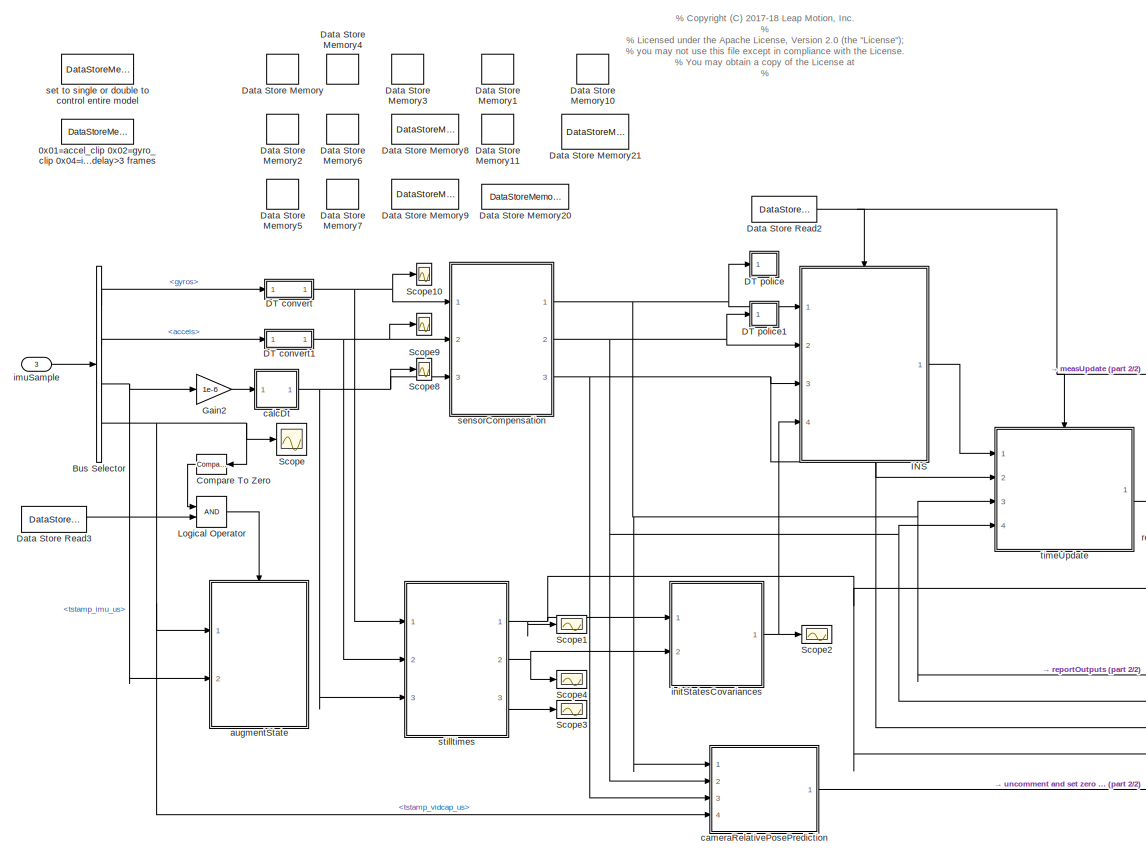
[diagram: root canvas - part 1/2, left side, full height]
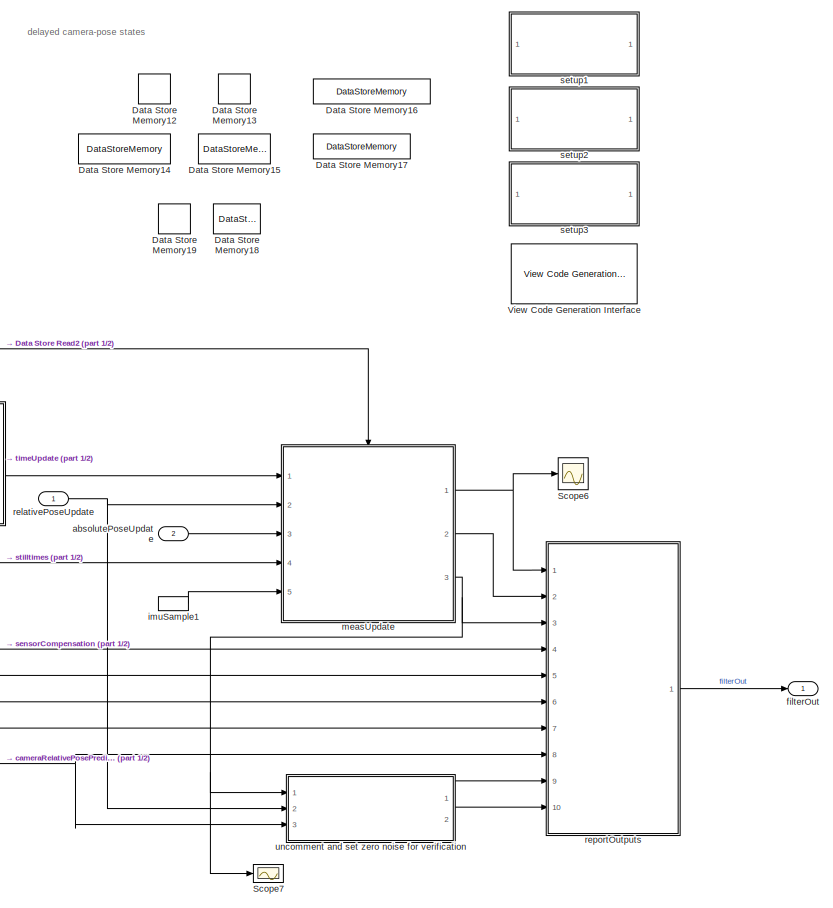
[diagram: root canvas - part 2/2, right side, full height]
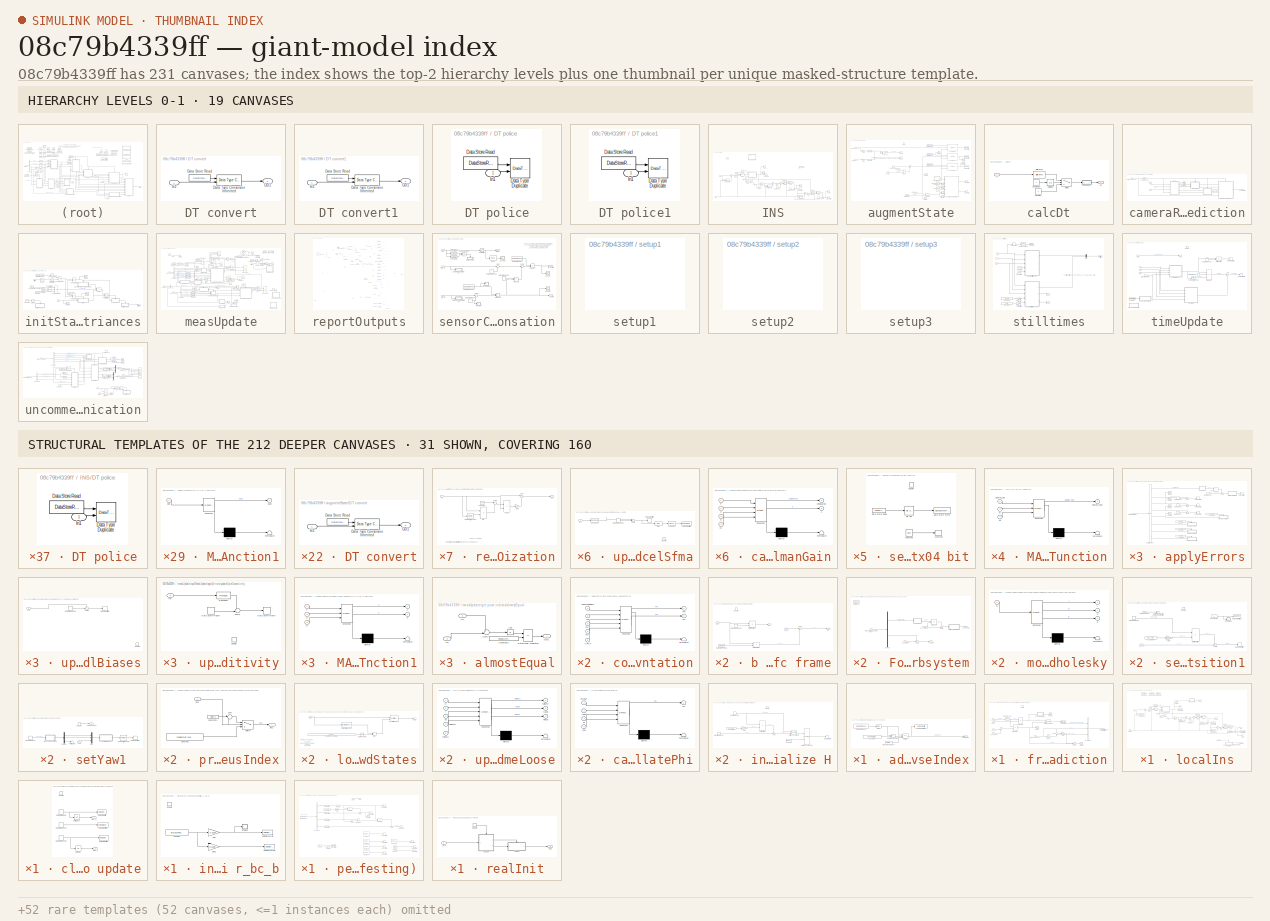
[diagram: thumbnail index - top-2 hierarchy levels (19 canvases) + 31 structural-template representatives of the remaining 212 canvases]
MODEL slx_08c79b4339ff
KIND model
CONFIG AbsTol = auto
CONFIG EnableMultiTasking = on
CONFIG FixedStep = 1/Fs
CONFIG MaxStep = auto
CONFIG MinStep = auto
CONFIG PreLoadFcn = modelDef = getModelDef(calibrateSFMA);\n\n%imuPar = getImuPar('lmvpUncalibrated');\n\ntimeMatchThreshold = 1000;\n\n
CONFIG RelTol = 1e-3
CONFIG SampleTimeConstraint = Unconstrained
CONFIG Solver = FixedStepDiscrete
CONFIG SolverName = FixedStepDiscrete
CONFIG StartTime = 0.0
CONFIG StopTime = inf
BLOCK [DataStoreMemory] 0x01=accel_clip 0x02=gyro_clip 0x04=imu_dropout(>5ms) 0x08=vid_delay>3 frames
  DataStoreName = errorBitfield
  InitialValue = uint32(0)
  OutDataTypeStr = uint32
  ReadBeforeWriteMsg = warning
  ShowAdditionalParam = off
  WriteAfterReadMsg = warning
  WriteAfterWriteMsg = warning
BLOCK [BusSelector] Bus Selector
  OutputAsBus = off
  OutputSignals = gyros,accels,tstamp_imu_us,tstamp_vidcap_us
  Ports = [1, 4]
BLOCK [Reference] Compare To Zero  REF=simulink/Logic and Bit
Operations/Compare
To Zero
  Ports = [1, 1]
  SourceBlock = simulink/Logic and Bit\nOperations/Compare\nTo Zero
  SourceProductBaseCode = SL
  SourceProductName = Simulink
  SourceType = Compare To Zero
BLOCK [SubSystem] DT convert
  Ports = [1, 1]
  RequestExecContextInheritance = off
BLOCK [DataStoreRead] DT convert/Data Store Read
  DataStoreName = DataTypeRef
  Ports = [0, 1]
BLOCK [Reference] DT convert/Data Type Conversion Inherited  REF=simulink/Signal
Attributes/Data Type
Conversion
Inherited
  Ports = [2, 1]
  SourceBlock = simulink/Signal\nAttributes/Data Type\nConversion\nInherited
  SourceProductBaseCode = SL
  SourceProductName = Simulink
  SourceType = Conversion Inherited
BLOCK [Inport] DT convert/In1
  IconDisplay = Port number
BLOCK [Outport] DT convert/Out1
  IconDisplay = Port number
BLOCK [SubSystem] DT convert1
  Ports = [1, 1]
  RequestExecContextInheritance = off
BLOCK [DataStoreRead] DT convert1/Data Store Read
  DataStoreName = DataTypeRef
  Ports = [0, 1]
BLOCK [Reference] DT convert1/Data Type Conversion Inherited  REF=simulink/Signal
Attributes/Data Type
Conversion
Inherited
  Ports = [2, 1]
  SourceBlock = simulink/Signal\nAttributes/Data Type\nConversion\nInherited
  SourceProductBaseCode = SL
  SourceProductName = Simulink
  SourceType = Conversion Inherited
BLOCK [Inport] DT convert1/In1
  IconDisplay = Port number
BLOCK [Outport] DT convert1/Out1
  IconDisplay = Port number
BLOCK [SubSystem] DT police
  Ports = [1]
  RequestExecContextInheritance = off
  TreatAsAtomicUnit = on
BLOCK [DataStoreRead] DT police/Data Store Read
  DataStoreName = DataTypeRef
  Ports = [0, 1]
BLOCK [DataTypeDuplicate] DT police/Data Type Duplicate
  Ports = [2]
BLOCK [Inport] DT police/In1
  IconDisplay = Port number
BLOCK [SubSystem] DT police1
  Ports = [1]
  RequestExecContextInheritance = off
  TreatAsAtomicUnit = on
BLOCK [DataStoreRead] DT police1/Data Store Read
  DataStoreName = DataTypeRef
  Ports = [0, 1]
BLOCK [DataTypeDuplicate] DT police1/Data Type Duplicate
  Ports = [2]
BLOCK [Inport] DT police1/In1
  IconDisplay = Port number
BLOCK [DataStoreMemory] Data Store Memory
  DataStoreName = Cbn
  InitialValue = eye(3)
  ReadBeforeWriteMsg = warning
  ShowAdditionalParam = off
  VectorParams1D = off
  WriteAfterReadMsg = warning
  WriteAfterWriteMsg = warning
BLOCK [DataStoreMemory] Data Store Memory1
  DataStoreName = Pxx
  InitialValue = eye(modelDef.numStates)*1e-12
  ReadBeforeWriteMsg = warning
  ShowAdditionalParam = off
  WriteAfterReadMsg = warning
  WriteAfterWriteMsg = warning
BLOCK [DataStoreMemory] Data Store Memory10
  DataStoreName = gnav
  InitialValue = [0;0; 9.80665]
  ReadBeforeWriteMsg = warning
  ShowAdditionalParam = off
  VectorParams1D = off
  WriteAfterReadMsg = warning
  WriteAfterWriteMsg = warning
BLOCK [DataStoreMemory] Data Store Memory11
  DataStoreName = Ggyr
  InitialValue = zeros(3,3)
  ReadBeforeWriteMsg = warning
  ShowAdditionalParam = off
  VectorParams1D = off
  WriteAfterReadMsg = warning
  WriteAfterWriteMsg = warning
BLOCK [DataStoreMemory] Data Store Memory12
  DataStoreName = Pxc
  InitialValue = zeros(modelDef.numStates, modelDef.maxNumDelayedPoses * modelDef.statesPerDelayedPose)
  ReadBeforeWriteMsg = warning
  ShowAdditionalParam = off
  WriteAfterReadMsg = warning
  WriteAfterWriteMsg = warning
BLOCK [DataStoreMemory] Data Store Memory13
  DataStoreName = Pcc
  InitialValue = zeros(modelDef.statesPerDelayedPose*modelDef.maxNumDelayedPoses , modelDef.statesPerDelayedPose*modelDef.maxNumDelayedPoses )
  ReadBeforeWriteMsg = warning
  ShowAdditionalParam = off
  WriteAfterReadMsg = warning
  WriteAfterWriteMsg = warning
BLOCK [DataStoreMemory] Data Store Memory14
  DataStoreName = C_b_n_list
  InitialValue = zeros(3, 3, max(2,modelDef.maxNumDelayedPoses))
  ReadBeforeWriteMsg = warning
  ShowAdditionalParam = off
  VectorParams1D = off
  WriteAfterReadMsg = warning
  WriteAfterWriteMsg = warning
BLOCK [DataStoreMemory] Data Store Memory15
  DataStoreName = r_b_n_list
  InitialValue = zeros(3, 1, max(2,modelDef.maxNumDelayedPoses))
  ReadBeforeWriteMsg = warning
  ShowAdditionalParam = off
  VectorParams1D = off
  WriteAfterReadMsg = warning
  WriteAfterWriteMsg = warning
BLOCK [DataStoreMemory] Data Store Memory16
  DataStoreName = newestDelayedPoseIdx
  OutDataTypeStr = uint8
  ReadBeforeWriteMsg = warning
  ShowAdditionalParam = off
  WriteAfterReadMsg = warning
  WriteAfterWriteMsg = warning
BLOCK [DataStoreMemory] Data Store Memory17
  DataStoreName = tstamp_list
  InitialValue = zeros(modelDef.maxNumDelayedPoses, 1)
  ReadBeforeWriteMsg = warning
  ShowAdditionalParam = off
  WriteAfterReadMsg = warning
  WriteAfterWriteMsg = warning
BLOCK [DataStoreMemory] Data Store Memory18
  DataStoreName = r_bc_b
  InitialValue = -[-17.48; -4.5; 2.539]/1000
  ReadBeforeWriteMsg = warning
  ShowAdditionalParam = off
  VectorParams1D = off
  WriteAfterReadMsg = warning
  WriteAfterWriteMsg = warning
BLOCK [DataStoreMemory] Data Store Memory19
  DataStoreName = Ccb
  InitialValue = eye(3)
  ReadBeforeWriteMsg = warning
  ShowAdditionalParam = off
  VectorParams1D = off
  WriteAfterReadMsg = warning
  WriteAfterWriteMsg = warning
BLOCK [DataStoreMemory] Data Store Memory2
  DataStoreName = dw
  InitialValue = [0;0;0]
  ReadBeforeWriteMsg = warning
  ShowAdditionalParam = off
  VectorParams1D = off
  WriteAfterReadMsg = warning
  WriteAfterWriteMsg = warning
BLOCK [DataStoreMemory] Data Store Memory20
  DataStoreName = INITIALIZED
  InitialValue = false
  ShowAdditionalParam = off
  WriteAfterReadMsg = warning
  WriteAfterWriteMsg = warning
BLOCK [DataStoreMemory] Data Store Memory21
  DataStoreName = distTravelled
  ReadBeforeWriteMsg = warning
  ShowAdditionalParam = off
  WriteAfterReadMsg = warning
  WriteAfterWriteMsg = warning
BLOCK [DataStoreMemory] Data Store Memory3
  DataStoreName = vnav
  InitialValue = [0;0;0]
  ReadBeforeWriteMsg = warning
  ShowAdditionalParam = off
  VectorParams1D = off
  WriteAfterReadMsg = warning
  WriteAfterWriteMsg = warning
BLOCK [DataStoreMemory] Data Store Memory4
  DataStoreName = rnav
  InitialValue = [-17.48; -4.5; 2.539]/1000;
  ReadBeforeWriteMsg = warning
  ShowAdditionalParam = off
  VectorParams1D = off
  WriteAfterReadMsg = warning
  WriteAfterWriteMsg = warning
BLOCK [DataStoreMemory] Data Store Memory5
  DataStoreName = df
  InitialValue = [0;0;0]
  ReadBeforeWriteMsg = warning
  ShowAdditionalParam = off
  VectorParams1D = off
  WriteAfterReadMsg = warning
  WriteAfterWriteMsg = warning
BLOCK [DataStoreMemory] Data Store Memory6
  DataStoreName = Mgyr
  InitialValue = zeros(3,3)
  ReadBeforeWriteMsg = warning
  ShowAdditionalParam = off
  VectorParams1D = off
  WriteAfterReadMsg = warning
  WriteAfterWriteMsg = warning
BLOCK [DataStoreMemory] Data Store Memory7
  DataStoreName = Macc
  InitialValue = zeros(3,3)
  ReadBeforeWriteMsg = warning
  ShowAdditionalParam = off
  VectorParams1D = off
  WriteAfterReadMsg = warning
  WriteAfterWriteMsg = warning
BLOCK [DataStoreMemory] Data Store Memory8
  DataStoreName = IplusMinv_gyr
  InitialValue = eye(3)
  ShowAdditionalParam = off
  VectorParams1D = off
  WriteAfterReadMsg = warning
  WriteAfterWriteMsg = warning
BLOCK [DataStoreMemory] Data Store Memory9
  DataStoreName = IplusMinv_acc
  InitialValue = eye(3)
  ReadBeforeWriteMsg = warning
  ShowAdditionalParam = off
  VectorParams1D = off
  WriteAfterReadMsg = warning
  WriteAfterWriteMsg = warning
BLOCK [DataStoreRead] Data Store Read2
  DataStoreName = INITIALIZED
  Ports = [0, 1]
  Priority = 2
BLOCK [DataStoreRead] Data Store Read3
  DataStoreName = INITIALIZED
  Ports = [0, 1]
BLOCK [Gain] Gain2
  Gain = 1e-6
  OutDataTypeStr = Inherit: Inherit via internal rule
  ParamDataTypeStr = Inherit: Inherit via internal rule
  SaturateOnIntegerOverflow = off
BLOCK [SubSystem] INS
  Ports = [4, 1, 1]
  Priority = 2
  RTWFcnNameOpts = Use subsystem name
  RTWSystemCode = Nonreusable function
  RequestExecContextInheritance = off
  TreatAsAtomicUnit = on
BLOCK [Constant] INS/Constant
  Value = [0 0 0]
BLOCK [Constant] INS/Constant1
  OutDataTypeStr = Inherit: Inherit via back propagation
  Value = [0; 0; 0]
  VectorParams1D = off
BLOCK [Constant] INS/Constant2
  OutDataTypeStr = Inherit: Inherit via back propagation
  Value = [0; 0; 0]
  VectorParams1D = off
BLOCK [SubSystem] INS/DT police
  Ports = [1]
  RequestExecContextInheritance = off
  TreatAsAtomicUnit = on
BLOCK [DataStoreRead] INS/DT police/Data Store Read
  DataStoreName = DataTypeRef
  Ports = [0, 1]
BLOCK [DataTypeDuplicate] INS/DT police/Data Type Duplicate
  Ports = [2]
BLOCK [Inport] INS/DT police/In1
  IconDisplay = Port number
BLOCK [DataStoreRead] INS/Data Store Read
  DataStoreName = Cbn
  Ports = [0, 1]
BLOCK [DataStoreRead] INS/Data Store Read1
  DataStoreName = gnav
  Ports = [0, 1]
BLOCK [DataStoreRead] INS/Data Store Read2
  DataStoreName = vnav
  Ports = [0, 1]
BLOCK [DataStoreRead] INS/Data Store Read3
  DataStoreName = rnav
  Ports = [0, 1]
BLOCK [DataStoreWrite] INS/Data Store Write
  DataStoreName = Cbn
  Ports = [1]
BLOCK [DataStoreWrite] INS/Data Store Write1
  DataStoreName = vnav
  Ports = [1]
BLOCK [DataStoreWrite] INS/Data Store Write2
  DataStoreName = rnav
  Ports = [1]
BLOCK [Inport] INS/Dt
  IconDisplay = Port number
  Port = 3
BLOCK [EnablePort] INS/Enable
  Ports = []
BLOCK [Gain] INS/Gain
  Gain = 1/2
  OutDataTypeStr = Inherit: Inherit via internal rule
  ParamDataTypeStr = Inherit: Inherit via internal rule
  SaturateOnIntegerOverflow = off
BLOCK [Gain] INS/Gain1
  Gain = 1/2
  OutDataTypeStr = Inherit: Inherit via internal rule
  ParamDataTypeStr = Inherit: Inherit via internal rule
  SaturateOnIntegerOverflow = off
BLOCK [Gain] INS/Gain2
  Gain = 1/2
  OutDataTypeStr = Inherit: Inherit via internal rule
  ParamDataTypeStr = Inherit: Inherit via internal rule
  SaturateOnIntegerOverflow = off
BLOCK [Ground] INS/Ground
BLOCK [SubSystem] INS/MATLAB Function
  Commented = on
  ErrorFcn = Stateflow.Translate.translate
  PermitHierarchicalResolution = ExplicitOnly
  Ports = [3, 1]
  RequestExecContextInheritance = off
  SFBlockType = MATLAB Function
  TreatAsAtomicUnit = on
BLOCK [Demux] INS/MATLAB Function/ Demux 
  Outputs = 1
  Ports = [1, 1]
BLOCK [S-Function] INS/MATLAB Function/ SFunction 
  EnableBusSupport = on
  FunctionName = sf_sfun
  PortCounts = [3 2]
  Ports = [3, 2]
  SFcnIsStateOwnerBlock = off
  SFunctionDeploymentMode = off
  Tag = Stateflow S-Function VINS 34
BLOCK [Terminator] INS/MATLAB Function/ Terminator 
BLOCK [Outport] INS/MATLAB Function/DCMbn_new
  IconDisplay = Port number
BLOCK [Inport] INS/MATLAB Function/DCMbn_old
  IconDisplay = Port number
BLOCK [Inport] INS/MATLAB Function/Dt
  IconDisplay = Port number
  Port = 3
BLOCK [Inport] INS/MATLAB Function/w
  IconDisplay = Port number
  Port = 2
BLOCK [Product] INS/Product
  InputSameDT = off
  Multiplication = Matrix(*)
  OutDataTypeStr = Inherit: Inherit via internal rule
  Ports = [2, 1]
  RndMeth = Floor
  SaturateOnIntegerOverflow = off
BLOCK [Product] INS/Product1
  InputSameDT = off
  OutDataTypeStr = Inherit: Inherit via internal rule
  Ports = [2, 1]
  RndMeth = Floor
  SaturateOnIntegerOverflow = off
BLOCK [Product] INS/Product2
  InputSameDT = off
  OutDataTypeStr = Inherit: Inherit via internal rule
  Ports = [2, 1]
  RndMeth = Floor
  SaturateOnIntegerOverflow = off
BLOCK [Delay] INS/Resettable Delay
  DelayLength = 1
  ExternalReset = Level hold
  InitialConditionSource = Input port
  InputPortMap = u0,r5,p4
  Ports = [3, 1]
BLOCK [Delay] INS/Resettable Delay1
  DelayLength = 1
  ExternalReset = Level hold
  InitialConditionSource = Input port
  InputPortMap = u0,r5,p4
  Ports = [3, 1]
BLOCK [Delay] INS/Resettable Delay2
  DelayLength = 1
  ExternalReset = Level hold
  InitialConditionSource = Input port
  InputPortMap = u0,r5,p4
  Ports = [3, 1]
BLOCK [Scope] INS/Scope
  Floating = off
  NumInputPorts = 1
  Ports = [1]
  ScopeSpecificationString = Simulink.scopes.TimeScopeBlockCfg('CurrentConfiguration', extmgr.ConfigurationSet(extmgr.Configuration('Core','General UI',true),extmgr.Configuration('Core','Source UI',true),extmgr.Configuration('Sources','WiredSimulink',true,'DataLoggingVariableName','ScopeData1'),extmgr.Configuration('Visuals','Time Domain',true,'SerializedDisplays',{struct('MinYLimReal','-0.00051','MaxYLimReal','0.0046','YLabe...<+1401ch>
BLOCK [Scope] INS/Scope1
  Floating = off
  NumInputPorts = 1
  Ports = [1]
  ScopeSpecificationString = Simulink.scopes.TimeScopeBlockCfg('CurrentConfiguration', extmgr.ConfigurationSet(extmgr.Configuration('Core','General UI',true),extmgr.Configuration('Core','Source UI',true),extmgr.Configuration('Sources','WiredSimulink',true,'DataLoggingVariableName','ScopeData2'),extmgr.Configuration('Visuals','Time Domain',true,'SerializedDisplays',{struct('MinYLimReal','-4.90049','MaxYLimReal','3.90202','YLab...<+1433ch>
BLOCK [Scope] INS/Scope2
  Floating = off
  NumInputPorts = 1
  Ports = [1]
  ScopeSpecificationString = Simulink.scopes.TimeScopeBlockCfg('CurrentConfiguration', extmgr.ConfigurationSet(extmgr.Configuration('Core','General UI',true),extmgr.Configuration('Core','Source UI',true),extmgr.Configuration('Sources','WiredSimulink',true,'DataLoggingVariableName','ScopeData14'),extmgr.Configuration('Visuals','Time Domain',true,'SerializedDisplays',{struct('MinYLimReal','-10.9468','MaxYLimReal','24.57446','YL...<+1432ch>
BLOCK [Scope] INS/Scope3
  Floating = off
  NumInputPorts = 1
  Ports = [1]
  ScopeSpecificationString = Simulink.scopes.TimeScopeBlockCfg('CurrentConfiguration', extmgr.ConfigurationSet(extmgr.Configuration('Core','General UI',true),extmgr.Configuration('Core','Source UI',true),extmgr.Configuration('Sources','WiredSimulink',true,'DataLoggingVariableName','ScopeData15'),extmgr.Configuration('Visuals','Time Domain',true,'SerializedDisplays',{struct('MinYLimReal','-0.76792','MaxYLimReal','0.78003','YLa...<+1428ch>
BLOCK [Scope] INS/Scope4
  Floating = off
  NumInputPorts = 1
  Ports = [1]
  ScopeSpecificationString = Simulink.scopes.TimeScopeBlockCfg('CurrentConfiguration', extmgr.ConfigurationSet(extmgr.Configuration('Core','General UI',true),extmgr.Configuration('Core','Source UI',true),extmgr.Configuration('Sources','WiredSimulink',true,'DataLoggingVariableName','ScopeData16'),extmgr.Configuration('Visuals','Time Domain',true,'SerializedDisplays',{struct('MinYLimReal','-0.65093','MaxYLimReal','1.01713','YLa...<+1428ch>
BLOCK [Scope] INS/Scope5
  Floating = off
  NumInputPorts = 1
  Ports = [1]
  ScopeSpecificationString = Simulink.scopes.TimeScopeBlockCfg('CurrentConfiguration', extmgr.ConfigurationSet(extmgr.Configuration('Core','General UI',true),extmgr.Configuration('Core','Source UI',true),extmgr.Configuration('Sources','WiredSimulink',true,'DataLoggingVariableName','ScopeData17'),extmgr.Configuration('Visuals','Time Domain',true,'SerializedDisplays',{struct('MinYLimReal','-1.00000','MaxYLimReal','1.00000','YLa...<+1527ch>
BLOCK [Sum] INS/Sum
  IconShape = round
  InputSameDT = off
  Inputs = |++
  OutDataTypeStr = Inherit: Inherit via internal rule
  Ports = [2, 1]
  SaturateOnIntegerOverflow = off
BLOCK [Sum] INS/Sum1
  IconShape = round
  InputSameDT = off
  Inputs = |++
  OutDataTypeStr = Inherit: Inherit via internal rule
  Ports = [2, 1]
  SaturateOnIntegerOverflow = off
BLOCK [Sum] INS/Sum2
  IconShape = round
  InputSameDT = off
  Inputs = |++
  OutDataTypeStr = Inherit: Inherit via internal rule
  Ports = [2, 1]
  SaturateOnIntegerOverflow = off
BLOCK [Sum] INS/Sum3
  IconShape = round
  InputSameDT = off
  Inputs = ++|
  OutDataTypeStr = Inherit: Inherit via internal rule
  Ports = [2, 1]
  SaturateOnIntegerOverflow = off
BLOCK [Sum] INS/Sum4
  IconShape = round
  InputSameDT = off
  Inputs = ++|
  OutDataTypeStr = Inherit: Inherit via internal rule
  Ports = [2, 1]
  SaturateOnIntegerOverflow = off
BLOCK [Sum] INS/Sum5
  IconShape = round
  InputSameDT = off
  Inputs = |++
  OutDataTypeStr = Inherit: Inherit via internal rule
  Ports = [2, 1]
  SaturateOnIntegerOverflow = off
BLOCK [Switch] INS/Switch
  Criteria = u2 > Threshold
  InputSameDT = off
  SaturateOnIntegerOverflow = off
BLOCK [Switch] INS/Switch1
  Criteria = u2 > Threshold
  InputSameDT = off
  SaturateOnIntegerOverflow = off
BLOCK [Switch] INS/Switch2
  Criteria = u2 > Threshold
  InputSameDT = off
  SaturateOnIntegerOverflow = off
BLOCK [Outport] INS/done
  IconDisplay = Port number
BLOCK [Inport] INS/f_ib
  IconDisplay = Port number
  Port = 2
BLOCK [Inport] INS/init
  IconDisplay = Port number
  Port = 4
BLOCK [SubSystem] INS/updateDcm
  ErrorFcn = Stateflow.Translate.translate
  PermitHierarchicalResolution = ExplicitOnly
  Ports = [3, 1]
  RequestExecContextInheritance = off
  SFBlockType = MATLAB Function
  TreatAsAtomicUnit = on
BLOCK [Demux] INS/updateDcm/ Demux 
  Outputs = 1
  Ports = [1, 1]
BLOCK [S-Function] INS/updateDcm/ SFunction 
  EnableBusSupport = on
  FunctionName = sf_sfun
  PortCounts = [3 2]
  Ports = [3, 2]
  SFcnIsStateOwnerBlock = off
  SFunctionDeploymentMode = off
  Tag = Stateflow S-Function VINS 35
BLOCK [Terminator] INS/updateDcm/ Terminator 
BLOCK [Inport] INS/updateDcm/Cbn
  IconDisplay = Port number
BLOCK [Outport] INS/updateDcm/Cbn_new
  IconDisplay = Port number
BLOCK [Inport] INS/updateDcm/dt
  IconDisplay = Port number
  Port = 3
BLOCK [Inport] INS/updateDcm/w
  IconDisplay = Port number
  Port = 2
BLOCK [Inport] INS/w_ib
  IconDisplay = Port number
BLOCK [Logic] Logical Operator
  AllPortsSameDT = off
  OutDataTypeStr = boolean
  Ports = [2, 1]
BLOCK [Scope] Scope
  Floating = off
  NumInputPorts = 1
  Ports = [1]
  ScopeSpecificationString = Simulink.scopes.TimeScopeBlockCfg('CurrentConfiguration', extmgr.ConfigurationSet(extmgr.Configuration('Core','General UI',true),extmgr.Configuration('Core','Source UI',true),extmgr.Configuration('Sources','WiredSimulink',true,'DataLoggingVariableName','ScopeData1'),extmgr.Configuration('Visuals','Time Domain',true,'SerializedDisplays',{struct('MinYLimReal','-49290568.00000','MaxYLimReal','4436151...<+1479ch>
BLOCK [Scope] Scope1
  Floating = off
  NumInputPorts = 1
  Ports = [1]
  ScopeSpecificationString = Simulink.scopes.TimeScopeBlockCfg('CurrentConfiguration', extmgr.ConfigurationSet(extmgr.Configuration('Core','General UI',true),extmgr.Configuration('Core','Source UI',true),extmgr.Configuration('Sources','WiredSimulink',true,'DataLoggingVariableName','ScopeData1'),extmgr.Configuration('Visuals','Time Domain',true,'SerializedDisplays',{struct('MinYLimReal','-0.0181','MaxYLimReal','0.1629','YLabel...<+1561ch>
BLOCK [Scope] Scope10
  Floating = off
  NumInputPorts = 1
  Ports = [1]
  ScopeSpecificationString = Simulink.scopes.TimeScopeBlockCfg('CurrentConfiguration', extmgr.ConfigurationSet(extmgr.Configuration('Core','General UI',true),extmgr.Configuration('Core','Source UI',true),extmgr.Configuration('Sources','WiredSimulink',true,'DataLoggingVariableName','ScopeData6'),extmgr.Configuration('Visuals','Time Domain',true,'SerializedDisplays',{struct('MinYLimReal','-0.06123','MaxYLimReal','0.06703','YLab...<+1445ch>
BLOCK [Scope] Scope2
  Floating = off
  NumInputPorts = 1
  Ports = [1]
  ScopeSpecificationString = Simulink.scopes.TimeScopeBlockCfg('CurrentConfiguration', extmgr.ConfigurationSet(extmgr.Configuration('Core','General UI',true),extmgr.Configuration('Core','Source UI',true),extmgr.Configuration('Sources','WiredSimulink',true,'DataLoggingVariableName','ScopeData1'),extmgr.Configuration('Visuals','Time Domain',true,'SerializedDisplays',{struct('MinYLimReal','-1.00000','MaxYLimReal','1.00000','YLab...<+1452ch>
BLOCK [Scope] Scope3
  Floating = off
  NumInputPorts = 1
  Ports = [1]
  ScopeSpecificationString = Simulink.scopes.TimeScopeBlockCfg('CurrentConfiguration', extmgr.ConfigurationSet(extmgr.Configuration('Core','General UI',true),extmgr.Configuration('Core','Source UI',true),extmgr.Configuration('Sources','WiredSimulink',true,'DataLoggingVariableName','ScopeData1'),extmgr.Configuration('Visuals','Time Domain',true,'SerializedDisplays',{struct('MinYLimReal','-0.00512','MaxYLimReal','0.00315','YLab...<+1461ch>
BLOCK [Scope] Scope4
  Floating = off
  NumInputPorts = 1
  Ports = [1]
  ScopeSpecificationString = Simulink.scopes.TimeScopeBlockCfg('CurrentConfiguration', extmgr.ConfigurationSet(extmgr.Configuration('Core','General UI',true),extmgr.Configuration('Core','Source UI',true),extmgr.Configuration('Sources','WiredSimulink',true,'DataLoggingVariableName','ScopeData2'),extmgr.Configuration('Visuals','Time Domain',true,'SerializedDisplays',{struct('MinYLimReal','-15.58681','MaxYLimReal','18.51356','YL...<+1469ch>
BLOCK [Scope] Scope6
  Floating = off
  NumInputPorts = 1
  Ports = [1]
  ScopeSpecificationString = Simulink.scopes.TimeScopeBlockCfg('CurrentConfiguration', extmgr.ConfigurationSet(extmgr.Configuration('Core','General UI',true),extmgr.Configuration('Core','Source UI',true),extmgr.Configuration('Sources','WiredSimulink',true,'DataLoggingVariableName','ScopeData1'),extmgr.Configuration('Visuals','Time Domain',true,'SerializedDisplays',{struct('MinYLimReal','-1.00000','MaxYLimReal','1.00000','YLab...<+1422ch>
BLOCK [Scope] Scope7
  Floating = off
  NumInputPorts = 1
  Ports = [1]
  ScopeSpecificationString = Simulink.scopes.TimeScopeBlockCfg('CurrentConfiguration', extmgr.ConfigurationSet(extmgr.Configuration('Core','General UI',true),extmgr.Configuration('Core','Source UI',true),extmgr.Configuration('Sources','WiredSimulink',true,'DataLoggingVariableName','ScopeData5'),extmgr.Configuration('Visuals','Time Domain',true,'SerializedDisplays',{struct('MinYLimReal','-1.00000','MaxYLimReal','1.00000','YLab...<+1562ch>
BLOCK [Scope] Scope8
  Floating = off
  NumInputPorts = 1
  Ports = [1]
  ScopeSpecificationString = Simulink.scopes.TimeScopeBlockCfg('CurrentConfiguration', extmgr.ConfigurationSet(extmgr.Configuration('Core','General UI',true),extmgr.Configuration('Core','Source UI',true),extmgr.Configuration('Sources','WiredSimulink',true,'DataLoggingVariableName','ScopeData4'),extmgr.Configuration('Visuals','Time Domain',true,'SerializedDisplays',{struct('MinYLimReal','-0.00025','MaxYLimReal','0.00226','YLab...<+1409ch>
BLOCK [Scope] Scope9
  Floating = off
  NumInputPorts = 1
  Ports = [1]
  ScopeSpecificationString = Simulink.scopes.TimeScopeBlockCfg('CurrentConfiguration', extmgr.ConfigurationSet(extmgr.Configuration('Core','General UI',true),extmgr.Configuration('Core','Source UI',true),extmgr.Configuration('Sources','WiredSimulink',true,'DataLoggingVariableName','ScopeData5'),extmgr.Configuration('Visuals','Time Domain',true,'SerializedDisplays',{struct('MinYLimReal','-38.59401','MaxYLimReal','73.44704','YL...<+1454ch>
BLOCK [Reference] View Code Generation Interface  REF=rtwdemowidgets/View Code Generation Interface
  Ports = []
  SourceBlock = rtwdemowidgets/View Code Generation Interface
  SourceProductBaseCode = RT
  SourceProductName = Simulink Coder
BLOCK [Inport] absolutePoseUpdate
  IconDisplay = Port number
  OutDataTypeStr = Bus: absolutePoseUpdate
  Port = 2
BLOCK [SubSystem] augmentState
  Ports = [2, 0, 1]
  Priority = 1
  RTWFcnNameOpts = Use subsystem name
  RTWSystemCode = Nonreusable function
  RequestExecContextInheritance = off
  TreatAsAtomicUnit = on
BLOCK [Assignment] augmentState/Assignment
  DiagnosticForDimensions = Warning
  IndexOptions = Index vector (dialog),Index vector (dialog),Index vector (port)
  Indices = 1:3,1:3,1
  NumberOfDimensions = 3
  OutputSizes = 1,1,1
  Ports = [3, 1]
BLOCK [Assignment] augmentState/Assignment1
  DiagnosticForDimensions = Warning
  IndexOptions = Index vector (dialog),Index vector (dialog),Index vector (port)
  Indices = 1:3,1,1
  NumberOfDimensions = 3
  OutputSizes = 1,1,1
  Ports = [3, 1]
BLOCK [Assignment] augmentState/Assignment2
  DiagnosticForDimensions = Warning
  IndexOptions = Index vector (port)
  Indices = 1:3
  OutputSizes = 1
  Ports = [3, 1]
BLOCK [Constant] augmentState/Constant
  OutDataTypeStr = Inherit: Inherit via back propagation
  Value = 0
BLOCK [SubSystem] augmentState/DT convert
  Ports = [1, 1]
  RequestExecContextInheritance = off
BLOCK [DataStoreRead] augmentState/DT convert/Data Store Read
  DataStoreName = DataTypeRef
  Ports = [0, 1]
BLOCK [Reference] augmentState/DT convert/Data Type Conversion Inherited  REF=simulink/Signal
Attributes/Data Type
Conversion
Inherited
  Ports = [2, 1]
  SourceBlock = simulink/Signal\nAttributes/Data Type\nConversion\nInherited
  SourceProductBaseCode = SL
  SourceProductName = Simulink
  SourceType = Conversion Inherited
BLOCK [Inport] augmentState/DT convert/In1
  IconDisplay = Port number
BLOCK [Outport] augmentState/DT convert/Out1
  IconDisplay = Port number
BLOCK [SubSystem] augmentState/DT convert1
  Ports = [1, 1]
  RequestExecContextInheritance = off
BLOCK [DataStoreRead] augmentState/DT convert1/Data Store Read
  DataStoreName = DataTypeRef
  Ports = [0, 1]
BLOCK [Reference] augmentState/DT convert1/Data Type Conversion Inherited  REF=simulink/Signal
Attributes/Data Type
Conversion
Inherited
  Ports = [2, 1]
  SourceBlock = simulink/Signal\nAttributes/Data Type\nConversion\nInherited
  SourceProductBaseCode = SL
  SourceProductName = Simulink
  SourceType = Conversion Inherited
BLOCK [Inport] augmentState/DT convert1/In1
  IconDisplay = Port number
BLOCK [Outport] augmentState/DT convert1/Out1
  IconDisplay = Port number
BLOCK [SubSystem] augmentState/DT police1
  Ports = [1]
  RequestExecContextInheritance = off
  TreatAsAtomicUnit = on
BLOCK [DataStoreRead] augmentState/DT police1/Data Store Read
  DataStoreName = DataTypeRef
  Ports = [0, 1]
BLOCK [DataTypeDuplicate] augmentState/DT police1/Data Type Duplicate
  Ports = [2]
BLOCK [Inport] augmentState/DT police1/In1
  IconDisplay = Port number
BLOCK [SubSystem] augmentState/DT police2
  Ports = [1]
  RequestExecContextInheritance = off
  TreatAsAtomicUnit = on
BLOCK [DataStoreRead] augmentState/DT police2/Data Store Read
  DataStoreName = DataTypeRef
  Ports = [0, 1]
BLOCK [DataTypeDuplicate] augmentState/DT police2/Data Type Duplicate
  Ports = [2]
BLOCK [Inport] augmentState/DT police2/In1
  IconDisplay = Port number
BLOCK [SubSystem] augmentState/DT police3
  Ports = [1]
  RequestExecContextInheritance = off
  TreatAsAtomicUnit = on
BLOCK [DataStoreRead] augmentState/DT police3/Data Store Read
  DataStoreName = DataTypeRef
  Ports = [0, 1]
BLOCK [DataTypeDuplicate] augmentState/DT police3/Data Type Duplicate
  Ports = [2]
BLOCK [Inport] augmentState/DT police3/In1
  IconDisplay = Port number
BLOCK [SubSystem] augmentState/DT police4
  Ports = [1]
  RequestExecContextInheritance = off
  TreatAsAtomicUnit = on
BLOCK [DataStoreRead] augmentState/DT police4/Data Store Read
  DataStoreName = DataTypeRef
  Ports = [0, 1]
BLOCK [DataTypeDuplicate] augmentState/DT police4/Data Type Duplicate
  Ports = [2]
BLOCK [Inport] augmentState/DT police4/In1
  IconDisplay = Port number
BLOCK [SubSystem] augmentState/DT police5
  Ports = [1]
  RequestExecContextInheritance = off
  TreatAsAtomicUnit = on
BLOCK [DataStoreRead] augmentState/DT police5/Data Store Read
  DataStoreName = DataTypeRef
  Ports = [0, 1]
BLOCK [DataTypeDuplicate] augmentState/DT police5/Data Type Duplicate
  Ports = [2]
BLOCK [Inport] augmentState/DT police5/In1
  IconDisplay = Port number
BLOCK [SubSystem] augmentState/DT police6
  Ports = [1]
  RequestExecContextInheritance = off
  TreatAsAtomicUnit = on
BLOCK [DataStoreRead] augmentState/DT police6/Data Store Read
  DataStoreName = DataTypeRef
  Ports = [0, 1]
BLOCK [DataTypeDuplicate] augmentState/DT police6/Data Type Duplicate
  Ports = [2]
BLOCK [Inport] augmentState/DT police6/In1
  IconDisplay = Port number
BLOCK [SubSystem] augmentState/DT police7
  Ports = [1]
  RequestExecContextInheritance = off
  TreatAsAtomicUnit = on
BLOCK [DataStoreRead] augmentState/DT police7/Data Store Read
  DataStoreName = DataTypeRef
  Ports = [0, 1]
BLOCK [DataTypeDuplicate] augmentState/DT police7/Data Type Duplicate
  Ports = [2]
BLOCK [Inport] augmentState/DT police7/In1
  IconDisplay = Port number
BLOCK [SubSystem] augmentState/DT police8
  Ports = [1]
  RequestExecContextInheritance = off
  TreatAsAtomicUnit = on
BLOCK [DataStoreRead] augmentState/DT police8/Data Store Read
  DataStoreName = DataTypeRef
  Ports = [0, 1]
BLOCK [DataTypeDuplicate] augmentState/DT police8/Data Type Duplicate
  Ports = [2]
BLOCK [Inport] augmentState/DT police8/In1
  IconDisplay = Port number
BLOCK [SubSystem] augmentState/DT police9
  Ports = [1]
  RequestExecContextInheritance = off
  TreatAsAtomicUnit = on
BLOCK [DataStoreRead] augmentState/DT police9/Data Store Read
  DataStoreName = DataTypeRef
  Ports = [0, 1]
BLOCK [DataTypeDuplicate] augmentState/DT police9/Data Type Duplicate
  Ports = [2]
BLOCK [Inport] augmentState/DT police9/In1
  IconDisplay = Port number
BLOCK [DataStoreRead] augmentState/Data Store Read1
  DataStoreName = Pxc
  Ports = [0, 1]
BLOCK [DataStoreRead] augmentState/Data Store Read10
  DataStoreName = rnav
  Ports = [0, 1]
BLOCK [DataStoreRead] augmentState/Data Store Read2
  DataStoreName = Pxx
  Ports = [0, 1]
BLOCK [DataStoreRead] augmentState/Data Store Read3
  DataStoreName = Pcc
  Ports = [0, 1]
BLOCK [DataStoreRead] augmentState/Data Store Read4
  DataStoreName = Cbn
  Ports = [0, 1]
BLOCK [DataStoreRead] augmentState/Data Store Read5
  DataStoreName = r_bc_b
  Ports = [0, 1]
BLOCK [DataStoreRead] augmentState/Data Store Read6
  DataStoreName = C_b_n_list
  Ports = [0, 1]
BLOCK [DataStoreRead] augmentState/Data Store Read7
  DataStoreName = r_b_n_list
  Ports = [0, 1]
BLOCK [DataStoreRead] augmentState/Data Store Read8
  DataStoreName = tstamp_list
  Ports = [0, 1]
BLOCK [DataStoreRead] augmentState/Data Store Read9
  DataStoreName = vnav
  Ports = [0, 1]
BLOCK [DataStoreWrite] augmentState/Data Store Write
  DataStoreName = Pxc
  Ports = [1]
BLOCK [DataStoreWrite] augmentState/Data Store Write1
  DataStoreName = Pcc
  Ports = [1]
BLOCK [DataStoreWrite] augmentState/Data Store Write3
  DataStoreName = C_b_n_list
  Ports = [1]
BLOCK [DataStoreWrite] augmentState/Data Store Write4
  DataStoreName = r_b_n_list
  Ports = [1]
BLOCK [DataStoreWrite] augmentState/Data Store Write5
  DataStoreName = tstamp_list
  Ports = [1]
BLOCK [Delay] augmentState/Delay
  DelayLength = 1
  InitialConditionSource = Input port
  InputPortMap = u0,p4
  Ports = [2, 1]
BLOCK [Gain] augmentState/Gain1
  Gain = 1e-6
  OutDataTypeStr = Inherit: Inherit via internal rule
  ParamDataTypeStr = Inherit: Inherit via internal rule
  SaturateOnIntegerOverflow = off
BLOCK [Gain] augmentState/Gain3
  Gain = 1e-6
  OutDataTypeStr = Inherit: Inherit via internal rule
  ParamDataTypeStr = Inherit: Inherit via internal rule
  SaturateOnIntegerOverflow = off
BLOCK [Product] augmentState/Matrix Multiply
  InputSameDT = off
  Multiplication = Matrix(*)
  OutDataTypeStr = Inherit: Inherit via internal rule
  Ports = [2, 1]
  RndMeth = Floor
  SaturateOnIntegerOverflow = off
BLOCK [Product] augmentState/Product
  InputSameDT = off
  OutDataTypeStr = Inherit: Inherit via internal rule
  Ports = [2, 1]
  RndMeth = Floor
  SaturateOnIntegerOverflow = off
BLOCK [Scope] augmentState/Scope
  Floating = off
  NumInputPorts = 1
  Ports = [1]
  ScopeSpecificationString = Simulink.scopes.TimeScopeBlockCfg('CurrentConfiguration', extmgr.ConfigurationSet(extmgr.Configuration('Core','General UI',true),extmgr.Configuration('Core','Source UI',true),extmgr.Configuration('Sources','WiredSimulink',true,'DataLoggingVariableName','ScopeData1'),extmgr.Configuration('Visuals','Time Domain',true,'SerializedDisplays',{struct('MinYLimReal','0.00185','MaxYLimReal','0.00315','YLabe...<+1535ch>
BLOCK [Scope] augmentState/Scope2
  Floating = off
  NumInputPorts = 1
  Ports = [1]
  ScopeSpecificationString = Simulink.scopes.TimeScopeBlockCfg('CurrentConfiguration', extmgr.ConfigurationSet(extmgr.Configuration('Core','General UI',true),extmgr.Configuration('Core','Source UI',true),extmgr.Configuration('Sources','WiredSimulink',true,'DataLoggingVariableName','ScopeData3'),extmgr.Configuration('Visuals','Time Domain',true,'SerializedDisplays',{struct('MinYLimReal','-0.00867','MaxYLimReal','0.078','YLabel...<+1542ch>
BLOCK [Sum] augmentState/Sum
  IconShape = round
  InputSameDT = off
  Inputs = |++
  OutDataTypeStr = Inherit: Inherit via internal rule
  Ports = [2, 1]
  SaturateOnIntegerOverflow = off
BLOCK [Sum] augmentState/Sum1
  IconShape = round
  InputSameDT = off
  Inputs = +-
  OutDataTypeStr = Inherit: Inherit via internal rule
  Ports = [2, 1]
  SaturateOnIntegerOverflow = off
BLOCK [Sum] augmentState/Sum2
  InputSameDT = off
  Inputs = +-
  OutDataTypeStr = Inherit: Inherit via internal rule
  Ports = [2, 1]
  SaturateOnIntegerOverflow = off
BLOCK [SubSystem] augmentState/advancePoseIndex
  Ports = [0, 1]
  RequestExecContextInheritance = off
BLOCK [Bias] augmentState/advancePoseIndex/Bias
  Bias = 1
  SaturateOnIntegerOverflow = off
BLOCK [Constant] augmentState/advancePoseIndex/Constant
  Value = modelDef.maxNumDelayedPoses
BLOCK [DataStoreRead] augmentState/advancePoseIndex/Data Store Read
  DataStoreName = newestDelayedPoseIdx
  Ports = [0, 1]
BLOCK [DataStoreWrite] augmentState/advancePoseIndex/Data Store Write2
  DataStoreName = newestDelayedPoseIdx
  Ports = [1]
BLOCK [RelationalOperator] augmentState/advancePoseIndex/Relational Operator
  InputSameDT = off
  Operator = <=
  OutDataTypeStr = boolean
  Ports = [2, 1]
  RndMeth = Simplest
BLOCK [Switch] augmentState/advancePoseIndex/Switch
  Criteria = u2 > Threshold
  InputSameDT = off
  SaturateOnIntegerOverflow = off
BLOCK [Outport] augmentState/advancePoseIndex/newIndex
  IconDisplay = Port number
BLOCK [Constant] augmentState/advancePoseIndex/rollover back to one
  Value = uint8(1)
BLOCK [SubSystem] augmentState/covarianceAugmentation
  ErrorFcn = Stateflow.Translate.translate
  PermitHierarchicalResolution = ExplicitOnly
  Ports = [5, 2]
  RequestExecContextInheritance = off
  SFBlockType = MATLAB Function
  TreatAsAtomicUnit = on
BLOCK [Demux] augmentState/covarianceAugmentation/ Demux 
  Outputs = 1
  Ports = [1, 1]
BLOCK [S-Function] augmentState/covarianceAugmentation/ SFunction 
  EnableBusSupport = on
  FunctionName = sf_sfun
  PortCounts = [5 3]
  Ports = [5, 3]
  SFcnIsStateOwnerBlock = off
  SFunctionDeploymentMode = off
  Tag = Stateflow S-Function VINS 17
BLOCK [Terminator] augmentState/covarianceAugmentation/ Terminator 
BLOCK [Outport] augmentState/covarianceAugmentation/Pcc
  IconDisplay = Port number
  Port = 2
BLOCK [Inport] augmentState/covarianceAugmentation/Pcc 
  IconDisplay = Port number
  Port = 4
BLOCK [Outport] augmentState/covarianceAugmentation/Pxc
  IconDisplay = Port number
BLOCK [Inport] augmentState/covarianceAugmentation/Pxc 
  IconDisplay = Port number
  Port = 3
BLOCK [Inport] augmentState/covarianceAugmentation/Pxx
  IconDisplay = Port number
  Port = 2
BLOCK [Inport] augmentState/covarianceAugmentation/indexToReplace
  IconDisplay = Port number
BLOCK [Inport] augmentState/covarianceAugmentation/r_bc_n
  IconDisplay = Port number
  Port = 5
BLOCK [EnablePort] augmentState/enable 
  Ports = []
BLOCK [Inport] augmentState/tstamp_imu_us
  IconDisplay = Port number
  Port = 2
BLOCK [Inport] augmentState/tstamp_vidcap_us
  IconDisplay = Port number
BLOCK [SubSystem] calcDt
  Ports = [1, 1]
  RequestExecContextInheritance = off
BLOCK [Constant] calcDt/Constant
  Value = 0
BLOCK [Constant] calcDt/Constant10
BLOCK [SubSystem] calcDt/DT convert
  Ports = [1, 1]
  RequestExecContextInheritance = off
BLOCK [DataStoreRead] calcDt/DT convert/Data Store Read
  DataStoreName = DataTypeRef
  Ports = [0, 1]
BLOCK [Reference] calcDt/DT convert/Data Type Conversion Inherited  REF=simulink/Signal
Attributes/Data Type
Conversion
Inherited
  Ports = [2, 1]
  SourceBlock = simulink/Signal\nAttributes/Data Type\nConversion\nInherited
  SourceProductBaseCode = SL
  SourceProductName = Simulink
  SourceType = Conversion Inherited
BLOCK [Inport] calcDt/DT convert/In1
  IconDisplay = Port number
BLOCK [Outport] calcDt/DT convert/Out1
  IconDisplay = Port number
BLOCK [Reference] calcDt/Difference  REF=simulink/Discrete/Difference
  Ports = [1, 1]
  SourceBlock = simulink/Discrete/Difference
  SourceProductBaseCode = SL
  SourceProductName = Simulink
  SourceType = Difference
BLOCK [Outport] calcDt/Dt
  IconDisplay = Port number
BLOCK [Switch] calcDt/Switch
  Criteria = u2 > Threshold
  InputSameDT = off
  SaturateOnIntegerOverflow = off
BLOCK [UnitDelay] calcDt/Unit Delay
  InputProcessing = Elements as channels (sample based)
  SampleTime = -1
BLOCK [Inport] calcDt/t
  IconDisplay = Port number
BLOCK [SubSystem] cameraRelativePosePrediction
  Ports = [4, 1]
  Priority = 1
  RTWFcnNameOpts = Use subsystem name
  RTWSystemCode = Nonreusable function
  RequestExecContextInheritance = off
  TreatAsAtomicUnit = on
BLOCK [Reference] cameraRelativePosePrediction/Compare To Zero  REF=simulink/Logic and Bit
Operations/Compare
To Zero
  Ports = [1, 1]
  SourceBlock = simulink/Logic and Bit\nOperations/Compare\nTo Zero
  SourceProductBaseCode = SL
  SourceProductName = Simulink
  SourceType = Compare To Zero
BLOCK [Inport] cameraRelativePosePrediction/Dt
  IconDisplay = Port number
  Port = 3
BLOCK [Scope] cameraRelativePosePrediction/Scope
  Floating = off
  NumInputPorts = 1
  Ports = [1]
  ScopeSpecificationString = Simulink.scopes.TimeScopeBlockCfg('CurrentConfiguration', extmgr.ConfigurationSet(extmgr.Configuration('Core','General UI',true),extmgr.Configuration('Core','Source UI',true),extmgr.Configuration('Sources','WiredSimulink',true,'DataLoggingVariableName','ScopeData3'),extmgr.Configuration('Visuals','Time Domain',true,'SerializedDisplays',{struct('MinYLimReal','-2.46575','MaxYLimReal','0.66306','YLab...<+1445ch>
BLOCK [Scope] cameraRelativePosePrediction/Scope1
  Floating = off
  NumInputPorts = 1
  Ports = [1]
  ScopeSpecificationString = Simulink.scopes.TimeScopeBlockCfg('CurrentConfiguration', extmgr.ConfigurationSet(extmgr.Configuration('Core','General UI',true),extmgr.Configuration('Core','Source UI',true),extmgr.Configuration('Sources','WiredSimulink',true,'DataLoggingVariableName','ScopeData4'),extmgr.Configuration('Visuals','Time Domain',true,'SerializedDisplays',{struct('MinYLimReal','-0.10519','MaxYLimReal','0.08141','YLab...<+1624ch>
BLOCK [SubSystem] cameraRelativePosePrediction/b frame to c frame
  Ports = [2, 2, 1]
  RequestExecContextInheritance = off
  TreatAsAtomicUnit = on
BLOCK [Inport] cameraRelativePosePrediction/b frame to c frame/Cbn
  IconDisplay = Port number
BLOCK [Outport] cameraRelativePosePrediction/b frame to c frame/Ccn
  IconDisplay = Port number
BLOCK [DataStoreRead] cameraRelativePosePrediction/b frame to c frame/Data Store Read5
  DataStoreName = r_bc_b
  Ports = [0, 1]
BLOCK [DataStoreRead] cameraRelativePosePrediction/b frame to c frame/Data Store Read9
  DataStoreName = Ccb
  Ports = [0, 1]
BLOCK [EnablePort] cameraRelativePosePrediction/b frame to c frame/Enable
  Ports = []
BLOCK [Product] cameraRelativePosePrediction/b frame to c frame/Matrix Multiply
  InputSameDT = off
  Multiplication = Matrix(*)
  OutDataTypeStr = Inherit: Inherit via internal rule
  Ports = [2, 1]
  RndMeth = Floor
  SaturateOnIntegerOverflow = off
BLOCK [Product] cameraRelativePosePrediction/b frame to c frame/Matrix Multiply1
  InputSameDT = off
  Multiplication = Matrix(*)
  OutDataTypeStr = Inherit: Inherit via internal rule
  Ports = [2, 1]
  RndMeth = Floor
  SaturateOnIntegerOverflow = off
BLOCK [Sum] cameraRelativePosePrediction/b frame to c frame/Sum
  IconShape = round
  InputSameDT = off
  Inputs = |++
  OutDataTypeStr = Inherit: Inherit via internal rule
  Ports = [2, 1]
  SaturateOnIntegerOverflow = off
BLOCK [Inport] cameraRelativePosePrediction/b frame to c frame/r_nb_n
  IconDisplay = Port number
  Port = 2
BLOCK [Outport] cameraRelativePosePrediction/b frame to c frame/rcn
  IconDisplay = Port number
  Port = 2
BLOCK [SubSystem] cameraRelativePosePrediction/b frame to c frame1
  Ports = [2, 2, 1]
  RequestExecContextInheritance = off
  TreatAsAtomicUnit = on
BLOCK [Inport] cameraRelativePosePrediction/b frame to c frame1/Cbn
  IconDisplay = Port number
BLOCK [Outport] cameraRelativePosePrediction/b frame to c frame1/Ccn
  IconDisplay = Port number
BLOCK [DataStoreRead] cameraRelativePosePrediction/b frame to c frame1/Data Store Read5
  DataStoreName = r_bc_b
  Ports = [0, 1]
BLOCK [DataStoreRead] cameraRelativePosePrediction/b frame to c frame1/Data Store Read9
  DataStoreName = Ccb
  Ports = [0, 1]
BLOCK [EnablePort] cameraRelativePosePrediction/b frame to c frame1/Enable
  Ports = []
BLOCK [Product] cameraRelativePosePrediction/b frame to c frame1/Matrix Multiply
  InputSameDT = off
  Multiplication = Matrix(*)
  OutDataTypeStr = Inherit: Inherit via internal rule
  Ports = [2, 1]
  RndMeth = Floor
  SaturateOnIntegerOverflow = off
BLOCK [Product] cameraRelativePosePrediction/b frame to c frame1/Matrix Multiply1
  InputSameDT = off
  Multiplication = Matrix(*)
  OutDataTypeStr = Inherit: Inherit via internal rule
  Ports = [2, 1]
  RndMeth = Floor
  SaturateOnIntegerOverflow = off
BLOCK [Sum] cameraRelativePosePrediction/b frame to c frame1/Sum
  IconShape = round
  InputSameDT = off
  Inputs = |++
  OutDataTypeStr = Inherit: Inherit via internal rule
  Ports = [2, 1]
  SaturateOnIntegerOverflow = off
BLOCK [Inport] cameraRelativePosePrediction/b frame to c frame1/r_nb_n
  IconDisplay = Port number
  Port = 2
BLOCK [Outport] cameraRelativePosePrediction/b frame to c frame1/rcn
  IconDisplay = Port number
  Port = 2
BLOCK [Inport] cameraRelativePosePrediction/f
  IconDisplay = Port number
  Port = 2
BLOCK [SubSystem] cameraRelativePosePrediction/frameToFramePrediction
  Ports = [5, 1, 1]
  RequestExecContextInheritance = off
  TreatAsAtomicUnit = on
BLOCK [BusCreator] cameraRelativePosePrediction/frameToFramePrediction/Bus Creator
  DisplayOption = bar
  InheritFromInputs = on
  Inputs = homogeneous3x4Transform_k_kmin1,tstamp_k_us,tstamp_kmin1_us
  NonVirtualBus = on
  OutDataTypeStr = Bus: cameraRelativePosePrediction
  Ports = [3, 1]
BLOCK [Inport] cameraRelativePosePrediction/frameToFramePrediction/Ccn_k
  IconDisplay = Port number
BLOCK [Inport] cameraRelativePosePrediction/frameToFramePrediction/Ccn_kmin1
  IconDisplay = Port number
  Port = 3
BLOCK [DataTypeConversion] cameraRelativePosePrediction/frameToFramePrediction/Data Type Conversion
  RndMeth = Floor
  SaturateOnIntegerOverflow = off
BLOCK [EnablePort] cameraRelativePosePrediction/frameToFramePrediction/Enable
  Ports = []
BLOCK [Gain] cameraRelativePosePrediction/frameToFramePrediction/Gain
  Gain = 1e-6
  OutDataTypeStr = Inherit: Inherit via internal rule
  ParamDataTypeStr = Inherit: Inherit via internal rule
  SaturateOnIntegerOverflow = off
BLOCK [SubSystem] cameraRelativePosePrediction/frameToFramePrediction/MATLAB Function3
  ErrorFcn = Stateflow.Translate.translate
  PermitHierarchicalResolution = ExplicitOnly
  Ports = [1, 1]
  RequestExecContextInheritance = off
  SFBlockType = MATLAB Function
  TreatAsAtomicUnit = on
BLOCK [Demux] cameraRelativePosePrediction/frameToFramePrediction/MATLAB Function3/ Demux 
  Outputs = 1
  Ports = [1, 1]
BLOCK [S-Function] cameraRelativePosePrediction/frameToFramePrediction/MATLAB Function3/ SFunction 
  EnableBusSupport = on
  FunctionName = sf_sfun
  PortCounts = [1 2]
  Ports = [1, 2]
  SFcnIsStateOwnerBlock = off
  SFunctionDeploymentMode = off
  Tag = Stateflow S-Function VINS 45
BLOCK [Terminator] cameraRelativePosePrediction/frameToFramePrediction/MATLAB Function3/ Terminator 
BLOCK [Inport] cameraRelativePosePrediction/frameToFramePrediction/MATLAB Function3/Cbn
  IconDisplay = Port number
BLOCK [Outport] cameraRelativePosePrediction/frameToFramePrediction/MATLAB Function3/eul
  IconDisplay = Port number
BLOCK [Concatenate] cameraRelativePosePrediction/frameToFramePrediction/Matrix Concatenate
  ConcatenateDimension = 2
  Mode = Multidimensional array
  Ports = [2, 1]
BLOCK [Product] cameraRelativePosePrediction/frameToFramePrediction/Matrix Multiply
  InputSameDT = off
  Multiplication = Matrix(*)
  OutDataTypeStr = Inherit: Inherit via internal rule
  Ports = [2, 1]
  RndMeth = Floor
  SaturateOnIntegerOverflow = off
BLOCK [Product] cameraRelativePosePrediction/frameToFramePrediction/Matrix Multiply1
  InputSameDT = off
  Multiplication = Matrix(*)
  OutDataTypeStr = Inherit: Inherit via internal rule
  Ports = [2, 1]
  RndMeth = Floor
  SaturateOnIntegerOverflow = off
BLOCK [PermuteDimensions] cameraRelativePosePrediction/frameToFramePrediction/Permute Dimensions
BLOCK [Product] cameraRelativePosePrediction/frameToFramePrediction/Product
  InputSameDT = off
  Inputs = */
  OutDataTypeStr = Inherit: Inherit via internal rule
  Ports = [2, 1]
  RndMeth = Floor
  SaturateOnIntegerOverflow = off
BLOCK [Scope] cameraRelativePosePrediction/frameToFramePrediction/Scope1
  Floating = off
  NumInputPorts = 1
  Ports = [1]
  ScopeSpecificationString = Simulink.scopes.TimeScopeBlockCfg('CurrentConfiguration', extmgr.ConfigurationSet(extmgr.Configuration('Core','General UI',true),extmgr.Configuration('Core','Source UI',true),extmgr.Configuration('Sources','WiredSimulink',true,'DataLoggingVariableName','ScopeData6'),extmgr.Configuration('Visuals','Time Domain',true,'SerializedDisplays',{struct('MinYLimReal','-0.10469','MaxYLimReal','0.0846','YLabe...<+1808ch>
BLOCK [Scope] cameraRelativePosePrediction/frameToFramePrediction/Scope2
  Floating = off
  NumInputPorts = 1
  Ports = [1]
  ScopeSpecificationString = Simulink.scopes.TimeScopeBlockCfg('CurrentConfiguration', extmgr.ConfigurationSet(extmgr.Configuration('Core','General UI',true),extmgr.Configuration('Core','Source UI',true),extmgr.Configuration('Sources','WiredSimulink',true,'DataLoggingVariableName','ScopeData7'),extmgr.Configuration('Visuals','Time Domain',true,'SerializedDisplays',{struct('MinYLimReal','-0.25013','MaxYLimReal','0.30067','YLab...<+1831ch>
BLOCK [Scope] cameraRelativePosePrediction/frameToFramePrediction/Scope3
  Floating = off
  NumInputPorts = 1
  Ports = [1]
  ScopeSpecificationString = Simulink.scopes.TimeScopeBlockCfg('CurrentConfiguration', extmgr.ConfigurationSet(extmgr.Configuration('Core','General UI',true),extmgr.Configuration('Core','Source UI',true),extmgr.Configuration('Sources','WiredSimulink',true,'DataLoggingVariableName','ScopeData7'),extmgr.Configuration('Visuals','Time Domain',true,'SerializedDisplays',{struct('MinYLimReal','-2.09342','MaxYLimReal','1.69154','YLab...<+1804ch>
BLOCK [Sum] cameraRelativePosePrediction/frameToFramePrediction/Sum
  IconShape = round
  InputSameDT = off
  Inputs = |+-
  OutDataTypeStr = Inherit: Inherit via internal rule
  Ports = [2, 1]
  SaturateOnIntegerOverflow = off
BLOCK [Sum] cameraRelativePosePrediction/frameToFramePrediction/Sum1
  IconShape = round
  InputSameDT = off
  Inputs = +-
  OutDataTypeStr = Inherit: Inherit via internal rule
  Ports = [2, 1]
  SaturateOnIntegerOverflow = off
BLOCK [UnitDelay] cameraRelativePosePrediction/frameToFramePrediction/Unit Delay
  InputProcessing = Elements as channels (sample based)
  SampleTime = -1
BLOCK [Outport] cameraRelativePosePrediction/frameToFramePrediction/cameraRelativePosePrediction
  IconDisplay = Port number
BLOCK [Inport] cameraRelativePosePrediction/frameToFramePrediction/r_nc_n_k
  IconDisplay = Port number
  Port = 2
BLOCK [Inport] cameraRelativePosePrediction/frameToFramePrediction/r_nc_n_kmin1
  IconDisplay = Port number
  Port = 4
BLOCK [Inport] cameraRelativePosePrediction/frameToFramePrediction/tstamp_vidcap_us
  IconDisplay = Port number
  Port = 5
BLOCK [SubSystem] cameraRelativePosePrediction/localIns
  Ports = [4, 4]
  Priority = 2
  RTWFcnNameOpts = Use subsystem name
  RTWSystemCode = Nonreusable function
  RequestExecContextInheritance = off
  TreatAsAtomicUnit = on
BLOCK [Outport] cameraRelativePosePrediction/localIns/Cbn_k
  IconDisplay = Port number
BLOCK [Outport] cameraRelativePosePrediction/localIns/Cbn_kmin1
  IconDisplay = Port number
  Port = 3
BLOCK [Constant] cameraRelativePosePrediction/localIns/Constant
  Value = [0 0 0]
BLOCK [Constant] cameraRelativePosePrediction/localIns/Constant1
  OutDataTypeStr = Inherit: Inherit via back propagation
  Value = [0; 0; 0]
  VectorParams1D = off
BLOCK [Constant] cameraRelativePosePrediction/localIns/Constant2
  OutDataTypeStr = Inherit: Inherit via back propagation
  Value = [0; 0; 0]
  VectorParams1D = off
BLOCK [Constant] cameraRelativePosePrediction/localIns/Constant3
  Value = false
BLOCK [SubSystem] cameraRelativePosePrediction/localIns/DT police
  Ports = [1]
  RequestExecContextInheritance = off
  TreatAsAtomicUnit = on
BLOCK [DataStoreRead] cameraRelativePosePrediction/localIns/DT police/Data Store Read
  DataStoreName = DataTypeRef
  Ports = [0, 1]
BLOCK [DataTypeDuplicate] cameraRelativePosePrediction/localIns/DT police/Data Type Duplicate
  Ports = [2]
BLOCK [Inport] cameraRelativePosePrediction/localIns/DT police/In1
  IconDisplay = Port number
BLOCK [DataStoreMemory] cameraRelativePosePrediction/localIns/Data Store Memory
  DataStoreName = CbnLocal
  InitialValue = eye(3)
  ReadBeforeWriteMsg = warning
  ShowAdditionalParam = off
  VectorParams1D = off
  WriteAfterReadMsg = warning
  WriteAfterWriteMsg = warning
BLOCK [DataStoreMemory] cameraRelativePosePrediction/localIns/Data Store Memory3
  DataStoreName = vnavLocal
  InitialValue = [0;0;0]
  ReadBeforeWriteMsg = warning
  ShowAdditionalParam = off
  VectorParams1D = off
  WriteAfterReadMsg = warning
  WriteAfterWriteMsg = warning
BLOCK [DataStoreMemory] cameraRelativePosePrediction/localIns/Data Store Memory4
  DataStoreName = rnavLocal
  InitialValue = [0;0;0]
  ReadBeforeWriteMsg = warning
  ShowAdditionalParam = off
  VectorParams1D = off
  WriteAfterReadMsg = warning
  WriteAfterWriteMsg = warning
BLOCK [DataStoreRead] cameraRelativePosePrediction/localIns/Data Store Read
  DataStoreName = CbnLocal
  Ports = [0, 1]
BLOCK [DataStoreRead] cameraRelativePosePrediction/localIns/Data Store Read1
  DataStoreName = gnav
  Ports = [0, 1]
BLOCK [DataStoreRead] cameraRelativePosePrediction/localIns/Data Store Read2
  DataStoreName = vnavLocal
  Ports = [0, 1]
BLOCK [DataStoreRead] cameraRelativePosePrediction/localIns/Data Store Read3
  DataStoreName = rnavLocal
  Ports = [0, 1]
BLOCK [DataStoreWrite] cameraRelativePosePrediction/localIns/Data Store Write
  DataStoreName = CbnLocal
  Ports = [1]
BLOCK [DataStoreWrite] cameraRelativePosePrediction/localIns/Data Store Write1
  DataStoreName = vnavLocal
  Ports = [1]
BLOCK [DataStoreWrite] cameraRelativePosePrediction/localIns/Data Store Write2
  DataStoreName = rnavLocal
  Ports = [1]
  Priority = 1
BLOCK [Inport] cameraRelativePosePrediction/localIns/Dt
  IconDisplay = Port number
  Port = 3
BLOCK [Gain] cameraRelativePosePrediction/localIns/Gain
  Gain = 1/2
  OutDataTypeStr = Inherit: Inherit via internal rule
  ParamDataTypeStr = Inherit: Inherit via internal rule
  SaturateOnIntegerOverflow = off
BLOCK [Gain] cameraRelativePosePrediction/localIns/Gain1
  Gain = 1/2
  OutDataTypeStr = Inherit: Inherit via internal rule
  ParamDataTypeStr = Inherit: Inherit via internal rule
  SaturateOnIntegerOverflow = off
BLOCK [Gain] cameraRelativePosePrediction/localIns/Gain2
  Gain = 1/2
  OutDataTypeStr = Inherit: Inherit via internal rule
  ParamDataTypeStr = Inherit: Inherit via internal rule
  SaturateOnIntegerOverflow = off
BLOCK [SubSystem] cameraRelativePosePrediction/localIns/MATLAB Function3
  ErrorFcn = Stateflow.Translate.translate
  PermitHierarchicalResolution = ExplicitOnly
  Ports = [1, 1]
  RequestExecContextInheritance = off
  SFBlockType = MATLAB Function
  TreatAsAtomicUnit = on
BLOCK [Demux] cameraRelativePosePrediction/localIns/MATLAB Function3/ Demux 
  Outputs = 1
  Ports = [1, 1]
BLOCK [S-Function] cameraRelativePosePrediction/localIns/MATLAB Function3/ SFunction 
  EnableBusSupport = on
  FunctionName = sf_sfun
  PortCounts = [1 2]
  Ports = [1, 2]
  SFcnIsStateOwnerBlock = off
  SFunctionDeploymentMode = off
  Tag = Stateflow S-Function VINS 41
BLOCK [Terminator] cameraRelativePosePrediction/localIns/MATLAB Function3/ Terminator 
BLOCK [Inport] cameraRelativePosePrediction/localIns/MATLAB Function3/Cbn
  IconDisplay = Port number
BLOCK [Outport] cameraRelativePosePrediction/localIns/MATLAB Function3/eul
  IconDisplay = Port number
BLOCK [Product] cameraRelativePosePrediction/localIns/Product
  InputSameDT = off
  Multiplication = Matrix(*)
  OutDataTypeStr = Inherit: Inherit via internal rule
  Ports = [2, 1]
  RndMeth = Floor
  SaturateOnIntegerOverflow = off
BLOCK [Product] cameraRelativePosePrediction/localIns/Product1
  InputSameDT = off
  OutDataTypeStr = Inherit: Inherit via internal rule
  Ports = [2, 1]
  RndMeth = Floor
  SaturateOnIntegerOverflow = off
BLOCK [Product] cameraRelativePosePrediction/localIns/Product2
  InputSameDT = off
  OutDataTypeStr = Inherit: Inherit via internal rule
  Ports = [2, 1]
  RndMeth = Floor
  SaturateOnIntegerOverflow = off
BLOCK [Delay] cameraRelativePosePrediction/localIns/Resettable Delay
  DelayLength = 1
  ExternalReset = Level hold
  InitialConditionSource = Input port
  InputPortMap = u0,r5,p4
  Ports = [3, 1]
BLOCK [Delay] cameraRelativePosePrediction/localIns/Resettable Delay1
  DelayLength = 1
  ExternalReset = Level hold
  InitialConditionSource = Input port
  InputPortMap = u0,r5,p4
  Ports = [3, 1]
BLOCK [Delay] cameraRelativePosePrediction/localIns/Resettable Delay2
  DelayLength = 1
  ExternalReset = Level hold
  InitialConditionSource = Input port
  InputPortMap = u0,r5,p4
  Ports = [3, 1]
BLOCK [Scope] cameraRelativePosePrediction/localIns/Scope
  Floating = off
  NumInputPorts = 1
  Ports = [1]
  ScopeSpecificationString = Simulink.scopes.TimeScopeBlockCfg('CurrentConfiguration', extmgr.ConfigurationSet(extmgr.Configuration('Core','General UI',true),extmgr.Configuration('Core','Source UI',true),extmgr.Configuration('Sources','WiredSimulink',true,'DataLoggingVariableName','ScopeData1'),extmgr.Configuration('Visuals','Time Domain',true,'SerializedDisplays',{struct('MinYLimReal','-133.94645','MaxYLimReal','14.88544','Y...<+1417ch>
BLOCK [Scope] cameraRelativePosePrediction/localIns/Scope1
  Floating = off
  NumInputPorts = 1
  Ports = [1]
  ScopeSpecificationString = Simulink.scopes.TimeScopeBlockCfg('CurrentConfiguration', extmgr.ConfigurationSet(extmgr.Configuration('Core','General UI',true),extmgr.Configuration('Core','Source UI',true),extmgr.Configuration('Sources','WiredSimulink',true,'DataLoggingVariableName','ScopeData2'),extmgr.Configuration('Visuals','Time Domain',true,'SerializedDisplays',{struct('MinYLimReal','-3.43895','MaxYLimReal','3.12728','YLab...<+1433ch>
BLOCK [Scope] cameraRelativePosePrediction/localIns/Scope2
  Floating = off
  NumInputPorts = 1
  Ports = [1]
  ScopeSpecificationString = Simulink.scopes.TimeScopeBlockCfg('CurrentConfiguration', extmgr.ConfigurationSet(extmgr.Configuration('Core','General UI',true),extmgr.Configuration('Core','Source UI',true),extmgr.Configuration('Sources','WiredSimulink',true,'DataLoggingVariableName','ScopeData5'),extmgr.Configuration('Visuals','Time Domain',true,'SerializedDisplays',{struct('MinYLimReal','-3.92639','MaxYLimReal','3.92691','YLab...<+1831ch>
BLOCK [Scope] cameraRelativePosePrediction/localIns/Scope3
  Floating = off
  NumInputPorts = 1
  Ports = [1]
  ScopeSpecificationString = Simulink.scopes.TimeScopeBlockCfg('CurrentConfiguration', extmgr.ConfigurationSet(extmgr.Configuration('Core','General UI',true),extmgr.Configuration('Core','Source UI',true),extmgr.Configuration('Sources','WiredSimulink',true,'DataLoggingVariableName','ScopeData6'),extmgr.Configuration('Visuals','Time Domain',true,'SerializedDisplays',{struct('MinYLimReal','0.00187','MaxYLimReal','0.16563','YLabe...<+1793ch>
BLOCK [Scope] cameraRelativePosePrediction/localIns/Scope4
  Floating = off
  NumInputPorts = 1
  Ports = [1]
  ScopeSpecificationString = Simulink.scopes.TimeScopeBlockCfg('CurrentConfiguration', extmgr.ConfigurationSet(extmgr.Configuration('Core','General UI',true),extmgr.Configuration('Core','Source UI',true),extmgr.Configuration('Sources','WiredSimulink',true,'DataLoggingVariableName','ScopeData7'),extmgr.Configuration('Visuals','Time Domain',true,'SerializedDisplays',{struct('MinYLimReal','-0.42471','MaxYLimReal','0.31874','YLab...<+1795ch>
BLOCK [Sum] cameraRelativePosePrediction/localIns/Sum
  IconShape = round
  InputSameDT = off
  Inputs = |++
  OutDataTypeStr = Inherit: Inherit via internal rule
  Ports = [2, 1]
  SaturateOnIntegerOverflow = off
BLOCK [Sum] cameraRelativePosePrediction/localIns/Sum1
  IconShape = round
  InputSameDT = off
  Inputs = |++
  OutDataTypeStr = Inherit: Inherit via internal rule
  Ports = [2, 1]
  SaturateOnIntegerOverflow = off
BLOCK [Sum] cameraRelativePosePrediction/localIns/Sum2
  IconShape = round
  InputSameDT = off
  Inputs = |++
  OutDataTypeStr = Inherit: Inherit via internal rule
  Ports = [2, 1]
  SaturateOnIntegerOverflow = off
BLOCK [Sum] cameraRelativePosePrediction/localIns/Sum3
  IconShape = round
  InputSameDT = off
  Inputs = ++|
  OutDataTypeStr = Inherit: Inherit via internal rule
  Ports = [2, 1]
  SaturateOnIntegerOverflow = off
BLOCK [Sum] cameraRelativePosePrediction/localIns/Sum4
  IconShape = round
  InputSameDT = off
  Inputs = ++|
  OutDataTypeStr = Inherit: Inherit via internal rule
  Ports = [2, 1]
  SaturateOnIntegerOverflow = off
BLOCK [Sum] cameraRelativePosePrediction/localIns/Sum5
  IconShape = round
  InputSameDT = off
  Inputs = |++
  OutDataTypeStr = Inherit: Inherit via internal rule
  Ports = [2, 1]
  SaturateOnIntegerOverflow = off
BLOCK [Switch] cameraRelativePosePrediction/localIns/Switch
  Criteria = u2 > Threshold
  InputSameDT = off
  SaturateOnIntegerOverflow = off
BLOCK [Switch] cameraRelativePosePrediction/localIns/Switch1
  Criteria = u2 > Threshold
  InputSameDT = off
  SaturateOnIntegerOverflow = off
BLOCK [Switch] cameraRelativePosePrediction/localIns/Switch2
  Criteria = u2 > Threshold
  InputSameDT = off
  SaturateOnIntegerOverflow = off
BLOCK [SubSystem] cameraRelativePosePrediction/localIns/cloneGlobalInsStates AFTER the update
  Ports = [0, 2, 1]
  Priority = 2
  RequestExecContextInheritance = off
  TreatAsAtomicUnit = on
BLOCK [DataStoreRead] cameraRelativePosePrediction/localIns/cloneGlobalInsStates AFTER the update/Data Store Read
  DataStoreName = Cbn
  Ports = [0, 1]
BLOCK [DataStoreRead] cameraRelativePosePrediction/localIns/cloneGlobalInsStates AFTER the update/Data Store Read1
  DataStoreName = vnav
  Ports = [0, 1]
BLOCK [DataStoreRead] cameraRelativePosePrediction/localIns/cloneGlobalInsStates AFTER the update/Data Store Read2
  DataStoreName = rnav
  Ports = [0, 1]
BLOCK [DataStoreWrite] cameraRelativePosePrediction/localIns/cloneGlobalInsStates AFTER the update/Data Store Write
  DataStoreName = CbnLocal
  Ports = [1]
BLOCK [DataStoreWrite] cameraRelativePosePrediction/localIns/cloneGlobalInsStates AFTER the update/Data Store Write1
  DataStoreName = vnavLocal
  Ports = [1]
BLOCK [DataStoreWrite] cameraRelativePosePrediction/localIns/cloneGlobalInsStates AFTER the update/Data Store Write2
  DataStoreName = rnavLocal
  Ports = [1]
BLOCK [EnablePort] cameraRelativePosePrediction/localIns/cloneGlobalInsStates AFTER the update/Enable
  Ports = []
BLOCK [UnitDelay] cameraRelativePosePrediction/localIns/cloneGlobalInsStates AFTER the update/Unit Delay
  InputProcessing = Elements as channels (sample based)
  SampleTime = -1
BLOCK [UnitDelay] cameraRelativePosePrediction/localIns/cloneGlobalInsStates AFTER the update/Unit Delay1
  InputProcessing = Elements as channels (sample based)
  SampleTime = -1
BLOCK [Outport] cameraRelativePosePrediction/localIns/cloneGlobalInsStates AFTER the update/prev_C
  IconDisplay = Port number
  Port = 2
BLOCK [Outport] cameraRelativePosePrediction/localIns/cloneGlobalInsStates AFTER the update/prev_r
  IconDisplay = Port number
BLOCK [Inport] cameraRelativePosePrediction/localIns/cloneStates
  IconDisplay = Port number
  Port = 4
BLOCK [Inport] cameraRelativePosePrediction/localIns/f_ib
  IconDisplay = Port number
  Port = 2
BLOCK [Outport] cameraRelativePosePrediction/localIns/rbn_k
  IconDisplay = Port number
  Port = 2
BLOCK [Outport] cameraRelativePosePrediction/localIns/rbn_kmin1
  IconDisplay = Port number
  Port = 4
BLOCK [SubSystem] cameraRelativePosePrediction/localIns/updateDcm
  ErrorFcn = Stateflow.Translate.translate
  PermitHierarchicalResolution = ExplicitOnly
  Ports = [3, 1]
  RequestExecContextInheritance = off
  SFBlockType = MATLAB Function
  TreatAsAtomicUnit = on
BLOCK [Demux] cameraRelativePosePrediction/localIns/updateDcm/ Demux 
  Outputs = 1
  Ports = [1, 1]
BLOCK [S-Function] cameraRelativePosePrediction/localIns/updateDcm/ SFunction 
  EnableBusSupport = on
  FunctionName = sf_sfun
  PortCounts = [3 2]
  Ports = [3, 2]
  SFcnIsStateOwnerBlock = off
  SFunctionDeploymentMode = off
  Tag = Stateflow S-Function VINS 38
BLOCK [Terminator] cameraRelativePosePrediction/localIns/updateDcm/ Terminator 
BLOCK [Inport] cameraRelativePosePrediction/localIns/updateDcm/Cbn
  IconDisplay = Port number
BLOCK [Outport] cameraRelativePosePrediction/localIns/updateDcm/Cbn_new
  IconDisplay = Port number
BLOCK [Inport] cameraRelativePosePrediction/localIns/updateDcm/dt
  IconDisplay = Port number
  Port = 3
BLOCK [Inport] cameraRelativePosePrediction/localIns/updateDcm/w
  IconDisplay = Port number
  Port = 2
BLOCK [Inport] cameraRelativePosePrediction/localIns/w_ib
  IconDisplay = Port number
BLOCK [Inport] cameraRelativePosePrediction/omega
  IconDisplay = Port number
BLOCK [Outport] cameraRelativePosePrediction/posePrediction
  IconDisplay = Port number
BLOCK [Inport] cameraRelativePosePrediction/tstamp_vidcap_us
  IconDisplay = Port number
  Port = 4
BLOCK [Outport] filterOut
  BusOutputAsStruct = on
  IconDisplay = Port number
  OutDataTypeStr = Bus: filterOut
BLOCK [Inport] imuSample
  IconDisplay = Port number
  OutDataTypeStr = Bus: imuSample
  Port = 3
  PortDimensions = 1
  SamplingMode = Sample based
  SignalType = real
BLOCK [InportShadow] imuSample1
  IconDisplay = Port number
  OutDataTypeStr = Bus: imuSample
  Port = 3
  PortDimensions = 1
  SamplingMode = Sample based
  SignalType = real
BLOCK [SubSystem] initStatesCovariances
  Ports = [2, 1]
  Priority = 1
  RTWFcnNameOpts = Use subsystem name
  RTWSystemCode = Nonreusable function
  RequestExecContextInheritance = off
  TreatAsAtomicUnit = on
BLOCK [Reference] initStatesCovariances/Compare To Constant  REF=simulink/Logic and Bit
Operations/Compare
To Constant
  Ports = [1, 1]
  SourceBlock = simulink/Logic and Bit\nOperations/Compare\nTo Constant
  SourceProductBaseCode = SL
  SourceProductName = Simulink
  SourceType = Compare To Constant
BLOCK [Constant] initStatesCovariances/Constant
  Value = true
BLOCK [Constant] initStatesCovariances/Constant1
  Value = false
BLOCK [Constant] initStatesCovariances/Constant2
  Value = simData
BLOCK [Constant] initStatesCovariances/Constant3
  Value = false
BLOCK [SubSystem] initStatesCovariances/DT police
  Ports = [1]
  RequestExecContextInheritance = off
  TreatAsAtomicUnit = on
BLOCK [DataStoreRead] initStatesCovariances/DT police/Data Store Read
  DataStoreName = DataTypeRef
  Ports = [0, 1]
BLOCK [DataTypeDuplicate] initStatesCovariances/DT police/Data Type Duplicate
  Ports = [2]
BLOCK [Inport] initStatesCovariances/DT police/In1
  IconDisplay = Port number
BLOCK [DataStoreRead] initStatesCovariances/Data Store Read
  DataStoreName = INITIALIZED
  Ports = [0, 1]
BLOCK [Reference] initStatesCovariances/Environment Controller  REF=simulink/Signal
Routing/Environment
Controller
  Ports = [2, 1]
  SourceBlock = simulink/Signal\nRouting/Environment\nController
  SourceProductBaseCode = SL
  SourceProductName = Simulink
  SourceType = Environment Controller
BLOCK [Reference] initStatesCovariances/Environment Controller1  REF=simulink/Signal
Routing/Environment
Controller
  Ports = [2, 1]
  SourceBlock = simulink/Signal\nRouting/Environment\nController
  SourceProductBaseCode = SL
  SourceProductName = Simulink
  SourceType = Environment Controller
BLOCK [Logic] initStatesCovariances/Logical Operator
  AllPortsSameDT = off
  OutDataTypeStr = boolean
  Ports = [2, 1]
BLOCK [Logic] initStatesCovariances/Logical Operator1
  AllPortsSameDT = off
  IconShape = distinctive
  Inputs = 1
  Operator = NOT
  OutDataTypeStr = boolean
  Ports = [1, 1]
BLOCK [Logic] initStatesCovariances/Logical Operator2
  AllPortsSameDT = off
  OutDataTypeStr = boolean
  Ports = [2, 1]
BLOCK [Logic] initStatesCovariances/Logical Operator3
  AllPortsSameDT = off
  OutDataTypeStr = boolean
  Ports = [2, 1]
BLOCK [Logic] initStatesCovariances/Logical Operator4
  AllPortsSameDT = off
  Inputs = 3
  OutDataTypeStr = boolean
  Ports = [3, 1]
BLOCK [Logic] initStatesCovariances/Logical Operator5
  AllPortsSameDT = off
  IconShape = distinctive
  Inputs = 1
  Operator = NOT
  OutDataTypeStr = boolean
  Ports = [1, 1]
BLOCK [Scope] initStatesCovariances/Scope
  Floating = off
  NumInputPorts = 1
  Ports = [1]
  ScopeSpecificationString = Simulink.scopes.TimeScopeBlockCfg('CurrentConfiguration', extmgr.ConfigurationSet(extmgr.Configuration('Core','General UI',true),extmgr.Configuration('Core','Source UI',true),extmgr.Configuration('Sources','WiredSimulink',true,'DataLoggingVariableName','ScopeData20'),extmgr.Configuration('Visuals','Time Domain',true,'SerializedDisplays',{struct('MinYLimReal','-1.00000','MaxYLimReal','1.00000','YLa...<+1421ch>
BLOCK [Scope] initStatesCovariances/Scope1
  Floating = off
  NumInputPorts = 1
  Ports = [1]
  ScopeSpecificationString = Simulink.scopes.TimeScopeBlockCfg('CurrentConfiguration', extmgr.ConfigurationSet(extmgr.Configuration('Core','General UI',true),extmgr.Configuration('Core','Source UI',true),extmgr.Configuration('Sources','WiredSimulink',true,'DataLoggingVariableName','ScopeData21'),extmgr.Configuration('Visuals','Time Domain',true,'SerializedDisplays',{struct('MinYLimReal','-0.125','MaxYLimReal','1.125','YLabelR...<+1409ch>
BLOCK [Selector] initStatesCovariances/Selector
  IndexOptions = Index vector (dialog)
  Indices = 2
  InputPortWidth = 2
  OutputSizes = 1
  Ports = [1, 1]
BLOCK [Switch] initStatesCovariances/Switch
  Criteria = u2 > Threshold
  InputSameDT = off
  SaturateOnIntegerOverflow = off
BLOCK [UnitDelay] initStatesCovariances/Unit Delay
  InitialCondition = true
  InputProcessing = Elements as channels (sample based)
  SampleTime = -1
BLOCK [Inport] initStatesCovariances/f^b
  IconDisplay = Port number
  Port = 2
BLOCK [SubSystem] initStatesCovariances/initialize r_bc_b
  Ports = [0, 0, 1]
  RequestExecContextInheritance = off
  TreatAsAtomicUnit = on
BLOCK [Constant] initStatesCovariances/initialize r_bc_b/Constant
  OutDataTypeStr = Inherit: Inherit via back propagation
  Value = imuLocationMm
BLOCK [SubSystem] initStatesCovariances/initialize r_bc_b/DT police
  Ports = [1]
  RequestExecContextInheritance = off
  TreatAsAtomicUnit = on
BLOCK [DataStoreRead] initStatesCovariances/initialize r_bc_b/DT police/Data Store Read
  DataStoreName = DataTypeRef
  Ports = [0, 1]
BLOCK [DataTypeDuplicate] initStatesCovariances/initialize r_bc_b/DT police/Data Type Duplicate
  Ports = [2]
BLOCK [Inport] initStatesCovariances/initialize r_bc_b/DT police/In1
  IconDisplay = Port number
BLOCK [DataStoreWrite] initStatesCovariances/initialize r_bc_b/Data Store Write
  DataStoreName = r_bc_b
  Ports = [1]
BLOCK [DataStoreWrite] initStatesCovariances/initialize r_bc_b/Data Store Write1
  DataStoreName = rnav
  Ports = [1]
BLOCK [EnablePort] initStatesCovariances/initialize r_bc_b/Enable
  Ports = []
BLOCK [Gain] initStatesCovariances/initialize r_bc_b/Gain
  Gain = -1/1000
  OutDataTypeStr = Inherit: Inherit via internal rule
  ParamDataTypeStr = Inherit: Inherit via internal rule
  SaturateOnIntegerOverflow = off
BLOCK [Gain] initStatesCovariances/initialize r_bc_b/Gain1
  Gain = 1/1000
  OutDataTypeStr = Inherit: Inherit via internal rule
  ParamDataTypeStr = Inherit: Inherit via internal rule
  SaturateOnIntegerOverflow = off
BLOCK [Outport] initStatesCovariances/initializing
  IconDisplay = Port number
  OutDataTypeStr = boolean
BLOCK [SubSystem] initStatesCovariances/pefectInit (only for development testing)
  Ports = [0, 1, 1]
  RequestExecContextInheritance = off
  TreatAsAtomicUnit = on
BLOCK [BusSelector] initStatesCovariances/pefectInit (only for development testing)/Bus Selector
  OutputAsBus = off
  OutputSignals = Cbn,r,w,v
  Ports = [1, 4]
BLOCK [Constant] initStatesCovariances/pefectInit (only for development testing)/Constant
  OutDataTypeStr = Inherit: Inherit via back propagation
  Value = [0;0;0]
BLOCK [Constant] initStatesCovariances/pefectInit (only for development testing)/Constant1
  OutDataTypeStr = Inherit: Inherit via back propagation
  Value = [0;0;0]
BLOCK [Constant] initStatesCovariances/pefectInit (only for development testing)/Constant10
  OutDataTypeStr = Inherit: Inherit via back propagation
  Value = 0
BLOCK [Constant] initStatesCovariances/pefectInit (only for development testing)/Constant2
  OutDataTypeStr = Inherit: Inherit via back propagation
  Value = imuLocationMm
BLOCK [Constant] initStatesCovariances/pefectInit (only for development testing)/Constant4
  OutDataTypeStr = Inherit: Inherit via back propagation
  Value = [0 0 0; 0 0 0; 0 0 0]
  VectorParams1D = off
BLOCK [Constant] initStatesCovariances/pefectInit (only for development testing)/Constant5
  OutDataTypeStr = Inherit: Inherit via back propagation
  Value = [0 0 0; 0 0 0; 0 0 0]
  VectorParams1D = off
BLOCK [Constant] initStatesCovariances/pefectInit (only for development testing)/Constant6
  OutDataTypeStr = Inherit: Inherit via back propagation
  Value = [1 0 0; 0 1 0; 0 0 1]
  VectorParams1D = off
BLOCK [Constant] initStatesCovariances/pefectInit (only for development testing)/Constant7
  OutDataTypeStr = Inherit: Inherit via back propagation
  Value = [1 0 0; 0 1 0; 0 0 1]
  VectorParams1D = off
BLOCK [Constant] initStatesCovariances/pefectInit (only for development testing)/Constant8
  OutDataTypeStr = Inherit: Inherit via back propagation
  Value = [0 0 0; 0 0 0; 0 0 0]
  VectorParams1D = off
BLOCK [Reference] initStatesCovariances/pefectInit (only for development testing)/Cross Product  REF=vrlib/Utilities/Cross Product
  Ports = [2, 1]
  SourceBlock = vrlib/Utilities/Cross Product
  SourceProductBaseCode = VR
  SourceProductName = Simulink 3D Animation
  SourceType = Cross Product
BLOCK [SubSystem] initStatesCovariances/pefectInit (only for development testing)/DT convert1
  Ports = [1, 1]
  RequestExecContextInheritance = off
BLOCK [DataStoreRead] initStatesCovariances/pefectInit (only for development testing)/DT convert1/Data Store Read
  DataStoreName = DataTypeRef
  Ports = [0, 1]
BLOCK [Reference] initStatesCovariances/pefectInit (only for development testing)/DT convert1/Data Type Conversion Inherited  REF=simulink/Signal
Attributes/Data Type
Conversion
Inherited
  Ports = [2, 1]
  SourceBlock = simulink/Signal\nAttributes/Data Type\nConversion\nInherited
  SourceProductBaseCode = SL
  SourceProductName = Simulink
  SourceType = Conversion Inherited
BLOCK [Inport] initStatesCovariances/pefectInit (only for development testing)/DT convert1/In1
  IconDisplay = Port number
BLOCK [Outport] initStatesCovariances/pefectInit (only for development testing)/DT convert1/Out1
  IconDisplay = Port number
BLOCK [SubSystem] initStatesCovariances/pefectInit (only for development testing)/DT convert2
  Ports = [1, 1]
  RequestExecContextInheritance = off
BLOCK [DataStoreRead] initStatesCovariances/pefectInit (only for development testing)/DT convert2/Data Store Read
  DataStoreName = DataTypeRef
  Ports = [0, 1]
BLOCK [Reference] initStatesCovariances/pefectInit (only for development testing)/DT convert2/Data Type Conversion Inherited  REF=simulink/Signal
Attributes/Data Type
Conversion
Inherited
  Ports = [2, 1]
  SourceBlock = simulink/Signal\nAttributes/Data Type\nConversion\nInherited
  SourceProductBaseCode = SL
  SourceProductName = Simulink
  SourceType = Conversion Inherited
BLOCK [Inport] initStatesCovariances/pefectInit (only for development testing)/DT convert2/In1
  IconDisplay = Port number
BLOCK [Outport] initStatesCovariances/pefectInit (only for development testing)/DT convert2/Out1
  IconDisplay = Port number
BLOCK [SubSystem] initStatesCovariances/pefectInit (only for development testing)/DT convert3
  Ports = [1, 1]
  RequestExecContextInheritance = off
BLOCK [DataStoreRead] initStatesCovariances/pefectInit (only for development testing)/DT convert3/Data Store Read
  DataStoreName = DataTypeRef
  Ports = [0, 1]
BLOCK [Reference] initStatesCovariances/pefectInit (only for development testing)/DT convert3/Data Type Conversion Inherited  REF=simulink/Signal
Attributes/Data Type
Conversion
Inherited
  Ports = [2, 1]
  SourceBlock = simulink/Signal\nAttributes/Data Type\nConversion\nInherited
  SourceProductBaseCode = SL
  SourceProductName = Simulink
  SourceType = Conversion Inherited
BLOCK [Inport] initStatesCovariances/pefectInit (only for development testing)/DT convert3/In1
  IconDisplay = Port number
BLOCK [Outport] initStatesCovariances/pefectInit (only for development testing)/DT convert3/Out1
  IconDisplay = Port number
BLOCK [SubSystem] initStatesCovariances/pefectInit (only for development testing)/DT convert4
  Ports = [1, 1]
  RequestExecContextInheritance = off
BLOCK [DataStoreRead] initStatesCovariances/pefectInit (only for development testing)/DT convert4/Data Store Read
  DataStoreName = DataTypeRef
  Ports = [0, 1]
BLOCK [Reference] initStatesCovariances/pefectInit (only for development testing)/DT convert4/Data Type Conversion Inherited  REF=simulink/Signal
Attributes/Data Type
Conversion
Inherited
  Ports = [2, 1]
  SourceBlock = simulink/Signal\nAttributes/Data Type\nConversion\nInherited
  SourceProductBaseCode = SL
  SourceProductName = Simulink
  SourceType = Conversion Inherited
BLOCK [Inport] initStatesCovariances/pefectInit (only for development testing)/DT convert4/In1
  IconDisplay = Port number
BLOCK [Outport] initStatesCovariances/pefectInit (only for development testing)/DT convert4/Out1
  IconDisplay = Port number
BLOCK [SubSystem] initStatesCovariances/pefectInit (only for development testing)/DT police
  Ports = [1]
  RequestExecContextInheritance = off
  TreatAsAtomicUnit = on
BLOCK [DataStoreRead] initStatesCovariances/pefectInit (only for development testing)/DT police/Data Store Read
  DataStoreName = DataTypeRef
  Ports = [0, 1]
BLOCK [DataTypeDuplicate] initStatesCovariances/pefectInit (only for development testing)/DT police/Data Type Duplicate
  Ports = [2]
BLOCK [Inport] initStatesCovariances/pefectInit (only for development testing)/DT police/In1
  IconDisplay = Port number
BLOCK [SubSystem] initStatesCovariances/pefectInit (only for development testing)/DT police3
  Ports = [1]
  RequestExecContextInheritance = off
  TreatAsAtomicUnit = on
BLOCK [DataStoreRead] initStatesCovariances/pefectInit (only for development testing)/DT police3/Data Store Read
  DataStoreName = DataTypeRef
  Ports = [0, 1]
BLOCK [DataTypeDuplicate] initStatesCovariances/pefectInit (only for development testing)/DT police3/Data Type Duplicate
  Ports = [2]
BLOCK [Inport] initStatesCovariances/pefectInit (only for development testing)/DT police3/In1
  IconDisplay = Port number
BLOCK [DataStoreRead] initStatesCovariances/pefectInit (only for development testing)/Data Store Read1
  DataStoreElements = truthTraj
  DataStoreName = truthTraj
  Ports = [0, 1]
BLOCK [DataStoreWrite] initStatesCovariances/pefectInit (only for development testing)/Data Store Write
  DataStoreName = dw
  Ports = [1]
BLOCK [DataStoreWrite] initStatesCovariances/pefectInit (only for development testing)/Data Store Write1
  DataStoreName = df
  Ports = [1]
BLOCK [DataStoreWrite] initStatesCovariances/pefectInit (only for development testing)/Data Store Write10
  DataStoreName = vnav
  Ports = [1]
BLOCK [DataStoreWrite] initStatesCovariances/pefectInit (only for development testing)/Data Store Write11
  DataStoreName = rnav
  Ports = [1]
BLOCK [DataStoreWrite] initStatesCovariances/pefectInit (only for development testing)/Data Store Write12
  DataStoreName = Cbn
  Ports = [1]
BLOCK [DataStoreWrite] initStatesCovariances/pefectInit (only for development testing)/Data Store Write2
  DataStoreName = distTravelled
  Ports = [1]
BLOCK [DataStoreWrite] initStatesCovariances/pefectInit (only for development testing)/Data Store Write4
  DataStoreName = Macc
  Ports = [1]
BLOCK [DataStoreWrite] initStatesCovariances/pefectInit (only for development testing)/Data Store Write5
  DataStoreName = Mgyr
  Ports = [1]
BLOCK [DataStoreWrite] initStatesCovariances/pefectInit (only for development testing)/Data Store Write6
  DataStoreName = IplusMinv_acc
  Ports = [1]
BLOCK [DataStoreWrite] initStatesCovariances/pefectInit (only for development testing)/Data Store Write7
  DataStoreName = IplusMinv_gyr
  Ports = [1]
BLOCK [DataStoreWrite] initStatesCovariances/pefectInit (only for development testing)/Data Store Write9
  DataStoreName = Ggyr
  Ports = [1]
BLOCK [EnablePort] initStatesCovariances/pefectInit (only for development testing)/Enable
  Ports = [0, 1]
  ShowOutputPort = on
BLOCK [Gain] initStatesCovariances/pefectInit (only for development testing)/Gain
  Gain = -1
  OutDataTypeStr = Inherit: Inherit via internal rule
  ParamDataTypeStr = Inherit: Inherit via internal rule
  SaturateOnIntegerOverflow = off
BLOCK [Gain] initStatesCovariances/pefectInit (only for development testing)/Gain1
  Gain = 1/1000
  OutDataTypeStr = Inherit: Inherit via internal rule
  ParamDataTypeStr = Inherit: Inherit via internal rule
  SaturateOnIntegerOverflow = off
BLOCK [Product] initStatesCovariances/pefectInit (only for development testing)/Matrix Multiply
  InputSameDT = off
  Multiplication = Matrix(*)
  OutDataTypeStr = Inherit: Inherit via internal rule
  Ports = [2, 1]
  RndMeth = Floor
  SaturateOnIntegerOverflow = off
BLOCK [Product] initStatesCovariances/pefectInit (only for development testing)/Matrix Multiply1
  InputSameDT = off
  Multiplication = Matrix(*)
  OutDataTypeStr = Inherit: Inherit via internal rule
  Ports = [2, 1]
  RndMeth = Floor
  SaturateOnIntegerOverflow = off
BLOCK [Outport] initStatesCovariances/pefectInit (only for development testing)/Out1
  IconDisplay = Port number
  InitialOutput = false
  OutputWhenDisabled = reset
BLOCK [Reshape] initStatesCovariances/pefectInit (only for development testing)/Reshape
  OutputDimensionality = Customize
  OutputDimensions = [3,3]
  Ports = [1, 1]
BLOCK [Sum] initStatesCovariances/pefectInit (only for development testing)/Sum
  IconShape = round
  InputSameDT = off
  Inputs = ++|
  OutDataTypeStr = Inherit: Inherit via internal rule
  Ports = [2, 1]
  SaturateOnIntegerOverflow = off
BLOCK [Sum] initStatesCovariances/pefectInit (only for development testing)/Sum1
  IconShape = round
  InputSameDT = off
  Inputs = ++|
  OutDataTypeStr = Inherit: Inherit via internal rule
  Ports = [2, 1]
  SaturateOnIntegerOverflow = off
BLOCK [SubSystem] initStatesCovariances/realInit
  Ports = [1, 1, 1]
  RTWFcnNameOpts = Use subsystem name
  RTWSystemCode = Nonreusable function
  RequestExecContextInheritance = off
BLOCK [EnablePort] initStatesCovariances/realInit/Enable
  Ports = [0, 1]
  ShowOutputPort = on
BLOCK [Outport] initStatesCovariances/realInit/Out1
  IconDisplay = Port number
BLOCK [SubSystem] initStatesCovariances/realInit/calcCbn
  Ports = [1, 2, 1]
  RequestExecContextInheritance = off
  TreatAsAtomicUnit = on
BLOCK [BusSelector] initStatesCovariances/realInit/calcCbn/Bus Selector
  OutputAsBus = off
  OutputSignals = Cbn
  Ports = [1, 1]
BLOCK [Outport] initStatesCovariances/realInit/calcCbn/Cbn
  IconDisplay = Port number
  Port = 2
BLOCK [Constant] initStatesCovariances/realInit/calcCbn/Constant
  OutDataTypeStr = Inherit: Inherit via back propagation
  Value = [1 0 0]
  VectorParams1D = off
BLOCK [Constant] initStatesCovariances/realInit/calcCbn/Constant1
  OutDataTypeStr = Inherit: Inherit via back propagation
  Value = eye(3)
BLOCK [Constant] initStatesCovariances/realInit/calcCbn/Constant2
  OutDataTypeStr = Inherit: Inherit via back propagation
  Value = 0
BLOCK [Constant] initStatesCovariances/realInit/calcCbn/Constant3
  OutDataTypeStr = Inherit: Inherit via back propagation
BLOCK [Reference] initStatesCovariances/realInit/calcCbn/Cross Product  REF=vrlib/Utilities/Cross Product
  Ports = [2, 1]
  SourceBlock = vrlib/Utilities/Cross Product
  SourceProductBaseCode = VR
  SourceProductName = Simulink 3D Animation
  SourceType = Cross Product
BLOCK [Reference] initStatesCovariances/realInit/calcCbn/Cross Product1  REF=vrlib/Utilities/Cross Product
  Ports = [2, 1]
  SourceBlock = vrlib/Utilities/Cross Product
  SourceProductBaseCode = VR
  SourceProductName = Simulink 3D Animation
  SourceType = Cross Product
BLOCK [SubSystem] initStatesCovariances/realInit/calcCbn/DT convert
  Ports = [1, 1]
  RequestExecContextInheritance = off
BLOCK [DataStoreRead] initStatesCovariances/realInit/calcCbn/DT convert/Data Store Read
  DataStoreName = DataTypeRef
  Ports = [0, 1]
BLOCK [Reference] initStatesCovariances/realInit/calcCbn/DT convert/Data Type Conversion Inherited  REF=simulink/Signal
Attributes/Data Type
Conversion
Inherited
  Ports = [2, 1]
  SourceBlock = simulink/Signal\nAttributes/Data Type\nConversion\nInherited
  SourceProductBaseCode = SL
  SourceProductName = Simulink
  SourceType = Conversion Inherited
BLOCK [Inport] initStatesCovariances/realInit/calcCbn/DT convert/In1
  IconDisplay = Port number
BLOCK [Outport] initStatesCovariances/realInit/calcCbn/DT convert/Out1
  IconDisplay = Port number
BLOCK [SubSystem] initStatesCovariances/realInit/calcCbn/DT convert1
  Ports = [1, 1]
  RequestExecContextInheritance = off
BLOCK [DataStoreRead] initStatesCovariances/realInit/calcCbn/DT convert1/Data Store Read
  DataStoreName = DataTypeRef
  Ports = [0, 1]
BLOCK [Reference] initStatesCovariances/realInit/calcCbn/DT convert1/Data Type Conversion Inherited  REF=simulink/Signal
Attributes/Data Type
Conversion
Inherited
  Ports = [2, 1]
  SourceBlock = simulink/Signal\nAttributes/Data Type\nConversion\nInherited
  SourceProductBaseCode = SL
  SourceProductName = Simulink
  SourceType = Conversion Inherited
BLOCK [Inport] initStatesCovariances/realInit/calcCbn/DT convert1/In1
  IconDisplay = Port number
BLOCK [Outport] initStatesCovariances/realInit/calcCbn/DT convert1/Out1
  IconDisplay = Port number
BLOCK [SubSystem] initStatesCovariances/realInit/calcCbn/DT police
  Ports = [1]
  RequestExecContextInheritance = off
  TreatAsAtomicUnit = on
BLOCK [DataStoreRead] initStatesCovariances/realInit/calcCbn/DT police/Data Store Read
  DataStoreName = DataTypeRef
  Ports = [0, 1]
BLOCK [DataTypeDuplicate] initStatesCovariances/realInit/calcCbn/DT police/Data Type Duplicate
  Ports = [2]
BLOCK [Inport] initStatesCovariances/realInit/calcCbn/DT police/In1
  IconDisplay = Port number
BLOCK [SubSystem] initStatesCovariances/realInit/calcCbn/DT police2
  Ports = [1]
  RequestExecContextInheritance = off
  TreatAsAtomicUnit = on
BLOCK [DataStoreRead] initStatesCovariances/realInit/calcCbn/DT police2/Data Store Read
  DataStoreName = DataTypeRef
  Ports = [0, 1]
BLOCK [DataTypeDuplicate] initStatesCovariances/realInit/calcCbn/DT police2/Data Type Duplicate
  Ports = [2]
BLOCK [Inport] initStatesCovariances/realInit/calcCbn/DT police2/In1
  IconDisplay = Port number
BLOCK [DataStoreRead] initStatesCovariances/realInit/calcCbn/Data Store Read1
  DataStoreElements = truthTraj
  DataStoreName = truthTraj
  Ports = [0, 1]
BLOCK [EnablePort] initStatesCovariances/realInit/calcCbn/Enable
  Ports = [0, 1]
  ShowOutputPort = on
BLOCK [Reference] initStatesCovariances/realInit/calcCbn/Environment Controller  REF=simulink/Signal
Routing/Environment
Controller
  Ports = [2, 1]
  SourceBlock = simulink/Signal\nRouting/Environment\nController
  SourceProductBaseCode = SL
  SourceProductName = Simulink
  SourceType = Environment Controller
BLOCK [Gain] initStatesCovariances/realInit/calcCbn/Gain
  Gain = -1
  OutDataTypeStr = Inherit: Inherit via internal rule
  ParamDataTypeStr = Inherit: Inherit via internal rule
  SaturateOnIntegerOverflow = off
BLOCK [Gain] initStatesCovariances/realInit/calcCbn/Gain1
  Gain = -1
  OutDataTypeStr = Inherit: Inherit via internal rule
  ParamDataTypeStr = Inherit: Inherit via internal rule
  SaturateOnIntegerOverflow = off
BLOCK [SubSystem] initStatesCovariances/realInit/calcCbn/MATLAB Function3
  ErrorFcn = Stateflow.Translate.translate
  PermitHierarchicalResolution = ExplicitOnly
  Ports = [1, 1]
  RequestExecContextInheritance = off
  SFBlockType = MATLAB Function
  TreatAsAtomicUnit = on
BLOCK [Demux] initStatesCovariances/realInit/calcCbn/MATLAB Function3/ Demux 
  Outputs = 1
  Ports = [1, 1]
BLOCK [S-Function] initStatesCovariances/realInit/calcCbn/MATLAB Function3/ SFunction 
  EnableBusSupport = on
  FunctionName = sf_sfun
  PortCounts = [1 2]
  Ports = [1, 2]
  SFcnIsStateOwnerBlock = off
  SFunctionDeploymentMode = off
  Tag = Stateflow S-Function VINS 24
BLOCK [Terminator] initStatesCovariances/realInit/calcCbn/MATLAB Function3/ Terminator 
BLOCK [Inport] initStatesCovariances/realInit/calcCbn/MATLAB Function3/Cbn
  IconDisplay = Port number
BLOCK [Outport] initStatesCovariances/realInit/calcCbn/MATLAB Function3/eul
  IconDisplay = Port number
BLOCK [Concatenate] initStatesCovariances/realInit/calcCbn/Matrix Concatenate
  Mode = Multidimensional array
  NumInputs = 3
  Ports = [3, 1]
BLOCK [Product] initStatesCovariances/realInit/calcCbn/Matrix Multiply
  InputSameDT = off
  Multiplication = Matrix(*)
  OutDataTypeStr = Inherit: Inherit via internal rule
  Ports = [2, 1]
  RndMeth = Floor
  SaturateOnIntegerOverflow = off
BLOCK [Mux] initStatesCovariances/realInit/calcCbn/Mux
  DisplayOption = bar
  Inputs = 9
  Ports = [9, 1]
BLOCK [Reference] initStatesCovariances/realInit/calcCbn/Normalize Vector  REF=vrlib/Utilities/Normalize Vector
  Ports = [1, 1]
  SourceBlock = vrlib/Utilities/Normalize Vector
  SourceProductBaseCode = VR
  SourceProductName = Simulink 3D Animation
  SourceType = Normalize Vector
BLOCK [Reference] initStatesCovariances/realInit/calcCbn/Normalize Vector1  REF=vrlib/Utilities/Normalize Vector
  Ports = [1, 1]
  SourceBlock = vrlib/Utilities/Normalize Vector
  SourceProductBaseCode = VR
  SourceProductName = Simulink 3D Animation
  SourceType = Normalize Vector
BLOCK [Reference] initStatesCovariances/realInit/calcCbn/Normalize Vector2  REF=vrlib/Utilities/Normalize Vector
  Ports = [1, 1]
  SourceBlock = vrlib/Utilities/Normalize Vector
  SourceProductBaseCode = VR
  SourceProductName = Simulink 3D Animation
  SourceType = Normalize Vector
BLOCK [Outport] initStatesCovariances/realInit/calcCbn/Out1
  IconDisplay = Port number
  InitialOutput = false
  OutputWhenDisabled = reset
BLOCK [Reshape] initStatesCovariances/realInit/calcCbn/Reshape
  OutputDimensionality = Customize
  OutputDimensions = [3,3]
  Ports = [1, 1]
BLOCK [Reshape] initStatesCovariances/realInit/calcCbn/Reshape1
  OutputDimensionality = Row vector (2-D)
  OutputDimensions = [3,3]
  Ports = [1, 1]
BLOCK [Selector] initStatesCovariances/realInit/calcCbn/Selector
  IndexOptions = Index vector (dialog)
  Indices = 3
  InputPortWidth = 3
  OutputSizes = 1
  Ports = [1, 1]
BLOCK [Trigonometry] initStatesCovariances/realInit/calcCbn/Trigonometric Function
  Ports = [1, 1]
BLOCK [Trigonometry] initStatesCovariances/realInit/calcCbn/Trigonometric Function1
  Operator = cos
  Ports = [1, 1]
BLOCK [Inport] initStatesCovariances/realInit/calcCbn/f^b
  IconDisplay = Port number
BLOCK [Reshape] initStatesCovariances/realInit/calcCbn/yaw only rot matrix
  OutputDimensionality = Customize
  OutputDimensions = [3,3]
  Ports = [1, 1]
BLOCK [Inport] initStatesCovariances/realInit/f_ib_b
  IconDisplay = Port number
BLOCK [SubSystem] initStatesCovariances/realInit/setStates
  Ports = [1, 1, 1]
  RequestExecContextInheritance = off
  TreatAsAtomicUnit = on
BLOCK [Inport] initStatesCovariances/realInit/setStates/Cbn
  IconDisplay = Port number
BLOCK [Constant] initStatesCovariances/realInit/setStates/Constant
  OutDataTypeStr = Inherit: Inherit via back propagation
  Value = [0;0;0]
BLOCK [Constant] initStatesCovariances/realInit/setStates/Constant1
  OutDataTypeStr = Inherit: Inherit via back propagation
  Value = [0;0;0]
BLOCK [Constant] initStatesCovariances/realInit/setStates/Constant10
  OutDataTypeStr = Inherit: Inherit via back propagation
  Value = 0
BLOCK [Constant] initStatesCovariances/realInit/setStates/Constant2
  OutDataTypeStr = Inherit: Inherit via back propagation
  Value = [0;0;0]
BLOCK [Constant] initStatesCovariances/realInit/setStates/Constant3
  OutDataTypeStr = Inherit: Inherit via back propagation
  Value = [0;0;0]
BLOCK [Constant] initStatesCovariances/realInit/setStates/Constant4
  OutDataTypeStr = Inherit: Inherit via back propagation
  Value = [0 0 0; 0 0 0; 0 0 0]
  VectorParams1D = off
BLOCK [Constant] initStatesCovariances/realInit/setStates/Constant5
  OutDataTypeStr = Inherit: Inherit via back propagation
  Value = [0 0 0; 0 0 0; 0 0 0]
  VectorParams1D = off
BLOCK [Constant] initStatesCovariances/realInit/setStates/Constant6
  OutDataTypeStr = Inherit: Inherit via back propagation
  Value = [1 0 0; 0 1 0; 0 0 1]
  VectorParams1D = off
BLOCK [Constant] initStatesCovariances/realInit/setStates/Constant7
  OutDataTypeStr = Inherit: Inherit via back propagation
  Value = [1 0 0; 0 1 0; 0 0 1]
  VectorParams1D = off
BLOCK [Constant] initStatesCovariances/realInit/setStates/Constant8
  OutDataTypeStr = Inherit: Inherit via back propagation
  Value = [0 0 0; 0 0 0; 0 0 0]
  VectorParams1D = off
BLOCK [Constant] initStatesCovariances/realInit/setStates/Constant9
  OutDataTypeStr = Inherit: Inherit via back propagation
  Value = imuLocationMm
BLOCK [SubSystem] initStatesCovariances/realInit/setStates/DT police
  Ports = [1]
  RequestExecContextInheritance = off
  TreatAsAtomicUnit = on
BLOCK [DataStoreRead] initStatesCovariances/realInit/setStates/DT police/Data Store Read
  DataStoreName = DataTypeRef
  Ports = [0, 1]
BLOCK [DataTypeDuplicate] initStatesCovariances/realInit/setStates/DT police/Data Type Duplicate
  Ports = [2]
BLOCK [Inport] initStatesCovariances/realInit/setStates/DT police/In1
  IconDisplay = Port number
BLOCK [SubSystem] initStatesCovariances/realInit/setStates/DT police1
  Ports = [1]
  RequestExecContextInheritance = off
  TreatAsAtomicUnit = on
BLOCK [DataStoreRead] initStatesCovariances/realInit/setStates/DT police1/Data Store Read
  DataStoreName = DataTypeRef
  Ports = [0, 1]
BLOCK [DataTypeDuplicate] initStatesCovariances/realInit/setStates/DT police1/Data Type Duplicate
  Ports = [2]
BLOCK [Inport] initStatesCovariances/realInit/setStates/DT police1/In1
  IconDisplay = Port number
BLOCK [SubSystem] initStatesCovariances/realInit/setStates/DT police2
  Ports = [1]
  RequestExecContextInheritance = off
  TreatAsAtomicUnit = on
BLOCK [DataStoreRead] initStatesCovariances/realInit/setStates/DT police2/Data Store Read
  DataStoreName = DataTypeRef
  Ports = [0, 1]
BLOCK [DataTypeDuplicate] initStatesCovariances/realInit/setStates/DT police2/Data Type Duplicate
  Ports = [2]
BLOCK [Inport] initStatesCovariances/realInit/setStates/DT police2/In1
  IconDisplay = Port number
BLOCK [SubSystem] initStatesCovariances/realInit/setStates/DT police3
  Ports = [1]
  RequestExecContextInheritance = off
  TreatAsAtomicUnit = on
BLOCK [DataStoreRead] initStatesCovariances/realInit/setStates/DT police3/Data Store Read
  DataStoreName = DataTypeRef
  Ports = [0, 1]
BLOCK [DataTypeDuplicate] initStatesCovariances/realInit/setStates/DT police3/Data Type Duplicate
  Ports = [2]
BLOCK [Inport] initStatesCovariances/realInit/setStates/DT police3/In1
  IconDisplay = Port number
BLOCK [DataStoreWrite] initStatesCovariances/realInit/setStates/Data Store Write
  DataStoreName = dw
  Ports = [1]
BLOCK [DataStoreWrite] initStatesCovariances/realInit/setStates/Data Store Write1
  DataStoreName = df
  Ports = [1]
BLOCK [DataStoreWrite] initStatesCovariances/realInit/setStates/Data Store Write10
  DataStoreName = distTravelled
  Ports = [1]
BLOCK [DataStoreWrite] initStatesCovariances/realInit/setStates/Data Store Write2
  DataStoreName = vnav
  Ports = [1]
BLOCK [DataStoreWrite] initStatesCovariances/realInit/setStates/Data Store Write3
  DataStoreName = rnav
  Ports = [1]
BLOCK [DataStoreWrite] initStatesCovariances/realInit/setStates/Data Store Write4
  DataStoreName = Macc
  Ports = [1]
BLOCK [DataStoreWrite] initStatesCovariances/realInit/setStates/Data Store Write5
  DataStoreName = Mgyr
  Ports = [1]
BLOCK [DataStoreWrite] initStatesCovariances/realInit/setStates/Data Store Write6
  DataStoreName = IplusMinv_acc
  Ports = [1]
BLOCK [DataStoreWrite] initStatesCovariances/realInit/setStates/Data Store Write7
  DataStoreName = IplusMinv_gyr
  Ports = [1]
BLOCK [DataStoreWrite] initStatesCovariances/realInit/setStates/Data Store Write8
  DataStoreName = Cbn
  Ports = [1]
BLOCK [DataStoreWrite] initStatesCovariances/realInit/setStates/Data Store Write9
  DataStoreName = Ggyr
  Ports = [1]
BLOCK [EnablePort] initStatesCovariances/realInit/setStates/Enable
  Ports = [0, 1]
  ShowOutputPort = on
BLOCK [Gain] initStatesCovariances/realInit/setStates/Gain
  Gain = 1/1000
  OutDataTypeStr = Inherit: Inherit via internal rule
  ParamDataTypeStr = Inherit: Inherit via internal rule
  SaturateOnIntegerOverflow = off
BLOCK [Product] initStatesCovariances/realInit/setStates/Matrix Multiply
  InputSameDT = off
  Multiplication = Matrix(*)
  OutDataTypeStr = Inherit: Inherit via internal rule
  Ports = [2, 1]
  RndMeth = Floor
  SaturateOnIntegerOverflow = off
BLOCK [Outport] initStatesCovariances/realInit/setStates/Out1
  IconDisplay = Port number
  InitialOutput = false
  OutputWhenDisabled = reset
BLOCK [Sum] initStatesCovariances/realInit/setStates/Sum
  IconShape = round
  InputSameDT = off
  Inputs = ++|
  OutDataTypeStr = Inherit: Inherit via internal rule
  Ports = [2, 1]
  SaturateOnIntegerOverflow = off
BLOCK [SubSystem] initStatesCovariances/realInit/setStates/reOrthonormalization
  Ports = [1, 1]
  RequestExecContextInheritance = off
  TreatAsAtomicUnit = on
BLOCK [Product] initStatesCovariances/realInit/setStates/reOrthonormalization/C*C'
  InputSameDT = off
  Multiplication = Matrix(*)
  OutDataTypeStr = Inherit: Inherit via internal rule
  Ports = [2, 1]
  RndMeth = Floor
  SaturateOnIntegerOverflow = off
BLOCK [Product] initStatesCovariances/realInit/setStates/reOrthonormalization/C*C'1
  InputSameDT = off
  Multiplication = Matrix(*)
  OutDataTypeStr = Inherit: Inherit via internal rule
  Ports = [2, 1]
  RndMeth = Floor
  SaturateOnIntegerOverflow = off
BLOCK [Constant] initStatesCovariances/realInit/setStates/reOrthonormalization/Constant
  OutDataTypeStr = Inherit: Inherit via back propagation
  Value = eye(3)
BLOCK [Gain] initStatesCovariances/realInit/setStates/reOrthonormalization/Gain
  Gain = 1/2
  OutDataTypeStr = Inherit: Inherit via internal rule
  ParamDataTypeStr = Inherit: Inherit via internal rule
  SaturateOnIntegerOverflow = off
BLOCK [Inport] initStatesCovariances/realInit/setStates/reOrthonormalization/In1
  IconDisplay = Port number
BLOCK [Outport] initStatesCovariances/realInit/setStates/reOrthonormalization/Out1
  IconDisplay = Port number
BLOCK [PermuteDimensions] initStatesCovariances/realInit/setStates/reOrthonormalization/Permute Dimensions
BLOCK [Sum] initStatesCovariances/realInit/setStates/reOrthonormalization/Sum
  IconShape = round
  InputSameDT = off
  Inputs = |++
  OutDataTypeStr = Inherit: Inherit via internal rule
  Ports = [2, 1]
  SaturateOnIntegerOverflow = off
BLOCK [Sum] initStatesCovariances/realInit/setStates/reOrthonormalization/Sum1
  IconShape = round
  InputSameDT = off
  Inputs = |+-
  OutDataTypeStr = Inherit: Inherit via internal rule
  Ports = [2, 1]
  SaturateOnIntegerOverflow = off
BLOCK [SubSystem] initStatesCovariances/setInitializedFlag
  Ports = [0, 1, 1]
  RequestExecContextInheritance = off
BLOCK [Constant] initStatesCovariances/setInitializedFlag/Constant
  Value = true
BLOCK [DataStoreWrite] initStatesCovariances/setInitializedFlag/Data Store Write
  DataStoreName = INITIALIZED
  Ports = [1]
BLOCK [EnablePort] initStatesCovariances/setInitializedFlag/Enable
  Ports = [0, 1]
  ShowOutputPort = on
BLOCK [Outport] initStatesCovariances/setInitializedFlag/Out1
  IconDisplay = Port number
  InitialOutput = false
  OutputWhenDisabled = reset
BLOCK [SubSystem] initStatesCovariances/setP
  Ports = [1, 1, 1]
  RequestExecContextInheritance = off
BLOCK [Constant] initStatesCovariances/setP/Constant
  OutDataTypeStr = Inherit: Inherit via back propagation
  Value = zeros(modelDef.numStates, modelDef.statesPerDelayedPose*modelDef.maxNumDelayedPoses)
BLOCK [Constant] initStatesCovariances/setP/Constant1
  OutDataTypeStr = Inherit: Inherit via back propagation
  Value = zeros(modelDef.statesPerDelayedPose*modelDef.maxNumDelayedPoses, modelDef.statesPerDelayedPose*modelDef.maxNumDelayedPoses)
BLOCK [SubSystem] initStatesCovariances/setP/DT police1
  Ports = [1]
  RequestExecContextInheritance = off
  TreatAsAtomicUnit = on
BLOCK [DataStoreRead] initStatesCovariances/setP/DT police1/Data Store Read
  DataStoreName = DataTypeRef
  Ports = [0, 1]
BLOCK [DataTypeDuplicate] initStatesCovariances/setP/DT police1/Data Type Duplicate
  Ports = [2]
BLOCK [Inport] initStatesCovariances/setP/DT police1/In1
  IconDisplay = Port number
BLOCK [SubSystem] initStatesCovariances/setP/DT police2
  Ports = [1]
  RequestExecContextInheritance = off
  TreatAsAtomicUnit = on
BLOCK [DataStoreRead] initStatesCovariances/setP/DT police2/Data Store Read
  DataStoreName = DataTypeRef
  Ports = [0, 1]
BLOCK [DataTypeDuplicate] initStatesCovariances/setP/DT police2/Data Type Duplicate
  Ports = [2]
BLOCK [Inport] initStatesCovariances/setP/DT police2/In1
  IconDisplay = Port number
BLOCK [SubSystem] initStatesCovariances/setP/DT police3
  Ports = [1]
  RequestExecContextInheritance = off
  TreatAsAtomicUnit = on
BLOCK [DataStoreRead] initStatesCovariances/setP/DT police3/Data Store Read
  DataStoreName = DataTypeRef
  Ports = [0, 1]
BLOCK [DataTypeDuplicate] initStatesCovariances/setP/DT police3/Data Type Duplicate
  Ports = [2]
BLOCK [Inport] initStatesCovariances/setP/DT police3/In1
  IconDisplay = Port number
BLOCK [DataStoreWrite] initStatesCovariances/setP/Data Store Write
  DataStoreName = Pxx
  Ports = [1]
BLOCK [DataStoreWrite] initStatesCovariances/setP/Data Store Write1
  DataStoreName = Pxc
  Ports = [1]
BLOCK [DataStoreWrite] initStatesCovariances/setP/Data Store Write2
  DataStoreName = Pcc
  Ports = [1]
BLOCK [EnablePort] initStatesCovariances/setP/Enable
  Ports = [0, 1]
  ShowOutputPort = on
BLOCK [Reference] initStatesCovariances/setP/Environment Controller  REF=simulink/Signal
Routing/Environment
Controller
  Ports = [2, 1]
  SourceBlock = simulink/Signal\nRouting/Environment\nController
  SourceProductBaseCode = SL
  SourceProductName = Simulink
  SourceType = Environment Controller
BLOCK [Reference] initStatesCovariances/setP/Environment Controller1  REF=simulink/Signal
Routing/Environment
Controller
  Ports = [2, 1]
  SourceBlock = simulink/Signal\nRouting/Environment\nController
  SourceProductBaseCode = SL
  SourceProductName = Simulink
  SourceType = Environment Controller
BLOCK [SubSystem] initStatesCovariances/setP/MATLAB Function1
  ErrorFcn = Stateflow.Translate.translate
  PermitHierarchicalResolution = ExplicitOnly
  Ports = [3, 1]
  RequestExecContextInheritance = off
  SFBlockType = MATLAB Function
  TreatAsAtomicUnit = on
BLOCK [Demux] initStatesCovariances/setP/MATLAB Function1/ Demux 
  Outputs = 1
  Ports = [1, 1]
BLOCK [S-Function] initStatesCovariances/setP/MATLAB Function1/ SFunction 
  EnableBusSupport = on
  FunctionName = sf_sfun
  Parameters = imuPar,modelDef
  PortCounts = [3 2]
  Ports = [3, 2]
  SFcnIsStateOwnerBlock = off
  SFunctionDeploymentMode = off
  Tag = Stateflow S-Function VINS 12
BLOCK [Terminator] initStatesCovariances/setP/MATLAB Function1/ Terminator 
BLOCK [Outport] initStatesCovariances/setP/MATLAB Function1/P0
  IconDisplay = Port number
BLOCK [Inport] initStatesCovariances/setP/MATLAB Function1/initialPosUncert
  IconDisplay = Port number
  Port = 2
BLOCK [Inport] initStatesCovariances/setP/MATLAB Function1/initialRotUncert
  IconDisplay = Port number
BLOCK [Inport] initStatesCovariances/setP/MATLAB Function1/initialVelUncert
  IconDisplay = Port number
  Port = 3
BLOCK [Outport] initStatesCovariances/setP/Out1
  IconDisplay = Port number
  InitialOutput = false
  OutputWhenDisabled = reset
BLOCK [Switch] initStatesCovariances/setP/Switch
  Criteria = u2 > Threshold
  InputSameDT = off
  SaturateOnIntegerOverflow = off
BLOCK [Switch] initStatesCovariances/setP/Switch1
  Criteria = u2 > Threshold
  InputSameDT = off
  SaturateOnIntegerOverflow = off
BLOCK [Constant] initStatesCovariances/setP/initial position error, m rms
  OutDataTypeStr = Inherit: Inherit via back propagation
  Value = [0.01; 0.01; 0.01]
  VectorParams1D = off
BLOCK [Constant] initStatesCovariances/setP/initial position error, m rms1
  OutDataTypeStr = Inherit: Inherit via back propagation
  Value = [0.0; 0.0; 0.0]
  VectorParams1D = off
BLOCK [Constant] initStatesCovariances/setP/initial rotation error, rad rms
  OutDataTypeStr = Inherit: Inherit via back propagation
  Value = [0.1; 0.1; 0.1]
  VectorParams1D = off
BLOCK [Constant] initStatesCovariances/setP/initial rotation error, rad rms1
  OutDataTypeStr = Inherit: Inherit via back propagation
  Value = [0; 0; 0]
  VectorParams1D = off
BLOCK [Constant] initStatesCovariances/setP/initial rotation error, rad rms2
  OutDataTypeStr = Inherit: Inherit via back propagation
  Value = [0.1; 0.1; 0]
  VectorParams1D = off
BLOCK [Constant] initStatesCovariances/setP/initial vel error, m//s
  OutDataTypeStr = Inherit: Inherit via back propagation
  Value = [1; 1; 1]
  VectorParams1D = off
BLOCK [Constant] initStatesCovariances/setP/initial vel error, m//s1
  OutDataTypeStr = Inherit: Inherit via back propagation
  Value = [0.05; 0.05; 0.05]
  VectorParams1D = off
BLOCK [Inport] initStatesCovariances/setP/perfectInit
  IconDisplay = Port number
BLOCK [Inport] initStatesCovariances/stilltime
  IconDisplay = Port number
BLOCK [Constant] initStatesCovariances/use perfect init
  Value = true
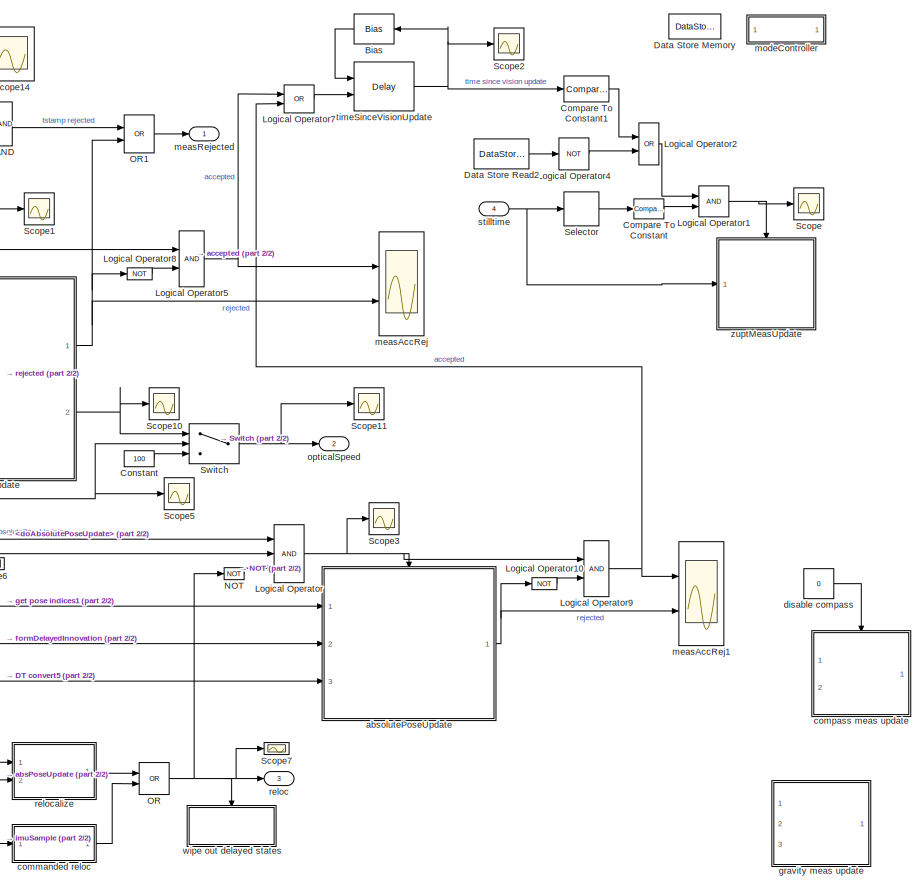
[diagram: measUpdate - part 1/2, right side, full height]
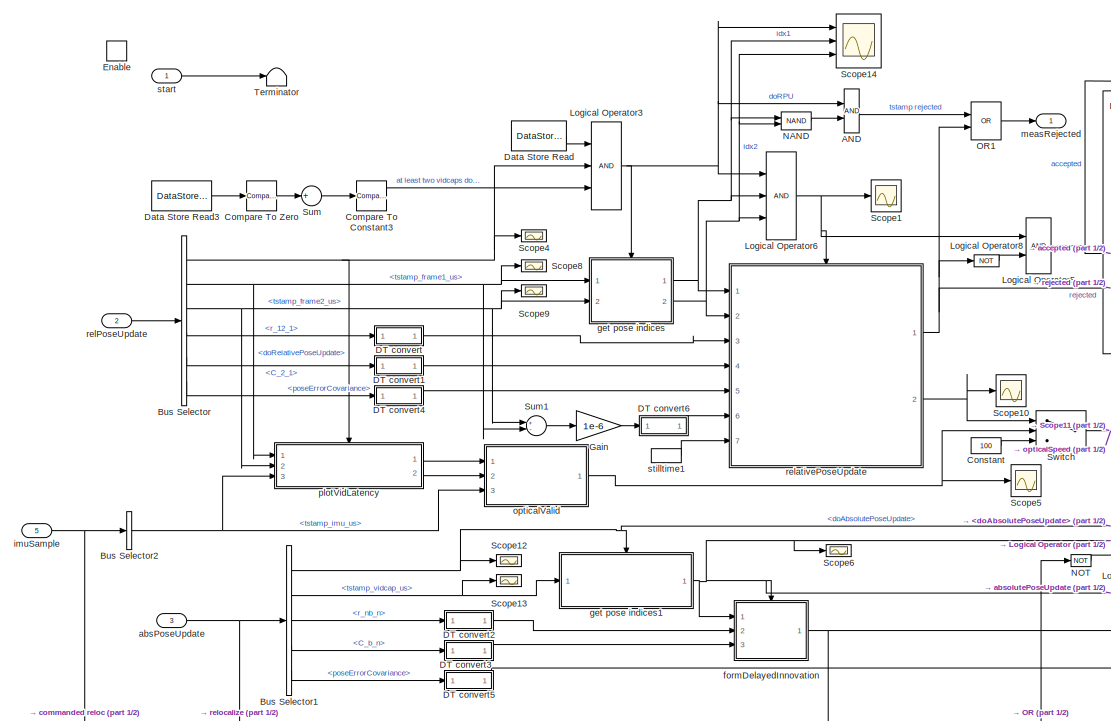
[diagram: measUpdate - part 2/2, left side, full height]
BLOCK [SubSystem] measUpdate
  Ports = [5, 3, 1]
  RTWFcnNameOpts = Use subsystem name
  RTWSystemCode = Nonreusable function
  RequestExecContextInheritance = off
  TreatAsAtomicUnit = on
BLOCK [Logic] measUpdate/AND
  AllPortsSameDT = off
  IconShape = distinctive
  OutDataTypeStr = boolean
  Ports = [2, 1]
BLOCK [Bias] measUpdate/Bias
  Bias = 1/Fs
  SaturateOnIntegerOverflow = off
BLOCK [BusSelector] measUpdate/Bus Selector
  OutputAsBus = off
  OutputSignals = doRelativePoseUpdate,tstamp_frame1_us,tstamp_frame2_us,r_12_1,C_2_1,poseErrorCovariance
  Ports = [1, 6]
BLOCK [BusSelector] measUpdate/Bus Selector1
  OutputAsBus = off
  OutputSignals = doAbsolutePoseUpdate,tstamp_vidcap_us,r_nb_n,C_b_n,poseErrorCovariance
  Ports = [1, 5]
BLOCK [BusSelector] measUpdate/Bus Selector2
  OutputAsBus = off
  OutputSignals = tstamp_imu_us
  Ports = [1, 1]
BLOCK [Reference] measUpdate/Compare To Constant  REF=simulink/Logic and Bit
Operations/Compare
To Constant
  Ports = [1, 1]
  SourceBlock = simulink/Logic and Bit\nOperations/Compare\nTo Constant
  SourceProductBaseCode = SL
  SourceProductName = Simulink
  SourceType = Compare To Constant
BLOCK [Reference] measUpdate/Compare To Constant1  REF=simulink/Logic and Bit
Operations/Compare
To Constant
  Ports = [1, 1]
  SourceBlock = simulink/Logic and Bit\nOperations/Compare\nTo Constant
  SourceProductBaseCode = SL
  SourceProductName = Simulink
  SourceType = Compare To Constant
BLOCK [Reference] measUpdate/Compare To Constant3  REF=simulink/Logic and Bit
Operations/Compare
To Constant
  Ports = [1, 1]
  SourceBlock = simulink/Logic and Bit\nOperations/Compare\nTo Constant
  SourceProductBaseCode = SL
  SourceProductName = Simulink
  SourceType = Compare To Constant
BLOCK [Reference] measUpdate/Compare To Zero  REF=simulink/Logic and Bit
Operations/Compare
To Zero
  Ports = [1, 1]
  SourceBlock = simulink/Logic and Bit\nOperations/Compare\nTo Zero
  SourceProductBaseCode = SL
  SourceProductName = Simulink
  SourceType = Compare To Zero
BLOCK [Constant] measUpdate/Constant
  OutDataTypeStr = Inherit: Inherit via back propagation
  Value = 100
BLOCK [SubSystem] measUpdate/DT convert
  Ports = [1, 1]
  RequestExecContextInheritance = off
BLOCK [DataStoreRead] measUpdate/DT convert/Data Store Read
  DataStoreName = DataTypeRef
  Ports = [0, 1]
BLOCK [Reference] measUpdate/DT convert/Data Type Conversion Inherited  REF=simulink/Signal
Attributes/Data Type
Conversion
Inherited
  Ports = [2, 1]
  SourceBlock = simulink/Signal\nAttributes/Data Type\nConversion\nInherited
  SourceProductBaseCode = SL
  SourceProductName = Simulink
  SourceType = Conversion Inherited
BLOCK [Inport] measUpdate/DT convert/In1
  IconDisplay = Port number
BLOCK [Outport] measUpdate/DT convert/Out1
  IconDisplay = Port number
BLOCK [SubSystem] measUpdate/DT convert1
  Ports = [1, 1]
  RequestExecContextInheritance = off
BLOCK [DataStoreRead] measUpdate/DT convert1/Data Store Read
  DataStoreName = DataTypeRef
  Ports = [0, 1]
BLOCK [Reference] measUpdate/DT convert1/Data Type Conversion Inherited  REF=simulink/Signal
Attributes/Data Type
Conversion
Inherited
  Ports = [2, 1]
  SourceBlock = simulink/Signal\nAttributes/Data Type\nConversion\nInherited
  SourceProductBaseCode = SL
  SourceProductName = Simulink
  SourceType = Conversion Inherited
BLOCK [Inport] measUpdate/DT convert1/In1
  IconDisplay = Port number
BLOCK [Outport] measUpdate/DT convert1/Out1
  IconDisplay = Port number
BLOCK [SubSystem] measUpdate/DT convert2
  Ports = [1, 1]
  RequestExecContextInheritance = off
BLOCK [DataStoreRead] measUpdate/DT convert2/Data Store Read
  DataStoreName = DataTypeRef
  Ports = [0, 1]
BLOCK [Reference] measUpdate/DT convert2/Data Type Conversion Inherited  REF=simulink/Signal
Attributes/Data Type
Conversion
Inherited
  Ports = [2, 1]
  SourceBlock = simulink/Signal\nAttributes/Data Type\nConversion\nInherited
  SourceProductBaseCode = SL
  SourceProductName = Simulink
  SourceType = Conversion Inherited
BLOCK [Inport] measUpdate/DT convert2/In1
  IconDisplay = Port number
BLOCK [Outport] measUpdate/DT convert2/Out1
  IconDisplay = Port number
BLOCK [SubSystem] measUpdate/DT convert3
  Ports = [1, 1]
  RequestExecContextInheritance = off
BLOCK [DataStoreRead] measUpdate/DT convert3/Data Store Read
  DataStoreName = DataTypeRef
  Ports = [0, 1]
BLOCK [Reference] measUpdate/DT convert3/Data Type Conversion Inherited  REF=simulink/Signal
Attributes/Data Type
Conversion
Inherited
  Ports = [2, 1]
  SourceBlock = simulink/Signal\nAttributes/Data Type\nConversion\nInherited
  SourceProductBaseCode = SL
  SourceProductName = Simulink
  SourceType = Conversion Inherited
BLOCK [Inport] measUpdate/DT convert3/In1
  IconDisplay = Port number
BLOCK [Outport] measUpdate/DT convert3/Out1
  IconDisplay = Port number
BLOCK [SubSystem] measUpdate/DT convert4
  Ports = [1, 1]
  RequestExecContextInheritance = off
BLOCK [DataStoreRead] measUpdate/DT convert4/Data Store Read
  DataStoreName = DataTypeRef
  Ports = [0, 1]
BLOCK [Reference] measUpdate/DT convert4/Data Type Conversion Inherited  REF=simulink/Signal
Attributes/Data Type
Conversion
Inherited
  Ports = [2, 1]
  SourceBlock = simulink/Signal\nAttributes/Data Type\nConversion\nInherited
  SourceProductBaseCode = SL
  SourceProductName = Simulink
  SourceType = Conversion Inherited
BLOCK [Inport] measUpdate/DT convert4/In1
  IconDisplay = Port number
BLOCK [Outport] measUpdate/DT convert4/Out1
  IconDisplay = Port number
BLOCK [SubSystem] measUpdate/DT convert5
  Ports = [1, 1]
  RequestExecContextInheritance = off
BLOCK [DataStoreRead] measUpdate/DT convert5/Data Store Read
  DataStoreName = DataTypeRef
  Ports = [0, 1]
BLOCK [Reference] measUpdate/DT convert5/Data Type Conversion Inherited  REF=simulink/Signal
Attributes/Data Type
Conversion
Inherited
  Ports = [2, 1]
  SourceBlock = simulink/Signal\nAttributes/Data Type\nConversion\nInherited
  SourceProductBaseCode = SL
  SourceProductName = Simulink
  SourceType = Conversion Inherited
BLOCK [Inport] measUpdate/DT convert5/In1
  IconDisplay = Port number
BLOCK [Outport] measUpdate/DT convert5/Out1
  IconDisplay = Port number
BLOCK [SubSystem] measUpdate/DT convert6
  Ports = [1, 1]
  RequestExecContextInheritance = off
BLOCK [DataStoreRead] measUpdate/DT convert6/Data Store Read
  DataStoreName = DataTypeRef
  Ports = [0, 1]
BLOCK [Reference] measUpdate/DT convert6/Data Type Conversion Inherited  REF=simulink/Signal
Attributes/Data Type
Conversion
Inherited
  Ports = [2, 1]
  SourceBlock = simulink/Signal\nAttributes/Data Type\nConversion\nInherited
  SourceProductBaseCode = SL
  SourceProductName = Simulink
  SourceType = Conversion Inherited
BLOCK [Inport] measUpdate/DT convert6/In1
  IconDisplay = Port number
BLOCK [Outport] measUpdate/DT convert6/Out1
  IconDisplay = Port number
BLOCK [DataStoreMemory] measUpdate/Data Store Memory
  DataStoreName = useRpus
  InitialValue = true
  ReadBeforeWriteMsg = warning
  ShowAdditionalParam = off
  WriteAfterReadMsg = warning
  WriteAfterWriteMsg = warning
BLOCK [DataStoreRead] measUpdate/Data Store Read
  DataStoreName = useRpus
  Ports = [0, 1]
BLOCK [DataStoreRead] measUpdate/Data Store Read2
  DataStoreName = useRpus
  Ports = [0, 1]
BLOCK [DataStoreRead] measUpdate/Data Store Read3
  DataStoreName = tstamp_list
  Ports = [0, 1]
BLOCK [EnablePort] measUpdate/Enable
  Ports = [0, 1]
  ShowOutputPort = on
  StatesWhenEnabling = reset
BLOCK [Gain] measUpdate/Gain
  Gain = 1e-6
  OutDataTypeStr = Inherit: Inherit via internal rule
  ParamDataTypeStr = Inherit: Inherit via internal rule
  SaturateOnIntegerOverflow = off
BLOCK [Logic] measUpdate/Logical Operator
  AllPortsSameDT = off
  Inputs = 3
  OutDataTypeStr = boolean
  Ports = [3, 1]
BLOCK [Logic] measUpdate/Logical Operator1
  AllPortsSameDT = off
  OutDataTypeStr = boolean
  Ports = [2, 1]
BLOCK [Logic] measUpdate/Logical Operator10
  AllPortsSameDT = off
  IconShape = distinctive
  Operator = NOT
  OutDataTypeStr = boolean
  Ports = [1, 1]
BLOCK [Logic] measUpdate/Logical Operator2
  AllPortsSameDT = off
  Operator = OR
  OutDataTypeStr = boolean
  Ports = [2, 1]
BLOCK [Logic] measUpdate/Logical Operator3
  AllPortsSameDT = off
  Inputs = 3
  OutDataTypeStr = boolean
  Ports = [3, 1]
BLOCK [Logic] measUpdate/Logical Operator4
  AllPortsSameDT = off
  IconShape = distinctive
  Operator = NOT
  OutDataTypeStr = boolean
  Ports = [1, 1]
BLOCK [Logic] measUpdate/Logical Operator5
  AllPortsSameDT = off
  OutDataTypeStr = boolean
  Ports = [2, 1]
BLOCK [Logic] measUpdate/Logical Operator6
  AllPortsSameDT = off
  Inputs = 3
  OutDataTypeStr = boolean
  Ports = [3, 1]
BLOCK [Logic] measUpdate/Logical Operator7
  AllPortsSameDT = off
  IconShape = distinctive
  Operator = OR
  OutDataTypeStr = boolean
  Ports = [2, 1]
BLOCK [Logic] measUpdate/Logical Operator8
  AllPortsSameDT = off
  IconShape = distinctive
  Operator = NOT
  OutDataTypeStr = boolean
  Ports = [1, 1]
BLOCK [Logic] measUpdate/Logical Operator9
  AllPortsSameDT = off
  OutDataTypeStr = boolean
  Ports = [2, 1]
BLOCK [Logic] measUpdate/NAND
  AllPortsSameDT = off
  IconShape = distinctive
  Operator = NAND
  OutDataTypeStr = boolean
  Ports = [2, 1]
BLOCK [Logic] measUpdate/NOT
  AllPortsSameDT = off
  IconShape = distinctive
  Operator = NOT
  OutDataTypeStr = boolean
  Ports = [1, 1]
BLOCK [Logic] measUpdate/OR
  AllPortsSameDT = off
  IconShape = distinctive
  Operator = OR
  OutDataTypeStr = boolean
  Ports = [2, 1]
BLOCK [Logic] measUpdate/OR1
  AllPortsSameDT = off
  IconShape = distinctive
  Operator = OR
  OutDataTypeStr = boolean
  Ports = [2, 1]
BLOCK [Scope] measUpdate/Scope
  Floating = off
  NumInputPorts = 1
  Ports = [1]
  ScopeSpecificationString = Simulink.scopes.TimeScopeBlockCfg('CurrentConfiguration', extmgr.ConfigurationSet(extmgr.Configuration('Core','General UI',true),extmgr.Configuration('Core','Source UI',true),extmgr.Configuration('Sources','WiredSimulink',true,'DataLoggingVariableName','ScopeData1'),extmgr.Configuration('Visuals','Time Domain',true,'SerializedDisplays',{struct('MinYLimReal','-0.125','MaxYLimReal','1.125','YLabelRe...<+1408ch>
BLOCK [Scope] measUpdate/Scope1
  Floating = off
  NumInputPorts = 1
  Ports = [1]
  ScopeSpecificationString = Simulink.scopes.TimeScopeBlockCfg('CurrentConfiguration', extmgr.ConfigurationSet(extmgr.Configuration('Core','General UI',true),extmgr.Configuration('Core','Source UI',true),extmgr.Configuration('Sources','WiredSimulink',true,'DataLoggingVariableName','ScopeData2'),extmgr.Configuration('Visuals','Time Domain',true,'SerializedDisplays',{struct('MinYLimReal','-1.00000','MaxYLimReal','1.00000','YLab...<+1420ch>
BLOCK [Scope] measUpdate/Scope10
  Floating = off
  NumInputPorts = 1
  Ports = [1]
  ScopeSpecificationString = Simulink.scopes.TimeScopeBlockCfg('CurrentConfiguration', extmgr.ConfigurationSet(extmgr.Configuration('Core','General UI',true),extmgr.Configuration('Core','Source UI',true),extmgr.Configuration('Sources','WiredSimulink',true,'DataLoggingVariableName','ScopeData4'),extmgr.Configuration('Visuals','Time Domain',true,'SerializedDisplays',{struct('MinYLimReal','-0.01114','MaxYLimReal','0.011','YLabel...<+1419ch>
BLOCK [Scope] measUpdate/Scope11
  Floating = off
  NumInputPorts = 1
  Ports = [1]
  ScopeSpecificationString = Simulink.scopes.TimeScopeBlockCfg('CurrentConfiguration', extmgr.ConfigurationSet(extmgr.Configuration('Core','General UI',true),extmgr.Configuration('Core','Source UI',true),extmgr.Configuration('Sources','WiredSimulink',true,'DataLoggingVariableName','ScopeData5'),extmgr.Configuration('Visuals','Time Domain',true,'SerializedDisplays',{struct('MinYLimReal','-1.68725','MaxYLimReal','2.54583','YLab...<+1409ch>
BLOCK [Scope] measUpdate/Scope12
  Floating = off
  NumInputPorts = 1
  Ports = [1]
  ScopeSpecificationString = Simulink.scopes.TimeScopeBlockCfg('CurrentConfiguration', extmgr.ConfigurationSet(extmgr.Configuration('Core','General UI',true),extmgr.Configuration('Core','Source UI',true),extmgr.Configuration('Sources','WiredSimulink',true,'DataLoggingVariableName','ScopeData3'),extmgr.Configuration('Visuals','Time Domain',true,'SerializedDisplays',{struct('MinYLimReal','-0.125','MaxYLimReal','1.125','YLabelRe...<+1443ch>
BLOCK [Scope] measUpdate/Scope13
  Floating = off
  NumInputPorts = 1
  Ports = [1]
  ScopeSpecificationString = Simulink.scopes.TimeScopeBlockCfg('CurrentConfiguration', extmgr.ConfigurationSet(extmgr.Configuration('Core','General UI',true),extmgr.Configuration('Core','Source UI',true),extmgr.Configuration('Sources','WiredSimulink',true,'DataLoggingVariableName','ScopeData4'),extmgr.Configuration('Visuals','Time Domain',true,'SerializedDisplays',{struct('MinYLimReal','-49265906.00000','MaxYLimReal','4433931...<+1509ch>
BLOCK [Scope] measUpdate/Scope14
  Floating = off
  NumInputPorts = 3
  Ports = [3]
  ScopeSpecificationString = Simulink.scopes.TimeScopeBlockCfg('CurrentConfiguration', extmgr.ConfigurationSet(extmgr.Configuration('Core','General UI',true),extmgr.Configuration('Core','Source UI',true),extmgr.Configuration('Sources','WiredSimulink',true,'DataLoggingVariableName','ScopeData2'),extmgr.Configuration('Visuals','Time Domain',true,'PlotType','Stem','SerializedDisplays',{struct('MinYLimReal','-0.125','MaxYLimReal'...<+1797ch>
BLOCK [Scope] measUpdate/Scope2
  Floating = off
  NumInputPorts = 1
  Ports = [1]
  ScopeSpecificationString = Simulink.scopes.TimeScopeBlockCfg('CurrentConfiguration', extmgr.ConfigurationSet(extmgr.Configuration('Core','General UI',true),extmgr.Configuration('Core','Source UI',true),extmgr.Configuration('Sources','WiredSimulink',true,'DataLoggingVariableName','ScopeData3'),extmgr.Configuration('Visuals','Time Domain',true,'SerializedDisplays',{struct('MinYLimReal','-0.09125','MaxYLimReal','0.82125','YLab...<+1408ch>
BLOCK [Scope] measUpdate/Scope3
  Floating = off
  NumInputPorts = 1
  Ports = [1]
  ScopeSpecificationString = Simulink.scopes.TimeScopeBlockCfg('CurrentConfiguration', extmgr.ConfigurationSet(extmgr.Configuration('Core','General UI',true),extmgr.Configuration('Core','Source UI',true),extmgr.Configuration('Sources','WiredSimulink',true,'DataLoggingVariableName','ScopeData2'),extmgr.Configuration('Visuals','Time Domain',true,'SerializedDisplays',{struct('MinYLimReal','-0.125','MaxYLimReal','1.125','YLabelRe...<+1440ch>
BLOCK [Scope] measUpdate/Scope4
  Floating = off
  NumInputPorts = 1
  Ports = [1]
  ScopeSpecificationString = Simulink.scopes.TimeScopeBlockCfg('CurrentConfiguration', extmgr.ConfigurationSet(extmgr.Configuration('Core','General UI',true),extmgr.Configuration('Core','Source UI',true),extmgr.Configuration('Sources','WiredSimulink',true,'DataLoggingVariableName','ScopeData9'),extmgr.Configuration('Visuals','Time Domain',true,'SerializedDisplays',{struct('MinYLimReal','-1.00000','MaxYLimReal','1.00000','YLab...<+1455ch>
BLOCK [Scope] measUpdate/Scope5
  Floating = off
  NumInputPorts = 1
  Ports = [1]
  ScopeSpecificationString = Simulink.scopes.TimeScopeBlockCfg('CurrentConfiguration', extmgr.ConfigurationSet(extmgr.Configuration('Core','General UI',true),extmgr.Configuration('Core','Source UI',true),extmgr.Configuration('Sources','WiredSimulink',true,'DataLoggingVariableName','ScopeData3'),extmgr.Configuration('Visuals','Time Domain',true,'SerializedDisplays',{struct('MinYLimReal','-0.125','MaxYLimReal','1.125','YLabelRe...<+1403ch>
BLOCK [Scope] measUpdate/Scope6
  Floating = off
  NumInputPorts = 1
  Ports = [1]
  ScopeSpecificationString = Simulink.scopes.TimeScopeBlockCfg('CurrentConfiguration', extmgr.ConfigurationSet(extmgr.Configuration('Core','General UI',true),extmgr.Configuration('Core','Source UI',true),extmgr.Configuration('Sources','WiredSimulink',true,'DataLoggingVariableName','ScopeData1'),extmgr.Configuration('Visuals','Time Domain',true,'SerializedDisplays',{struct('MinYLimReal','-1.00000','MaxYLimReal','1.00000','YLab...<+1450ch>
BLOCK [Scope] measUpdate/Scope7
  Floating = off
  NumInputPorts = 1
  Ports = [1]
  ScopeSpecificationString = Simulink.scopes.TimeScopeBlockCfg('CurrentConfiguration', extmgr.ConfigurationSet(extmgr.Configuration('Core','General UI',true),extmgr.Configuration('Core','Source UI',true),extmgr.Configuration('Sources','WiredSimulink',true,'DataLoggingVariableName','ScopeData7'),extmgr.Configuration('Visuals','Time Domain',true,'SerializedDisplays',{struct('MinYLimReal','-1.00000','MaxYLimReal','1.00000','YLab...<+1435ch>
BLOCK [Scope] measUpdate/Scope8
  Floating = off
  NumInputPorts = 1
  Ports = [1]
  ScopeSpecificationString = Simulink.scopes.TimeScopeBlockCfg('CurrentConfiguration', extmgr.ConfigurationSet(extmgr.Configuration('Core','General UI',true),extmgr.Configuration('Core','Source UI',true),extmgr.Configuration('Sources','WiredSimulink',true,'DataLoggingVariableName','ScopeData6'),extmgr.Configuration('Visuals','Time Domain',true,'SerializedDisplays',{struct('MinYLimReal','-49265906.00000','MaxYLimReal','4433931...<+1509ch>
BLOCK [Scope] measUpdate/Scope9
  Floating = off
  NumInputPorts = 1
  Ports = [1]
  ScopeSpecificationString = Simulink.scopes.TimeScopeBlockCfg('CurrentConfiguration', extmgr.ConfigurationSet(extmgr.Configuration('Core','General UI',true),extmgr.Configuration('Core','Source UI',true),extmgr.Configuration('Sources','WiredSimulink',true,'DataLoggingVariableName','ScopeData7'),extmgr.Configuration('Visuals','Time Domain',true,'SerializedDisplays',{struct('MinYLimReal','118104537.12556','MaxYLimReal','1187891...<+1512ch>
BLOCK [Selector] measUpdate/Selector
  IndexOptions = Index vector (dialog)
  Indices = 2
  InputPortWidth = 2
  OutputSizes = 1
  Ports = [1, 1]
BLOCK [Sum] measUpdate/Sum
  IconShape = round
  InputSameDT = off
  Inputs = +
  OutDataTypeStr = Inherit: Inherit via internal rule
  Ports = [1, 1]
  SaturateOnIntegerOverflow = off
BLOCK [Sum] measUpdate/Sum1
  InputSameDT = off
  Inputs = +-
  OutDataTypeStr = Inherit: Inherit via internal rule
  Ports = [2, 1]
  SaturateOnIntegerOverflow = off
BLOCK [Switch] measUpdate/Switch
  Criteria = u2 > Threshold
  InputSameDT = off
  SaturateOnIntegerOverflow = off
BLOCK [Terminator] measUpdate/Terminator
BLOCK [Inport] measUpdate/absPoseUpdate
  IconDisplay = Port number
  Port = 3
BLOCK [SubSystem] measUpdate/absolutePoseUpdate
  Ports = [3, 1, 1]
  Priority = 4
  RTWFcnNameOpts = Use subsystem name
  RTWSystemCode = Nonreusable function
  RequestExecContextInheritance = off
  TreatAsAtomicUnit = on
BLOCK [SubSystem] measUpdate/absolutePoseUpdate/DT police
  Ports = [1]
  RequestExecContextInheritance = off
  TreatAsAtomicUnit = on
BLOCK [DataStoreRead] measUpdate/absolutePoseUpdate/DT police/Data Store Read
  DataStoreName = DataTypeRef
  Ports = [0, 1]
BLOCK [DataTypeDuplicate] measUpdate/absolutePoseUpdate/DT police/Data Type Duplicate
  Ports = [2]
BLOCK [Inport] measUpdate/absolutePoseUpdate/DT police/In1
  IconDisplay = Port number
BLOCK [DataStoreRead] measUpdate/absolutePoseUpdate/Data Store Read1
  DataStoreName = Pxc
  Ports = [0, 1]
BLOCK [DataStoreRead] measUpdate/absolutePoseUpdate/Data Store Read2
  DataStoreName = Pcc
  Ports = [0, 1]
BLOCK [DataStoreRead] measUpdate/absolutePoseUpdate/Data Store Read3
  DataStoreName = Pxx
  Ports = [0, 1]
BLOCK [Demux] measUpdate/absolutePoseUpdate/Demux
  DisplayOption = bar
  Outputs = 2
  Ports = [1, 2]
BLOCK [EnablePort] measUpdate/absolutePoseUpdate/Enable
  Ports = []
BLOCK [Reference] measUpdate/absolutePoseUpdate/Extract Diagonal  REF=dspmtrx3/Extract Diagonal
  Ports = [1, 1]
  SourceBlock = dspmtrx3/Extract Diagonal
  SourceProductBaseCode = DS
  SourceProductName = DSP System Toolbox
  SourceType = Extract Diagonal
BLOCK [Logic] measUpdate/absolutePoseUpdate/Logical Operator
  AllPortsSameDT = off
  IconShape = distinctive
  Inputs = 1
  Operator = NOT
  OutDataTypeStr = boolean
  Ports = [1, 1]
BLOCK [PermuteDimensions] measUpdate/absolutePoseUpdate/Permute Dimensions
BLOCK [Product] measUpdate/absolutePoseUpdate/Product1
  InputSameDT = off
  Multiplication = Matrix(*)
  OutDataTypeStr = Inherit: Inherit via internal rule
  Ports = [2, 1]
  RndMeth = Floor
  SaturateOnIntegerOverflow = off
BLOCK [Inport] measUpdate/absolutePoseUpdate/R
  IconDisplay = Port number
  Port = 3
BLOCK [Scope] measUpdate/absolutePoseUpdate/Scope
  Floating = off
  NumInputPorts = 1
  Ports = [1]
  ScopeSpecificationString = Simulink.scopes.TimeScopeBlockCfg('CurrentConfiguration', extmgr.ConfigurationSet(extmgr.Configuration('Core','General UI',true),extmgr.Configuration('Core','Source UI',true),extmgr.Configuration('Sources','WiredSimulink',true,'DataLoggingVariableName','ScopeData3'),extmgr.Configuration('Visuals','Time Domain',true,'SerializedDisplays',{struct('MinYLimReal','-3.28319','MaxYLimReal','3.69044','YLab...<+1759ch>
BLOCK [Scope] measUpdate/absolutePoseUpdate/Scope1
  Floating = off
  NumInputPorts = 1
  Ports = [1]
  ScopeSpecificationString = Simulink.scopes.TimeScopeBlockCfg('CurrentConfiguration', extmgr.ConfigurationSet(extmgr.Configuration('Core','General UI',true),extmgr.Configuration('Core','Source UI',true),extmgr.Configuration('Sources','WiredSimulink',true,'DataLoggingVariableName','ScopeData4'),extmgr.Configuration('Visuals','Time Domain',true,'SerializedDisplays',{struct('MinYLimReal','-0.03288','MaxYLimReal','0.05699','YLab...<+1756ch>
BLOCK [Scope] measUpdate/absolutePoseUpdate/Scope4
  Floating = off
  NumInputPorts = 1
  Ports = [1]
  ScopeSpecificationString = Simulink.scopes.TimeScopeBlockCfg('CurrentConfiguration', extmgr.ConfigurationSet(extmgr.Configuration('Core','General UI',true),extmgr.Configuration('Core','Source UI',true),extmgr.Configuration('Sources','WiredSimulink',true,'DataLoggingVariableName','ScopeData1'),extmgr.Configuration('Visuals','Time Domain',true,'SerializedDisplays',{struct('MinYLimReal','-0.375','MaxYLimReal','3.375','YLabelRe...<+1506ch>
BLOCK [Scope] measUpdate/absolutePoseUpdate/Scope6
  Floating = off
  NumInputPorts = 1
  Ports = [1]
  ScopeSpecificationString = Simulink.scopes.TimeScopeBlockCfg('CurrentConfiguration', extmgr.ConfigurationSet(extmgr.Configuration('Core','General UI',true),extmgr.Configuration('Core','Source UI',true),extmgr.Configuration('Sources','WiredSimulink',true,'DataLoggingVariableName','ScopeData1'),extmgr.Configuration('Visuals','Time Domain',true,'SerializedDisplays',{struct('MinYLimReal','-1.44614','MaxYLimReal','25.43745','YLa...<+2290ch>
BLOCK [Sqrt] measUpdate/absolutePoseUpdate/Sqrt
BLOCK [SubSystem] measUpdate/absolutePoseUpdate/applyErrors
  Ports = [1, 0, 1]
  RequestExecContextInheritance = off
BLOCK [DataStoreRead] measUpdate/absolutePoseUpdate/applyErrors/Data Store Read
  DataStoreName = C_b_n_list
  Ports = [0, 1]
BLOCK [DataStoreRead] measUpdate/absolutePoseUpdate/applyErrors/Data Store Read1
  DataStoreName = r_b_n_list
  Ports = [0, 1]
BLOCK [DataStoreWrite] measUpdate/absolutePoseUpdate/applyErrors/Data Store Write
  DataStoreName = C_b_n_list
  Ports = [1]
BLOCK [DataStoreWrite] measUpdate/absolutePoseUpdate/applyErrors/Data Store Write1
  DataStoreName = r_b_n_list
  Ports = [1]
BLOCK [EnablePort] measUpdate/absolutePoseUpdate/applyErrors/Enable
  Ports = []
BLOCK [SubSystem] measUpdate/absolutePoseUpdate/applyErrors/For Each Subsystem
  Ports = [3, 2]
  RequestExecContextInheritance = off
  TreatAsAtomicUnit = on
BLOCK [Outport] measUpdate/absolutePoseUpdate/applyErrors/For Each Subsystem/C_c_n_list
  ConcatenationDimension = 3
  IconDisplay = Port number
BLOCK [Inport] measUpdate/absolutePoseUpdate/applyErrors/For Each Subsystem/C_c_n_list_in
  IconDisplay = Port number
  Partition = on
  PartitionDimension = 3
  PartitionOffset = 0
  PartitionWidth = 1
  Port = 2
BLOCK [Demux] measUpdate/absolutePoseUpdate/applyErrors/For Each Subsystem/Demux
  DisplayOption = bar
  Outputs = [3 3]
  Ports = [1, 2]
BLOCK [ForEach] measUpdate/absolutePoseUpdate/applyErrors/For Each Subsystem/For Each
  DisableCoverage = on
  IndexMode = One-based
  Ports = []
BLOCK [Product] measUpdate/absolutePoseUpdate/applyErrors/For Each Subsystem/Product2
  InputSameDT = off
  Multiplication = Matrix(*)
  OutDataTypeStr = Inherit: Inherit via internal rule
  Ports = [2, 1]
  RndMeth = Floor
  SaturateOnIntegerOverflow = off
BLOCK [Sum] measUpdate/absolutePoseUpdate/applyErrors/For Each Subsystem/Sum
  IconShape = round
  InputSameDT = off
  Inputs = ++|
  OutDataTypeStr = Inherit: Inherit via internal rule
  Ports = [2, 1]
  SaturateOnIntegerOverflow = off
BLOCK [Sum] measUpdate/absolutePoseUpdate/applyErrors/For Each Subsystem/Sum2
  IconShape = round
  InputSameDT = off
  Inputs = -+|
  OutDataTypeStr = Inherit: Inherit via internal rule
  Ports = [2, 1]
  SaturateOnIntegerOverflow = off
BLOCK [Inport] measUpdate/absolutePoseUpdate/applyErrors/For Each Subsystem/delayedPoseCorrections
  IconDisplay = Port number
  Partition = on
  PartitionDimension = 1
  PartitionOffset = 0
  PartitionWidth = 6
BLOCK [Outport] measUpdate/absolutePoseUpdate/applyErrors/For Each Subsystem/r_c_n_list
  ConcatenationDimension = 3
  IconDisplay = Port number
  Port = 2
BLOCK [Inport] measUpdate/absolutePoseUpdate/applyErrors/For Each Subsystem/r_c_n_list_in
  IconDisplay = Port number
  Partition = on
  PartitionDimension = 3
  PartitionOffset = 0
  PartitionWidth = 1
  Port = 3
BLOCK [SubSystem] measUpdate/absolutePoseUpdate/applyErrors/For Each Subsystem/reOrthonormalization
  Ports = [1, 1]
  RequestExecContextInheritance = off
  TreatAsAtomicUnit = on
BLOCK [Product] measUpdate/absolutePoseUpdate/applyErrors/For Each Subsystem/reOrthonormalization/C*C'
  InputSameDT = off
  Multiplication = Matrix(*)
  OutDataTypeStr = Inherit: Inherit via internal rule
  Ports = [2, 1]
  RndMeth = Floor
  SaturateOnIntegerOverflow = off
BLOCK [Product] measUpdate/absolutePoseUpdate/applyErrors/For Each Subsystem/reOrthonormalization/C*C'1
  InputSameDT = off
  Multiplication = Matrix(*)
  OutDataTypeStr = Inherit: Inherit via internal rule
  Ports = [2, 1]
  RndMeth = Floor
  SaturateOnIntegerOverflow = off
BLOCK [Constant] measUpdate/absolutePoseUpdate/applyErrors/For Each Subsystem/reOrthonormalization/Constant
  OutDataTypeStr = Inherit: Inherit via back propagation
  Value = eye(3)
BLOCK [Gain] measUpdate/absolutePoseUpdate/applyErrors/For Each Subsystem/reOrthonormalization/Gain
  Gain = 1/2
  OutDataTypeStr = Inherit: Inherit via internal rule
  ParamDataTypeStr = Inherit: Inherit via internal rule
  SaturateOnIntegerOverflow = off
BLOCK [Inport] measUpdate/absolutePoseUpdate/applyErrors/For Each Subsystem/reOrthonormalization/In1
  IconDisplay = Port number
BLOCK [Outport] measUpdate/absolutePoseUpdate/applyErrors/For Each Subsystem/reOrthonormalization/Out1
  IconDisplay = Port number
BLOCK [PermuteDimensions] measUpdate/absolutePoseUpdate/applyErrors/For Each Subsystem/reOrthonormalization/Permute Dimensions
BLOCK [Sum] measUpdate/absolutePoseUpdate/applyErrors/For Each Subsystem/reOrthonormalization/Sum
  IconShape = round
  InputSameDT = off
  Inputs = |++
  OutDataTypeStr = Inherit: Inherit via internal rule
  Ports = [2, 1]
  SaturateOnIntegerOverflow = off
BLOCK [Sum] measUpdate/absolutePoseUpdate/applyErrors/For Each Subsystem/reOrthonormalization/Sum1
  IconShape = round
  InputSameDT = off
  Inputs = |+-
  OutDataTypeStr = Inherit: Inherit via internal rule
  Ports = [2, 1]
  SaturateOnIntegerOverflow = off
BLOCK [SubSystem] measUpdate/absolutePoseUpdate/applyErrors/For Each Subsystem/skew
  ErrorFcn = Stateflow.Translate.translate
  PermitHierarchicalResolution = ExplicitOnly
  Ports = [1, 1]
  RequestExecContextInheritance = off
  SFBlockType = MATLAB Function
  TreatAsAtomicUnit = on
BLOCK [Demux] measUpdate/absolutePoseUpdate/applyErrors/For Each Subsystem/skew/ Demux 
  Outputs = 1
  Ports = [1, 1]
BLOCK [S-Function] measUpdate/absolutePoseUpdate/applyErrors/For Each Subsystem/skew/ SFunction 
  EnableBusSupport = on
  FunctionName = sf_sfun
  PortCounts = [1 2]
  Ports = [1, 2]
  SFcnIsStateOwnerBlock = off
  SFunctionDeploymentMode = off
  Tag = Stateflow S-Function VINS 25
BLOCK [Terminator] measUpdate/absolutePoseUpdate/applyErrors/For Each Subsystem/skew/ Terminator 
BLOCK [Inport] measUpdate/absolutePoseUpdate/applyErrors/For Each Subsystem/skew/inp_vr
  IconDisplay = Port number
BLOCK [Outport] measUpdate/absolutePoseUpdate/applyErrors/For Each Subsystem/skew/res
  IconDisplay = Port number
BLOCK [Reference] measUpdate/absolutePoseUpdate/applyErrors/Pad  REF=dspsigops/Pad
  Ports = [1, 1]
  SourceBlock = dspsigops/Pad
  SourceProductBaseCode = DS
  SourceProductName = DSP System Toolbox
  SourceType = Pad
BLOCK [Selector] measUpdate/absolutePoseUpdate/applyErrors/Selector
  IndexOptions = Starting index (dialog),Index vector (dialog)
  Indices = 1,1
  InputPortWidth = 3
  NumberOfDimensions = 2
  OutputSizes = modelDef.numStates,modelDef.numStates
  Ports = [1, 1]
BLOCK [Selector] measUpdate/absolutePoseUpdate/applyErrors/Selector1
  IndexOptions = Starting index (dialog),Index vector (dialog)
  Indices = modelDef.numStates+1,1
  InputPortWidth = 3
  NumberOfDimensions = 2
  OutputSizes = 6*modelDef.maxNumDelayedPoses,6*modelDef.maxNumDelayedPoses
  Ports = [1, 1]
BLOCK [SubSystem] measUpdate/absolutePoseUpdate/applyErrors/applyXstateErrors
  Ports = [1]
  RequestExecContextInheritance = off
BLOCK [Constant] measUpdate/absolutePoseUpdate/applyErrors/applyXstateErrors/Constant
  Value = modelDef.trackGyroSfma
BLOCK [Constant] measUpdate/absolutePoseUpdate/applyErrors/applyXstateErrors/Constant1
  Value = modelDef.trackAccelSfma
BLOCK [Constant] measUpdate/absolutePoseUpdate/applyErrors/applyXstateErrors/Constant2
  Value = modelDef.trackAccelBiases
BLOCK [Constant] measUpdate/absolutePoseUpdate/applyErrors/applyXstateErrors/Constant3
  Value = modelDef.trackGyroGsens
BLOCK [DataStoreRead] measUpdate/absolutePoseUpdate/applyErrors/applyXstateErrors/Data Store Read1
  DataStoreName = dw
  Ports = [0, 1]
BLOCK [DataStoreRead] measUpdate/absolutePoseUpdate/applyErrors/applyXstateErrors/Data Store Read2
  DataStoreName = Cbn
  Ports = [0, 1]
BLOCK [DataStoreRead] measUpdate/absolutePoseUpdate/applyErrors/applyXstateErrors/Data Store Read3
  DataStoreName = rnav
  Ports = [0, 1]
BLOCK [DataStoreRead] measUpdate/absolutePoseUpdate/applyErrors/applyXstateErrors/Data Store Read4
  DataStoreName = vnav
  Ports = [0, 1]
BLOCK [DataStoreWrite] measUpdate/absolutePoseUpdate/applyErrors/applyXstateErrors/Data Store Write1
  DataStoreName = Cbn
  Ports = [1]
BLOCK [DataStoreWrite] measUpdate/absolutePoseUpdate/applyErrors/applyXstateErrors/Data Store Write2
  DataStoreName = dw
  Ports = [1]
BLOCK [DataStoreWrite] measUpdate/absolutePoseUpdate/applyErrors/applyXstateErrors/Data Store Write3
  DataStoreName = rnav
  Ports = [1]
BLOCK [DataStoreWrite] measUpdate/absolutePoseUpdate/applyErrors/applyXstateErrors/Data Store Write4
  DataStoreName = vnav
  Ports = [1]
BLOCK [Reference] measUpdate/absolutePoseUpdate/applyErrors/applyXstateErrors/Multiport Selector  REF=dspindex/Multiport
Selector
  Ports = [1, 8]
  SourceBlock = dspindex/Multiport\nSelector
  SourceProductBaseCode = DS
  SourceProductName = DSP System Toolbox
  SourceType = Multiport Selector
BLOCK [Product] measUpdate/absolutePoseUpdate/applyErrors/applyXstateErrors/Product2
  InputSameDT = off
  Multiplication = Matrix(*)
  OutDataTypeStr = Inherit: Inherit via internal rule
  Ports = [2, 1]
  RndMeth = Floor
  SaturateOnIntegerOverflow = off
BLOCK [Scope] measUpdate/absolutePoseUpdate/applyErrors/applyXstateErrors/Scope
  Floating = off
  NumInputPorts = 1
  Ports = [1]
  ScopeSpecificationString = Simulink.scopes.TimeScopeBlockCfg('CurrentConfiguration', extmgr.ConfigurationSet(extmgr.Configuration('Core','General UI',true),extmgr.Configuration('Core','Source UI',true),extmgr.Configuration('Sources','WiredSimulink',true,'DataLoggingVariableName','ScopeData9'),extmgr.Configuration('Visuals','Time Domain',true,'SerializedDisplays',{struct('MinYLimReal','-0.000005','MaxYLimReal','0.000006','YL...<+1444ch>  <repeated x3 — deduplicated; at blocks: Scope>
BLOCK [Scope] measUpdate/absolutePoseUpdate/applyErrors/applyXstateErrors/Scope1
  Floating = off
  NumInputPorts = 1
  Ports = [1]
  ScopeSpecificationString = Simulink.scopes.TimeScopeBlockCfg('CurrentConfiguration', extmgr.ConfigurationSet(extmgr.Configuration('Core','General UI',true),extmgr.Configuration('Core','Source UI',true),extmgr.Configuration('Sources','WiredSimulink',true,'DataLoggingVariableName','ScopeData15'),extmgr.Configuration('Visuals','Time Domain',true,'SerializedDisplays',{struct('MinYLimReal','-0.01658','MaxYLimReal','0.02302','YLa...<+1451ch>  <repeated x3 — deduplicated; at blocks: Scope1>
BLOCK [Scope] measUpdate/absolutePoseUpdate/applyErrors/applyXstateErrors/Scope2
  Floating = off
  NumInputPorts = 1
  Ports = [1]
  ScopeSpecificationString = Simulink.scopes.TimeScopeBlockCfg('CurrentConfiguration', extmgr.ConfigurationSet(extmgr.Configuration('Core','General UI',true),extmgr.Configuration('Core','Source UI',true),extmgr.Configuration('Sources','WiredSimulink',true,'DataLoggingVariableName','ScopeData16'),extmgr.Configuration('Visuals','Time Domain',true,'SerializedDisplays',{struct('MinYLimReal','-0.02336','MaxYLimReal','0.0274','YLab...<+1428ch>  <repeated x3 — deduplicated; at blocks: Scope2>
BLOCK [Scope] measUpdate/absolutePoseUpdate/applyErrors/applyXstateErrors/Scope3
  Floating = off
  NumInputPorts = 1
  Ports = [1]
  ScopeSpecificationString = Simulink.scopes.TimeScopeBlockCfg('CurrentConfiguration', extmgr.ConfigurationSet(extmgr.Configuration('Core','General UI',true),extmgr.Configuration('Core','Source UI',true),extmgr.Configuration('Sources','WiredSimulink',true,'DataLoggingVariableName','ScopeData17'),extmgr.Configuration('Visuals','Time Domain',true,'SerializedDisplays',{struct('MinYLimReal','-0.000051','MaxYLimReal','0.000014','Y...<+1459ch>  <repeated x3 — deduplicated; at blocks: Scope3>
BLOCK [Sum] measUpdate/absolutePoseUpdate/applyErrors/applyXstateErrors/Sum
  IconShape = round
  InputSameDT = off
  Inputs = ++|
  OutDataTypeStr = Inherit: Inherit via internal rule
  Ports = [2, 1]
  SaturateOnIntegerOverflow = off
BLOCK [Sum] measUpdate/absolutePoseUpdate/applyErrors/applyXstateErrors/Sum1
  IconShape = round
  InputSameDT = off
  Inputs = ++|
  OutDataTypeStr = Inherit: Inherit via internal rule
  Ports = [2, 1]
  SaturateOnIntegerOverflow = off
BLOCK [Sum] measUpdate/absolutePoseUpdate/applyErrors/applyXstateErrors/Sum2
  IconShape = round
  InputSameDT = off
  Inputs = -+|
  OutDataTypeStr = Inherit: Inherit via internal rule
  Ports = [2, 1]
  SaturateOnIntegerOverflow = off
BLOCK [Sum] measUpdate/absolutePoseUpdate/applyErrors/applyXstateErrors/Sum3
  IconShape = round
  InputSameDT = off
  Inputs = -+|
  OutDataTypeStr = Inherit: Inherit via internal rule
  Ports = [2, 1]
  SaturateOnIntegerOverflow = off
BLOCK [Inport] measUpdate/absolutePoseUpdate/applyErrors/applyXstateErrors/errorStateEstimates
  IconDisplay = Port number
BLOCK [SubSystem] measUpdate/absolutePoseUpdate/applyErrors/applyXstateErrors/reOrthonormalization
  Ports = [1, 1]
  RequestExecContextInheritance = off
  TreatAsAtomicUnit = on
BLOCK [Product] measUpdate/absolutePoseUpdate/applyErrors/applyXstateErrors/reOrthonormalization/C*C'
  InputSameDT = off
  Multiplication = Matrix(*)
  OutDataTypeStr = Inherit: Inherit via internal rule
  Ports = [2, 1]
  RndMeth = Floor
  SaturateOnIntegerOverflow = off
BLOCK [Product] measUpdate/absolutePoseUpdate/applyErrors/applyXstateErrors/reOrthonormalization/C*C'1
  InputSameDT = off
  Multiplication = Matrix(*)
  OutDataTypeStr = Inherit: Inherit via internal rule
  Ports = [2, 1]
  RndMeth = Floor
  SaturateOnIntegerOverflow = off
BLOCK [Constant] measUpdate/absolutePoseUpdate/applyErrors/applyXstateErrors/reOrthonormalization/Constant
  OutDataTypeStr = Inherit: Inherit via back propagation
  Value = eye(3)
BLOCK [Gain] measUpdate/absolutePoseUpdate/applyErrors/applyXstateErrors/reOrthonormalization/Gain
  Gain = 1/2
  OutDataTypeStr = Inherit: Inherit via internal rule
  ParamDataTypeStr = Inherit: Inherit via internal rule
  SaturateOnIntegerOverflow = off
BLOCK [Inport] measUpdate/absolutePoseUpdate/applyErrors/applyXstateErrors/reOrthonormalization/In1
  IconDisplay = Port number
BLOCK [Outport] measUpdate/absolutePoseUpdate/applyErrors/applyXstateErrors/reOrthonormalization/Out1
  IconDisplay = Port number
BLOCK [PermuteDimensions] measUpdate/absolutePoseUpdate/applyErrors/applyXstateErrors/reOrthonormalization/Permute Dimensions
BLOCK [Sum] measUpdate/absolutePoseUpdate/applyErrors/applyXstateErrors/reOrthonormalization/Sum
  IconShape = round
  InputSameDT = off
  Inputs = |++
  OutDataTypeStr = Inherit: Inherit via internal rule
  Ports = [2, 1]
  SaturateOnIntegerOverflow = off
BLOCK [Sum] measUpdate/absolutePoseUpdate/applyErrors/applyXstateErrors/reOrthonormalization/Sum1
  IconShape = round
  InputSameDT = off
  Inputs = |+-
  OutDataTypeStr = Inherit: Inherit via internal rule
  Ports = [2, 1]
  SaturateOnIntegerOverflow = off
BLOCK [SubSystem] measUpdate/absolutePoseUpdate/applyErrors/applyXstateErrors/skew
  ErrorFcn = Stateflow.Translate.translate
  PermitHierarchicalResolution = ExplicitOnly
  Ports = [1, 1]
  RequestExecContextInheritance = off
  SFBlockType = MATLAB Function
  TreatAsAtomicUnit = on
BLOCK [Demux] measUpdate/absolutePoseUpdate/applyErrors/applyXstateErrors/skew/ Demux 
  Outputs = 1
  Ports = [1, 1]
BLOCK [S-Function] measUpdate/absolutePoseUpdate/applyErrors/applyXstateErrors/skew/ SFunction 
  EnableBusSupport = on
  FunctionName = sf_sfun
  PortCounts = [1 2]
  Ports = [1, 2]
  SFcnIsStateOwnerBlock = off
  SFunctionDeploymentMode = off
  Tag = Stateflow S-Function VINS 28
BLOCK [Terminator] measUpdate/absolutePoseUpdate/applyErrors/applyXstateErrors/skew/ Terminator 
BLOCK [Inport] measUpdate/absolutePoseUpdate/applyErrors/applyXstateErrors/skew/inp_vr
  IconDisplay = Port number
BLOCK [Outport] measUpdate/absolutePoseUpdate/applyErrors/applyXstateErrors/skew/res
  IconDisplay = Port number
BLOCK [SubSystem] measUpdate/absolutePoseUpdate/applyErrors/applyXstateErrors/updateAccelBiases
  Ports = [1, 0, 1]
  RequestExecContextInheritance = off
BLOCK [DataStoreRead] measUpdate/absolutePoseUpdate/applyErrors/applyXstateErrors/updateAccelBiases/Data Store Read5
  DataStoreName = df
  Ports = [0, 1]
BLOCK [DataStoreWrite] measUpdate/absolutePoseUpdate/applyErrors/applyXstateErrors/updateAccelBiases/Data Store Write5
  DataStoreName = df
  Ports = [1]
BLOCK [EnablePort] measUpdate/absolutePoseUpdate/applyErrors/applyXstateErrors/updateAccelBiases/Enable
  Ports = []
BLOCK [Inport] measUpdate/absolutePoseUpdate/applyErrors/applyXstateErrors/updateAccelBiases/In1
  IconDisplay = Port number
BLOCK [Sum] measUpdate/absolutePoseUpdate/applyErrors/applyXstateErrors/updateAccelBiases/Sum4
  IconShape = round
  InputSameDT = off
  Inputs = ++|
  OutDataTypeStr = Inherit: Inherit via internal rule
  Ports = [2, 1]
  SaturateOnIntegerOverflow = off
BLOCK [SubSystem] measUpdate/absolutePoseUpdate/applyErrors/applyXstateErrors/updateAccelSfma
  Ports = [1, 0, 1]
  RequestExecContextInheritance = off
BLOCK [Reference] measUpdate/absolutePoseUpdate/applyErrors/applyXstateErrors/updateAccelSfma/ LU Inverse  REF=dspinverses/ LU Inverse
  Ports = [1, 1]
  SourceBlock = dspinverses/ LU Inverse
  SourceProductBaseCode = DS
  SourceProductName = DSP System Toolbox
  SourceType = LU Inverse
BLOCK [Bias] measUpdate/absolutePoseUpdate/applyErrors/applyXstateErrors/updateAccelSfma/Bias
  Bias = eye(3)
  SaturateOnIntegerOverflow = off
BLOCK [DataStoreRead] measUpdate/absolutePoseUpdate/applyErrors/applyXstateErrors/updateAccelSfma/Data Store Read6
  DataStoreName = Macc
  Ports = [0, 1]
BLOCK [DataStoreWrite] measUpdate/absolutePoseUpdate/applyErrors/applyXstateErrors/updateAccelSfma/Data Store Write6
  DataStoreName = Macc
  Ports = [1]
BLOCK [DataStoreWrite] measUpdate/absolutePoseUpdate/applyErrors/applyXstateErrors/updateAccelSfma/Data Store Write9
  DataStoreName = IplusMinv_acc
  Ports = [1]
BLOCK [EnablePort] measUpdate/absolutePoseUpdate/applyErrors/applyXstateErrors/updateAccelSfma/Enable
  Ports = []
BLOCK [Inport] measUpdate/absolutePoseUpdate/applyErrors/applyXstateErrors/updateAccelSfma/In1
  IconDisplay = Port number
BLOCK [Reshape] measUpdate/absolutePoseUpdate/applyErrors/applyXstateErrors/updateAccelSfma/Reshape
  OutputDimensionality = Customize
  OutputDimensions = [3,3]
  Ports = [1, 1]
BLOCK [Sum] measUpdate/absolutePoseUpdate/applyErrors/applyXstateErrors/updateAccelSfma/Sum5
  IconShape = round
  InputSameDT = off
  Inputs = ++|
  OutDataTypeStr = Inherit: Inherit via internal rule
  Ports = [2, 1]
  SaturateOnIntegerOverflow = off
BLOCK [SubSystem] measUpdate/absolutePoseUpdate/applyErrors/applyXstateErrors/updateGyroGsensitivity
  Ports = [1, 0, 1]
  RequestExecContextInheritance = off
BLOCK [DataStoreRead] measUpdate/absolutePoseUpdate/applyErrors/applyXstateErrors/updateGyroGsensitivity/Data Store Read7
  DataStoreName = Ggyr
  Ports = [0, 1]
BLOCK [DataStoreWrite] measUpdate/absolutePoseUpdate/applyErrors/applyXstateErrors/updateGyroGsensitivity/Data Store Write7
  DataStoreName = Ggyr
  Ports = [1]
BLOCK [EnablePort] measUpdate/absolutePoseUpdate/applyErrors/applyXstateErrors/updateGyroGsensitivity/Enable
  Ports = []
BLOCK [Inport] measUpdate/absolutePoseUpdate/applyErrors/applyXstateErrors/updateGyroGsensitivity/In1
  IconDisplay = Port number
BLOCK [Reshape] measUpdate/absolutePoseUpdate/applyErrors/applyXstateErrors/updateGyroGsensitivity/Reshape1
  OutputDimensionality = Customize
  OutputDimensions = [3,3]
  Ports = [1, 1]
BLOCK [Sum] measUpdate/absolutePoseUpdate/applyErrors/applyXstateErrors/updateGyroGsensitivity/Sum6
  IconShape = round
  InputSameDT = off
  Inputs = ++|
  OutDataTypeStr = Inherit: Inherit via internal rule
  Ports = [2, 1]
  SaturateOnIntegerOverflow = off
BLOCK [SubSystem] measUpdate/absolutePoseUpdate/applyErrors/applyXstateErrors/updateGyroSfma
  Ports = [1, 0, 1]
  RequestExecContextInheritance = off
BLOCK [Reference] measUpdate/absolutePoseUpdate/applyErrors/applyXstateErrors/updateGyroSfma/ LU Inverse1  REF=dspinverses/ LU Inverse
  Ports = [1, 1]
  SourceBlock = dspinverses/ LU Inverse
  SourceProductBaseCode = DS
  SourceProductName = DSP System Toolbox
  SourceType = LU Inverse
BLOCK [Bias] measUpdate/absolutePoseUpdate/applyErrors/applyXstateErrors/updateGyroSfma/Bias1
  Bias = eye(3)
  SaturateOnIntegerOverflow = off
BLOCK [DataStoreRead] measUpdate/absolutePoseUpdate/applyErrors/applyXstateErrors/updateGyroSfma/Data Store Read7
  DataStoreName = Mgyr
  Ports = [0, 1]
BLOCK [DataStoreWrite] measUpdate/absolutePoseUpdate/applyErrors/applyXstateErrors/updateGyroSfma/Data Store Write7
  DataStoreName = Mgyr
  Ports = [1]
BLOCK [DataStoreWrite] measUpdate/absolutePoseUpdate/applyErrors/applyXstateErrors/updateGyroSfma/Data Store Write8
  DataStoreName = IplusMinv_gyr
  Ports = [1]
BLOCK [EnablePort] measUpdate/absolutePoseUpdate/applyErrors/applyXstateErrors/updateGyroSfma/Enable
  Ports = []
BLOCK [Inport] measUpdate/absolutePoseUpdate/applyErrors/applyXstateErrors/updateGyroSfma/In1
  IconDisplay = Port number
BLOCK [Reshape] measUpdate/absolutePoseUpdate/applyErrors/applyXstateErrors/updateGyroSfma/Reshape1
  OutputDimensionality = Customize
  OutputDimensions = [3,3]
  Ports = [1, 1]
BLOCK [Sum] measUpdate/absolutePoseUpdate/applyErrors/applyXstateErrors/updateGyroSfma/Sum6
  IconShape = round
  InputSameDT = off
  Inputs = ++|
  OutDataTypeStr = Inherit: Inherit via internal rule
  Ports = [2, 1]
  SaturateOnIntegerOverflow = off
BLOCK [Inport] measUpdate/absolutePoseUpdate/applyErrors/errors
  IconDisplay = Port number
BLOCK [SubSystem] measUpdate/absolutePoseUpdate/calculateKalmanGain
  ErrorFcn = Stateflow.Translate.translate
  PermitHierarchicalResolution = ExplicitOnly
  Ports = [4, 2]
  RTWSystemCode = Reusable function
  RequestExecContextInheritance = off
  SFBlockType = MATLAB Function
  TreatAsAtomicUnit = on
BLOCK [Demux] measUpdate/absolutePoseUpdate/calculateKalmanGain/ Demux 
  Outputs = 1
  Ports = [1, 1]
BLOCK [S-Function] measUpdate/absolutePoseUpdate/calculateKalmanGain/ SFunction 
  EnableBusSupport = on
  FunctionName = sf_sfun
  PortCounts = [4 3]
  Ports = [4, 3]
  SFcnIsStateOwnerBlock = off
  SFunctionDeploymentMode = off
  Tag = Stateflow S-Function VINS 29
BLOCK [Terminator] measUpdate/absolutePoseUpdate/calculateKalmanGain/ Terminator 
BLOCK [Inport] measUpdate/absolutePoseUpdate/calculateKalmanGain/H
  IconDisplay = Port number
  Port = 2
BLOCK [Outport] measUpdate/absolutePoseUpdate/calculateKalmanGain/K
  IconDisplay = Port number
  Port = 2
BLOCK [Inport] measUpdate/absolutePoseUpdate/calculateKalmanGain/P
  IconDisplay = Port number
BLOCK [Inport] measUpdate/absolutePoseUpdate/calculateKalmanGain/R
  IconDisplay = Port number
  Port = 3
BLOCK [Outport] measUpdate/absolutePoseUpdate/calculateKalmanGain/chiSquared
  IconDisplay = Port number
BLOCK [Inport] measUpdate/absolutePoseUpdate/calculateKalmanGain/nu
  IconDisplay = Port number
  Port = 4
BLOCK [Reference] measUpdate/absolutePoseUpdate/chi2 with 6dof, 95% less than 12.59  REF=simulink/Logic and Bit
Operations/Compare
To Constant
  Ports = [1, 1]
  SourceBlock = simulink/Logic and Bit\nOperations/Compare\nTo Constant
  SourceProductBaseCode = SL
  SourceProductName = Simulink
  SourceType = Compare To Constant
BLOCK [Inport] measUpdate/absolutePoseUpdate/delayedPoseIdx
  IconDisplay = Port number
BLOCK [Selector] measUpdate/absolutePoseUpdate/dr
  IndexOptions = Index vector (dialog)
  Indices = [4 5 6]
  InputPortWidth = 6
  OutputSizes = 1
  Ports = [1, 1]
BLOCK [SubSystem] measUpdate/absolutePoseUpdate/formMeasurementMatrix
  Ports = [1, 1]
  RequestExecContextInheritance = off
BLOCK [Assignment] measUpdate/absolutePoseUpdate/formMeasurementMatrix/Assignment1
  DiagnosticForDimensions = Warning
  IndexOptions = Assign all,Index vector (port)
  Indices = 1,1
  NumberOfDimensions = 2
  OutputSizes = 1,1
  Ports = [3, 1]
BLOCK [Constant] measUpdate/absolutePoseUpdate/formMeasurementMatrix/Constant1
  OutDataTypeStr = Inherit: Inherit via back propagation
  Value = zeros(6, 6*modelDef.maxNumDelayedPoses)
BLOCK [Constant] measUpdate/absolutePoseUpdate/formMeasurementMatrix/Constant2
  OutDataTypeStr = Inherit: Inherit via back propagation
  Value = eye(6)
BLOCK [Constant] measUpdate/absolutePoseUpdate/formMeasurementMatrix/Hx
  OutDataTypeStr = Inherit: Inherit via back propagation
  Value = zeros(6, modelDef.numStates)
  VectorParams1D = off
BLOCK [Concatenate] measUpdate/absolutePoseUpdate/formMeasurementMatrix/Matrix Concatenate
  ConcatenateDimension = 2
  Mode = Multidimensional array
  Ports = [2, 1]
BLOCK [Outport] measUpdate/absolutePoseUpdate/formMeasurementMatrix/Out1
  IconDisplay = Port number
BLOCK [Inport] measUpdate/absolutePoseUpdate/formMeasurementMatrix/rows
  IconDisplay = Port number
BLOCK [SubSystem] measUpdate/absolutePoseUpdate/get row indices
  Ports = [1, 1]
  RequestExecContextInheritance = off
  TreatAsAtomicUnit = on
BLOCK [Bias] measUpdate/absolutePoseUpdate/get row indices/Bias4
  Bias = (1:6)
  SaturateOnIntegerOverflow = off
BLOCK [Constant] measUpdate/absolutePoseUpdate/get row indices/Constant3
  Value = uint8(1)
BLOCK [Gain] measUpdate/absolutePoseUpdate/get row indices/Gain1
  Gain = 6
  ParamDataTypeStr = Inherit: Inherit via internal rule
  SaturateOnIntegerOverflow = off
BLOCK [Sum] measUpdate/absolutePoseUpdate/get row indices/Sum2
  IconShape = round
  InputSameDT = off
  Inputs = |+-
  OutDataTypeStr = Inherit: Inherit via internal rule
  Ports = [2, 1]
  SaturateOnIntegerOverflow = off
BLOCK [Inport] measUpdate/absolutePoseUpdate/get row indices/idx
  IconDisplay = Port number
BLOCK [Outport] measUpdate/absolutePoseUpdate/get row indices/rows
  IconDisplay = Port number
BLOCK [Concatenate] measUpdate/absolutePoseUpdate/hcat
  ConcatenateDimension = 2
  Mode = Multidimensional array
  Ports = [2, 1]
BLOCK [Concatenate] measUpdate/absolutePoseUpdate/hcat1
  ConcatenateDimension = 2
  Mode = Multidimensional array
  Ports = [2, 1]
BLOCK [Inport] measUpdate/absolutePoseUpdate/innovation
  IconDisplay = Port number
  Port = 2
BLOCK [Outport] measUpdate/absolutePoseUpdate/measRejected
  IconDisplay = Port number
  InitialOutput = 0
  OutputWhenDisabled = reset
BLOCK [Selector] measUpdate/absolutePoseUpdate/phi
  IndexOptions = Index vector (dialog)
  Indices = [1 2 3]
  InputPortWidth = 6
  OutputSizes = 1
  Ports = [1, 1]
BLOCK [Scope] measUpdate/absolutePoseUpdate/pos sigmas
  Floating = off
  NumInputPorts = 1
  Ports = [1]
  ScopeSpecificationString = Simulink.scopes.TimeScopeBlockCfg('CurrentConfiguration', extmgr.ConfigurationSet(extmgr.Configuration('Core','General UI',true),extmgr.Configuration('Core','Source UI',true),extmgr.Configuration('Sources','WiredSimulink',true,'DataLoggingVariableName','ScopeData1'),extmgr.Configuration('Visuals','Time Domain',true,'SerializedDisplays',{struct('MinYLimReal','0.00000','MaxYLimReal','0.2','YLabelRea...<+2263ch>
BLOCK [Scope] measUpdate/absolutePoseUpdate/rot sigmas
  Floating = off
  NumInputPorts = 1
  Ports = [1]
  ScopeSpecificationString = Simulink.scopes.TimeScopeBlockCfg('CurrentConfiguration', extmgr.ConfigurationSet(extmgr.Configuration('Core','General UI',true),extmgr.Configuration('Core','Source UI',true),extmgr.Configuration('Sources','WiredSimulink',true,'DataLoggingVariableName','ScopeData2'),extmgr.Configuration('Visuals','Time Domain',true,'SerializedDisplays',{struct('MinYLimReal','-0.0125','MaxYLimReal','1.1125','YLabel...<+2303ch>
BLOCK [SubSystem] measUpdate/absolutePoseUpdate/updateCovariance
  Ports = [4, 0, 1]
  RequestExecContextInheritance = off
BLOCK [DataStoreWrite] measUpdate/absolutePoseUpdate/updateCovariance/Data Store Write
  DataStoreName = Pxx
  Ports = [1]
BLOCK [DataStoreWrite] measUpdate/absolutePoseUpdate/updateCovariance/Data Store Write1
  DataStoreName = Pxc
  Ports = [1]
BLOCK [DataStoreWrite] measUpdate/absolutePoseUpdate/updateCovariance/Data Store Write2
  DataStoreName = Pcc
  Ports = [1]
BLOCK [EnablePort] measUpdate/absolutePoseUpdate/updateCovariance/Enable
  Ports = []
BLOCK [Inport] measUpdate/absolutePoseUpdate/updateCovariance/H
  IconDisplay = Port number
  Port = 2
BLOCK [Inport] measUpdate/absolutePoseUpdate/updateCovariance/K
  IconDisplay = Port number
  Port = 3
BLOCK [Reference] measUpdate/absolutePoseUpdate/updateCovariance/Matrix 1-Norm1  REF=dspmtrx3/Matrix 
1-Norm
  Ports = [1, 1]
  SourceBlock = dspmtrx3/Matrix \n1-Norm
  SourceProductBaseCode = DS
  SourceProductName = DSP System Toolbox
  SourceType = Matrix 1-Norm
BLOCK [Product] measUpdate/absolutePoseUpdate/updateCovariance/Matrix Multiply
  InputSameDT = off
  Inputs = 3
  Multiplication = Matrix(*)
  OutDataTypeStr = Inherit: Inherit via internal rule
  Ports = [3, 1]
  RndMeth = Floor
  SaturateOnIntegerOverflow = off
BLOCK [Inport] measUpdate/absolutePoseUpdate/updateCovariance/P
  IconDisplay = Port number
BLOCK [PermuteDimensions] measUpdate/absolutePoseUpdate/updateCovariance/Permute Dimensions1
BLOCK [Inport] measUpdate/absolutePoseUpdate/updateCovariance/R
  IconDisplay = Port number
  Port = 4
BLOCK [Scope] measUpdate/absolutePoseUpdate/updateCovariance/Scope3
  Floating = off
  NumInputPorts = 1
  Ports = [1]
  ScopeSpecificationString = Simulink.scopes.TimeScopeBlockCfg('CurrentConfiguration', extmgr.ConfigurationSet(extmgr.Configuration('Core','General UI',true),extmgr.Configuration('Core','Source UI',true),extmgr.Configuration('Sources','WiredSimulink',true,'DataLoggingVariableName','ScopeData1'),extmgr.Configuration('Visuals','Time Domain',true,'SerializedDisplays',{struct('MinYLimReal','-0.000003','MaxYLimReal','0.000007','YL...<+1555ch>
BLOCK [Reference] measUpdate/absolutePoseUpdate/updateCovariance/Submatrix3  REF=dspmtrx3/Submatrix
  Ports = [1, 1]
  SourceBlock = dspmtrx3/Submatrix
  SourceProductBaseCode = DS
  SourceProductName = DSP System Toolbox
  SourceType = Submatrix
BLOCK [Reference] measUpdate/absolutePoseUpdate/updateCovariance/Submatrix4  REF=dspmtrx3/Submatrix
  Ports = [1, 1]
  SourceBlock = dspmtrx3/Submatrix
  SourceProductBaseCode = DS
  SourceProductName = DSP System Toolbox
  SourceType = Submatrix
BLOCK [Reference] measUpdate/absolutePoseUpdate/updateCovariance/Submatrix5  REF=dspmtrx3/Submatrix
  Ports = [1, 1]
  SourceBlock = dspmtrx3/Submatrix
  SourceProductBaseCode = DS
  SourceProductName = DSP System Toolbox
  SourceType = Submatrix
BLOCK [SubSystem] measUpdate/absolutePoseUpdate/updateCovariance/josephCovarianceUpdate
  ErrorFcn = Stateflow.Translate.translate
  PermitHierarchicalResolution = ExplicitOnly
  Ports = [4, 2]
  RTWSystemCode = Reusable function
  RequestExecContextInheritance = off
  SFBlockType = MATLAB Function
  TreatAsAtomicUnit = on
BLOCK [Demux] measUpdate/absolutePoseUpdate/updateCovariance/josephCovarianceUpdate/ Demux 
  Outputs = 1
  Ports = [1, 1]
BLOCK [S-Function] measUpdate/absolutePoseUpdate/updateCovariance/josephCovarianceUpdate/ SFunction 
  EnableBusSupport = on
  FunctionName = sf_sfun
  PortCounts = [4 3]
  Ports = [4, 3]
  SFcnIsStateOwnerBlock = off
  SFunctionDeploymentMode = off
  Tag = Stateflow S-Function VINS 32
BLOCK [Terminator] measUpdate/absolutePoseUpdate/updateCovariance/josephCovarianceUpdate/ Terminator 
BLOCK [Inport] measUpdate/absolutePoseUpdate/updateCovariance/josephCovarianceUpdate/H
  IconDisplay = Port number
  Port = 3
BLOCK [Outport] measUpdate/absolutePoseUpdate/updateCovariance/josephCovarianceUpdate/IminKH
  IconDisplay = Port number
  Port = 2
BLOCK [Inport] measUpdate/absolutePoseUpdate/updateCovariance/josephCovarianceUpdate/K
  IconDisplay = Port number
  Port = 2
BLOCK [Inport] measUpdate/absolutePoseUpdate/updateCovariance/josephCovarianceUpdate/P
  IconDisplay = Port number
BLOCK [Outport] measUpdate/absolutePoseUpdate/updateCovariance/josephCovarianceUpdate/Pplus
  IconDisplay = Port number
BLOCK [Inport] measUpdate/absolutePoseUpdate/updateCovariance/josephCovarianceUpdate/R
  IconDisplay = Port number
  Port = 4
BLOCK [SubSystem] measUpdate/absolutePoseUpdate/updateCovariance/modifiedCholesky
  ErrorFcn = Stateflow.Translate.translate
  PermitHierarchicalResolution = ExplicitOnly
  Ports = [1, 3]
  RequestExecContextInheritance = off
  SFBlockType = MATLAB Function
  TreatAsAtomicUnit = on
BLOCK [Demux] measUpdate/absolutePoseUpdate/updateCovariance/modifiedCholesky/ Demux 
  Outputs = 1
  Ports = [1, 1]
BLOCK [S-Function] measUpdate/absolutePoseUpdate/updateCovariance/modifiedCholesky/ SFunction 
  EnableBusSupport = on
  FunctionName = sf_sfun
  PortCounts = [1 4]
  Ports = [1, 4]
  SFcnIsStateOwnerBlock = off
  SFunctionDeploymentMode = off
  Tag = Stateflow S-Function VINS 48
BLOCK [Terminator] measUpdate/absolutePoseUpdate/updateCovariance/modifiedCholesky/ Terminator 
BLOCK [Outport] measUpdate/absolutePoseUpdate/updateCovariance/modifiedCholesky/D
  IconDisplay = Port number
  Port = 2
BLOCK [Outport] measUpdate/absolutePoseUpdate/updateCovariance/modifiedCholesky/E
  IconDisplay = Port number
  Port = 3
BLOCK [Inport] measUpdate/absolutePoseUpdate/updateCovariance/modifiedCholesky/G
  IconDisplay = Port number
BLOCK [Outport] measUpdate/absolutePoseUpdate/updateCovariance/modifiedCholesky/L
  IconDisplay = Port number
BLOCK [Concatenate] measUpdate/absolutePoseUpdate/vcat
  Mode = Multidimensional array
  Ports = [2, 1]
BLOCK [SubSystem] measUpdate/commanded reloc
  Ports = [1, 1]
  RequestExecContextInheritance = off
BLOCK [BusSelector] measUpdate/commanded reloc/Bus Selector1
  OutputAsBus = off
  OutputSignals = jumpToXyz,xyz,jumpToYaw,yaw
  Ports = [1, 4]
BLOCK [SubSystem] measUpdate/commanded reloc/DT convert2
  Ports = [1, 1]
  RequestExecContextInheritance = off
BLOCK [DataStoreRead] measUpdate/commanded reloc/DT convert2/Data Store Read
  DataStoreName = DataTypeRef
  Ports = [0, 1]
BLOCK [Reference] measUpdate/commanded reloc/DT convert2/Data Type Conversion Inherited  REF=simulink/Signal
Attributes/Data Type
Conversion
Inherited
  Ports = [2, 1]
  SourceBlock = simulink/Signal\nAttributes/Data Type\nConversion\nInherited
  SourceProductBaseCode = SL
  SourceProductName = Simulink
  SourceType = Conversion Inherited
BLOCK [Inport] measUpdate/commanded reloc/DT convert2/In1
  IconDisplay = Port number
BLOCK [Outport] measUpdate/commanded reloc/DT convert2/Out1
  IconDisplay = Port number
BLOCK [SubSystem] measUpdate/commanded reloc/DT convert3
  Ports = [1, 1]
  RequestExecContextInheritance = off
BLOCK [DataStoreRead] measUpdate/commanded reloc/DT convert3/Data Store Read
  DataStoreName = DataTypeRef
  Ports = [0, 1]
BLOCK [Reference] measUpdate/commanded reloc/DT convert3/Data Type Conversion Inherited  REF=simulink/Signal
Attributes/Data Type
Conversion
Inherited
  Ports = [2, 1]
  SourceBlock = simulink/Signal\nAttributes/Data Type\nConversion\nInherited
  SourceProductBaseCode = SL
  SourceProductName = Simulink
  SourceType = Conversion Inherited
BLOCK [Inport] measUpdate/commanded reloc/DT convert3/In1
  IconDisplay = Port number
BLOCK [Outport] measUpdate/commanded reloc/DT convert3/Out1
  IconDisplay = Port number
BLOCK [Logic] measUpdate/commanded reloc/OR
  AllPortsSameDT = off
  IconShape = distinctive
  Operator = OR
  OutDataTypeStr = boolean
  Ports = [2, 1]
BLOCK [Inport] measUpdate/commanded reloc/imuSample
  IconDisplay = Port number
BLOCK [Outport] measUpdate/commanded reloc/reloc
  IconDisplay = Port number
BLOCK [SubSystem] measUpdate/commanded reloc/setPosition1
  Ports = [2, 0, 1]
  RequestExecContextInheritance = off
  TreatAsAtomicUnit = on
BLOCK [Constant] measUpdate/commanded reloc/setPosition1/Constant10
  OutDataTypeStr = Inherit: Inherit via back propagation
  Value = 0
BLOCK [Constant] measUpdate/commanded reloc/setPosition1/Constant9
  OutDataTypeStr = Inherit: Inherit via back propagation
  Value = imuLocationMm
BLOCK [SubSystem] measUpdate/commanded reloc/setPosition1/DT police3
  Ports = [1]
  RequestExecContextInheritance = off
  TreatAsAtomicUnit = on
BLOCK [DataStoreRead] measUpdate/commanded reloc/setPosition1/DT police3/Data Store Read
  DataStoreName = DataTypeRef
  Ports = [0, 1]
BLOCK [DataTypeDuplicate] measUpdate/commanded reloc/setPosition1/DT police3/Data Type Duplicate
  Ports = [2]
BLOCK [Inport] measUpdate/commanded reloc/setPosition1/DT police3/In1
  IconDisplay = Port number
BLOCK [DataStoreRead] measUpdate/commanded reloc/setPosition1/Data Store Read
  DataStoreName = Cbn
  Ports = [0, 1]
BLOCK [DataStoreWrite] measUpdate/commanded reloc/setPosition1/Data Store Write10
  DataStoreName = distTravelled
  Ports = [1]
BLOCK [DataStoreWrite] measUpdate/commanded reloc/setPosition1/Data Store Write3
  DataStoreName = rnav
  Ports = [1]
BLOCK [EnablePort] measUpdate/commanded reloc/setPosition1/Enable
  Ports = []
BLOCK [Gain] measUpdate/commanded reloc/setPosition1/Gain
  Gain = 1/1000
  OutDataTypeStr = Inherit: Inherit via internal rule
  ParamDataTypeStr = Inherit: Inherit via internal rule
  SaturateOnIntegerOverflow = off
BLOCK [Product] measUpdate/commanded reloc/setPosition1/Matrix Multiply
  InputSameDT = off
  Multiplication = Matrix(*)
  OutDataTypeStr = Inherit: Inherit via internal rule
  Ports = [2, 1]
  RndMeth = Floor
  SaturateOnIntegerOverflow = off
BLOCK [Sum] measUpdate/commanded reloc/setPosition1/Sum
  IconShape = round
  InputSameDT = off
  Inputs = ++|
  OutDataTypeStr = Inherit: Inherit via internal rule
  Ports = [2, 1]
  SaturateOnIntegerOverflow = off
BLOCK [Terminator] measUpdate/commanded reloc/setPosition1/just to make sure yaw is updated first
BLOCK [Inport] measUpdate/commanded reloc/setPosition1/r_nc_n
  IconDisplay = Port number
BLOCK [Inport] measUpdate/commanded reloc/setPosition1/yawChanged
  IconDisplay = Port number
  Port = 2
BLOCK [SubSystem] measUpdate/commanded reloc/setYaw1
  Ports = [1, 1, 1]
  RequestExecContextInheritance = off
  TreatAsAtomicUnit = on
BLOCK [DataStoreRead] measUpdate/commanded reloc/setYaw1/Data Store Read
  DataStoreName = Cbn
  Ports = [0, 1]
BLOCK [DataStoreWrite] measUpdate/commanded reloc/setYaw1/Data Store Write3
  DataStoreName = Cbn
  Ports = [1]
BLOCK [Demux] measUpdate/commanded reloc/setYaw1/Demux
  DisplayOption = bar
  Outputs = 3
  Ports = [1, 3]
BLOCK [EnablePort] measUpdate/commanded reloc/setYaw1/Enable
  Ports = [0, 1]
  ShowOutputPort = on
BLOCK [SubSystem] measUpdate/commanded reloc/setYaw1/MATLAB Function3
  ErrorFcn = Stateflow.Translate.translate
  PermitHierarchicalResolution = ExplicitOnly
  Ports = [1, 1]
  RequestExecContextInheritance = off
  SFBlockType = MATLAB Function
  TreatAsAtomicUnit = on
BLOCK [Demux] measUpdate/commanded reloc/setYaw1/MATLAB Function3/ Demux 
  Outputs = 1
  Ports = [1, 1]
BLOCK [S-Function] measUpdate/commanded reloc/setYaw1/MATLAB Function3/ SFunction 
  EnableBusSupport = on
  FunctionName = sf_sfun
  PortCounts = [1 2]
  Ports = [1, 2]
  SFcnIsStateOwnerBlock = off
  SFunctionDeploymentMode = off
  Tag = Stateflow S-Function VINS 31
BLOCK [Terminator] measUpdate/commanded reloc/setYaw1/MATLAB Function3/ Terminator 
BLOCK [Inport] measUpdate/commanded reloc/setYaw1/MATLAB Function3/Cbn
  IconDisplay = Port number
BLOCK [Outport] measUpdate/commanded reloc/setYaw1/MATLAB Function3/eul
  IconDisplay = Port number
BLOCK [Mux] measUpdate/commanded reloc/setYaw1/Mux
  DisplayOption = bar
  Inputs = 3
  Ports = [3, 1]
BLOCK [PermuteDimensions] measUpdate/commanded reloc/setYaw1/Permute Dimensions
BLOCK [Terminator] measUpdate/commanded reloc/setYaw1/Terminator
BLOCK [SubSystem] measUpdate/commanded reloc/setYaw1/euler2dcm
  ErrorFcn = Stateflow.Translate.translate
  PermitHierarchicalResolution = ExplicitOnly
  Ports = [1, 1]
  RequestExecContextInheritance = off
  SFBlockType = MATLAB Function
  TreatAsAtomicUnit = on
BLOCK [Demux] measUpdate/commanded reloc/setYaw1/euler2dcm/ Demux 
  Outputs = 1
  Ports = [1, 1]
BLOCK [S-Function] measUpdate/commanded reloc/setYaw1/euler2dcm/ SFunction 
  EnableBusSupport = on
  FunctionName = sf_sfun
  PortCounts = [1 2]
  Ports = [1, 2]
  SFcnIsStateOwnerBlock = off
  SFunctionDeploymentMode = off
  Tag = Stateflow S-Function VINS 53
BLOCK [Terminator] measUpdate/commanded reloc/setYaw1/euler2dcm/ Terminator 
BLOCK [Outport] measUpdate/commanded reloc/setYaw1/euler2dcm/DCMnb
  IconDisplay = Port number
BLOCK [Inport] measUpdate/commanded reloc/setYaw1/euler2dcm/eul_vect
  IconDisplay = Port number
BLOCK [Inport] measUpdate/commanded reloc/setYaw1/yaw
  IconDisplay = Port number
BLOCK [Outport] measUpdate/commanded reloc/setYaw1/yawChanged
  IconDisplay = Port number
BLOCK [SubSystem] measUpdate/compass meas update
  Commented = on
  Ports = [2, 1, 1]
  RequestExecContextInheritance = off
  TreatAsAtomicUnit = on
BLOCK [DataStoreRead] measUpdate/compass meas update/Data Store Read1
  DataStoreName = Cbn
  Ports = [0, 1]
BLOCK [DataStoreRead] measUpdate/compass meas update/Data Store Read3
  DataStoreName = Pxx
  Ports = [0, 1]
BLOCK [DataStoreWrite] measUpdate/compass meas update/Data Store Write
  DataStoreName = Pxx
  Ports = [1]
BLOCK [Demux] measUpdate/compass meas update/Demux
  DisplayOption = bar
  Outputs = 3
  Ports = [1, 3]
BLOCK [EnablePort] measUpdate/compass meas update/Enable
  Ports = []
BLOCK [Gain] measUpdate/compass meas update/Gain
  Gain = -1
  OutDataTypeStr = Inherit: Inherit via internal rule
  ParamDataTypeStr = Inherit: Inherit via internal rule
  SaturateOnIntegerOverflow = off
BLOCK [Constant] measUpdate/compass meas update/H
  Value = [ 0 0 1]
  VectorParams1D = off
BLOCK [Inport] measUpdate/compass meas update/In1
  IconDisplay = Port number
BLOCK [SubSystem] measUpdate/compass meas update/MATLAB Function1
  ErrorFcn = Stateflow.Translate.translate
  PermitHierarchicalResolution = ExplicitOnly
  Ports = [3, 2]
  RequestExecContextInheritance = off
  SFBlockType = MATLAB Function
  TreatAsAtomicUnit = on
BLOCK [Demux] measUpdate/compass meas update/MATLAB Function1/ Demux 
  Outputs = 1
  Ports = [1, 1]
BLOCK [S-Function] measUpdate/compass meas update/MATLAB Function1/ SFunction 
  EnableBusSupport = on
  FunctionName = sf_sfun
  PortCounts = [3 3]
  Ports = [3, 3]
  SFcnIsStateOwnerBlock = off
  SFunctionDeploymentMode = off
  Tag = Stateflow S-Function VINS 27
BLOCK [Terminator] measUpdate/compass meas update/MATLAB Function1/ Terminator 
BLOCK [Inport] measUpdate/compass meas update/MATLAB Function1/H
  IconDisplay = Port number
  Port = 2
BLOCK [Outport] measUpdate/compass meas update/MATLAB Function1/K
  IconDisplay = Port number
  Port = 2
BLOCK [Inport] measUpdate/compass meas update/MATLAB Function1/P
  IconDisplay = Port number
BLOCK [Inport] measUpdate/compass meas update/MATLAB Function1/R
  IconDisplay = Port number
  Port = 3
BLOCK [Outport] measUpdate/compass meas update/MATLAB Function1/S
  IconDisplay = Port number
BLOCK [SubSystem] measUpdate/compass meas update/MATLAB Function3
  ErrorFcn = Stateflow.Translate.translate
  PermitHierarchicalResolution = ExplicitOnly
  Ports = [4, 2]
  RequestExecContextInheritance = off
  SFBlockType = MATLAB Function
  TreatAsAtomicUnit = on
BLOCK [Demux] measUpdate/compass meas update/MATLAB Function3/ Demux 
  Outputs = 1
  Ports = [1, 1]
BLOCK [S-Function] measUpdate/compass meas update/MATLAB Function3/ SFunction 
  EnableBusSupport = on
  FunctionName = sf_sfun
  PortCounts = [4 3]
  Ports = [4, 3]
  SFcnIsStateOwnerBlock = off
  SFunctionDeploymentMode = off
  Tag = Stateflow S-Function VINS 33
BLOCK [Terminator] measUpdate/compass meas update/MATLAB Function3/ Terminator 
BLOCK [Inport] measUpdate/compass meas update/MATLAB Function3/H
  IconDisplay = Port number
  Port = 3
BLOCK [Outport] measUpdate/compass meas update/MATLAB Function3/IminKH
  IconDisplay = Port number
  Port = 2
BLOCK [Inport] measUpdate/compass meas update/MATLAB Function3/K
  IconDisplay = Port number
  Port = 2
BLOCK [Inport] measUpdate/compass meas update/MATLAB Function3/P
  IconDisplay = Port number
BLOCK [Outport] measUpdate/compass meas update/MATLAB Function3/Pplus
  IconDisplay = Port number
BLOCK [Inport] measUpdate/compass meas update/MATLAB Function3/R
  IconDisplay = Port number
  Port = 4
BLOCK [Outport] measUpdate/compass meas update/Out1
  IconDisplay = Port number
BLOCK [Product] measUpdate/compass meas update/Product
  InputSameDT = off
  Multiplication = Matrix(*)
  OutDataTypeStr = Inherit: Inherit via internal rule
  Ports = [2, 1]
  RndMeth = Floor
  SaturateOnIntegerOverflow = off
BLOCK [Product] measUpdate/compass meas update/Product1
  InputSameDT = off
  Multiplication = Matrix(*)
  OutDataTypeStr = Inherit: Inherit via internal rule
  Ports = [2, 1]
  RndMeth = Floor
  SaturateOnIntegerOverflow = off
BLOCK [Constant] measUpdate/compass meas update/R assumes 10 deg rms compass noise
  Value = 0.34^2
BLOCK [Scope] measUpdate/compass meas update/Scope
  Floating = off
  NumInputPorts = 1
  Ports = [1]
  ScopeSpecificationString = Simulink.scopes.TimeScopeBlockCfg('CurrentConfiguration', extmgr.ConfigurationSet(extmgr.Configuration('Core','General UI',true),extmgr.Configuration('Core','Source UI',true),extmgr.Configuration('Sources','WiredSimulink',true,'DataLoggingVariableName','ScopeData3'),extmgr.Configuration('Visuals','Time Domain',true,'SerializedDisplays',{struct('MinYLimReal','-1.02533','MaxYLimReal','0.98365','YLab...<+1503ch>
BLOCK [Scope] measUpdate/compass meas update/Scope1
  Floating = off
  NumInputPorts = 1
  Ports = [1]
  ScopeSpecificationString = Simulink.scopes.TimeScopeBlockCfg('CurrentConfiguration', extmgr.ConfigurationSet(extmgr.Configuration('Core','General UI',true),extmgr.Configuration('Core','Source UI',true),extmgr.Configuration('Sources','WiredSimulink',true,'DataLoggingVariableName','ScopeData10'),extmgr.Configuration('Visuals','Time Domain',true,'SerializedDisplays',{struct('MinYLimReal','-0.05049','MaxYLimReal','0.04542','YLa...<+1408ch>
BLOCK [Scope] measUpdate/compass meas update/Scope2
  Floating = off
  NumInputPorts = 1
  Ports = [1]
  ScopeSpecificationString = Simulink.scopes.TimeScopeBlockCfg('CurrentConfiguration', extmgr.ConfigurationSet(extmgr.Configuration('Core','General UI',true),extmgr.Configuration('Core','Source UI',true),extmgr.Configuration('Sources','WiredSimulink',true,'DataLoggingVariableName','ScopeData12'),extmgr.Configuration('Visuals','Time Domain',true,'SerializedDisplays',{struct('MinYLimReal','-0.119','MaxYLimReal','1.07099','YLabe...<+1466ch>
BLOCK [Trigonometry] measUpdate/compass meas update/Trigonometric Function
  Operator = atan2
  Ports = [2, 1]
BLOCK [Inport] measUpdate/compass meas update/m^b
  IconDisplay = Port number
  Port = 2
BLOCK [SubSystem] measUpdate/compass meas update/update the Cbn with the errors
  Ports = [1]
  RequestExecContextInheritance = off
BLOCK [DataStoreRead] measUpdate/compass meas update/update the Cbn with the errors/Data Store Read2
  DataStoreName = Cbn
  Ports = [0, 1]
BLOCK [DataStoreWrite] measUpdate/compass meas update/update the Cbn with the errors/Data Store Write1
  DataStoreName = Cbn
  Ports = [1]
BLOCK [SubSystem] measUpdate/compass meas update/update the Cbn with the errors/MATLAB Function
  ErrorFcn = Stateflow.Translate.translate
  PermitHierarchicalResolution = ExplicitOnly
  Ports = [1, 1]
  RequestExecContextInheritance = off
  SFBlockType = MATLAB Function
  TreatAsAtomicUnit = on
BLOCK [Demux] measUpdate/compass meas update/update the Cbn with the errors/MATLAB Function/ Demux 
  Outputs = 1
  Ports = [1, 1]
BLOCK [S-Function] measUpdate/compass meas update/update the Cbn with the errors/MATLAB Function/ SFunction 
  EnableBusSupport = on
  FunctionName = sf_sfun
  PortCounts = [1 2]
  Ports = [1, 2]
  SFcnIsStateOwnerBlock = off
  SFunctionDeploymentMode = off
  Tag = Stateflow S-Function VINS 36
BLOCK [Terminator] measUpdate/compass meas update/update the Cbn with the errors/MATLAB Function/ Terminator 
BLOCK [Inport] measUpdate/compass meas update/update the Cbn with the errors/MATLAB Function/inp_vr
  IconDisplay = Port number
BLOCK [Outport] measUpdate/compass meas update/update the Cbn with the errors/MATLAB Function/res
  IconDisplay = Port number
BLOCK [Product] measUpdate/compass meas update/update the Cbn with the errors/Product2
  InputSameDT = off
  Multiplication = Matrix(*)
  OutDataTypeStr = Inherit: Inherit via internal rule
  Ports = [2, 1]
  RndMeth = Floor
  SaturateOnIntegerOverflow = off
BLOCK [Sum] measUpdate/compass meas update/update the Cbn with the errors/Sum
  IconShape = round
  InputSameDT = off
  Inputs = ++|
  OutDataTypeStr = Inherit: Inherit via internal rule
  Ports = [2, 1]
  SaturateOnIntegerOverflow = off
BLOCK [Inport] measUpdate/compass meas update/update the Cbn with the errors/phi  rotation errors
  IconDisplay = Port number
BLOCK [SubSystem] measUpdate/compass meas update/update the Cbn with the errors/re-orthonormalization
  Ports = [1, 1]
  RequestExecContextInheritance = off
  TreatAsAtomicUnit = on
BLOCK [Product] measUpdate/compass meas update/update the Cbn with the errors/re-orthonormalization/C*C'
  InputSameDT = off
  Multiplication = Matrix(*)
  OutDataTypeStr = Inherit: Inherit via internal rule
  Ports = [2, 1]
  RndMeth = Floor
  SaturateOnIntegerOverflow = off
BLOCK [Product] measUpdate/compass meas update/update the Cbn with the errors/re-orthonormalization/C*C'1
  InputSameDT = off
  Multiplication = Matrix(*)
  OutDataTypeStr = Inherit: Inherit via internal rule
  Ports = [2, 1]
  RndMeth = Floor
  SaturateOnIntegerOverflow = off
BLOCK [Constant] measUpdate/compass meas update/update the Cbn with the errors/re-orthonormalization/Constant
  Value = eye(3)
BLOCK [Display] measUpdate/compass meas update/update the Cbn with the errors/re-orthonormalization/Display
  Decimation = 1
  Ports = [1]
BLOCK [Gain] measUpdate/compass meas update/update the Cbn with the errors/re-orthonormalization/Gain
  Gain = 1/2
  OutDataTypeStr = Inherit: Inherit via internal rule
  ParamDataTypeStr = Inherit: Inherit via internal rule
  SaturateOnIntegerOverflow = off
BLOCK [Inport] measUpdate/compass meas update/update the Cbn with the errors/re-orthonormalization/In1
  IconDisplay = Port number
BLOCK [Outport] measUpdate/compass meas update/update the Cbn with the errors/re-orthonormalization/Out1
  IconDisplay = Port number
BLOCK [PermuteDimensions] measUpdate/compass meas update/update the Cbn with the errors/re-orthonormalization/Permute Dimensions
BLOCK [Sum] measUpdate/compass meas update/update the Cbn with the errors/re-orthonormalization/Sum
  IconShape = round
  InputSameDT = off
  Inputs = |++
  OutDataTypeStr = Inherit: Inherit via internal rule
  Ports = [2, 1]
  SaturateOnIntegerOverflow = off
BLOCK [Sum] measUpdate/compass meas update/update the Cbn with the errors/re-orthonormalization/Sum1
  IconShape = round
  InputSameDT = off
  Inputs = |+-
  OutDataTypeStr = Inherit: Inherit via internal rule
  Ports = [2, 1]
  SaturateOnIntegerOverflow = off
BLOCK [Constant] measUpdate/disable compass
  Commented = on
  Value = 0
BLOCK [SubSystem] measUpdate/formDelayedInnovation
  Ports = [3, 1, 1]
  RequestExecContextInheritance = off
  TreatAsAtomicUnit = on
BLOCK [Inport] measUpdate/formDelayedInnovation/C_c_n_meas
  IconDisplay = Port number
  Port = 3
BLOCK [Product] measUpdate/formDelayedInnovation/Ccn*Cbc*Cnbhat = I + phiX
  InputSameDT = off
  Inputs = 3
  Multiplication = Matrix(*)
  OutDataTypeStr = Inherit: Inherit via internal rule
  Ports = [3, 1]
  RndMeth = Floor
  SaturateOnIntegerOverflow = off
BLOCK [DataStoreRead] measUpdate/formDelayedInnovation/Data Store Read
  DataStoreName = C_b_n_list
  Ports = [0, 1]
BLOCK [DataStoreRead] measUpdate/formDelayedInnovation/Data Store Read1
  DataStoreName = r_b_n_list
  Ports = [0, 1]
BLOCK [DataStoreRead] measUpdate/formDelayedInnovation/Data Store Read2
  DataStoreName = Ccb
  Ports = [0, 1]
BLOCK [DataStoreRead] measUpdate/formDelayedInnovation/Data Store Read3
  DataStoreName = Cbn
  Ports = [0, 1]
BLOCK [DataStoreRead] measUpdate/formDelayedInnovation/Data Store Read4
  DataStoreName = r_bc_b
  Ports = [0, 1]
BLOCK [EnablePort] measUpdate/formDelayedInnovation/Enable
  Ports = []
BLOCK [SubSystem] measUpdate/formDelayedInnovation/MATLAB Function3
  ErrorFcn = Stateflow.Translate.translate
  PermitHierarchicalResolution = ExplicitOnly
  Ports = [1, 1]
  RequestExecContextInheritance = off
  SFBlockType = MATLAB Function
  TreatAsAtomicUnit = on
BLOCK [Demux] measUpdate/formDelayedInnovation/MATLAB Function3/ Demux 
  Outputs = 1
  Ports = [1, 1]
BLOCK [S-Function] measUpdate/formDelayedInnovation/MATLAB Function3/ SFunction 
  EnableBusSupport = on
  FunctionName = sf_sfun
  PortCounts = [1 2]
  Ports = [1, 2]
  SFcnIsStateOwnerBlock = off
  SFunctionDeploymentMode = off
  Tag = Stateflow S-Function VINS 30
BLOCK [Terminator] measUpdate/formDelayedInnovation/MATLAB Function3/ Terminator 
BLOCK [Inport] measUpdate/formDelayedInnovation/MATLAB Function3/Cbn
  IconDisplay = Port number
BLOCK [Outport] measUpdate/formDelayedInnovation/MATLAB Function3/eul
  IconDisplay = Port number
BLOCK [Product] measUpdate/formDelayedInnovation/Matrix Multiply
  InputSameDT = off
  Multiplication = Matrix(*)
  OutDataTypeStr = Inherit: Inherit via internal rule
  Ports = [2, 1]
  RndMeth = Floor
  SaturateOnIntegerOverflow = off
BLOCK [Mux] measUpdate/formDelayedInnovation/Mux
  DisplayOption = bar
  Inputs = [3 3]
  Ports = [2, 1]
BLOCK [PermuteDimensions] measUpdate/formDelayedInnovation/Permute Dimensions
BLOCK [PermuteDimensions] measUpdate/formDelayedInnovation/Permute Dimensions1
BLOCK [Scope] measUpdate/formDelayedInnovation/Scope
  Floating = off
  NumInputPorts = 1
  Ports = [1]
  ScopeSpecificationString = Simulink.scopes.TimeScopeBlockCfg('CurrentConfiguration', extmgr.ConfigurationSet(extmgr.Configuration('Core','General UI',true),extmgr.Configuration('Core','Source UI',true),extmgr.Configuration('Sources','WiredSimulink',true,'DataLoggingVariableName','ScopeData6'),extmgr.Configuration('Visuals','Time Domain',true,'SerializedDisplays',{struct('MinYLimReal','-3.80004','MaxYLimReal','3.17796','YLab...<+1830ch>
BLOCK [Scope] measUpdate/formDelayedInnovation/Scope1
  Floating = off
  NumInputPorts = 1
  Ports = [1]
  ScopeSpecificationString = Simulink.scopes.TimeScopeBlockCfg('CurrentConfiguration', extmgr.ConfigurationSet(extmgr.Configuration('Core','General UI',true),extmgr.Configuration('Core','Source UI',true),extmgr.Configuration('Sources','WiredSimulink',true,'DataLoggingVariableName','ScopeData7'),extmgr.Configuration('Visuals','Time Domain',true,'SerializedDisplays',{struct('MinYLimReal','-0.03531','MaxYLimReal','0.03221','YLab...<+1771ch>
BLOCK [Selector] measUpdate/formDelayedInnovation/Selector1
  IndexOptions = Index vector (dialog),Index vector (dialog),Index vector (port)
  Indices = 1:3,1:3,1
  InputPortWidth = 3
  NumberOfDimensions = 3
  OutputSizes = 1,1,1
  Ports = [2, 1]
BLOCK [Selector] measUpdate/formDelayedInnovation/Selector3
  IndexOptions = Index vector (dialog),Index vector (dialog),Index vector (port)
  Indices = 1:3,1,1
  InputPortWidth = 3
  NumberOfDimensions = 3
  OutputSizes = 1,1,1
  Ports = [2, 1]
BLOCK [Sum] measUpdate/formDelayedInnovation/Sum
  IconShape = round
  InputSameDT = off
  Inputs = ++|
  OutDataTypeStr = Inherit: Inherit via internal rule
  Ports = [2, 1]
  SaturateOnIntegerOverflow = off
BLOCK [Sum] measUpdate/formDelayedInnovation/Sum1
  IconShape = round
  InputSameDT = off
  Inputs = -+|
  OutDataTypeStr = Inherit: Inherit via internal rule
  Ports = [2, 1]
  SaturateOnIntegerOverflow = off
BLOCK [Inport] measUpdate/formDelayedInnovation/idx
  IconDisplay = Port number
BLOCK [Outport] measUpdate/formDelayedInnovation/nu
  IconDisplay = Port number
BLOCK [Inport] measUpdate/formDelayedInnovation/r_nc_n
  IconDisplay = Port number
  Port = 2
BLOCK [SubSystem] measUpdate/get pose indices
  Ports = [2, 2, 1]
  RequestExecContextInheritance = off
  TreatAsAtomicUnit = on
BLOCK [Reference] measUpdate/get pose indices/Compare To Constant  REF=simulink/Logic and Bit
Operations/Compare
To Constant
  Ports = [1, 1]
  SourceBlock = simulink/Logic and Bit\nOperations/Compare\nTo Constant
  SourceProductBaseCode = SL
  SourceProductName = Simulink
  SourceType = Compare To Constant
BLOCK [Reference] measUpdate/get pose indices/Compare To Constant1  REF=simulink/Logic and Bit
Operations/Compare
To Constant
  Ports = [1, 1]
  SourceBlock = simulink/Logic and Bit\nOperations/Compare\nTo Constant
  SourceProductBaseCode = SL
  SourceProductName = Simulink
  SourceType = Compare To Constant
BLOCK [Constant] measUpdate/get pose indices/Constant
  Value = uint32(0)
BLOCK [Constant] measUpdate/get pose indices/Constant1
  Value = uint32(0)
BLOCK [DataStoreRead] measUpdate/get pose indices/Data Store Read1
  DataStoreName = tstamp_list
  Ports = [0, 1]
BLOCK [Display] measUpdate/get pose indices/Display
  Decimation = 1
  Format = long
  Ports = [1]
BLOCK [Display] measUpdate/get pose indices/Display1
  Decimation = 1
  Format = long
  Ports = [1]
BLOCK [Display] measUpdate/get pose indices/Display2
  Decimation = 1
  Format = long
  Ports = [1]
BLOCK [EnablePort] measUpdate/get pose indices/Enable
  Ports = []
BLOCK [Reference] measUpdate/get pose indices/Maximum  REF=dspstat3/Maximum
  Ports = [1, 1]
  SourceBlock = dspstat3/Maximum
  SourceProductBaseCode = DS
  SourceProductName = DSP System Toolbox
  SourceType = Maximum
  UserDataPersistent = on
BLOCK [Reference] measUpdate/get pose indices/Maximum1  REF=dspstat3/Maximum
  Ports = [1, 1]
  SourceBlock = dspstat3/Maximum
  SourceProductBaseCode = DS
  SourceProductName = DSP System Toolbox
  SourceType = Maximum
  UserDataPersistent = on
BLOCK [Scope] measUpdate/get pose indices/Scope
  Floating = off
  NumInputPorts = 1
  Ports = [1]
  ScopeSpecificationString = Simulink.scopes.TimeScopeBlockCfg('CurrentConfiguration', extmgr.ConfigurationSet(extmgr.Configuration('Core','General UI',true),extmgr.Configuration('Core','Source UI',true),extmgr.Configuration('Sources','WiredSimulink',true,'DataLoggingVariableName','ScopeData5'),extmgr.Configuration('Visuals','Time Domain',true,'SerializedDisplays',{struct('MinYLimReal','-1.00000','MaxYLimReal','1.00000','YLab...<+1551ch>
BLOCK [Scope] measUpdate/get pose indices/Scope1
  Floating = off
  NumInputPorts = 1
  Ports = [1]
  ScopeSpecificationString = Simulink.scopes.TimeScopeBlockCfg('CurrentConfiguration', extmgr.ConfigurationSet(extmgr.Configuration('Core','General UI',true),extmgr.Configuration('Core','Source UI',true),extmgr.Configuration('Sources','WiredSimulink',true,'DataLoggingVariableName','ScopeData6'),extmgr.Configuration('Visuals','Time Domain',true,'SerializedDisplays',{struct('MinYLimReal','-0.125','MaxYLimReal','1.125','YLabelRe...<+1541ch>
BLOCK [Scope] measUpdate/get pose indices/Scope2
  Floating = off
  NumInputPorts = 1
  Ports = [1]
  ScopeSpecificationString = Simulink.scopes.TimeScopeBlockCfg('CurrentConfiguration', extmgr.ConfigurationSet(extmgr.Configuration('Core','General UI',true),extmgr.Configuration('Core','Source UI',true),extmgr.Configuration('Sources','WiredSimulink',true,'DataLoggingVariableName','ScopeData8'),extmgr.Configuration('Visuals','Time Domain',true,'SerializedDisplays',{struct('MinYLimReal','133194.02965','MaxYLimReal','133371.641...<+1546ch>
BLOCK [Sum] measUpdate/get pose indices/Sum
  IconShape = round
  InputSameDT = off
  Inputs = +
  OutDataTypeStr = Inherit: Inherit via internal rule
  Ports = [1, 1]
  SaturateOnIntegerOverflow = off
BLOCK [Sum] measUpdate/get pose indices/Sum1
  IconShape = round
  InputSameDT = off
  Inputs = +
  OutDataTypeStr = Inherit: Inherit via internal rule
  Ports = [1, 1]
  SaturateOnIntegerOverflow = off
BLOCK [Sum] measUpdate/get pose indices/Sum2
  IconShape = round
  InputSameDT = off
  Inputs = +-|
  OutDataTypeStr = Inherit: Inherit via internal rule
  Ports = [2, 1]
  SaturateOnIntegerOverflow = off
BLOCK [Switch] measUpdate/get pose indices/Switch
  Criteria = u2 > Threshold
  InputSameDT = off
  SaturateOnIntegerOverflow = off
BLOCK [Switch] measUpdate/get pose indices/Switch1
  Criteria = u2 > Threshold
  InputSameDT = off
  SaturateOnIntegerOverflow = off
BLOCK [UnitDelay] measUpdate/get pose indices/Unit Delay
  InputProcessing = Elements as channels (sample based)
  SampleTime = -1
BLOCK [SubSystem] measUpdate/get pose indices/almostEqual
  Ports = [2, 1]
  RequestExecContextInheritance = off
BLOCK [Abs] measUpdate/get pose indices/almostEqual/Abs
  SaturateOnIntegerOverflow = off
BLOCK [Constant] measUpdate/get pose indices/almostEqual/Constant2
  OutDataTypeStr = Inherit: Inherit via back propagation
  Value = timeMatchThreshold
BLOCK [Inport] measUpdate/get pose indices/almostEqual/In1
  IconDisplay = Port number
BLOCK [Inport] measUpdate/get pose indices/almostEqual/In2
  IconDisplay = Port number
  Port = 2
BLOCK [Outport] measUpdate/get pose indices/almostEqual/Out1
  IconDisplay = Port number
BLOCK [RelationalOperator] measUpdate/get pose indices/almostEqual/Relational Operator
  InputSameDT = off
  Operator = <=
  OutDataTypeStr = boolean
  Ports = [2, 1]
  RndMeth = Simplest
BLOCK [Sum] measUpdate/get pose indices/almostEqual/Sum2
  IconShape = round
  InputSameDT = off
  Inputs = +-
  OutDataTypeStr = Inherit: Inherit via internal rule
  Ports = [2, 1]
  SaturateOnIntegerOverflow = off
BLOCK [SubSystem] measUpdate/get pose indices/almostEqual1
  Ports = [2, 1]
  RequestExecContextInheritance = off
BLOCK [Abs] measUpdate/get pose indices/almostEqual1/Abs
  SaturateOnIntegerOverflow = off
BLOCK [Constant] measUpdate/get pose indices/almostEqual1/Constant2
  OutDataTypeStr = Inherit: Inherit via back propagation
  Value = timeMatchThreshold
BLOCK [Inport] measUpdate/get pose indices/almostEqual1/In1
  IconDisplay = Port number
BLOCK [Inport] measUpdate/get pose indices/almostEqual1/In2
  IconDisplay = Port number
  Port = 2
BLOCK [Outport] measUpdate/get pose indices/almostEqual1/Out1
  IconDisplay = Port number
BLOCK [RelationalOperator] measUpdate/get pose indices/almostEqual1/Relational Operator
  InputSameDT = off
  Operator = <=
  OutDataTypeStr = boolean
  Ports = [2, 1]
  RndMeth = Simplest
BLOCK [Sum] measUpdate/get pose indices/almostEqual1/Sum2
  IconShape = round
  InputSameDT = off
  Inputs = +-
  OutDataTypeStr = Inherit: Inherit via internal rule
  Ports = [2, 1]
  SaturateOnIntegerOverflow = off
BLOCK [Outport] measUpdate/get pose indices/idx1
  IconDisplay = Port number
  InitialOutput = 0
  OutputWhenDisabled = reset
BLOCK [Outport] measUpdate/get pose indices/idx2
  IconDisplay = Port number
  InitialOutput = 0
  OutputWhenDisabled = reset
  Port = 2
BLOCK [Inport] measUpdate/get pose indices/t1_us
  IconDisplay = Port number
BLOCK [Inport] measUpdate/get pose indices/t2_us
  IconDisplay = Port number
  Port = 2
BLOCK [SubSystem] measUpdate/get pose indices1
  Ports = [1, 1, 1]
  RequestExecContextInheritance = off
  TreatAsAtomicUnit = on
BLOCK [Reference] measUpdate/get pose indices1/Compare To Constant  REF=simulink/Logic and Bit
Operations/Compare
To Constant
  Ports = [1, 1]
  SourceBlock = simulink/Logic and Bit\nOperations/Compare\nTo Constant
  SourceProductBaseCode = SL
  SourceProductName = Simulink
  SourceType = Compare To Constant
BLOCK [Constant] measUpdate/get pose indices1/Constant
  Value = uint32(0)
BLOCK [DataStoreRead] measUpdate/get pose indices1/Data Store Read1
  DataStoreName = tstamp_list
  Ports = [0, 1]
BLOCK [EnablePort] measUpdate/get pose indices1/Enable
  Ports = []
BLOCK [Reference] measUpdate/get pose indices1/Maximum  REF=dspstat3/Maximum
  Ports = [1, 1]
  SourceBlock = dspstat3/Maximum
  SourceProductBaseCode = DS
  SourceProductName = DSP System Toolbox
  SourceType = Maximum
  UserDataPersistent = on
BLOCK [Sum] measUpdate/get pose indices1/Sum
  IconShape = round
  InputSameDT = off
  Inputs = +
  OutDataTypeStr = Inherit: Inherit via internal rule
  Ports = [1, 1]
  SaturateOnIntegerOverflow = off
BLOCK [Switch] measUpdate/get pose indices1/Switch
  Criteria = u2 > Threshold
  InputSameDT = off
  SaturateOnIntegerOverflow = off
BLOCK [SubSystem] measUpdate/get pose indices1/almostEqual
  Ports = [2, 1]
  RequestExecContextInheritance = off
BLOCK [Abs] measUpdate/get pose indices1/almostEqual/Abs
  SaturateOnIntegerOverflow = off
BLOCK [Constant] measUpdate/get pose indices1/almostEqual/Constant2
  OutDataTypeStr = Inherit: Inherit via back propagation
  Value = timeMatchThreshold
BLOCK [Inport] measUpdate/get pose indices1/almostEqual/In1
  IconDisplay = Port number
BLOCK [Inport] measUpdate/get pose indices1/almostEqual/In2
  IconDisplay = Port number
  Port = 2
BLOCK [Outport] measUpdate/get pose indices1/almostEqual/Out1
  IconDisplay = Port number
BLOCK [RelationalOperator] measUpdate/get pose indices1/almostEqual/Relational Operator
  InputSameDT = off
  Operator = <=
  OutDataTypeStr = boolean
  Ports = [2, 1]
  RndMeth = Simplest
BLOCK [Sum] measUpdate/get pose indices1/almostEqual/Sum2
  IconShape = round
  InputSameDT = off
  Inputs = +-
  OutDataTypeStr = Inherit: Inherit via internal rule
  Ports = [2, 1]
  SaturateOnIntegerOverflow = off
BLOCK [Outport] measUpdate/get pose indices1/delayedPoseIdx
  IconDisplay = Port number
  InitialOutput = 0
  OutputWhenDisabled = reset
BLOCK [Inport] measUpdate/get pose indices1/t_vidcap_us
  IconDisplay = Port number
BLOCK [SubSystem] measUpdate/gravity meas update
  Commented = on
  Ports = [3, 1]
  RequestExecContextInheritance = off
  TreatAsAtomicUnit = on
BLOCK [Constant] measUpdate/gravity meas update/Constant
  Value = eye(3)
BLOCK [DataStoreRead] measUpdate/gravity meas update/Data Store Read1
  DataStoreName = Cbn
  Ports = [0, 1]
BLOCK [DataStoreRead] measUpdate/gravity meas update/Data Store Read3
  DataStoreName = Pxx
  Ports = [0, 1]
BLOCK [DataStoreWrite] measUpdate/gravity meas update/Data Store Write
  DataStoreName = Pxx
  Ports = [1]
BLOCK [Inport] measUpdate/gravity meas update/In1
  IconDisplay = Port number
BLOCK [SubSystem] measUpdate/gravity meas update/MATLAB Function1
  ErrorFcn = Stateflow.Translate.translate
  PermitHierarchicalResolution = ExplicitOnly
  Ports = [3, 2]
  RTWSystemCode = Reusable function
  RequestExecContextInheritance = off
  SFBlockType = MATLAB Function
  TreatAsAtomicUnit = on
BLOCK [Demux] measUpdate/gravity meas update/MATLAB Function1/ Demux 
  Outputs = 1
  Ports = [1, 1]
BLOCK [S-Function] measUpdate/gravity meas update/MATLAB Function1/ SFunction 
  EnableBusSupport = on
  FunctionName = sf_sfun
  PortCounts = [3 3]
  Ports = [3, 3]
  SFcnIsStateOwnerBlock = off
  SFunctionDeploymentMode = off
  Tag = Stateflow S-Function VINS 4
BLOCK [Terminator] measUpdate/gravity meas update/MATLAB Function1/ Terminator 
BLOCK [Inport] measUpdate/gravity meas update/MATLAB Function1/H
  IconDisplay = Port number
  Port = 2
BLOCK [Outport] measUpdate/gravity meas update/MATLAB Function1/K
  IconDisplay = Port number
  Port = 2
BLOCK [Inport] measUpdate/gravity meas update/MATLAB Function1/P
  IconDisplay = Port number
BLOCK [Inport] measUpdate/gravity meas update/MATLAB Function1/R
  IconDisplay = Port number
  Port = 3
BLOCK [Outport] measUpdate/gravity meas update/MATLAB Function1/S
  IconDisplay = Port number
BLOCK [SubSystem] measUpdate/gravity meas update/MATLAB Function2
  ErrorFcn = Stateflow.Translate.translate
  PermitHierarchicalResolution = ExplicitOnly
  Ports = [1, 1]
  RequestExecContextInheritance = off
  SFBlockType = MATLAB Function
  TreatAsAtomicUnit = on
BLOCK [Demux] measUpdate/gravity meas update/MATLAB Function2/ Demux 
  Outputs = 1
  Ports = [1, 1]
BLOCK [S-Function] measUpdate/gravity meas update/MATLAB Function2/ SFunction 
  EnableBusSupport = on
  FunctionName = sf_sfun
  PortCounts = [1 2]
  Ports = [1, 2]
  SFcnIsStateOwnerBlock = off
  SFunctionDeploymentMode = off
  Tag = Stateflow S-Function VINS 26
BLOCK [Terminator] measUpdate/gravity meas update/MATLAB Function2/ Terminator 
BLOCK [Inport] measUpdate/gravity meas update/MATLAB Function2/inp_vr
  IconDisplay = Port number
BLOCK [Outport] measUpdate/gravity meas update/MATLAB Function2/res
  IconDisplay = Port number
BLOCK [SubSystem] measUpdate/gravity meas update/MATLAB Function3
  ErrorFcn = Stateflow.Translate.translate
  PermitHierarchicalResolution = ExplicitOnly
  Ports = [4, 2]
  RTWSystemCode = Reusable function
  RequestExecContextInheritance = off
  SFBlockType = MATLAB Function
  TreatAsAtomicUnit = on
BLOCK [Demux] measUpdate/gravity meas update/MATLAB Function3/ Demux 
  Outputs = 1
  Ports = [1, 1]
BLOCK [S-Function] measUpdate/gravity meas update/MATLAB Function3/ SFunction 
  EnableBusSupport = on
  FunctionName = sf_sfun
  PortCounts = [4 3]
  Ports = [4, 3]
  SFcnIsStateOwnerBlock = off
  SFunctionDeploymentMode = off
  Tag = Stateflow S-Function VINS 13
BLOCK [Terminator] measUpdate/gravity meas update/MATLAB Function3/ Terminator 
BLOCK [Inport] measUpdate/gravity meas update/MATLAB Function3/H
  IconDisplay = Port number
  Port = 3
BLOCK [Outport] measUpdate/gravity meas update/MATLAB Function3/IminKH
  IconDisplay = Port number
  Port = 2
BLOCK [Inport] measUpdate/gravity meas update/MATLAB Function3/K
  IconDisplay = Port number
  Port = 2
BLOCK [Inport] measUpdate/gravity meas update/MATLAB Function3/P
  IconDisplay = Port number
BLOCK [Outport] measUpdate/gravity meas update/MATLAB Function3/Pplus
  IconDisplay = Port number
BLOCK [Inport] measUpdate/gravity meas update/MATLAB Function3/R
  IconDisplay = Port number
  Port = 4
BLOCK [Math] measUpdate/gravity meas update/Math Function
  Operator = reciprocal
  Ports = [1, 1]
BLOCK [Math] measUpdate/gravity meas update/Math Function1
  Operator = square
  Ports = [1, 1]
BLOCK [Outport] measUpdate/gravity meas update/Out1
  IconDisplay = Port number
BLOCK [Reference] measUpdate/gravity meas update/Pad  REF=dspsigops/Pad
  Ports = [1, 1]
  SourceBlock = dspsigops/Pad
  SourceProductBaseCode = DS
  SourceProductName = DSP System Toolbox
  SourceType = Pad
BLOCK [PermuteDimensions] measUpdate/gravity meas update/Permute Dimensions
BLOCK [Product] measUpdate/gravity meas update/Product
  InputSameDT = off
  Multiplication = Matrix(*)
  OutDataTypeStr = Inherit: Inherit via internal rule
  Ports = [2, 1]
  RndMeth = Floor
  SaturateOnIntegerOverflow = off
BLOCK [Product] measUpdate/gravity meas update/Product1
  InputSameDT = off
  Multiplication = Matrix(*)
  OutDataTypeStr = Inherit: Inherit via internal rule
  Ports = [2, 1]
  RndMeth = Floor
  SaturateOnIntegerOverflow = off
BLOCK [Product] measUpdate/gravity meas update/Product2
  InputSameDT = off
  OutDataTypeStr = Inherit: Inherit via internal rule
  Ports = [2, 1]
  RndMeth = Floor
  SaturateOnIntegerOverflow = off
BLOCK [Product] measUpdate/gravity meas update/Product3
  InputSameDT = off
  Multiplication = Matrix(*)
  OutDataTypeStr = Inherit: Inherit via internal rule
  Ports = [2, 1]
  RndMeth = Floor
  SaturateOnIntegerOverflow = off
BLOCK [Saturate] measUpdate/gravity meas update/Saturation
  InputPortMap = u0
  LowerLimit = 1
  Ports = [1, 1]
  UpperLimit = 9.8*4
BLOCK [Sum] measUpdate/gravity meas update/Sum1
  IconShape = round
  InputSameDT = off
  Inputs = |+-
  OutDataTypeStr = Inherit: Inherit via internal rule
  Ports = [2, 1]
  SaturateOnIntegerOverflow = off
BLOCK [Inport] measUpdate/gravity meas update/f_ib^b
  IconDisplay = Port number
  Port = 2
BLOCK [Constant] measUpdate/gravity meas update/specific force at rest is up, which is -z in NED frame
  Value = [ 0; 0; -9.8]
BLOCK [Inport] measUpdate/gravity meas update/stilltime
  IconDisplay = Port number
  Port = 3
BLOCK [SubSystem] measUpdate/gravity meas update/update the Cbn and b_g with the errors
  Ports = [1]
  RequestExecContextInheritance = off
BLOCK [Inport] measUpdate/gravity meas update/update the Cbn and b_g with the errors/ error state estimates
  IconDisplay = Port number
BLOCK [DataStoreRead] measUpdate/gravity meas update/update the Cbn and b_g with the errors/Data Store Read1
  DataStoreName = dw
  Ports = [0, 1]
BLOCK [DataStoreRead] measUpdate/gravity meas update/update the Cbn and b_g with the errors/Data Store Read2
  DataStoreName = Cbn
  Ports = [0, 1]
BLOCK [DataStoreRead] measUpdate/gravity meas update/update the Cbn and b_g with the errors/Data Store Read3
  DataStoreName = rnav
  Ports = [0, 1]
BLOCK [DataStoreRead] measUpdate/gravity meas update/update the Cbn and b_g with the errors/Data Store Read4
  DataStoreName = vnav
  Ports = [0, 1]
BLOCK [DataStoreRead] measUpdate/gravity meas update/update the Cbn and b_g with the errors/Data Store Read5
  DataStoreName = df
  Ports = [0, 1]
BLOCK [DataStoreRead] measUpdate/gravity meas update/update the Cbn and b_g with the errors/Data Store Read6
  DataStoreName = Macc
  Ports = [0, 1]
BLOCK [DataStoreRead] measUpdate/gravity meas update/update the Cbn and b_g with the errors/Data Store Read7
  DataStoreName = Mgyr
  Ports = [0, 1]
BLOCK [DataStoreWrite] measUpdate/gravity meas update/update the Cbn and b_g with the errors/Data Store Write1
  DataStoreName = Cbn
  Ports = [1]
BLOCK [DataStoreWrite] measUpdate/gravity meas update/update the Cbn and b_g with the errors/Data Store Write2
  DataStoreName = dw
  Ports = [1]
BLOCK [DataStoreWrite] measUpdate/gravity meas update/update the Cbn and b_g with the errors/Data Store Write3
  DataStoreName = rnav
  Ports = [1]
BLOCK [DataStoreWrite] measUpdate/gravity meas update/update the Cbn and b_g with the errors/Data Store Write4
  DataStoreName = vnav
  Ports = [1]
BLOCK [DataStoreWrite] measUpdate/gravity meas update/update the Cbn and b_g with the errors/Data Store Write5
  DataStoreName = df
  Ports = [1]
BLOCK [DataStoreWrite] measUpdate/gravity meas update/update the Cbn and b_g with the errors/Data Store Write6
  DataStoreName = Macc
  Ports = [1]
BLOCK [DataStoreWrite] measUpdate/gravity meas update/update the Cbn and b_g with the errors/Data Store Write7
  DataStoreName = Mgyr
  Ports = [1]
BLOCK [SubSystem] measUpdate/gravity meas update/update the Cbn and b_g with the errors/MATLAB Function
  ErrorFcn = Stateflow.Translate.translate
  PermitHierarchicalResolution = ExplicitOnly
  Ports = [1, 1]
  RequestExecContextInheritance = off
  SFBlockType = MATLAB Function
  TreatAsAtomicUnit = on
BLOCK [Demux] measUpdate/gravity meas update/update the Cbn and b_g with the errors/MATLAB Function/ Demux 
  Outputs = 1
  Ports = [1, 1]
BLOCK [S-Function] measUpdate/gravity meas update/update the Cbn and b_g with the errors/MATLAB Function/ SFunction 
  EnableBusSupport = on
  FunctionName = sf_sfun
  PortCounts = [1 2]
  Ports = [1, 2]
  SFcnIsStateOwnerBlock = off
  SFunctionDeploymentMode = off
  Tag = Stateflow S-Function VINS 3
BLOCK [Terminator] measUpdate/gravity meas update/update the Cbn and b_g with the errors/MATLAB Function/ Terminator 
BLOCK [Inport] measUpdate/gravity meas update/update the Cbn and b_g with the errors/MATLAB Function/inp_vr
  IconDisplay = Port number
BLOCK [Outport] measUpdate/gravity meas update/update the Cbn and b_g with the errors/MATLAB Function/res
  IconDisplay = Port number
BLOCK [Reference] measUpdate/gravity meas update/update the Cbn and b_g with the errors/Multiport Selector  REF=dspindex/Multiport
Selector
  Ports = [1, 7]
  SourceBlock = dspindex/Multiport\nSelector
  SourceProductBaseCode = DS
  SourceProductName = DSP System Toolbox
  SourceType = Multiport Selector
BLOCK [Product] measUpdate/gravity meas update/update the Cbn and b_g with the errors/Product2
  InputSameDT = off
  Multiplication = Matrix(*)
  OutDataTypeStr = Inherit: Inherit via internal rule
  Ports = [2, 1]
  RndMeth = Floor
  SaturateOnIntegerOverflow = off
BLOCK [Reshape] measUpdate/gravity meas update/update the Cbn and b_g with the errors/Reshape
  OutputDimensionality = Customize
  OutputDimensions = [3,3]
  Ports = [1, 1]
BLOCK [Reshape] measUpdate/gravity meas update/update the Cbn and b_g with the errors/Reshape1
  OutputDimensionality = Customize
  OutputDimensions = [3,3]
  Ports = [1, 1]
BLOCK [Sum] measUpdate/gravity meas update/update the Cbn and b_g with the errors/Sum
  IconShape = round
  InputSameDT = off
  Inputs = ++|
  OutDataTypeStr = Inherit: Inherit via internal rule
  Ports = [2, 1]
  SaturateOnIntegerOverflow = off
BLOCK [Sum] measUpdate/gravity meas update/update the Cbn and b_g with the errors/Sum1
  IconShape = round
  InputSameDT = off
  Inputs = ++|
  OutDataTypeStr = Inherit: Inherit via internal rule
  Ports = [2, 1]
  SaturateOnIntegerOverflow = off
BLOCK [Sum] measUpdate/gravity meas update/update the Cbn and b_g with the errors/Sum2
  IconShape = round
  InputSameDT = off
  Inputs = ++|
  OutDataTypeStr = Inherit: Inherit via internal rule
  Ports = [2, 1]
  SaturateOnIntegerOverflow = off
BLOCK [Sum] measUpdate/gravity meas update/update the Cbn and b_g with the errors/Sum3
  IconShape = round
  InputSameDT = off
  Inputs = ++|
  OutDataTypeStr = Inherit: Inherit via internal rule
  Ports = [2, 1]
  SaturateOnIntegerOverflow = off
BLOCK [Sum] measUpdate/gravity meas update/update the Cbn and b_g with the errors/Sum4
  IconShape = round
  InputSameDT = off
  Inputs = ++|
  OutDataTypeStr = Inherit: Inherit via internal rule
  Ports = [2, 1]
  SaturateOnIntegerOverflow = off
BLOCK [Sum] measUpdate/gravity meas update/update the Cbn and b_g with the errors/Sum5
  IconShape = round
  InputSameDT = off
  Inputs = ++|
  OutDataTypeStr = Inherit: Inherit via internal rule
  Ports = [2, 1]
  SaturateOnIntegerOverflow = off
BLOCK [Sum] measUpdate/gravity meas update/update the Cbn and b_g with the errors/Sum6
  IconShape = round
  InputSameDT = off
  Inputs = ++|
  OutDataTypeStr = Inherit: Inherit via internal rule
  Ports = [2, 1]
  SaturateOnIntegerOverflow = off
BLOCK [SubSystem] measUpdate/gravity meas update/update the Cbn and b_g with the errors/re-orthonormalization
  Ports = [1, 1]
  RequestExecContextInheritance = off
  TreatAsAtomicUnit = on
BLOCK [Product] measUpdate/gravity meas update/update the Cbn and b_g with the errors/re-orthonormalization/C*C'
  InputSameDT = off
  Multiplication = Matrix(*)
  OutDataTypeStr = Inherit: Inherit via internal rule
  Ports = [2, 1]
  RndMeth = Floor
  SaturateOnIntegerOverflow = off
BLOCK [Product] measUpdate/gravity meas update/update the Cbn and b_g with the errors/re-orthonormalization/C*C'1
  InputSameDT = off
  Multiplication = Matrix(*)
  OutDataTypeStr = Inherit: Inherit via internal rule
  Ports = [2, 1]
  RndMeth = Floor
  SaturateOnIntegerOverflow = off
BLOCK [Constant] measUpdate/gravity meas update/update the Cbn and b_g with the errors/re-orthonormalization/Constant
  Value = eye(3)
BLOCK [Gain] measUpdate/gravity meas update/update the Cbn and b_g with the errors/re-orthonormalization/Gain
  Gain = 1/2
  OutDataTypeStr = Inherit: Inherit via internal rule
  ParamDataTypeStr = Inherit: Inherit via internal rule
  SaturateOnIntegerOverflow = off
BLOCK [Inport] measUpdate/gravity meas update/update the Cbn and b_g with the errors/re-orthonormalization/In1
  IconDisplay = Port number
BLOCK [Outport] measUpdate/gravity meas update/update the Cbn and b_g with the errors/re-orthonormalization/Out1
  IconDisplay = Port number
BLOCK [PermuteDimensions] measUpdate/gravity meas update/update the Cbn and b_g with the errors/re-orthonormalization/Permute Dimensions
BLOCK [Sum] measUpdate/gravity meas update/update the Cbn and b_g with the errors/re-orthonormalization/Sum
  IconShape = round
  InputSameDT = off
  Inputs = |++
  OutDataTypeStr = Inherit: Inherit via internal rule
  Ports = [2, 1]
  SaturateOnIntegerOverflow = off
BLOCK [Sum] measUpdate/gravity meas update/update the Cbn and b_g with the errors/re-orthonormalization/Sum1
  IconShape = round
  InputSameDT = off
  Inputs = |+-
  OutDataTypeStr = Inherit: Inherit via internal rule
  Ports = [2, 1]
  SaturateOnIntegerOverflow = off
BLOCK [Inport] measUpdate/imuSample
  IconDisplay = Port number
  Port = 5
BLOCK [Scope] measUpdate/measAccRej
  Floating = off
  NumInputPorts = 2
  Ports = [2]
  ScopeSpecificationString = Simulink.scopes.TimeScopeBlockCfg('CurrentConfiguration', extmgr.ConfigurationSet(extmgr.Configuration('Core','General UI',true),extmgr.Configuration('Core','Source UI',true),extmgr.Configuration('Sources','WiredSimulink',true,'DataLoggingVariableName','ScopeData1'),extmgr.Configuration('Visuals','Time Domain',true,'SerializedDisplays',{struct('MinYLimReal','-1.00000','MaxYLimReal','1.00000','YLab...<+1449ch>
BLOCK [Scope] measUpdate/measAccRej1
  Floating = off
  NumInputPorts = 2
  Ports = [2]
  ScopeSpecificationString = Simulink.scopes.TimeScopeBlockCfg('CurrentConfiguration', extmgr.ConfigurationSet(extmgr.Configuration('Core','General UI',true),extmgr.Configuration('Core','Source UI',true),extmgr.Configuration('Sources','WiredSimulink',true,'DataLoggingVariableName','ScopeData2'),extmgr.Configuration('Visuals','Time Domain',true,'SerializedDisplays',{struct('MinYLimReal','-1.00000','MaxYLimReal','1.00000','YLab...<+1668ch>
BLOCK [Outport] measUpdate/measRejected
  IconDisplay = Port number
BLOCK [SubSystem] measUpdate/modeController
  Ports = []
  RequestExecContextInheritance = off
BLOCK [Reference] measUpdate/modeController/Compare To Constant2  REF=simulink/Logic and Bit
Operations/Compare
To Constant
  Ports = [1, 1]
  SourceBlock = simulink/Logic and Bit\nOperations/Compare\nTo Constant
  SourceProductBaseCode = SL
  SourceProductName = Simulink
  SourceType = Compare To Constant
BLOCK [DataStoreRead] measUpdate/modeController/Data Store Read1
  DataStoreName = Pxx
  Ports = [0, 1]
BLOCK [Reference] measUpdate/modeController/Extract Diagonal  REF=dspmtrx3/Extract Diagonal
  Ports = [1, 1]
  SourceBlock = dspmtrx3/Extract Diagonal
  SourceProductBaseCode = DS
  SourceProductName = DSP System Toolbox
  SourceType = Extract Diagonal
BLOCK [Reference] measUpdate/modeController/Maximum  REF=dspstat3/Maximum
  Ports = [1, 1]
  SourceBlock = dspstat3/Maximum
  SourceProductBaseCode = DS
  SourceProductName = DSP System Toolbox
  SourceType = Maximum
  UserDataPersistent = on
BLOCK [Sqrt] measUpdate/modeController/Sqrt
BLOCK [Reference] measUpdate/modeController/Submatrix  REF=dspmtrx3/Submatrix
  Ports = [1, 1]
  SourceBlock = dspmtrx3/Submatrix
  SourceProductBaseCode = DS
  SourceProductName = DSP System Toolbox
  SourceType = Submatrix
BLOCK [SubSystem] measUpdate/modeController/set useRpus = true
  Commented = on
  Ports = [0, 0, 1]
  RequestExecContextInheritance = off
  TreatAsAtomicUnit = on
BLOCK [Constant] measUpdate/modeController/set useRpus = true/Constant
  Value = true
BLOCK [DataStoreWrite] measUpdate/modeController/set useRpus = true/Data Store Write
  DataStoreName = useRpus
  Ports = [1]
BLOCK [EnablePort] measUpdate/modeController/set useRpus = true/Enable
  Ports = []
BLOCK [Outport] measUpdate/opticalSpeed
  IconDisplay = Port number
  InitialOutput = 100
  Port = 2
BLOCK [SubSystem] measUpdate/opticalValid
  Ports = [3, 1]
  RequestExecContextInheritance = off
  TreatAsAtomicUnit = on
BLOCK [SubSystem] measUpdate/opticalValid/DT convert1
  Ports = [1, 1]
  RequestExecContextInheritance = off
BLOCK [DataStoreRead] measUpdate/opticalValid/DT convert1/Data Store Read
  DataStoreName = DataTypeRef
  Ports = [0, 1]
BLOCK [Reference] measUpdate/opticalValid/DT convert1/Data Type Conversion Inherited  REF=simulink/Signal
Attributes/Data Type
Conversion
Inherited
  Ports = [2, 1]
  SourceBlock = simulink/Signal\nAttributes/Data Type\nConversion\nInherited
  SourceProductBaseCode = SL
  SourceProductName = Simulink
  SourceType = Conversion Inherited
BLOCK [Inport] measUpdate/opticalValid/DT convert1/In1
  IconDisplay = Port number
BLOCK [Outport] measUpdate/opticalValid/DT convert1/Out1
  IconDisplay = Port number
BLOCK [Gain] measUpdate/opticalValid/Gain
  Gain = 3.1
  OutDataTypeStr = Inherit: Inherit via internal rule
  ParamDataTypeStr = Inherit: Inherit via internal rule
  SaturateOnIntegerOverflow = off
BLOCK [Gain] measUpdate/opticalValid/Gain2
  Gain = 1e-6
  OutDataTypeStr = Inherit: Inherit via internal rule
  ParamDataTypeStr = Inherit: Inherit via internal rule
  SaturateOnIntegerOverflow = off
BLOCK [RelationalOperator] measUpdate/opticalValid/Relational Operator
  InputSameDT = off
  Operator = <=
  OutDataTypeStr = boolean
  Ports = [2, 1]
  RndMeth = Simplest
BLOCK [Sum] measUpdate/opticalValid/Sum
  IconShape = round
  InputSameDT = off
  Inputs = |+-
  OutDataTypeStr = Inherit: Inherit via internal rule
  Ports = [2, 1]
  SaturateOnIntegerOverflow = off
BLOCK [Outport] measUpdate/opticalValid/opticalValid 
  IconDisplay = Port number
BLOCK [Inport] measUpdate/opticalValid/t_imu_us
  IconDisplay = Port number
  Port = 3
BLOCK [Inport] measUpdate/opticalValid/t_lastRpu_us
  IconDisplay = Port number
BLOCK [Inport] measUpdate/opticalValid/vid_period
  IconDisplay = Port number
  Port = 2
BLOCK [SubSystem] measUpdate/plotVidLatency
  Ports = [3, 2, 1]
  RequestExecContextInheritance = off
BLOCK [Reference] measUpdate/plotVidLatency/Compare To Constant  REF=simulink/Logic and Bit
Operations/Compare
To Constant
  Ports = [1, 1]
  SourceBlock = simulink/Logic and Bit\nOperations/Compare\nTo Constant
  SourceProductBaseCode = SL
  SourceProductName = Simulink
  SourceType = Compare To Constant
BLOCK [Reference] measUpdate/plotVidLatency/Compare To Constant1  REF=simulink/Logic and Bit
Operations/Compare
To Constant
  Ports = [1, 1]
  SourceBlock = simulink/Logic and Bit\nOperations/Compare\nTo Constant
  SourceProductBaseCode = SL
  SourceProductName = Simulink
  SourceType = Compare To Constant
BLOCK [Constant] measUpdate/plotVidLatency/Constant
BLOCK [SubSystem] measUpdate/plotVidLatency/DT convert
  Ports = [1, 1]
  RequestExecContextInheritance = off
BLOCK [DataStoreRead] measUpdate/plotVidLatency/DT convert/Data Store Read
  DataStoreName = DataTypeRef
  Ports = [0, 1]
BLOCK [Reference] measUpdate/plotVidLatency/DT convert/Data Type Conversion Inherited  REF=simulink/Signal
Attributes/Data Type
Conversion
Inherited
  Ports = [2, 1]
  SourceBlock = simulink/Signal\nAttributes/Data Type\nConversion\nInherited
  SourceProductBaseCode = SL
  SourceProductName = Simulink
  SourceType = Conversion Inherited
BLOCK [Inport] measUpdate/plotVidLatency/DT convert/In1
  IconDisplay = Port number
BLOCK [Outport] measUpdate/plotVidLatency/DT convert/Out1
  IconDisplay = Port number
BLOCK [SubSystem] measUpdate/plotVidLatency/DT convert1
  Ports = [1, 1]
  RequestExecContextInheritance = off
BLOCK [DataStoreRead] measUpdate/plotVidLatency/DT convert1/Data Store Read
  DataStoreName = DataTypeRef
  Ports = [0, 1]
BLOCK [Reference] measUpdate/plotVidLatency/DT convert1/Data Type Conversion Inherited  REF=simulink/Signal
Attributes/Data Type
Conversion
Inherited
  Ports = [2, 1]
  SourceBlock = simulink/Signal\nAttributes/Data Type\nConversion\nInherited
  SourceProductBaseCode = SL
  SourceProductName = Simulink
  SourceType = Conversion Inherited
BLOCK [Inport] measUpdate/plotVidLatency/DT convert1/In1
  IconDisplay = Port number
BLOCK [Outport] measUpdate/plotVidLatency/DT convert1/Out1
  IconDisplay = Port number
BLOCK [SubSystem] measUpdate/plotVidLatency/DT convert2
  Ports = [1, 1]
  RequestExecContextInheritance = off
BLOCK [DataStoreRead] measUpdate/plotVidLatency/DT convert2/Data Store Read
  DataStoreName = DataTypeRef
  Ports = [0, 1]
BLOCK [Reference] measUpdate/plotVidLatency/DT convert2/Data Type Conversion Inherited  REF=simulink/Signal
Attributes/Data Type
Conversion
Inherited
  Ports = [2, 1]
  SourceBlock = simulink/Signal\nAttributes/Data Type\nConversion\nInherited
  SourceProductBaseCode = SL
  SourceProductName = Simulink
  SourceType = Conversion Inherited
BLOCK [Inport] measUpdate/plotVidLatency/DT convert2/In1
  IconDisplay = Port number
BLOCK [Outport] measUpdate/plotVidLatency/DT convert2/Out1
  IconDisplay = Port number
BLOCK [Delay] measUpdate/plotVidLatency/Delay
  DelayLength = 1
  InitialConditionSource = Input port
  InputPortMap = u0,p4
  Ports = [2, 1]
BLOCK [EnablePort] measUpdate/plotVidLatency/Enable
  Ports = []
BLOCK [Gain] measUpdate/plotVidLatency/Gain1
  Gain = 1e-6
  OutDataTypeStr = Inherit: Inherit via internal rule
  ParamDataTypeStr = Inherit: Inherit via internal rule
  SaturateOnIntegerOverflow = off
BLOCK [Gain] measUpdate/plotVidLatency/Gain2
  Gain = 1e-6
  OutDataTypeStr = Inherit: Inherit via internal rule
  ParamDataTypeStr = Inherit: Inherit via internal rule
  SaturateOnIntegerOverflow = off
BLOCK [Gain] measUpdate/plotVidLatency/Gain3
  Gain = 1e-6
  OutDataTypeStr = Inherit: Inherit via internal rule
  ParamDataTypeStr = Inherit: Inherit via internal rule
  SaturateOnIntegerOverflow = off
BLOCK [Logic] measUpdate/plotVidLatency/Logical Operator
  AllPortsSameDT = off
  OutDataTypeStr = boolean
  Ports = [2, 1]
BLOCK [Reference] measUpdate/plotVidLatency/Median Filter  REF=dspstat3/Median
Filter
  Ports = [1, 1]
  SourceBlock = dspstat3/Median\nFilter
  SourceProductBaseCode = DS
  SourceProductName = DSP System Toolbox
  SourceType = dsp.MedianFilter
BLOCK [Product] measUpdate/plotVidLatency/Product
  InputSameDT = off
  Inputs = /*
  OutDataTypeStr = Inherit: Inherit via internal rule
  Ports = [2, 1]
  RndMeth = Floor
  SaturateOnIntegerOverflow = off
BLOCK [Scope] measUpdate/plotVidLatency/Scope
  Floating = off
  NumInputPorts = 1
  Ports = [1]
  ScopeSpecificationString = Simulink.scopes.TimeScopeBlockCfg('CurrentConfiguration', extmgr.ConfigurationSet(extmgr.Configuration('Core','General UI',true),extmgr.Configuration('Core','Source UI',true),extmgr.Configuration('Sources','WiredSimulink',true,'DataLoggingVariableName','ScopeData8'),extmgr.Configuration('Visuals','Time Domain',true,'SerializedDisplays',{struct('MinYLimReal','0.53874','MaxYLimReal','2.82332','YLabe...<+1552ch>
BLOCK [Scope] measUpdate/plotVidLatency/Scope1
  Floating = off
  NumInputPorts = 1
  Ports = [1]
  ScopeSpecificationString = Simulink.scopes.TimeScopeBlockCfg('CurrentConfiguration', extmgr.ConfigurationSet(extmgr.Configuration('Core','General UI',true),extmgr.Configuration('Core','Source UI',true),extmgr.Configuration('Sources','WiredSimulink',true,'DataLoggingVariableName','ScopeData9'),extmgr.Configuration('Visuals','Time Domain',true,'SerializedDisplays',{struct('MinYLimReal','-0.01666','MaxYLimReal','0.14991','YLab...<+1517ch>
BLOCK [Scope] measUpdate/plotVidLatency/Scope2
  Floating = off
  NumInputPorts = 1
  Ports = [1]
  ScopeSpecificationString = Simulink.scopes.TimeScopeBlockCfg('CurrentConfiguration', extmgr.ConfigurationSet(extmgr.Configuration('Core','General UI',true),extmgr.Configuration('Core','Source UI',true),extmgr.Configuration('Sources','WiredSimulink',true,'DataLoggingVariableName','ScopeData1'),extmgr.Configuration('Visuals','Time Domain',true,'SerializedDisplays',{struct('MinYLimReal','0.12454','MaxYLimReal','0.13846','YLabe...<+1540ch>
BLOCK [Sum] measUpdate/plotVidLatency/Sum1
  InputSameDT = off
  Inputs = -+
  OutDataTypeStr = Inherit: Inherit via internal rule
  Ports = [2, 1]
  SaturateOnIntegerOverflow = off
BLOCK [Sum] measUpdate/plotVidLatency/Sum2
  InputSameDT = off
  Inputs = -+
  OutDataTypeStr = Inherit: Inherit via internal rule
  Ports = [2, 1]
  SaturateOnIntegerOverflow = off
BLOCK [Sum] measUpdate/plotVidLatency/Sum3
  InputSameDT = off
  Inputs = +-
  OutDataTypeStr = Inherit: Inherit via internal rule
  Ports = [2, 1]
  SaturateOnIntegerOverflow = off
BLOCK [Delay] measUpdate/plotVidLatency/let median filter fill up
  DelayLength = 30
  InputPortMap = u0
  Ports = [1, 1]
BLOCK [Scope] measUpdate/plotVidLatency/newerFrameLatency
  Floating = off
  NumInputPorts = 1
  Ports = [1]
  ScopeSpecificationString = Simulink.scopes.TimeScopeBlockCfg('CurrentConfiguration', extmgr.ConfigurationSet(extmgr.Configuration('Core','General UI',true),extmgr.Configuration('Core','Source UI',true),extmgr.Configuration('Sources','WiredSimulink',true,'DataLoggingVariableName','ScopeData1'),extmgr.Configuration('Visuals','Time Domain',true,'SerializedDisplays',{struct('MinYLimReal','0.0236','MaxYLimReal','0.08547','YLabel...<+1547ch>
BLOCK [Scope] measUpdate/plotVidLatency/olderFrameLatency
  Floating = off
  NumInputPorts = 1
  Ports = [1]
  ScopeSpecificationString = Simulink.scopes.TimeScopeBlockCfg('CurrentConfiguration', extmgr.ConfigurationSet(extmgr.Configuration('Core','General UI',true),extmgr.Configuration('Core','Source UI',true),extmgr.Configuration('Sources','WiredSimulink',true,'DataLoggingVariableName','ScopeData1'),extmgr.Configuration('Visuals','Time Domain',true,'SerializedDisplays',{struct('MinYLimReal','0.16846','MaxYLimReal','0.17693','YLabe...<+1551ch>
BLOCK [SubSystem] measUpdate/plotVidLatency/set 0x08 bit
  Ports = [0, 0, 1]
  RequestExecContextInheritance = off
  TreatAsAtomicUnit = on
BLOCK [Assertion] measUpdate/plotVidLatency/set 0x08 bit/Assertion
  AssertionFailFcn = disp('Unacceptable video delay >3 frames'); beep;
  StopWhenAssertionFail = off
BLOCK [Reference] measUpdate/plotVidLatency/set 0x08 bit/Bit Set  REF=simulink/Logic and Bit
Operations/Bit Set
  Ports = [1, 1]
  SourceBlock = simulink/Logic and Bit\nOperations/Bit Set
  SourceProductBaseCode = SL
  SourceProductName = Simulink
  SourceType = Bit Set
BLOCK [Constant] measUpdate/plotVidLatency/set 0x08 bit/Constant
  Value = false
BLOCK [DataStoreRead] measUpdate/plotVidLatency/set 0x08 bit/Data Store Read
  DataStoreName = errorBitfield
  Ports = [0, 1]
BLOCK [DataStoreWrite] measUpdate/plotVidLatency/set 0x08 bit/Data Store Write
  DataStoreName = errorBitfield
  Ports = [1]
BLOCK [EnablePort] measUpdate/plotVidLatency/set 0x08 bit/Enable
  Ports = []
BLOCK [SubSystem] measUpdate/plotVidLatency/set 0x10 bit
  Ports = [0, 0, 1]
  RequestExecContextInheritance = off
  TreatAsAtomicUnit = on
BLOCK [Assertion] measUpdate/plotVidLatency/set 0x10 bit/Assertion
  AssertionFailFcn = disp('Unacceptable video delay >3.9 frames'); beep;
  StopWhenAssertionFail = off
BLOCK [Reference] measUpdate/plotVidLatency/set 0x10 bit/Bit Set  REF=simulink/Logic and Bit
Operations/Bit Set
  Ports = [1, 1]
  SourceBlock = simulink/Logic and Bit\nOperations/Bit Set
  SourceProductBaseCode = SL
  SourceProductName = Simulink
  SourceType = Bit Set
BLOCK [Constant] measUpdate/plotVidLatency/set 0x10 bit/Constant
  Value = false
BLOCK [DataStoreRead] measUpdate/plotVidLatency/set 0x10 bit/Data Store Read
  DataStoreName = errorBitfield
  Ports = [0, 1]
BLOCK [DataStoreWrite] measUpdate/plotVidLatency/set 0x10 bit/Data Store Write
  DataStoreName = errorBitfield
  Ports = [1]
BLOCK [EnablePort] measUpdate/plotVidLatency/set 0x10 bit/Enable
  Ports = []
BLOCK [Inport] measUpdate/plotVidLatency/t_imu
  IconDisplay = Port number
  Port = 3
BLOCK [Outport] measUpdate/plotVidLatency/t_imu_latched
  IconDisplay = Port number
BLOCK [Inport] measUpdate/plotVidLatency/tstamp_frame1_us
  IconDisplay = Port number
BLOCK [Inport] measUpdate/plotVidLatency/tstamp_frame2_us
  IconDisplay = Port number
  Port = 2
BLOCK [Outport] measUpdate/plotVidLatency/video period
  IconDisplay = Port number
  Port = 2
BLOCK [Inport] measUpdate/relPoseUpdate
  IconDisplay = Port number
  Port = 2
BLOCK [SubSystem] measUpdate/relativePoseUpdate
  Ports = [7, 2, 1]
  Priority = 4
  RTWFcnNameOpts = Use subsystem name
  RTWSystemCode = Nonreusable function
  RequestExecContextInheritance = off
  TreatAsAtomicUnit = on
BLOCK [Inport] measUpdate/relativePoseUpdate/C_2_1
  IconDisplay = Port number
  Port = 4
BLOCK [Constant] measUpdate/relativePoseUpdate/Constant
  OutDataTypeStr = Inherit: Inherit via back propagation
  Value = zeros(3,1)
BLOCK [Constant] measUpdate/relativePoseUpdate/Constant1
  OutDataTypeStr = Inherit: Inherit via back propagation
  Value = eye(3)
BLOCK [Constant] measUpdate/relativePoseUpdate/Constant2
  Value = 0
BLOCK [DataStoreRead] measUpdate/relativePoseUpdate/Data Store Read1
  DataStoreName = Pxc
  Ports = [0, 1]
BLOCK [DataStoreRead] measUpdate/relativePoseUpdate/Data Store Read2
  DataStoreName = Pcc
  Ports = [0, 1]
BLOCK [DataStoreRead] measUpdate/relativePoseUpdate/Data Store Read3
  DataStoreName = Pxx
  Ports = [0, 1]
BLOCK [Inport] measUpdate/relativePoseUpdate/Dt
  IconDisplay = Port number
  Port = 6
BLOCK [EnablePort] measUpdate/relativePoseUpdate/Enable
  Ports = []
BLOCK [Logic] measUpdate/relativePoseUpdate/Logical Operator
  AllPortsSameDT = off
  IconShape = distinctive
  Inputs = 1
  Operator = NOT
  OutDataTypeStr = boolean
  Ports = [1, 1]
BLOCK [Logic] measUpdate/relativePoseUpdate/Logical Operator1
  AllPortsSameDT = off
  OutDataTypeStr = boolean
  Ports = [2, 1]
BLOCK [Logic] measUpdate/relativePoseUpdate/Logical Operator2
  AllPortsSameDT = off
  IconShape = distinctive
  Inputs = 1
  Operator = NOT
  OutDataTypeStr = boolean
  Ports = [1, 1]
BLOCK [PermuteDimensions] measUpdate/relativePoseUpdate/Permute Dimensions
BLOCK [Inport] measUpdate/relativePoseUpdate/R
  IconDisplay = Port number
  Port = 5
BLOCK [Scope] measUpdate/relativePoseUpdate/Scope
  Floating = off
  NumInputPorts = 1
  Ports = [1]
  ScopeSpecificationString = Simulink.scopes.TimeScopeBlockCfg('CurrentConfiguration', extmgr.ConfigurationSet(extmgr.Configuration('Core','General UI',true),extmgr.Configuration('Core','Source UI',true),extmgr.Configuration('Sources','WiredSimulink',true,'DataLoggingVariableName','ScopeData3'),extmgr.Configuration('Visuals','Time Domain',true,'SerializedDisplays',{struct('MinYLimReal','-0.47385','MaxYLimReal','0.39185','YLab...<+1788ch>
BLOCK [Scope] measUpdate/relativePoseUpdate/Scope1
  Floating = off
  NumInputPorts = 1
  Ports = [1]
  ScopeSpecificationString = Simulink.scopes.TimeScopeBlockCfg('CurrentConfiguration', extmgr.ConfigurationSet(extmgr.Configuration('Core','General UI',true),extmgr.Configuration('Core','Source UI',true),extmgr.Configuration('Sources','WiredSimulink',true,'DataLoggingVariableName','ScopeData4'),extmgr.Configuration('Visuals','Time Domain',true,'SerializedDisplays',{struct('MinYLimReal','-0.01722','MaxYLimReal','0.01759','YLab...<+1783ch>
BLOCK [Scope] measUpdate/relativePoseUpdate/Scope3
  Floating = off
  NumInputPorts = 1
  Ports = [1]
  ScopeSpecificationString = Simulink.scopes.TimeScopeBlockCfg('CurrentConfiguration', extmgr.ConfigurationSet(extmgr.Configuration('Core','General UI',true),extmgr.Configuration('Core','Source UI',true),extmgr.Configuration('Sources','WiredSimulink',true,'DataLoggingVariableName','ScopeData4'),extmgr.Configuration('Visuals','Time Domain',true,'SerializedDisplays',{struct('MinYLimReal','-1.00000','MaxYLimReal','1.00000','YLab...<+1768ch>
BLOCK [Scope] measUpdate/relativePoseUpdate/Scope6
  Floating = off
  NumInputPorts = 1
  Ports = [1]
  ScopeSpecificationString = Simulink.scopes.TimeScopeBlockCfg('CurrentConfiguration', extmgr.ConfigurationSet(extmgr.Configuration('Core','General UI',true),extmgr.Configuration('Core','Source UI',true),extmgr.Configuration('Sources','WiredSimulink',true,'DataLoggingVariableName','ScopeData2'),extmgr.Configuration('Visuals','Time Domain',true,'SerializedDisplays',{struct('MinYLimReal','-4.6053','MaxYLimReal','41.7383','YLabe...<+2284ch>
BLOCK [Switch] measUpdate/relativePoseUpdate/Switch1
  Criteria = u2 > Threshold
  InputSameDT = off
  SaturateOnIntegerOverflow = off
  Threshold = 0.5
BLOCK [Scope] measUpdate/relativePoseUpdate/actualHwVidStampDiffs
  Floating = off
  NumInputPorts = 1
  Ports = [1]
  ScopeSpecificationString = Simulink.scopes.TimeScopeBlockCfg('CurrentConfiguration', extmgr.ConfigurationSet(extmgr.Configuration('Core','General UI',true),extmgr.Configuration('Core','Source UI',true),extmgr.Configuration('Sources','WiredSimulink',true,'DataLoggingVariableName','ScopeData2'),extmgr.Configuration('Visuals','Time Domain',true,'SerializedDisplays',{struct('MinYLimReal','0.06586','MaxYLimReal','0.06774','YLabe...<+1504ch>
BLOCK [SubSystem] measUpdate/relativePoseUpdate/adaptiveMeasurementNoiseGain
  Ports = [4, 3]
  RTWFcnNameOpts = Use subsystem name
  RTWSystemCode = Nonreusable function
  RequestExecContextInheritance = off
  TreatAsAtomicUnit = on
BLOCK [Lookup_n-D] measUpdate/relativePoseUpdate/adaptiveMeasurementNoiseGain/1-D Lookup Table
  BreakpointsForDimension1 = [0 0.005 0.010  0.015 0.020 0.025 0.075]
  InternalRulePriority = Speed
  NumberOfTableDimensions = 1
  Ports = [1, 1]
  RndMeth = Simplest
  Table = [0 0.004 0.007  0.009 0.010 0.0105 0.0105]
BLOCK [Constant] measUpdate/relativePoseUpdate/adaptiveMeasurementNoiseGain/Constant
  Value = true
BLOCK [Constant] measUpdate/relativePoseUpdate/adaptiveMeasurementNoiseGain/Constant1
BLOCK [Constant] measUpdate/relativePoseUpdate/adaptiveMeasurementNoiseGain/Constant2
  Value = false
BLOCK [Constant] measUpdate/relativePoseUpdate/adaptiveMeasurementNoiseGain/Constant3
  Value = simData
BLOCK [Constant] measUpdate/relativePoseUpdate/adaptiveMeasurementNoiseGain/Constant4
  OutDataTypeStr = Inherit: Inherit via back propagation
  Value = 100
BLOCK [Constant] measUpdate/relativePoseUpdate/adaptiveMeasurementNoiseGain/Constant5
  Value = simData
BLOCK [Reference] measUpdate/relativePoseUpdate/adaptiveMeasurementNoiseGain/Create Diagonal Matrix  REF=dspmtrx3/Create Diagonal
Matrix
  Ports = [1, 1]
  SourceBlock = dspmtrx3/Create Diagonal\nMatrix
  SourceProductBaseCode = DS
  SourceProductName = DSP System Toolbox
  SourceType = Create Diagonal Matrix
BLOCK [Reference] measUpdate/relativePoseUpdate/adaptiveMeasurementNoiseGain/Create Diagonal Matrix1  REF=dspmtrx3/Create Diagonal
Matrix
  Ports = [1, 1]
  SourceBlock = dspmtrx3/Create Diagonal\nMatrix
  SourceProductBaseCode = DS
  SourceProductName = DSP System Toolbox
  SourceType = Create Diagonal Matrix
BLOCK [DeadZone] measUpdate/relativePoseUpdate/adaptiveMeasurementNoiseGain/Dead Zone
  LowerValue = -1e-3
  UpperValue = 1e-3
BLOCK [Demux] measUpdate/relativePoseUpdate/adaptiveMeasurementNoiseGain/Demux
  DisplayOption = bar
  Outputs = 2
  Ports = [1, 2]
BLOCK [Inport] measUpdate/relativePoseUpdate/adaptiveMeasurementNoiseGain/Dt
  IconDisplay = Port number
  Port = 3
BLOCK [Reference] measUpdate/relativePoseUpdate/adaptiveMeasurementNoiseGain/Environment Controller1  REF=simulink/Signal
Routing/Environment
Controller
  Ports = [2, 1]
  SourceBlock = simulink/Signal\nRouting/Environment\nController
  SourceProductBaseCode = SL
  SourceProductName = Simulink
  SourceType = Environment Controller
BLOCK [Reference] measUpdate/relativePoseUpdate/adaptiveMeasurementNoiseGain/Extract Diagonal  REF=dspmtrx3/Extract Diagonal
  Ports = [1, 1]
  SourceBlock = dspmtrx3/Extract Diagonal
  SourceProductBaseCode = DS
  SourceProductName = DSP System Toolbox
  SourceType = Extract Diagonal
BLOCK [Gain] measUpdate/relativePoseUpdate/adaptiveMeasurementNoiseGain/Gain1
  Gain = 450
  OutDataTypeStr = Inherit: Inherit via internal rule
  ParamDataTypeStr = Inherit: Inherit via internal rule
  SaturateOnIntegerOverflow = off
BLOCK [Gain] measUpdate/relativePoseUpdate/adaptiveMeasurementNoiseGain/Gain2
  OutDataTypeStr = Inherit: Inherit via internal rule
  ParamDataTypeStr = Inherit: Inherit via internal rule
  SaturateOnIntegerOverflow = off
BLOCK [Gain] measUpdate/relativePoseUpdate/adaptiveMeasurementNoiseGain/Gain4
  Gain = [1 1 1]
  OutDataTypeStr = Inherit: Inherit via internal rule
  ParamDataTypeStr = Inherit: Inherit via internal rule
  SaturateOnIntegerOverflow = off
BLOCK [Gain] measUpdate/relativePoseUpdate/adaptiveMeasurementNoiseGain/Gain5
  Gain = [1 1 1]
  OutDataTypeStr = Inherit: Inherit via internal rule
  ParamDataTypeStr = Inherit: Inherit via internal rule
  SaturateOnIntegerOverflow = off
BLOCK [Logic] measUpdate/relativePoseUpdate/adaptiveMeasurementNoiseGain/Logical Operator
  AllPortsSameDT = off
  Inputs = 3
  Operator = OR
  OutDataTypeStr = boolean
  Ports = [3, 1]
BLOCK [Logic] measUpdate/relativePoseUpdate/adaptiveMeasurementNoiseGain/Logical Operator1
  AllPortsSameDT = off
  Inputs = 1
  Operator = OR
  OutDataTypeStr = boolean
  Ports = [1, 1]
BLOCK [Logic] measUpdate/relativePoseUpdate/adaptiveMeasurementNoiseGain/Logical Operator2
  AllPortsSameDT = off
  Inputs = 1
  Operator = OR
  OutDataTypeStr = boolean
  Ports = [1, 1]
BLOCK [Logic] measUpdate/relativePoseUpdate/adaptiveMeasurementNoiseGain/Logical Operator4
  AllPortsSameDT = off
  OutDataTypeStr = boolean
  Ports = [2, 1]
BLOCK [ManualSwitch] measUpdate/relativePoseUpdate/adaptiveMeasurementNoiseGain/Manual Switch1
  CurrentSetting = 0
BLOCK [Math] measUpdate/relativePoseUpdate/adaptiveMeasurementNoiseGain/Math Function
  Operator = square
  Ports = [1, 1]
BLOCK [Math] measUpdate/relativePoseUpdate/adaptiveMeasurementNoiseGain/Math Function2
  Operator = square
  Ports = [1, 1]
BLOCK [Math] measUpdate/relativePoseUpdate/adaptiveMeasurementNoiseGain/Math Function3
  Operator = square
  Ports = [1, 1]
BLOCK [Math] measUpdate/relativePoseUpdate/adaptiveMeasurementNoiseGain/Math Function6
  Operator = square
  Ports = [1, 1]
BLOCK [Mux] measUpdate/relativePoseUpdate/adaptiveMeasurementNoiseGain/Mux
  DisplayOption = bar
  Inputs = 2
  Ports = [2, 1]
BLOCK [Mux] measUpdate/relativePoseUpdate/adaptiveMeasurementNoiseGain/Mux1
  DisplayOption = bar
  Inputs = 2
  Ports = [2, 1]
BLOCK [Product] measUpdate/relativePoseUpdate/adaptiveMeasurementNoiseGain/Product
  InputSameDT = off
  OutDataTypeStr = Inherit: Inherit via internal rule
  Ports = [2, 1]
  RndMeth = Floor
  SaturateOnIntegerOverflow = off
BLOCK [Product] measUpdate/relativePoseUpdate/adaptiveMeasurementNoiseGain/Product1
  InputSameDT = off
  Inputs = */
  OutDataTypeStr = Inherit: Inherit via internal rule
  Ports = [2, 1]
  RndMeth = Floor
  SaturateOnIntegerOverflow = off
BLOCK [Outport] measUpdate/relativePoseUpdate/adaptiveMeasurementNoiseGain/R
  IconDisplay = Port number
BLOCK [Scope] measUpdate/relativePoseUpdate/adaptiveMeasurementNoiseGain/Scope2
  Floating = off
  NumInputPorts = 1
  Ports = [1]
  ScopeSpecificationString = Simulink.scopes.TimeScopeBlockCfg('CurrentConfiguration', extmgr.ConfigurationSet(extmgr.Configuration('Core','General UI',true),extmgr.Configuration('Core','Source UI',true),extmgr.Configuration('Sources','WiredSimulink',true,'DataLoggingVariableName','ScopeData1'),extmgr.Configuration('Visuals','Time Domain',true,'SerializedDisplays',{struct('MinYLimReal','-0.0077','MaxYLimReal','0.06932','YLabe...<+1770ch>
BLOCK [Scope] measUpdate/relativePoseUpdate/adaptiveMeasurementNoiseGain/Scope3
  Floating = off
  NumInputPorts = 1
  Ports = [1]
  ScopeSpecificationString = Simulink.scopes.TimeScopeBlockCfg('CurrentConfiguration', extmgr.ConfigurationSet(extmgr.Configuration('Core','General UI',true),extmgr.Configuration('Core','Source UI',true),extmgr.Configuration('Sources','WiredSimulink',true,'DataLoggingVariableName','ScopeData2'),extmgr.Configuration('Visuals','Time Domain',true,'SerializedDisplays',{struct('MinYLimReal','-3.18013','MaxYLimReal','28.62117','YLa...<+1778ch>
BLOCK [Scope] measUpdate/relativePoseUpdate/adaptiveMeasurementNoiseGain/Scope6
  Floating = off
  NumInputPorts = 1
  Ports = [1]
  ScopeSpecificationString = Simulink.scopes.TimeScopeBlockCfg('CurrentConfiguration', extmgr.ConfigurationSet(extmgr.Configuration('Core','General UI',true),extmgr.Configuration('Core','Source UI',true),extmgr.Configuration('Sources','WiredSimulink',true,'DataLoggingVariableName','ScopeData7'),extmgr.Configuration('Visuals','Time Domain',true,'SerializedDisplays',{struct('MinYLimReal','-2.18013','MaxYLimReal','29.62117','YLa...<+1801ch>
BLOCK [Scope] measUpdate/relativePoseUpdate/adaptiveMeasurementNoiseGain/Scope7
  Floating = off
  NumInputPorts = 1
  Ports = [1]
  ScopeSpecificationString = Simulink.scopes.TimeScopeBlockCfg('CurrentConfiguration', extmgr.ConfigurationSet(extmgr.Configuration('Core','General UI',true),extmgr.Configuration('Core','Source UI',true),extmgr.Configuration('Sources','WiredSimulink',true,'DataLoggingVariableName','ScopeData5'),extmgr.Configuration('Visuals','Time Domain',true,'SerializedDisplays',{struct('MinYLimReal','0.9','MaxYLimReal','1.1','YLabelReal','...<+1765ch>
BLOCK [Scope] measUpdate/relativePoseUpdate/adaptiveMeasurementNoiseGain/Scope8
  Floating = off
  NumInputPorts = 1
  Ports = [1]
  ScopeSpecificationString = Simulink.scopes.TimeScopeBlockCfg('CurrentConfiguration', extmgr.ConfigurationSet(extmgr.Configuration('Core','General UI',true),extmgr.Configuration('Core','Source UI',true),extmgr.Configuration('Sources','WiredSimulink',true,'DataLoggingVariableName','ScopeData1'),extmgr.Configuration('Visuals','Time Domain',true,'SerializedDisplays',{struct('MinYLimReal','-0.09617','MaxYLimReal','0.86551','YLab...<+1775ch>
BLOCK [Sqrt] measUpdate/relativePoseUpdate/adaptiveMeasurementNoiseGain/Sqrt
BLOCK [Sqrt] measUpdate/relativePoseUpdate/adaptiveMeasurementNoiseGain/Sqrt1
BLOCK [Sum] measUpdate/relativePoseUpdate/adaptiveMeasurementNoiseGain/Sum
  IconShape = round
  InputSameDT = off
  Inputs = +
  OutDataTypeStr = Inherit: Inherit via internal rule
  Ports = [1, 1]
  SaturateOnIntegerOverflow = off
BLOCK [Switch] measUpdate/relativePoseUpdate/adaptiveMeasurementNoiseGain/Switch
  Criteria = u2 > Threshold
  InputSameDT = off
  SaturateOnIntegerOverflow = off
BLOCK [Switch] measUpdate/relativePoseUpdate/adaptiveMeasurementNoiseGain/Switch1
  Criteria = u2 ~= 0
  InputSameDT = off
  SaturateOnIntegerOverflow = off
BLOCK [Switch] measUpdate/relativePoseUpdate/adaptiveMeasurementNoiseGain/Switch2
  Criteria = u2 ~= 0
  InputSameDT = off
  SaturateOnIntegerOverflow = off
BLOCK [Inport] measUpdate/relativePoseUpdate/adaptiveMeasurementNoiseGain/clusterFlowCovariance
  IconDisplay = Port number
  Port = 2
BLOCK [InportShadow] measUpdate/relativePoseUpdate/adaptiveMeasurementNoiseGain/clusterFlowCovariance1
  IconDisplay = Port number
  Port = 2
BLOCK [Bias] measUpdate/relativePoseUpdate/adaptiveMeasurementNoiseGain/min gain 0.1
  Bias = 1
  SaturateOnIntegerOverflow = off
BLOCK [Outport] measUpdate/relativePoseUpdate/adaptiveMeasurementNoiseGain/opticalSpeed
  IconDisplay = Port number
  Port = 3
BLOCK [Outport] measUpdate/relativePoseUpdate/adaptiveMeasurementNoiseGain/outlier
  IconDisplay = Port number
  Port = 2
BLOCK [Scope] measUpdate/relativePoseUpdate/adaptiveMeasurementNoiseGain/pos sigmas
  Floating = off
  NumInputPorts = 1
  Ports = [1]
  ScopeSpecificationString = Simulink.scopes.TimeScopeBlockCfg('CurrentConfiguration', extmgr.ConfigurationSet(extmgr.Configuration('Core','General UI',true),extmgr.Configuration('Core','Source UI',true),extmgr.Configuration('Sources','WiredSimulink',true,'DataLoggingVariableName','ScopeData9'),extmgr.Configuration('Visuals','Time Domain',true,'SerializedDisplays',{struct('MinYLimReal','0.00009','MaxYLimReal','0.00011','YLabe...<+2279ch>
BLOCK [Inport] measUpdate/relativePoseUpdate/adaptiveMeasurementNoiseGain/r_12_1
  IconDisplay = Port number
BLOCK [Scope] measUpdate/relativePoseUpdate/adaptiveMeasurementNoiseGain/rot sigmas
  Floating = off
  NumInputPorts = 1
  Ports = [1]
  ScopeSpecificationString = Simulink.scopes.TimeScopeBlockCfg('CurrentConfiguration', extmgr.ConfigurationSet(extmgr.Configuration('Core','General UI',true),extmgr.Configuration('Core','Source UI',true),extmgr.Configuration('Sources','WiredSimulink',true,'DataLoggingVariableName','ScopeData8'),extmgr.Configuration('Visuals','Time Domain',true,'SerializedDisplays',{struct('MinYLimReal','0.00009','MaxYLimReal','0.00011','YLabe...<+2307ch>
BLOCK [Constant] measUpdate/relativePoseUpdate/adaptiveMeasurementNoiseGain/sigma_pos
  Value = 3e-4
BLOCK [Constant] measUpdate/relativePoseUpdate/adaptiveMeasurementNoiseGain/sigma_rot1
  Value = 3e-4
BLOCK [Inport] measUpdate/relativePoseUpdate/adaptiveMeasurementNoiseGain/strictStilltime
  IconDisplay = Port number
  Port = 4
BLOCK [Switch] measUpdate/relativePoseUpdate/adaptiveMeasurementNoiseGain/tabletop drift suppression
  Criteria = u2 > Threshold
  InputSameDT = off
  SaturateOnIntegerOverflow = off
  Threshold = 0.5
BLOCK [Reference] measUpdate/relativePoseUpdate/adaptiveMeasurementNoiseGain/velocity limit 2m//s  REF=simulink/Logic and Bit
Operations/Compare
To Constant
  Ports = [1, 1]
  SourceBlock = simulink/Logic and Bit\nOperations/Compare\nTo Constant
  SourceProductBaseCode = SL
  SourceProductName = Simulink
  SourceType = Compare To Constant
BLOCK [Reference] measUpdate/relativePoseUpdate/adaptiveMeasurementNoiseGain/velocity limit 2m//s1  REF=simulink/Logic and Bit
Operations/Compare
To Constant
  Ports = [1, 1]
  SourceBlock = simulink/Logic and Bit\nOperations/Compare\nTo Constant
  SourceProductBaseCode = SL
  SourceProductName = Simulink
  SourceType = Compare To Constant
BLOCK [Reference] measUpdate/relativePoseUpdate/adaptiveMeasurementNoiseGain/velocity limit 2m//s2  REF=simulink/Logic and Bit
Operations/Compare
To Constant
  Ports = [1, 1]
  SourceBlock = simulink/Logic and Bit\nOperations/Compare\nTo Constant
  SourceProductBaseCode = SL
  SourceProductName = Simulink
  SourceType = Compare To Constant
BLOCK [Gain] measUpdate/relativePoseUpdate/adaptiveMeasurementNoiseGain/was 100
  Gain = 10
  OutDataTypeStr = Inherit: Inherit via internal rule
  ParamDataTypeStr = Inherit: Inherit via internal rule
  SaturateOnIntegerOverflow = off
BLOCK [SubSystem] measUpdate/relativePoseUpdate/applyErrors
  Ports = [2, 0, 1]
  RTWFcnNameOpts = Use subsystem name
  RTWSystemCode = Nonreusable function
  RequestExecContextInheritance = off
BLOCK [EnablePort] measUpdate/relativePoseUpdate/applyErrors/Enable
  Ports = []
BLOCK [Inport] measUpdate/relativePoseUpdate/applyErrors/In1
  IconDisplay = Port number
BLOCK [Inport] measUpdate/relativePoseUpdate/applyErrors/In2
  IconDisplay = Port number
  Port = 2
BLOCK [Product] measUpdate/relativePoseUpdate/applyErrors/Product1
  InputSameDT = off
  Multiplication = Matrix(*)
  OutDataTypeStr = Inherit: Inherit via internal rule
  Ports = [2, 1]
  RndMeth = Floor
  SaturateOnIntegerOverflow = off
BLOCK [SubSystem] measUpdate/relativePoseUpdate/applyErrors/applyErrors
  Ports = [1]
  RequestExecContextInheritance = off
BLOCK [DataStoreRead] measUpdate/relativePoseUpdate/applyErrors/applyErrors/Data Store Read
  DataStoreName = C_b_n_list
  Ports = [0, 1]
BLOCK [DataStoreRead] measUpdate/relativePoseUpdate/applyErrors/applyErrors/Data Store Read1
  DataStoreName = r_b_n_list
  Ports = [0, 1]
BLOCK [DataStoreWrite] measUpdate/relativePoseUpdate/applyErrors/applyErrors/Data Store Write
  DataStoreName = C_b_n_list
  Ports = [1]
BLOCK [DataStoreWrite] measUpdate/relativePoseUpdate/applyErrors/applyErrors/Data Store Write1
  DataStoreName = r_b_n_list
  Ports = [1]
BLOCK [SubSystem] measUpdate/relativePoseUpdate/applyErrors/applyErrors/For Each Subsystem
  Ports = [3, 2]
  RequestExecContextInheritance = off
  TreatAsAtomicUnit = on
BLOCK [Outport] measUpdate/relativePoseUpdate/applyErrors/applyErrors/For Each Subsystem/C_c_n_list
  ConcatenationDimension = 3
  IconDisplay = Port number
BLOCK [Inport] measUpdate/relativePoseUpdate/applyErrors/applyErrors/For Each Subsystem/C_c_n_list_in
  IconDisplay = Port number
  Partition = on
  PartitionDimension = 3
  PartitionOffset = 0
  PartitionWidth = 1
  Port = 2
BLOCK [Demux] measUpdate/relativePoseUpdate/applyErrors/applyErrors/For Each Subsystem/Demux
  DisplayOption = bar
  Outputs = [3 3]
  Ports = [1, 2]
BLOCK [ForEach] measUpdate/relativePoseUpdate/applyErrors/applyErrors/For Each Subsystem/For Each
  DisableCoverage = on
  IndexMode = One-based
  Ports = []
BLOCK [Product] measUpdate/relativePoseUpdate/applyErrors/applyErrors/For Each Subsystem/Product2
  InputSameDT = off
  Multiplication = Matrix(*)
  OutDataTypeStr = Inherit: Inherit via internal rule
  Ports = [2, 1]
  RndMeth = Floor
  SaturateOnIntegerOverflow = off
BLOCK [Sum] measUpdate/relativePoseUpdate/applyErrors/applyErrors/For Each Subsystem/Sum
  IconShape = round
  InputSameDT = off
  Inputs = ++|
  OutDataTypeStr = Inherit: Inherit via internal rule
  Ports = [2, 1]
  SaturateOnIntegerOverflow = off
BLOCK [Sum] measUpdate/relativePoseUpdate/applyErrors/applyErrors/For Each Subsystem/Sum2
  IconShape = round
  InputSameDT = off
  Inputs = -+|
  OutDataTypeStr = Inherit: Inherit via internal rule
  Ports = [2, 1]
  SaturateOnIntegerOverflow = off
BLOCK [Inport] measUpdate/relativePoseUpdate/applyErrors/applyErrors/For Each Subsystem/delayedPoseCorrections
  IconDisplay = Port number
  Partition = on
  PartitionDimension = 1
  PartitionOffset = 0
  PartitionWidth = 6
BLOCK [Outport] measUpdate/relativePoseUpdate/applyErrors/applyErrors/For Each Subsystem/r_c_n_list
  ConcatenationDimension = 3
  IconDisplay = Port number
  Port = 2
BLOCK [Inport] measUpdate/relativePoseUpdate/applyErrors/applyErrors/For Each Subsystem/r_c_n_list_in
  IconDisplay = Port number
  Partition = on
  PartitionDimension = 3
  PartitionOffset = 0
  PartitionWidth = 1
  Port = 3
BLOCK [SubSystem] measUpdate/relativePoseUpdate/applyErrors/applyErrors/For Each Subsystem/reOrthonormalization
  Ports = [1, 1]
  RequestExecContextInheritance = off
  TreatAsAtomicUnit = on
BLOCK [Product] measUpdate/relativePoseUpdate/applyErrors/applyErrors/For Each Subsystem/reOrthonormalization/C*C'
  InputSameDT = off
  Multiplication = Matrix(*)
  OutDataTypeStr = Inherit: Inherit via internal rule
  Ports = [2, 1]
  RndMeth = Floor
  SaturateOnIntegerOverflow = off
BLOCK [Product] measUpdate/relativePoseUpdate/applyErrors/applyErrors/For Each Subsystem/reOrthonormalization/C*C'1
  InputSameDT = off
  Multiplication = Matrix(*)
  OutDataTypeStr = Inherit: Inherit via internal rule
  Ports = [2, 1]
  RndMeth = Floor
  SaturateOnIntegerOverflow = off
BLOCK [Constant] measUpdate/relativePoseUpdate/applyErrors/applyErrors/For Each Subsystem/reOrthonormalization/Constant
  OutDataTypeStr = Inherit: Inherit via back propagation
  Value = eye(3)
BLOCK [Gain] measUpdate/relativePoseUpdate/applyErrors/applyErrors/For Each Subsystem/reOrthonormalization/Gain
  Gain = 1/2
  OutDataTypeStr = Inherit: Inherit via internal rule
  ParamDataTypeStr = Inherit: Inherit via internal rule
  SaturateOnIntegerOverflow = off
BLOCK [Inport] measUpdate/relativePoseUpdate/applyErrors/applyErrors/For Each Subsystem/reOrthonormalization/In1
  IconDisplay = Port number
BLOCK [Outport] measUpdate/relativePoseUpdate/applyErrors/applyErrors/For Each Subsystem/reOrthonormalization/Out1
  IconDisplay = Port number
BLOCK [PermuteDimensions] measUpdate/relativePoseUpdate/applyErrors/applyErrors/For Each Subsystem/reOrthonormalization/Permute Dimensions
BLOCK [Sum] measUpdate/relativePoseUpdate/applyErrors/applyErrors/For Each Subsystem/reOrthonormalization/Sum
  IconShape = round
  InputSameDT = off
  Inputs = |++
  OutDataTypeStr = Inherit: Inherit via internal rule
  Ports = [2, 1]
  SaturateOnIntegerOverflow = off
BLOCK [Sum] measUpdate/relativePoseUpdate/applyErrors/applyErrors/For Each Subsystem/reOrthonormalization/Sum1
  IconShape = round
  InputSameDT = off
  Inputs = |+-
  OutDataTypeStr = Inherit: Inherit via internal rule
  Ports = [2, 1]
  SaturateOnIntegerOverflow = off
BLOCK [SubSystem] measUpdate/relativePoseUpdate/applyErrors/applyErrors/For Each Subsystem/skew
  ErrorFcn = Stateflow.Translate.translate
  PermitHierarchicalResolution = ExplicitOnly
  Ports = [1, 1]
  RequestExecContextInheritance = off
  SFBlockType = MATLAB Function
  TreatAsAtomicUnit = on
BLOCK [Demux] measUpdate/relativePoseUpdate/applyErrors/applyErrors/For Each Subsystem/skew/ Demux 
  Outputs = 1
  Ports = [1, 1]
BLOCK [S-Function] measUpdate/relativePoseUpdate/applyErrors/applyErrors/For Each Subsystem/skew/ SFunction 
  EnableBusSupport = on
  FunctionName = sf_sfun
  PortCounts = [1 2]
  Ports = [1, 2]
  SFcnIsStateOwnerBlock = off
  SFunctionDeploymentMode = off
  Tag = Stateflow S-Function VINS 22
BLOCK [Terminator] measUpdate/relativePoseUpdate/applyErrors/applyErrors/For Each Subsystem/skew/ Terminator 
BLOCK [Inport] measUpdate/relativePoseUpdate/applyErrors/applyErrors/For Each Subsystem/skew/inp_vr
  IconDisplay = Port number
BLOCK [Outport] measUpdate/relativePoseUpdate/applyErrors/applyErrors/For Each Subsystem/skew/res
  IconDisplay = Port number
BLOCK [Reference] measUpdate/relativePoseUpdate/applyErrors/applyErrors/Pad  REF=dspsigops/Pad
  Ports = [1, 1]
  SourceBlock = dspsigops/Pad
  SourceProductBaseCode = DS
  SourceProductName = DSP System Toolbox
  SourceType = Pad
BLOCK [Selector] measUpdate/relativePoseUpdate/applyErrors/applyErrors/Selector
  IndexOptions = Starting index (dialog),Index vector (dialog)
  Indices = 1,1
  InputPortWidth = 3
  NumberOfDimensions = 2
  OutputSizes = modelDef.numStates,modelDef.numStates
  Ports = [1, 1]
BLOCK [Selector] measUpdate/relativePoseUpdate/applyErrors/applyErrors/Selector1
  IndexOptions = Starting index (dialog),Index vector (dialog)
  Indices = modelDef.numStates+1,1
  InputPortWidth = 3
  NumberOfDimensions = 2
  OutputSizes = modelDef.statesPerDelayedPose*modelDef.maxNumDelayedPoses,6*modelDef.maxNumDelayedPoses
  Ports = [1, 1]
BLOCK [SubSystem] measUpdate/relativePoseUpdate/applyErrors/applyErrors/applyXstateErrors
  Ports = [1]
  RequestExecContextInheritance = off
BLOCK [Constant] measUpdate/relativePoseUpdate/applyErrors/applyErrors/applyXstateErrors/Constant
  Value = modelDef.trackGyroSfma
BLOCK [Constant] measUpdate/relativePoseUpdate/applyErrors/applyErrors/applyXstateErrors/Constant1
  Value = modelDef.trackAccelSfma
BLOCK [Constant] measUpdate/relativePoseUpdate/applyErrors/applyErrors/applyXstateErrors/Constant2
  Value = modelDef.trackAccelBiases
BLOCK [Constant] measUpdate/relativePoseUpdate/applyErrors/applyErrors/applyXstateErrors/Constant3
  Value = modelDef.trackGyroGsens
BLOCK [DataStoreRead] measUpdate/relativePoseUpdate/applyErrors/applyErrors/applyXstateErrors/Data Store Read1
  DataStoreName = dw
  Ports = [0, 1]
BLOCK [DataStoreRead] measUpdate/relativePoseUpdate/applyErrors/applyErrors/applyXstateErrors/Data Store Read2
  DataStoreName = Cbn
  Ports = [0, 1]
BLOCK [DataStoreRead] measUpdate/relativePoseUpdate/applyErrors/applyErrors/applyXstateErrors/Data Store Read3
  DataStoreName = rnav
  Ports = [0, 1]
BLOCK [DataStoreRead] measUpdate/relativePoseUpdate/applyErrors/applyErrors/applyXstateErrors/Data Store Read4
  DataStoreName = vnav
  Ports = [0, 1]
BLOCK [DataStoreWrite] measUpdate/relativePoseUpdate/applyErrors/applyErrors/applyXstateErrors/Data Store Write1
  DataStoreName = Cbn
  Ports = [1]
BLOCK [DataStoreWrite] measUpdate/relativePoseUpdate/applyErrors/applyErrors/applyXstateErrors/Data Store Write2
  DataStoreName = dw
  Ports = [1]
BLOCK [DataStoreWrite] measUpdate/relativePoseUpdate/applyErrors/applyErrors/applyXstateErrors/Data Store Write3
  DataStoreName = rnav
  Ports = [1]
BLOCK [DataStoreWrite] measUpdate/relativePoseUpdate/applyErrors/applyErrors/applyXstateErrors/Data Store Write4
  DataStoreName = vnav
  Ports = [1]
BLOCK [Reference] measUpdate/relativePoseUpdate/applyErrors/applyErrors/applyXstateErrors/Multiport Selector  REF=dspindex/Multiport
Selector
  Ports = [1, 8]
  SourceBlock = dspindex/Multiport\nSelector
  SourceProductBaseCode = DS
  SourceProductName = DSP System Toolbox
  SourceType = Multiport Selector
BLOCK [Product] measUpdate/relativePoseUpdate/applyErrors/applyErrors/applyXstateErrors/Product2
  InputSameDT = off
  Multiplication = Matrix(*)
  OutDataTypeStr = Inherit: Inherit via internal rule
  Ports = [2, 1]
  RndMeth = Floor
  SaturateOnIntegerOverflow = off
BLOCK [Scope] measUpdate/relativePoseUpdate/applyErrors/applyErrors/applyXstateErrors/Scope
  Floating = off
  NumInputPorts = 1
  Ports = [1]
BLOCK [Scope] measUpdate/relativePoseUpdate/applyErrors/applyErrors/applyXstateErrors/Scope1
  Floating = off
  NumInputPorts = 1
  Ports = [1]
BLOCK [Scope] measUpdate/relativePoseUpdate/applyErrors/applyErrors/applyXstateErrors/Scope2
  Floating = off
  NumInputPorts = 1
  Ports = [1]
BLOCK [Scope] measUpdate/relativePoseUpdate/applyErrors/applyErrors/applyXstateErrors/Scope3
  Floating = off
  NumInputPorts = 1
  Ports = [1]
BLOCK [Sum] measUpdate/relativePoseUpdate/applyErrors/applyErrors/applyXstateErrors/Sum
  IconShape = round
  InputSameDT = off
  Inputs = ++|
  OutDataTypeStr = Inherit: Inherit via internal rule
  Ports = [2, 1]
  SaturateOnIntegerOverflow = off
BLOCK [Sum] measUpdate/relativePoseUpdate/applyErrors/applyErrors/applyXstateErrors/Sum1
  IconShape = round
  InputSameDT = off
  Inputs = ++|
  OutDataTypeStr = Inherit: Inherit via internal rule
  Ports = [2, 1]
  SaturateOnIntegerOverflow = off
BLOCK [Sum] measUpdate/relativePoseUpdate/applyErrors/applyErrors/applyXstateErrors/Sum2
  IconShape = round
  InputSameDT = off
  Inputs = -+|
  OutDataTypeStr = Inherit: Inherit via internal rule
  Ports = [2, 1]
  SaturateOnIntegerOverflow = off
BLOCK [Sum] measUpdate/relativePoseUpdate/applyErrors/applyErrors/applyXstateErrors/Sum3
  IconShape = round
  InputSameDT = off
  Inputs = -+|
  OutDataTypeStr = Inherit: Inherit via internal rule
  Ports = [2, 1]
  SaturateOnIntegerOverflow = off
BLOCK [Inport] measUpdate/relativePoseUpdate/applyErrors/applyErrors/applyXstateErrors/errorStateEstimates
  IconDisplay = Port number
BLOCK [SubSystem] measUpdate/relativePoseUpdate/applyErrors/applyErrors/applyXstateErrors/reOrthonormalization
  Ports = [1, 1]
  RequestExecContextInheritance = off
  TreatAsAtomicUnit = on
BLOCK [Product] measUpdate/relativePoseUpdate/applyErrors/applyErrors/applyXstateErrors/reOrthonormalization/C*C'
  InputSameDT = off
  Multiplication = Matrix(*)
  OutDataTypeStr = Inherit: Inherit via internal rule
  Ports = [2, 1]
  RndMeth = Floor
  SaturateOnIntegerOverflow = off
BLOCK [Product] measUpdate/relativePoseUpdate/applyErrors/applyErrors/applyXstateErrors/reOrthonormalization/C*C'1
  InputSameDT = off
  Multiplication = Matrix(*)
  OutDataTypeStr = Inherit: Inherit via internal rule
  Ports = [2, 1]
  RndMeth = Floor
  SaturateOnIntegerOverflow = off
BLOCK [Constant] measUpdate/relativePoseUpdate/applyErrors/applyErrors/applyXstateErrors/reOrthonormalization/Constant
  OutDataTypeStr = Inherit: Inherit via back propagation
  Value = eye(3)
BLOCK [Gain] measUpdate/relativePoseUpdate/applyErrors/applyErrors/applyXstateErrors/reOrthonormalization/Gain
  Gain = 1/2
  OutDataTypeStr = Inherit: Inherit via internal rule
  ParamDataTypeStr = Inherit: Inherit via internal rule
  SaturateOnIntegerOverflow = off
BLOCK [Inport] measUpdate/relativePoseUpdate/applyErrors/applyErrors/applyXstateErrors/reOrthonormalization/In1
  IconDisplay = Port number
BLOCK [Outport] measUpdate/relativePoseUpdate/applyErrors/applyErrors/applyXstateErrors/reOrthonormalization/Out1
  IconDisplay = Port number
BLOCK [PermuteDimensions] measUpdate/relativePoseUpdate/applyErrors/applyErrors/applyXstateErrors/reOrthonormalization/Permute Dimensions
BLOCK [Sum] measUpdate/relativePoseUpdate/applyErrors/applyErrors/applyXstateErrors/reOrthonormalization/Sum
  IconShape = round
  InputSameDT = off
  Inputs = |++
  OutDataTypeStr = Inherit: Inherit via internal rule
  Ports = [2, 1]
  SaturateOnIntegerOverflow = off
BLOCK [Sum] measUpdate/relativePoseUpdate/applyErrors/applyErrors/applyXstateErrors/reOrthonormalization/Sum1
  IconShape = round
  InputSameDT = off
  Inputs = |+-
  OutDataTypeStr = Inherit: Inherit via internal rule
  Ports = [2, 1]
  SaturateOnIntegerOverflow = off
BLOCK [SubSystem] measUpdate/relativePoseUpdate/applyErrors/applyErrors/applyXstateErrors/skew
  ErrorFcn = Stateflow.Translate.translate
  PermitHierarchicalResolution = ExplicitOnly
  Ports = [1, 1]
  RequestExecContextInheritance = off
  SFBlockType = MATLAB Function
  TreatAsAtomicUnit = on
BLOCK [Demux] measUpdate/relativePoseUpdate/applyErrors/applyErrors/applyXstateErrors/skew/ Demux 
  Outputs = 1
  Ports = [1, 1]
BLOCK [S-Function] measUpdate/relativePoseUpdate/applyErrors/applyErrors/applyXstateErrors/skew/ SFunction 
  EnableBusSupport = on
  FunctionName = sf_sfun
  PortCounts = [1 2]
  Ports = [1, 2]
  SFcnIsStateOwnerBlock = off
  SFunctionDeploymentMode = off
  Tag = Stateflow S-Function VINS 18
BLOCK [Terminator] measUpdate/relativePoseUpdate/applyErrors/applyErrors/applyXstateErrors/skew/ Terminator 
BLOCK [Inport] measUpdate/relativePoseUpdate/applyErrors/applyErrors/applyXstateErrors/skew/inp_vr
  IconDisplay = Port number
BLOCK [Outport] measUpdate/relativePoseUpdate/applyErrors/applyErrors/applyXstateErrors/skew/res
  IconDisplay = Port number
BLOCK [SubSystem] measUpdate/relativePoseUpdate/applyErrors/applyErrors/applyXstateErrors/updateAccelBiases
  Ports = [1, 0, 1]
  RequestExecContextInheritance = off
BLOCK [DataStoreRead] measUpdate/relativePoseUpdate/applyErrors/applyErrors/applyXstateErrors/updateAccelBiases/Data Store Read5
  DataStoreName = df
  Ports = [0, 1]
BLOCK [DataStoreWrite] measUpdate/relativePoseUpdate/applyErrors/applyErrors/applyXstateErrors/updateAccelBiases/Data Store Write5
  DataStoreName = df
  Ports = [1]
BLOCK [EnablePort] measUpdate/relativePoseUpdate/applyErrors/applyErrors/applyXstateErrors/updateAccelBiases/Enable
  Ports = []
BLOCK [Inport] measUpdate/relativePoseUpdate/applyErrors/applyErrors/applyXstateErrors/updateAccelBiases/In1
  IconDisplay = Port number
BLOCK [Sum] measUpdate/relativePoseUpdate/applyErrors/applyErrors/applyXstateErrors/updateAccelBiases/Sum4
  IconShape = round
  InputSameDT = off
  Inputs = ++|
  OutDataTypeStr = Inherit: Inherit via internal rule
  Ports = [2, 1]
  SaturateOnIntegerOverflow = off
BLOCK [SubSystem] measUpdate/relativePoseUpdate/applyErrors/applyErrors/applyXstateErrors/updateAccelSfma
  Ports = [1, 0, 1]
  RequestExecContextInheritance = off
BLOCK [Reference] measUpdate/relativePoseUpdate/applyErrors/applyErrors/applyXstateErrors/updateAccelSfma/ LU Inverse  REF=dspinverses/ LU Inverse
  Ports = [1, 1]
  SourceBlock = dspinverses/ LU Inverse
  SourceProductBaseCode = DS
  SourceProductName = DSP System Toolbox
  SourceType = LU Inverse
BLOCK [Bias] measUpdate/relativePoseUpdate/applyErrors/applyErrors/applyXstateErrors/updateAccelSfma/Bias
  Bias = eye(3)
  SaturateOnIntegerOverflow = off
BLOCK [DataStoreRead] measUpdate/relativePoseUpdate/applyErrors/applyErrors/applyXstateErrors/updateAccelSfma/Data Store Read6
  DataStoreName = Macc
  Ports = [0, 1]
BLOCK [DataStoreWrite] measUpdate/relativePoseUpdate/applyErrors/applyErrors/applyXstateErrors/updateAccelSfma/Data Store Write6
  DataStoreName = Macc
  Ports = [1]
BLOCK [DataStoreWrite] measUpdate/relativePoseUpdate/applyErrors/applyErrors/applyXstateErrors/updateAccelSfma/Data Store Write9
  DataStoreName = IplusMinv_acc
  Ports = [1]
BLOCK [EnablePort] measUpdate/relativePoseUpdate/applyErrors/applyErrors/applyXstateErrors/updateAccelSfma/Enable
  Ports = []
BLOCK [Inport] measUpdate/relativePoseUpdate/applyErrors/applyErrors/applyXstateErrors/updateAccelSfma/In1
  IconDisplay = Port number
BLOCK [Reshape] measUpdate/relativePoseUpdate/applyErrors/applyErrors/applyXstateErrors/updateAccelSfma/Reshape
  OutputDimensionality = Customize
  OutputDimensions = [3,3]
  Ports = [1, 1]
BLOCK [Sum] measUpdate/relativePoseUpdate/applyErrors/applyErrors/applyXstateErrors/updateAccelSfma/Sum5
  IconShape = round
  InputSameDT = off
  Inputs = ++|
  OutDataTypeStr = Inherit: Inherit via internal rule
  Ports = [2, 1]
  SaturateOnIntegerOverflow = off
BLOCK [SubSystem] measUpdate/relativePoseUpdate/applyErrors/applyErrors/applyXstateErrors/updateGyroGsensitivity
  Ports = [1, 0, 1]
  RequestExecContextInheritance = off
BLOCK [DataStoreRead] measUpdate/relativePoseUpdate/applyErrors/applyErrors/applyXstateErrors/updateGyroGsensitivity/Data Store Read7
  DataStoreName = Ggyr
  Ports = [0, 1]
BLOCK [DataStoreWrite] measUpdate/relativePoseUpdate/applyErrors/applyErrors/applyXstateErrors/updateGyroGsensitivity/Data Store Write7
  DataStoreName = Ggyr
  Ports = [1]
BLOCK [EnablePort] measUpdate/relativePoseUpdate/applyErrors/applyErrors/applyXstateErrors/updateGyroGsensitivity/Enable
  Ports = []
BLOCK [Inport] measUpdate/relativePoseUpdate/applyErrors/applyErrors/applyXstateErrors/updateGyroGsensitivity/In1
  IconDisplay = Port number
BLOCK [Reshape] measUpdate/relativePoseUpdate/applyErrors/applyErrors/applyXstateErrors/updateGyroGsensitivity/Reshape1
  OutputDimensionality = Customize
  OutputDimensions = [3,3]
  Ports = [1, 1]
BLOCK [Sum] measUpdate/relativePoseUpdate/applyErrors/applyErrors/applyXstateErrors/updateGyroGsensitivity/Sum6
  IconShape = round
  InputSameDT = off
  Inputs = ++|
  OutDataTypeStr = Inherit: Inherit via internal rule
  Ports = [2, 1]
  SaturateOnIntegerOverflow = off
BLOCK [SubSystem] measUpdate/relativePoseUpdate/applyErrors/applyErrors/applyXstateErrors/updateGyroSfma
  Ports = [1, 0, 1]
  RequestExecContextInheritance = off
BLOCK [Reference] measUpdate/relativePoseUpdate/applyErrors/applyErrors/applyXstateErrors/updateGyroSfma/ LU Inverse1  REF=dspinverses/ LU Inverse
  Ports = [1, 1]
  SourceBlock = dspinverses/ LU Inverse
  SourceProductBaseCode = DS
  SourceProductName = DSP System Toolbox
  SourceType = LU Inverse
BLOCK [Bias] measUpdate/relativePoseUpdate/applyErrors/applyErrors/applyXstateErrors/updateGyroSfma/Bias1
  Bias = eye(3)
  SaturateOnIntegerOverflow = off
BLOCK [DataStoreRead] measUpdate/relativePoseUpdate/applyErrors/applyErrors/applyXstateErrors/updateGyroSfma/Data Store Read7
  DataStoreName = Mgyr
  Ports = [0, 1]
BLOCK [DataStoreWrite] measUpdate/relativePoseUpdate/applyErrors/applyErrors/applyXstateErrors/updateGyroSfma/Data Store Write7
  DataStoreName = Mgyr
  Ports = [1]
BLOCK [DataStoreWrite] measUpdate/relativePoseUpdate/applyErrors/applyErrors/applyXstateErrors/updateGyroSfma/Data Store Write8
  DataStoreName = IplusMinv_gyr
  Ports = [1]
BLOCK [EnablePort] measUpdate/relativePoseUpdate/applyErrors/applyErrors/applyXstateErrors/updateGyroSfma/Enable
  Ports = []
BLOCK [Inport] measUpdate/relativePoseUpdate/applyErrors/applyErrors/applyXstateErrors/updateGyroSfma/In1
  IconDisplay = Port number
BLOCK [Reshape] measUpdate/relativePoseUpdate/applyErrors/applyErrors/applyXstateErrors/updateGyroSfma/Reshape1
  OutputDimensionality = Customize
  OutputDimensions = [3,3]
  Ports = [1, 1]
BLOCK [Sum] measUpdate/relativePoseUpdate/applyErrors/applyErrors/applyXstateErrors/updateGyroSfma/Sum6
  IconShape = round
  InputSameDT = off
  Inputs = ++|
  OutDataTypeStr = Inherit: Inherit via internal rule
  Ports = [2, 1]
  SaturateOnIntegerOverflow = off
BLOCK [Inport] measUpdate/relativePoseUpdate/applyErrors/applyErrors/errors
  IconDisplay = Port number
BLOCK [SubSystem] measUpdate/relativePoseUpdate/calculateKalmanGain
  ErrorFcn = Stateflow.Translate.translate
  PermitHierarchicalResolution = ExplicitOnly
  Ports = [5, 2]
  RTWSystemCode = Reusable function
  RequestExecContextInheritance = off
  SFBlockType = MATLAB Function
  TreatAsAtomicUnit = on
BLOCK [Demux] measUpdate/relativePoseUpdate/calculateKalmanGain/ Demux 
  Outputs = 1
  Ports = [1, 1]
BLOCK [S-Function] measUpdate/relativePoseUpdate/calculateKalmanGain/ SFunction 
  EnableBusSupport = on
  FunctionName = sf_sfun
  PortCounts = [5 3]
  Ports = [5, 3]
  SFcnIsStateOwnerBlock = off
  SFunctionDeploymentMode = off
  Tag = Stateflow S-Function VINS 19
BLOCK [Terminator] measUpdate/relativePoseUpdate/calculateKalmanGain/ Terminator 
BLOCK [Inport] measUpdate/relativePoseUpdate/calculateKalmanGain/H
  IconDisplay = Port number
  Port = 2
BLOCK [Outport] measUpdate/relativePoseUpdate/calculateKalmanGain/K
  IconDisplay = Port number
  Port = 2
BLOCK [Inport] measUpdate/relativePoseUpdate/calculateKalmanGain/P
  IconDisplay = Port number
BLOCK [Inport] measUpdate/relativePoseUpdate/calculateKalmanGain/R
  IconDisplay = Port number
  Port = 3
BLOCK [Inport] measUpdate/relativePoseUpdate/calculateKalmanGain/RbumpedUp
  IconDisplay = Port number
  Port = 4
BLOCK [Outport] measUpdate/relativePoseUpdate/calculateKalmanGain/chiSquared
  IconDisplay = Port number
BLOCK [Inport] measUpdate/relativePoseUpdate/calculateKalmanGain/nu
  IconDisplay = Port number
  Port = 5
BLOCK [Reference] measUpdate/relativePoseUpdate/chi2 with 6dof, 95% less than 12.59  REF=simulink/Logic and Bit
Operations/Compare
To Constant
  Ports = [1, 1]
  SourceBlock = simulink/Logic and Bit\nOperations/Compare\nTo Constant
  SourceProductBaseCode = SL
  SourceProductName = Simulink
  SourceType = Compare To Constant
BLOCK [Selector] measUpdate/relativePoseUpdate/dr
  IndexOptions = Index vector (dialog)
  Indices = [4 5 6]
  InputPortWidth = 6
  OutputSizes = 1
  Ports = [1, 1]
BLOCK [SubSystem] measUpdate/relativePoseUpdate/formInnovation
  Ports = [4, 2]
  RequestExecContextInheritance = off
  TreatAsAtomicUnit = on
BLOCK [Product] measUpdate/relativePoseUpdate/formInnovation/C1nhat*Ccb*Cc2c1*Cbc*Cn2hat
  InputSameDT = off
  Inputs = 5
  Multiplication = Matrix(*)
  OutDataTypeStr = Inherit: Inherit via internal rule
  Ports = [5, 1]
  RndMeth = Floor
  SaturateOnIntegerOverflow = off
BLOCK [Inport] measUpdate/relativePoseUpdate/formInnovation/C_2_1
  IconDisplay = Port number
  Port = 4
BLOCK [DataStoreRead] measUpdate/relativePoseUpdate/formInnovation/Data Store Read
  DataStoreName = C_b_n_list
  Ports = [0, 1]
BLOCK [DataStoreRead] measUpdate/relativePoseUpdate/formInnovation/Data Store Read1
  DataStoreName = r_b_n_list
  Ports = [0, 1]
BLOCK [DataStoreRead] measUpdate/relativePoseUpdate/formInnovation/Data Store Read2
  DataStoreName = Ccb
  Ports = [0, 1]
BLOCK [DataStoreRead] measUpdate/relativePoseUpdate/formInnovation/Data Store Read5
  DataStoreName = r_bc_b
  Ports = [0, 1]
BLOCK [SubSystem] measUpdate/relativePoseUpdate/formInnovation/MATLAB Function1
  ErrorFcn = Stateflow.Translate.translate
  PermitHierarchicalResolution = ExplicitOnly
  Ports = [1, 1]
  RequestExecContextInheritance = off
  SFBlockType = MATLAB Function
  TreatAsAtomicUnit = on
BLOCK [Demux] measUpdate/relativePoseUpdate/formInnovation/MATLAB Function1/ Demux 
  Outputs = 1
  Ports = [1, 1]
BLOCK [S-Function] measUpdate/relativePoseUpdate/formInnovation/MATLAB Function1/ SFunction 
  EnableBusSupport = on
  FunctionName = sf_sfun
  PortCounts = [1 2]
  Ports = [1, 2]
  SFcnIsStateOwnerBlock = off
  SFunctionDeploymentMode = off
  Tag = Stateflow S-Function VINS 37
BLOCK [Terminator] measUpdate/relativePoseUpdate/formInnovation/MATLAB Function1/ Terminator 
BLOCK [Inport] measUpdate/relativePoseUpdate/formInnovation/MATLAB Function1/Cbn
  IconDisplay = Port number
BLOCK [Outport] measUpdate/relativePoseUpdate/formInnovation/MATLAB Function1/eul
  IconDisplay = Port number
BLOCK [SubSystem] measUpdate/relativePoseUpdate/formInnovation/MATLAB Function3
  ErrorFcn = Stateflow.Translate.translate
  PermitHierarchicalResolution = ExplicitOnly
  Ports = [1, 1]
  RequestExecContextInheritance = off
  SFBlockType = MATLAB Function
  TreatAsAtomicUnit = on
BLOCK [Demux] measUpdate/relativePoseUpdate/formInnovation/MATLAB Function3/ Demux 
  Outputs = 1
  Ports = [1, 1]
BLOCK [S-Function] measUpdate/relativePoseUpdate/formInnovation/MATLAB Function3/ SFunction 
  EnableBusSupport = on
  FunctionName = sf_sfun
  PortCounts = [1 2]
  Ports = [1, 2]
  SFcnIsStateOwnerBlock = off
  SFunctionDeploymentMode = off
  Tag = Stateflow S-Function VINS 21
BLOCK [Terminator] measUpdate/relativePoseUpdate/formInnovation/MATLAB Function3/ Terminator 
BLOCK [Inport] measUpdate/relativePoseUpdate/formInnovation/MATLAB Function3/Cbn
  IconDisplay = Port number
BLOCK [Outport] measUpdate/relativePoseUpdate/formInnovation/MATLAB Function3/eul
  IconDisplay = Port number
BLOCK [Product] measUpdate/relativePoseUpdate/formInnovation/Matrix Multiply
  InputSameDT = off
  Inputs = 3
  Multiplication = Matrix(*)
  OutDataTypeStr = Inherit: Inherit via internal rule
  Ports = [3, 1]
  RndMeth = Floor
  SaturateOnIntegerOverflow = off
BLOCK [Product] measUpdate/relativePoseUpdate/formInnovation/Matrix Multiply1
  InputSameDT = off
  Multiplication = Matrix(*)
  OutDataTypeStr = Inherit: Inherit via internal rule
  Ports = [2, 1]
  RndMeth = Floor
  SaturateOnIntegerOverflow = off
BLOCK [Product] measUpdate/relativePoseUpdate/formInnovation/Matrix Multiply2
  InputSameDT = off
  Multiplication = Matrix(*)
  OutDataTypeStr = Inherit: Inherit via internal rule
  Ports = [2, 1]
  RndMeth = Floor
  SaturateOnIntegerOverflow = off
BLOCK [Mux] measUpdate/relativePoseUpdate/formInnovation/Mux
  DisplayOption = bar
  Inputs = [3 3]
  Ports = [2, 1]
BLOCK [PermuteDimensions] measUpdate/relativePoseUpdate/formInnovation/Permute Dimensions
BLOCK [PermuteDimensions] measUpdate/relativePoseUpdate/formInnovation/Permute Dimensions1
BLOCK [Scope] measUpdate/relativePoseUpdate/formInnovation/Scope
  Floating = off
  NumInputPorts = 1
  Ports = [1]
  ScopeSpecificationString = Simulink.scopes.TimeScopeBlockCfg('CurrentConfiguration', extmgr.ConfigurationSet(extmgr.Configuration('Core','General UI',true),extmgr.Configuration('Core','Source UI',true),extmgr.Configuration('Sources','WiredSimulink',true,'DataLoggingVariableName','ScopeData6'),extmgr.Configuration('Visuals','Time Domain',true,'SerializedDisplays',{struct('MinYLimReal','-0.00006','MaxYLimReal','0.00006','YLab...<+1827ch>
BLOCK [Scope] measUpdate/relativePoseUpdate/formInnovation/Scope1
  Floating = off
  NumInputPorts = 1
  Ports = [1]
  ScopeSpecificationString = Simulink.scopes.TimeScopeBlockCfg('CurrentConfiguration', extmgr.ConfigurationSet(extmgr.Configuration('Core','General UI',true),extmgr.Configuration('Core','Source UI',true),extmgr.Configuration('Sources','WiredSimulink',true,'DataLoggingVariableName','ScopeData7'),extmgr.Configuration('Visuals','Time Domain',true,'SerializedDisplays',{struct('MinYLimReal','-0.04302','MaxYLimReal','0.10603','YLab...<+1789ch>
BLOCK [Scope] measUpdate/relativePoseUpdate/formInnovation/Scope2
  Floating = off
  NumInputPorts = 1
  Ports = [1]
  ScopeSpecificationString = Simulink.scopes.TimeScopeBlockCfg('CurrentConfiguration', extmgr.ConfigurationSet(extmgr.Configuration('Core','General UI',true),extmgr.Configuration('Core','Source UI',true),extmgr.Configuration('Sources','WiredSimulink',true,'DataLoggingVariableName','ScopeData10'),extmgr.Configuration('Visuals','Time Domain',true,'SerializedDisplays',{struct('MinYLimReal','-0.2829','MaxYLimReal','0.33085','YLab...<+1826ch>
BLOCK [Scope] measUpdate/relativePoseUpdate/formInnovation/Scope3
  Floating = off
  NumInputPorts = 1
  Ports = [1]
  ScopeSpecificationString = Simulink.scopes.TimeScopeBlockCfg('CurrentConfiguration', extmgr.ConfigurationSet(extmgr.Configuration('Core','General UI',true),extmgr.Configuration('Core','Source UI',true),extmgr.Configuration('Sources','WiredSimulink',true,'DataLoggingVariableName','ScopeData11'),extmgr.Configuration('Visuals','Time Domain',true,'SerializedDisplays',{struct('MinYLimReal','-0.00087','MaxYLimReal','0.00058','YLa...<+1806ch>
BLOCK [Selector] measUpdate/relativePoseUpdate/formInnovation/Selector
  IndexOptions = Select all,Select all,Index vector (port)
  Indices = 1:3,1:3,1
  InputPortWidth = 3
  NumberOfDimensions = 3
  OutputSizes = 1,1,1
  Ports = [2, 1]
BLOCK [Selector] measUpdate/relativePoseUpdate/formInnovation/Selector1
  IndexOptions = Index vector (dialog),Index vector (dialog),Index vector (port)
  Indices = 1:3,1:3,1
  InputPortWidth = 3
  NumberOfDimensions = 3
  OutputSizes = 1,1,1
  Ports = [2, 1]
BLOCK [Selector] measUpdate/relativePoseUpdate/formInnovation/Selector2
  IndexOptions = Index vector (dialog),Index vector (dialog),Index vector (port)
  Indices = 1:3,1,1
  InputPortWidth = 3
  NumberOfDimensions = 3
  OutputSizes = 1,1,1
  Ports = [2, 1]
BLOCK [Selector] measUpdate/relativePoseUpdate/formInnovation/Selector3
  IndexOptions = Index vector (dialog),Index vector (dialog),Index vector (port)
  Indices = 1:3,1,1
  InputPortWidth = 3
  NumberOfDimensions = 3
  OutputSizes = 1,1,1
  Ports = [2, 1]
BLOCK [Sum] measUpdate/relativePoseUpdate/formInnovation/Sum
  IconShape = round
  InputSameDT = off
  Inputs = -+|
  OutDataTypeStr = Inherit: Inherit via internal rule
  Ports = [2, 1]
  SaturateOnIntegerOverflow = off
BLOCK [Sum] measUpdate/relativePoseUpdate/formInnovation/Sum1
  IconShape = round
  InputSameDT = off
  Inputs = -++
  OutDataTypeStr = Inherit: Inherit via internal rule
  Ports = [3, 1]
  SaturateOnIntegerOverflow = off
BLOCK [Sum] measUpdate/relativePoseUpdate/formInnovation/Sum2
  IconShape = round
  InputSameDT = off
  Inputs = -+|
  OutDataTypeStr = Inherit: Inherit via internal rule
  Ports = [2, 1]
  SaturateOnIntegerOverflow = off
BLOCK [Inport] measUpdate/relativePoseUpdate/formInnovation/idx1
  IconDisplay = Port number
BLOCK [Inport] measUpdate/relativePoseUpdate/formInnovation/idx2
  IconDisplay = Port number
  Port = 2
BLOCK [Outport] measUpdate/relativePoseUpdate/formInnovation/nu
  IconDisplay = Port number
  Port = 2
BLOCK [Inport] measUpdate/relativePoseUpdate/formInnovation/r_c1c2_c1
  IconDisplay = Port number
  Port = 3
BLOCK [Outport] measUpdate/relativePoseUpdate/formInnovation/r_c1c2_n
  IconDisplay = Port number
BLOCK [SubSystem] measUpdate/relativePoseUpdate/formMeasurementMatrix
  Ports = [3, 1]
  RequestExecContextInheritance = off
BLOCK [Assignment] measUpdate/relativePoseUpdate/formMeasurementMatrix/Assignment
  DiagnosticForDimensions = Warning
  IndexOptions = Assign all,Index vector (port)
  Indices = 1,1
  NumberOfDimensions = 2
  OutputSizes = 1,1
  Ports = [3, 1]
BLOCK [Assignment] measUpdate/relativePoseUpdate/formMeasurementMatrix/Assignment1
  DiagnosticForDimensions = Warning
  IndexOptions = Assign all,Index vector (port)
  Indices = 1,1
  NumberOfDimensions = 2
  OutputSizes = 1,1
  Ports = [3, 1]
BLOCK [Assignment] measUpdate/relativePoseUpdate/formMeasurementMatrix/Assignment2
  DiagnosticForDimensions = Warning
  IndexOptions = Index vector (dialog),Index vector (dialog)
  Indices = 4:6,1:3
  NumberOfDimensions = 2
  OutputSizes = 1,1
  Ports = [2, 1]
BLOCK [Assignment] measUpdate/relativePoseUpdate/formMeasurementMatrix/Assignment3
  DiagnosticForDimensions = Warning
  IndexOptions = Index vector (dialog),Index vector (dialog)
  Indices = 4:6,1:3
  NumberOfDimensions = 2
  OutputSizes = 1,1
  Ports = [2, 1]
BLOCK [Constant] measUpdate/relativePoseUpdate/formMeasurementMatrix/Constant
  OutDataTypeStr = Inherit: Inherit via back propagation
  Value = -eye(6)
BLOCK [Constant] measUpdate/relativePoseUpdate/formMeasurementMatrix/Constant1
  OutDataTypeStr = Inherit: Inherit via back propagation
  Value = zeros(6, 6*modelDef.maxNumDelayedPoses)
BLOCK [Constant] measUpdate/relativePoseUpdate/formMeasurementMatrix/Constant2
  OutDataTypeStr = Inherit: Inherit via back propagation
  Value = eye(6)
BLOCK [DataStoreRead] measUpdate/relativePoseUpdate/formMeasurementMatrix/Data Store Read
  DataStoreName = r_bc_b
  Ports = [0, 1]
BLOCK [Gain] measUpdate/relativePoseUpdate/formMeasurementMatrix/Gain
  Gain = -1
  OutDataTypeStr = Inherit: Inherit via internal rule
  ParamDataTypeStr = Inherit: Inherit via internal rule
  SaturateOnIntegerOverflow = off
BLOCK [Constant] measUpdate/relativePoseUpdate/formMeasurementMatrix/Hx
  OutDataTypeStr = Inherit: Inherit via back propagation
  Value = zeros(6, modelDef.numStates)
  VectorParams1D = off
BLOCK [Concatenate] measUpdate/relativePoseUpdate/formMeasurementMatrix/Matrix Concatenate
  ConcatenateDimension = 2
  Mode = Multidimensional array
  Ports = [2, 1]
BLOCK [Outport] measUpdate/relativePoseUpdate/formMeasurementMatrix/Out1
  IconDisplay = Port number
BLOCK [Sum] measUpdate/relativePoseUpdate/formMeasurementMatrix/Sum
  IconShape = round
  InputSameDT = off
  Inputs = |++
  OutDataTypeStr = Inherit: Inherit via internal rule
  Ports = [2, 1]
  SaturateOnIntegerOverflow = off
BLOCK [Inport] measUpdate/relativePoseUpdate/formMeasurementMatrix/r_c1c2_n
  IconDisplay = Port number
  Port = 3
BLOCK [Inport] measUpdate/relativePoseUpdate/formMeasurementMatrix/rows1
  IconDisplay = Port number
BLOCK [Inport] measUpdate/relativePoseUpdate/formMeasurementMatrix/rows2
  IconDisplay = Port number
  Port = 2
BLOCK [SubSystem] measUpdate/relativePoseUpdate/formMeasurementMatrix/skew
  ErrorFcn = Stateflow.Translate.translate
  PermitHierarchicalResolution = ExplicitOnly
  Ports = [1, 1]
  RequestExecContextInheritance = off
  SFBlockType = MATLAB Function
  TreatAsAtomicUnit = on
BLOCK [Demux] measUpdate/relativePoseUpdate/formMeasurementMatrix/skew/ Demux 
  Outputs = 1
  Ports = [1, 1]
BLOCK [S-Function] measUpdate/relativePoseUpdate/formMeasurementMatrix/skew/ SFunction 
  EnableBusSupport = on
  FunctionName = sf_sfun
  PortCounts = [1 2]
  Ports = [1, 2]
  SFcnIsStateOwnerBlock = off
  SFunctionDeploymentMode = off
  Tag = Stateflow S-Function VINS 23
BLOCK [Terminator] measUpdate/relativePoseUpdate/formMeasurementMatrix/skew/ Terminator 
BLOCK [Inport] measUpdate/relativePoseUpdate/formMeasurementMatrix/skew/inp_vr
  IconDisplay = Port number
BLOCK [Outport] measUpdate/relativePoseUpdate/formMeasurementMatrix/skew/res
  IconDisplay = Port number
BLOCK [SubSystem] measUpdate/relativePoseUpdate/formMeasurementMatrix/skew1
  ErrorFcn = Stateflow.Translate.translate
  PermitHierarchicalResolution = ExplicitOnly
  Ports = [1, 1]
  RequestExecContextInheritance = off
  SFBlockType = MATLAB Function
  TreatAsAtomicUnit = on
BLOCK [Demux] measUpdate/relativePoseUpdate/formMeasurementMatrix/skew1/ Demux 
  Outputs = 1
  Ports = [1, 1]
BLOCK [S-Function] measUpdate/relativePoseUpdate/formMeasurementMatrix/skew1/ SFunction 
  EnableBusSupport = on
  FunctionName = sf_sfun
  PortCounts = [1 2]
  Ports = [1, 2]
  SFcnIsStateOwnerBlock = off
  SFunctionDeploymentMode = off
  Tag = Stateflow S-Function VINS 44
BLOCK [Terminator] measUpdate/relativePoseUpdate/formMeasurementMatrix/skew1/ Terminator 
BLOCK [Inport] measUpdate/relativePoseUpdate/formMeasurementMatrix/skew1/inp_vr
  IconDisplay = Port number
BLOCK [Outport] measUpdate/relativePoseUpdate/formMeasurementMatrix/skew1/res
  IconDisplay = Port number
BLOCK [SubSystem] measUpdate/relativePoseUpdate/get row indices
  Ports = [2, 3]
  RequestExecContextInheritance = off
  TreatAsAtomicUnit = on
BLOCK [Bias] measUpdate/relativePoseUpdate/get row indices/Bias2
  Bias = (1:6)
  SaturateOnIntegerOverflow = off
BLOCK [Bias] measUpdate/relativePoseUpdate/get row indices/Bias4
  Bias = (1:6)
  SaturateOnIntegerOverflow = off
BLOCK [Constant] measUpdate/relativePoseUpdate/get row indices/Constant2
  Value = uint8(1)
BLOCK [Constant] measUpdate/relativePoseUpdate/get row indices/Constant3
  Value = uint8(1)
BLOCK [Gain] measUpdate/relativePoseUpdate/get row indices/Gain
  Gain = 6
  ParamDataTypeStr = Inherit: Inherit via internal rule
  SaturateOnIntegerOverflow = off
BLOCK [Gain] measUpdate/relativePoseUpdate/get row indices/Gain1
  Gain = 6
  ParamDataTypeStr = Inherit: Inherit via internal rule
  SaturateOnIntegerOverflow = off
BLOCK [Scope] measUpdate/relativePoseUpdate/get row indices/Scope4
  Floating = off
  NumInputPorts = 1
  Ports = [1]
  ScopeSpecificationString = Simulink.scopes.TimeScopeBlockCfg('CurrentConfiguration', extmgr.ConfigurationSet(extmgr.Configuration('Core','General UI',true),extmgr.Configuration('Core','Source UI',true),extmgr.Configuration('Sources','WiredSimulink',true,'DataLoggingVariableName','ScopeData12'),extmgr.Configuration('Visuals','Time Domain',true,'SerializedDisplays',{struct('MinYLimReal','-0.375','MaxYLimReal','3.375','YLabelR...<+1497ch>
BLOCK [Scope] measUpdate/relativePoseUpdate/get row indices/Scope5
  Floating = off
  NumInputPorts = 1
  Ports = [1]
  ScopeSpecificationString = Simulink.scopes.TimeScopeBlockCfg('CurrentConfiguration', extmgr.ConfigurationSet(extmgr.Configuration('Core','General UI',true),extmgr.Configuration('Core','Source UI',true),extmgr.Configuration('Sources','WiredSimulink',true,'DataLoggingVariableName','ScopeData13'),extmgr.Configuration('Visuals','Time Domain',true,'SerializedDisplays',{struct('MinYLimReal','-0.375','MaxYLimReal','3.375','YLabelR...<+1526ch>
BLOCK [Sum] measUpdate/relativePoseUpdate/get row indices/Sum1
  IconShape = round
  InputSameDT = off
  Inputs = |+-
  OutDataTypeStr = Inherit: Inherit via internal rule
  Ports = [2, 1]
  SaturateOnIntegerOverflow = off
BLOCK [Sum] measUpdate/relativePoseUpdate/get row indices/Sum2
  IconShape = round
  InputSameDT = off
  Inputs = |+-
  OutDataTypeStr = Inherit: Inherit via internal rule
  Ports = [2, 1]
  SaturateOnIntegerOverflow = off
BLOCK [Inport] measUpdate/relativePoseUpdate/get row indices/idx1
  IconDisplay = Port number
BLOCK [Inport] measUpdate/relativePoseUpdate/get row indices/idx2
  IconDisplay = Port number
  Port = 2
BLOCK [Outport] measUpdate/relativePoseUpdate/get row indices/rows1
  IconDisplay = Port number
BLOCK [Outport] measUpdate/relativePoseUpdate/get row indices/rows2
  IconDisplay = Port number
  Port = 2
BLOCK [Outport] measUpdate/relativePoseUpdate/get row indices/valid
  IconDisplay = Port number
  Port = 3
BLOCK [SubSystem] measUpdate/relativePoseUpdate/get row indices/validateRecency
  Commented = on
  Ports = [2, 1]
  RequestExecContextInheritance = off
BLOCK [Assertion] measUpdate/relativePoseUpdate/get row indices/validateRecency/Assertion
BLOCK [DataStoreRead] measUpdate/relativePoseUpdate/get row indices/validateRecency/Data Store Read
  DataStoreName = newestDelayedPoseIdx
  Ports = [0, 1]
BLOCK [Inport] measUpdate/relativePoseUpdate/get row indices/validateRecency/In1
  IconDisplay = Port number
BLOCK [Inport] measUpdate/relativePoseUpdate/get row indices/validateRecency/In2
  IconDisplay = Port number
  Port = 2
BLOCK [Logic] measUpdate/relativePoseUpdate/get row indices/validateRecency/Logical Operator
  AllPortsSameDT = off
  Operator = OR
  OutDataTypeStr = boolean
  Ports = [2, 1]
BLOCK [Logic] measUpdate/relativePoseUpdate/get row indices/validateRecency/Logical Operator1
  AllPortsSameDT = off
  Operator = OR
  OutDataTypeStr = boolean
  Ports = [2, 1]
BLOCK [Logic] measUpdate/relativePoseUpdate/get row indices/validateRecency/Logical Operator2
  AllPortsSameDT = off
  OutDataTypeStr = boolean
  Ports = [2, 1]
BLOCK [RelationalOperator] measUpdate/relativePoseUpdate/get row indices/validateRecency/Relational Operator
  InputSameDT = off
  Operator = ==
  OutDataTypeStr = boolean
  Ports = [2, 1]
  RndMeth = Simplest
BLOCK [RelationalOperator] measUpdate/relativePoseUpdate/get row indices/validateRecency/Relational Operator1
  InputSameDT = off
  Operator = ==
  OutDataTypeStr = boolean
  Ports = [2, 1]
  RndMeth = Simplest
BLOCK [RelationalOperator] measUpdate/relativePoseUpdate/get row indices/validateRecency/Relational Operator2
  InputSameDT = off
  Operator = ==
  OutDataTypeStr = boolean
  Ports = [2, 1]
  RndMeth = Simplest
BLOCK [RelationalOperator] measUpdate/relativePoseUpdate/get row indices/validateRecency/Relational Operator3
  InputSameDT = off
  Operator = ==
  OutDataTypeStr = boolean
  Ports = [2, 1]
  RndMeth = Simplest
BLOCK [Scope] measUpdate/relativePoseUpdate/get row indices/validateRecency/Scope
  Floating = off
  NumInputPorts = 1
  Ports = [1]
  ScopeSpecificationString = Simulink.scopes.TimeScopeBlockCfg('CurrentConfiguration', extmgr.ConfigurationSet(extmgr.Configuration('Core','General UI',true),extmgr.Configuration('Core','Source UI',true),extmgr.Configuration('Sources','WiredSimulink',true,'DataLoggingVariableName','ScopeData8'),extmgr.Configuration('Visuals','Time Domain',true,'SerializedDisplays',{struct('MinYLimReal','-1.00000','MaxYLimReal','1.00000','YLab...<+1520ch>
BLOCK [Scope] measUpdate/relativePoseUpdate/get row indices/validateRecency/Scope1
  Floating = off
  NumInputPorts = 1
  Ports = [1]
  ScopeSpecificationString = Simulink.scopes.TimeScopeBlockCfg('CurrentConfiguration', extmgr.ConfigurationSet(extmgr.Configuration('Core','General UI',true),extmgr.Configuration('Core','Source UI',true),extmgr.Configuration('Sources','WiredSimulink',true,'DataLoggingVariableName','ScopeData9'),extmgr.Configuration('Visuals','Time Domain',true,'SerializedDisplays',{struct('MinYLimReal','-1.00000','MaxYLimReal','1.00000','YLab...<+1523ch>
BLOCK [SubSystem] measUpdate/relativePoseUpdate/get row indices/validateRecency/previousIndex
  Ports = [1, 1]
  RequestExecContextInheritance = off
BLOCK [Constant] measUpdate/relativePoseUpdate/get row indices/validateRecency/previousIndex/Constant
  Value = modelDef.maxNumDelayedPoses
BLOCK [Constant] measUpdate/relativePoseUpdate/get row indices/validateRecency/previousIndex/Constant1
  Value = uint8(1)
BLOCK [Sum] measUpdate/relativePoseUpdate/get row indices/validateRecency/previousIndex/Sum
  IconShape = round
  InputSameDT = off
  Inputs = |-+
  OutDataTypeStr = Inherit: Inherit via internal rule
  Ports = [2, 1]
  SaturateOnIntegerOverflow = off
BLOCK [Switch] measUpdate/relativePoseUpdate/get row indices/validateRecency/previousIndex/Switch
  InputSameDT = off
  SaturateOnIntegerOverflow = off
  Threshold = uint8(2)
BLOCK [Outport] measUpdate/relativePoseUpdate/get row indices/validateRecency/previousIndex/idx1
  IconDisplay = Port number
BLOCK [Inport] measUpdate/relativePoseUpdate/get row indices/validateRecency/previousIndex/idx2
  IconDisplay = Port number
BLOCK [SubSystem] measUpdate/relativePoseUpdate/get row indices/validateRecency/previousIndex1
  Ports = [1, 1]
  RequestExecContextInheritance = off
BLOCK [Constant] measUpdate/relativePoseUpdate/get row indices/validateRecency/previousIndex1/Constant
  Value = modelDef.maxNumDelayedPoses
BLOCK [Constant] measUpdate/relativePoseUpdate/get row indices/validateRecency/previousIndex1/Constant1
  Value = uint8(1)
BLOCK [Sum] measUpdate/relativePoseUpdate/get row indices/validateRecency/previousIndex1/Sum
  IconShape = round
  InputSameDT = off
  Inputs = |-+
  OutDataTypeStr = Inherit: Inherit via internal rule
  Ports = [2, 1]
  SaturateOnIntegerOverflow = off
BLOCK [Switch] measUpdate/relativePoseUpdate/get row indices/validateRecency/previousIndex1/Switch
  InputSameDT = off
  SaturateOnIntegerOverflow = off
  Threshold = uint8(2)
BLOCK [Outport] measUpdate/relativePoseUpdate/get row indices/validateRecency/previousIndex1/idx1
  IconDisplay = Port number
BLOCK [Inport] measUpdate/relativePoseUpdate/get row indices/validateRecency/previousIndex1/idx2
  IconDisplay = Port number
BLOCK [Outport] measUpdate/relativePoseUpdate/get row indices/validateRecency/valid
  IconDisplay = Port number
BLOCK [Concatenate] measUpdate/relativePoseUpdate/hcat
  ConcatenateDimension = 2
  Mode = Multidimensional array
  Ports = [2, 1]
BLOCK [Concatenate] measUpdate/relativePoseUpdate/hcat1
  ConcatenateDimension = 2
  Mode = Multidimensional array
  Ports = [2, 1]
BLOCK [Inport] measUpdate/relativePoseUpdate/idx1
  IconDisplay = Port number
BLOCK [Inport] measUpdate/relativePoseUpdate/idx2
  IconDisplay = Port number
  Port = 2
BLOCK [Outport] measUpdate/relativePoseUpdate/measRejected
  IconDisplay = Port number
  InitialOutput = 0
  OutputWhenDisabled = reset
BLOCK [Outport] measUpdate/relativePoseUpdate/opticalSpeed
  IconDisplay = Port number
  InitialOutput = 100
  Port = 2
BLOCK [Selector] measUpdate/relativePoseUpdate/phi
  IndexOptions = Index vector (dialog)
  Indices = [1 2 3]
  InputPortWidth = 6
  OutputSizes = 1
  Ports = [1, 1]
BLOCK [Inport] measUpdate/relativePoseUpdate/r_12_1
  IconDisplay = Port number
  Port = 3
BLOCK [Inport] measUpdate/relativePoseUpdate/stilltimes
  IconDisplay = Port number
  Port = 7
BLOCK [ManualSwitch] measUpdate/relativePoseUpdate/tabletop clamping
BLOCK [Switch] measUpdate/relativePoseUpdate/tabletop drift suppression
  Criteria = u2 > Threshold
  InputSameDT = off
  SaturateOnIntegerOverflow = off
  Threshold = 0.5
BLOCK [Selector] measUpdate/relativePoseUpdate/tight stilltime
  IndexOptions = Index vector (dialog)
  Indices = 1
  InputPortWidth = 2
  OutputSizes = 1
  Ports = [1, 1]
BLOCK [SubSystem] measUpdate/relativePoseUpdate/updateCovariance
  Ports = [4, 0, 1]
  RequestExecContextInheritance = off
BLOCK [DataStoreWrite] measUpdate/relativePoseUpdate/updateCovariance/Data Store Write
  DataStoreName = Pxx
  Ports = [1]
BLOCK [DataStoreWrite] measUpdate/relativePoseUpdate/updateCovariance/Data Store Write1
  DataStoreName = Pxc
  Ports = [1]
BLOCK [DataStoreWrite] measUpdate/relativePoseUpdate/updateCovariance/Data Store Write2
  DataStoreName = Pcc
  Ports = [1]
BLOCK [EnablePort] measUpdate/relativePoseUpdate/updateCovariance/Enable
  Ports = []
BLOCK [Inport] measUpdate/relativePoseUpdate/updateCovariance/H
  IconDisplay = Port number
  Port = 3
BLOCK [Inport] measUpdate/relativePoseUpdate/updateCovariance/K
  IconDisplay = Port number
BLOCK [Reference] measUpdate/relativePoseUpdate/updateCovariance/Matrix 1-Norm1  REF=dspmtrx3/Matrix 
1-Norm
  Ports = [1, 1]
  SourceBlock = dspmtrx3/Matrix \n1-Norm
  SourceProductBaseCode = DS
  SourceProductName = DSP System Toolbox
  SourceType = Matrix 1-Norm
BLOCK [Product] measUpdate/relativePoseUpdate/updateCovariance/Matrix Multiply
  InputSameDT = off
  Inputs = 3
  Multiplication = Matrix(*)
  OutDataTypeStr = Inherit: Inherit via internal rule
  Ports = [3, 1]
  RndMeth = Floor
  SaturateOnIntegerOverflow = off
BLOCK [Inport] measUpdate/relativePoseUpdate/updateCovariance/P
  IconDisplay = Port number
  Port = 2
BLOCK [PermuteDimensions] measUpdate/relativePoseUpdate/updateCovariance/Permute Dimensions
BLOCK [Inport] measUpdate/relativePoseUpdate/updateCovariance/R
  IconDisplay = Port number
  Port = 4
BLOCK [Scope] measUpdate/relativePoseUpdate/updateCovariance/Scope1
  Floating = off
  NumInputPorts = 1
  Ports = [1]
  ScopeSpecificationString = Simulink.scopes.TimeScopeBlockCfg('CurrentConfiguration', extmgr.ConfigurationSet(extmgr.Configuration('Core','General UI',true),extmgr.Configuration('Core','Source UI',true),extmgr.Configuration('Sources','WiredSimulink',true,'DataLoggingVariableName','ScopeData4'),extmgr.Configuration('Visuals','Time Domain',true,'SerializedDisplays',{struct('MinYLimReal','-0.000003','MaxYLimReal','0.000007','YL...<+1555ch>
BLOCK [Reference] measUpdate/relativePoseUpdate/updateCovariance/Submatrix3  REF=dspmtrx3/Submatrix
  Ports = [1, 1]
  SourceBlock = dspmtrx3/Submatrix
  SourceProductBaseCode = DS
  SourceProductName = DSP System Toolbox
  SourceType = Submatrix
BLOCK [Reference] measUpdate/relativePoseUpdate/updateCovariance/Submatrix4  REF=dspmtrx3/Submatrix
  Ports = [1, 1]
  SourceBlock = dspmtrx3/Submatrix
  SourceProductBaseCode = DS
  SourceProductName = DSP System Toolbox
  SourceType = Submatrix
BLOCK [Reference] measUpdate/relativePoseUpdate/updateCovariance/Submatrix5  REF=dspmtrx3/Submatrix
  Ports = [1, 1]
  SourceBlock = dspmtrx3/Submatrix
  SourceProductBaseCode = DS
  SourceProductName = DSP System Toolbox
  SourceType = Submatrix
BLOCK [SubSystem] measUpdate/relativePoseUpdate/updateCovariance/josephCovarianceUpdate
  ErrorFcn = Stateflow.Translate.translate
  PermitHierarchicalResolution = ExplicitOnly
  Ports = [4, 2]
  RTWSystemCode = Reusable function
  RequestExecContextInheritance = off
  SFBlockType = MATLAB Function
  TreatAsAtomicUnit = on
BLOCK [Demux] measUpdate/relativePoseUpdate/updateCovariance/josephCovarianceUpdate/ Demux 
  Outputs = 1
  Ports = [1, 1]
BLOCK [S-Function] measUpdate/relativePoseUpdate/updateCovariance/josephCovarianceUpdate/ SFunction 
  EnableBusSupport = on
  FunctionName = sf_sfun
  PortCounts = [4 3]
  Ports = [4, 3]
  SFcnIsStateOwnerBlock = off
  SFunctionDeploymentMode = off
  Tag = Stateflow S-Function VINS 20
BLOCK [Terminator] measUpdate/relativePoseUpdate/updateCovariance/josephCovarianceUpdate/ Terminator 
BLOCK [Inport] measUpdate/relativePoseUpdate/updateCovariance/josephCovarianceUpdate/H
  IconDisplay = Port number
  Port = 3
BLOCK [Outport] measUpdate/relativePoseUpdate/updateCovariance/josephCovarianceUpdate/IminKH
  IconDisplay = Port number
  Port = 2
BLOCK [Inport] measUpdate/relativePoseUpdate/updateCovariance/josephCovarianceUpdate/K
  IconDisplay = Port number
  Port = 2
BLOCK [Inport] measUpdate/relativePoseUpdate/updateCovariance/josephCovarianceUpdate/P
  IconDisplay = Port number
BLOCK [Outport] measUpdate/relativePoseUpdate/updateCovariance/josephCovarianceUpdate/Pplus
  IconDisplay = Port number
BLOCK [Inport] measUpdate/relativePoseUpdate/updateCovariance/josephCovarianceUpdate/R
  IconDisplay = Port number
  Port = 4
BLOCK [SubSystem] measUpdate/relativePoseUpdate/updateCovariance/modifiedCholesky
  ErrorFcn = Stateflow.Translate.translate
  PermitHierarchicalResolution = ExplicitOnly
  Ports = [1, 3]
  RequestExecContextInheritance = off
  SFBlockType = MATLAB Function
  TreatAsAtomicUnit = on
BLOCK [Demux] measUpdate/relativePoseUpdate/updateCovariance/modifiedCholesky/ Demux 
  Outputs = 1
  Ports = [1, 1]
BLOCK [S-Function] measUpdate/relativePoseUpdate/updateCovariance/modifiedCholesky/ SFunction 
  EnableBusSupport = on
  FunctionName = sf_sfun
  PortCounts = [1 4]
  Ports = [1, 4]
  SFcnIsStateOwnerBlock = off
  SFunctionDeploymentMode = off
  Tag = Stateflow S-Function VINS 43
BLOCK [Terminator] measUpdate/relativePoseUpdate/updateCovariance/modifiedCholesky/ Terminator 
BLOCK [Outport] measUpdate/relativePoseUpdate/updateCovariance/modifiedCholesky/D
  IconDisplay = Port number
  Port = 2
BLOCK [Outport] measUpdate/relativePoseUpdate/updateCovariance/modifiedCholesky/E
  IconDisplay = Port number
  Port = 3
BLOCK [Inport] measUpdate/relativePoseUpdate/updateCovariance/modifiedCholesky/G
  IconDisplay = Port number
BLOCK [Outport] measUpdate/relativePoseUpdate/updateCovariance/modifiedCholesky/L
  IconDisplay = Port number
BLOCK [SubSystem] measUpdate/relativePoseUpdate/updateCovariance/repairCovarianceAndWrite
  Commented = on
  Ports = [1]
  RTWFcnNameOpts = Use subsystem name
  RTWSystemCode = Nonreusable function
  RequestExecContextInheritance = off
  TreatAsAtomicUnit = on
BLOCK [DataStoreWrite] measUpdate/relativePoseUpdate/updateCovariance/repairCovarianceAndWrite/Data Store Write
  DataStoreName = Pxx
  Ports = [1]
BLOCK [DataStoreWrite] measUpdate/relativePoseUpdate/updateCovariance/repairCovarianceAndWrite/Data Store Write1
  DataStoreName = Pxc
  Ports = [1]
BLOCK [DataStoreWrite] measUpdate/relativePoseUpdate/updateCovariance/repairCovarianceAndWrite/Data Store Write2
  DataStoreName = Pcc
  Ports = [1]
BLOCK [Inport] measUpdate/relativePoseUpdate/updateCovariance/repairCovarianceAndWrite/In1
  IconDisplay = Port number
BLOCK [Reference] measUpdate/relativePoseUpdate/updateCovariance/repairCovarianceAndWrite/LDL Factorization  REF=dspfactors/LDL Factorization
  Ports = [1, 1]
  SourceBlock = dspfactors/LDL Factorization
  SourceProductBaseCode = DS
  SourceProductName = DSP System Toolbox
  SourceType = LDL Factorization
BLOCK [Reference] measUpdate/relativePoseUpdate/updateCovariance/repairCovarianceAndWrite/Submatrix3  REF=dspmtrx3/Submatrix
  Ports = [1, 1]
  SourceBlock = dspmtrx3/Submatrix
  SourceProductBaseCode = DS
  SourceProductName = DSP System Toolbox
  SourceType = Submatrix
BLOCK [Reference] measUpdate/relativePoseUpdate/updateCovariance/repairCovarianceAndWrite/Submatrix4  REF=dspmtrx3/Submatrix
  Ports = [1, 1]
  SourceBlock = dspmtrx3/Submatrix
  SourceProductBaseCode = DS
  SourceProductName = DSP System Toolbox
  SourceType = Submatrix
BLOCK [Reference] measUpdate/relativePoseUpdate/updateCovariance/repairCovarianceAndWrite/Submatrix5  REF=dspmtrx3/Submatrix
  Ports = [1, 1]
  SourceBlock = dspmtrx3/Submatrix
  SourceProductBaseCode = DS
  SourceProductName = DSP System Toolbox
  SourceType = Submatrix
BLOCK [SubSystem] measUpdate/relativePoseUpdate/updateCovariance/repairCovarianceAndWrite/lowerBoundDiagonal and reconstruct
  Ports = [1, 1]
  RequestExecContextInheritance = off
  TreatAsAtomicUnit = on
BLOCK [Reference] measUpdate/relativePoseUpdate/updateCovariance/repairCovarianceAndWrite/lowerBoundDiagonal and reconstruct/Create Diagonal Matrix  REF=dspmtrx3/Create Diagonal
Matrix
  Ports = [1, 1]
  SourceBlock = dspmtrx3/Create Diagonal\nMatrix
  SourceProductBaseCode = DS
  SourceProductName = DSP System Toolbox
  SourceType = Create Diagonal Matrix
BLOCK [Reference] measUpdate/relativePoseUpdate/updateCovariance/repairCovarianceAndWrite/lowerBoundDiagonal and reconstruct/Extract Diagonal  REF=dspmtrx3/Extract Diagonal
  Ports = [1, 1]
  SourceBlock = dspmtrx3/Extract Diagonal
  SourceProductBaseCode = DS
  SourceProductName = DSP System Toolbox
  SourceType = Extract Diagonal
BLOCK [Reference] measUpdate/relativePoseUpdate/updateCovariance/repairCovarianceAndWrite/lowerBoundDiagonal and reconstruct/Extract Triangular Matrix  REF=dspmtrx3/Extract Triangular
Matrix
  Ports = [1, 1]
  SourceBlock = dspmtrx3/Extract Triangular\nMatrix
  SourceProductBaseCode = DS
  SourceProductName = DSP System Toolbox
  SourceType = dsp.simulink.ExtractTriangularMatrix
BLOCK [Inport] measUpdate/relativePoseUpdate/updateCovariance/repairCovarianceAndWrite/lowerBoundDiagonal and reconstruct/LDL'
  IconDisplay = Port number
BLOCK [Math] measUpdate/relativePoseUpdate/updateCovariance/repairCovarianceAndWrite/lowerBoundDiagonal and reconstruct/Math Function
  Operator = square
  Ports = [1, 1]
BLOCK [Product] measUpdate/relativePoseUpdate/updateCovariance/repairCovarianceAndWrite/lowerBoundDiagonal and reconstruct/Matrix Multiply
  InputSameDT = off
  Inputs = 3
  Multiplication = Matrix(*)
  OutDataTypeStr = Inherit: Inherit via internal rule
  Ports = [3, 1]
  RndMeth = Floor
  SaturateOnIntegerOverflow = off
BLOCK [MinMax] measUpdate/relativePoseUpdate/updateCovariance/repairCovarianceAndWrite/lowerBoundDiagonal and reconstruct/Max
  Function = max
  InputSameDT = off
  Inputs = 2
  Ports = [2, 1]
  SaturateOnIntegerOverflow = off
BLOCK [MinMax] measUpdate/relativePoseUpdate/updateCovariance/repairCovarianceAndWrite/lowerBoundDiagonal and reconstruct/MinMax
  InputSameDT = off
  Ports = [1, 1]
  SaturateOnIntegerOverflow = off
BLOCK [MinMax] measUpdate/relativePoseUpdate/updateCovariance/repairCovarianceAndWrite/lowerBoundDiagonal and reconstruct/MinMax1
  Function = max
  InputSameDT = off
  Ports = [1, 1]
  SaturateOnIntegerOverflow = off
BLOCK [Reference] measUpdate/relativePoseUpdate/updateCovariance/repairCovarianceAndWrite/lowerBoundDiagonal and reconstruct/Overwrite Values  REF=dspmtrx3/Overwrite Values
  Ports = [2, 1]
  SourceBlock = dspmtrx3/Overwrite Values
  SourceProductBaseCode = DS
  SourceProductName = DSP System Toolbox
  SourceType = Overwrite Values
BLOCK [Outport] measUpdate/relativePoseUpdate/updateCovariance/repairCovarianceAndWrite/lowerBoundDiagonal and reconstruct/P
  IconDisplay = Port number
BLOCK [PermuteDimensions] measUpdate/relativePoseUpdate/updateCovariance/repairCovarianceAndWrite/lowerBoundDiagonal and reconstruct/Permute Dimensions
BLOCK [Scope] measUpdate/relativePoseUpdate/updateCovariance/repairCovarianceAndWrite/lowerBoundDiagonal and reconstruct/Scope
  Floating = off
  NumInputPorts = 2
  Ports = [2]
  ScopeSpecificationString = Simulink.scopes.TimeScopeBlockCfg('CurrentConfiguration', extmgr.ConfigurationSet(extmgr.Configuration('Core','General UI',true),extmgr.Configuration('Core','Source UI',true),extmgr.Configuration('Sources','WiredSimulink',true,'DataLoggingVariableName','ScopeData10'),extmgr.Configuration('Visuals','Time Domain',true,'SerializedDisplays',{struct('MinYLimReal','-806265392045.75','MaxYLimReal','89608...<+1740ch>
BLOCK [Constant] measUpdate/relativePoseUpdate/updateCovariance/repairCovarianceAndWrite/lowerBoundDiagonal and reconstruct/lowerBoundSigmas
  OutDataTypeStr = Inherit: Inherit via back propagation
  Value = [1e-4 * ones(1,12)  9.8*max(imuPar.accelAlignUncert, imuPar.accelScaleUncert) * ones(1,3*modelDef.trackAccelBiases)   1e-4 * ones(1,modelDef.maxNumDelayedPoses*modelDef.statesPerDelayedPose)]
BLOCK [Product] measUpdate/relativePoseUpdate/updateCovariance/repairCovarianceAndWrite/lowerBoundDiagonal and reconstruct/ones size of diagonal
  InputSameDT = off
  Inputs = */
  OutDataTypeStr = Inherit: Inherit via internal rule
  Ports = [2, 1]
  RndMeth = Floor
  SaturateOnIntegerOverflow = off
BLOCK [Product] measUpdate/relativePoseUpdate/updateCovariance/repairCovarianceAndWrite/lowerBoundDiagonal and reconstruct/ones size of diagonal1
  InputSameDT = off
  Inputs = */
  OutDataTypeStr = Inherit: Inherit via internal rule
  Ports = [2, 1]
  RndMeth = Floor
  SaturateOnIntegerOverflow = off
BLOCK [Scope] measUpdate/relativePoseUpdate/updateCovariance/repairCovarianceAndWrite/lowerBoundDiagonal and reconstruct/rcond?
  Floating = off
  NumInputPorts = 1
  Ports = [1]
  ScopeSpecificationString = Simulink.scopes.TimeScopeBlockCfg('CurrentConfiguration', extmgr.ConfigurationSet(extmgr.Configuration('Core','General UI',true),extmgr.Configuration('Core','Source UI',true),extmgr.Configuration('Sources','WiredSimulink',true,'DataLoggingVariableName','ScopeData11'),extmgr.Configuration('Visuals','Time Domain',true,'SerializedDisplays',{struct('MinYLimReal','-381566361600.00000','MaxYLimReal','42...<+1729ch>
BLOCK [SubSystem] measUpdate/relativePoseUpdate/updateCovariance/writeCovariances
  Commented = on
  Ports = [1]
  RequestExecContextInheritance = off
  TreatAsAtomicUnit = on
BLOCK [DataStoreWrite] measUpdate/relativePoseUpdate/updateCovariance/writeCovariances/Data Store Write3
  DataStoreName = Pxx
  Ports = [1]
BLOCK [DataStoreWrite] measUpdate/relativePoseUpdate/updateCovariance/writeCovariances/Data Store Write4
  DataStoreName = Pxc
  Ports = [1]
BLOCK [DataStoreWrite] measUpdate/relativePoseUpdate/updateCovariance/writeCovariances/Data Store Write5
  DataStoreName = Pcc
  Ports = [1]
BLOCK [Inport] measUpdate/relativePoseUpdate/updateCovariance/writeCovariances/In1
  IconDisplay = Port number
BLOCK [Reference] measUpdate/relativePoseUpdate/updateCovariance/writeCovariances/Submatrix  REF=dspmtrx3/Submatrix
  Ports = [1, 1]
  SourceBlock = dspmtrx3/Submatrix
  SourceProductBaseCode = DS
  SourceProductName = DSP System Toolbox
  SourceType = Submatrix
BLOCK [Reference] measUpdate/relativePoseUpdate/updateCovariance/writeCovariances/Submatrix1  REF=dspmtrx3/Submatrix
  Ports = [1, 1]
  SourceBlock = dspmtrx3/Submatrix
  SourceProductBaseCode = DS
  SourceProductName = DSP System Toolbox
  SourceType = Submatrix
BLOCK [Reference] measUpdate/relativePoseUpdate/updateCovariance/writeCovariances/Submatrix2  REF=dspmtrx3/Submatrix
  Ports = [1, 1]
  SourceBlock = dspmtrx3/Submatrix
  SourceProductBaseCode = DS
  SourceProductName = DSP System Toolbox
  SourceType = Submatrix
BLOCK [SubSystem] measUpdate/relativePoseUpdate/updateCovariance/writeCovariances/lowerBoundStates
  Ports = [1, 1]
  RequestExecContextInheritance = off
  TreatAsAtomicUnit = on
BLOCK [Reference] measUpdate/relativePoseUpdate/updateCovariance/writeCovariances/lowerBoundStates/Extract Diagonal  REF=dspmtrx3/Extract Diagonal
  Ports = [1, 1]
  SourceBlock = dspmtrx3/Extract Diagonal
  SourceProductBaseCode = DS
  SourceProductName = DSP System Toolbox
  SourceType = Extract Diagonal
BLOCK [Inport] measUpdate/relativePoseUpdate/updateCovariance/writeCovariances/lowerBoundStates/In1
  IconDisplay = Port number
BLOCK [Math] measUpdate/relativePoseUpdate/updateCovariance/writeCovariances/lowerBoundStates/Math Function
  Operator = square
  Ports = [1, 1]
BLOCK [MinMax] measUpdate/relativePoseUpdate/updateCovariance/writeCovariances/lowerBoundStates/Max
  Function = max
  InputSameDT = off
  Inputs = 2
  Ports = [2, 1]
  SaturateOnIntegerOverflow = off
BLOCK [Outport] measUpdate/relativePoseUpdate/updateCovariance/writeCovariances/lowerBoundStates/Out1
  IconDisplay = Port number
BLOCK [Reference] measUpdate/relativePoseUpdate/updateCovariance/writeCovariances/lowerBoundStates/Overwrite Values  REF=dspmtrx3/Overwrite Values
  Ports = [2, 1]
  SourceBlock = dspmtrx3/Overwrite Values
  SourceProductBaseCode = DS
  SourceProductName = DSP System Toolbox
  SourceType = Overwrite Values
BLOCK [Constant] measUpdate/relativePoseUpdate/updateCovariance/writeCovariances/lowerBoundStates/lowerBoundSigmas
  OutDataTypeStr = Inherit: Inherit via back propagation
  Value = [1e-4 * ones(1,12)  9.8*max(imuPar.accelAlignUncert, imuPar.accelScaleUncert) * ones(1,3)]
BLOCK [SubSystem] measUpdate/relativePoseUpdate/updateCovariance/writeCovariances/lowerBoundStates1
  Ports = [1, 1]
  RequestExecContextInheritance = off
  TreatAsAtomicUnit = on
BLOCK [Reference] measUpdate/relativePoseUpdate/updateCovariance/writeCovariances/lowerBoundStates1/Extract Diagonal  REF=dspmtrx3/Extract Diagonal
  Ports = [1, 1]
  SourceBlock = dspmtrx3/Extract Diagonal
  SourceProductBaseCode = DS
  SourceProductName = DSP System Toolbox
  SourceType = Extract Diagonal
BLOCK [Inport] measUpdate/relativePoseUpdate/updateCovariance/writeCovariances/lowerBoundStates1/In1
  IconDisplay = Port number
BLOCK [Math] measUpdate/relativePoseUpdate/updateCovariance/writeCovariances/lowerBoundStates1/Math Function
  Operator = square
  Ports = [1, 1]
BLOCK [MinMax] measUpdate/relativePoseUpdate/updateCovariance/writeCovariances/lowerBoundStates1/Max
  Function = max
  InputSameDT = off
  Inputs = 2
  Ports = [2, 1]
  SaturateOnIntegerOverflow = off
BLOCK [Outport] measUpdate/relativePoseUpdate/updateCovariance/writeCovariances/lowerBoundStates1/Out1
  IconDisplay = Port number
BLOCK [Reference] measUpdate/relativePoseUpdate/updateCovariance/writeCovariances/lowerBoundStates1/Overwrite Values  REF=dspmtrx3/Overwrite Values
  Ports = [2, 1]
  SourceBlock = dspmtrx3/Overwrite Values
  SourceProductBaseCode = DS
  SourceProductName = DSP System Toolbox
  SourceType = Overwrite Values
BLOCK [Constant] measUpdate/relativePoseUpdate/updateCovariance/writeCovariances/lowerBoundStates1/lowerBoundSigmas
  OutDataTypeStr = Inherit: Inherit via back propagation
  Value = [  1e-4 * ones(1,modelDef.maxNumDelayedPoses*modelDef.statesPerDelayedPose) ]
BLOCK [Concatenate] measUpdate/relativePoseUpdate/vcat
  Mode = Multidimensional array
  Ports = [2, 1]
BLOCK [Gain] measUpdate/relativePoseUpdate/was 4
  OutDataTypeStr = Inherit: Inherit via back propagation
  ParamDataTypeStr = Inherit: Inherit via internal rule
  SaturateOnIntegerOverflow = off
BLOCK [Outport] measUpdate/reloc
  IconDisplay = Port number
  InitialOutput = false
  OutputWhenDisabled = reset
  Port = 3
BLOCK [SubSystem] measUpdate/relocalize
  Ports = [2, 1]
  RequestExecContextInheritance = off
  TreatAsAtomicUnit = on
BLOCK [Inport] measUpdate/relocalize/APU
  IconDisplay = Port number
  Port = 2
BLOCK [BusSelector] measUpdate/relocalize/Bus Selector
  OutputAsBus = off
  OutputSignals = doAbsolutePoseUpdate,r_nb_n,C_b_n
  Ports = [1, 3]
BLOCK [SubSystem] measUpdate/relocalize/Subsystem
  Ports = [3, 1, 1]
  RequestExecContextInheritance = off
BLOCK [Reference] measUpdate/relocalize/Subsystem/5 degrees  REF=simulink/Logic and Bit
Operations/Compare
To Constant
  Ports = [1, 1]
  SourceBlock = simulink/Logic and Bit\nOperations/Compare\nTo Constant
  SourceProductBaseCode = SL
  SourceProductName = Simulink
  SourceType = Compare To Constant
BLOCK [Inport] measUpdate/relocalize/Subsystem/<C_b_n>
  IconDisplay = Port number
  Port = 2
BLOCK [Abs] measUpdate/relocalize/Subsystem/Abs
  SaturateOnIntegerOverflow = off
BLOCK [Reference] measUpdate/relocalize/Subsystem/Compare To Constant  REF=simulink/Logic and Bit
Operations/Compare
To Constant
  Ports = [1, 1]
  SourceBlock = simulink/Logic and Bit\nOperations/Compare\nTo Constant
  SourceProductBaseCode = SL
  SourceProductName = Simulink
  SourceType = Compare To Constant
BLOCK [DataStoreRead] measUpdate/relocalize/Subsystem/Data Store Read
  DataStoreName = Cbn
  Ports = [0, 1]
BLOCK [DataStoreRead] measUpdate/relocalize/Subsystem/Data Store Read1
  DataStoreName = rnav
  Ports = [0, 1]
BLOCK [DataStoreRead] measUpdate/relocalize/Subsystem/Data Store Read3
  DataStoreName = Cbn
  Ports = [0, 1]
BLOCK [DataStoreRead] measUpdate/relocalize/Subsystem/Data Store Read4
  DataStoreName = r_bc_b
  Ports = [0, 1]
BLOCK [Demux] measUpdate/relocalize/Subsystem/Demux
  DisplayOption = bar
  Outputs = 3
  Ports = [1, 3]
BLOCK [Demux] measUpdate/relocalize/Subsystem/Demux1
  DisplayOption = bar
  Outputs = 3
  Ports = [1, 3]
BLOCK [Demux] measUpdate/relocalize/Subsystem/Demux2
  DisplayOption = bar
  Outputs = [3 3]
  Ports = [1, 2]
BLOCK [Demux] measUpdate/relocalize/Subsystem/Demux3
  DisplayOption = bar
  Outputs = 3
  Ports = [1, 3]
BLOCK [Demux] measUpdate/relocalize/Subsystem/Demux4
  DisplayOption = bar
  Outputs = 3
  Ports = [1, 3]
BLOCK [EnablePort] measUpdate/relocalize/Subsystem/Enable
  Ports = []
BLOCK [SubSystem] measUpdate/relocalize/Subsystem/MATLAB Function1
  ErrorFcn = Stateflow.Translate.translate
  PermitHierarchicalResolution = ExplicitOnly
  Ports = [1, 1]
  RequestExecContextInheritance = off
  SFBlockType = MATLAB Function
  TreatAsAtomicUnit = on
BLOCK [Demux] measUpdate/relocalize/Subsystem/MATLAB Function1/ Demux 
  Outputs = 1
  Ports = [1, 1]
BLOCK [S-Function] measUpdate/relocalize/Subsystem/MATLAB Function1/ SFunction 
  EnableBusSupport = on
  FunctionName = sf_sfun
  PortCounts = [1 2]
  Ports = [1, 2]
  SFcnIsStateOwnerBlock = off
  SFunctionDeploymentMode = off
  Tag = Stateflow S-Function VINS 52
BLOCK [Terminator] measUpdate/relocalize/Subsystem/MATLAB Function1/ Terminator 
BLOCK [Inport] measUpdate/relocalize/Subsystem/MATLAB Function1/Cbn
  IconDisplay = Port number
BLOCK [Outport] measUpdate/relocalize/Subsystem/MATLAB Function1/eul
  IconDisplay = Port number
BLOCK [SubSystem] measUpdate/relocalize/Subsystem/MATLAB Function3
  ErrorFcn = Stateflow.Translate.translate
  PermitHierarchicalResolution = ExplicitOnly
  Ports = [1, 1]
  RequestExecContextInheritance = off
  SFBlockType = MATLAB Function
  TreatAsAtomicUnit = on
BLOCK [Demux] measUpdate/relocalize/Subsystem/MATLAB Function3/ Demux 
  Outputs = 1
  Ports = [1, 1]
BLOCK [S-Function] measUpdate/relocalize/Subsystem/MATLAB Function3/ SFunction 
  EnableBusSupport = on
  FunctionName = sf_sfun
  PortCounts = [1 2]
  Ports = [1, 2]
  SFcnIsStateOwnerBlock = off
  SFunctionDeploymentMode = off
  Tag = Stateflow S-Function VINS 51
BLOCK [Terminator] measUpdate/relocalize/Subsystem/MATLAB Function3/ Terminator 
BLOCK [Inport] measUpdate/relocalize/Subsystem/MATLAB Function3/Cbn
  IconDisplay = Port number
BLOCK [Outport] measUpdate/relocalize/Subsystem/MATLAB Function3/eul
  IconDisplay = Port number
BLOCK [Product] measUpdate/relocalize/Subsystem/Matrix Multiply
  InputSameDT = off
  Multiplication = Matrix(*)
  OutDataTypeStr = Inherit: Inherit via internal rule
  Ports = [2, 1]
  RndMeth = Floor
  SaturateOnIntegerOverflow = off
BLOCK [Logic] measUpdate/relocalize/Subsystem/OR
  AllPortsSameDT = off
  IconShape = distinctive
  Operator = OR
  OutDataTypeStr = boolean
  Ports = [2, 1]
BLOCK [Scope] measUpdate/relocalize/Subsystem/Scope1
  Floating = off
  NumInputPorts = 1
  Ports = [1]
  ScopeSpecificationString = Simulink.scopes.TimeScopeBlockCfg('CurrentConfiguration', extmgr.ConfigurationSet(extmgr.Configuration('Core','General UI',true),extmgr.Configuration('Core','Source UI',true),extmgr.Configuration('Sources','WiredSimulink',true,'DataLoggingVariableName','ScopeData7'),extmgr.Configuration('Visuals','Time Domain',true,'SerializedDisplays',{struct('MinYLimReal','-1.00000','MaxYLimReal','1.00000','YLab...<+1808ch>
BLOCK [Scope] measUpdate/relocalize/Subsystem/Scope10
  Floating = off
  NumInputPorts = 2
  Ports = [2]
  ScopeSpecificationString = Simulink.scopes.TimeScopeBlockCfg('CurrentConfiguration', extmgr.ConfigurationSet(extmgr.Configuration('Core','General UI',true),extmgr.Configuration('Core','Source UI',true),extmgr.Configuration('Sources','WiredSimulink',true,'DataLoggingVariableName','ScopeData1'),extmgr.Configuration('Visuals','Time Domain',true,'SerializedDisplays',{struct('MinYLimReal','-0.63189','MaxYLimReal','0.47031','YLab...<+1631ch>
BLOCK [Scope] measUpdate/relocalize/Subsystem/Scope11
  Floating = off
  NumInputPorts = 2
  Ports = [2]
  ScopeSpecificationString = Simulink.scopes.TimeScopeBlockCfg('CurrentConfiguration', extmgr.ConfigurationSet(extmgr.Configuration('Core','General UI',true),extmgr.Configuration('Core','Source UI',true),extmgr.Configuration('Sources','WiredSimulink',true,'DataLoggingVariableName','ScopeData2'),extmgr.Configuration('Visuals','Time Domain',true,'SerializedDisplays',{struct('MinYLimReal','-0.30017','MaxYLimReal','0.44623','YLab...<+1631ch>
BLOCK [Scope] measUpdate/relocalize/Subsystem/Scope12
  Floating = off
  NumInputPorts = 2
  Ports = [2]
  ScopeSpecificationString = Simulink.scopes.TimeScopeBlockCfg('CurrentConfiguration', extmgr.ConfigurationSet(extmgr.Configuration('Core','General UI',true),extmgr.Configuration('Core','Source UI',true),extmgr.Configuration('Sources','WiredSimulink',true,'DataLoggingVariableName','ScopeData3'),extmgr.Configuration('Visuals','Time Domain',true,'SerializedDisplays',{struct('MinYLimReal','-0.78828','MaxYLimReal','0.02724','YLab...<+1663ch>
BLOCK [Scope] measUpdate/relocalize/Subsystem/Scope2
  Floating = off
  NumInputPorts = 2
  Ports = [2]
  ScopeSpecificationString = Simulink.scopes.TimeScopeBlockCfg('CurrentConfiguration', extmgr.ConfigurationSet(extmgr.Configuration('Core','General UI',true),extmgr.Configuration('Core','Source UI',true),extmgr.Configuration('Sources','WiredSimulink',true,'DataLoggingVariableName','ScopeData8'),extmgr.Configuration('Visuals','Time Domain',true,'SerializedDisplays',{struct('MinYLimReal','1.5236','MaxYLimReal','1.68477','YLabel...<+1631ch>
BLOCK [Scope] measUpdate/relocalize/Subsystem/Scope3
  Floating = off
  NumInputPorts = 2
  Ports = [2]
  ScopeSpecificationString = Simulink.scopes.TimeScopeBlockCfg('CurrentConfiguration', extmgr.ConfigurationSet(extmgr.Configuration('Core','General UI',true),extmgr.Configuration('Core','Source UI',true),extmgr.Configuration('Sources','WiredSimulink',true,'DataLoggingVariableName','ScopeData9'),extmgr.Configuration('Visuals','Time Domain',true,'SerializedDisplays',{struct('MinYLimReal','-0.15644','MaxYLimReal','0.05234','YLab...<+1639ch>
BLOCK [Scope] measUpdate/relocalize/Subsystem/Scope4
  Floating = off
  NumInputPorts = 2
  Ports = [2]
  ScopeSpecificationString = Simulink.scopes.TimeScopeBlockCfg('CurrentConfiguration', extmgr.ConfigurationSet(extmgr.Configuration('Core','General UI',true),extmgr.Configuration('Core','Source UI',true),extmgr.Configuration('Sources','WiredSimulink',true,'DataLoggingVariableName','ScopeData10'),extmgr.Configuration('Visuals','Time Domain',true,'SerializedDisplays',{struct('MinYLimReal','-3.80145','MaxYLimReal','3.18078','YLa...<+1668ch>
BLOCK [Scope] measUpdate/relocalize/Subsystem/Scope5
  Floating = off
  NumInputPorts = 1
  Ports = [1]
  ScopeSpecificationString = Simulink.scopes.TimeScopeBlockCfg('CurrentConfiguration', extmgr.ConfigurationSet(extmgr.Configuration('Core','General UI',true),extmgr.Configuration('Core','Source UI',true),extmgr.Configuration('Sources','WiredSimulink',true,'DataLoggingVariableName','ScopeData1'),extmgr.Configuration('Visuals','Time Domain',true,'SerializedDisplays',{struct('MinYLimReal','-0.125','MaxYLimReal','1.125','YLabelRe...<+1545ch>
BLOCK [Scope] measUpdate/relocalize/Subsystem/Scope6
  Floating = off
  NumInputPorts = 1
  Ports = [1]
  ScopeSpecificationString = Simulink.scopes.TimeScopeBlockCfg('CurrentConfiguration', extmgr.ConfigurationSet(extmgr.Configuration('Core','General UI',true),extmgr.Configuration('Core','Source UI',true),extmgr.Configuration('Sources','WiredSimulink',true,'DataLoggingVariableName','ScopeData2'),extmgr.Configuration('Visuals','Time Domain',true,'SerializedDisplays',{struct('MinYLimReal','-0.125','MaxYLimReal','1.125','YLabelRe...<+1535ch>
BLOCK [Scope] measUpdate/relocalize/Subsystem/Scope7
  Floating = off
  NumInputPorts = 1
  Ports = [1]
  ScopeSpecificationString = Simulink.scopes.TimeScopeBlockCfg('CurrentConfiguration', extmgr.ConfigurationSet(extmgr.Configuration('Core','General UI',true),extmgr.Configuration('Core','Source UI',true),extmgr.Configuration('Sources','WiredSimulink',true,'DataLoggingVariableName','ScopeData3'),extmgr.Configuration('Visuals','Time Domain',true,'SerializedDisplays',{struct('MinYLimReal','-1.00000','MaxYLimReal','1.00000','YLab...<+1545ch>
BLOCK [Scope] measUpdate/relocalize/Subsystem/Scope8
  Floating = off
  NumInputPorts = 1
  Ports = [1]
  ScopeSpecificationString = Simulink.scopes.TimeScopeBlockCfg('CurrentConfiguration', extmgr.ConfigurationSet(extmgr.Configuration('Core','General UI',true),extmgr.Configuration('Core','Source UI',true),extmgr.Configuration('Sources','WiredSimulink',true,'DataLoggingVariableName','ScopeData4'),extmgr.Configuration('Visuals','Time Domain',true,'SerializedDisplays',{struct('MinYLimReal','-1.00000','MaxYLimReal','1.00000','YLab...<+1814ch>
BLOCK [Scope] measUpdate/relocalize/Subsystem/Scope9
  Floating = off
  NumInputPorts = 1
  Ports = [1]
  ScopeSpecificationString = Simulink.scopes.TimeScopeBlockCfg('CurrentConfiguration', extmgr.ConfigurationSet(extmgr.Configuration('Core','General UI',true),extmgr.Configuration('Core','Source UI',true),extmgr.Configuration('Sources','WiredSimulink',true,'DataLoggingVariableName','ScopeData5'),extmgr.Configuration('Visuals','Time Domain',true,'SerializedDisplays',{struct('MinYLimReal','-0.38719','MaxYLimReal','3.48472','YLab...<+1541ch>
BLOCK [Sum] measUpdate/relocalize/Subsystem/Sum
  IconShape = round
  InputSameDT = off
  Inputs = ++|
  OutDataTypeStr = Inherit: Inherit via internal rule
  Ports = [2, 1]
  SaturateOnIntegerOverflow = off
BLOCK [Inport] measUpdate/relocalize/Subsystem/innovation
  IconDisplay = Port number
  Port = 3
BLOCK [SubSystem] measUpdate/relocalize/Subsystem/norm
  Ports = [1, 1]
  RequestExecContextInheritance = off
  TreatAsAtomicUnit = on
BLOCK [Inport] measUpdate/relocalize/Subsystem/norm/In1
  IconDisplay = Port number
BLOCK [Math] measUpdate/relocalize/Subsystem/norm/Math Function
  Operator = square
  Ports = [1, 1]
BLOCK [Math] measUpdate/relocalize/Subsystem/norm/Math Function1
  Operator = sqrt
  Ports = [1, 1]
BLOCK [Outport] measUpdate/relocalize/Subsystem/norm/Out1
  IconDisplay = Port number
BLOCK [Sum] measUpdate/relocalize/Subsystem/norm/Sum of Elements
  InputSameDT = off
  Inputs = +
  OutDataTypeStr = Inherit: Inherit via internal rule
  Ports = [1, 1]
  SaturateOnIntegerOverflow = off
BLOCK [Inport] measUpdate/relocalize/Subsystem/r_nc_n
  IconDisplay = Port number
BLOCK [Outport] measUpdate/relocalize/Subsystem/reloc
  IconDisplay = Port number
  InitialOutput = false
  OutputWhenDisabled = reset
BLOCK [SubSystem] measUpdate/relocalize/Subsystem/setPosition
  Ports = [2, 0, 1]
  RequestExecContextInheritance = off
  TreatAsAtomicUnit = on
BLOCK [Constant] measUpdate/relocalize/Subsystem/setPosition/Constant10
  OutDataTypeStr = Inherit: Inherit via back propagation
  Value = 0
BLOCK [Constant] measUpdate/relocalize/Subsystem/setPosition/Constant9
  OutDataTypeStr = Inherit: Inherit via back propagation
  Value = imuLocationMm
BLOCK [SubSystem] measUpdate/relocalize/Subsystem/setPosition/DT police3
  Ports = [1]
  RequestExecContextInheritance = off
  TreatAsAtomicUnit = on
BLOCK [DataStoreRead] measUpdate/relocalize/Subsystem/setPosition/DT police3/Data Store Read
  DataStoreName = DataTypeRef
  Ports = [0, 1]
BLOCK [DataTypeDuplicate] measUpdate/relocalize/Subsystem/setPosition/DT police3/Data Type Duplicate
  Ports = [2]
BLOCK [Inport] measUpdate/relocalize/Subsystem/setPosition/DT police3/In1
  IconDisplay = Port number
BLOCK [DataStoreRead] measUpdate/relocalize/Subsystem/setPosition/Data Store Read
  DataStoreName = Cbn
  Ports = [0, 1]
BLOCK [DataStoreWrite] measUpdate/relocalize/Subsystem/setPosition/Data Store Write10
  DataStoreName = distTravelled
  Ports = [1]
BLOCK [DataStoreWrite] measUpdate/relocalize/Subsystem/setPosition/Data Store Write3
  DataStoreName = rnav
  Ports = [1]
BLOCK [EnablePort] measUpdate/relocalize/Subsystem/setPosition/Enable
  Ports = []
BLOCK [Gain] measUpdate/relocalize/Subsystem/setPosition/Gain
  Gain = 1/1000
  OutDataTypeStr = Inherit: Inherit via internal rule
  ParamDataTypeStr = Inherit: Inherit via internal rule
  SaturateOnIntegerOverflow = off
BLOCK [Product] measUpdate/relocalize/Subsystem/setPosition/Matrix Multiply
  InputSameDT = off
  Multiplication = Matrix(*)
  OutDataTypeStr = Inherit: Inherit via internal rule
  Ports = [2, 1]
  RndMeth = Floor
  SaturateOnIntegerOverflow = off
BLOCK [Sum] measUpdate/relocalize/Subsystem/setPosition/Sum
  IconShape = round
  InputSameDT = off
  Inputs = ++|
  OutDataTypeStr = Inherit: Inherit via internal rule
  Ports = [2, 1]
  SaturateOnIntegerOverflow = off
BLOCK [Terminator] measUpdate/relocalize/Subsystem/setPosition/just to make sure yaw is updated first
BLOCK [Inport] measUpdate/relocalize/Subsystem/setPosition/r_nc_n
  IconDisplay = Port number
BLOCK [Inport] measUpdate/relocalize/Subsystem/setPosition/yawChanged
  IconDisplay = Port number
  Port = 2
BLOCK [SubSystem] measUpdate/relocalize/Subsystem/setYaw
  Ports = [1, 1, 1]
  RequestExecContextInheritance = off
  TreatAsAtomicUnit = on
BLOCK [DataStoreRead] measUpdate/relocalize/Subsystem/setYaw/Data Store Read
  DataStoreName = Cbn
  Ports = [0, 1]
BLOCK [DataStoreWrite] measUpdate/relocalize/Subsystem/setYaw/Data Store Write3
  DataStoreName = Cbn
  Ports = [1]
BLOCK [Demux] measUpdate/relocalize/Subsystem/setYaw/Demux
  DisplayOption = bar
  Outputs = 3
  Ports = [1, 3]
BLOCK [EnablePort] measUpdate/relocalize/Subsystem/setYaw/Enable
  Ports = [0, 1]
  ShowOutputPort = on
BLOCK [SubSystem] measUpdate/relocalize/Subsystem/setYaw/MATLAB Function3
  ErrorFcn = Stateflow.Translate.translate
  PermitHierarchicalResolution = ExplicitOnly
  Ports = [1, 1]
  RequestExecContextInheritance = off
  SFBlockType = MATLAB Function
  TreatAsAtomicUnit = on
BLOCK [Demux] measUpdate/relocalize/Subsystem/setYaw/MATLAB Function3/ Demux 
  Outputs = 1
  Ports = [1, 1]
BLOCK [S-Function] measUpdate/relocalize/Subsystem/setYaw/MATLAB Function3/ SFunction 
  EnableBusSupport = on
  FunctionName = sf_sfun
  PortCounts = [1 2]
  Ports = [1, 2]
  SFcnIsStateOwnerBlock = off
  SFunctionDeploymentMode = off
  Tag = Stateflow S-Function VINS 49
BLOCK [Terminator] measUpdate/relocalize/Subsystem/setYaw/MATLAB Function3/ Terminator 
BLOCK [Inport] measUpdate/relocalize/Subsystem/setYaw/MATLAB Function3/Cbn
  IconDisplay = Port number
BLOCK [Outport] measUpdate/relocalize/Subsystem/setYaw/MATLAB Function3/eul
  IconDisplay = Port number
BLOCK [Mux] measUpdate/relocalize/Subsystem/setYaw/Mux
  DisplayOption = bar
  Inputs = 3
  Ports = [3, 1]
BLOCK [PermuteDimensions] measUpdate/relocalize/Subsystem/setYaw/Permute Dimensions
BLOCK [Terminator] measUpdate/relocalize/Subsystem/setYaw/Terminator
BLOCK [SubSystem] measUpdate/relocalize/Subsystem/setYaw/euler2dcm
  ErrorFcn = Stateflow.Translate.translate
  PermitHierarchicalResolution = ExplicitOnly
  Ports = [1, 1]
  RequestExecContextInheritance = off
  SFBlockType = MATLAB Function
  TreatAsAtomicUnit = on
BLOCK [Demux] measUpdate/relocalize/Subsystem/setYaw/euler2dcm/ Demux 
  Outputs = 1
  Ports = [1, 1]
BLOCK [S-Function] measUpdate/relocalize/Subsystem/setYaw/euler2dcm/ SFunction 
  EnableBusSupport = on
  FunctionName = sf_sfun
  PortCounts = [1 2]
  Ports = [1, 2]
  SFcnIsStateOwnerBlock = off
  SFunctionDeploymentMode = off
  Tag = Stateflow S-Function VINS 50
BLOCK [Terminator] measUpdate/relocalize/Subsystem/setYaw/euler2dcm/ Terminator 
BLOCK [Outport] measUpdate/relocalize/Subsystem/setYaw/euler2dcm/DCMnb
  IconDisplay = Port number
BLOCK [Inport] measUpdate/relocalize/Subsystem/setYaw/euler2dcm/eul_vect
  IconDisplay = Port number
BLOCK [Inport] measUpdate/relocalize/Subsystem/setYaw/yaw
  IconDisplay = Port number
BLOCK [Outport] measUpdate/relocalize/Subsystem/setYaw/yawChanged
  IconDisplay = Port number
BLOCK [Selector] measUpdate/relocalize/Subsystem/yaw diff
  IndexOptions = Index vector (dialog)
  Indices = 3
  InputPortWidth = 3
  OutputSizes = 1
  Ports = [1, 1]
BLOCK [Inport] measUpdate/relocalize/innovation
  IconDisplay = Port number
BLOCK [Outport] measUpdate/relocalize/reloc
  IconDisplay = Port number
BLOCK [Inport] measUpdate/start
  IconDisplay = Port number
BLOCK [Inport] measUpdate/stilltime
  IconDisplay = Port number
  Port = 4
BLOCK [InportShadow] measUpdate/stilltime1
  IconDisplay = Port number
  Port = 4
BLOCK [Delay] measUpdate/timeSinceVisionUpdate
  DelayLength = 1
  ExternalReset = Level
  InitialCondition = 0
  InputPortMap = u0,r5
  Ports = [2, 1]
BLOCK [SubSystem] measUpdate/wipe out delayed states
  Ports = [0, 0, 1]
  RequestExecContextInheritance = off
  TreatAsAtomicUnit = on
BLOCK [DataStoreWrite] measUpdate/wipe out delayed states/Data Store Write5
  DataStoreName = tstamp_list
  Ports = [1]
BLOCK [EnablePort] measUpdate/wipe out delayed states/Enable
  Ports = [0, 1]
  ShowOutputPort = on
BLOCK [Ground] measUpdate/wipe out delayed states/Ground
BLOCK [SubSystem] measUpdate/wipe out delayed states/setP
  Ports = [0, 0, 1]
  RequestExecContextInheritance = off
BLOCK [Constant] measUpdate/wipe out delayed states/setP/Constant
  OutDataTypeStr = Inherit: Inherit via back propagation
  Value = zeros(modelDef.numStates, modelDef.statesPerDelayedPose*modelDef.maxNumDelayedPoses)
BLOCK [Constant] measUpdate/wipe out delayed states/setP/Constant1
  OutDataTypeStr = Inherit: Inherit via back propagation
  Value = zeros(modelDef.statesPerDelayedPose*modelDef.maxNumDelayedPoses, modelDef.statesPerDelayedPose*modelDef.maxNumDelayedPoses)
BLOCK [SubSystem] measUpdate/wipe out delayed states/setP/DT police1
  Ports = [1]
  RequestExecContextInheritance = off
  TreatAsAtomicUnit = on
BLOCK [DataStoreRead] measUpdate/wipe out delayed states/setP/DT police1/Data Store Read
  DataStoreName = DataTypeRef
  Ports = [0, 1]
BLOCK [DataTypeDuplicate] measUpdate/wipe out delayed states/setP/DT police1/Data Type Duplicate
  Ports = [2]
BLOCK [Inport] measUpdate/wipe out delayed states/setP/DT police1/In1
  IconDisplay = Port number
BLOCK [SubSystem] measUpdate/wipe out delayed states/setP/DT police2
  Ports = [1]
  RequestExecContextInheritance = off
  TreatAsAtomicUnit = on
BLOCK [DataStoreRead] measUpdate/wipe out delayed states/setP/DT police2/Data Store Read
  DataStoreName = DataTypeRef
  Ports = [0, 1]
BLOCK [DataTypeDuplicate] measUpdate/wipe out delayed states/setP/DT police2/Data Type Duplicate
  Ports = [2]
BLOCK [Inport] measUpdate/wipe out delayed states/setP/DT police2/In1
  IconDisplay = Port number
BLOCK [SubSystem] measUpdate/wipe out delayed states/setP/DT police3
  Ports = [1]
  RequestExecContextInheritance = off
  TreatAsAtomicUnit = on
BLOCK [DataStoreRead] measUpdate/wipe out delayed states/setP/DT police3/Data Store Read
  DataStoreName = DataTypeRef
  Ports = [0, 1]
BLOCK [DataTypeDuplicate] measUpdate/wipe out delayed states/setP/DT police3/Data Type Duplicate
  Ports = [2]
BLOCK [Inport] measUpdate/wipe out delayed states/setP/DT police3/In1
  IconDisplay = Port number
BLOCK [DataStoreRead] measUpdate/wipe out delayed states/setP/Data Store Read
  DataStoreName = Pxx
  Ports = [0, 1]
BLOCK [DataStoreWrite] measUpdate/wipe out delayed states/setP/Data Store Write
  DataStoreName = Pxx
  Ports = [1]
BLOCK [DataStoreWrite] measUpdate/wipe out delayed states/setP/Data Store Write1
  DataStoreName = Pxc
  Ports = [1]
BLOCK [DataStoreWrite] measUpdate/wipe out delayed states/setP/Data Store Write2
  DataStoreName = Pcc
  Ports = [1]
BLOCK [EnablePort] measUpdate/wipe out delayed states/setP/Enable
  Ports = []
BLOCK [SubSystem] measUpdate/wipe out delayed states/setP/MATLAB Function1
  ErrorFcn = Stateflow.Translate.translate
  PermitHierarchicalResolution = ExplicitOnly
  Ports = [5, 1]
  RequestExecContextInheritance = off
  SFBlockType = MATLAB Function
  TreatAsAtomicUnit = on
BLOCK [Demux] measUpdate/wipe out delayed states/setP/MATLAB Function1/ Demux 
  Outputs = 1
  Ports = [1, 1]
BLOCK [S-Function] measUpdate/wipe out delayed states/setP/MATLAB Function1/ SFunction 
  EnableBusSupport = on
  FunctionName = sf_sfun
  Parameters = imuPar,modelDef
  PortCounts = [5 2]
  Ports = [5, 2]
  SFcnIsStateOwnerBlock = off
  SFunctionDeploymentMode = off
  Tag = Stateflow S-Function VINS 46
BLOCK [Terminator] measUpdate/wipe out delayed states/setP/MATLAB Function1/ Terminator 
BLOCK [Outport] measUpdate/wipe out delayed states/setP/MATLAB Function1/P0
  IconDisplay = Port number
BLOCK [Inport] measUpdate/wipe out delayed states/setP/MATLAB Function1/accelBiasCov
  IconDisplay = Port number
  Port = 5
BLOCK [Inport] measUpdate/wipe out delayed states/setP/MATLAB Function1/gyroBiasCov
  IconDisplay = Port number
  Port = 4
BLOCK [Inport] measUpdate/wipe out delayed states/setP/MATLAB Function1/initialPosUncert
  IconDisplay = Port number
  Port = 2
BLOCK [Inport] measUpdate/wipe out delayed states/setP/MATLAB Function1/initialRotUncert
  IconDisplay = Port number
BLOCK [Inport] measUpdate/wipe out delayed states/setP/MATLAB Function1/initialVelUncert
  IconDisplay = Port number
  Port = 3
BLOCK [Reference] measUpdate/wipe out delayed states/setP/Submatrix  REF=dspmtrx3/Submatrix
  Ports = [1, 1]
  SourceBlock = dspmtrx3/Submatrix
  SourceProductBaseCode = DS
  SourceProductName = DSP System Toolbox
  SourceType = Submatrix
BLOCK [Reference] measUpdate/wipe out delayed states/setP/Submatrix1  REF=dspmtrx3/Submatrix
  Ports = [1, 1]
  SourceBlock = dspmtrx3/Submatrix
  SourceProductBaseCode = DS
  SourceProductName = DSP System Toolbox
  SourceType = Submatrix
BLOCK [Constant] measUpdate/wipe out delayed states/setP/initial position error, m rms
  OutDataTypeStr = Inherit: Inherit via back propagation
  Value = [0.01; 0.01; 0.01]
  VectorParams1D = off
BLOCK [Constant] measUpdate/wipe out delayed states/setP/initial rotation error, rad rms
  OutDataTypeStr = Inherit: Inherit via back propagation
  Value = [0.1; 0.1; 0.1]
  VectorParams1D = off
BLOCK [Constant] measUpdate/wipe out delayed states/setP/initial vel error, m//s
  OutDataTypeStr = Inherit: Inherit via back propagation
  Value = [1; 1; 1]
  VectorParams1D = off
BLOCK [SubSystem] measUpdate/zuptMeasUpdate
  Ports = [1, 0, 1]
  Priority = 4
  RTWFcnNameOpts = Use subsystem name
  RTWSystemCode = Nonreusable function
  RequestExecContextInheritance = off
  TreatAsAtomicUnit = on
BLOCK [Saturate] measUpdate/zuptMeasUpdate/0.01s to 10s
  InputPortMap = u0
  LowerLimit = 0.01
  Ports = [1, 1]
  UpperLimit = 10
BLOCK [Constant] measUpdate/zuptMeasUpdate/Constant
  OutDataTypeStr = Inherit: Inherit via back propagation
  Value = eye(3)
BLOCK [Constant] measUpdate/zuptMeasUpdate/Constant1
  OutDataTypeStr = Inherit: Inherit via back propagation
  Value = eye(3)
BLOCK [Constant] measUpdate/zuptMeasUpdate/Constant2
  OutDataTypeStr = Inherit: Inherit via back propagation
  Value = zeros(3,9)
  VectorParams1D = off
BLOCK [Constant] measUpdate/zuptMeasUpdate/Constant3
  OutDataTypeStr = Inherit: Inherit via back propagation
  Value = zeros(3,1)
  VectorParams1D = off
BLOCK [SubSystem] measUpdate/zuptMeasUpdate/DT police
  Ports = [1]
  RequestExecContextInheritance = off
  TreatAsAtomicUnit = on
BLOCK [DataStoreRead] measUpdate/zuptMeasUpdate/DT police/Data Store Read
  DataStoreName = DataTypeRef
  Ports = [0, 1]
BLOCK [DataTypeDuplicate] measUpdate/zuptMeasUpdate/DT police/Data Type Duplicate
  Ports = [2]
BLOCK [Inport] measUpdate/zuptMeasUpdate/DT police/In1
  IconDisplay = Port number
BLOCK [SubSystem] measUpdate/zuptMeasUpdate/DT police1
  Ports = [1]
  RequestExecContextInheritance = off
  TreatAsAtomicUnit = on
BLOCK [DataStoreRead] measUpdate/zuptMeasUpdate/DT police1/Data Store Read
  DataStoreName = DataTypeRef
  Ports = [0, 1]
BLOCK [DataTypeDuplicate] measUpdate/zuptMeasUpdate/DT police1/Data Type Duplicate
  Ports = [2]
BLOCK [Inport] measUpdate/zuptMeasUpdate/DT police1/In1
  IconDisplay = Port number
BLOCK [DataStoreRead] measUpdate/zuptMeasUpdate/Data Store Read1
  DataStoreName = vnav
  Ports = [0, 1]
BLOCK [DataStoreRead] measUpdate/zuptMeasUpdate/Data Store Read3
  DataStoreName = Pxx
  Ports = [0, 1]
BLOCK [DataStoreWrite] measUpdate/zuptMeasUpdate/Data Store Write
  DataStoreName = Pxx
  Ports = [1]
BLOCK [EnablePort] measUpdate/zuptMeasUpdate/Enable
  Ports = []
BLOCK [Math] measUpdate/zuptMeasUpdate/Math Function
  Operator = reciprocal
  Ports = [1, 1]
BLOCK [Math] measUpdate/zuptMeasUpdate/Math Function1
  Operator = square
  Ports = [1, 1]
BLOCK [Concatenate] measUpdate/zuptMeasUpdate/Matrix Concatenate
  ConcatenateDimension = 2
  Mode = Multidimensional array
  Ports = [2, 1]
BLOCK [Reference] measUpdate/zuptMeasUpdate/Pad  REF=dspsigops/Pad
  Ports = [1, 1]
  SourceBlock = dspsigops/Pad
  SourceProductBaseCode = DS
  SourceProductName = DSP System Toolbox
  SourceType = Pad
BLOCK [Product] measUpdate/zuptMeasUpdate/Product1
  InputSameDT = off
  Multiplication = Matrix(*)
  OutDataTypeStr = Inherit: Inherit via internal rule
  Ports = [2, 1]
  RndMeth = Floor
  SaturateOnIntegerOverflow = off
BLOCK [Product] measUpdate/zuptMeasUpdate/Product2
  InputSameDT = off
  OutDataTypeStr = Inherit: Inherit via internal rule
  Ports = [2, 1]
  RndMeth = Floor
  SaturateOnIntegerOverflow = off
BLOCK [Saturate] measUpdate/zuptMeasUpdate/Saturation
  InputPortMap = u0
  LowerLimit = 0.1
  Ports = [1, 1]
  UpperLimit = 100
BLOCK [Scope] measUpdate/zuptMeasUpdate/Scope
  Floating = off
  NumInputPorts = 1
  Ports = [1]
  ScopeSpecificationString = Simulink.scopes.TimeScopeBlockCfg('CurrentConfiguration', extmgr.ConfigurationSet(extmgr.Configuration('Core','General UI',true),extmgr.Configuration('Core','Source UI',true),extmgr.Configuration('Sources','WiredSimulink',true,'DataLoggingVariableName','ScopeData1'),extmgr.Configuration('Visuals','Time Domain',true,'SerializedDisplays',{struct('MinYLimReal','0.1412','MaxYLimReal','4.41105','YLabel...<+1436ch>
BLOCK [Scope] measUpdate/zuptMeasUpdate/Scope1
  Floating = off
  NumInputPorts = 1
  Ports = [1]
  ScopeSpecificationString = Simulink.scopes.TimeScopeBlockCfg('CurrentConfiguration', extmgr.ConfigurationSet(extmgr.Configuration('Core','General UI',true),extmgr.Configuration('Core','Source UI',true),extmgr.Configuration('Sources','WiredSimulink',true,'DataLoggingVariableName','ScopeData18'),extmgr.Configuration('Visuals','Time Domain',true,'SerializedDisplays',{struct('MinYLimReal','-2.97218','MaxYLimReal','22.07264','YL...<+1461ch>
BLOCK [Selector] measUpdate/zuptMeasUpdate/Selector
  IndexOptions = Index vector (dialog)
  Indices = 2
  InputPortWidth = 2
  OutputSizes = 1
  Ports = [1, 1]
BLOCK [Sum] measUpdate/zuptMeasUpdate/Sum1
  IconShape = round
  InputSameDT = off
  Inputs = |+-
  OutDataTypeStr = Inherit: Inherit via internal rule
  Ports = [2, 1]
  SaturateOnIntegerOverflow = off
BLOCK [SubSystem] measUpdate/zuptMeasUpdate/applyErrors
  Ports = [1]
  RequestExecContextInheritance = off
BLOCK [Constant] measUpdate/zuptMeasUpdate/applyErrors/Constant
  Value = modelDef.trackGyroSfma
BLOCK [Constant] measUpdate/zuptMeasUpdate/applyErrors/Constant1
  Value = modelDef.trackAccelSfma
BLOCK [Constant] measUpdate/zuptMeasUpdate/applyErrors/Constant2
  Value = modelDef.trackAccelBiases
BLOCK [Constant] measUpdate/zuptMeasUpdate/applyErrors/Constant3
  Value = modelDef.trackGyroGsens
BLOCK [DataStoreRead] measUpdate/zuptMeasUpdate/applyErrors/Data Store Read1
  DataStoreName = dw
  Ports = [0, 1]
BLOCK [DataStoreRead] measUpdate/zuptMeasUpdate/applyErrors/Data Store Read2
  DataStoreName = Cbn
  Ports = [0, 1]
BLOCK [DataStoreRead] measUpdate/zuptMeasUpdate/applyErrors/Data Store Read3
  DataStoreName = rnav
  Ports = [0, 1]
BLOCK [DataStoreRead] measUpdate/zuptMeasUpdate/applyErrors/Data Store Read4
  DataStoreName = vnav
  Ports = [0, 1]
BLOCK [DataStoreWrite] measUpdate/zuptMeasUpdate/applyErrors/Data Store Write1
  DataStoreName = Cbn
  Ports = [1]
BLOCK [DataStoreWrite] measUpdate/zuptMeasUpdate/applyErrors/Data Store Write2
  DataStoreName = dw
  Ports = [1]
BLOCK [DataStoreWrite] measUpdate/zuptMeasUpdate/applyErrors/Data Store Write3
  DataStoreName = rnav
  Ports = [1]
BLOCK [DataStoreWrite] measUpdate/zuptMeasUpdate/applyErrors/Data Store Write4
  DataStoreName = vnav
  Ports = [1]
BLOCK [Reference] measUpdate/zuptMeasUpdate/applyErrors/Multiport Selector  REF=dspindex/Multiport
Selector
  Ports = [1, 8]
  SourceBlock = dspindex/Multiport\nSelector
  SourceProductBaseCode = DS
  SourceProductName = DSP System Toolbox
  SourceType = Multiport Selector
BLOCK [Product] measUpdate/zuptMeasUpdate/applyErrors/Product2
  InputSameDT = off
  Multiplication = Matrix(*)
  OutDataTypeStr = Inherit: Inherit via internal rule
  Ports = [2, 1]
  RndMeth = Floor
  SaturateOnIntegerOverflow = off
BLOCK [Scope] measUpdate/zuptMeasUpdate/applyErrors/Scope
  Floating = off
  NumInputPorts = 1
  Ports = [1]
BLOCK [Scope] measUpdate/zuptMeasUpdate/applyErrors/Scope1
  Floating = off
  NumInputPorts = 1
  Ports = [1]
BLOCK [Scope] measUpdate/zuptMeasUpdate/applyErrors/Scope2
  Floating = off
  NumInputPorts = 1
  Ports = [1]
BLOCK [Scope] measUpdate/zuptMeasUpdate/applyErrors/Scope3
  Floating = off
  NumInputPorts = 1
  Ports = [1]
BLOCK [Sum] measUpdate/zuptMeasUpdate/applyErrors/Sum
  IconShape = round
  InputSameDT = off
  Inputs = ++|
  OutDataTypeStr = Inherit: Inherit via internal rule
  Ports = [2, 1]
  SaturateOnIntegerOverflow = off
BLOCK [Sum] measUpdate/zuptMeasUpdate/applyErrors/Sum1
  IconShape = round
  InputSameDT = off
  Inputs = ++|
  OutDataTypeStr = Inherit: Inherit via internal rule
  Ports = [2, 1]
  SaturateOnIntegerOverflow = off
BLOCK [Sum] measUpdate/zuptMeasUpdate/applyErrors/Sum2
  IconShape = round
  InputSameDT = off
  Inputs = -+|
  OutDataTypeStr = Inherit: Inherit via internal rule
  Ports = [2, 1]
  SaturateOnIntegerOverflow = off
BLOCK [Sum] measUpdate/zuptMeasUpdate/applyErrors/Sum3
  IconShape = round
  InputSameDT = off
  Inputs = -+|
  OutDataTypeStr = Inherit: Inherit via internal rule
  Ports = [2, 1]
  SaturateOnIntegerOverflow = off
BLOCK [Inport] measUpdate/zuptMeasUpdate/applyErrors/errorStateEstimates
  IconDisplay = Port number
BLOCK [SubSystem] measUpdate/zuptMeasUpdate/applyErrors/reOrthonormalization
  Ports = [1, 1]
  RequestExecContextInheritance = off
  TreatAsAtomicUnit = on
BLOCK [Product] measUpdate/zuptMeasUpdate/applyErrors/reOrthonormalization/C*C'
  InputSameDT = off
  Multiplication = Matrix(*)
  OutDataTypeStr = Inherit: Inherit via internal rule
  Ports = [2, 1]
  RndMeth = Floor
  SaturateOnIntegerOverflow = off
BLOCK [Product] measUpdate/zuptMeasUpdate/applyErrors/reOrthonormalization/C*C'1
  InputSameDT = off
  Multiplication = Matrix(*)
  OutDataTypeStr = Inherit: Inherit via internal rule
  Ports = [2, 1]
  RndMeth = Floor
  SaturateOnIntegerOverflow = off
BLOCK [Constant] measUpdate/zuptMeasUpdate/applyErrors/reOrthonormalization/Constant
  OutDataTypeStr = Inherit: Inherit via back propagation
  Value = eye(3)
BLOCK [Gain] measUpdate/zuptMeasUpdate/applyErrors/reOrthonormalization/Gain
  Gain = 1/2
  OutDataTypeStr = Inherit: Inherit via internal rule
  ParamDataTypeStr = Inherit: Inherit via internal rule
  SaturateOnIntegerOverflow = off
BLOCK [Inport] measUpdate/zuptMeasUpdate/applyErrors/reOrthonormalization/In1
  IconDisplay = Port number
BLOCK [Outport] measUpdate/zuptMeasUpdate/applyErrors/reOrthonormalization/Out1
  IconDisplay = Port number
BLOCK [PermuteDimensions] measUpdate/zuptMeasUpdate/applyErrors/reOrthonormalization/Permute Dimensions
BLOCK [Sum] measUpdate/zuptMeasUpdate/applyErrors/reOrthonormalization/Sum
  IconShape = round
  InputSameDT = off
  Inputs = |++
  OutDataTypeStr = Inherit: Inherit via internal rule
  Ports = [2, 1]
  SaturateOnIntegerOverflow = off
BLOCK [Sum] measUpdate/zuptMeasUpdate/applyErrors/reOrthonormalization/Sum1
  IconShape = round
  InputSameDT = off
  Inputs = |+-
  OutDataTypeStr = Inherit: Inherit via internal rule
  Ports = [2, 1]
  SaturateOnIntegerOverflow = off
BLOCK [SubSystem] measUpdate/zuptMeasUpdate/applyErrors/skew
  ErrorFcn = Stateflow.Translate.translate
  PermitHierarchicalResolution = ExplicitOnly
  Ports = [1, 1]
  RequestExecContextInheritance = off
  SFBlockType = MATLAB Function
  TreatAsAtomicUnit = on
BLOCK [Demux] measUpdate/zuptMeasUpdate/applyErrors/skew/ Demux 
  Outputs = 1
  Ports = [1, 1]
BLOCK [S-Function] measUpdate/zuptMeasUpdate/applyErrors/skew/ SFunction 
  EnableBusSupport = on
  FunctionName = sf_sfun
  PortCounts = [1 2]
  Ports = [1, 2]
  SFcnIsStateOwnerBlock = off
  SFunctionDeploymentMode = off
  Tag = Stateflow S-Function VINS 15
BLOCK [Terminator] measUpdate/zuptMeasUpdate/applyErrors/skew/ Terminator 
BLOCK [Inport] measUpdate/zuptMeasUpdate/applyErrors/skew/inp_vr
  IconDisplay = Port number
BLOCK [Outport] measUpdate/zuptMeasUpdate/applyErrors/skew/res
  IconDisplay = Port number
BLOCK [SubSystem] measUpdate/zuptMeasUpdate/applyErrors/updateAccelBiases
  Ports = [1, 0, 1]
  RequestExecContextInheritance = off
BLOCK [DataStoreRead] measUpdate/zuptMeasUpdate/applyErrors/updateAccelBiases/Data Store Read5
  DataStoreName = df
  Ports = [0, 1]
BLOCK [DataStoreWrite] measUpdate/zuptMeasUpdate/applyErrors/updateAccelBiases/Data Store Write5
  DataStoreName = df
  Ports = [1]
BLOCK [EnablePort] measUpdate/zuptMeasUpdate/applyErrors/updateAccelBiases/Enable
  Ports = []
BLOCK [Inport] measUpdate/zuptMeasUpdate/applyErrors/updateAccelBiases/In1
  IconDisplay = Port number
BLOCK [Sum] measUpdate/zuptMeasUpdate/applyErrors/updateAccelBiases/Sum4
  IconShape = round
  InputSameDT = off
  Inputs = ++|
  OutDataTypeStr = Inherit: Inherit via internal rule
  Ports = [2, 1]
  SaturateOnIntegerOverflow = off
BLOCK [SubSystem] measUpdate/zuptMeasUpdate/applyErrors/updateAccelSfma
  Ports = [1, 0, 1]
  RequestExecContextInheritance = off
BLOCK [Reference] measUpdate/zuptMeasUpdate/applyErrors/updateAccelSfma/ LU Inverse  REF=dspinverses/ LU Inverse
  Ports = [1, 1]
  SourceBlock = dspinverses/ LU Inverse
  SourceProductBaseCode = DS
  SourceProductName = DSP System Toolbox
  SourceType = LU Inverse
BLOCK [Bias] measUpdate/zuptMeasUpdate/applyErrors/updateAccelSfma/Bias
  Bias = eye(3)
  SaturateOnIntegerOverflow = off
BLOCK [DataStoreRead] measUpdate/zuptMeasUpdate/applyErrors/updateAccelSfma/Data Store Read6
  DataStoreName = Macc
  Ports = [0, 1]
BLOCK [DataStoreWrite] measUpdate/zuptMeasUpdate/applyErrors/updateAccelSfma/Data Store Write6
  DataStoreName = Macc
  Ports = [1]
BLOCK [DataStoreWrite] measUpdate/zuptMeasUpdate/applyErrors/updateAccelSfma/Data Store Write9
  DataStoreName = IplusMinv_acc
  Ports = [1]
BLOCK [EnablePort] measUpdate/zuptMeasUpdate/applyErrors/updateAccelSfma/Enable
  Ports = []
BLOCK [Inport] measUpdate/zuptMeasUpdate/applyErrors/updateAccelSfma/In1
  IconDisplay = Port number
BLOCK [Reshape] measUpdate/zuptMeasUpdate/applyErrors/updateAccelSfma/Reshape
  OutputDimensionality = Customize
  OutputDimensions = [3,3]
  Ports = [1, 1]
BLOCK [Sum] measUpdate/zuptMeasUpdate/applyErrors/updateAccelSfma/Sum5
  IconShape = round
  InputSameDT = off
  Inputs = ++|
  OutDataTypeStr = Inherit: Inherit via internal rule
  Ports = [2, 1]
  SaturateOnIntegerOverflow = off
BLOCK [SubSystem] measUpdate/zuptMeasUpdate/applyErrors/updateGyroGsensitivity
  Ports = [1, 0, 1]
  RequestExecContextInheritance = off
BLOCK [DataStoreRead] measUpdate/zuptMeasUpdate/applyErrors/updateGyroGsensitivity/Data Store Read7
  DataStoreName = Ggyr
  Ports = [0, 1]
BLOCK [DataStoreWrite] measUpdate/zuptMeasUpdate/applyErrors/updateGyroGsensitivity/Data Store Write7
  DataStoreName = Ggyr
  Ports = [1]
BLOCK [EnablePort] measUpdate/zuptMeasUpdate/applyErrors/updateGyroGsensitivity/Enable
  Ports = []
BLOCK [Inport] measUpdate/zuptMeasUpdate/applyErrors/updateGyroGsensitivity/In1
  IconDisplay = Port number
BLOCK [Reshape] measUpdate/zuptMeasUpdate/applyErrors/updateGyroGsensitivity/Reshape1
  OutputDimensionality = Customize
  OutputDimensions = [3,3]
  Ports = [1, 1]
BLOCK [Sum] measUpdate/zuptMeasUpdate/applyErrors/updateGyroGsensitivity/Sum6
  IconShape = round
  InputSameDT = off
  Inputs = ++|
  OutDataTypeStr = Inherit: Inherit via internal rule
  Ports = [2, 1]
  SaturateOnIntegerOverflow = off
BLOCK [SubSystem] measUpdate/zuptMeasUpdate/applyErrors/updateGyroSfma
  Ports = [1, 0, 1]
  RequestExecContextInheritance = off
BLOCK [Reference] measUpdate/zuptMeasUpdate/applyErrors/updateGyroSfma/ LU Inverse1  REF=dspinverses/ LU Inverse
  Ports = [1, 1]
  SourceBlock = dspinverses/ LU Inverse
  SourceProductBaseCode = DS
  SourceProductName = DSP System Toolbox
  SourceType = LU Inverse
BLOCK [Bias] measUpdate/zuptMeasUpdate/applyErrors/updateGyroSfma/Bias1
  Bias = eye(3)
  SaturateOnIntegerOverflow = off
BLOCK [DataStoreRead] measUpdate/zuptMeasUpdate/applyErrors/updateGyroSfma/Data Store Read7
  DataStoreName = Mgyr
  Ports = [0, 1]
BLOCK [DataStoreWrite] measUpdate/zuptMeasUpdate/applyErrors/updateGyroSfma/Data Store Write7
  DataStoreName = Mgyr
  Ports = [1]
BLOCK [DataStoreWrite] measUpdate/zuptMeasUpdate/applyErrors/updateGyroSfma/Data Store Write8
  DataStoreName = IplusMinv_gyr
  Ports = [1]
BLOCK [EnablePort] measUpdate/zuptMeasUpdate/applyErrors/updateGyroSfma/Enable
  Ports = []
BLOCK [Inport] measUpdate/zuptMeasUpdate/applyErrors/updateGyroSfma/In1
  IconDisplay = Port number
BLOCK [Reshape] measUpdate/zuptMeasUpdate/applyErrors/updateGyroSfma/Reshape1
  OutputDimensionality = Customize
  OutputDimensions = [3,3]
  Ports = [1, 1]
BLOCK [Sum] measUpdate/zuptMeasUpdate/applyErrors/updateGyroSfma/Sum6
  IconShape = round
  InputSameDT = off
  Inputs = ++|
  OutDataTypeStr = Inherit: Inherit via internal rule
  Ports = [2, 1]
  SaturateOnIntegerOverflow = off
BLOCK [SubSystem] measUpdate/zuptMeasUpdate/calculateKalmanGain
  ErrorFcn = Stateflow.Translate.translate
  PermitHierarchicalResolution = ExplicitOnly
  Ports = [3, 2]
  RTWSystemCode = Reusable function
  RequestExecContextInheritance = off
  SFBlockType = MATLAB Function
  TreatAsAtomicUnit = on
BLOCK [Demux] measUpdate/zuptMeasUpdate/calculateKalmanGain/ Demux 
  Outputs = 1
  Ports = [1, 1]
BLOCK [S-Function] measUpdate/zuptMeasUpdate/calculateKalmanGain/ SFunction 
  EnableBusSupport = on
  FunctionName = sf_sfun
  PortCounts = [3 3]
  Ports = [3, 3]
  SFcnIsStateOwnerBlock = off
  SFunctionDeploymentMode = off
  Tag = Stateflow S-Function VINS 10
BLOCK [Terminator] measUpdate/zuptMeasUpdate/calculateKalmanGain/ Terminator 
BLOCK [Inport] measUpdate/zuptMeasUpdate/calculateKalmanGain/H
  IconDisplay = Port number
  Port = 2
BLOCK [Outport] measUpdate/zuptMeasUpdate/calculateKalmanGain/K
  IconDisplay = Port number
  Port = 2
BLOCK [Inport] measUpdate/zuptMeasUpdate/calculateKalmanGain/P
  IconDisplay = Port number
BLOCK [Inport] measUpdate/zuptMeasUpdate/calculateKalmanGain/R
  IconDisplay = Port number
  Port = 3
BLOCK [Outport] measUpdate/zuptMeasUpdate/calculateKalmanGain/S
  IconDisplay = Port number
BLOCK [SubSystem] measUpdate/zuptMeasUpdate/josephCovarianceUpdate
  ErrorFcn = Stateflow.Translate.translate
  PermitHierarchicalResolution = ExplicitOnly
  Ports = [4, 2]
  RTWSystemCode = Reusable function
  RequestExecContextInheritance = off
  SFBlockType = MATLAB Function
  TreatAsAtomicUnit = on
BLOCK [Demux] measUpdate/zuptMeasUpdate/josephCovarianceUpdate/ Demux 
  Outputs = 1
  Ports = [1, 1]
BLOCK [S-Function] measUpdate/zuptMeasUpdate/josephCovarianceUpdate/ SFunction 
  EnableBusSupport = on
  FunctionName = sf_sfun
  PortCounts = [4 3]
  Ports = [4, 3]
  SFcnIsStateOwnerBlock = off
  SFunctionDeploymentMode = off
  Tag = Stateflow S-Function VINS 14
BLOCK [Terminator] measUpdate/zuptMeasUpdate/josephCovarianceUpdate/ Terminator 
BLOCK [Inport] measUpdate/zuptMeasUpdate/josephCovarianceUpdate/H
  IconDisplay = Port number
  Port = 3
BLOCK [Outport] measUpdate/zuptMeasUpdate/josephCovarianceUpdate/IminKH
  IconDisplay = Port number
  Port = 2
BLOCK [Inport] measUpdate/zuptMeasUpdate/josephCovarianceUpdate/K
  IconDisplay = Port number
  Port = 2
BLOCK [Inport] measUpdate/zuptMeasUpdate/josephCovarianceUpdate/P
  IconDisplay = Port number
BLOCK [Outport] measUpdate/zuptMeasUpdate/josephCovarianceUpdate/Pplus
  IconDisplay = Port number
BLOCK [Inport] measUpdate/zuptMeasUpdate/josephCovarianceUpdate/R
  IconDisplay = Port number
  Port = 4
BLOCK [Inport] measUpdate/zuptMeasUpdate/stilltime
  IconDisplay = Port number
BLOCK [Inport] relativePoseUpdate
  IconDisplay = Port number
  OutDataTypeStr = Bus: relativePoseUpdate
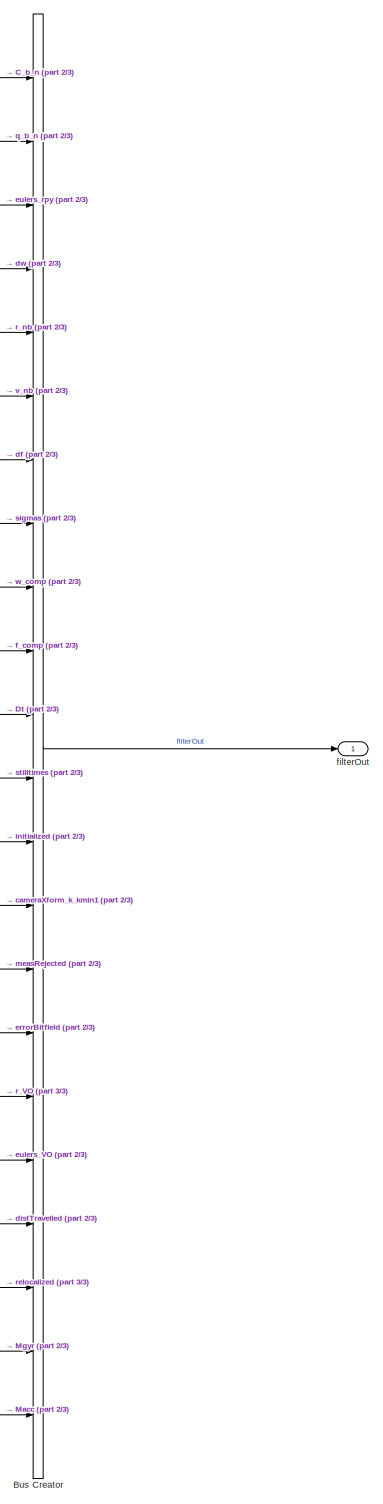
[diagram: reportOutputs - part 1/3, right side, full height]
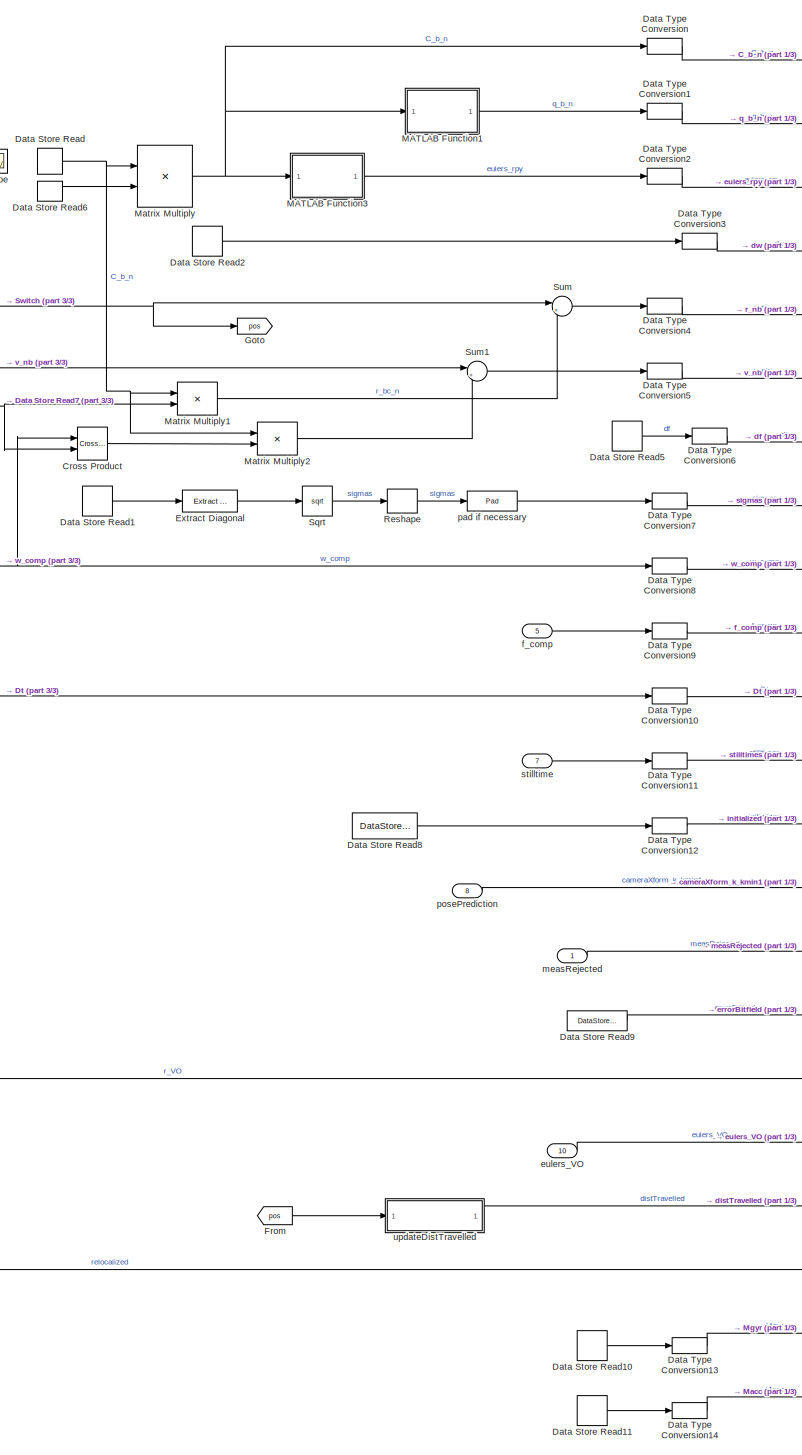
[diagram: reportOutputs - part 2/3, center side, full height]
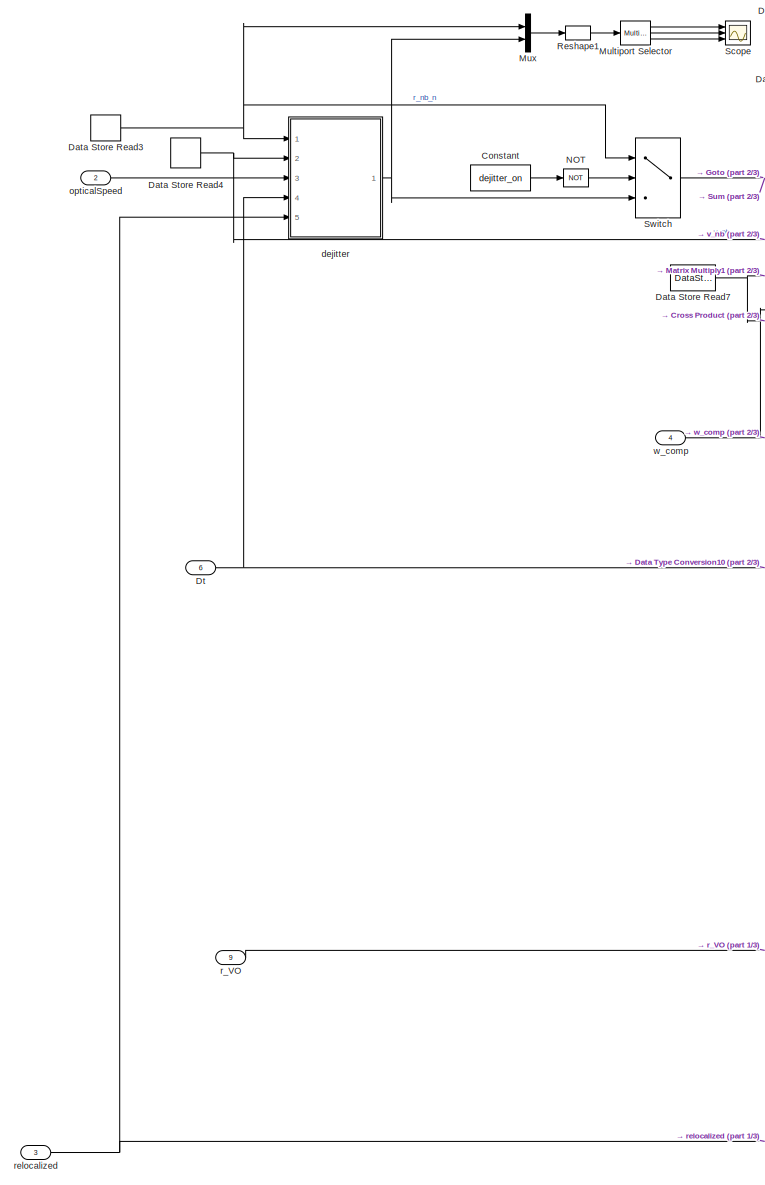
[diagram: reportOutputs - part 3/3, left side, full height]
BLOCK [SubSystem] reportOutputs
  Ports = [10, 1]
  Priority = 2
  RTWFcnNameOpts = Use subsystem name
  RTWSystemCode = Nonreusable function
  RequestExecContextInheritance = off
  TreatAsAtomicUnit = on
BLOCK [BusCreator] reportOutputs/Bus Creator
  DisplayOption = bar
  InheritFromInputs = on
  Inputs = 22
  NonVirtualBus = on
  OutDataTypeStr = Bus: filterOut
  Ports = [22, 1]
BLOCK [Constant] reportOutputs/Constant
  Value = dejitter_on
BLOCK [Reference] reportOutputs/Cross Product  REF=vrlib/Utilities/Cross Product
  Ports = [2, 1]
  SourceBlock = vrlib/Utilities/Cross Product
  SourceProductBaseCode = VR
  SourceProductName = Simulink 3D Animation
  SourceType = Cross Product
BLOCK [DataStoreRead] reportOutputs/Data Store Read
  DataStoreName = Cbn
  Ports = [0, 1]
BLOCK [DataStoreRead] reportOutputs/Data Store Read1
  DataStoreName = Pxx
  Ports = [0, 1]
BLOCK [DataStoreRead] reportOutputs/Data Store Read10
  DataStoreName = Mgyr
  Ports = [0, 1]
BLOCK [DataStoreRead] reportOutputs/Data Store Read11
  DataStoreName = Macc
  Ports = [0, 1]
BLOCK [DataStoreRead] reportOutputs/Data Store Read2
  DataStoreName = dw
  Ports = [0, 1]
BLOCK [DataStoreRead] reportOutputs/Data Store Read3
  DataStoreName = rnav
  Ports = [0, 1]
BLOCK [DataStoreRead] reportOutputs/Data Store Read4
  DataStoreName = vnav
  Ports = [0, 1]
BLOCK [DataStoreRead] reportOutputs/Data Store Read5
  DataStoreName = df
  Ports = [0, 1]
BLOCK [DataStoreRead] reportOutputs/Data Store Read6
  DataStoreName = Ccb
  Ports = [0, 1]
BLOCK [DataStoreRead] reportOutputs/Data Store Read7
  DataStoreName = r_bc_b
  Ports = [0, 1]
BLOCK [DataStoreRead] reportOutputs/Data Store Read8
  DataStoreName = INITIALIZED
  Ports = [0, 1]
  Priority = 2
BLOCK [DataStoreRead] reportOutputs/Data Store Read9
  DataStoreName = errorBitfield
  Ports = [0, 1]
BLOCK [DataTypeConversion] reportOutputs/Data Type Conversion
  RndMeth = Floor
  SaturateOnIntegerOverflow = off
BLOCK [DataTypeConversion] reportOutputs/Data Type Conversion1
  RndMeth = Floor
  SaturateOnIntegerOverflow = off
BLOCK [DataTypeConversion] reportOutputs/Data Type Conversion10
  RndMeth = Floor
  SaturateOnIntegerOverflow = off
BLOCK [DataTypeConversion] reportOutputs/Data Type Conversion11
  RndMeth = Floor
  SaturateOnIntegerOverflow = off
BLOCK [DataTypeConversion] reportOutputs/Data Type Conversion12
  RndMeth = Floor
  SaturateOnIntegerOverflow = off
BLOCK [DataTypeConversion] reportOutputs/Data Type Conversion13
  RndMeth = Floor
  SaturateOnIntegerOverflow = off
BLOCK [DataTypeConversion] reportOutputs/Data Type Conversion14
  RndMeth = Floor
  SaturateOnIntegerOverflow = off
BLOCK [DataTypeConversion] reportOutputs/Data Type Conversion2
  RndMeth = Floor
  SaturateOnIntegerOverflow = off
BLOCK [DataTypeConversion] reportOutputs/Data Type Conversion3
  RndMeth = Floor
  SaturateOnIntegerOverflow = off
BLOCK [DataTypeConversion] reportOutputs/Data Type Conversion4
  RndMeth = Floor
  SaturateOnIntegerOverflow = off
BLOCK [DataTypeConversion] reportOutputs/Data Type Conversion5
  RndMeth = Floor
  SaturateOnIntegerOverflow = off
BLOCK [DataTypeConversion] reportOutputs/Data Type Conversion6
  RndMeth = Floor
  SaturateOnIntegerOverflow = off
BLOCK [DataTypeConversion] reportOutputs/Data Type Conversion7
  RndMeth = Floor
  SaturateOnIntegerOverflow = off
BLOCK [DataTypeConversion] reportOutputs/Data Type Conversion8
  RndMeth = Floor
  SaturateOnIntegerOverflow = off
BLOCK [DataTypeConversion] reportOutputs/Data Type Conversion9
  RndMeth = Floor
  SaturateOnIntegerOverflow = off
BLOCK [Inport] reportOutputs/Dt
  IconDisplay = Port number
  Port = 6
BLOCK [Reference] reportOutputs/Extract Diagonal  REF=dspmtrx3/Extract Diagonal
  Ports = [1, 1]
  SourceBlock = dspmtrx3/Extract Diagonal
  SourceProductBaseCode = DS
  SourceProductName = DSP System Toolbox
  SourceType = Extract Diagonal
BLOCK [From] reportOutputs/From
  GotoTag = pos
BLOCK [Goto] reportOutputs/Goto
  GotoTag = pos
BLOCK [SubSystem] reportOutputs/MATLAB Function1
  ErrorFcn = Stateflow.Translate.translate
  PermitHierarchicalResolution = ExplicitOnly
  Ports = [1, 1]
  RequestExecContextInheritance = off
  SFBlockType = MATLAB Function
  TreatAsAtomicUnit = on
BLOCK [Demux] reportOutputs/MATLAB Function1/ Demux 
  Outputs = 1
  Ports = [1, 1]
BLOCK [S-Function] reportOutputs/MATLAB Function1/ SFunction 
  EnableBusSupport = on
  FunctionName = sf_sfun
  PortCounts = [1 2]
  Ports = [1, 2]
  SFcnIsStateOwnerBlock = off
  SFunctionDeploymentMode = off
  Tag = Stateflow S-Function VINS 16
BLOCK [Terminator] reportOutputs/MATLAB Function1/ Terminator 
BLOCK [Inport] reportOutputs/MATLAB Function1/Cbn
  IconDisplay = Port number
BLOCK [Outport] reportOutputs/MATLAB Function1/quat
  IconDisplay = Port number
BLOCK [SubSystem] reportOutputs/MATLAB Function3
  ErrorFcn = Stateflow.Translate.translate
  PermitHierarchicalResolution = ExplicitOnly
  Ports = [1, 1]
  RequestExecContextInheritance = off
  SFBlockType = MATLAB Function
  TreatAsAtomicUnit = on
BLOCK [Demux] reportOutputs/MATLAB Function3/ Demux 
  Outputs = 1
  Ports = [1, 1]
BLOCK [S-Function] reportOutputs/MATLAB Function3/ SFunction 
  EnableBusSupport = on
  FunctionName = sf_sfun
  PortCounts = [1 2]
  Ports = [1, 2]
  SFcnIsStateOwnerBlock = off
  SFunctionDeploymentMode = off
  Tag = Stateflow S-Function VINS 2
BLOCK [Terminator] reportOutputs/MATLAB Function3/ Terminator 
BLOCK [Inport] reportOutputs/MATLAB Function3/Cbn
  IconDisplay = Port number
BLOCK [Outport] reportOutputs/MATLAB Function3/eul
  IconDisplay = Port number
BLOCK [Product] reportOutputs/Matrix Multiply
  InputSameDT = off
  Multiplication = Matrix(*)
  OutDataTypeStr = Inherit: Inherit via internal rule
  Ports = [2, 1]
  RndMeth = Floor
  SaturateOnIntegerOverflow = off
BLOCK [Product] reportOutputs/Matrix Multiply1
  InputSameDT = off
  Multiplication = Matrix(*)
  OutDataTypeStr = Inherit: Inherit via internal rule
  Ports = [2, 1]
  RndMeth = Floor
  SaturateOnIntegerOverflow = off
BLOCK [Product] reportOutputs/Matrix Multiply2
  InputSameDT = off
  Multiplication = Matrix(*)
  OutDataTypeStr = Inherit: Inherit via internal rule
  Ports = [2, 1]
  RndMeth = Floor
  SaturateOnIntegerOverflow = off
BLOCK [Reference] reportOutputs/Multiport Selector  REF=dspindex/Multiport
Selector
  Ports = [1, 3]
  SourceBlock = dspindex/Multiport\nSelector
  SourceProductBaseCode = DS
  SourceProductName = DSP System Toolbox
  SourceType = Multiport Selector
BLOCK [Mux] reportOutputs/Mux
  DisplayOption = bar
  Inputs = 2
  Ports = [2, 1]
BLOCK [Logic] reportOutputs/NOT
  AllPortsSameDT = off
  IconShape = distinctive
  Operator = NOT
  OutDataTypeStr = boolean
  Ports = [1, 1]
BLOCK [Reshape] reportOutputs/Reshape
  OutputDimensionality = Column vector (2-D)
  Ports = [1, 1]
BLOCK [Reshape] reportOutputs/Reshape1
  OutputDimensionality = Customize
  OutputDimensions = [3,2]
  Ports = [1, 1]
BLOCK [Scope] reportOutputs/Scope
  Floating = off
  NumInputPorts = 3
  Ports = [3]
  ScopeSpecificationString = Simulink.scopes.TimeScopeBlockCfg('CurrentConfiguration', extmgr.ConfigurationSet(extmgr.Configuration('Core','General UI',true),extmgr.Configuration('Core','Source UI',true),extmgr.Configuration('Sources','WiredSimulink',true,'DataLoggingVariableName','ScopeData2'),extmgr.Configuration('Visuals','Time Domain',true,'SerializedDisplays',{struct('MinYLimReal','0.21399','MaxYLimReal','0.29931','YLabe...<+2854ch>
BLOCK [Sqrt] reportOutputs/Sqrt
BLOCK [Sum] reportOutputs/Sum
  IconShape = round
  InputSameDT = off
  Inputs = |++
  OutDataTypeStr = Inherit: Inherit via internal rule
  Ports = [2, 1]
  SaturateOnIntegerOverflow = off
BLOCK [Sum] reportOutputs/Sum1
  IconShape = round
  InputSameDT = off
  Inputs = |++
  OutDataTypeStr = Inherit: Inherit via internal rule
  Ports = [2, 1]
  SaturateOnIntegerOverflow = off
BLOCK [Switch] reportOutputs/Switch
  Criteria = u2 ~= 0
  InputSameDT = off
  SaturateOnIntegerOverflow = off
BLOCK [SubSystem] reportOutputs/dejitter
  Ports = [5, 1]
  RequestExecContextInheritance = off
  TreatAsAtomicUnit = on
BLOCK [Lookup_n-D] reportOutputs/dejitter/1-D Lookup Table
  BreakpointsForDimension1 = [0  0.005 0.01 0.02 0.03 0.04]
  InternalRulePriority = Speed
  NumberOfTableDimensions = 1
  Ports = [1, 1]
  RndMeth = Simplest
  Table = [0    0.02   0.08    0.2       1      1]
BLOCK [Lookup_n-D] reportOutputs/dejitter/1-D Lookup Table1
  BreakpointsForDimension1 = [0  0.05 0.1 0.2 0.3 0.4]
  Commented = on
  InternalRulePriority = Speed
  NumberOfTableDimensions = 1
  Ports = [1, 1]
  RndMeth = Simplest
  Table = [0.002    0.02   0.08    0.2       1      1]*0.1
BLOCK [Inport] reportOutputs/dejitter/Dt
  IconDisplay = Port number
  Port = 4
BLOCK [Gain] reportOutputs/dejitter/Gain
  Gain = 1/2
  OutDataTypeStr = Inherit: Inherit via internal rule
  ParamDataTypeStr = Inherit: Inherit via internal rule
  SaturateOnIntegerOverflow = off
BLOCK [Gain] reportOutputs/dejitter/Gain1
  Gain = 0.1
  OutDataTypeStr = Inherit: Inherit via internal rule
  ParamDataTypeStr = Inherit: Inherit via internal rule
  SaturateOnIntegerOverflow = off
BLOCK [Math] reportOutputs/dejitter/Math Function
  Operator = square
  Ports = [1, 1]
BLOCK [Math] reportOutputs/dejitter/Math Function1
  Operator = square
  Ports = [1, 1]
BLOCK [MinMax] reportOutputs/dejitter/MinMax
  Function = max
  InputSameDT = off
  Inputs = 2
  Ports = [2, 1]
  SaturateOnIntegerOverflow = off
BLOCK [Product] reportOutputs/dejitter/Product
  InputSameDT = off
  OutDataTypeStr = Inherit: Inherit via internal rule
  Ports = [2, 1]
  RndMeth = Floor
  SaturateOnIntegerOverflow = off
BLOCK [Product] reportOutputs/dejitter/Product1
  InputSameDT = off
  OutDataTypeStr = Inherit: Inherit via internal rule
  Ports = [2, 1]
  RndMeth = Floor
  SaturateOnIntegerOverflow = off
BLOCK [Product] reportOutputs/dejitter/Product2
  InputSameDT = off
  OutDataTypeStr = Inherit: Inherit via internal rule
  Ports = [2, 1]
  RndMeth = Floor
  SaturateOnIntegerOverflow = off
BLOCK [Scope] reportOutputs/dejitter/Scope1
  Floating = off
  NumInputPorts = 2
  Ports = [2]
  ScopeSpecificationString = Simulink.scopes.TimeScopeBlockCfg('CurrentConfiguration', extmgr.ConfigurationSet(extmgr.Configuration('Core','General UI',true),extmgr.Configuration('Core','Source UI',true),extmgr.Configuration('Sources','WiredSimulink',true,'DataLoggingVariableName','ScopeData2'),extmgr.Configuration('Visuals','Time Domain',true,'SerializedDisplays',{struct('MinYLimReal','-0.01752','MaxYLimReal','0.02327','YLab...<+1457ch>
BLOCK [Scope] reportOutputs/dejitter/Scope2
  Floating = off
  NumInputPorts = 1
  Ports = [1]
  ScopeSpecificationString = Simulink.scopes.TimeScopeBlockCfg('CurrentConfiguration', extmgr.ConfigurationSet(extmgr.Configuration('Core','General UI',true),extmgr.Configuration('Core','Source UI',true),extmgr.Configuration('Sources','WiredSimulink',true,'DataLoggingVariableName','ScopeData1'),extmgr.Configuration('Visuals','Time Domain',true,'SerializedDisplays',{struct('MinYLimReal','-0.00431','MaxYLimReal','0.01637','YLab...<+1440ch>
BLOCK [Scope] reportOutputs/dejitter/Scope3
  Floating = off
  NumInputPorts = 1
  Ports = [1]
  ScopeSpecificationString = Simulink.scopes.TimeScopeBlockCfg('CurrentConfiguration', extmgr.ConfigurationSet(extmgr.Configuration('Core','General UI',true),extmgr.Configuration('Core','Source UI',true),extmgr.Configuration('Sources','WiredSimulink',true,'DataLoggingVariableName','ScopeData7'),extmgr.Configuration('Visuals','Time Domain',true,'SerializedDisplays',{struct('MinYLimReal','-0.0098','MaxYLimReal','0.08822','YLabe...<+1445ch>
BLOCK [Sqrt] reportOutputs/dejitter/Sqrt
BLOCK [Sqrt] reportOutputs/dejitter/Sqrt1
BLOCK [Sum] reportOutputs/dejitter/Sum
  IconShape = round
  InputSameDT = off
  Inputs = |++
  OutDataTypeStr = Inherit: Inherit via internal rule
  Ports = [2, 1]
  SaturateOnIntegerOverflow = off
BLOCK [Sum] reportOutputs/dejitter/Sum1
  IconShape = round
  InputSameDT = off
  OutDataTypeStr = Inherit: Inherit via internal rule
  Ports = [2, 1]
  SaturateOnIntegerOverflow = off
BLOCK [Sum] reportOutputs/dejitter/Sum2
  IconShape = round
  InputSameDT = off
  Inputs = |+-
  OutDataTypeStr = Inherit: Inherit via internal rule
  Ports = [2, 1]
  SaturateOnIntegerOverflow = off
BLOCK [Sum] reportOutputs/dejitter/Sum3
  IconShape = round
  InputSameDT = off
  Inputs = |++
  OutDataTypeStr = Inherit: Inherit via internal rule
  Ports = [2, 1]
  SaturateOnIntegerOverflow = off
BLOCK [Sum] reportOutputs/dejitter/Sum4
  IconShape = round
  InputSameDT = off
  Inputs = +
  OutDataTypeStr = Inherit: Inherit via internal rule
  Ports = [1, 1]
  SaturateOnIntegerOverflow = off
BLOCK [Sum] reportOutputs/dejitter/Sum5
  IconShape = round
  InputSameDT = off
  Inputs = +
  OutDataTypeStr = Inherit: Inherit via internal rule
  Ports = [1, 1]
  SaturateOnIntegerOverflow = off
BLOCK [Delay] reportOutputs/dejitter/midpoint velocity
  DelayLength = 1
  InitialConditionSource = Input port
  InputPortMap = u0,p4
  Ports = [2, 1]
BLOCK [Inport] reportOutputs/dejitter/opticalSpeed
  IconDisplay = Port number
  Port = 3
BLOCK [Delay] reportOutputs/dejitter/position integrator
  DelayLength = 1
  ExternalReset = Level
  InitialConditionSource = Input port
  InputPortMap = u0,r5,p4
  Ports = [3, 1]
BLOCK [Outport] reportOutputs/dejitter/r_clean
  IconDisplay = Port number
BLOCK [Inport] reportOutputs/dejitter/r_jit
  IconDisplay = Port number
BLOCK [Inport] reportOutputs/dejitter/reloc
  IconDisplay = Port number
  Port = 5
BLOCK [Inport] reportOutputs/dejitter/v
  IconDisplay = Port number
  Port = 2
BLOCK [Inport] reportOutputs/eulers_VO
  IconDisplay = Port number
  Port = 10
BLOCK [Inport] reportOutputs/f_comp
  IconDisplay = Port number
  Port = 5
BLOCK [Outport] reportOutputs/filterOut
  IconDisplay = Port number
  OutDataTypeStr = Bus: filterOut
BLOCK [Inport] reportOutputs/measRejected
  IconDisplay = Port number
BLOCK [Inport] reportOutputs/opticalSpeed
  IconDisplay = Port number
  Port = 2
BLOCK [Reference] reportOutputs/pad if necessary  REF=dspsigops/Pad
  Ports = [1, 1]
  SourceBlock = dspsigops/Pad
  SourceProductBaseCode = DS
  SourceProductName = DSP System Toolbox
  SourceType = Pad
BLOCK [Inport] reportOutputs/posePrediction
  IconDisplay = Port number
  Port = 8
BLOCK [Inport] reportOutputs/r_VO
  IconDisplay = Port number
  Port = 9
BLOCK [Inport] reportOutputs/relocalized
  IconDisplay = Port number
  Port = 3
BLOCK [Inport] reportOutputs/stilltime
  IconDisplay = Port number
  Port = 7
BLOCK [SubSystem] reportOutputs/updateDistTravelled
  Ports = [1, 1]
  RequestExecContextInheritance = off
  TreatAsAtomicUnit = on
BLOCK [Reference] reportOutputs/updateDistTravelled/Compare To Constant  REF=simulink/Logic and Bit
Operations/Compare
To Constant
  Ports = [1, 1]
  SourceBlock = simulink/Logic and Bit\nOperations/Compare\nTo Constant
  SourceProductBaseCode = SL
  SourceProductName = Simulink
  SourceType = Compare To Constant
BLOCK [Reference] reportOutputs/updateDistTravelled/Compare To Zero  REF=simulink/Logic and Bit
Operations/Compare
To Zero
  Ports = [1, 1]
  SourceBlock = simulink/Logic and Bit\nOperations/Compare\nTo Zero
  SourceProductBaseCode = SL
  SourceProductName = Simulink
  SourceType = Compare To Zero
BLOCK [DataStoreRead] reportOutputs/updateDistTravelled/Data Store Read
  DataStoreName = distTravelled
  Ports = [0, 1]
BLOCK [Logic] reportOutputs/updateDistTravelled/Logical Operator
  AllPortsSameDT = off
  Operator = OR
  OutDataTypeStr = boolean
  Ports = [2, 1]
BLOCK [Math] reportOutputs/updateDistTravelled/Math Function
  Operator = square
  Ports = [1, 1]
BLOCK [Sqrt] reportOutputs/updateDistTravelled/Sqrt
BLOCK [Sum] reportOutputs/updateDistTravelled/Sum2
  IconShape = round
  InputSameDT = off
  Inputs = |+-
  OutDataTypeStr = Inherit: Inherit via internal rule
  Ports = [2, 1]
  SaturateOnIntegerOverflow = off
BLOCK [Sum] reportOutputs/updateDistTravelled/Sum4
  IconShape = round
  InputSameDT = off
  Inputs = +
  OutDataTypeStr = Inherit: Inherit via internal rule
  Ports = [1, 1]
  SaturateOnIntegerOverflow = off
BLOCK [UnitDelay] reportOutputs/updateDistTravelled/Unit Delay
  InputProcessing = Elements as channels (sample based)
  SampleTime = -1
BLOCK [Outport] reportOutputs/updateDistTravelled/distTravelled
  IconDisplay = Port number
BLOCK [SubSystem] reportOutputs/updateDistTravelled/increment distTravelled
  Ports = [1, 1, 1]
  RequestExecContextInheritance = off
  TreatAsAtomicUnit = on
BLOCK [DataStoreRead] reportOutputs/updateDistTravelled/increment distTravelled/Data Store Read
  DataStoreName = distTravelled
  Ports = [0, 1]
BLOCK [DataStoreWrite] reportOutputs/updateDistTravelled/increment distTravelled/Data Store Write
  DataStoreName = distTravelled
  Ports = [1]
BLOCK [EnablePort] reportOutputs/updateDistTravelled/increment distTravelled/Enable
  Ports = []
BLOCK [Sum] reportOutputs/updateDistTravelled/increment distTravelled/Sum
  IconShape = round
  InputSameDT = off
  Inputs = |++
  OutDataTypeStr = Inherit: Inherit via internal rule
  Ports = [2, 1]
  SaturateOnIntegerOverflow = off
BLOCK [Inport] reportOutputs/updateDistTravelled/increment distTravelled/deltaPos
  IconDisplay = Port number
BLOCK [Outport] reportOutputs/updateDistTravelled/increment distTravelled/distTravelled
  IconDisplay = Port number
  InitialOutput = 0
BLOCK [SubSystem] reportOutputs/updateDistTravelled/latch
  Ports = [1, 1, 1]
  RequestExecContextInheritance = off
  TreatAsAtomicUnit = on
BLOCK [EnablePort] reportOutputs/updateDistTravelled/latch/Enable
  Ports = []
BLOCK [Inport] reportOutputs/updateDistTravelled/latch/In1
  IconDisplay = Port number
BLOCK [Outport] reportOutputs/updateDistTravelled/latch/Out1
  IconDisplay = Port number
  InitialOutput = 0
BLOCK [Inport] reportOutputs/updateDistTravelled/pos
  IconDisplay = Port number
BLOCK [Reference] reportOutputs/updateDistTravelled/reset occured  REF=simulink/Logic and Bit
Operations/Detect Rise
Positive
  Ports = [1, 1]
  SourceBlock = simulink/Logic and Bit\nOperations/Detect Rise\nPositive
  SourceProductBaseCode = SL
  SourceProductName = Simulink
  SourceType = Detect Rise Positive
BLOCK [Inport] reportOutputs/w_comp
  IconDisplay = Port number
  Port = 4
BLOCK [SubSystem] sensorCompensation
  Ports = [3, 3]
  RTWFcnNameOpts = Use subsystem name
  RTWSystemCode = Nonreusable function
  RequestExecContextInheritance = off
  TreatAsAtomicUnit = on
BLOCK [Reference] sensorCompensation/Compare To Constant  REF=simulink/Logic and Bit
Operations/Compare
To Constant
  Ports = [1, 1]
  SourceBlock = simulink/Logic and Bit\nOperations/Compare\nTo Constant
  SourceProductBaseCode = SL
  SourceProductName = Simulink
  SourceType = Compare To Constant
BLOCK [Reference] sensorCompensation/Compare To Constant1  REF=simulink/Logic and Bit
Operations/Compare
To Constant
  Ports = [1, 1]
  SourceBlock = simulink/Logic and Bit\nOperations/Compare\nTo Constant
  SourceProductBaseCode = SL
  SourceProductName = Simulink
  SourceType = Compare To Constant
BLOCK [SubSystem] sensorCompensation/DT police
  Ports = [1]
  RequestExecContextInheritance = off
  TreatAsAtomicUnit = on
BLOCK [DataStoreRead] sensorCompensation/DT police/Data Store Read
  DataStoreName = DataTypeRef
  Ports = [0, 1]
BLOCK [DataTypeDuplicate] sensorCompensation/DT police/Data Type Duplicate
  Ports = [2]
BLOCK [Inport] sensorCompensation/DT police/In1
  IconDisplay = Port number
BLOCK [SubSystem] sensorCompensation/DT police1
  Ports = [1]
  RequestExecContextInheritance = off
  TreatAsAtomicUnit = on
BLOCK [DataStoreRead] sensorCompensation/DT police1/Data Store Read
  DataStoreName = DataTypeRef
  Ports = [0, 1]
BLOCK [DataTypeDuplicate] sensorCompensation/DT police1/Data Type Duplicate
  Ports = [2]
BLOCK [Inport] sensorCompensation/DT police1/In1
  IconDisplay = Port number
BLOCK [DataStoreRead] sensorCompensation/Data Store Read
  DataStoreName = IplusMinv_gyr
  Ports = [0, 1]
BLOCK [DataStoreRead] sensorCompensation/Data Store Read1
  DataStoreName = dw
  Ports = [0, 1]
BLOCK [DataStoreRead] sensorCompensation/Data Store Read2
  DataStoreName = IplusMinv_acc
  Ports = [0, 1]
BLOCK [DataStoreRead] sensorCompensation/Data Store Read3
  DataStoreName = df
  Ports = [0, 1]
BLOCK [DataStoreRead] sensorCompensation/Data Store Read4
  DataStoreName = Ggyr
  Ports = [0, 1]
BLOCK [Inport] sensorCompensation/Dt
  IconDisplay = Port number
  Port = 3
  Unit = rad/s
BLOCK [Outport] sensorCompensation/DtOut
  IconDisplay = Port number
  Port = 3
BLOCK [Logic] sensorCompensation/Logical Operator
  AllPortsSameDT = off
  Operator = OR
  OutDataTypeStr = boolean
  Ports = [2, 1]
BLOCK [Reference] sensorCompensation/Mean  REF=dspstat3/Mean
  Ports = [1, 1]
  SourceBlock = dspstat3/Mean
  SourceProductBaseCode = DS
  SourceProductName = DSP System Toolbox
  SourceType = Mean
  UserDataPersistent = on
BLOCK [Product] sensorCompensation/Product
  InputSameDT = off
  Multiplication = Matrix(*)
  OutDataTypeStr = Inherit: Inherit via internal rule
  Ports = [2, 1]
  RndMeth = Floor
  SaturateOnIntegerOverflow = off
BLOCK [Product] sensorCompensation/Product1
  InputSameDT = off
  Multiplication = Matrix(*)
  OutDataTypeStr = Inherit: Inherit via internal rule
  Ports = [2, 1]
  RndMeth = Floor
  SaturateOnIntegerOverflow = off
BLOCK [Product] sensorCompensation/Product2
  InputSameDT = off
  Multiplication = Matrix(*)
  OutDataTypeStr = Inherit: Inherit via internal rule
  Ports = [2, 1]
  RndMeth = Floor
  SaturateOnIntegerOverflow = off
BLOCK [Saturate] sensorCompensation/Saturation
  InputPortMap = u0
  LowerLimit = 0
  Ports = [1, 1]
BLOCK [Scope] sensorCompensation/Scope
  Floating = off
  NumInputPorts = 1
  Ports = [1]
  ScopeSpecificationString = Simulink.scopes.TimeScopeBlockCfg('CurrentConfiguration', extmgr.ConfigurationSet(extmgr.Configuration('Core','General UI',true),extmgr.Configuration('Core','Source UI',true),extmgr.Configuration('Sources','WiredSimulink',true,'DataLoggingVariableName','ScopeData8'),extmgr.Configuration('Visuals','Time Domain',true,'SerializedDisplays',{struct('MinYLimReal','-0.03645','MaxYLimReal','0.04073','YLab...<+1436ch>
BLOCK [Scope] sensorCompensation/Scope1
  Floating = off
  NumInputPorts = 1
  Ports = [1]
  ScopeSpecificationString = Simulink.scopes.TimeScopeBlockCfg('CurrentConfiguration', extmgr.ConfigurationSet(extmgr.Configuration('Core','General UI',true),extmgr.Configuration('Core','Source UI',true),extmgr.Configuration('Sources','WiredSimulink',true,'DataLoggingVariableName','ScopeData9'),extmgr.Configuration('Visuals','Time Domain',true,'SerializedDisplays',{struct('MinYLimReal','-8.18202','MaxYLimReal','14.22619','YLa...<+1443ch>
BLOCK [Scope] sensorCompensation/Scope5
  Floating = off
  NumInputPorts = 1
  Ports = [1]
  ScopeSpecificationString = Simulink.scopes.TimeScopeBlockCfg('CurrentConfiguration', extmgr.ConfigurationSet(extmgr.Configuration('Core','General UI',true),extmgr.Configuration('Core','Source UI',true),extmgr.Configuration('Sources','WiredSimulink',true,'DataLoggingVariableName','ScopeData1'),extmgr.Configuration('Visuals','Time Domain',true,'SerializedDisplays',{struct('MinYLimReal','-0.00025','MaxYLimReal','0.00225','YLab...<+1407ch>
BLOCK [Sum] sensorCompensation/Sum
  IconShape = round
  InputSameDT = off
  Inputs = |+-
  OutDataTypeStr = Inherit: Inherit via internal rule
  Ports = [2, 1]
  SaturateOnIntegerOverflow = off
BLOCK [Sum] sensorCompensation/Sum1
  IconShape = round
  InputSameDT = off
  Inputs = |+-
  OutDataTypeStr = Inherit: Inherit via internal rule
  Ports = [2, 1]
  SaturateOnIntegerOverflow = off
BLOCK [Sum] sensorCompensation/Sum2
  IconShape = round
  InputSameDT = off
  Inputs = |+-
  OutDataTypeStr = Inherit: Inherit via internal rule
  Ports = [2, 1]
  SaturateOnIntegerOverflow = off
BLOCK [SubSystem] sensorCompensation/detectAccelSaturation
  Ports = [1]
  RequestExecContextInheritance = off
  TreatAsAtomicUnit = on
BLOCK [Abs] sensorCompensation/detectAccelSaturation/Abs
  SaturateOnIntegerOverflow = off
BLOCK [Abs] sensorCompensation/detectAccelSaturation/Abs1
  SaturateOnIntegerOverflow = off
BLOCK [Abs] sensorCompensation/detectAccelSaturation/Abs2
  SaturateOnIntegerOverflow = off
BLOCK [Reference] sensorCompensation/detectAccelSaturation/Compare To Constant  REF=simulink/Logic and Bit
Operations/Compare
To Constant
  Ports = [1, 1]
  SourceBlock = simulink/Logic and Bit\nOperations/Compare\nTo Constant
  SourceProductBaseCode = SL
  SourceProductName = Simulink
  SourceType = Compare To Constant
BLOCK [Reference] sensorCompensation/detectAccelSaturation/Compare To Constant1  REF=simulink/Logic and Bit
Operations/Compare
To Constant
  Ports = [1, 1]
  SourceBlock = simulink/Logic and Bit\nOperations/Compare\nTo Constant
  SourceProductBaseCode = SL
  SourceProductName = Simulink
  SourceType = Compare To Constant
BLOCK [Reference] sensorCompensation/detectAccelSaturation/Compare To Constant2  REF=simulink/Logic and Bit
Operations/Compare
To Constant
  Ports = [1, 1]
  SourceBlock = simulink/Logic and Bit\nOperations/Compare\nTo Constant
  SourceProductBaseCode = SL
  SourceProductName = Simulink
  SourceType = Compare To Constant
BLOCK [Inport] sensorCompensation/detectAccelSaturation/In1
  IconDisplay = Port number
BLOCK [Logic] sensorCompensation/detectAccelSaturation/Logical Operator
  AllPortsSameDT = off
  Inputs = 3
  OutDataTypeStr = boolean
  Ports = [3, 1]
BLOCK [Logic] sensorCompensation/detectAccelSaturation/Logical Operator1
  AllPortsSameDT = off
  Inputs = 1
  Operator = OR
  OutDataTypeStr = boolean
  Ports = [1, 1]
BLOCK [Logic] sensorCompensation/detectAccelSaturation/Logical Operator2
  AllPortsSameDT = off
  OutDataTypeStr = boolean
  Ports = [2, 1]
BLOCK [Logic] sensorCompensation/detectAccelSaturation/Logical Operator3
  AllPortsSameDT = off
  OutDataTypeStr = boolean
  Ports = [2, 1]
BLOCK [Scope] sensorCompensation/detectAccelSaturation/Scope
  Floating = off
  NumInputPorts = 1
  Ports = [1]
  ScopeSpecificationString = Simulink.scopes.TimeScopeBlockCfg('CurrentConfiguration', extmgr.ConfigurationSet(extmgr.Configuration('Core','General UI',true),extmgr.Configuration('Core','Source UI',true),extmgr.Configuration('Sources','WiredSimulink',true,'DataLoggingVariableName','ScopeData5'),extmgr.Configuration('Visuals','Time Domain',true,'SerializedDisplays',{struct('MinYLimReal','-1.00000','MaxYLimReal','1.00000','YLab...<+1444ch>
BLOCK [Scope] sensorCompensation/detectAccelSaturation/Scope1
  Floating = off
  NumInputPorts = 1
  Ports = [1]
  ScopeSpecificationString = Simulink.scopes.TimeScopeBlockCfg('CurrentConfiguration', extmgr.ConfigurationSet(extmgr.Configuration('Core','General UI',true),extmgr.Configuration('Core','Source UI',true),extmgr.Configuration('Sources','WiredSimulink',true,'DataLoggingVariableName','ScopeData6'),extmgr.Configuration('Visuals','Time Domain',true),extmgr.Configuration('Tools','Plot Navigation',true),extmgr.Configuration('Tools',...<+40ch>
BLOCK [Scope] sensorCompensation/detectAccelSaturation/Scope2
  Floating = off
  NumInputPorts = 1
  Ports = [1]
  ScopeSpecificationString = Simulink.scopes.TimeScopeBlockCfg('CurrentConfiguration', extmgr.ConfigurationSet(extmgr.Configuration('Core','General UI',true),extmgr.Configuration('Core','Source UI',true),extmgr.Configuration('Sources','WiredSimulink',true,'DataLoggingVariableName','ScopeData7'),extmgr.Configuration('Visuals','Time Domain',true,'SerializedDisplays',{struct('MinYLimReal','-0.125','MaxYLimReal','1.125','YLabelRe...<+1437ch>
BLOCK [Sum] sensorCompensation/detectAccelSaturation/Sum1
  IconShape = round
  InputSameDT = off
  Inputs = +-|
  OutDataTypeStr = Inherit: Inherit via internal rule
  Ports = [2, 1]
  SaturateOnIntegerOverflow = off
BLOCK [Sum] sensorCompensation/detectAccelSaturation/Sum2
  IconShape = round
  InputSameDT = off
  Inputs = +-|
  OutDataTypeStr = Inherit: Inherit via internal rule
  Ports = [2, 1]
  SaturateOnIntegerOverflow = off
BLOCK [UnitDelay] sensorCompensation/detectAccelSaturation/Unit Delay
  InputProcessing = Elements as channels (sample based)
  SampleTime = -1
BLOCK [UnitDelay] sensorCompensation/detectAccelSaturation/Unit Delay1
  InputProcessing = Elements as channels (sample based)
  SampleTime = -1
BLOCK [UnitDelay] sensorCompensation/detectAccelSaturation/Unit Delay2
  InputProcessing = Elements as channels (sample based)
  SampleTime = -1
BLOCK [UnitDelay] sensorCompensation/detectAccelSaturation/Unit Delay3
  InputProcessing = Elements as channels (sample based)
  SampleTime = -1
BLOCK [SubSystem] sensorCompensation/detectAccelSaturation/set 0x01 bit
  Ports = [0, 0, 1]
  RequestExecContextInheritance = off
  TreatAsAtomicUnit = on
BLOCK [Assertion] sensorCompensation/detectAccelSaturation/set 0x01 bit/Assertion
  AssertionFailFcn = disp('accel_clip'); beep;
  StopWhenAssertionFail = off
BLOCK [Reference] sensorCompensation/detectAccelSaturation/set 0x01 bit/Bit Set  REF=simulink/Logic and Bit
Operations/Bit Set
  Ports = [1, 1]
  SourceBlock = simulink/Logic and Bit\nOperations/Bit Set
  SourceProductBaseCode = SL
  SourceProductName = Simulink
  SourceType = Bit Set
BLOCK [Constant] sensorCompensation/detectAccelSaturation/set 0x01 bit/Constant
  Value = false
BLOCK [DataStoreRead] sensorCompensation/detectAccelSaturation/set 0x01 bit/Data Store Read
  DataStoreName = errorBitfield
  Ports = [0, 1]
BLOCK [DataStoreWrite] sensorCompensation/detectAccelSaturation/set 0x01 bit/Data Store Write
  DataStoreName = errorBitfield
  Ports = [1]
BLOCK [EnablePort] sensorCompensation/detectAccelSaturation/set 0x01 bit/Enable
  Ports = []
BLOCK [SubSystem] sensorCompensation/detectGyroSaturation
  Ports = [1]
  RequestExecContextInheritance = off
  TreatAsAtomicUnit = on
BLOCK [Abs] sensorCompensation/detectGyroSaturation/Abs
  SaturateOnIntegerOverflow = off
BLOCK [Reference] sensorCompensation/detectGyroSaturation/Compare To Constant  REF=simulink/Logic and Bit
Operations/Compare
To Constant
  Ports = [1, 1]
  SourceBlock = simulink/Logic and Bit\nOperations/Compare\nTo Constant
  SourceProductBaseCode = SL
  SourceProductName = Simulink
  SourceType = Compare To Constant
BLOCK [Inport] sensorCompensation/detectGyroSaturation/In1
  IconDisplay = Port number
BLOCK [Logic] sensorCompensation/detectGyroSaturation/Logical Operator
  AllPortsSameDT = off
  Inputs = 3
  OutDataTypeStr = boolean
  Ports = [3, 1]
BLOCK [Logic] sensorCompensation/detectGyroSaturation/Logical Operator1
  AllPortsSameDT = off
  Inputs = 1
  Operator = OR
  OutDataTypeStr = boolean
  Ports = [1, 1]
BLOCK [UnitDelay] sensorCompensation/detectGyroSaturation/Unit Delay
  InputProcessing = Elements as channels (sample based)
  SampleTime = -1
BLOCK [UnitDelay] sensorCompensation/detectGyroSaturation/Unit Delay1
  InputProcessing = Elements as channels (sample based)
  SampleTime = -1
BLOCK [SubSystem] sensorCompensation/detectGyroSaturation/set 0x02 bit
  Ports = [0, 0, 1]
  RequestExecContextInheritance = off
  TreatAsAtomicUnit = on
BLOCK [Assertion] sensorCompensation/detectGyroSaturation/set 0x02 bit/Assertion
BLOCK [Reference] sensorCompensation/detectGyroSaturation/set 0x02 bit/Bit Set  REF=simulink/Logic and Bit
Operations/Bit Set
  Ports = [1, 1]
  SourceBlock = simulink/Logic and Bit\nOperations/Bit Set
  SourceProductBaseCode = SL
  SourceProductName = Simulink
  SourceType = Bit Set
BLOCK [Constant] sensorCompensation/detectGyroSaturation/set 0x02 bit/Constant
  Value = false
BLOCK [DataStoreRead] sensorCompensation/detectGyroSaturation/set 0x02 bit/Data Store Read
  DataStoreName = errorBitfield
  Ports = [0, 1]
BLOCK [DataStoreWrite] sensorCompensation/detectGyroSaturation/set 0x02 bit/Data Store Write
  DataStoreName = errorBitfield
  Ports = [1]
BLOCK [EnablePort] sensorCompensation/detectGyroSaturation/set 0x02 bit/Enable
  Ports = []
BLOCK [Outport] sensorCompensation/f_comp
  IconDisplay = Port number
  Port = 2
BLOCK [Inport] sensorCompensation/f_ib^b
  IconDisplay = Port number
  Port = 2
  PortDimensions = 3
  Unit = m/s^2
BLOCK [SubSystem] sensorCompensation/set 0x04 bit
  Ports = [0, 0, 1]
  RequestExecContextInheritance = off
  TreatAsAtomicUnit = on
BLOCK [Assertion] sensorCompensation/set 0x04 bit/Assertion
  StopWhenAssertionFail = off
BLOCK [Reference] sensorCompensation/set 0x04 bit/Bit Set  REF=simulink/Logic and Bit
Operations/Bit Set
  Ports = [1, 1]
  SourceBlock = simulink/Logic and Bit\nOperations/Bit Set
  SourceProductBaseCode = SL
  SourceProductName = Simulink
  SourceType = Bit Set
BLOCK [Constant] sensorCompensation/set 0x04 bit/Constant
  Value = false
BLOCK [DataStoreRead] sensorCompensation/set 0x04 bit/Data Store Read
  DataStoreName = errorBitfield
  Ports = [0, 1]
BLOCK [DataStoreWrite] sensorCompensation/set 0x04 bit/Data Store Write
  DataStoreName = errorBitfield
  Ports = [1]
BLOCK [EnablePort] sensorCompensation/set 0x04 bit/Enable
  Ports = []
BLOCK [Outport] sensorCompensation/w_comp
  IconDisplay = Port number
BLOCK [Inport] sensorCompensation/w_ib^b
  IconDisplay = Port number
  Unit = rad/s
BLOCK [DataStoreMemory] set to single or double to control entire model
  DataStoreName = DataTypeRef
  OutDataTypeStr = single
  ReadBeforeWriteMsg = warning
  ShowAdditionalParam = off
  WriteAfterReadMsg = warning
  WriteAfterWriteMsg = warning
BLOCK [SubSystem] setup1
  OpenFcn = set_param(bdroot,'TargetLang','C');                 \nset_param(bdroot, 'TargetLangStandard', 'C89/C90 (ANSI)', 'CodeReplacementLibrary','None');\ndlg = get_param(bdroot, 'SimPrmDialog');            \nif isa(dlg, 'DAStudio.Dialog')                      \n            dlg.refresh;                            \nend; clear dlg;
  PermitHierarchicalResolution = ExplicitOnly
  Ports = []
  RequestExecContextInheritance = off
BLOCK [SubSystem] setup2
  OpenFcn = set_param(bdroot,'TargetLang','C');                \nset_param(bdroot, 'TargetLangStandard', 'C99 (ISO)', 'CodeReplacementLibrary','None');\ndlg = get_param(bdroot, 'SimPrmDialog');           \nif isa(dlg, 'DAStudio.Dialog')                     \n            dlg.refresh;                           \nend; clear dlg;
  PermitHierarchicalResolution = ExplicitOnly
  Ports = []
  RequestExecContextInheritance = off
BLOCK [SubSystem] setup3
  OpenFcn = set_param(bdroot, 'TargetLang', 'C++');                \nset_param(bdroot, 'TargetLangStandard', 'C++03 (ISO)', 'CodeReplacementLibrary','None');\nset_param(bdroot, 'GenerateCodeMetricsReport','Off'); % not supported with C++\ndlg = get_param(bdroot, 'SimPrmDialog');               \nif isa(dlg, 'DAStudio.Dialog')                         \n            dlg.refresh;                               \nend; cle...<+7ch>
  PermitHierarchicalResolution = ExplicitOnly
  Ports = []
  RequestExecContextInheritance = off
BLOCK [SubSystem] stilltimes
  Ports = [3, 3]
  RTWFcnNameOpts = Use subsystem name
  RTWSystemCode = Nonreusable function
  RequestExecContextInheritance = off
  TreatAsAtomicUnit = on
BLOCK [Constant] stilltimes/Constant
  Value = 0.0032
BLOCK [Constant] stilltimes/Constant1
  Value = 0.035
BLOCK [Constant] stilltimes/Constant2
  OutDataTypeStr = Inherit: Inherit via back propagation
  Value = 0.013 * 3
BLOCK [Constant] stilltimes/Constant3
  OutDataTypeStr = Inherit: Inherit via back propagation
  Value = 0.2 * 3
BLOCK [SubSystem] stilltimes/DT police
  Ports = [1]
  RequestExecContextInheritance = off
  TreatAsAtomicUnit = on
BLOCK [DataStoreRead] stilltimes/DT police/Data Store Read
  DataStoreName = DataTypeRef
  Ports = [0, 1]
BLOCK [DataTypeDuplicate] stilltimes/DT police/Data Type Duplicate
  Ports = [2]
BLOCK [Inport] stilltimes/DT police/In1
  IconDisplay = Port number
BLOCK [SubSystem] stilltimes/DT police1
  Ports = [1]
  RequestExecContextInheritance = off
  TreatAsAtomicUnit = on
BLOCK [DataStoreRead] stilltimes/DT police1/Data Store Read
  DataStoreName = DataTypeRef
  Ports = [0, 1]
BLOCK [DataTypeDuplicate] stilltimes/DT police1/Data Type Duplicate
  Ports = [2]
BLOCK [Inport] stilltimes/DT police1/In1
  IconDisplay = Port number
BLOCK [Inport] stilltimes/Dt
  IconDisplay = Port number
  Port = 3
BLOCK [Reference] stilltimes/Moving Average  REF=dspstat3/Moving
Average
  Ports = [1, 1]
  SourceBlock = dspstat3/Moving\nAverage
  SourceProductBaseCode = DS
  SourceProductName = DSP System Toolbox
  SourceType = dsp.simulink.MovingAverage
BLOCK [Mux] stilltimes/Mux
  DisplayOption = bar
  Inputs = 2
  Ports = [2, 1]
BLOCK [Reshape] stilltimes/Reshape
  OutputDimensionality = Row vector (2-D)
  Ports = [1, 1]
BLOCK [Scope] stilltimes/Scope6
  Floating = off
  NumInputPorts = 1
  Ports = [1]
  ScopeSpecificationString = Simulink.scopes.TimeScopeBlockCfg('CurrentConfiguration', extmgr.ConfigurationSet(extmgr.Configuration('Core','General UI',true),extmgr.Configuration('Core','Source UI',true),extmgr.Configuration('Sources','WiredSimulink',true,'DataLoggingVariableName','ScopeData5'),extmgr.Configuration('Visuals','Time Domain',true,'SerializedDisplays',{struct('MinYLimReal','-0.00366','MaxYLimReal','0.00169','YLab...<+1485ch>
BLOCK [Inport] stilltimes/f
  IconDisplay = Port number
  Port = 2
BLOCK [Outport] stilltimes/favgs
  IconDisplay = Port number
  Port = 2
BLOCK [Outport] stilltimes/stilltimes
  IconDisplay = Port number
BLOCK [SubSystem] stilltimes/updateStilltimeLoose
  ErrorFcn = Stateflow.Translate.translate
  PermitHierarchicalResolution = ExplicitOnly
  Ports = [5, 3]
  RequestExecContextInheritance = off
  SFBlockType = MATLAB Function
  TreatAsAtomicUnit = on
BLOCK [Demux] stilltimes/updateStilltimeLoose/ Demux 
  Outputs = 1
  Ports = [1, 1]
BLOCK [S-Function] stilltimes/updateStilltimeLoose/ SFunction 
  EnableBusSupport = on
  FunctionName = sf_sfun
  PortCounts = [5 4]
  Ports = [5, 4]
  SFcnIsStateOwnerBlock = off
  SFunctionDeploymentMode = off
  Tag = Stateflow S-Function VINS 11
BLOCK [Terminator] stilltimes/updateStilltimeLoose/ Terminator 
BLOCK [Inport] stilltimes/updateStilltimeLoose/Dt
  IconDisplay = Port number
  Port = 3
BLOCK [Inport] stilltimes/updateStilltimeLoose/f
  IconDisplay = Port number
  Port = 2
BLOCK [Outport] stilltimes/updateStilltimeLoose/favgs
  IconDisplay = Port number
  Port = 2
BLOCK [Inport] stilltimes/updateStilltimeLoose/fsigma
  IconDisplay = Port number
  Port = 5
BLOCK [Outport] stilltimes/updateStilltimeLoose/stilltime
  IconDisplay = Port number
BLOCK [Inport] stilltimes/updateStilltimeLoose/w
  IconDisplay = Port number
BLOCK [Outport] stilltimes/updateStilltimeLoose/wavgs
  IconDisplay = Port number
  Port = 3
BLOCK [Inport] stilltimes/updateStilltimeLoose/wsigma
  IconDisplay = Port number
  Port = 4
BLOCK [SubSystem] stilltimes/updateStilltimeTight
  ErrorFcn = Stateflow.Translate.translate
  PermitHierarchicalResolution = ExplicitOnly
  Ports = [5, 3]
  RequestExecContextInheritance = off
  SFBlockType = MATLAB Function
  TreatAsAtomicUnit = on
BLOCK [Demux] stilltimes/updateStilltimeTight/ Demux 
  Outputs = 1
  Ports = [1, 1]
BLOCK [S-Function] stilltimes/updateStilltimeTight/ SFunction 
  EnableBusSupport = on
  FunctionName = sf_sfun
  PortCounts = [5 4]
  Ports = [5, 4]
  SFcnIsStateOwnerBlock = off
  SFunctionDeploymentMode = off
  Tag = Stateflow S-Function VINS 1
BLOCK [Terminator] stilltimes/updateStilltimeTight/ Terminator 
BLOCK [Inport] stilltimes/updateStilltimeTight/Dt
  IconDisplay = Port number
  Port = 3
BLOCK [Inport] stilltimes/updateStilltimeTight/f
  IconDisplay = Port number
  Port = 2
BLOCK [Outport] stilltimes/updateStilltimeTight/favgs
  IconDisplay = Port number
  Port = 2
BLOCK [Inport] stilltimes/updateStilltimeTight/fsigma
  IconDisplay = Port number
  Port = 5
BLOCK [Outport] stilltimes/updateStilltimeTight/stilltime
  IconDisplay = Port number
BLOCK [Inport] stilltimes/updateStilltimeTight/w
  IconDisplay = Port number
BLOCK [Outport] stilltimes/updateStilltimeTight/wavgs
  IconDisplay = Port number
  Port = 3
BLOCK [Inport] stilltimes/updateStilltimeTight/wsigma
  IconDisplay = Port number
  Port = 4
BLOCK [Inport] stilltimes/w
  IconDisplay = Port number
BLOCK [Outport] stilltimes/wavgs
  IconDisplay = Port number
  Port = 3
BLOCK [SubSystem] timeUpdate
  Ports = [4, 1, 1]
  Priority = 3
  RTWFcnNameOpts = Use subsystem name
  RTWSystemCode = Nonreusable function
  RequestExecContextInheritance = off
  TreatAsAtomicUnit = on
BLOCK [Constant] timeUpdate/Constant
  Commented = on
  Value = numStates
BLOCK [DataStoreRead] timeUpdate/Data Store Read
  DataStoreName = Pxx
  Ports = [0, 1]
BLOCK [DataStoreRead] timeUpdate/Data Store Read1
  DataStoreName = Cbn
  Ports = [0, 1]
BLOCK [DataStoreRead] timeUpdate/Data Store Read2
  DataStoreName = Pxc
  Ports = [0, 1]
BLOCK [DataStoreWrite] timeUpdate/Data Store Write
  DataStoreName = Pxx
  Ports = [1]
BLOCK [DataStoreWrite] timeUpdate/Data Store Write1
  DataStoreName = Pxc
  Ports = [1]
BLOCK [Inport] timeUpdate/Dt
  IconDisplay = Port number
  Port = 2
BLOCK [EnablePort] timeUpdate/Enable
  Ports = []
BLOCK [SubSystem] timeUpdate/MATLAB Function1
  Commented = on
  ErrorFcn = Stateflow.Translate.translate
  PermitHierarchicalResolution = ExplicitOnly
  Ports = [0, 1]
  RequestExecContextInheritance = off
  SFBlockType = MATLAB Function
  TreatAsAtomicUnit = on
BLOCK [Demux] timeUpdate/MATLAB Function1/ Demux 
  Outputs = 1
  Ports = [1, 1]
BLOCK [Ground] timeUpdate/MATLAB Function1/ Ground 
BLOCK [S-Function] timeUpdate/MATLAB Function1/ SFunction 
  EnableBusSupport = on
  FunctionName = sf_sfun
  PortCounts = [1 2]
  Ports = [1, 2]
  SFcnIsStateOwnerBlock = off
  SFunctionDeploymentMode = off
  Tag = Stateflow S-Function VINS 7
BLOCK [Terminator] timeUpdate/MATLAB Function1/ Terminator 
BLOCK [Outport] timeUpdate/MATLAB Function1/imuPar
  IconDisplay = Port number
BLOCK [SubSystem] timeUpdate/MATLAB Function2
  Commented = on
  ErrorFcn = Stateflow.Translate.translate
  PermitHierarchicalResolution = ExplicitOnly
  Ports = [1, 1]
  RequestExecContextInheritance = off
  SFBlockType = MATLAB Function
  TreatAsAtomicUnit = on
BLOCK [Demux] timeUpdate/MATLAB Function2/ Demux 
  Outputs = 1
  Ports = [1, 1]
BLOCK [S-Function] timeUpdate/MATLAB Function2/ SFunction 
  EnableBusSupport = on
  FunctionName = sf_sfun
  PortCounts = [1 2]
  Ports = [1, 2]
  SFcnIsStateOwnerBlock = off
  SFunctionDeploymentMode = off
  Tag = Stateflow S-Function VINS 8
BLOCK [Terminator] timeUpdate/MATLAB Function2/ Terminator 
BLOCK [Outport] timeUpdate/MATLAB Function2/modelDef
  IconDisplay = Port number
BLOCK [Inport] timeUpdate/MATLAB Function2/numStates
  IconDisplay = Port number
BLOCK [Product] timeUpdate/Matrix Multiply
  InputSameDT = off
  Multiplication = Matrix(*)
  OutDataTypeStr = Inherit: Inherit via internal rule
  Ports = [2, 1]
  RndMeth = Floor
  SaturateOnIntegerOverflow = off
BLOCK [PermuteDimensions] timeUpdate/Permute Dimensions
BLOCK [Product] timeUpdate/Product2
  InputSameDT = off
  Inputs = 3
  Multiplication = Matrix(*)
  OutDataTypeStr = Inherit: Inherit via internal rule
  Ports = [3, 1]
  RndMeth = Floor
  SaturateOnIntegerOverflow = off
BLOCK [Sum] timeUpdate/Sum
  IconShape = round
  InputSameDT = off
  Inputs = |++
  OutDataTypeStr = Inherit: Inherit via internal rule
  Ports = [2, 1]
  SaturateOnIntegerOverflow = off
BLOCK [SubSystem] timeUpdate/calculatePhi
  ErrorFcn = Stateflow.Translate.translate
  PermitHierarchicalResolution = ExplicitOnly
  Ports = [4, 1]
  RequestExecContextInheritance = off
  SFBlockType = MATLAB Function
  TreatAsAtomicUnit = on
BLOCK [Demux] timeUpdate/calculatePhi/ Demux 
  Outputs = 1
  Ports = [1, 1]
BLOCK [S-Function] timeUpdate/calculatePhi/ SFunction 
  EnableBusSupport = on
  FunctionName = sf_sfun
  Parameters = modelDef
  PortCounts = [4 2]
  Ports = [4, 2]
  SFcnIsStateOwnerBlock = off
  SFunctionDeploymentMode = off
  Tag = Stateflow S-Function VINS 9
BLOCK [Terminator] timeUpdate/calculatePhi/ Terminator 
BLOCK [Inport] timeUpdate/calculatePhi/Cbn
  IconDisplay = Port number
  Port = 4
BLOCK [Inport] timeUpdate/calculatePhi/Dt
  IconDisplay = Port number
  Port = 3
BLOCK [Outport] timeUpdate/calculatePhi/Phi
  IconDisplay = Port number
BLOCK [Inport] timeUpdate/calculatePhi/fbod
  IconDisplay = Port number
  Port = 2
BLOCK [Inport] timeUpdate/calculatePhi/omega
  IconDisplay = Port number
BLOCK [SubSystem] timeUpdate/calculateQ
  ErrorFcn = Stateflow.Translate.translate
  PermitHierarchicalResolution = ExplicitOnly
  Ports = [4, 1]
  RequestExecContextInheritance = off
  SFBlockType = MATLAB Function
  TreatAsAtomicUnit = on
BLOCK [Demux] timeUpdate/calculateQ/ Demux 
  Outputs = 1
  Ports = [1, 1]
BLOCK [S-Function] timeUpdate/calculateQ/ SFunction 
  EnableBusSupport = on
  FunctionName = sf_sfun
  Parameters = imuPar,modelDef
  PortCounts = [4 2]
  Ports = [4, 2]
  SFcnIsStateOwnerBlock = off
  SFunctionDeploymentMode = off
  Tag = Stateflow S-Function VINS 6
BLOCK [Terminator] timeUpdate/calculateQ/ Terminator 
BLOCK [Inport] timeUpdate/calculateQ/Cbn
  IconDisplay = Port number
  Port = 4
BLOCK [Inport] timeUpdate/calculateQ/Dt
  IconDisplay = Port number
  Port = 3
BLOCK [Outport] timeUpdate/calculateQ/Q
  IconDisplay = Port number
BLOCK [Inport] timeUpdate/calculateQ/f_ib
  IconDisplay = Port number
  Port = 2
BLOCK [Inport] timeUpdate/calculateQ/omega
  IconDisplay = Port number
BLOCK [Outport] timeUpdate/done
  IconDisplay = Port number
BLOCK [Inport] timeUpdate/f
  IconDisplay = Port number
  Port = 4
BLOCK [Inport] timeUpdate/start
  IconDisplay = Port number
BLOCK [Inport] timeUpdate/w
  IconDisplay = Port number
  Port = 3
BLOCK [SubSystem] uncomment and set zero noise for verification
  Ports = [3, 2]
  RequestExecContextInheritance = off
  TreatAsAtomicUnit = on
BLOCK [Logic] uncomment and set zero noise for verification/AND
  AllPortsSameDT = off
  IconShape = distinctive
  OutDataTypeStr = boolean
  Ports = [2, 1]
BLOCK [BusSelector] uncomment and set zero noise for verification/Bus Selector
  OutputAsBus = off
  OutputSignals = doRelativePoseUpdate,tstamp_frame1_us,tstamp_frame2_us,r_12_1,C_2_1,poseErrorCovariance
  Ports = [1, 6]
BLOCK [BusSelector] uncomment and set zero noise for verification/Bus Selector1
  OutputAsBus = off
  OutputSignals = homogeneous3x4Transform_k_kmin1,tstamp_kmin1_us,tstamp_k_us
  Ports = [1, 3]
BLOCK [Reference] uncomment and set zero noise for verification/Detect Change  REF=simulink/Logic and Bit
Operations/Detect
Change
  Ports = [1, 1]
  SourceBlock = simulink/Logic and Bit\nOperations/Detect\nChange
  SourceProductBaseCode = SL
  SourceProductName = Simulink
  SourceType = Detect Change
BLOCK [Ground] uncomment and set zero noise for verification/Ground
BLOCK [Logic] uncomment and set zero noise for verification/Logical Operator
  AllPortsSameDT = off
  Inputs = 3
  OutDataTypeStr = boolean
  Ports = [3, 1]
BLOCK [ManualSwitch] uncomment and set zero noise for verification/Manual Switch
BLOCK [Reference] uncomment and set zero noise for verification/Multiport Selector  REF=dspindex/Multiport
Selector
  Ports = [1, 3]
  SourceBlock = dspindex/Multiport\nSelector
  SourceProductBaseCode = DS
  SourceProductName = DSP System Toolbox
  SourceType = Multiport Selector
BLOCK [Reference] uncomment and set zero noise for verification/Multiport Selector1  REF=dspindex/Multiport
Selector
  Ports = [1, 3]
  SourceBlock = dspindex/Multiport\nSelector
  SourceProductBaseCode = DS
  SourceProductName = DSP System Toolbox
  SourceType = Multiport Selector
BLOCK [Reference] uncomment and set zero noise for verification/Multiport Selector2  REF=dspindex/Multiport
Selector
  Ports = [1, 3]
  SourceBlock = dspindex/Multiport\nSelector
  SourceProductBaseCode = DS
  SourceProductName = DSP System Toolbox
  SourceType = Multiport Selector
BLOCK [Reference] uncomment and set zero noise for verification/Multiport Selector3  REF=dspindex/Multiport
Selector
  Ports = [1, 3]
  SourceBlock = dspindex/Multiport\nSelector
  SourceProductBaseCode = DS
  SourceProductName = DSP System Toolbox
  SourceType = Multiport Selector
BLOCK [Mux] uncomment and set zero noise for verification/Mux
  DisplayOption = bar
  Inputs = 2
  Ports = [2, 1]
BLOCK [Mux] uncomment and set zero noise for verification/Mux1
  DisplayOption = bar
  Inputs = 2
  Ports = [2, 1]
BLOCK [Reshape] uncomment and set zero noise for verification/Reshape1
  OutputDimensionality = Customize
  OutputDimensions = [3,2]
  Ports = [1, 1]
BLOCK [Reshape] uncomment and set zero noise for verification/Reshape2
  OutputDimensionality = Customize
  OutputDimensions = [3,2]
  Ports = [1, 1]
BLOCK [Scope] uncomment and set zero noise for verification/Scope1
  Floating = off
  NumInputPorts = 3
  Ports = [3]
  ScopeSpecificationString = Simulink.scopes.TimeScopeBlockCfg('CurrentConfiguration', extmgr.ConfigurationSet(extmgr.Configuration('Core','General UI',true),extmgr.Configuration('Core','Source UI',true),extmgr.Configuration('Sources','WiredSimulink',true,'DataLoggingVariableName','ScopeData2'),extmgr.Configuration('Visuals','Time Domain',true,'SerializedDisplays',{struct('MinYLimReal','-0.01339','MaxYLimReal','0.01915','YLab...<+2770ch>
BLOCK [Scope] uncomment and set zero noise for verification/Scope2
  Floating = off
  NumInputPorts = 3
  Ports = [3]
  ScopeSpecificationString = Simulink.scopes.TimeScopeBlockCfg('CurrentConfiguration', extmgr.ConfigurationSet(extmgr.Configuration('Core','General UI',true),extmgr.Configuration('Core','Source UI',true),extmgr.Configuration('Sources','WiredSimulink',true,'DataLoggingVariableName','ScopeData3'),extmgr.Configuration('Visuals','Time Domain',true,'SerializedDisplays',{struct('MinYLimReal','-0.01416','MaxYLimReal','0.01714','YLab...<+2771ch>
BLOCK [Scope] uncomment and set zero noise for verification/Scope4
  Floating = off
  NumInputPorts = 1
  Ports = [1]
  ScopeSpecificationString = Simulink.scopes.TimeScopeBlockCfg('CurrentConfiguration', extmgr.ConfigurationSet(extmgr.Configuration('Core','General UI',true),extmgr.Configuration('Core','Source UI',true),extmgr.Configuration('Sources','WiredSimulink',true,'DataLoggingVariableName','ScopeData3'),extmgr.Configuration('Visuals','Time Domain',true,'SerializedDisplays',{struct('MinYLimReal','-0.29192','MaxYLimReal','0.05893','YLab...<+1485ch>
BLOCK [Scope] uncomment and set zero noise for verification/Scope5
  Floating = off
  NumInputPorts = 1
  Ports = [1]
  ScopeSpecificationString = Simulink.scopes.TimeScopeBlockCfg('CurrentConfiguration', extmgr.ConfigurationSet(extmgr.Configuration('Core','General UI',true),extmgr.Configuration('Core','Source UI',true),extmgr.Configuration('Sources','WiredSimulink',true,'DataLoggingVariableName','ScopeData4'),extmgr.Configuration('Visuals','Time Domain',true,'SerializedDisplays',{struct('MinYLimReal','-3.82557','MaxYLimReal','3.5375','YLabe...<+1493ch>
BLOCK [Scope] uncomment and set zero noise for verification/Scope6
  Floating = off
  NumInputPorts = 6
  Ports = [6]
  ScopeSpecificationString = Simulink.scopes.TimeScopeBlockCfg('CurrentConfiguration', extmgr.ConfigurationSet(extmgr.Configuration('Core','General UI',true),extmgr.Configuration('Core','Source UI',true),extmgr.Configuration('Sources','WiredSimulink',true,'DataLoggingVariableName','ScopeData1'),extmgr.Configuration('Visuals','Time Domain',true,'SerializedDisplays',{struct('MinYLimReal','-0.00651','MaxYLimReal','0.00844','YLab...<+4847ch>
BLOCK [Sum] uncomment and set zero noise for verification/Sum1
  IconShape = round
  InputSameDT = off
  Inputs = +-
  OutDataTypeStr = Inherit: Inherit via internal rule
  Ports = [2, 1]
  SaturateOnIntegerOverflow = off
BLOCK [Sum] uncomment and set zero noise for verification/Sum2
  IconShape = round
  InputSameDT = off
  Inputs = +-
  OutDataTypeStr = Inherit: Inherit via internal rule
  Ports = [2, 1]
  SaturateOnIntegerOverflow = off
BLOCK [UnitDelay] uncomment and set zero noise for verification/Unit Delay
  InputProcessing = Elements as channels (sample based)
  SampleTime = -1
BLOCK [SubSystem] uncomment and set zero noise for verification/compare  timestamps
  Ports = [4, 0, 1]
  RequestExecContextInheritance = off
  TreatAsAtomicUnit = on
BLOCK [Assertion] uncomment and set zero noise for verification/compare  timestamps/Assertion
  Commented = on
BLOCK [Assertion] uncomment and set zero noise for verification/compare  timestamps/Assertion1
  Commented = on
BLOCK [Reference] uncomment and set zero noise for verification/compare  timestamps/Compare To Constant  REF=simulink/Logic and Bit
Operations/Compare
To Constant
  Ports = [1, 1]
  SourceBlock = simulink/Logic and Bit\nOperations/Compare\nTo Constant
  SourceProductBaseCode = SL
  SourceProductName = Simulink
  SourceType = Compare To Constant
BLOCK [Reference] uncomment and set zero noise for verification/compare  timestamps/Compare To Constant1  REF=simulink/Logic and Bit
Operations/Compare
To Constant
  Ports = [1, 1]
  SourceBlock = simulink/Logic and Bit\nOperations/Compare\nTo Constant
  SourceProductBaseCode = SL
  SourceProductName = Simulink
  SourceType = Compare To Constant
BLOCK [EnablePort] uncomment and set zero noise for verification/compare  timestamps/Enable
  Ports = []
BLOCK [Scope] uncomment and set zero noise for verification/compare  timestamps/Scope
  Floating = off
  NumInputPorts = 1
  Ports = [1]
  ScopeSpecificationString = Simulink.scopes.TimeScopeBlockCfg('CurrentConfiguration', extmgr.ConfigurationSet(extmgr.Configuration('Core','General UI',true),extmgr.Configuration('Core','Source UI',true),extmgr.Configuration('Sources','WiredSimulink',true,'DataLoggingVariableName','ScopeData1'),extmgr.Configuration('Visuals','Time Domain',true,'SerializedDisplays',{struct('MinYLimReal','1265.83253','MaxYLimReal','215502.96202...<+1804ch>
BLOCK [Scope] uncomment and set zero noise for verification/compare  timestamps/Scope1
  Floating = off
  NumInputPorts = 1
  Ports = [1]
  ScopeSpecificationString = Simulink.scopes.TimeScopeBlockCfg('CurrentConfiguration', extmgr.ConfigurationSet(extmgr.Configuration('Core','General UI',true),extmgr.Configuration('Core','Source UI',true),extmgr.Configuration('Sources','WiredSimulink',true,'DataLoggingVariableName','ScopeData3'),extmgr.Configuration('Visuals','Time Domain',true,'SerializedDisplays',{struct('MinYLimReal','-45224448.0275','MaxYLimReal','40768655...<+1827ch>
BLOCK [Scope] uncomment and set zero noise for verification/compare  timestamps/Scope2
  Floating = off
  NumInputPorts = 1
  Ports = [1]
  ScopeSpecificationString = Simulink.scopes.TimeScopeBlockCfg('CurrentConfiguration', extmgr.ConfigurationSet(extmgr.Configuration('Core','General UI',true),extmgr.Configuration('Core','Source UI',true),extmgr.Configuration('Sources','WiredSimulink',true,'DataLoggingVariableName','ScopeData2'),extmgr.Configuration('Visuals','Time Domain',true,'SerializedDisplays',{struct('MinYLimReal','-0.000015','MaxYLimReal','0.000007','YL...<+1783ch>
BLOCK [Sum] uncomment and set zero noise for verification/compare  timestamps/Sum
  IconShape = round
  InputSameDT = off
  Inputs = |+-
  OutDataTypeStr = Inherit: Inherit via internal rule
  Ports = [2, 1]
  SaturateOnIntegerOverflow = off
BLOCK [Sum] uncomment and set zero noise for verification/compare  timestamps/Sum1
  IconShape = round
  InputSameDT = off
  Inputs = |+-
  OutDataTypeStr = Inherit: Inherit via internal rule
  Ports = [2, 1]
  SaturateOnIntegerOverflow = off
BLOCK [Sum] uncomment and set zero noise for verification/compare  timestamps/Sum2
  IconShape = round
  InputSameDT = off
  Inputs = |+-
  OutDataTypeStr = Inherit: Inherit via internal rule
  Ports = [2, 1]
  SaturateOnIntegerOverflow = off
BLOCK [UnitDelay] uncomment and set zero noise for verification/compare  timestamps/Unit Delay
  InputProcessing = Elements as channels (sample based)
  SampleTime = -1
BLOCK [Inport] uncomment and set zero noise for verification/compare  timestamps/t1_meas
  IconDisplay = Port number
BLOCK [Inport] uncomment and set zero noise for verification/compare  timestamps/t1_pred
  IconDisplay = Port number
  Port = 2
BLOCK [Inport] uncomment and set zero noise for verification/compare  timestamps/t2_meas
  IconDisplay = Port number
  Port = 3
BLOCK [Inport] uncomment and set zero noise for verification/compare  timestamps/t2_pred
  IconDisplay = Port number
  Port = 4
BLOCK [Constant] uncomment and set zero noise for verification/delayFrames
BLOCK [Reference] uncomment and set zero noise for verification/extract C_2_1  REF=dspmtrx3/Submatrix
  Ports = [1, 1]
  SourceBlock = dspmtrx3/Submatrix
  SourceProductBaseCode = DS
  SourceProductName = DSP System Toolbox
  SourceType = Submatrix
BLOCK [Reference] uncomment and set zero noise for verification/extract r_12_1  REF=dspmtrx3/Submatrix
  Ports = [1, 1]
  SourceBlock = dspmtrx3/Submatrix
  SourceProductBaseCode = DS
  SourceProductName = DSP System Toolbox
  SourceType = Submatrix
BLOCK [SubSystem] uncomment and set zero noise for verification/initialize H
  Ports = [0, 0, 1]
  RequestExecContextInheritance = off
  TreatAsAtomicUnit = on
BLOCK [Constant] uncomment and set zero noise for verification/initialize H/Constant
  OutDataTypeStr = Inherit: Inherit via back propagation
  Value = [0 0 0 1]
  VectorParams1D = off
BLOCK [Constant] uncomment and set zero noise for verification/initialize H/Constant9
  OutDataTypeStr = Inherit: Inherit via back propagation
  Value = imuLocationMm
BLOCK [DataStoreRead] uncomment and set zero noise for verification/initialize H/Data Store Read
  DataStoreName = Cbn
  Ports = [0, 1]
BLOCK [DataStoreRead] uncomment and set zero noise for verification/initialize H/Data Store Read1
  DataStoreName = rnav
  Ports = [0, 1]
BLOCK [DataStoreWrite] uncomment and set zero noise for verification/initialize H/Data Store Write
  DataStoreName = H
  Ports = [1]
BLOCK [EnablePort] uncomment and set zero noise for verification/initialize H/Enable
  Ports = []
BLOCK [Gain] uncomment and set zero noise for verification/initialize H/Gain
  Gain = 1/1000
  OutDataTypeStr = Inherit: Inherit via internal rule
  ParamDataTypeStr = Inherit: Inherit via internal rule
  SaturateOnIntegerOverflow = off
BLOCK [Concatenate] uncomment and set zero noise for verification/initialize H/Matrix Concatenate
  ConcatenateDimension = 2
  Mode = Multidimensional array
  Ports = [2, 1]
BLOCK [Concatenate] uncomment and set zero noise for verification/initialize H/Matrix Concatenate1
  Mode = Multidimensional array
  Ports = [2, 1]
BLOCK [Product] uncomment and set zero noise for verification/initialize H/Matrix Multiply
  InputSameDT = off
  Multiplication = Matrix(*)
  OutDataTypeStr = Inherit: Inherit via internal rule
  Ports = [2, 1]
  RndMeth = Floor
  SaturateOnIntegerOverflow = off
BLOCK [Sum] uncomment and set zero noise for verification/initialize H/Sum
  IconShape = round
  InputSameDT = off
  Inputs = -+|
  OutDataTypeStr = Inherit: Inherit via internal rule
  Ports = [2, 1]
  SaturateOnIntegerOverflow = off
BLOCK [Reference] uncomment and set zero noise for verification/initialize on first reloc only  REF=simulink_extras/Flip Flops/S-R
Flip-Flop
  Ports = [2, 2]
  SourceBlock = simulink_extras/Flip Flops/S-R\nFlip-Flop
  SourceProductBaseCode = SL
  SourceProductName = Simulink
  SourceType = SRFlipFlop
BLOCK [SubSystem] uncomment and set zero noise for verification/latch
  Ports = [5, 4, 1]
  RequestExecContextInheritance = off
  TreatAsAtomicUnit = on
BLOCK [Outport] uncomment and set zero noise for verification/latch/C21
  IconDisplay = Port number
  Port = 2
BLOCK [Inport] uncomment and set zero noise for verification/latch/C_2_1
  IconDisplay = Port number
  Port = 2
BLOCK [Delay] uncomment and set zero noise for verification/latch/Delay
  DelayLengthSource = Input port
  InputPortMap = u0,p1
  Ports = [2, 1]
BLOCK [Delay] uncomment and set zero noise for verification/latch/Delay1
  DelayLengthSource = Input port
  InputPortMap = u0,p1
  Ports = [2, 1]
BLOCK [Delay] uncomment and set zero noise for verification/latch/Delay2
  DelayLengthSource = Input port
  InputPortMap = u0,p1
  Ports = [2, 1]
BLOCK [Delay] uncomment and set zero noise for verification/latch/Delay3
  DelayLengthSource = Input port
  InputPortMap = u0,p1
  Ports = [2, 1]
BLOCK [EnablePort] uncomment and set zero noise for verification/latch/Enable
  Ports = []
BLOCK [Inport] uncomment and set zero noise for verification/latch/delayFrames
  IconDisplay = Port number
  Port = 5
BLOCK [Outport] uncomment and set zero noise for verification/latch/r21
  IconDisplay = Port number
BLOCK [Inport] uncomment and set zero noise for verification/latch/r_12_1
  IconDisplay = Port number
BLOCK [Inport] uncomment and set zero noise for verification/latch/t1
  IconDisplay = Port number
  Port = 3
BLOCK [Inport] uncomment and set zero noise for verification/latch/t2
  IconDisplay = Port number
  Port = 4
BLOCK [Outport] uncomment and set zero noise for verification/latch/tout1
  IconDisplay = Port number
  Port = 3
BLOCK [Outport] uncomment and set zero noise for verification/latch/tout2
  IconDisplay = Port number
  Port = 4
BLOCK [Outport] uncomment and set zero noise for verification/orientationVO
  IconDisplay = Port number
  Port = 2
BLOCK [SubSystem] uncomment and set zero noise for verification/plot errors
  Ports = [4, 4, 1]
  RequestExecContextInheritance = off
  TreatAsAtomicUnit = on
BLOCK [Inport] uncomment and set zero noise for verification/plot errors/C21_meas
  IconDisplay = Port number
  Port = 2
BLOCK [Inport] uncomment and set zero noise for verification/plot errors/C21_pred
  IconDisplay = Port number
  Port = 4
BLOCK [Reference] uncomment and set zero noise for verification/plot errors/Cumulative Sum  REF=dspmathops/Cumulative
Sum
  Ports = [1, 1]
  SourceBlock = dspmathops/Cumulative\nSum
  SourceProductBaseCode = DS
  SourceProductName = DSP System Toolbox
  SourceType = Cumulative Sum
  UserDataPersistent = on
BLOCK [Reference] uncomment and set zero noise for verification/plot errors/Cumulative Sum1  REF=dspmathops/Cumulative
Sum
  Ports = [1, 1]
  SourceBlock = dspmathops/Cumulative\nSum
  SourceProductBaseCode = DS
  SourceProductName = DSP System Toolbox
  SourceType = Cumulative Sum
  UserDataPersistent = on
BLOCK [EnablePort] uncomment and set zero noise for verification/plot errors/Enable
  Ports = []
BLOCK [SubSystem] uncomment and set zero noise for verification/plot errors/MATLAB Function1
  ErrorFcn = Stateflow.Translate.translate
  PermitHierarchicalResolution = ExplicitOnly
  Ports = [1, 1]
  RequestExecContextInheritance = off
  SFBlockType = MATLAB Function
  TreatAsAtomicUnit = on
BLOCK [Demux] uncomment and set zero noise for verification/plot errors/MATLAB Function1/ Demux 
  Outputs = 1
  Ports = [1, 1]
BLOCK [S-Function] uncomment and set zero noise for verification/plot errors/MATLAB Function1/ SFunction 
  EnableBusSupport = on
  FunctionName = sf_sfun
  PortCounts = [1 2]
  Ports = [1, 2]
  SFcnIsStateOwnerBlock = off
  SFunctionDeploymentMode = off
  Tag = Stateflow S-Function VINS 39
BLOCK [Terminator] uncomment and set zero noise for verification/plot errors/MATLAB Function1/ Terminator 
BLOCK [Inport] uncomment and set zero noise for verification/plot errors/MATLAB Function1/Cbn
  IconDisplay = Port number
BLOCK [Outport] uncomment and set zero noise for verification/plot errors/MATLAB Function1/eul
  IconDisplay = Port number
BLOCK [SubSystem] uncomment and set zero noise for verification/plot errors/MATLAB Function2
  ErrorFcn = Stateflow.Translate.translate
  PermitHierarchicalResolution = ExplicitOnly
  Ports = [1, 1]
  RequestExecContextInheritance = off
  SFBlockType = MATLAB Function
  TreatAsAtomicUnit = on
BLOCK [Demux] uncomment and set zero noise for verification/plot errors/MATLAB Function2/ Demux 
  Outputs = 1
  Ports = [1, 1]
BLOCK [S-Function] uncomment and set zero noise for verification/plot errors/MATLAB Function2/ SFunction 
  EnableBusSupport = on
  FunctionName = sf_sfun
  PortCounts = [1 2]
  Ports = [1, 2]
  SFcnIsStateOwnerBlock = off
  SFunctionDeploymentMode = off
  Tag = Stateflow S-Function VINS 40
BLOCK [Terminator] uncomment and set zero noise for verification/plot errors/MATLAB Function2/ Terminator 
BLOCK [Inport] uncomment and set zero noise for verification/plot errors/MATLAB Function2/Cbn
  IconDisplay = Port number
BLOCK [Outport] uncomment and set zero noise for verification/plot errors/MATLAB Function2/eul
  IconDisplay = Port number
BLOCK [SubSystem] uncomment and set zero noise for verification/plot errors/MATLAB Function3
  ErrorFcn = Stateflow.Translate.translate
  PermitHierarchicalResolution = ExplicitOnly
  Ports = [1, 1]
  RequestExecContextInheritance = off
  SFBlockType = MATLAB Function
  TreatAsAtomicUnit = on
BLOCK [Demux] uncomment and set zero noise for verification/plot errors/MATLAB Function3/ Demux 
  Outputs = 1
  Ports = [1, 1]
BLOCK [S-Function] uncomment and set zero noise for verification/plot errors/MATLAB Function3/ SFunction 
  EnableBusSupport = on
  FunctionName = sf_sfun
  PortCounts = [1 2]
  Ports = [1, 2]
  SFcnIsStateOwnerBlock = off
  SFunctionDeploymentMode = off
  Tag = Stateflow S-Function VINS 5
BLOCK [Terminator] uncomment and set zero noise for verification/plot errors/MATLAB Function3/ Terminator 
BLOCK [Inport] uncomment and set zero noise for verification/plot errors/MATLAB Function3/Cbn
  IconDisplay = Port number
BLOCK [Outport] uncomment and set zero noise for verification/plot errors/MATLAB Function3/eul
  IconDisplay = Port number
BLOCK [Product] uncomment and set zero noise for verification/plot errors/Matrix Multiply
  InputSameDT = off
  Multiplication = Matrix(*)
  OutDataTypeStr = Inherit: Inherit via internal rule
  Ports = [2, 1]
  RndMeth = Floor
  SaturateOnIntegerOverflow = off
BLOCK [PermuteDimensions] uncomment and set zero noise for verification/plot errors/Permute Dimensions
BLOCK [Reshape] uncomment and set zero noise for verification/plot errors/Reshape
  Ports = [1, 1]
BLOCK [Scope] uncomment and set zero noise for verification/plot errors/Scope
  Floating = off
  NumInputPorts = 1
  Ports = [1]
  ScopeSpecificationString = Simulink.scopes.TimeScopeBlockCfg('CurrentConfiguration', extmgr.ConfigurationSet(extmgr.Configuration('Core','General UI',true),extmgr.Configuration('Core','Source UI',true),extmgr.Configuration('Sources','WiredSimulink',true,'DataLoggingVariableName','ScopeData1'),extmgr.Configuration('Visuals','Time Domain',true,'SerializedDisplays',{struct('MinYLimReal','-0.0116','MaxYLimReal','0.01749','YLabe...<+1790ch>
BLOCK [Scope] uncomment and set zero noise for verification/plot errors/Scope1
  Floating = off
  NumInputPorts = 1
  Ports = [1]
  ScopeSpecificationString = Simulink.scopes.TimeScopeBlockCfg('CurrentConfiguration', extmgr.ConfigurationSet(extmgr.Configuration('Core','General UI',true),extmgr.Configuration('Core','Source UI',true),extmgr.Configuration('Sources','WiredSimulink',true,'DataLoggingVariableName','ScopeData1'),extmgr.Configuration('Visuals','Time Domain',true,'SerializedDisplays',{struct('MinYLimReal','-0.35635','MaxYLimReal','0.40527','YLab...<+1831ch>
BLOCK [Scope] uncomment and set zero noise for verification/plot errors/Scope2
  Floating = off
  NumInputPorts = 1
  Ports = [1]
  ScopeSpecificationString = Simulink.scopes.TimeScopeBlockCfg('CurrentConfiguration', extmgr.ConfigurationSet(extmgr.Configuration('Core','General UI',true),extmgr.Configuration('Core','Source UI',true),extmgr.Configuration('Sources','WiredSimulink',true,'DataLoggingVariableName','ScopeData4'),extmgr.Configuration('Visuals','Time Domain',true,'SerializedDisplays',{struct('MinYLimReal','-0.15869','MaxYLimReal','0.19132','YLab...<+1835ch>
BLOCK [Scope] uncomment and set zero noise for verification/plot errors/Scope3
  Floating = off
  NumInputPorts = 2
  Ports = [2]
  ScopeSpecificationString = Simulink.scopes.TimeScopeBlockCfg('CurrentConfiguration', extmgr.ConfigurationSet(extmgr.Configuration('Core','General UI',true),extmgr.Configuration('Core','Source UI',true),extmgr.Configuration('Sources','WiredSimulink',true,'DataLoggingVariableName','ScopeData18'),extmgr.Configuration('Visuals','Time Domain',true,'SerializedDisplays',{struct('MinYLimReal','-0.69781','MaxYLimReal','1.17677','YLa...<+2244ch>
BLOCK [Scope] uncomment and set zero noise for verification/plot errors/Scope4
  Floating = off
  NumInputPorts = 2
  Ports = [2]
  ScopeSpecificationString = Simulink.scopes.TimeScopeBlockCfg('CurrentConfiguration', extmgr.ConfigurationSet(extmgr.Configuration('Core','General UI',true),extmgr.Configuration('Core','Source UI',true),extmgr.Configuration('Sources','WiredSimulink',true,'DataLoggingVariableName','ScopeData1'),extmgr.Configuration('Visuals','Time Domain',true,'SerializedDisplays',{struct('MinYLimReal','-0.00602','MaxYLimReal','0.00747','YLab...<+2189ch>
BLOCK [Scope] uncomment and set zero noise for verification/plot errors/Scope5
  Floating = off
  NumInputPorts = 1
  Ports = [1]
  ScopeSpecificationString = Simulink.scopes.TimeScopeBlockCfg('CurrentConfiguration', extmgr.ConfigurationSet(extmgr.Configuration('Core','General UI',true),extmgr.Configuration('Core','Source UI',true),extmgr.Configuration('Sources','WiredSimulink',true,'DataLoggingVariableName','ScopeData2'),extmgr.Configuration('Visuals','Time Domain',true,'SerializedDisplays',{struct('MinYLimReal','0.99999992','MaxYLimReal','1.00000014',...<+1799ch>
BLOCK [Scope] uncomment and set zero noise for verification/plot errors/Scope6
  Floating = off
  NumInputPorts = 1
  Ports = [1]
  ScopeSpecificationString = Simulink.scopes.TimeScopeBlockCfg('CurrentConfiguration', extmgr.ConfigurationSet(extmgr.Configuration('Core','General UI',true),extmgr.Configuration('Core','Source UI',true),extmgr.Configuration('Sources','WiredSimulink',true,'DataLoggingVariableName','ScopeData11'),extmgr.Configuration('Visuals','Time Domain',true,'SerializedDisplays',{struct('MinYLimReal','-0.18521','MaxYLimReal','0.19748','YLa...<+1827ch>
BLOCK [Sum] uncomment and set zero noise for verification/plot errors/Sum
  IconShape = round
  InputSameDT = off
  Inputs = |+-
  OutDataTypeStr = Inherit: Inherit via internal rule
  Ports = [2, 1]
  SaturateOnIntegerOverflow = off
BLOCK [Fcn] uncomment and set zero noise for verification/plot errors/det3x3
  Expr = u(1)*\n(u(5)*u(9) - u(8)*u(6)\n) - u(4)*\n(u(2)*\nu(9) - u(8)*u(3)\n) + u(7)*\n(u(2)*u(6) - u(5)*u(3)\n)
BLOCK [Outport] uncomment and set zero noise for verification/plot errors/deul_meas
  IconDisplay = Port number
BLOCK [Outport] uncomment and set zero noise for verification/plot errors/deul_pred
  IconDisplay = Port number
  Port = 2
BLOCK [Inport] uncomment and set zero noise for verification/plot errors/dr_meas
  IconDisplay = Port number
BLOCK [Inport] uncomment and set zero noise for verification/plot errors/dr_pred
  IconDisplay = Port number
  Port = 3
BLOCK [Outport] uncomment and set zero noise for verification/plot errors/drmeas
  IconDisplay = Port number
  Port = 3
BLOCK [Outport] uncomment and set zero noise for verification/plot errors/drpred
  IconDisplay = Port number
  Port = 4
BLOCK [Outport] uncomment and set zero noise for verification/positionVO
  IconDisplay = Port number
BLOCK [DataStoreMemory] uncomment and set zero noise for verification/pure optical pose
  DataStoreName = H
  InitialValue = eye(4)
  ReadBeforeWriteMsg = warning
  ShowAdditionalParam = off
  WriteAfterReadMsg = warning
  WriteAfterWriteMsg = warning
BLOCK [Inport] uncomment and set zero noise for verification/relativePosePrediction
  IconDisplay = Port number
  Port = 3
BLOCK [Inport] uncomment and set zero noise for verification/relativePoseUpdate
  IconDisplay = Port number
  Port = 2
BLOCK [Inport] uncomment and set zero noise for verification/reloc
  IconDisplay = Port number
BLOCK [SubSystem] uncomment and set zero noise for verification/update pure optical pose
  Ports = [2, 2, 1]
  RequestExecContextInheritance = off
  TreatAsAtomicUnit = on
BLOCK [Inport] uncomment and set zero noise for verification/update pure optical pose/C_2_1
  IconDisplay = Port number
  Port = 2
BLOCK [Constant] uncomment and set zero noise for verification/update pure optical pose/Constant
  OutDataTypeStr = Inherit: Inherit via back propagation
  Value = [0 0 0 1]
  VectorParams1D = off
BLOCK [SubSystem] uncomment and set zero noise for verification/update pure optical pose/DT police
  Ports = [1]
  RequestExecContextInheritance = off
  TreatAsAtomicUnit = on
BLOCK [DataStoreRead] uncomment and set zero noise for verification/update pure optical pose/DT police/Data Store Read
  DataStoreName = DataTypeRef
  Ports = [0, 1]
BLOCK [DataTypeDuplicate] uncomment and set zero noise for verification/update pure optical pose/DT police/Data Type Duplicate
  Ports = [2]
BLOCK [Inport] uncomment and set zero noise for verification/update pure optical pose/DT police/In1
  IconDisplay = Port number
BLOCK [DataStoreRead] uncomment and set zero noise for verification/update pure optical pose/Data Store Read
  DataStoreName = H
  Ports = [0, 1]
BLOCK [DataStoreRead] uncomment and set zero noise for verification/update pure optical pose/Data Store Read1
  DataStoreName = INITIALIZED
  Ports = [0, 1]
BLOCK [DataStoreWrite] uncomment and set zero noise for verification/update pure optical pose/Data Store Write
  DataStoreName = H
  Ports = [1]
BLOCK [Reference] uncomment and set zero noise for verification/update pure optical pose/Detect Rise Positive  REF=simulink/Logic and Bit
Operations/Detect Rise
Positive
  Ports = [1, 1]
  SourceBlock = simulink/Logic and Bit\nOperations/Detect Rise\nPositive
  SourceProductBaseCode = SL
  SourceProductName = Simulink
  SourceType = Detect Rise Positive
BLOCK [EnablePort] uncomment and set zero noise for verification/update pure optical pose/Enable
  Ports = []
BLOCK [SubSystem] uncomment and set zero noise for verification/update pure optical pose/MATLAB Function1
  ErrorFcn = Stateflow.Translate.translate
  PermitHierarchicalResolution = ExplicitOnly
  Ports = [1, 1]
  RequestExecContextInheritance = off
  SFBlockType = MATLAB Function
  TreatAsAtomicUnit = on
BLOCK [Demux] uncomment and set zero noise for verification/update pure optical pose/MATLAB Function1/ Demux 
  Outputs = 1
  Ports = [1, 1]
BLOCK [S-Function] uncomment and set zero noise for verification/update pure optical pose/MATLAB Function1/ SFunction 
  EnableBusSupport = on
  FunctionName = sf_sfun
  PortCounts = [1 2]
  Ports = [1, 2]
  SFcnIsStateOwnerBlock = off
  SFunctionDeploymentMode = off
  Tag = Stateflow S-Function VINS 42
BLOCK [Terminator] uncomment and set zero noise for verification/update pure optical pose/MATLAB Function1/ Terminator 
BLOCK [Inport] uncomment and set zero noise for verification/update pure optical pose/MATLAB Function1/Cbn
  IconDisplay = Port number
BLOCK [Outport] uncomment and set zero noise for verification/update pure optical pose/MATLAB Function1/eul
  IconDisplay = Port number
BLOCK [Concatenate] uncomment and set zero noise for verification/update pure optical pose/Matrix Concatenate
  ConcatenateDimension = 2
  Mode = Multidimensional array
  Ports = [2, 1]
BLOCK [Concatenate] uncomment and set zero noise for verification/update pure optical pose/Matrix Concatenate1
  Mode = Multidimensional array
  Ports = [2, 1]
BLOCK [Product] uncomment and set zero noise for verification/update pure optical pose/Matrix Multiply
  InputSameDT = off
  Multiplication = Matrix(*)
  OutDataTypeStr = Inherit: Inherit via internal rule
  Ports = [2, 1]
  RndMeth = Floor
  SaturateOnIntegerOverflow = off
BLOCK [Outport] uncomment and set zero noise for verification/update pure optical pose/eulers
  IconDisplay = Port number
  Port = 2
BLOCK [Reference] uncomment and set zero noise for verification/update pure optical pose/extract C  REF=dspmtrx3/Submatrix
  Ports = [1, 1]
  SourceBlock = dspmtrx3/Submatrix
  SourceProductBaseCode = DS
  SourceProductName = DSP System Toolbox
  SourceType = Submatrix
BLOCK [Reference] uncomment and set zero noise for verification/update pure optical pose/extract r  REF=dspmtrx3/Submatrix
  Ports = [1, 1]
  SourceBlock = dspmtrx3/Submatrix
  SourceProductBaseCode = DS
  SourceProductName = DSP System Toolbox
  SourceType = Submatrix
BLOCK [SubSystem] uncomment and set zero noise for verification/update pure optical pose/initialize H
  Ports = [0, 0, 1]
  RequestExecContextInheritance = off
  TreatAsAtomicUnit = on
BLOCK [Constant] uncomment and set zero noise for verification/update pure optical pose/initialize H/Constant
  OutDataTypeStr = Inherit: Inherit via back propagation
  Value = [0 0 0 1]
  VectorParams1D = off
BLOCK [Constant] uncomment and set zero noise for verification/update pure optical pose/initialize H/Constant9
  OutDataTypeStr = Inherit: Inherit via back propagation
  Value = imuLocationMm
BLOCK [DataStoreRead] uncomment and set zero noise for verification/update pure optical pose/initialize H/Data Store Read
  DataStoreName = Cbn
  Ports = [0, 1]
BLOCK [DataStoreRead] uncomment and set zero noise for verification/update pure optical pose/initialize H/Data Store Read1
  DataStoreName = rnav
  Ports = [0, 1]
BLOCK [DataStoreWrite] uncomment and set zero noise for verification/update pure optical pose/initialize H/Data Store Write
  DataStoreName = H
  Ports = [1]
BLOCK [EnablePort] uncomment and set zero noise for verification/update pure optical pose/initialize H/Enable
  Ports = []
BLOCK [Gain] uncomment and set zero noise for verification/update pure optical pose/initialize H/Gain
  Gain = 1/1000
  OutDataTypeStr = Inherit: Inherit via internal rule
  ParamDataTypeStr = Inherit: Inherit via internal rule
  SaturateOnIntegerOverflow = off
BLOCK [Concatenate] uncomment and set zero noise for verification/update pure optical pose/initialize H/Matrix Concatenate
  ConcatenateDimension = 2
  Mode = Multidimensional array
  Ports = [2, 1]
BLOCK [Concatenate] uncomment and set zero noise for verification/update pure optical pose/initialize H/Matrix Concatenate1
  Mode = Multidimensional array
  Ports = [2, 1]
BLOCK [Product] uncomment and set zero noise for verification/update pure optical pose/initialize H/Matrix Multiply
  InputSameDT = off
  Multiplication = Matrix(*)
  OutDataTypeStr = Inherit: Inherit via internal rule
  Ports = [2, 1]
  RndMeth = Floor
  SaturateOnIntegerOverflow = off
BLOCK [Sum] uncomment and set zero noise for verification/update pure optical pose/initialize H/Sum
  IconShape = round
  InputSameDT = off
  Inputs = -+|
  OutDataTypeStr = Inherit: Inherit via internal rule
  Ports = [2, 1]
  SaturateOnIntegerOverflow = off
BLOCK [Outport] uncomment and set zero noise for verification/update pure optical pose/r
  IconDisplay = Port number
BLOCK [Inport] uncomment and set zero noise for verification/update pure optical pose/r_2_1
  IconDisplay = Port number
ANNOTATION (root): % <copyright redacted>
ANNOTATION (root): delayed camera-pose states
ANNOTATION augmentState: TODO: add small prediction to pose captures based on this +/- 1ms difference.
ANNOTATION initStatesCovariances/realInit/setStates/reOrthonormalization: Cfixed = C + 0.5(I-CC')C
ANNOTATION initStatesCovariances/realInit/setStates/reOrthonormalization: from http://www.dtic.mil/dtic/tr/fulltext/u2/p003621.pdf page 12
ANNOTATION measUpdate/absolutePoseUpdate/applyErrors/For Each Subsystem/reOrthonormalization: Cfixed = C + 0.5(I-CC')C
ANNOTATION measUpdate/absolutePoseUpdate/applyErrors/For Each Subsystem/reOrthonormalization: from http://www.dtic.mil/dtic/tr/fulltext/u2/p003621.pdf page 12
ANNOTATION measUpdate/absolutePoseUpdate/applyErrors/applyXstateErrors/reOrthonormalization: Cfixed = C + 0.5(I-CC')C
ANNOTATION measUpdate/absolutePoseUpdate/applyErrors/applyXstateErrors/reOrthonormalization: from http://www.dtic.mil/dtic/tr/fulltext/u2/p003621.pdf page 12
ANNOTATION measUpdate/absolutePoseUpdate/updateCovariance: This repairs the covariance matrix by adding the smallest E matrix to it to make it positive definite.
ANNOTATION measUpdate/compass meas update: this is just to enforce block execution order
ANNOTATION measUpdate/compass meas update/update the Cbn with the errors/re-orthonormalization: Cfixed = C + 0.5(I-CC')C
ANNOTATION measUpdate/compass meas update/update the Cbn with the errors/re-orthonormalization: from http://www.dtic.mil/dtic/tr/fulltext/u2/p003621.pdf page 12
ANNOTATION measUpdate/gravity meas update: this is just to enforce block execution order
ANNOTATION measUpdate/gravity meas update/update the Cbn and b_g with the errors/re-orthonormalization: Cfixed = C + 0.5(I-CC')C
ANNOTATION measUpdate/gravity meas update/update the Cbn and b_g with the errors/re-orthonormalization: from http://www.dtic.mil/dtic/tr/fulltext/u2/p003621.pdf page 12
ANNOTATION measUpdate/relativePoseUpdate/applyErrors/applyErrors/For Each Subsystem/reOrthonormalization: Cfixed = C + 0.5(I-CC')C
ANNOTATION measUpdate/relativePoseUpdate/applyErrors/applyErrors/For Each Subsystem/reOrthonormalization: from http://www.dtic.mil/dtic/tr/fulltext/u2/p003621.pdf page 12
ANNOTATION measUpdate/relativePoseUpdate/applyErrors/applyErrors/applyXstateErrors/reOrthonormalization: Cfixed = C + 0.5(I-CC')C
ANNOTATION measUpdate/relativePoseUpdate/applyErrors/applyErrors/applyXstateErrors/reOrthonormalization: from http://www.dtic.mil/dtic/tr/fulltext/u2/p003621.pdf page 12
ANNOTATION measUpdate/relativePoseUpdate/updateCovariance: This repairs the covariance matrix by adding the smallest E matrix to it to make it positive definite.
ANNOTATION measUpdate/relativePoseUpdate/updateCovariance/repairCovarianceAndWrite/lowerBoundDiagonal and reconstruct: lower bound sigmas: phi: 1e-4 rad dw: 20 deg/hr =1e-4 rad/s dr: 1e-4 m dv: 1e-4 m/s df: max(imuPar.accelAlignUncert, imuPar.accelScaleUncert) * 9.8 m/s/s
ANNOTATION measUpdate/relativePoseUpdate/updateCovariance/writeCovariances/lowerBoundStates: lower bound sigmas: phi: 1e-4 rad dw: 20 deg/hr =1e-4 rad/s dr: 1e-4 m dv: 1e-4 m/s df: max(imuPar.accelAlignUncert, imuPar.accelScaleUncert) * 9.8 m/s/s
ANNOTATION measUpdate/relativePoseUpdate/updateCovariance/writeCovariances/lowerBoundStates1: lower bound sigmas: phi: 1e-4 rad dw: 20 deg/hr =1e-4 rad/s dr: 1e-4 m dv: 1e-4 m/s df: max(imuPar.accelAlignUncert, imuPar.accelScaleUncert) * 9.8 m/s/s
ANNOTATION measUpdate/relocalize: Absolute Pose Update should trigger relocalization if: * APU position is > __ cm away from current nav position * APU heading is > __ mrad away from current naw heading * current position uncertainty is > __ * current heading uncertainty is > __ * this is the first APU (do we need this?)
ANNOTATION measUpdate/wipe out delayed states: wiping out tstamp_list should be sufficient to cause delayed states in buffers to be ignored
ANNOTATION measUpdate/zuptMeasUpdate/applyErrors/reOrthonormalization: Cfixed = C + 0.5(I-CC')C
ANNOTATION measUpdate/zuptMeasUpdate/applyErrors/reOrthonormalization: from http://www.dtic.mil/dtic/tr/fulltext/u2/p003621.pdf page 12
ANNOTATION reportOutputs/dejitter: Velocity of corrections should be limited to 10% of the optical velocity when confident optical velocity exists. However, to prevent unbounded drift, increase the correction factor if the error gets very large.
ANNOTATION sensorCompensation: w_meas = w_true + dw + Mgyr * w_true + Ggyr * f_true w_comp = (I + Mgyr) -1 * (w_meas - dw - Ggyr * f_true) f_meas = f_true + df + Macc * f_true f_comp = (I + Macc) -1 * (f_meas - df)
ANNOTATION stilltimes: TODO: If tight still time is exactly zero for 0.1 seconds, reset loose still time to zero.
LINE Bus Selector:1 -> DT convert:1
LINE Bus Selector:2 -> DT convert1:1
NET Bus Selector:3 -> Gain2:1, augmentState:2
NET Bus Selector:4 -> Compare To Zero:1, Scope:1, augmentState:1, cameraRelativePosePrediction:4
LINE Compare To Zero:1 -> Logical Operator:1
LINE DT convert/Data Store Read:1 -> DT convert/Data Type Conversion Inherited:1
LINE DT convert/Data Type Conversion Inherited:1 -> DT convert/Out1:1
LINE DT convert/In1:1 -> DT convert/Data Type Conversion Inherited:2
LINE DT convert1/Data Store Read:1 -> DT convert1/Data Type Conversion Inherited:1
LINE DT convert1/Data Type Conversion Inherited:1 -> DT convert1/Out1:1
LINE DT convert1/In1:1 -> DT convert1/Data Type Conversion Inherited:2
NET DT convert1:1 -> Scope9:1, sensorCompensation:2, stilltimes:2
NET DT convert:1 -> Scope10:1, sensorCompensation:1, stilltimes:1
LINE DT police/Data Store Read:1 -> DT police/Data Type Duplicate:1
LINE DT police/In1:1 -> DT police/Data Type Duplicate:2
LINE DT police1/Data Store Read:1 -> DT police1/Data Type Duplicate:1
LINE DT police1/In1:1 -> DT police1/Data Type Duplicate:2
NET Data Store Read2:1 -> INS:enable, measUpdate:enable, timeUpdate:enable
LINE Data Store Read3:1 -> Logical Operator:2
LINE Gain2:1 -> calcDt:1
LINE INS/Constant1:1 -> INS/Switch1:1
LINE INS/Constant2:1 -> INS/Switch2:1
LINE INS/Constant:1 -> INS/Switch:1
LINE INS/DT police/Data Store Read:1 -> INS/DT police/Data Type Duplicate:1
LINE INS/DT police/In1:1 -> INS/DT police/Data Type Duplicate:2
LINE INS/Data Store Read1:1 -> INS/Sum2:2
LINE INS/Data Store Read2:1 -> INS/Sum3:2
LINE INS/Data Store Read3:1 -> INS/Sum4:2
LINE INS/Data Store Read:1 -> INS/updateDcm:1
NET INS/Dt:1 -> INS/Product1:1, INS/Product2:1, INS/Scope:1, INS/updateDcm:3
LINE INS/Gain1:1 -> INS/Sum2:1
LINE INS/Gain2:1 -> INS/Product2:2
LINE INS/Gain:1 -> INS/Switch:3
LINE INS/Ground:1 -> INS/done:1
LINE INS/Product1:1 -> INS/Switch1:3
LINE INS/Product2:1 -> INS/Switch2:3
NET INS/Product:1 -> INS/Resettable Delay1:1, INS/Resettable Delay1:3, INS/Sum1:1
LINE INS/Resettable Delay1:1 -> INS/Sum1:2
LINE INS/Resettable Delay2:1 -> INS/Sum:2
LINE INS/Resettable Delay:1 -> INS/Sum5:2
LINE INS/Sum1:1 -> INS/Gain1:1
LINE INS/Sum2:1 -> INS/Product1:2
NET INS/Sum3:1 -> INS/Data Store Write1:1, INS/Resettable Delay:1, INS/Resettable Delay:3, INS/Scope3:1, INS/Sum5:1
NET INS/Sum4:1 -> INS/Data Store Write2:1, INS/Scope4:1
LINE INS/Sum5:1 -> INS/Gain2:1
LINE INS/Sum:1 -> INS/Gain:1
LINE INS/Switch1:1 -> INS/Sum3:1
LINE INS/Switch2:1 -> INS/Sum4:1
NET INS/Switch:1 -> INS/Scope1:1, INS/updateDcm:2
NET INS/f_ib:1 -> INS/Product:2, INS/Scope2:1
NET INS/init:1 -> INS/Resettable Delay1:2, INS/Resettable Delay2:2, INS/Resettable Delay:2, INS/Switch1:2, INS/Switch2:2, INS/Switch:2
NET INS/updateDcm:1 -> INS/DT police:1, INS/Data Store Write:1, INS/Product:1, INS/Scope5:1
NET INS/w_ib:1 -> INS/Resettable Delay2:1, INS/Resettable Delay2:3, INS/Sum:1
LINE INS:1 -> timeUpdate:1
LINE Logical Operator:1 -> augmentState:enable
LINE absolutePoseUpdate:1 -> measUpdate:3
NET augmentState/Assignment1:1 -> augmentState/DT police3:1, augmentState/Data Store Write4:1
LINE augmentState/Assignment2:1 -> augmentState/Data Store Write5:1
NET augmentState/Assignment:1 -> augmentState/DT police2:1, augmentState/Data Store Write3:1
LINE augmentState/Constant:1 -> augmentState/Product:2
LINE augmentState/DT convert/Data Store Read:1 -> augmentState/DT convert/Data Type Conversion Inherited:1
LINE augmentState/DT convert/Data Type Conversion Inherited:1 -> augmentState/DT convert/Out1:1
LINE augmentState/DT convert/In1:1 -> augmentState/DT convert/Data Type Conversion Inherited:2
LINE augmentState/DT convert1/Data Store Read:1 -> augmentState/DT convert1/Data Type Conversion Inherited:1
LINE augmentState/DT convert1/Data Type Conversion Inherited:1 -> augmentState/DT convert1/Out1:1
LINE augmentState/DT convert1/In1:1 -> augmentState/DT convert1/Data Type Conversion Inherited:2
LINE augmentState/DT convert1:1 -> augmentState/Sum1:2
NET augmentState/DT convert:1 -> augmentState/Delay:1, augmentState/Delay:2, augmentState/Sum1:1, augmentState/Sum2:1
LINE augmentState/DT police1/Data Store Read:1 -> augmentState/DT police1/Data Type Duplicate:1
LINE augmentState/DT police1/In1:1 -> augmentState/DT police1/Data Type Duplicate:2
LINE augmentState/DT police2/Data Store Read:1 -> augmentState/DT police2/Data Type Duplicate:1
LINE augmentState/DT police2/In1:1 -> augmentState/DT police2/Data Type Duplicate:2
LINE augmentState/DT police3/Data Store Read:1 -> augmentState/DT police3/Data Type Duplicate:1
LINE augmentState/DT police3/In1:1 -> augmentState/DT police3/Data Type Duplicate:2
LINE augmentState/DT police4/Data Store Read:1 -> augmentState/DT police4/Data Type Duplicate:1
LINE augmentState/DT police4/In1:1 -> augmentState/DT police4/Data Type Duplicate:2
LINE augmentState/DT police5/Data Store Read:1 -> augmentState/DT police5/Data Type Duplicate:1
LINE augmentState/DT police5/In1:1 -> augmentState/DT police5/Data Type Duplicate:2
LINE augmentState/DT police6/Data Store Read:1 -> augmentState/DT police6/Data Type Duplicate:1
LINE augmentState/DT police6/In1:1 -> augmentState/DT police6/Data Type Duplicate:2
LINE augmentState/DT police7/Data Store Read:1 -> augmentState/DT police7/Data Type Duplicate:1
LINE augmentState/DT police7/In1:1 -> augmentState/DT police7/Data Type Duplicate:2
LINE augmentState/DT police8/Data Store Read:1 -> augmentState/DT police8/Data Type Duplicate:1
LINE augmentState/DT police8/In1:1 -> augmentState/DT police8/Data Type Duplicate:2
LINE augmentState/DT police9/Data Store Read:1 -> augmentState/DT police9/Data Type Duplicate:1
LINE augmentState/DT police9/In1:1 -> augmentState/DT police9/Data Type Duplicate:2
LINE augmentState/Data Store Read10:1 -> augmentState/Sum:1
NET augmentState/Data Store Read1:1 -> augmentState/DT police7:1, augmentState/covarianceAugmentation:3
NET augmentState/Data Store Read2:1 -> augmentState/DT police8:1, augmentState/covarianceAugmentation:2
NET augmentState/Data Store Read3:1 -> augmentState/DT police6:1, augmentState/covarianceAugmentation:4
NET augmentState/Data Store Read4:1 -> augmentState/Assignment:2, augmentState/DT police4:1, augmentState/Matrix Multiply:1
NET augmentState/Data Store Read5:1 -> augmentState/DT police1:1, augmentState/Matrix Multiply:2
NET augmentState/Data Store Read6:1 -> augmentState/Assignment:1, augmentState/DT police5:1
LINE augmentState/Data Store Read7:1 -> augmentState/Assignment1:1
LINE augmentState/Data Store Read8:1 -> augmentState/Assignment2:1
LINE augmentState/Data Store Read9:1 -> augmentState/Product:1
LINE augmentState/Delay:1 -> augmentState/Sum2:2
LINE augmentState/Gain1:1 -> augmentState/DT convert1:1
LINE augmentState/Gain3:1 -> augmentState/DT convert:1
NET augmentState/Matrix Multiply:1 -> augmentState/DT police9:1, augmentState/covarianceAugmentation:5
LINE augmentState/Product:1 -> augmentState/Sum:2
LINE augmentState/Sum1:1 -> augmentState/Scope:1
LINE augmentState/Sum2:1 -> augmentState/Scope2:1
LINE augmentState/Sum:1 -> augmentState/Assignment1:2
NET augmentState/advancePoseIndex/Bias:1 -> augmentState/advancePoseIndex/Relational Operator:1, augmentState/advancePoseIndex/Switch:1
LINE augmentState/advancePoseIndex/Constant:1 -> augmentState/advancePoseIndex/Relational Operator:2
LINE augmentState/advancePoseIndex/Data Store Read:1 -> augmentState/advancePoseIndex/Bias:1
LINE augmentState/advancePoseIndex/Relational Operator:1 -> augmentState/advancePoseIndex/Switch:2
NET augmentState/advancePoseIndex/Switch:1 -> augmentState/advancePoseIndex/Data Store Write2:1, augmentState/advancePoseIndex/newIndex:1
LINE augmentState/advancePoseIndex/rollover back to one:1 -> augmentState/advancePoseIndex/Switch:3
NET augmentState/advancePoseIndex:1 -> augmentState/Assignment1:3, augmentState/Assignment2:3, augmentState/Assignment:3, augmentState/covarianceAugmentation:1
LINE augmentState/covarianceAugmentation:1 -> augmentState/Data Store Write:1
LINE augmentState/covarianceAugmentation:2 -> augmentState/Data Store Write1:1
LINE augmentState/tstamp_imu_us:1 -> augmentState/Gain1:1
NET augmentState/tstamp_vidcap_us:1 -> augmentState/Assignment2:2, augmentState/Gain3:1
LINE calcDt/Constant10:1 -> calcDt/Unit Delay:1
LINE calcDt/Constant:1 -> calcDt/Switch:3
LINE calcDt/DT convert/Data Store Read:1 -> calcDt/DT convert/Data Type Conversion Inherited:1
LINE calcDt/DT convert/Data Type Conversion Inherited:1 -> calcDt/DT convert/Out1:1
LINE calcDt/DT convert/In1:1 -> calcDt/DT convert/Data Type Conversion Inherited:2
LINE calcDt/DT convert:1 -> calcDt/Dt:1
LINE calcDt/Difference:1 -> calcDt/Switch:1
LINE calcDt/Switch:1 -> calcDt/DT convert:1
LINE calcDt/Unit Delay:1 -> calcDt/Switch:2
LINE calcDt/t:1 -> calcDt/Difference:1
NET calcDt:1 -> Scope8:1, sensorCompensation:3, stilltimes:3
NET cameraRelativePosePrediction/Compare To Zero:1 -> cameraRelativePosePrediction/b frame to c frame1:enable, cameraRelativePosePrediction/b frame to c frame:enable, cameraRelativePosePrediction/frameToFramePrediction:enable, cameraRelativePosePrediction/localIns:4
LINE cameraRelativePosePrediction/Dt:1 -> cameraRelativePosePrediction/localIns:3
NET cameraRelativePosePrediction/b frame to c frame/Cbn:1 -> cameraRelativePosePrediction/b frame to c frame/Matrix Multiply1:1, cameraRelativePosePrediction/b frame to c frame/Matrix Multiply:1
LINE cameraRelativePosePrediction/b frame to c frame/Data Store Read5:1 -> cameraRelativePosePrediction/b frame to c frame/Matrix Multiply:2
LINE cameraRelativePosePrediction/b frame to c frame/Data Store Read9:1 -> cameraRelativePosePrediction/b frame to c frame/Matrix Multiply1:2
LINE cameraRelativePosePrediction/b frame to c frame/Matrix Multiply1:1 -> cameraRelativePosePrediction/b frame to c frame/Ccn:1
LINE cameraRelativePosePrediction/b frame to c frame/Matrix Multiply:1 -> cameraRelativePosePrediction/b frame to c frame/Sum:2
LINE cameraRelativePosePrediction/b frame to c frame/Sum:1 -> cameraRelativePosePrediction/b frame to c frame/rcn:1
LINE cameraRelativePosePrediction/b frame to c frame/r_nb_n:1 -> cameraRelativePosePrediction/b frame to c frame/Sum:1
NET cameraRelativePosePrediction/b frame to c frame1/Cbn:1 -> cameraRelativePosePrediction/b frame to c frame1/Matrix Multiply1:1, cameraRelativePosePrediction/b frame to c frame1/Matrix Multiply:1
LINE cameraRelativePosePrediction/b frame to c frame1/Data Store Read5:1 -> cameraRelativePosePrediction/b frame to c frame1/Matrix Multiply:2
LINE cameraRelativePosePrediction/b frame to c frame1/Data Store Read9:1 -> cameraRelativePosePrediction/b frame to c frame1/Matrix Multiply1:2
LINE cameraRelativePosePrediction/b frame to c frame1/Matrix Multiply1:1 -> cameraRelativePosePrediction/b frame to c frame1/Ccn:1
LINE cameraRelativePosePrediction/b frame to c frame1/Matrix Multiply:1 -> cameraRelativePosePrediction/b frame to c frame1/Sum:2
LINE cameraRelativePosePrediction/b frame to c frame1/Sum:1 -> cameraRelativePosePrediction/b frame to c frame1/rcn:1
LINE cameraRelativePosePrediction/b frame to c frame1/r_nb_n:1 -> cameraRelativePosePrediction/b frame to c frame1/Sum:1
LINE cameraRelativePosePrediction/b frame to c frame1:1 -> cameraRelativePosePrediction/frameToFramePrediction:3
LINE cameraRelativePosePrediction/b frame to c frame1:2 -> cameraRelativePosePrediction/frameToFramePrediction:4
LINE cameraRelativePosePrediction/b frame to c frame:1 -> cameraRelativePosePrediction/frameToFramePrediction:1
LINE cameraRelativePosePrediction/b frame to c frame:2 -> cameraRelativePosePrediction/frameToFramePrediction:2
LINE cameraRelativePosePrediction/f:1 -> cameraRelativePosePrediction/localIns:2
LINE cameraRelativePosePrediction/frameToFramePrediction/Bus Creator:1 -> cameraRelativePosePrediction/frameToFramePrediction/cameraRelativePosePrediction:1
LINE cameraRelativePosePrediction/frameToFramePrediction/Ccn_k:1 -> cameraRelativePosePrediction/frameToFramePrediction/Matrix Multiply:2
LINE cameraRelativePosePrediction/frameToFramePrediction/Ccn_kmin1:1 -> cameraRelativePosePrediction/frameToFramePrediction/Permute Dimensions:1
LINE cameraRelativePosePrediction/frameToFramePrediction/Data Type Conversion:1 -> cameraRelativePosePrediction/frameToFramePrediction/Bus Creator:1
LINE cameraRelativePosePrediction/frameToFramePrediction/Gain:1 -> cameraRelativePosePrediction/frameToFramePrediction/Product:2
LINE cameraRelativePosePrediction/frameToFramePrediction/MATLAB Function3:1 -> cameraRelativePosePrediction/frameToFramePrediction/Scope2:1
LINE cameraRelativePosePrediction/frameToFramePrediction/Matrix Concatenate:1 -> cameraRelativePosePrediction/frameToFramePrediction/Data Type Conversion:1
NET cameraRelativePosePrediction/frameToFramePrediction/Matrix Multiply1:1 -> cameraRelativePosePrediction/frameToFramePrediction/Matrix Concatenate:2, cameraRelativePosePrediction/frameToFramePrediction/Product:1, cameraRelativePosePrediction/frameToFramePrediction/Scope1:1
NET cameraRelativePosePrediction/frameToFramePrediction/Matrix Multiply:1 -> cameraRelativePosePrediction/frameToFramePrediction/MATLAB Function3:1, cameraRelativePosePrediction/frameToFramePrediction/Matrix Concatenate:1
NET cameraRelativePosePrediction/frameToFramePrediction/Permute Dimensions:1 -> cameraRelativePosePrediction/frameToFramePrediction/Matrix Multiply1:1, cameraRelativePosePrediction/frameToFramePrediction/Matrix Multiply:1
LINE cameraRelativePosePrediction/frameToFramePrediction/Product:1 -> cameraRelativePosePrediction/frameToFramePrediction/Scope3:1
LINE cameraRelativePosePrediction/frameToFramePrediction/Sum1:1 -> cameraRelativePosePrediction/frameToFramePrediction/Gain:1
LINE cameraRelativePosePrediction/frameToFramePrediction/Sum:1 -> cameraRelativePosePrediction/frameToFramePrediction/Matrix Multiply1:2
NET cameraRelativePosePrediction/frameToFramePrediction/Unit Delay:1 -> cameraRelativePosePrediction/frameToFramePrediction/Bus Creator:3, cameraRelativePosePrediction/frameToFramePrediction/Sum1:2
LINE cameraRelativePosePrediction/frameToFramePrediction/r_nc_n_k:1 -> cameraRelativePosePrediction/frameToFramePrediction/Sum:1
LINE cameraRelativePosePrediction/frameToFramePrediction/r_nc_n_kmin1:1 -> cameraRelativePosePrediction/frameToFramePrediction/Sum:2
NET cameraRelativePosePrediction/frameToFramePrediction/tstamp_vidcap_us:1 -> cameraRelativePosePrediction/frameToFramePrediction/Bus Creator:2, cameraRelativePosePrediction/frameToFramePrediction/Sum1:1, cameraRelativePosePrediction/frameToFramePrediction/Unit Delay:1
LINE cameraRelativePosePrediction/frameToFramePrediction:1 -> cameraRelativePosePrediction/posePrediction:1
LINE cameraRelativePosePrediction/localIns/Constant1:1 -> cameraRelativePosePrediction/localIns/Switch1:1
LINE cameraRelativePosePrediction/localIns/Constant2:1 -> cameraRelativePosePrediction/localIns/Switch2:1
NET cameraRelativePosePrediction/localIns/Constant3:1 -> cameraRelativePosePrediction/localIns/Resettable Delay1:2, cameraRelativePosePrediction/localIns/Resettable Delay2:2, cameraRelativePosePrediction/localIns/Resettable Delay:2, cameraRelativePosePrediction/localIns/Switch1:2, cameraRelativePosePrediction/localIns/Switch2:2, cameraRelativePosePrediction/localIns/Switch:2
LINE cameraRelativePosePrediction/localIns/Constant:1 -> cameraRelativePosePrediction/localIns/Switch:1
LINE cameraRelativePosePrediction/localIns/DT police/Data Store Read:1 -> cameraRelativePosePrediction/localIns/DT police/Data Type Duplicate:1
LINE cameraRelativePosePrediction/localIns/DT police/In1:1 -> cameraRelativePosePrediction/localIns/DT police/Data Type Duplicate:2
LINE cameraRelativePosePrediction/localIns/Data Store Read1:1 -> cameraRelativePosePrediction/localIns/Sum2:2
LINE cameraRelativePosePrediction/localIns/Data Store Read2:1 -> cameraRelativePosePrediction/localIns/Sum3:2
LINE cameraRelativePosePrediction/localIns/Data Store Read3:1 -> cameraRelativePosePrediction/localIns/Sum4:2
LINE cameraRelativePosePrediction/localIns/Data Store Read:1 -> cameraRelativePosePrediction/localIns/updateDcm:1
NET cameraRelativePosePrediction/localIns/Dt:1 -> cameraRelativePosePrediction/localIns/Product1:1, cameraRelativePosePrediction/localIns/Product2:1, cameraRelativePosePrediction/localIns/Scope:1, cameraRelativePosePrediction/localIns/updateDcm:3
LINE cameraRelativePosePrediction/localIns/Gain1:1 -> cameraRelativePosePrediction/localIns/Sum2:1
LINE cameraRelativePosePrediction/localIns/Gain2:1 -> cameraRelativePosePrediction/localIns/Product2:2
LINE cameraRelativePosePrediction/localIns/Gain:1 -> cameraRelativePosePrediction/localIns/Switch:3
LINE cameraRelativePosePrediction/localIns/MATLAB Function3:1 -> cameraRelativePosePrediction/localIns/Scope2:1
LINE cameraRelativePosePrediction/localIns/Product1:1 -> cameraRelativePosePrediction/localIns/Switch1:3
LINE cameraRelativePosePrediction/localIns/Product2:1 -> cameraRelativePosePrediction/localIns/Switch2:3
NET cameraRelativePosePrediction/localIns/Product:1 -> cameraRelativePosePrediction/localIns/Resettable Delay1:1, cameraRelativePosePrediction/localIns/Resettable Delay1:3, cameraRelativePosePrediction/localIns/Sum1:1
LINE cameraRelativePosePrediction/localIns/Resettable Delay1:1 -> cameraRelativePosePrediction/localIns/Sum1:2
LINE cameraRelativePosePrediction/localIns/Resettable Delay2:1 -> cameraRelativePosePrediction/localIns/Sum:2
LINE cameraRelativePosePrediction/localIns/Resettable Delay:1 -> cameraRelativePosePrediction/localIns/Sum5:2
LINE cameraRelativePosePrediction/localIns/Sum1:1 -> cameraRelativePosePrediction/localIns/Gain1:1
LINE cameraRelativePosePrediction/localIns/Sum2:1 -> cameraRelativePosePrediction/localIns/Product1:2
NET cameraRelativePosePrediction/localIns/Sum3:1 -> cameraRelativePosePrediction/localIns/Data Store Write1:1, cameraRelativePosePrediction/localIns/Resettable Delay:1, cameraRelativePosePrediction/localIns/Resettable Delay:3, cameraRelativePosePrediction/localIns/Scope3:1, cameraRelativePosePrediction/localIns/Sum5:1
NET cameraRelativePosePrediction/localIns/Sum4:1 -> cameraRelativePosePrediction/localIns/Data Store Write2:1, cameraRelativePosePrediction/localIns/Scope4:1, cameraRelativePosePrediction/localIns/rbn_k:1
LINE cameraRelativePosePrediction/localIns/Sum5:1 -> cameraRelativePosePrediction/localIns/Gain2:1
LINE cameraRelativePosePrediction/localIns/Sum:1 -> cameraRelativePosePrediction/localIns/Gain:1
LINE cameraRelativePosePrediction/localIns/Switch1:1 -> cameraRelativePosePrediction/localIns/Sum3:1
LINE cameraRelativePosePrediction/localIns/Switch2:1 -> cameraRelativePosePrediction/localIns/Sum4:1
NET cameraRelativePosePrediction/localIns/Switch:1 -> cameraRelativePosePrediction/localIns/Scope1:1, cameraRelativePosePrediction/localIns/updateDcm:2
LINE cameraRelativePosePrediction/localIns/cloneGlobalInsStates AFTER the update/Data Store Read1:1 -> cameraRelativePosePrediction/localIns/cloneGlobalInsStates AFTER the update/Data Store Write1:1
NET cameraRelativePosePrediction/localIns/cloneGlobalInsStates AFTER the update/Data Store Read2:1 -> cameraRelativePosePrediction/localIns/cloneGlobalInsStates AFTER the update/Data Store Write2:1, cameraRelativePosePrediction/localIns/cloneGlobalInsStates AFTER the update/Unit Delay:1
NET cameraRelativePosePrediction/localIns/cloneGlobalInsStates AFTER the update/Data Store Read:1 -> cameraRelativePosePrediction/localIns/cloneGlobalInsStates AFTER the update/Data Store Write:1, cameraRelativePosePrediction/localIns/cloneGlobalInsStates AFTER the update/Unit Delay1:1
LINE cameraRelativePosePrediction/localIns/cloneGlobalInsStates AFTER the update/Unit Delay1:1 -> cameraRelativePosePrediction/localIns/cloneGlobalInsStates AFTER the update/prev_C:1
LINE cameraRelativePosePrediction/localIns/cloneGlobalInsStates AFTER the update/Unit Delay:1 -> cameraRelativePosePrediction/localIns/cloneGlobalInsStates AFTER the update/prev_r:1
LINE cameraRelativePosePrediction/localIns/cloneGlobalInsStates AFTER the update:1 -> cameraRelativePosePrediction/localIns/rbn_kmin1:1
LINE cameraRelativePosePrediction/localIns/cloneGlobalInsStates AFTER the update:2 -> cameraRelativePosePrediction/localIns/Cbn_kmin1:1
LINE cameraRelativePosePrediction/localIns/cloneStates:1 -> cameraRelativePosePrediction/localIns/cloneGlobalInsStates AFTER the update:enable
LINE cameraRelativePosePrediction/localIns/f_ib:1 -> cameraRelativePosePrediction/localIns/Product:2
NET cameraRelativePosePrediction/localIns/updateDcm:1 -> cameraRelativePosePrediction/localIns/Cbn_k:1, cameraRelativePosePrediction/localIns/DT police:1, cameraRelativePosePrediction/localIns/Data Store Write:1, cameraRelativePosePrediction/localIns/MATLAB Function3:1, cameraRelativePosePrediction/localIns/Product:1
NET cameraRelativePosePrediction/localIns/w_ib:1 -> cameraRelativePosePrediction/localIns/Resettable Delay2:1, cameraRelativePosePrediction/localIns/Resettable Delay2:3, cameraRelativePosePrediction/localIns/Sum:1
NET cameraRelativePosePrediction/localIns:1 -> cameraRelativePosePrediction/Scope1:1, cameraRelativePosePrediction/b frame to c frame:1
NET cameraRelativePosePrediction/localIns:2 -> cameraRelativePosePrediction/Scope:1, cameraRelativePosePrediction/b frame to c frame:2
LINE cameraRelativePosePrediction/localIns:3 -> cameraRelativePosePrediction/b frame to c frame1:1
LINE cameraRelativePosePrediction/localIns:4 -> cameraRelativePosePrediction/b frame to c frame1:2
LINE cameraRelativePosePrediction/omega:1 -> cameraRelativePosePrediction/localIns:1
NET cameraRelativePosePrediction/tstamp_vidcap_us:1 -> cameraRelativePosePrediction/Compare To Zero:1, cameraRelativePosePrediction/frameToFramePrediction:5
NET cameraRelativePosePrediction:1 -> reportOutputs:8, uncomment and set zero noise for verification:3
LINE imuSample1:1 -> measUpdate:5
LINE imuSample:1 -> Bus Selector:1
LINE initStatesCovariances/Compare To Constant:1 -> initStatesCovariances/Logical Operator:2
LINE initStatesCovariances/Constant1:1 -> initStatesCovariances/Environment Controller1:2
LINE initStatesCovariances/Constant2:1 -> initStatesCovariances/Logical Operator4:3
LINE initStatesCovariances/Constant3:1 -> initStatesCovariances/Unit Delay:1
LINE initStatesCovariances/Constant:1 -> initStatesCovariances/Environment Controller1:1
LINE initStatesCovariances/DT police/Data Store Read:1 -> initStatesCovariances/DT police/Data Type Duplicate:1
LINE initStatesCovariances/DT police/In1:1 -> initStatesCovariances/DT police/Data Type Duplicate:2
LINE initStatesCovariances/Data Store Read:1 -> initStatesCovariances/Logical Operator1:1
LINE initStatesCovariances/Environment Controller1:1 -> initStatesCovariances/Logical Operator4:2
LINE initStatesCovariances/Environment Controller:1 -> initStatesCovariances/setP:enable
LINE initStatesCovariances/Logical Operator1:1 -> initStatesCovariances/Logical Operator:1
NET initStatesCovariances/Logical Operator2:1 -> initStatesCovariances/Scope:1, initStatesCovariances/pefectInit (only for development testing):enable, initStatesCovariances/setP:1
NET initStatesCovariances/Logical Operator3:1 -> initStatesCovariances/Scope1:1, initStatesCovariances/realInit:enable
NET initStatesCovariances/Logical Operator4:1 -> initStatesCovariances/Logical Operator2:2, initStatesCovariances/Logical Operator5:1, initStatesCovariances/Switch:2
LINE initStatesCovariances/Logical Operator5:1 -> initStatesCovariances/Logical Operator3:1
NET initStatesCovariances/Logical Operator:1 -> initStatesCovariances/Logical Operator2:1, initStatesCovariances/Logical Operator3:2
LINE initStatesCovariances/Selector:1 -> initStatesCovariances/Compare To Constant:1
LINE initStatesCovariances/Switch:1 -> initStatesCovariances/Environment Controller:1
LINE initStatesCovariances/Unit Delay:1 -> initStatesCovariances/initialize r_bc_b:enable
NET initStatesCovariances/f^b:1 -> initStatesCovariances/DT police:1, initStatesCovariances/realInit:1
NET initStatesCovariances/initialize r_bc_b/Constant:1 -> initStatesCovariances/initialize r_bc_b/Gain1:1, initStatesCovariances/initialize r_bc_b/Gain:1
LINE initStatesCovariances/initialize r_bc_b/DT police/Data Store Read:1 -> initStatesCovariances/initialize r_bc_b/DT police/Data Type Duplicate:1
LINE initStatesCovariances/initialize r_bc_b/DT police/In1:1 -> initStatesCovariances/initialize r_bc_b/DT police/Data Type Duplicate:2
LINE initStatesCovariances/initialize r_bc_b/Gain1:1 -> initStatesCovariances/initialize r_bc_b/Data Store Write1:1
NET initStatesCovariances/initialize r_bc_b/Gain:1 -> initStatesCovariances/initialize r_bc_b/DT police:1, initStatesCovariances/initialize r_bc_b/Data Store Write:1
LINE initStatesCovariances/pefectInit (only for development testing)/Bus Selector:1 -> initStatesCovariances/pefectInit (only for development testing)/DT convert1:1
LINE initStatesCovariances/pefectInit (only for development testing)/Bus Selector:2 -> initStatesCovariances/pefectInit (only for development testing)/DT convert2:1
LINE initStatesCovariances/pefectInit (only for development testing)/Bus Selector:3 -> initStatesCovariances/pefectInit (only for development testing)/DT convert3:1
LINE initStatesCovariances/pefectInit (only for development testing)/Bus Selector:4 -> initStatesCovariances/pefectInit (only for development testing)/DT convert4:1
NET initStatesCovariances/pefectInit (only for development testing)/Constant10:1 -> initStatesCovariances/pefectInit (only for development testing)/DT police3:1, initStatesCovariances/pefectInit (only for development testing)/Data Store Write2:1
LINE initStatesCovariances/pefectInit (only for development testing)/Constant1:1 -> initStatesCovariances/pefectInit (only for development testing)/Data Store Write1:1
LINE initStatesCovariances/pefectInit (only for development testing)/Constant2:1 -> initStatesCovariances/pefectInit (only for development testing)/Gain1:1
LINE initStatesCovariances/pefectInit (only for development testing)/Constant4:1 -> initStatesCovariances/pefectInit (only for development testing)/Data Store Write4:1
LINE initStatesCovariances/pefectInit (only for development testing)/Constant5:1 -> initStatesCovariances/pefectInit (only for development testing)/Data Store Write5:1
LINE initStatesCovariances/pefectInit (only for development testing)/Constant6:1 -> initStatesCovariances/pefectInit (only for development testing)/Data Store Write6:1
LINE initStatesCovariances/pefectInit (only for development testing)/Constant7:1 -> initStatesCovariances/pefectInit (only for development testing)/Data Store Write7:1
LINE initStatesCovariances/pefectInit (only for development testing)/Constant8:1 -> initStatesCovariances/pefectInit (only for development testing)/Data Store Write9:1
LINE initStatesCovariances/pefectInit (only for development testing)/Constant:1 -> initStatesCovariances/pefectInit (only for development testing)/Data Store Write:1
LINE initStatesCovariances/pefectInit (only for development testing)/Cross Product:1 -> initStatesCovariances/pefectInit (only for development testing)/Matrix Multiply1:2
LINE initStatesCovariances/pefectInit (only for development testing)/DT convert1/Data Store Read:1 -> initStatesCovariances/pefectInit (only for development testing)/DT convert1/Data Type Conversion Inherited:1
LINE initStatesCovariances/pefectInit (only for development testing)/DT convert1/Data Type Conversion Inherited:1 -> initStatesCovariances/pefectInit (only for development testing)/DT convert1/Out1:1
LINE initStatesCovariances/pefectInit (only for development testing)/DT convert1/In1:1 -> initStatesCovariances/pefectInit (only for development testing)/DT convert1/Data Type Conversion Inherited:2
LINE initStatesCovariances/pefectInit (only for development testing)/DT convert1:1 -> initStatesCovariances/pefectInit (only for development testing)/Reshape:1
LINE initStatesCovariances/pefectInit (only for development testing)/DT convert2/Data Store Read:1 -> initStatesCovariances/pefectInit (only for development testing)/DT convert2/Data Type Conversion Inherited:1
LINE initStatesCovariances/pefectInit (only for development testing)/DT convert2/Data Type Conversion Inherited:1 -> initStatesCovariances/pefectInit (only for development testing)/DT convert2/Out1:1
LINE initStatesCovariances/pefectInit (only for development testing)/DT convert2/In1:1 -> initStatesCovariances/pefectInit (only for development testing)/DT convert2/Data Type Conversion Inherited:2
LINE initStatesCovariances/pefectInit (only for development testing)/DT convert2:1 -> initStatesCovariances/pefectInit (only for development testing)/Sum:2
LINE initStatesCovariances/pefectInit (only for development testing)/DT convert3/Data Store Read:1 -> initStatesCovariances/pefectInit (only for development testing)/DT convert3/Data Type Conversion Inherited:1
LINE initStatesCovariances/pefectInit (only for development testing)/DT convert3/Data Type Conversion Inherited:1 -> initStatesCovariances/pefectInit (only for development testing)/DT convert3/Out1:1
LINE initStatesCovariances/pefectInit (only for development testing)/DT convert3/In1:1 -> initStatesCovariances/pefectInit (only for development testing)/DT convert3/Data Type Conversion Inherited:2
LINE initStatesCovariances/pefectInit (only for development testing)/DT convert3:1 -> initStatesCovariances/pefectInit (only for development testing)/Cross Product:1
LINE initStatesCovariances/pefectInit (only for development testing)/DT convert4/Data Store Read:1 -> initStatesCovariances/pefectInit (only for development testing)/DT convert4/Data Type Conversion Inherited:1
LINE initStatesCovariances/pefectInit (only for development testing)/DT convert4/Data Type Conversion Inherited:1 -> initStatesCovariances/pefectInit (only for development testing)/DT convert4/Out1:1
LINE initStatesCovariances/pefectInit (only for development testing)/DT convert4/In1:1 -> initStatesCovariances/pefectInit (only for development testing)/DT convert4/Data Type Conversion Inherited:2
LINE initStatesCovariances/pefectInit (only for development testing)/DT convert4:1 -> initStatesCovariances/pefectInit (only for development testing)/Sum1:2
LINE initStatesCovariances/pefectInit (only for development testing)/DT police/Data Store Read:1 -> initStatesCovariances/pefectInit (only for development testing)/DT police/Data Type Duplicate:1
LINE initStatesCovariances/pefectInit (only for development testing)/DT police/In1:1 -> initStatesCovariances/pefectInit (only for development testing)/DT police/Data Type Duplicate:2
LINE initStatesCovariances/pefectInit (only for development testing)/DT police3/Data Store Read:1 -> initStatesCovariances/pefectInit (only for development testing)/DT police3/Data Type Duplicate:1
LINE initStatesCovariances/pefectInit (only for development testing)/DT police3/In1:1 -> initStatesCovariances/pefectInit (only for development testing)/DT police3/Data Type Duplicate:2
LINE initStatesCovariances/pefectInit (only for development testing)/Data Store Read1:1 -> initStatesCovariances/pefectInit (only for development testing)/Bus Selector:1
LINE initStatesCovariances/pefectInit (only for development testing)/Enable:1 -> initStatesCovariances/pefectInit (only for development testing)/Out1:1
NET initStatesCovariances/pefectInit (only for development testing)/Gain1:1 -> initStatesCovariances/pefectInit (only for development testing)/Gain:1, initStatesCovariances/pefectInit (only for development testing)/Matrix Multiply:2
LINE initStatesCovariances/pefectInit (only for development testing)/Gain:1 -> initStatesCovariances/pefectInit (only for development testing)/Cross Product:2
LINE initStatesCovariances/pefectInit (only for development testing)/Matrix Multiply1:1 -> initStatesCovariances/pefectInit (only for development testing)/Sum1:1
LINE initStatesCovariances/pefectInit (only for development testing)/Matrix Multiply:1 -> initStatesCovariances/pefectInit (only for development testing)/Sum:1
NET initStatesCovariances/pefectInit (only for development testing)/Reshape:1 -> initStatesCovariances/pefectInit (only for development testing)/Data Store Write12:1, initStatesCovariances/pefectInit (only for development testing)/Matrix Multiply1:1, initStatesCovariances/pefectInit (only for development testing)/Matrix Multiply:1
LINE initStatesCovariances/pefectInit (only for development testing)/Sum1:1 -> initStatesCovariances/pefectInit (only for development testing)/Data Store Write10:1
NET initStatesCovariances/pefectInit (only for development testing)/Sum:1 -> initStatesCovariances/pefectInit (only for development testing)/DT police:1, initStatesCovariances/pefectInit (only for development testing)/Data Store Write11:1
LINE initStatesCovariances/pefectInit (only for development testing):1 -> initStatesCovariances/Switch:1
LINE initStatesCovariances/realInit/Enable:1 -> initStatesCovariances/realInit/calcCbn:enable
LINE initStatesCovariances/realInit/calcCbn/Bus Selector:1 -> initStatesCovariances/realInit/calcCbn/DT convert:1
LINE initStatesCovariances/realInit/calcCbn/Constant1:1 -> initStatesCovariances/realInit/calcCbn/Environment Controller:2
NET initStatesCovariances/realInit/calcCbn/Constant2:1 -> initStatesCovariances/realInit/calcCbn/Mux:3, initStatesCovariances/realInit/calcCbn/Mux:6, initStatesCovariances/realInit/calcCbn/Mux:7, initStatesCovariances/realInit/calcCbn/Mux:8
LINE initStatesCovariances/realInit/calcCbn/Constant3:1 -> initStatesCovariances/realInit/calcCbn/Mux:9
NET initStatesCovariances/realInit/calcCbn/Constant:1 -> initStatesCovariances/realInit/calcCbn/Cross Product:2, initStatesCovariances/realInit/calcCbn/DT police2:1
LINE initStatesCovariances/realInit/calcCbn/Cross Product1:1 -> initStatesCovariances/realInit/calcCbn/Normalize Vector:1
NET initStatesCovariances/realInit/calcCbn/Cross Product:1 -> initStatesCovariances/realInit/calcCbn/Cross Product1:1, initStatesCovariances/realInit/calcCbn/Normalize Vector1:1
LINE initStatesCovariances/realInit/calcCbn/DT convert/Data Store Read:1 -> initStatesCovariances/realInit/calcCbn/DT convert/Data Type Conversion Inherited:1
LINE initStatesCovariances/realInit/calcCbn/DT convert/Data Type Conversion Inherited:1 -> initStatesCovariances/realInit/calcCbn/DT convert/Out1:1
LINE initStatesCovariances/realInit/calcCbn/DT convert/In1:1 -> initStatesCovariances/realInit/calcCbn/DT convert/Data Type Conversion Inherited:2
LINE initStatesCovariances/realInit/calcCbn/DT convert1/Data Store Read:1 -> initStatesCovariances/realInit/calcCbn/DT convert1/Data Type Conversion Inherited:1
LINE initStatesCovariances/realInit/calcCbn/DT convert1/Data Type Conversion Inherited:1 -> initStatesCovariances/realInit/calcCbn/DT convert1/Out1:1
LINE initStatesCovariances/realInit/calcCbn/DT convert1/In1:1 -> initStatesCovariances/realInit/calcCbn/DT convert1/Data Type Conversion Inherited:2
LINE initStatesCovariances/realInit/calcCbn/DT convert1:1 -> initStatesCovariances/realInit/calcCbn/Matrix Multiply:2
LINE initStatesCovariances/realInit/calcCbn/DT convert:1 -> initStatesCovariances/realInit/calcCbn/Reshape:1
LINE initStatesCovariances/realInit/calcCbn/DT police/Data Store Read:1 -> initStatesCovariances/realInit/calcCbn/DT police/Data Type Duplicate:1
LINE initStatesCovariances/realInit/calcCbn/DT police/In1:1 -> initStatesCovariances/realInit/calcCbn/DT police/Data Type Duplicate:2
LINE initStatesCovariances/realInit/calcCbn/DT police2/Data Store Read:1 -> initStatesCovariances/realInit/calcCbn/DT police2/Data Type Duplicate:1
LINE initStatesCovariances/realInit/calcCbn/DT police2/In1:1 -> initStatesCovariances/realInit/calcCbn/DT police2/Data Type Duplicate:2
LINE initStatesCovariances/realInit/calcCbn/Data Store Read1:1 -> initStatesCovariances/realInit/calcCbn/Bus Selector:1
LINE initStatesCovariances/realInit/calcCbn/Enable:1 -> initStatesCovariances/realInit/calcCbn/Out1:1
NET initStatesCovariances/realInit/calcCbn/Environment Controller:1 -> initStatesCovariances/realInit/calcCbn/DT police:1, initStatesCovariances/realInit/calcCbn/Matrix Multiply:1
LINE initStatesCovariances/realInit/calcCbn/Gain1:1 -> initStatesCovariances/realInit/calcCbn/Mux:4
NET initStatesCovariances/realInit/calcCbn/Gain:1 -> initStatesCovariances/realInit/calcCbn/Cross Product1:2, initStatesCovariances/realInit/calcCbn/Cross Product:1, initStatesCovariances/realInit/calcCbn/Normalize Vector2:1
LINE initStatesCovariances/realInit/calcCbn/MATLAB Function3:1 -> initStatesCovariances/realInit/calcCbn/Selector:1
LINE initStatesCovariances/realInit/calcCbn/Matrix Concatenate:1 -> initStatesCovariances/realInit/calcCbn/DT convert1:1
LINE initStatesCovariances/realInit/calcCbn/Matrix Multiply:1 -> initStatesCovariances/realInit/calcCbn/Cbn:1
LINE initStatesCovariances/realInit/calcCbn/Mux:1 -> initStatesCovariances/realInit/calcCbn/yaw only rot matrix:1
LINE initStatesCovariances/realInit/calcCbn/Normalize Vector1:1 -> initStatesCovariances/realInit/calcCbn/Matrix Concatenate:2
LINE initStatesCovariances/realInit/calcCbn/Normalize Vector2:1 -> initStatesCovariances/realInit/calcCbn/Matrix Concatenate:3
LINE initStatesCovariances/realInit/calcCbn/Normalize Vector:1 -> initStatesCovariances/realInit/calcCbn/Matrix Concatenate:1
LINE initStatesCovariances/realInit/calcCbn/Reshape1:1 -> initStatesCovariances/realInit/calcCbn/Gain:1
LINE initStatesCovariances/realInit/calcCbn/Reshape:1 -> initStatesCovariances/realInit/calcCbn/MATLAB Function3:1
NET initStatesCovariances/realInit/calcCbn/Selector:1 -> initStatesCovariances/realInit/calcCbn/Trigonometric Function1:1, initStatesCovariances/realInit/calcCbn/Trigonometric Function:1
NET initStatesCovariances/realInit/calcCbn/Trigonometric Function1:1 -> initStatesCovariances/realInit/calcCbn/Mux:1, initStatesCovariances/realInit/calcCbn/Mux:5
NET initStatesCovariances/realInit/calcCbn/Trigonometric Function:1 -> initStatesCovariances/realInit/calcCbn/Gain1:1, initStatesCovariances/realInit/calcCbn/Mux:2
LINE initStatesCovariances/realInit/calcCbn/f^b:1 -> initStatesCovariances/realInit/calcCbn/Reshape1:1
LINE initStatesCovariances/realInit/calcCbn/yaw only rot matrix:1 -> initStatesCovariances/realInit/calcCbn/Environment Controller:1
LINE initStatesCovariances/realInit/calcCbn:1 -> initStatesCovariances/realInit/setStates:enable
LINE initStatesCovariances/realInit/calcCbn:2 -> initStatesCovariances/realInit/setStates:1
LINE initStatesCovariances/realInit/f_ib_b:1 -> initStatesCovariances/realInit/calcCbn:1
LINE initStatesCovariances/realInit/setStates/Cbn:1 -> initStatesCovariances/realInit/setStates/reOrthonormalization:1
NET initStatesCovariances/realInit/setStates/Constant10:1 -> initStatesCovariances/realInit/setStates/DT police3:1, initStatesCovariances/realInit/setStates/Data Store Write10:1
NET initStatesCovariances/realInit/setStates/Constant1:1 -> initStatesCovariances/realInit/setStates/DT police1:1, initStatesCovariances/realInit/setStates/Data Store Write1:1
NET initStatesCovariances/realInit/setStates/Constant2:1 -> initStatesCovariances/realInit/setStates/DT police2:1, initStatesCovariances/realInit/setStates/Data Store Write2:1
LINE initStatesCovariances/realInit/setStates/Constant3:1 -> initStatesCovariances/realInit/setStates/Sum:2
LINE initStatesCovariances/realInit/setStates/Constant4:1 -> initStatesCovariances/realInit/setStates/Data Store Write4:1
LINE initStatesCovariances/realInit/setStates/Constant5:1 -> initStatesCovariances/realInit/setStates/Data Store Write5:1
LINE initStatesCovariances/realInit/setStates/Constant6:1 -> initStatesCovariances/realInit/setStates/Data Store Write6:1
LINE initStatesCovariances/realInit/setStates/Constant7:1 -> initStatesCovariances/realInit/setStates/Data Store Write7:1
LINE initStatesCovariances/realInit/setStates/Constant8:1 -> initStatesCovariances/realInit/setStates/Data Store Write9:1
LINE initStatesCovariances/realInit/setStates/Constant9:1 -> initStatesCovariances/realInit/setStates/Gain:1
NET initStatesCovariances/realInit/setStates/Constant:1 -> initStatesCovariances/realInit/setStates/DT police:1, initStatesCovariances/realInit/setStates/Data Store Write:1
LINE initStatesCovariances/realInit/setStates/DT police/Data Store Read:1 -> initStatesCovariances/realInit/setStates/DT police/Data Type Duplicate:1
LINE initStatesCovariances/realInit/setStates/DT police/In1:1 -> initStatesCovariances/realInit/setStates/DT police/Data Type Duplicate:2
LINE initStatesCovariances/realInit/setStates/DT police1/Data Store Read:1 -> initStatesCovariances/realInit/setStates/DT police1/Data Type Duplicate:1
LINE initStatesCovariances/realInit/setStates/DT police1/In1:1 -> initStatesCovariances/realInit/setStates/DT police1/Data Type Duplicate:2
LINE initStatesCovariances/realInit/setStates/DT police2/Data Store Read:1 -> initStatesCovariances/realInit/setStates/DT police2/Data Type Duplicate:1
LINE initStatesCovariances/realInit/setStates/DT police2/In1:1 -> initStatesCovariances/realInit/setStates/DT police2/Data Type Duplicate:2
LINE initStatesCovariances/realInit/setStates/DT police3/Data Store Read:1 -> initStatesCovariances/realInit/setStates/DT police3/Data Type Duplicate:1
LINE initStatesCovariances/realInit/setStates/DT police3/In1:1 -> initStatesCovariances/realInit/setStates/DT police3/Data Type Duplicate:2
LINE initStatesCovariances/realInit/setStates/Enable:1 -> initStatesCovariances/realInit/setStates/Out1:1
LINE initStatesCovariances/realInit/setStates/Gain:1 -> initStatesCovariances/realInit/setStates/Matrix Multiply:2
LINE initStatesCovariances/realInit/setStates/Matrix Multiply:1 -> initStatesCovariances/realInit/setStates/Sum:1
LINE initStatesCovariances/realInit/setStates/Sum:1 -> initStatesCovariances/realInit/setStates/Data Store Write3:1
LINE initStatesCovariances/realInit/setStates/reOrthonormalization/C*C'1:1 -> initStatesCovariances/realInit/setStates/reOrthonormalization/Gain:1
LINE initStatesCovariances/realInit/setStates/reOrthonormalization/C*C':1 -> initStatesCovariances/realInit/setStates/reOrthonormalization/Sum1:2
LINE initStatesCovariances/realInit/setStates/reOrthonormalization/Constant:1 -> initStatesCovariances/realInit/setStates/reOrthonormalization/Sum1:1
LINE initStatesCovariances/realInit/setStates/reOrthonormalization/Gain:1 -> initStatesCovariances/realInit/setStates/reOrthonormalization/Sum:2
NET initStatesCovariances/realInit/setStates/reOrthonormalization/In1:1 -> initStatesCovariances/realInit/setStates/reOrthonormalization/C*C'1:2, initStatesCovariances/realInit/setStates/reOrthonormalization/C*C':1, initStatesCovariances/realInit/setStates/reOrthonormalization/Permute Dimensions:1, initStatesCovariances/realInit/setStates/reOrthonormalization/Sum:1
LINE initStatesCovariances/realInit/setStates/reOrthonormalization/Permute Dimensions:1 -> initStatesCovariances/realInit/setStates/reOrthonormalization/C*C':2
LINE initStatesCovariances/realInit/setStates/reOrthonormalization/Sum1:1 -> initStatesCovariances/realInit/setStates/reOrthonormalization/C*C'1:1
LINE initStatesCovariances/realInit/setStates/reOrthonormalization/Sum:1 -> initStatesCovariances/realInit/setStates/reOrthonormalization/Out1:1
NET initStatesCovariances/realInit/setStates/reOrthonormalization:1 -> initStatesCovariances/realInit/setStates/Data Store Write8:1, initStatesCovariances/realInit/setStates/Matrix Multiply:1
LINE initStatesCovariances/realInit/setStates:1 -> initStatesCovariances/realInit/Out1:1
NET initStatesCovariances/realInit:1 -> initStatesCovariances/Environment Controller:2, initStatesCovariances/Switch:3
LINE initStatesCovariances/setInitializedFlag/Constant:1 -> initStatesCovariances/setInitializedFlag/Data Store Write:1
LINE initStatesCovariances/setInitializedFlag/Enable:1 -> initStatesCovariances/setInitializedFlag/Out1:1
LINE initStatesCovariances/setInitializedFlag:1 -> initStatesCovariances/initializing:1
LINE initStatesCovariances/setP/Constant1:1 -> initStatesCovariances/setP/Data Store Write2:1
LINE initStatesCovariances/setP/Constant:1 -> initStatesCovariances/setP/Data Store Write1:1
LINE initStatesCovariances/setP/DT police1/Data Store Read:1 -> initStatesCovariances/setP/DT police1/Data Type Duplicate:1
LINE initStatesCovariances/setP/DT police1/In1:1 -> initStatesCovariances/setP/DT police1/Data Type Duplicate:2
LINE initStatesCovariances/setP/DT police2/Data Store Read:1 -> initStatesCovariances/setP/DT police2/Data Type Duplicate:1
LINE initStatesCovariances/setP/DT police2/In1:1 -> initStatesCovariances/setP/DT police2/Data Type Duplicate:2
LINE initStatesCovariances/setP/DT police3/Data Store Read:1 -> initStatesCovariances/setP/DT police3/Data Type Duplicate:1
LINE initStatesCovariances/setP/DT police3/In1:1 -> initStatesCovariances/setP/DT police3/Data Type Duplicate:2
LINE initStatesCovariances/setP/Enable:1 -> initStatesCovariances/setP/Out1:1
NET initStatesCovariances/setP/Environment Controller1:1 -> initStatesCovariances/setP/DT police2:1, initStatesCovariances/setP/MATLAB Function1:2
NET initStatesCovariances/setP/Environment Controller:1 -> initStatesCovariances/setP/DT police1:1, initStatesCovariances/setP/MATLAB Function1:1
LINE initStatesCovariances/setP/MATLAB Function1:1 -> initStatesCovariances/setP/Data Store Write:1
NET initStatesCovariances/setP/Switch1:1 -> initStatesCovariances/setP/DT police3:1, initStatesCovariances/setP/MATLAB Function1:3
LINE initStatesCovariances/setP/Switch:1 -> initStatesCovariances/setP/Environment Controller:1
LINE initStatesCovariances/setP/initial position error, m rms1:1 -> initStatesCovariances/setP/Environment Controller1:1
LINE initStatesCovariances/setP/initial position error, m rms:1 -> initStatesCovariances/setP/Environment Controller1:2
LINE initStatesCovariances/setP/initial rotation error, rad rms1:1 -> initStatesCovariances/setP/Switch:1
LINE initStatesCovariances/setP/initial rotation error, rad rms2:1 -> initStatesCovariances/setP/Switch:3
LINE initStatesCovariances/setP/initial rotation error, rad rms:1 -> initStatesCovariances/setP/Environment Controller:2
LINE initStatesCovariances/setP/initial vel error, m//s1:1 -> initStatesCovariances/setP/Switch1:1
LINE initStatesCovariances/setP/initial vel error, m//s:1 -> initStatesCovariances/setP/Switch1:3
NET initStatesCovariances/setP/perfectInit:1 -> initStatesCovariances/setP/Switch1:2, initStatesCovariances/setP/Switch:2
LINE initStatesCovariances/setP:1 -> initStatesCovariances/setInitializedFlag:enable
LINE initStatesCovariances/stilltime:1 -> initStatesCovariances/Selector:1
LINE initStatesCovariances/use perfect init:1 -> initStatesCovariances/Logical Operator4:1
NET initStatesCovariances:1 -> INS:4, Scope2:1
LINE measUpdate/AND:1 -> measUpdate/OR1:1
LINE measUpdate/Bias:1 -> measUpdate/timeSinceVisionUpdate:1
NET measUpdate/Bus Selector1:1 -> measUpdate/Logical Operator:1, measUpdate/Scope12:1, measUpdate/get pose indices1:enable
NET measUpdate/Bus Selector1:2 -> measUpdate/Scope13:1, measUpdate/get pose indices1:1
LINE measUpdate/Bus Selector1:3 -> measUpdate/DT convert2:1
LINE measUpdate/Bus Selector1:4 -> measUpdate/DT convert3:1
LINE measUpdate/Bus Selector1:5 -> measUpdate/DT convert5:1
NET measUpdate/Bus Selector2:1 -> measUpdate/opticalValid:3, measUpdate/plotVidLatency:3
NET measUpdate/Bus Selector:1 -> measUpdate/Logical Operator3:2, measUpdate/Scope4:1, measUpdate/plotVidLatency:enable
NET measUpdate/Bus Selector:2 -> measUpdate/Scope8:1, measUpdate/Sum1:2, measUpdate/get pose indices:1, measUpdate/plotVidLatency:1
NET measUpdate/Bus Selector:3 -> measUpdate/Scope9:1, measUpdate/Sum1:1, measUpdate/get pose indices:2, measUpdate/plotVidLatency:2
LINE measUpdate/Bus Selector:4 -> measUpdate/DT convert:1
LINE measUpdate/Bus Selector:5 -> measUpdate/DT convert1:1
LINE measUpdate/Bus Selector:6 -> measUpdate/DT convert4:1
LINE measUpdate/Compare To Constant1:1 -> measUpdate/Logical Operator2:1
LINE measUpdate/Compare To Constant3:1 -> measUpdate/Logical Operator3:3
LINE measUpdate/Compare To Constant:1 -> measUpdate/Logical Operator1:2
LINE measUpdate/Compare To Zero:1 -> measUpdate/Sum:1
LINE measUpdate/Constant:1 -> measUpdate/Switch:3
LINE measUpdate/DT convert/Data Store Read:1 -> measUpdate/DT convert/Data Type Conversion Inherited:1
LINE measUpdate/DT convert/Data Type Conversion Inherited:1 -> measUpdate/DT convert/Out1:1
LINE measUpdate/DT convert/In1:1 -> measUpdate/DT convert/Data Type Conversion Inherited:2
LINE measUpdate/DT convert1/Data Store Read:1 -> measUpdate/DT convert1/Data Type Conversion Inherited:1
LINE measUpdate/DT convert1/Data Type Conversion Inherited:1 -> measUpdate/DT convert1/Out1:1
LINE measUpdate/DT convert1/In1:1 -> measUpdate/DT convert1/Data Type Conversion Inherited:2
LINE measUpdate/DT convert1:1 -> measUpdate/relativePoseUpdate:4
LINE measUpdate/DT convert2/Data Store Read:1 -> measUpdate/DT convert2/Data Type Conversion Inherited:1
LINE measUpdate/DT convert2/Data Type Conversion Inherited:1 -> measUpdate/DT convert2/Out1:1
LINE measUpdate/DT convert2/In1:1 -> measUpdate/DT convert2/Data Type Conversion Inherited:2
LINE measUpdate/DT convert2:1 -> measUpdate/formDelayedInnovation:2
LINE measUpdate/DT convert3/Data Store Read:1 -> measUpdate/DT convert3/Data Type Conversion Inherited:1
LINE measUpdate/DT convert3/Data Type Conversion Inherited:1 -> measUpdate/DT convert3/Out1:1
LINE measUpdate/DT convert3/In1:1 -> measUpdate/DT convert3/Data Type Conversion Inherited:2
LINE measUpdate/DT convert3:1 -> measUpdate/formDelayedInnovation:3
LINE measUpdate/DT convert4/Data Store Read:1 -> measUpdate/DT convert4/Data Type Conversion Inherited:1
LINE measUpdate/DT convert4/Data Type Conversion Inherited:1 -> measUpdate/DT convert4/Out1:1
LINE measUpdate/DT convert4/In1:1 -> measUpdate/DT convert4/Data Type Conversion Inherited:2
LINE measUpdate/DT convert4:1 -> measUpdate/relativePoseUpdate:5
LINE measUpdate/DT convert5/Data Store Read:1 -> measUpdate/DT convert5/Data Type Conversion Inherited:1
LINE measUpdate/DT convert5/Data Type Conversion Inherited:1 -> measUpdate/DT convert5/Out1:1
LINE measUpdate/DT convert5/In1:1 -> measUpdate/DT convert5/Data Type Conversion Inherited:2
LINE measUpdate/DT convert5:1 -> measUpdate/absolutePoseUpdate:3
LINE measUpdate/DT convert6/Data Store Read:1 -> measUpdate/DT convert6/Data Type Conversion Inherited:1
LINE measUpdate/DT convert6/Data Type Conversion Inherited:1 -> measUpdate/DT convert6/Out1:1
LINE measUpdate/DT convert6/In1:1 -> measUpdate/DT convert6/Data Type Conversion Inherited:2
LINE measUpdate/DT convert6:1 -> measUpdate/relativePoseUpdate:6
LINE measUpdate/DT convert:1 -> measUpdate/relativePoseUpdate:3
LINE measUpdate/Data Store Read2:1 -> measUpdate/Logical Operator4:1
LINE measUpdate/Data Store Read3:1 -> measUpdate/Compare To Zero:1
LINE measUpdate/Data Store Read:1 -> measUpdate/Logical Operator3:1
LINE measUpdate/Gain:1 -> measUpdate/DT convert6:1
LINE measUpdate/Logical Operator10:1 -> measUpdate/Logical Operator9:2
NET measUpdate/Logical Operator1:1 -> measUpdate/Scope:1, measUpdate/zuptMeasUpdate:enable
LINE measUpdate/Logical Operator2:1 -> measUpdate/Logical Operator1:1
NET measUpdate/Logical Operator3:1 -> measUpdate/AND:1, measUpdate/Logical Operator6:1, measUpdate/Scope14:1, measUpdate/get pose indices:enable
LINE measUpdate/Logical Operator4:1 -> measUpdate/Logical Operator2:2
NET measUpdate/Logical Operator5:1 -> measUpdate/Logical Operator7:1, measUpdate/measAccRej:1
NET measUpdate/Logical Operator6:1 -> measUpdate/Logical Operator5:1, measUpdate/Scope1:1, measUpdate/relativePoseUpdate:enable
LINE measUpdate/Logical Operator7:1 -> measUpdate/timeSinceVisionUpdate:2
LINE measUpdate/Logical Operator8:1 -> measUpdate/Logical Operator5:2
NET measUpdate/Logical Operator9:1 -> measUpdate/Logical Operator7:2, measUpdate/measAccRej1:1
NET measUpdate/Logical Operator:1 -> measUpdate/Logical Operator9:1, measUpdate/Scope3:1, measUpdate/absolutePoseUpdate:enable
LINE measUpdate/NAND:1 -> measUpdate/AND:2
LINE measUpdate/NOT:1 -> measUpdate/Logical Operator:3
LINE measUpdate/OR1:1 -> measUpdate/measRejected:1
NET measUpdate/OR:1 -> measUpdate/NOT:1, measUpdate/Scope7:1, measUpdate/reloc:1, measUpdate/wipe out delayed states:enable
LINE measUpdate/Selector:1 -> measUpdate/Compare To Constant:1
LINE measUpdate/Sum1:1 -> measUpdate/Gain:1
LINE measUpdate/Sum:1 -> measUpdate/Compare To Constant3:1
NET measUpdate/Switch:1 -> measUpdate/Scope11:1, measUpdate/opticalSpeed:1
NET measUpdate/absPoseUpdate:1 -> measUpdate/Bus Selector1:1, measUpdate/relocalize:2
LINE measUpdate/absolutePoseUpdate/DT police/Data Store Read:1 -> measUpdate/absolutePoseUpdate/DT police/Data Type Duplicate:1
LINE measUpdate/absolutePoseUpdate/DT police/In1:1 -> measUpdate/absolutePoseUpdate/DT police/Data Type Duplicate:2
NET measUpdate/absolutePoseUpdate/Data Store Read1:1 -> measUpdate/absolutePoseUpdate/Permute Dimensions:1, measUpdate/absolutePoseUpdate/hcat:2
LINE measUpdate/absolutePoseUpdate/Data Store Read2:1 -> measUpdate/absolutePoseUpdate/hcat1:2
LINE measUpdate/absolutePoseUpdate/Data Store Read3:1 -> measUpdate/absolutePoseUpdate/hcat:1
LINE measUpdate/absolutePoseUpdate/Demux:1 -> measUpdate/absolutePoseUpdate/rot sigmas:1
LINE measUpdate/absolutePoseUpdate/Demux:2 -> measUpdate/absolutePoseUpdate/pos sigmas:1
LINE measUpdate/absolutePoseUpdate/Extract Diagonal:1 -> measUpdate/absolutePoseUpdate/Sqrt:1
LINE measUpdate/absolutePoseUpdate/Logical Operator:1 -> measUpdate/absolutePoseUpdate/measRejected:1
LINE measUpdate/absolutePoseUpdate/Permute Dimensions:1 -> measUpdate/absolutePoseUpdate/hcat1:1
LINE measUpdate/absolutePoseUpdate/Product1:1 -> measUpdate/absolutePoseUpdate/applyErrors:1
NET measUpdate/absolutePoseUpdate/R:1 -> measUpdate/absolutePoseUpdate/Extract Diagonal:1, measUpdate/absolutePoseUpdate/calculateKalmanGain:3, measUpdate/absolutePoseUpdate/updateCovariance:4
LINE measUpdate/absolutePoseUpdate/Sqrt:1 -> measUpdate/absolutePoseUpdate/Demux:1
LINE measUpdate/absolutePoseUpdate/applyErrors/Data Store Read1:1 -> measUpdate/absolutePoseUpdate/applyErrors/For Each Subsystem:3
LINE measUpdate/absolutePoseUpdate/applyErrors/Data Store Read:1 -> measUpdate/absolutePoseUpdate/applyErrors/For Each Subsystem:2
NET measUpdate/absolutePoseUpdate/applyErrors/For Each Subsystem/C_c_n_list_in:1 -> measUpdate/absolutePoseUpdate/applyErrors/For Each Subsystem/Product2:2, measUpdate/absolutePoseUpdate/applyErrors/For Each Subsystem/Sum:2
LINE measUpdate/absolutePoseUpdate/applyErrors/For Each Subsystem/Demux:1 -> measUpdate/absolutePoseUpdate/applyErrors/For Each Subsystem/skew:1
LINE measUpdate/absolutePoseUpdate/applyErrors/For Each Subsystem/Demux:2 -> measUpdate/absolutePoseUpdate/applyErrors/For Each Subsystem/Sum2:1
LINE measUpdate/absolutePoseUpdate/applyErrors/For Each Subsystem/Product2:1 -> measUpdate/absolutePoseUpdate/applyErrors/For Each Subsystem/Sum:1
LINE measUpdate/absolutePoseUpdate/applyErrors/For Each Subsystem/Sum2:1 -> measUpdate/absolutePoseUpdate/applyErrors/For Each Subsystem/r_c_n_list:1
LINE measUpdate/absolutePoseUpdate/applyErrors/For Each Subsystem/Sum:1 -> measUpdate/absolutePoseUpdate/applyErrors/For Each Subsystem/reOrthonormalization:1
LINE measUpdate/absolutePoseUpdate/applyErrors/For Each Subsystem/delayedPoseCorrections:1 -> measUpdate/absolutePoseUpdate/applyErrors/For Each Subsystem/Demux:1
LINE measUpdate/absolutePoseUpdate/applyErrors/For Each Subsystem/r_c_n_list_in:1 -> measUpdate/absolutePoseUpdate/applyErrors/For Each Subsystem/Sum2:2
LINE measUpdate/absolutePoseUpdate/applyErrors/For Each Subsystem/reOrthonormalization/C*C'1:1 -> measUpdate/absolutePoseUpdate/applyErrors/For Each Subsystem/reOrthonormalization/Gain:1
LINE measUpdate/absolutePoseUpdate/applyErrors/For Each Subsystem/reOrthonormalization/C*C':1 -> measUpdate/absolutePoseUpdate/applyErrors/For Each Subsystem/reOrthonormalization/Sum1:2
LINE measUpdate/absolutePoseUpdate/applyErrors/For Each Subsystem/reOrthonormalization/Constant:1 -> measUpdate/absolutePoseUpdate/applyErrors/For Each Subsystem/reOrthonormalization/Sum1:1
LINE measUpdate/absolutePoseUpdate/applyErrors/For Each Subsystem/reOrthonormalization/Gain:1 -> measUpdate/absolutePoseUpdate/applyErrors/For Each Subsystem/reOrthonormalization/Sum:2
NET measUpdate/absolutePoseUpdate/applyErrors/For Each Subsystem/reOrthonormalization/In1:1 -> measUpdate/absolutePoseUpdate/applyErrors/For Each Subsystem/reOrthonormalization/C*C'1:2, measUpdate/absolutePoseUpdate/applyErrors/For Each Subsystem/reOrthonormalization/C*C':1, measUpdate/absolutePoseUpdate/applyErrors/For Each Subsystem/reOrthonormalization/Permute Dimensions:1, measUpdate/absolutePoseUpdate/applyErrors/For Each Subsystem/reOrthonormalization/Sum:1
LINE measUpdate/absolutePoseUpdate/applyErrors/For Each Subsystem/reOrthonormalization/Permute Dimensions:1 -> measUpdate/absolutePoseUpdate/applyErrors/For Each Subsystem/reOrthonormalization/C*C':2
LINE measUpdate/absolutePoseUpdate/applyErrors/For Each Subsystem/reOrthonormalization/Sum1:1 -> measUpdate/absolutePoseUpdate/applyErrors/For Each Subsystem/reOrthonormalization/C*C'1:1
LINE measUpdate/absolutePoseUpdate/applyErrors/For Each Subsystem/reOrthonormalization/Sum:1 -> measUpdate/absolutePoseUpdate/applyErrors/For Each Subsystem/reOrthonormalization/Out1:1
LINE measUpdate/absolutePoseUpdate/applyErrors/For Each Subsystem/reOrthonormalization:1 -> measUpdate/absolutePoseUpdate/applyErrors/For Each Subsystem/C_c_n_list:1
LINE measUpdate/absolutePoseUpdate/applyErrors/For Each Subsystem/skew:1 -> measUpdate/absolutePoseUpdate/applyErrors/For Each Subsystem/Product2:1
LINE measUpdate/absolutePoseUpdate/applyErrors/For Each Subsystem:1 -> measUpdate/absolutePoseUpdate/applyErrors/Data Store Write:1
LINE measUpdate/absolutePoseUpdate/applyErrors/For Each Subsystem:2 -> measUpdate/absolutePoseUpdate/applyErrors/Data Store Write1:1
LINE measUpdate/absolutePoseUpdate/applyErrors/Pad:1 -> measUpdate/absolutePoseUpdate/applyErrors/For Each Subsystem:1
LINE measUpdate/absolutePoseUpdate/applyErrors/Selector1:1 -> measUpdate/absolutePoseUpdate/applyErrors/Pad:1
LINE measUpdate/absolutePoseUpdate/applyErrors/Selector:1 -> measUpdate/absolutePoseUpdate/applyErrors/applyXstateErrors:1
LINE measUpdate/absolutePoseUpdate/applyErrors/applyXstateErrors/Constant1:1 -> measUpdate/absolutePoseUpdate/applyErrors/applyXstateErrors/updateAccelSfma:enable
LINE measUpdate/absolutePoseUpdate/applyErrors/applyXstateErrors/Constant2:1 -> measUpdate/absolutePoseUpdate/applyErrors/applyXstateErrors/updateAccelBiases:enable
LINE measUpdate/absolutePoseUpdate/applyErrors/applyXstateErrors/Constant3:1 -> measUpdate/absolutePoseUpdate/applyErrors/applyXstateErrors/updateGyroGsensitivity:enable
LINE measUpdate/absolutePoseUpdate/applyErrors/applyXstateErrors/Constant:1 -> measUpdate/absolutePoseUpdate/applyErrors/applyXstateErrors/updateGyroSfma:enable
LINE measUpdate/absolutePoseUpdate/applyErrors/applyXstateErrors/Data Store Read1:1 -> measUpdate/absolutePoseUpdate/applyErrors/applyXstateErrors/Sum1:2
NET measUpdate/absolutePoseUpdate/applyErrors/applyXstateErrors/Data Store Read2:1 -> measUpdate/absolutePoseUpdate/applyErrors/applyXstateErrors/Product2:2, measUpdate/absolutePoseUpdate/applyErrors/applyXstateErrors/Sum:2
LINE measUpdate/absolutePoseUpdate/applyErrors/applyXstateErrors/Data Store Read3:1 -> measUpdate/absolutePoseUpdate/applyErrors/applyXstateErrors/Sum2:2
LINE measUpdate/absolutePoseUpdate/applyErrors/applyXstateErrors/Data Store Read4:1 -> measUpdate/absolutePoseUpdate/applyErrors/applyXstateErrors/Sum3:2
LINE measUpdate/absolutePoseUpdate/applyErrors/applyXstateErrors/Multiport Selector:1 -> measUpdate/absolutePoseUpdate/applyErrors/applyXstateErrors/skew:1
NET measUpdate/absolutePoseUpdate/applyErrors/applyXstateErrors/Multiport Selector:2 -> measUpdate/absolutePoseUpdate/applyErrors/applyXstateErrors/Scope:1, measUpdate/absolutePoseUpdate/applyErrors/applyXstateErrors/Sum1:1
NET measUpdate/absolutePoseUpdate/applyErrors/applyXstateErrors/Multiport Selector:3 -> measUpdate/absolutePoseUpdate/applyErrors/applyXstateErrors/Scope1:1, measUpdate/absolutePoseUpdate/applyErrors/applyXstateErrors/Sum2:1
NET measUpdate/absolutePoseUpdate/applyErrors/applyXstateErrors/Multiport Selector:4 -> measUpdate/absolutePoseUpdate/applyErrors/applyXstateErrors/Scope2:1, measUpdate/absolutePoseUpdate/applyErrors/applyXstateErrors/Sum3:1
NET measUpdate/absolutePoseUpdate/applyErrors/applyXstateErrors/Multiport Selector:5 -> measUpdate/absolutePoseUpdate/applyErrors/applyXstateErrors/Scope3:1, measUpdate/absolutePoseUpdate/applyErrors/applyXstateErrors/updateAccelBiases:1
LINE measUpdate/absolutePoseUpdate/applyErrors/applyXstateErrors/Multiport Selector:6 -> measUpdate/absolutePoseUpdate/applyErrors/applyXstateErrors/updateGyroSfma:1
LINE measUpdate/absolutePoseUpdate/applyErrors/applyXstateErrors/Multiport Selector:7 -> measUpdate/absolutePoseUpdate/applyErrors/applyXstateErrors/updateAccelSfma:1
LINE measUpdate/absolutePoseUpdate/applyErrors/applyXstateErrors/Multiport Selector:8 -> measUpdate/absolutePoseUpdate/applyErrors/applyXstateErrors/updateGyroGsensitivity:1
LINE measUpdate/absolutePoseUpdate/applyErrors/applyXstateErrors/Product2:1 -> measUpdate/absolutePoseUpdate/applyErrors/applyXstateErrors/Sum:1
LINE measUpdate/absolutePoseUpdate/applyErrors/applyXstateErrors/Sum1:1 -> measUpdate/absolutePoseUpdate/applyErrors/applyXstateErrors/Data Store Write2:1
LINE measUpdate/absolutePoseUpdate/applyErrors/applyXstateErrors/Sum2:1 -> measUpdate/absolutePoseUpdate/applyErrors/applyXstateErrors/Data Store Write3:1
LINE measUpdate/absolutePoseUpdate/applyErrors/applyXstateErrors/Sum3:1 -> measUpdate/absolutePoseUpdate/applyErrors/applyXstateErrors/Data Store Write4:1
LINE measUpdate/absolutePoseUpdate/applyErrors/applyXstateErrors/Sum:1 -> measUpdate/absolutePoseUpdate/applyErrors/applyXstateErrors/reOrthonormalization:1
LINE measUpdate/absolutePoseUpdate/applyErrors/applyXstateErrors/errorStateEstimates:1 -> measUpdate/absolutePoseUpdate/applyErrors/applyXstateErrors/Multiport Selector:1
LINE measUpdate/absolutePoseUpdate/applyErrors/applyXstateErrors/reOrthonormalization/C*C'1:1 -> measUpdate/absolutePoseUpdate/applyErrors/applyXstateErrors/reOrthonormalization/Gain:1
LINE measUpdate/absolutePoseUpdate/applyErrors/applyXstateErrors/reOrthonormalization/C*C':1 -> measUpdate/absolutePoseUpdate/applyErrors/applyXstateErrors/reOrthonormalization/Sum1:2
LINE measUpdate/absolutePoseUpdate/applyErrors/applyXstateErrors/reOrthonormalization/Constant:1 -> measUpdate/absolutePoseUpdate/applyErrors/applyXstateErrors/reOrthonormalization/Sum1:1
LINE measUpdate/absolutePoseUpdate/applyErrors/applyXstateErrors/reOrthonormalization/Gain:1 -> measUpdate/absolutePoseUpdate/applyErrors/applyXstateErrors/reOrthonormalization/Sum:2
NET measUpdate/absolutePoseUpdate/applyErrors/applyXstateErrors/reOrthonormalization/In1:1 -> measUpdate/absolutePoseUpdate/applyErrors/applyXstateErrors/reOrthonormalization/C*C'1:2, measUpdate/absolutePoseUpdate/applyErrors/applyXstateErrors/reOrthonormalization/C*C':1, measUpdate/absolutePoseUpdate/applyErrors/applyXstateErrors/reOrthonormalization/Permute Dimensions:1, measUpdate/absolutePoseUpdate/applyErrors/applyXstateErrors/reOrthonormalization/Sum:1
LINE measUpdate/absolutePoseUpdate/applyErrors/applyXstateErrors/reOrthonormalization/Permute Dimensions:1 -> measUpdate/absolutePoseUpdate/applyErrors/applyXstateErrors/reOrthonormalization/C*C':2
LINE measUpdate/absolutePoseUpdate/applyErrors/applyXstateErrors/reOrthonormalization/Sum1:1 -> measUpdate/absolutePoseUpdate/applyErrors/applyXstateErrors/reOrthonormalization/C*C'1:1
LINE measUpdate/absolutePoseUpdate/applyErrors/applyXstateErrors/reOrthonormalization/Sum:1 -> measUpdate/absolutePoseUpdate/applyErrors/applyXstateErrors/reOrthonormalization/Out1:1
LINE measUpdate/absolutePoseUpdate/applyErrors/applyXstateErrors/reOrthonormalization:1 -> measUpdate/absolutePoseUpdate/applyErrors/applyXstateErrors/Data Store Write1:1
LINE measUpdate/absolutePoseUpdate/applyErrors/applyXstateErrors/skew:1 -> measUpdate/absolutePoseUpdate/applyErrors/applyXstateErrors/Product2:1
LINE measUpdate/absolutePoseUpdate/applyErrors/applyXstateErrors/updateAccelBiases/Data Store Read5:1 -> measUpdate/absolutePoseUpdate/applyErrors/applyXstateErrors/updateAccelBiases/Sum4:2
LINE measUpdate/absolutePoseUpdate/applyErrors/applyXstateErrors/updateAccelBiases/In1:1 -> measUpdate/absolutePoseUpdate/applyErrors/applyXstateErrors/updateAccelBiases/Sum4:1
LINE measUpdate/absolutePoseUpdate/applyErrors/applyXstateErrors/updateAccelBiases/Sum4:1 -> measUpdate/absolutePoseUpdate/applyErrors/applyXstateErrors/updateAccelBiases/Data Store Write5:1
LINE measUpdate/absolutePoseUpdate/applyErrors/applyXstateErrors/updateAccelSfma/ LU Inverse:1 -> measUpdate/absolutePoseUpdate/applyErrors/applyXstateErrors/updateAccelSfma/Data Store Write9:1
LINE measUpdate/absolutePoseUpdate/applyErrors/applyXstateErrors/updateAccelSfma/Bias:1 -> measUpdate/absolutePoseUpdate/applyErrors/applyXstateErrors/updateAccelSfma/ LU Inverse:1
LINE measUpdate/absolutePoseUpdate/applyErrors/applyXstateErrors/updateAccelSfma/Data Store Read6:1 -> measUpdate/absolutePoseUpdate/applyErrors/applyXstateErrors/updateAccelSfma/Sum5:2
LINE measUpdate/absolutePoseUpdate/applyErrors/applyXstateErrors/updateAccelSfma/In1:1 -> measUpdate/absolutePoseUpdate/applyErrors/applyXstateErrors/updateAccelSfma/Reshape:1
LINE measUpdate/absolutePoseUpdate/applyErrors/applyXstateErrors/updateAccelSfma/Reshape:1 -> measUpdate/absolutePoseUpdate/applyErrors/applyXstateErrors/updateAccelSfma/Sum5:1
NET measUpdate/absolutePoseUpdate/applyErrors/applyXstateErrors/updateAccelSfma/Sum5:1 -> measUpdate/absolutePoseUpdate/applyErrors/applyXstateErrors/updateAccelSfma/Bias:1, measUpdate/absolutePoseUpdate/applyErrors/applyXstateErrors/updateAccelSfma/Data Store Write6:1
LINE measUpdate/absolutePoseUpdate/applyErrors/applyXstateErrors/updateGyroGsensitivity/Data Store Read7:1 -> measUpdate/absolutePoseUpdate/applyErrors/applyXstateErrors/updateGyroGsensitivity/Sum6:2
LINE measUpdate/absolutePoseUpdate/applyErrors/applyXstateErrors/updateGyroGsensitivity/In1:1 -> measUpdate/absolutePoseUpdate/applyErrors/applyXstateErrors/updateGyroGsensitivity/Reshape1:1
LINE measUpdate/absolutePoseUpdate/applyErrors/applyXstateErrors/updateGyroGsensitivity/Reshape1:1 -> measUpdate/absolutePoseUpdate/applyErrors/applyXstateErrors/updateGyroGsensitivity/Sum6:1
LINE measUpdate/absolutePoseUpdate/applyErrors/applyXstateErrors/updateGyroGsensitivity/Sum6:1 -> measUpdate/absolutePoseUpdate/applyErrors/applyXstateErrors/updateGyroGsensitivity/Data Store Write7:1
LINE measUpdate/absolutePoseUpdate/applyErrors/applyXstateErrors/updateGyroSfma/ LU Inverse1:1 -> measUpdate/absolutePoseUpdate/applyErrors/applyXstateErrors/updateGyroSfma/Data Store Write8:1
LINE measUpdate/absolutePoseUpdate/applyErrors/applyXstateErrors/updateGyroSfma/Bias1:1 -> measUpdate/absolutePoseUpdate/applyErrors/applyXstateErrors/updateGyroSfma/ LU Inverse1:1
LINE measUpdate/absolutePoseUpdate/applyErrors/applyXstateErrors/updateGyroSfma/Data Store Read7:1 -> measUpdate/absolutePoseUpdate/applyErrors/applyXstateErrors/updateGyroSfma/Sum6:2
LINE measUpdate/absolutePoseUpdate/applyErrors/applyXstateErrors/updateGyroSfma/In1:1 -> measUpdate/absolutePoseUpdate/applyErrors/applyXstateErrors/updateGyroSfma/Reshape1:1
LINE measUpdate/absolutePoseUpdate/applyErrors/applyXstateErrors/updateGyroSfma/Reshape1:1 -> measUpdate/absolutePoseUpdate/applyErrors/applyXstateErrors/updateGyroSfma/Sum6:1
NET measUpdate/absolutePoseUpdate/applyErrors/applyXstateErrors/updateGyroSfma/Sum6:1 -> measUpdate/absolutePoseUpdate/applyErrors/applyXstateErrors/updateGyroSfma/Bias1:1, measUpdate/absolutePoseUpdate/applyErrors/applyXstateErrors/updateGyroSfma/Data Store Write7:1
NET measUpdate/absolutePoseUpdate/applyErrors/errors:1 -> measUpdate/absolutePoseUpdate/applyErrors/Selector1:1, measUpdate/absolutePoseUpdate/applyErrors/Selector:1
NET measUpdate/absolutePoseUpdate/calculateKalmanGain:1 -> measUpdate/absolutePoseUpdate/Scope6:1, measUpdate/absolutePoseUpdate/chi2 with 6dof, 95% less than 12.59:1
NET measUpdate/absolutePoseUpdate/calculateKalmanGain:2 -> measUpdate/absolutePoseUpdate/Product1:1, measUpdate/absolutePoseUpdate/updateCovariance:3
NET measUpdate/absolutePoseUpdate/chi2 with 6dof, 95% less than 12.59:1 -> measUpdate/absolutePoseUpdate/Logical Operator:1, measUpdate/absolutePoseUpdate/applyErrors:enable, measUpdate/absolutePoseUpdate/updateCovariance:enable
NET measUpdate/absolutePoseUpdate/delayedPoseIdx:1 -> measUpdate/absolutePoseUpdate/Scope4:1, measUpdate/absolutePoseUpdate/get row indices:1
LINE measUpdate/absolutePoseUpdate/dr:1 -> measUpdate/absolutePoseUpdate/Scope1:1
LINE measUpdate/absolutePoseUpdate/formMeasurementMatrix/Assignment1:1 -> measUpdate/absolutePoseUpdate/formMeasurementMatrix/Matrix Concatenate:2
LINE measUpdate/absolutePoseUpdate/formMeasurementMatrix/Constant1:1 -> measUpdate/absolutePoseUpdate/formMeasurementMatrix/Assignment1:1
LINE measUpdate/absolutePoseUpdate/formMeasurementMatrix/Constant2:1 -> measUpdate/absolutePoseUpdate/formMeasurementMatrix/Assignment1:2
LINE measUpdate/absolutePoseUpdate/formMeasurementMatrix/Hx:1 -> measUpdate/absolutePoseUpdate/formMeasurementMatrix/Matrix Concatenate:1
LINE measUpdate/absolutePoseUpdate/formMeasurementMatrix/Matrix Concatenate:1 -> measUpdate/absolutePoseUpdate/formMeasurementMatrix/Out1:1
LINE measUpdate/absolutePoseUpdate/formMeasurementMatrix/rows:1 -> measUpdate/absolutePoseUpdate/formMeasurementMatrix/Assignment1:3
NET measUpdate/absolutePoseUpdate/formMeasurementMatrix:1 -> measUpdate/absolutePoseUpdate/DT police:1, measUpdate/absolutePoseUpdate/calculateKalmanGain:2, measUpdate/absolutePoseUpdate/updateCovariance:2
LINE measUpdate/absolutePoseUpdate/get row indices/Bias4:1 -> measUpdate/absolutePoseUpdate/get row indices/rows:1
LINE measUpdate/absolutePoseUpdate/get row indices/Constant3:1 -> measUpdate/absolutePoseUpdate/get row indices/Sum2:2
LINE measUpdate/absolutePoseUpdate/get row indices/Gain1:1 -> measUpdate/absolutePoseUpdate/get row indices/Bias4:1
LINE measUpdate/absolutePoseUpdate/get row indices/Sum2:1 -> measUpdate/absolutePoseUpdate/get row indices/Gain1:1
LINE measUpdate/absolutePoseUpdate/get row indices/idx:1 -> measUpdate/absolutePoseUpdate/get row indices/Sum2:1
LINE measUpdate/absolutePoseUpdate/get row indices:1 -> measUpdate/absolutePoseUpdate/formMeasurementMatrix:1
LINE measUpdate/absolutePoseUpdate/hcat1:1 -> measUpdate/absolutePoseUpdate/vcat:2
LINE measUpdate/absolutePoseUpdate/hcat:1 -> measUpdate/absolutePoseUpdate/vcat:1
NET measUpdate/absolutePoseUpdate/innovation:1 -> measUpdate/absolutePoseUpdate/Product1:2, measUpdate/absolutePoseUpdate/calculateKalmanGain:4, measUpdate/absolutePoseUpdate/dr:1, measUpdate/absolutePoseUpdate/phi:1
LINE measUpdate/absolutePoseUpdate/phi:1 -> measUpdate/absolutePoseUpdate/Scope:1
LINE measUpdate/absolutePoseUpdate/updateCovariance/H:1 -> measUpdate/absolutePoseUpdate/updateCovariance/josephCovarianceUpdate:3
LINE measUpdate/absolutePoseUpdate/updateCovariance/K:1 -> measUpdate/absolutePoseUpdate/updateCovariance/josephCovarianceUpdate:2
LINE measUpdate/absolutePoseUpdate/updateCovariance/Matrix 1-Norm1:1 -> measUpdate/absolutePoseUpdate/updateCovariance/Scope3:1
NET measUpdate/absolutePoseUpdate/updateCovariance/Matrix Multiply:1 -> measUpdate/absolutePoseUpdate/updateCovariance/Submatrix3:1, measUpdate/absolutePoseUpdate/updateCovariance/Submatrix4:1, measUpdate/absolutePoseUpdate/updateCovariance/Submatrix5:1
LINE measUpdate/absolutePoseUpdate/updateCovariance/P:1 -> measUpdate/absolutePoseUpdate/updateCovariance/josephCovarianceUpdate:1
LINE measUpdate/absolutePoseUpdate/updateCovariance/Permute Dimensions1:1 -> measUpdate/absolutePoseUpdate/updateCovariance/Matrix Multiply:3
LINE measUpdate/absolutePoseUpdate/updateCovariance/R:1 -> measUpdate/absolutePoseUpdate/updateCovariance/josephCovarianceUpdate:4
LINE measUpdate/absolutePoseUpdate/updateCovariance/Submatrix3:1 -> measUpdate/absolutePoseUpdate/updateCovariance/Data Store Write:1
LINE measUpdate/absolutePoseUpdate/updateCovariance/Submatrix4:1 -> measUpdate/absolutePoseUpdate/updateCovariance/Data Store Write1:1
LINE measUpdate/absolutePoseUpdate/updateCovariance/Submatrix5:1 -> measUpdate/absolutePoseUpdate/updateCovariance/Data Store Write2:1
LINE measUpdate/absolutePoseUpdate/updateCovariance/josephCovarianceUpdate:1 -> measUpdate/absolutePoseUpdate/updateCovariance/modifiedCholesky:1
NET measUpdate/absolutePoseUpdate/updateCovariance/modifiedCholesky:1 -> measUpdate/absolutePoseUpdate/updateCovariance/Matrix Multiply:1, measUpdate/absolutePoseUpdate/updateCovariance/Permute Dimensions1:1
LINE measUpdate/absolutePoseUpdate/updateCovariance/modifiedCholesky:2 -> measUpdate/absolutePoseUpdate/updateCovariance/Matrix Multiply:2
LINE measUpdate/absolutePoseUpdate/updateCovariance/modifiedCholesky:3 -> measUpdate/absolutePoseUpdate/updateCovariance/Matrix 1-Norm1:1
NET measUpdate/absolutePoseUpdate/vcat:1 -> measUpdate/absolutePoseUpdate/calculateKalmanGain:1, measUpdate/absolutePoseUpdate/updateCovariance:1
NET measUpdate/absolutePoseUpdate:1 -> measUpdate/Logical Operator10:1, measUpdate/measAccRej1:2
NET measUpdate/commanded reloc/Bus Selector1:1 -> measUpdate/commanded reloc/OR:1, measUpdate/commanded reloc/setPosition1:enable
LINE measUpdate/commanded reloc/Bus Selector1:2 -> measUpdate/commanded reloc/DT convert2:1
NET measUpdate/commanded reloc/Bus Selector1:3 -> measUpdate/commanded reloc/OR:2, measUpdate/commanded reloc/setYaw1:enable
LINE measUpdate/commanded reloc/Bus Selector1:4 -> measUpdate/commanded reloc/DT convert3:1
LINE measUpdate/commanded reloc/DT convert2/Data Store Read:1 -> measUpdate/commanded reloc/DT convert2/Data Type Conversion Inherited:1
LINE measUpdate/commanded reloc/DT convert2/Data Type Conversion Inherited:1 -> measUpdate/commanded reloc/DT convert2/Out1:1
LINE measUpdate/commanded reloc/DT convert2/In1:1 -> measUpdate/commanded reloc/DT convert2/Data Type Conversion Inherited:2
LINE measUpdate/commanded reloc/DT convert2:1 -> measUpdate/commanded reloc/setPosition1:1
LINE measUpdate/commanded reloc/DT convert3/Data Store Read:1 -> measUpdate/commanded reloc/DT convert3/Data Type Conversion Inherited:1
LINE measUpdate/commanded reloc/DT convert3/Data Type Conversion Inherited:1 -> measUpdate/commanded reloc/DT convert3/Out1:1
LINE measUpdate/commanded reloc/DT convert3/In1:1 -> measUpdate/commanded reloc/DT convert3/Data Type Conversion Inherited:2
LINE measUpdate/commanded reloc/DT convert3:1 -> measUpdate/commanded reloc/setYaw1:1
LINE measUpdate/commanded reloc/OR:1 -> measUpdate/commanded reloc/reloc:1
LINE measUpdate/commanded reloc/imuSample:1 -> measUpdate/commanded reloc/Bus Selector1:1
NET measUpdate/commanded reloc/setPosition1/Constant10:1 -> measUpdate/commanded reloc/setPosition1/DT police3:1, measUpdate/commanded reloc/setPosition1/Data Store Write10:1
LINE measUpdate/commanded reloc/setPosition1/Constant9:1 -> measUpdate/commanded reloc/setPosition1/Gain:1
LINE measUpdate/commanded reloc/setPosition1/DT police3/Data Store Read:1 -> measUpdate/commanded reloc/setPosition1/DT police3/Data Type Duplicate:1
LINE measUpdate/commanded reloc/setPosition1/DT police3/In1:1 -> measUpdate/commanded reloc/setPosition1/DT police3/Data Type Duplicate:2
LINE measUpdate/commanded reloc/setPosition1/Data Store Read:1 -> measUpdate/commanded reloc/setPosition1/Matrix Multiply:1
LINE measUpdate/commanded reloc/setPosition1/Gain:1 -> measUpdate/commanded reloc/setPosition1/Matrix Multiply:2
LINE measUpdate/commanded reloc/setPosition1/Matrix Multiply:1 -> measUpdate/commanded reloc/setPosition1/Sum:1
LINE measUpdate/commanded reloc/setPosition1/Sum:1 -> measUpdate/commanded reloc/setPosition1/Data Store Write3:1
LINE measUpdate/commanded reloc/setPosition1/r_nc_n:1 -> measUpdate/commanded reloc/setPosition1/Sum:2
LINE measUpdate/commanded reloc/setPosition1/yawChanged:1 -> measUpdate/commanded reloc/setPosition1/just to make sure yaw is updated first:1
LINE measUpdate/commanded reloc/setYaw1/Data Store Read:1 -> measUpdate/commanded reloc/setYaw1/MATLAB Function3:1
LINE measUpdate/commanded reloc/setYaw1/Demux:1 -> measUpdate/commanded reloc/setYaw1/Mux:1
LINE measUpdate/commanded reloc/setYaw1/Demux:2 -> measUpdate/commanded reloc/setYaw1/Mux:2
LINE measUpdate/commanded reloc/setYaw1/Demux:3 -> measUpdate/commanded reloc/setYaw1/Terminator:1
LINE measUpdate/commanded reloc/setYaw1/Enable:1 -> measUpdate/commanded reloc/setYaw1/yawChanged:1
LINE measUpdate/commanded reloc/setYaw1/MATLAB Function3:1 -> measUpdate/commanded reloc/setYaw1/Demux:1
LINE measUpdate/commanded reloc/setYaw1/Mux:1 -> measUpdate/commanded reloc/setYaw1/euler2dcm:1
LINE measUpdate/commanded reloc/setYaw1/Permute Dimensions:1 -> measUpdate/commanded reloc/setYaw1/Data Store Write3:1
LINE measUpdate/commanded reloc/setYaw1/euler2dcm:1 -> measUpdate/commanded reloc/setYaw1/Permute Dimensions:1
LINE measUpdate/commanded reloc/setYaw1/yaw:1 -> measUpdate/commanded reloc/setYaw1/Mux:3
LINE measUpdate/commanded reloc/setYaw1:1 -> measUpdate/commanded reloc/setPosition1:2
LINE measUpdate/commanded reloc:1 -> measUpdate/OR:2
LINE measUpdate/compass meas update/Data Store Read1:1 -> measUpdate/compass meas update/Product:1
NET measUpdate/compass meas update/Data Store Read3:1 -> measUpdate/compass meas update/MATLAB Function1:1, measUpdate/compass meas update/MATLAB Function3:1
LINE measUpdate/compass meas update/Demux:1 -> measUpdate/compass meas update/Trigonometric Function:2
LINE measUpdate/compass meas update/Demux:2 -> measUpdate/compass meas update/Trigonometric Function:1
NET measUpdate/compass meas update/Gain:1 -> measUpdate/compass meas update/Product1:2, measUpdate/compass meas update/Scope1:1
NET measUpdate/compass meas update/H:1 -> measUpdate/compass meas update/MATLAB Function1:2, measUpdate/compass meas update/MATLAB Function3:3
LINE measUpdate/compass meas update/In1:1 -> measUpdate/compass meas update/Out1:1
NET measUpdate/compass meas update/MATLAB Function1:2 -> measUpdate/compass meas update/MATLAB Function3:2, measUpdate/compass meas update/Product1:1, measUpdate/compass meas update/Scope2:1
LINE measUpdate/compass meas update/MATLAB Function3:1 -> measUpdate/compass meas update/Data Store Write:1
NET measUpdate/compass meas update/Product1:1 -> measUpdate/compass meas update/Scope:1, measUpdate/compass meas update/update the Cbn with the errors:1
LINE measUpdate/compass meas update/Product:1 -> measUpdate/compass meas update/Demux:1
NET measUpdate/compass meas update/R assumes 10 deg rms compass noise:1 -> measUpdate/compass meas update/MATLAB Function1:3, measUpdate/compass meas update/MATLAB Function3:4
LINE measUpdate/compass meas update/Trigonometric Function:1 -> measUpdate/compass meas update/Gain:1
LINE measUpdate/compass meas update/m^b:1 -> measUpdate/compass meas update/Product:2
NET measUpdate/compass meas update/update the Cbn with the errors/Data Store Read2:1 -> measUpdate/compass meas update/update the Cbn with the errors/Product2:2, measUpdate/compass meas update/update the Cbn with the errors/Sum:2
LINE measUpdate/compass meas update/update the Cbn with the errors/MATLAB Function:1 -> measUpdate/compass meas update/update the Cbn with the errors/Product2:1
LINE measUpdate/compass meas update/update the Cbn with the errors/Product2:1 -> measUpdate/compass meas update/update the Cbn with the errors/Sum:1
LINE measUpdate/compass meas update/update the Cbn with the errors/Sum:1 -> measUpdate/compass meas update/update the Cbn with the errors/re-orthonormalization:1
LINE measUpdate/compass meas update/update the Cbn with the errors/phi  rotation errors:1 -> measUpdate/compass meas update/update the Cbn with the errors/MATLAB Function:1
LINE measUpdate/compass meas update/update the Cbn with the errors/re-orthonormalization/C*C'1:1 -> measUpdate/compass meas update/update the Cbn with the errors/re-orthonormalization/Gain:1
LINE measUpdate/compass meas update/update the Cbn with the errors/re-orthonormalization/C*C':1 -> measUpdate/compass meas update/update the Cbn with the errors/re-orthonormalization/Sum1:2
LINE measUpdate/compass meas update/update the Cbn with the errors/re-orthonormalization/Constant:1 -> measUpdate/compass meas update/update the Cbn with the errors/re-orthonormalization/Sum1:1
LINE measUpdate/compass meas update/update the Cbn with the errors/re-orthonormalization/Gain:1 -> measUpdate/compass meas update/update the Cbn with the errors/re-orthonormalization/Sum:2
NET measUpdate/compass meas update/update the Cbn with the errors/re-orthonormalization/In1:1 -> measUpdate/compass meas update/update the Cbn with the errors/re-orthonormalization/C*C'1:2, measUpdate/compass meas update/update the Cbn with the errors/re-orthonormalization/C*C':1, measUpdate/compass meas update/update the Cbn with the errors/re-orthonormalization/Permute Dimensions:1, measUpdate/compass meas update/update the Cbn with the errors/re-orthonormalization/Sum:1
LINE measUpdate/compass meas update/update the Cbn with the errors/re-orthonormalization/Permute Dimensions:1 -> measUpdate/compass meas update/update the Cbn with the errors/re-orthonormalization/C*C':2
LINE measUpdate/compass meas update/update the Cbn with the errors/re-orthonormalization/Sum1:1 -> measUpdate/compass meas update/update the Cbn with the errors/re-orthonormalization/C*C'1:1
NET measUpdate/compass meas update/update the Cbn with the errors/re-orthonormalization/Sum:1 -> measUpdate/compass meas update/update the Cbn with the errors/re-orthonormalization/Display:1, measUpdate/compass meas update/update the Cbn with the errors/re-orthonormalization/Out1:1
LINE measUpdate/compass meas update/update the Cbn with the errors/re-orthonormalization:1 -> measUpdate/compass meas update/update the Cbn with the errors/Data Store Write1:1
LINE measUpdate/disable compass:1 -> measUpdate/compass meas update:enable
LINE measUpdate/formDelayedInnovation/C_c_n_meas:1 -> measUpdate/formDelayedInnovation/Ccn*Cbc*Cnbhat = I + phiX:1
LINE measUpdate/formDelayedInnovation/Ccn*Cbc*Cnbhat = I + phiX:1 -> measUpdate/formDelayedInnovation/MATLAB Function3:1
LINE measUpdate/formDelayedInnovation/Data Store Read1:1 -> measUpdate/formDelayedInnovation/Selector3:1
LINE measUpdate/formDelayedInnovation/Data Store Read2:1 -> measUpdate/formDelayedInnovation/Permute Dimensions1:1
LINE measUpdate/formDelayedInnovation/Data Store Read3:1 -> measUpdate/formDelayedInnovation/Matrix Multiply:1
LINE measUpdate/formDelayedInnovation/Data Store Read4:1 -> measUpdate/formDelayedInnovation/Matrix Multiply:2
LINE measUpdate/formDelayedInnovation/Data Store Read:1 -> measUpdate/formDelayedInnovation/Selector1:1
NET measUpdate/formDelayedInnovation/MATLAB Function3:1 -> measUpdate/formDelayedInnovation/Mux:1, measUpdate/formDelayedInnovation/Scope:1
LINE measUpdate/formDelayedInnovation/Matrix Multiply:1 -> measUpdate/formDelayedInnovation/Sum:1
LINE measUpdate/formDelayedInnovation/Mux:1 -> measUpdate/formDelayedInnovation/nu:1
LINE measUpdate/formDelayedInnovation/Permute Dimensions1:1 -> measUpdate/formDelayedInnovation/Ccn*Cbc*Cnbhat = I + phiX:2
LINE measUpdate/formDelayedInnovation/Permute Dimensions:1 -> measUpdate/formDelayedInnovation/Ccn*Cbc*Cnbhat = I + phiX:3
LINE measUpdate/formDelayedInnovation/Selector1:1 -> measUpdate/formDelayedInnovation/Permute Dimensions:1
LINE measUpdate/formDelayedInnovation/Selector3:1 -> measUpdate/formDelayedInnovation/Sum:2
NET measUpdate/formDelayedInnovation/Sum1:1 -> measUpdate/formDelayedInnovation/Mux:2, measUpdate/formDelayedInnovation/Scope1:1
LINE measUpdate/formDelayedInnovation/Sum:1 -> measUpdate/formDelayedInnovation/Sum1:2
NET measUpdate/formDelayedInnovation/idx:1 -> measUpdate/formDelayedInnovation/Selector1:2, measUpdate/formDelayedInnovation/Selector3:2
LINE measUpdate/formDelayedInnovation/r_nc_n:1 -> measUpdate/formDelayedInnovation/Sum1:1
NET measUpdate/formDelayedInnovation:1 -> measUpdate/absolutePoseUpdate:2, measUpdate/relocalize:1
NET measUpdate/get pose indices/Compare To Constant1:1 -> measUpdate/get pose indices/Scope1:1, measUpdate/get pose indices/Switch1:2
NET measUpdate/get pose indices/Compare To Constant:1 -> measUpdate/get pose indices/Scope:1, measUpdate/get pose indices/Switch:2
LINE measUpdate/get pose indices/Constant1:1 -> measUpdate/get pose indices/Switch1:3
LINE measUpdate/get pose indices/Constant:1 -> measUpdate/get pose indices/Switch:3
NET measUpdate/get pose indices/Data Store Read1:1 -> measUpdate/get pose indices/Display:1, measUpdate/get pose indices/almostEqual1:1, measUpdate/get pose indices/almostEqual:1
LINE measUpdate/get pose indices/Maximum1:1 -> measUpdate/get pose indices/Switch1:1
LINE measUpdate/get pose indices/Maximum:1 -> measUpdate/get pose indices/Switch:1
LINE measUpdate/get pose indices/Sum1:1 -> measUpdate/get pose indices/Compare To Constant1:1
LINE measUpdate/get pose indices/Sum2:1 -> measUpdate/get pose indices/Scope2:1
LINE measUpdate/get pose indices/Sum:1 -> measUpdate/get pose indices/Compare To Constant:1
LINE measUpdate/get pose indices/Switch1:1 -> measUpdate/get pose indices/idx2:1
LINE measUpdate/get pose indices/Switch:1 -> measUpdate/get pose indices/idx1:1
LINE measUpdate/get pose indices/Unit Delay:1 -> measUpdate/get pose indices/Sum2:2
LINE measUpdate/get pose indices/almostEqual/Abs:1 -> measUpdate/get pose indices/almostEqual/Relational Operator:1
LINE measUpdate/get pose indices/almostEqual/Constant2:1 -> measUpdate/get pose indices/almostEqual/Relational Operator:2
LINE measUpdate/get pose indices/almostEqual/In1:1 -> measUpdate/get pose indices/almostEqual/Sum2:1
LINE measUpdate/get pose indices/almostEqual/In2:1 -> measUpdate/get pose indices/almostEqual/Sum2:2
LINE measUpdate/get pose indices/almostEqual/Relational Operator:1 -> measUpdate/get pose indices/almostEqual/Out1:1
LINE measUpdate/get pose indices/almostEqual/Sum2:1 -> measUpdate/get pose indices/almostEqual/Abs:1
LINE measUpdate/get pose indices/almostEqual1/Abs:1 -> measUpdate/get pose indices/almostEqual1/Relational Operator:1
LINE measUpdate/get pose indices/almostEqual1/Constant2:1 -> measUpdate/get pose indices/almostEqual1/Relational Operator:2
LINE measUpdate/get pose indices/almostEqual1/In1:1 -> measUpdate/get pose indices/almostEqual1/Sum2:1
LINE measUpdate/get pose indices/almostEqual1/In2:1 -> measUpdate/get pose indices/almostEqual1/Sum2:2
LINE measUpdate/get pose indices/almostEqual1/Relational Operator:1 -> measUpdate/get pose indices/almostEqual1/Out1:1
LINE measUpdate/get pose indices/almostEqual1/Sum2:1 -> measUpdate/get pose indices/almostEqual1/Abs:1
NET measUpdate/get pose indices/almostEqual1:1 -> measUpdate/get pose indices/Maximum1:1, measUpdate/get pose indices/Sum1:1
NET measUpdate/get pose indices/almostEqual:1 -> measUpdate/get pose indices/Maximum:1, measUpdate/get pose indices/Sum:1
NET measUpdate/get pose indices/t1_us:1 -> measUpdate/get pose indices/Display1:1, measUpdate/get pose indices/almostEqual:2
NET measUpdate/get pose indices/t2_us:1 -> measUpdate/get pose indices/Display2:1, measUpdate/get pose indices/Sum2:1, measUpdate/get pose indices/Unit Delay:1, measUpdate/get pose indices/almostEqual1:2
LINE measUpdate/get pose indices1/Compare To Constant:1 -> measUpdate/get pose indices1/Switch:2
LINE measUpdate/get pose indices1/Constant:1 -> measUpdate/get pose indices1/Switch:3
LINE measUpdate/get pose indices1/Data Store Read1:1 -> measUpdate/get pose indices1/almostEqual:1
LINE measUpdate/get pose indices1/Maximum:1 -> measUpdate/get pose indices1/Switch:1
LINE measUpdate/get pose indices1/Sum:1 -> measUpdate/get pose indices1/Compare To Constant:1
LINE measUpdate/get pose indices1/Switch:1 -> measUpdate/get pose indices1/delayedPoseIdx:1
LINE measUpdate/get pose indices1/almostEqual/Abs:1 -> measUpdate/get pose indices1/almostEqual/Relational Operator:1
LINE measUpdate/get pose indices1/almostEqual/Constant2:1 -> measUpdate/get pose indices1/almostEqual/Relational Operator:2
LINE measUpdate/get pose indices1/almostEqual/In1:1 -> measUpdate/get pose indices1/almostEqual/Sum2:1
LINE measUpdate/get pose indices1/almostEqual/In2:1 -> measUpdate/get pose indices1/almostEqual/Sum2:2
LINE measUpdate/get pose indices1/almostEqual/Relational Operator:1 -> measUpdate/get pose indices1/almostEqual/Out1:1
LINE measUpdate/get pose indices1/almostEqual/Sum2:1 -> measUpdate/get pose indices1/almostEqual/Abs:1
NET measUpdate/get pose indices1/almostEqual:1 -> measUpdate/get pose indices1/Maximum:1, measUpdate/get pose indices1/Sum:1
LINE measUpdate/get pose indices1/t_vidcap_us:1 -> measUpdate/get pose indices1/almostEqual:2
NET measUpdate/get pose indices1:1 -> measUpdate/Logical Operator:2, measUpdate/Scope6:1, measUpdate/absolutePoseUpdate:1, measUpdate/formDelayedInnovation:1, measUpdate/formDelayedInnovation:enable
NET measUpdate/get pose indices:1 -> measUpdate/Logical Operator6:2, measUpdate/NAND:1, measUpdate/Scope14:2, measUpdate/relativePoseUpdate:1
NET measUpdate/get pose indices:2 -> measUpdate/Logical Operator6:3, measUpdate/NAND:2, measUpdate/Scope14:3, measUpdate/relativePoseUpdate:2
LINE measUpdate/gravity meas update/Constant:1 -> measUpdate/gravity meas update/Product2:1
LINE measUpdate/gravity meas update/Data Store Read1:1 -> measUpdate/gravity meas update/Permute Dimensions:1
NET measUpdate/gravity meas update/Data Store Read3:1 -> measUpdate/gravity meas update/MATLAB Function1:1, measUpdate/gravity meas update/MATLAB Function3:1
LINE measUpdate/gravity meas update/In1:1 -> measUpdate/gravity meas update/Out1:1
NET measUpdate/gravity meas update/MATLAB Function1:2 -> measUpdate/gravity meas update/MATLAB Function3:2, measUpdate/gravity meas update/Product1:1
LINE measUpdate/gravity meas update/MATLAB Function2:1 -> measUpdate/gravity meas update/Product3:2
LINE measUpdate/gravity meas update/MATLAB Function3:1 -> measUpdate/gravity meas update/Data Store Write:1
LINE measUpdate/gravity meas update/Math Function1:1 -> measUpdate/gravity meas update/Product2:2
LINE measUpdate/gravity meas update/Math Function:1 -> measUpdate/gravity meas update/Saturation:1
NET measUpdate/gravity meas update/Pad:1 -> measUpdate/gravity meas update/MATLAB Function1:2, measUpdate/gravity meas update/MATLAB Function3:3
NET measUpdate/gravity meas update/Permute Dimensions:1 -> measUpdate/gravity meas update/Product3:1, measUpdate/gravity meas update/Product:1
LINE measUpdate/gravity meas update/Product1:1 -> measUpdate/gravity meas update/update the Cbn and b_g with the errors:1
NET measUpdate/gravity meas update/Product2:1 -> measUpdate/gravity meas update/MATLAB Function1:3, measUpdate/gravity meas update/MATLAB Function3:4
LINE measUpdate/gravity meas update/Product3:1 -> measUpdate/gravity meas update/Pad:1
LINE measUpdate/gravity meas update/Product:1 -> measUpdate/gravity meas update/Sum1:2
LINE measUpdate/gravity meas update/Saturation:1 -> measUpdate/gravity meas update/Math Function1:1
LINE measUpdate/gravity meas update/Sum1:1 -> measUpdate/gravity meas update/Product1:2
LINE measUpdate/gravity meas update/f_ib^b:1 -> measUpdate/gravity meas update/Sum1:1
NET measUpdate/gravity meas update/specific force at rest is up, which is -z in NED frame:1 -> measUpdate/gravity meas update/MATLAB Function2:1, measUpdate/gravity meas update/Product:2
LINE measUpdate/gravity meas update/stilltime:1 -> measUpdate/gravity meas update/Math Function:1
LINE measUpdate/gravity meas update/update the Cbn and b_g with the errors/ error state estimates:1 -> measUpdate/gravity meas update/update the Cbn and b_g with the errors/Multiport Selector:1
LINE measUpdate/gravity meas update/update the Cbn and b_g with the errors/Data Store Read1:1 -> measUpdate/gravity meas update/update the Cbn and b_g with the errors/Sum1:2
NET measUpdate/gravity meas update/update the Cbn and b_g with the errors/Data Store Read2:1 -> measUpdate/gravity meas update/update the Cbn and b_g with the errors/Product2:2, measUpdate/gravity meas update/update the Cbn and b_g with the errors/Sum:2
LINE measUpdate/gravity meas update/update the Cbn and b_g with the errors/Data Store Read3:1 -> measUpdate/gravity meas update/update the Cbn and b_g with the errors/Sum2:2
LINE measUpdate/gravity meas update/update the Cbn and b_g with the errors/Data Store Read4:1 -> measUpdate/gravity meas update/update the Cbn and b_g with the errors/Sum3:2
LINE measUpdate/gravity meas update/update the Cbn and b_g with the errors/Data Store Read5:1 -> measUpdate/gravity meas update/update the Cbn and b_g with the errors/Sum4:2
LINE measUpdate/gravity meas update/update the Cbn and b_g with the errors/Data Store Read6:1 -> measUpdate/gravity meas update/update the Cbn and b_g with the errors/Sum5:2
LINE measUpdate/gravity meas update/update the Cbn and b_g with the errors/Data Store Read7:1 -> measUpdate/gravity meas update/update the Cbn and b_g with the errors/Sum6:2
LINE measUpdate/gravity meas update/update the Cbn and b_g with the errors/MATLAB Function:1 -> measUpdate/gravity meas update/update the Cbn and b_g with the errors/Product2:1
LINE measUpdate/gravity meas update/update the Cbn and b_g with the errors/Multiport Selector:1 -> measUpdate/gravity meas update/update the Cbn and b_g with the errors/MATLAB Function:1
LINE measUpdate/gravity meas update/update the Cbn and b_g with the errors/Multiport Selector:2 -> measUpdate/gravity meas update/update the Cbn and b_g with the errors/Sum1:1
LINE measUpdate/gravity meas update/update the Cbn and b_g with the errors/Multiport Selector:3 -> measUpdate/gravity meas update/update the Cbn and b_g with the errors/Sum2:1
LINE measUpdate/gravity meas update/update the Cbn and b_g with the errors/Multiport Selector:4 -> measUpdate/gravity meas update/update the Cbn and b_g with the errors/Sum3:1
LINE measUpdate/gravity meas update/update the Cbn and b_g with the errors/Multiport Selector:5 -> measUpdate/gravity meas update/update the Cbn and b_g with the errors/Sum4:1
LINE measUpdate/gravity meas update/update the Cbn and b_g with the errors/Multiport Selector:6 -> measUpdate/gravity meas update/update the Cbn and b_g with the errors/Reshape:1
LINE measUpdate/gravity meas update/update the Cbn and b_g with the errors/Multiport Selector:7 -> measUpdate/gravity meas update/update the Cbn and b_g with the errors/Reshape1:1
LINE measUpdate/gravity meas update/update the Cbn and b_g with the errors/Product2:1 -> measUpdate/gravity meas update/update the Cbn and b_g with the errors/Sum:1
LINE measUpdate/gravity meas update/update the Cbn and b_g with the errors/Reshape1:1 -> measUpdate/gravity meas update/update the Cbn and b_g with the errors/Sum6:1
LINE measUpdate/gravity meas update/update the Cbn and b_g with the errors/Reshape:1 -> measUpdate/gravity meas update/update the Cbn and b_g with the errors/Sum5:1
LINE measUpdate/gravity meas update/update the Cbn and b_g with the errors/Sum1:1 -> measUpdate/gravity meas update/update the Cbn and b_g with the errors/Data Store Write2:1
LINE measUpdate/gravity meas update/update the Cbn and b_g with the errors/Sum2:1 -> measUpdate/gravity meas update/update the Cbn and b_g with the errors/Data Store Write3:1
LINE measUpdate/gravity meas update/update the Cbn and b_g with the errors/Sum3:1 -> measUpdate/gravity meas update/update the Cbn and b_g with the errors/Data Store Write4:1
LINE measUpdate/gravity meas update/update the Cbn and b_g with the errors/Sum4:1 -> measUpdate/gravity meas update/update the Cbn and b_g with the errors/Data Store Write5:1
LINE measUpdate/gravity meas update/update the Cbn and b_g with the errors/Sum5:1 -> measUpdate/gravity meas update/update the Cbn and b_g with the errors/Data Store Write6:1
LINE measUpdate/gravity meas update/update the Cbn and b_g with the errors/Sum6:1 -> measUpdate/gravity meas update/update the Cbn and b_g with the errors/Data Store Write7:1
LINE measUpdate/gravity meas update/update the Cbn and b_g with the errors/Sum:1 -> measUpdate/gravity meas update/update the Cbn and b_g with the errors/re-orthonormalization:1
LINE measUpdate/gravity meas update/update the Cbn and b_g with the errors/re-orthonormalization/C*C'1:1 -> measUpdate/gravity meas update/update the Cbn and b_g with the errors/re-orthonormalization/Gain:1
LINE measUpdate/gravity meas update/update the Cbn and b_g with the errors/re-orthonormalization/C*C':1 -> measUpdate/gravity meas update/update the Cbn and b_g with the errors/re-orthonormalization/Sum1:2
LINE measUpdate/gravity meas update/update the Cbn and b_g with the errors/re-orthonormalization/Constant:1 -> measUpdate/gravity meas update/update the Cbn and b_g with the errors/re-orthonormalization/Sum1:1
LINE measUpdate/gravity meas update/update the Cbn and b_g with the errors/re-orthonormalization/Gain:1 -> measUpdate/gravity meas update/update the Cbn and b_g with the errors/re-orthonormalization/Sum:2
NET measUpdate/gravity meas update/update the Cbn and b_g with the errors/re-orthonormalization/In1:1 -> measUpdate/gravity meas update/update the Cbn and b_g with the errors/re-orthonormalization/C*C'1:2, measUpdate/gravity meas update/update the Cbn and b_g with the errors/re-orthonormalization/C*C':1, measUpdate/gravity meas update/update the Cbn and b_g with the errors/re-orthonormalization/Permute Dimensions:1, measUpdate/gravity meas update/update the Cbn and b_g with the errors/re-orthonormalization/Sum:1
LINE measUpdate/gravity meas update/update the Cbn and b_g with the errors/re-orthonormalization/Permute Dimensions:1 -> measUpdate/gravity meas update/update the Cbn and b_g with the errors/re-orthonormalization/C*C':2
LINE measUpdate/gravity meas update/update the Cbn and b_g with the errors/re-orthonormalization/Sum1:1 -> measUpdate/gravity meas update/update the Cbn and b_g with the errors/re-orthonormalization/C*C'1:1
LINE measUpdate/gravity meas update/update the Cbn and b_g with the errors/re-orthonormalization/Sum:1 -> measUpdate/gravity meas update/update the Cbn and b_g with the errors/re-orthonormalization/Out1:1
LINE measUpdate/gravity meas update/update the Cbn and b_g with the errors/re-orthonormalization:1 -> measUpdate/gravity meas update/update the Cbn and b_g with the errors/Data Store Write1:1
NET measUpdate/imuSample:1 -> measUpdate/Bus Selector2:1, measUpdate/commanded reloc:1
LINE measUpdate/modeController/Compare To Constant2:1 -> measUpdate/modeController/set useRpus = true:enable
LINE measUpdate/modeController/Data Store Read1:1 -> measUpdate/modeController/Submatrix:1
LINE measUpdate/modeController/Extract Diagonal:1 -> measUpdate/modeController/Sqrt:1
LINE measUpdate/modeController/Maximum:1 -> measUpdate/modeController/Compare To Constant2:1
LINE measUpdate/modeController/Sqrt:1 -> measUpdate/modeController/Maximum:1
LINE measUpdate/modeController/Submatrix:1 -> measUpdate/modeController/Extract Diagonal:1
LINE measUpdate/modeController/set useRpus = true/Constant:1 -> measUpdate/modeController/set useRpus = true/Data Store Write:1
LINE measUpdate/opticalValid/DT convert1/Data Store Read:1 -> measUpdate/opticalValid/DT convert1/Data Type Conversion Inherited:1
LINE measUpdate/opticalValid/DT convert1/Data Type Conversion Inherited:1 -> measUpdate/opticalValid/DT convert1/Out1:1
LINE measUpdate/opticalValid/DT convert1/In1:1 -> measUpdate/opticalValid/DT convert1/Data Type Conversion Inherited:2
LINE measUpdate/opticalValid/DT convert1:1 -> measUpdate/opticalValid/Relational Operator:1
LINE measUpdate/opticalValid/Gain2:1 -> measUpdate/opticalValid/DT convert1:1
LINE measUpdate/opticalValid/Gain:1 -> measUpdate/opticalValid/Relational Operator:2
LINE measUpdate/opticalValid/Relational Operator:1 -> measUpdate/opticalValid/opticalValid :1
LINE measUpdate/opticalValid/Sum:1 -> measUpdate/opticalValid/Gain2:1
LINE measUpdate/opticalValid/t_imu_us:1 -> measUpdate/opticalValid/Sum:1
LINE measUpdate/opticalValid/t_lastRpu_us:1 -> measUpdate/opticalValid/Sum:2
LINE measUpdate/opticalValid/vid_period:1 -> measUpdate/opticalValid/Gain:1
NET measUpdate/opticalValid:1 -> measUpdate/Scope5:1, measUpdate/Switch:2
LINE measUpdate/plotVidLatency/Compare To Constant1:1 -> measUpdate/plotVidLatency/set 0x10 bit:enable
LINE measUpdate/plotVidLatency/Compare To Constant:1 -> measUpdate/plotVidLatency/Logical Operator:1
LINE measUpdate/plotVidLatency/Constant:1 -> measUpdate/plotVidLatency/let median filter fill up:1
LINE measUpdate/plotVidLatency/DT convert/Data Store Read:1 -> measUpdate/plotVidLatency/DT convert/Data Type Conversion Inherited:1
LINE measUpdate/plotVidLatency/DT convert/Data Type Conversion Inherited:1 -> measUpdate/plotVidLatency/DT convert/Out1:1
LINE measUpdate/plotVidLatency/DT convert/In1:1 -> measUpdate/plotVidLatency/DT convert/Data Type Conversion Inherited:2
LINE measUpdate/plotVidLatency/DT convert1/Data Store Read:1 -> measUpdate/plotVidLatency/DT convert1/Data Type Conversion Inherited:1
LINE measUpdate/plotVidLatency/DT convert1/Data Type Conversion Inherited:1 -> measUpdate/plotVidLatency/DT convert1/Out1:1
LINE measUpdate/plotVidLatency/DT convert1/In1:1 -> measUpdate/plotVidLatency/DT convert1/Data Type Conversion Inherited:2
NET measUpdate/plotVidLatency/DT convert1:1 -> measUpdate/plotVidLatency/Sum2:2, measUpdate/plotVidLatency/Sum3:1
LINE measUpdate/plotVidLatency/DT convert2/Data Store Read:1 -> measUpdate/plotVidLatency/DT convert2/Data Type Conversion Inherited:1
LINE measUpdate/plotVidLatency/DT convert2/Data Type Conversion Inherited:1 -> measUpdate/plotVidLatency/DT convert2/Out1:1
LINE measUpdate/plotVidLatency/DT convert2/In1:1 -> measUpdate/plotVidLatency/DT convert2/Data Type Conversion Inherited:2
LINE measUpdate/plotVidLatency/DT convert2:1 -> measUpdate/plotVidLatency/Sum3:2
NET measUpdate/plotVidLatency/DT convert:1 -> measUpdate/plotVidLatency/Delay:1, measUpdate/plotVidLatency/Delay:2, measUpdate/plotVidLatency/Sum1:2, measUpdate/plotVidLatency/Sum2:1
LINE measUpdate/plotVidLatency/Delay:1 -> measUpdate/plotVidLatency/Sum1:1
LINE measUpdate/plotVidLatency/Gain1:1 -> measUpdate/plotVidLatency/DT convert2:1
LINE measUpdate/plotVidLatency/Gain2:1 -> measUpdate/plotVidLatency/DT convert1:1
LINE measUpdate/plotVidLatency/Gain3:1 -> measUpdate/plotVidLatency/DT convert:1
LINE measUpdate/plotVidLatency/Logical Operator:1 -> measUpdate/plotVidLatency/set 0x08 bit:enable
NET measUpdate/plotVidLatency/Median Filter:1 -> measUpdate/plotVidLatency/Product:1, measUpdate/plotVidLatency/Scope1:1, measUpdate/plotVidLatency/video period:1
NET measUpdate/plotVidLatency/Product:1 -> measUpdate/plotVidLatency/Compare To Constant:1, measUpdate/plotVidLatency/Scope:1
NET measUpdate/plotVidLatency/Sum1:1 -> measUpdate/plotVidLatency/Median Filter:1, measUpdate/plotVidLatency/Scope2:1
NET measUpdate/plotVidLatency/Sum2:1 -> measUpdate/plotVidLatency/Compare To Constant1:1, measUpdate/plotVidLatency/newerFrameLatency:1
NET measUpdate/plotVidLatency/Sum3:1 -> measUpdate/plotVidLatency/Product:2, measUpdate/plotVidLatency/olderFrameLatency:1
LINE measUpdate/plotVidLatency/let median filter fill up:1 -> measUpdate/plotVidLatency/Logical Operator:2
LINE measUpdate/plotVidLatency/set 0x08 bit/Bit Set:1 -> measUpdate/plotVidLatency/set 0x08 bit/Data Store Write:1
LINE measUpdate/plotVidLatency/set 0x08 bit/Constant:1 -> measUpdate/plotVidLatency/set 0x08 bit/Assertion:1
LINE measUpdate/plotVidLatency/set 0x08 bit/Data Store Read:1 -> measUpdate/plotVidLatency/set 0x08 bit/Bit Set:1
LINE measUpdate/plotVidLatency/set 0x10 bit/Bit Set:1 -> measUpdate/plotVidLatency/set 0x10 bit/Data Store Write:1
LINE measUpdate/plotVidLatency/set 0x10 bit/Constant:1 -> measUpdate/plotVidLatency/set 0x10 bit/Assertion:1
LINE measUpdate/plotVidLatency/set 0x10 bit/Data Store Read:1 -> measUpdate/plotVidLatency/set 0x10 bit/Bit Set:1
NET measUpdate/plotVidLatency/t_imu:1 -> measUpdate/plotVidLatency/Gain2:1, measUpdate/plotVidLatency/t_imu_latched:1
LINE measUpdate/plotVidLatency/tstamp_frame1_us:1 -> measUpdate/plotVidLatency/Gain1:1
LINE measUpdate/plotVidLatency/tstamp_frame2_us:1 -> measUpdate/plotVidLatency/Gain3:1
LINE measUpdate/plotVidLatency:1 -> measUpdate/opticalValid:1
LINE measUpdate/plotVidLatency:2 -> measUpdate/opticalValid:2
LINE measUpdate/relPoseUpdate:1 -> measUpdate/Bus Selector:1
LINE measUpdate/relativePoseUpdate/C_2_1:1 -> measUpdate/relativePoseUpdate/Switch1:3
LINE measUpdate/relativePoseUpdate/Constant1:1 -> measUpdate/relativePoseUpdate/Switch1:1
LINE measUpdate/relativePoseUpdate/Constant2:1 -> measUpdate/relativePoseUpdate/tabletop clamping:2
LINE measUpdate/relativePoseUpdate/Constant:1 -> measUpdate/relativePoseUpdate/tabletop drift suppression:1
NET measUpdate/relativePoseUpdate/Data Store Read1:1 -> measUpdate/relativePoseUpdate/Permute Dimensions:1, measUpdate/relativePoseUpdate/hcat:2
LINE measUpdate/relativePoseUpdate/Data Store Read2:1 -> measUpdate/relativePoseUpdate/hcat1:2
LINE measUpdate/relativePoseUpdate/Data Store Read3:1 -> measUpdate/relativePoseUpdate/hcat:1
NET measUpdate/relativePoseUpdate/Dt:1 -> measUpdate/relativePoseUpdate/actualHwVidStampDiffs:1, measUpdate/relativePoseUpdate/adaptiveMeasurementNoiseGain:3
NET measUpdate/relativePoseUpdate/Logical Operator1:1 -> measUpdate/relativePoseUpdate/Logical Operator:1, measUpdate/relativePoseUpdate/applyErrors:enable, measUpdate/relativePoseUpdate/updateCovariance:enable
LINE measUpdate/relativePoseUpdate/Logical Operator2:1 -> measUpdate/relativePoseUpdate/Logical Operator1:2
LINE measUpdate/relativePoseUpdate/Logical Operator:1 -> measUpdate/relativePoseUpdate/measRejected:1
LINE measUpdate/relativePoseUpdate/Permute Dimensions:1 -> measUpdate/relativePoseUpdate/hcat1:1
LINE measUpdate/relativePoseUpdate/R:1 -> measUpdate/relativePoseUpdate/adaptiveMeasurementNoiseGain:2
LINE measUpdate/relativePoseUpdate/Switch1:1 -> measUpdate/relativePoseUpdate/formInnovation:4
LINE measUpdate/relativePoseUpdate/adaptiveMeasurementNoiseGain/1-D Lookup Table:1 -> measUpdate/relativePoseUpdate/adaptiveMeasurementNoiseGain/Manual Switch1:1
LINE measUpdate/relativePoseUpdate/adaptiveMeasurementNoiseGain/Constant1:1 -> measUpdate/relativePoseUpdate/adaptiveMeasurementNoiseGain/Switch:1
LINE measUpdate/relativePoseUpdate/adaptiveMeasurementNoiseGain/Constant2:1 -> measUpdate/relativePoseUpdate/adaptiveMeasurementNoiseGain/Environment Controller1:2
LINE measUpdate/relativePoseUpdate/adaptiveMeasurementNoiseGain/Constant3:1 -> measUpdate/relativePoseUpdate/adaptiveMeasurementNoiseGain/Logical Operator4:2
LINE measUpdate/relativePoseUpdate/adaptiveMeasurementNoiseGain/Constant4:1 -> measUpdate/relativePoseUpdate/adaptiveMeasurementNoiseGain/Switch1:1
LINE measUpdate/relativePoseUpdate/adaptiveMeasurementNoiseGain/Constant5:1 -> measUpdate/relativePoseUpdate/adaptiveMeasurementNoiseGain/Switch2:2
LINE measUpdate/relativePoseUpdate/adaptiveMeasurementNoiseGain/Constant:1 -> measUpdate/relativePoseUpdate/adaptiveMeasurementNoiseGain/Environment Controller1:1
LINE measUpdate/relativePoseUpdate/adaptiveMeasurementNoiseGain/Create Diagonal Matrix1:1 -> measUpdate/relativePoseUpdate/adaptiveMeasurementNoiseGain/tabletop drift suppression:3
LINE measUpdate/relativePoseUpdate/adaptiveMeasurementNoiseGain/Create Diagonal Matrix:1 -> measUpdate/relativePoseUpdate/adaptiveMeasurementNoiseGain/tabletop drift suppression:1
LINE measUpdate/relativePoseUpdate/adaptiveMeasurementNoiseGain/Dead Zone:1 -> measUpdate/relativePoseUpdate/adaptiveMeasurementNoiseGain/Gain1:1
NET measUpdate/relativePoseUpdate/adaptiveMeasurementNoiseGain/Demux:1 -> measUpdate/relativePoseUpdate/adaptiveMeasurementNoiseGain/rot sigmas:1, measUpdate/relativePoseUpdate/adaptiveMeasurementNoiseGain/velocity limit 2m//s2:1, measUpdate/relativePoseUpdate/adaptiveMeasurementNoiseGain/was 100:1
NET measUpdate/relativePoseUpdate/adaptiveMeasurementNoiseGain/Demux:2 -> measUpdate/relativePoseUpdate/adaptiveMeasurementNoiseGain/1-D Lookup Table:1, measUpdate/relativePoseUpdate/adaptiveMeasurementNoiseGain/Manual Switch1:2, measUpdate/relativePoseUpdate/adaptiveMeasurementNoiseGain/pos sigmas:1, measUpdate/relativePoseUpdate/adaptiveMeasurementNoiseGain/velocity limit 2m//s1:1
LINE measUpdate/relativePoseUpdate/adaptiveMeasurementNoiseGain/Dt:1 -> measUpdate/relativePoseUpdate/adaptiveMeasurementNoiseGain/Product1:2
LINE measUpdate/relativePoseUpdate/adaptiveMeasurementNoiseGain/Environment Controller1:1 -> measUpdate/relativePoseUpdate/adaptiveMeasurementNoiseGain/Logical Operator4:1
LINE measUpdate/relativePoseUpdate/adaptiveMeasurementNoiseGain/Extract Diagonal:1 -> measUpdate/relativePoseUpdate/adaptiveMeasurementNoiseGain/Sqrt:1
NET measUpdate/relativePoseUpdate/adaptiveMeasurementNoiseGain/Gain1:1 -> measUpdate/relativePoseUpdate/adaptiveMeasurementNoiseGain/Gain2:1, measUpdate/relativePoseUpdate/adaptiveMeasurementNoiseGain/Scope3:1
LINE measUpdate/relativePoseUpdate/adaptiveMeasurementNoiseGain/Gain2:1 -> measUpdate/relativePoseUpdate/adaptiveMeasurementNoiseGain/min gain 0.1:1
LINE measUpdate/relativePoseUpdate/adaptiveMeasurementNoiseGain/Gain4:1 -> measUpdate/relativePoseUpdate/adaptiveMeasurementNoiseGain/Mux:1
LINE measUpdate/relativePoseUpdate/adaptiveMeasurementNoiseGain/Gain5:1 -> measUpdate/relativePoseUpdate/adaptiveMeasurementNoiseGain/Mux:2
LINE measUpdate/relativePoseUpdate/adaptiveMeasurementNoiseGain/Logical Operator1:1 -> measUpdate/relativePoseUpdate/adaptiveMeasurementNoiseGain/Logical Operator:3
LINE measUpdate/relativePoseUpdate/adaptiveMeasurementNoiseGain/Logical Operator2:1 -> measUpdate/relativePoseUpdate/adaptiveMeasurementNoiseGain/Logical Operator:2
LINE measUpdate/relativePoseUpdate/adaptiveMeasurementNoiseGain/Logical Operator4:1 -> measUpdate/relativePoseUpdate/adaptiveMeasurementNoiseGain/Switch:2
NET measUpdate/relativePoseUpdate/adaptiveMeasurementNoiseGain/Logical Operator:1 -> measUpdate/relativePoseUpdate/adaptiveMeasurementNoiseGain/Switch1:2, measUpdate/relativePoseUpdate/adaptiveMeasurementNoiseGain/outlier:1
LINE measUpdate/relativePoseUpdate/adaptiveMeasurementNoiseGain/Manual Switch1:1 -> measUpdate/relativePoseUpdate/adaptiveMeasurementNoiseGain/Mux1:2
LINE measUpdate/relativePoseUpdate/adaptiveMeasurementNoiseGain/Math Function2:1 -> measUpdate/relativePoseUpdate/adaptiveMeasurementNoiseGain/Create Diagonal Matrix:1
NET measUpdate/relativePoseUpdate/adaptiveMeasurementNoiseGain/Math Function3:1 -> measUpdate/relativePoseUpdate/adaptiveMeasurementNoiseGain/Product:1, measUpdate/relativePoseUpdate/adaptiveMeasurementNoiseGain/Scope7:1
LINE measUpdate/relativePoseUpdate/adaptiveMeasurementNoiseGain/Math Function6:1 -> measUpdate/relativePoseUpdate/adaptiveMeasurementNoiseGain/Create Diagonal Matrix1:1
LINE measUpdate/relativePoseUpdate/adaptiveMeasurementNoiseGain/Math Function:1 -> measUpdate/relativePoseUpdate/adaptiveMeasurementNoiseGain/Sum:1
LINE measUpdate/relativePoseUpdate/adaptiveMeasurementNoiseGain/Mux1:1 -> measUpdate/relativePoseUpdate/adaptiveMeasurementNoiseGain/Math Function6:1
LINE measUpdate/relativePoseUpdate/adaptiveMeasurementNoiseGain/Mux:1 -> measUpdate/relativePoseUpdate/adaptiveMeasurementNoiseGain/Math Function2:1
NET measUpdate/relativePoseUpdate/adaptiveMeasurementNoiseGain/Product1:1 -> measUpdate/relativePoseUpdate/adaptiveMeasurementNoiseGain/Scope8:1, measUpdate/relativePoseUpdate/adaptiveMeasurementNoiseGain/Switch1:3, measUpdate/relativePoseUpdate/adaptiveMeasurementNoiseGain/velocity limit 2m//s:1
LINE measUpdate/relativePoseUpdate/adaptiveMeasurementNoiseGain/Product:1 -> measUpdate/relativePoseUpdate/adaptiveMeasurementNoiseGain/Switch2:3
NET measUpdate/relativePoseUpdate/adaptiveMeasurementNoiseGain/Sqrt1:1 -> measUpdate/relativePoseUpdate/adaptiveMeasurementNoiseGain/Dead Zone:1, measUpdate/relativePoseUpdate/adaptiveMeasurementNoiseGain/Product1:1, measUpdate/relativePoseUpdate/adaptiveMeasurementNoiseGain/Scope2:1
LINE measUpdate/relativePoseUpdate/adaptiveMeasurementNoiseGain/Sqrt:1 -> measUpdate/relativePoseUpdate/adaptiveMeasurementNoiseGain/Demux:1
LINE measUpdate/relativePoseUpdate/adaptiveMeasurementNoiseGain/Sum:1 -> measUpdate/relativePoseUpdate/adaptiveMeasurementNoiseGain/Sqrt1:1
LINE measUpdate/relativePoseUpdate/adaptiveMeasurementNoiseGain/Switch1:1 -> measUpdate/relativePoseUpdate/adaptiveMeasurementNoiseGain/opticalSpeed:1
LINE measUpdate/relativePoseUpdate/adaptiveMeasurementNoiseGain/Switch2:1 -> measUpdate/relativePoseUpdate/adaptiveMeasurementNoiseGain/R:1
LINE measUpdate/relativePoseUpdate/adaptiveMeasurementNoiseGain/Switch:1 -> measUpdate/relativePoseUpdate/adaptiveMeasurementNoiseGain/Math Function3:1
LINE measUpdate/relativePoseUpdate/adaptiveMeasurementNoiseGain/clusterFlowCovariance1:1 -> measUpdate/relativePoseUpdate/adaptiveMeasurementNoiseGain/Switch2:1
LINE measUpdate/relativePoseUpdate/adaptiveMeasurementNoiseGain/clusterFlowCovariance:1 -> measUpdate/relativePoseUpdate/adaptiveMeasurementNoiseGain/Extract Diagonal:1
NET measUpdate/relativePoseUpdate/adaptiveMeasurementNoiseGain/min gain 0.1:1 -> measUpdate/relativePoseUpdate/adaptiveMeasurementNoiseGain/Scope6:1, measUpdate/relativePoseUpdate/adaptiveMeasurementNoiseGain/Switch:3
LINE measUpdate/relativePoseUpdate/adaptiveMeasurementNoiseGain/r_12_1:1 -> measUpdate/relativePoseUpdate/adaptiveMeasurementNoiseGain/Math Function:1
LINE measUpdate/relativePoseUpdate/adaptiveMeasurementNoiseGain/sigma_pos:1 -> measUpdate/relativePoseUpdate/adaptiveMeasurementNoiseGain/Gain5:1
LINE measUpdate/relativePoseUpdate/adaptiveMeasurementNoiseGain/sigma_rot1:1 -> measUpdate/relativePoseUpdate/adaptiveMeasurementNoiseGain/Gain4:1
LINE measUpdate/relativePoseUpdate/adaptiveMeasurementNoiseGain/strictStilltime:1 -> measUpdate/relativePoseUpdate/adaptiveMeasurementNoiseGain/tabletop drift suppression:2
LINE measUpdate/relativePoseUpdate/adaptiveMeasurementNoiseGain/tabletop drift suppression:1 -> measUpdate/relativePoseUpdate/adaptiveMeasurementNoiseGain/Product:2
LINE measUpdate/relativePoseUpdate/adaptiveMeasurementNoiseGain/velocity limit 2m//s1:1 -> measUpdate/relativePoseUpdate/adaptiveMeasurementNoiseGain/Logical Operator1:1
LINE measUpdate/relativePoseUpdate/adaptiveMeasurementNoiseGain/velocity limit 2m//s2:1 -> measUpdate/relativePoseUpdate/adaptiveMeasurementNoiseGain/Logical Operator2:1
LINE measUpdate/relativePoseUpdate/adaptiveMeasurementNoiseGain/velocity limit 2m//s:1 -> measUpdate/relativePoseUpdate/adaptiveMeasurementNoiseGain/Logical Operator:1
LINE measUpdate/relativePoseUpdate/adaptiveMeasurementNoiseGain/was 100:1 -> measUpdate/relativePoseUpdate/adaptiveMeasurementNoiseGain/Mux1:1
NET measUpdate/relativePoseUpdate/adaptiveMeasurementNoiseGain:1 -> measUpdate/relativePoseUpdate/calculateKalmanGain:3, measUpdate/relativePoseUpdate/updateCovariance:4, measUpdate/relativePoseUpdate/was 4:1
NET measUpdate/relativePoseUpdate/adaptiveMeasurementNoiseGain:2 -> measUpdate/relativePoseUpdate/Logical Operator2:1, measUpdate/relativePoseUpdate/Scope3:1
LINE measUpdate/relativePoseUpdate/adaptiveMeasurementNoiseGain:3 -> measUpdate/relativePoseUpdate/opticalSpeed:1
LINE measUpdate/relativePoseUpdate/applyErrors/In1:1 -> measUpdate/relativePoseUpdate/applyErrors/Product1:1
LINE measUpdate/relativePoseUpdate/applyErrors/In2:1 -> measUpdate/relativePoseUpdate/applyErrors/Product1:2
LINE measUpdate/relativePoseUpdate/applyErrors/Product1:1 -> measUpdate/relativePoseUpdate/applyErrors/applyErrors:1
LINE measUpdate/relativePoseUpdate/applyErrors/applyErrors/Data Store Read1:1 -> measUpdate/relativePoseUpdate/applyErrors/applyErrors/For Each Subsystem:3
LINE measUpdate/relativePoseUpdate/applyErrors/applyErrors/Data Store Read:1 -> measUpdate/relativePoseUpdate/applyErrors/applyErrors/For Each Subsystem:2
NET measUpdate/relativePoseUpdate/applyErrors/applyErrors/For Each Subsystem/C_c_n_list_in:1 -> measUpdate/relativePoseUpdate/applyErrors/applyErrors/For Each Subsystem/Product2:2, measUpdate/relativePoseUpdate/applyErrors/applyErrors/For Each Subsystem/Sum:2
LINE measUpdate/relativePoseUpdate/applyErrors/applyErrors/For Each Subsystem/Demux:1 -> measUpdate/relativePoseUpdate/applyErrors/applyErrors/For Each Subsystem/skew:1
LINE measUpdate/relativePoseUpdate/applyErrors/applyErrors/For Each Subsystem/Demux:2 -> measUpdate/relativePoseUpdate/applyErrors/applyErrors/For Each Subsystem/Sum2:1
LINE measUpdate/relativePoseUpdate/applyErrors/applyErrors/For Each Subsystem/Product2:1 -> measUpdate/relativePoseUpdate/applyErrors/applyErrors/For Each Subsystem/Sum:1
LINE measUpdate/relativePoseUpdate/applyErrors/applyErrors/For Each Subsystem/Sum2:1 -> measUpdate/relativePoseUpdate/applyErrors/applyErrors/For Each Subsystem/r_c_n_list:1
LINE measUpdate/relativePoseUpdate/applyErrors/applyErrors/For Each Subsystem/Sum:1 -> measUpdate/relativePoseUpdate/applyErrors/applyErrors/For Each Subsystem/reOrthonormalization:1
LINE measUpdate/relativePoseUpdate/applyErrors/applyErrors/For Each Subsystem/delayedPoseCorrections:1 -> measUpdate/relativePoseUpdate/applyErrors/applyErrors/For Each Subsystem/Demux:1
LINE measUpdate/relativePoseUpdate/applyErrors/applyErrors/For Each Subsystem/r_c_n_list_in:1 -> measUpdate/relativePoseUpdate/applyErrors/applyErrors/For Each Subsystem/Sum2:2
LINE measUpdate/relativePoseUpdate/applyErrors/applyErrors/For Each Subsystem/reOrthonormalization/C*C'1:1 -> measUpdate/relativePoseUpdate/applyErrors/applyErrors/For Each Subsystem/reOrthonormalization/Gain:1
LINE measUpdate/relativePoseUpdate/applyErrors/applyErrors/For Each Subsystem/reOrthonormalization/C*C':1 -> measUpdate/relativePoseUpdate/applyErrors/applyErrors/For Each Subsystem/reOrthonormalization/Sum1:2
LINE measUpdate/relativePoseUpdate/applyErrors/applyErrors/For Each Subsystem/reOrthonormalization/Constant:1 -> measUpdate/relativePoseUpdate/applyErrors/applyErrors/For Each Subsystem/reOrthonormalization/Sum1:1
LINE measUpdate/relativePoseUpdate/applyErrors/applyErrors/For Each Subsystem/reOrthonormalization/Gain:1 -> measUpdate/relativePoseUpdate/applyErrors/applyErrors/For Each Subsystem/reOrthonormalization/Sum:2
NET measUpdate/relativePoseUpdate/applyErrors/applyErrors/For Each Subsystem/reOrthonormalization/In1:1 -> measUpdate/relativePoseUpdate/applyErrors/applyErrors/For Each Subsystem/reOrthonormalization/C*C'1:2, measUpdate/relativePoseUpdate/applyErrors/applyErrors/For Each Subsystem/reOrthonormalization/C*C':1, measUpdate/relativePoseUpdate/applyErrors/applyErrors/For Each Subsystem/reOrthonormalization/Permute Dimensions:1, measUpdate/relativePoseUpdate/applyErrors/applyErrors/For Each Subsystem/reOrthonormalization/Sum:1
LINE measUpdate/relativePoseUpdate/applyErrors/applyErrors/For Each Subsystem/reOrthonormalization/Permute Dimensions:1 -> measUpdate/relativePoseUpdate/applyErrors/applyErrors/For Each Subsystem/reOrthonormalization/C*C':2
LINE measUpdate/relativePoseUpdate/applyErrors/applyErrors/For Each Subsystem/reOrthonormalization/Sum1:1 -> measUpdate/relativePoseUpdate/applyErrors/applyErrors/For Each Subsystem/reOrthonormalization/C*C'1:1
LINE measUpdate/relativePoseUpdate/applyErrors/applyErrors/For Each Subsystem/reOrthonormalization/Sum:1 -> measUpdate/relativePoseUpdate/applyErrors/applyErrors/For Each Subsystem/reOrthonormalization/Out1:1
LINE measUpdate/relativePoseUpdate/applyErrors/applyErrors/For Each Subsystem/reOrthonormalization:1 -> measUpdate/relativePoseUpdate/applyErrors/applyErrors/For Each Subsystem/C_c_n_list:1
LINE measUpdate/relativePoseUpdate/applyErrors/applyErrors/For Each Subsystem/skew:1 -> measUpdate/relativePoseUpdate/applyErrors/applyErrors/For Each Subsystem/Product2:1
LINE measUpdate/relativePoseUpdate/applyErrors/applyErrors/For Each Subsystem:1 -> measUpdate/relativePoseUpdate/applyErrors/applyErrors/Data Store Write:1
LINE measUpdate/relativePoseUpdate/applyErrors/applyErrors/For Each Subsystem:2 -> measUpdate/relativePoseUpdate/applyErrors/applyErrors/Data Store Write1:1
LINE measUpdate/relativePoseUpdate/applyErrors/applyErrors/Pad:1 -> measUpdate/relativePoseUpdate/applyErrors/applyErrors/For Each Subsystem:1
LINE measUpdate/relativePoseUpdate/applyErrors/applyErrors/Selector1:1 -> measUpdate/relativePoseUpdate/applyErrors/applyErrors/Pad:1
LINE measUpdate/relativePoseUpdate/applyErrors/applyErrors/Selector:1 -> measUpdate/relativePoseUpdate/applyErrors/applyErrors/applyXstateErrors:1
LINE measUpdate/relativePoseUpdate/applyErrors/applyErrors/applyXstateErrors/Constant1:1 -> measUpdate/relativePoseUpdate/applyErrors/applyErrors/applyXstateErrors/updateAccelSfma:enable
LINE measUpdate/relativePoseUpdate/applyErrors/applyErrors/applyXstateErrors/Constant2:1 -> measUpdate/relativePoseUpdate/applyErrors/applyErrors/applyXstateErrors/updateAccelBiases:enable
LINE measUpdate/relativePoseUpdate/applyErrors/applyErrors/applyXstateErrors/Constant3:1 -> measUpdate/relativePoseUpdate/applyErrors/applyErrors/applyXstateErrors/updateGyroGsensitivity:enable
LINE measUpdate/relativePoseUpdate/applyErrors/applyErrors/applyXstateErrors/Constant:1 -> measUpdate/relativePoseUpdate/applyErrors/applyErrors/applyXstateErrors/updateGyroSfma:enable
LINE measUpdate/relativePoseUpdate/applyErrors/applyErrors/applyXstateErrors/Data Store Read1:1 -> measUpdate/relativePoseUpdate/applyErrors/applyErrors/applyXstateErrors/Sum1:2
NET measUpdate/relativePoseUpdate/applyErrors/applyErrors/applyXstateErrors/Data Store Read2:1 -> measUpdate/relativePoseUpdate/applyErrors/applyErrors/applyXstateErrors/Product2:2, measUpdate/relativePoseUpdate/applyErrors/applyErrors/applyXstateErrors/Sum:2
LINE measUpdate/relativePoseUpdate/applyErrors/applyErrors/applyXstateErrors/Data Store Read3:1 -> measUpdate/relativePoseUpdate/applyErrors/applyErrors/applyXstateErrors/Sum2:2
LINE measUpdate/relativePoseUpdate/applyErrors/applyErrors/applyXstateErrors/Data Store Read4:1 -> measUpdate/relativePoseUpdate/applyErrors/applyErrors/applyXstateErrors/Sum3:2
LINE measUpdate/relativePoseUpdate/applyErrors/applyErrors/applyXstateErrors/Multiport Selector:1 -> measUpdate/relativePoseUpdate/applyErrors/applyErrors/applyXstateErrors/skew:1
NET measUpdate/relativePoseUpdate/applyErrors/applyErrors/applyXstateErrors/Multiport Selector:2 -> measUpdate/relativePoseUpdate/applyErrors/applyErrors/applyXstateErrors/Scope:1, measUpdate/relativePoseUpdate/applyErrors/applyErrors/applyXstateErrors/Sum1:1
NET measUpdate/relativePoseUpdate/applyErrors/applyErrors/applyXstateErrors/Multiport Selector:3 -> measUpdate/relativePoseUpdate/applyErrors/applyErrors/applyXstateErrors/Scope1:1, measUpdate/relativePoseUpdate/applyErrors/applyErrors/applyXstateErrors/Sum2:1
NET measUpdate/relativePoseUpdate/applyErrors/applyErrors/applyXstateErrors/Multiport Selector:4 -> measUpdate/relativePoseUpdate/applyErrors/applyErrors/applyXstateErrors/Scope2:1, measUpdate/relativePoseUpdate/applyErrors/applyErrors/applyXstateErrors/Sum3:1
NET measUpdate/relativePoseUpdate/applyErrors/applyErrors/applyXstateErrors/Multiport Selector:5 -> measUpdate/relativePoseUpdate/applyErrors/applyErrors/applyXstateErrors/Scope3:1, measUpdate/relativePoseUpdate/applyErrors/applyErrors/applyXstateErrors/updateAccelBiases:1
LINE measUpdate/relativePoseUpdate/applyErrors/applyErrors/applyXstateErrors/Multiport Selector:6 -> measUpdate/relativePoseUpdate/applyErrors/applyErrors/applyXstateErrors/updateGyroSfma:1
LINE measUpdate/relativePoseUpdate/applyErrors/applyErrors/applyXstateErrors/Multiport Selector:7 -> measUpdate/relativePoseUpdate/applyErrors/applyErrors/applyXstateErrors/updateAccelSfma:1
LINE measUpdate/relativePoseUpdate/applyErrors/applyErrors/applyXstateErrors/Multiport Selector:8 -> measUpdate/relativePoseUpdate/applyErrors/applyErrors/applyXstateErrors/updateGyroGsensitivity:1
LINE measUpdate/relativePoseUpdate/applyErrors/applyErrors/applyXstateErrors/Product2:1 -> measUpdate/relativePoseUpdate/applyErrors/applyErrors/applyXstateErrors/Sum:1
LINE measUpdate/relativePoseUpdate/applyErrors/applyErrors/applyXstateErrors/Sum1:1 -> measUpdate/relativePoseUpdate/applyErrors/applyErrors/applyXstateErrors/Data Store Write2:1
LINE measUpdate/relativePoseUpdate/applyErrors/applyErrors/applyXstateErrors/Sum2:1 -> measUpdate/relativePoseUpdate/applyErrors/applyErrors/applyXstateErrors/Data Store Write3:1
LINE measUpdate/relativePoseUpdate/applyErrors/applyErrors/applyXstateErrors/Sum3:1 -> measUpdate/relativePoseUpdate/applyErrors/applyErrors/applyXstateErrors/Data Store Write4:1
LINE measUpdate/relativePoseUpdate/applyErrors/applyErrors/applyXstateErrors/Sum:1 -> measUpdate/relativePoseUpdate/applyErrors/applyErrors/applyXstateErrors/reOrthonormalization:1
LINE measUpdate/relativePoseUpdate/applyErrors/applyErrors/applyXstateErrors/errorStateEstimates:1 -> measUpdate/relativePoseUpdate/applyErrors/applyErrors/applyXstateErrors/Multiport Selector:1
LINE measUpdate/relativePoseUpdate/applyErrors/applyErrors/applyXstateErrors/reOrthonormalization/C*C'1:1 -> measUpdate/relativePoseUpdate/applyErrors/applyErrors/applyXstateErrors/reOrthonormalization/Gain:1
LINE measUpdate/relativePoseUpdate/applyErrors/applyErrors/applyXstateErrors/reOrthonormalization/C*C':1 -> measUpdate/relativePoseUpdate/applyErrors/applyErrors/applyXstateErrors/reOrthonormalization/Sum1:2
LINE measUpdate/relativePoseUpdate/applyErrors/applyErrors/applyXstateErrors/reOrthonormalization/Constant:1 -> measUpdate/relativePoseUpdate/applyErrors/applyErrors/applyXstateErrors/reOrthonormalization/Sum1:1
LINE measUpdate/relativePoseUpdate/applyErrors/applyErrors/applyXstateErrors/reOrthonormalization/Gain:1 -> measUpdate/relativePoseUpdate/applyErrors/applyErrors/applyXstateErrors/reOrthonormalization/Sum:2
NET measUpdate/relativePoseUpdate/applyErrors/applyErrors/applyXstateErrors/reOrthonormalization/In1:1 -> measUpdate/relativePoseUpdate/applyErrors/applyErrors/applyXstateErrors/reOrthonormalization/C*C'1:2, measUpdate/relativePoseUpdate/applyErrors/applyErrors/applyXstateErrors/reOrthonormalization/C*C':1, measUpdate/relativePoseUpdate/applyErrors/applyErrors/applyXstateErrors/reOrthonormalization/Permute Dimensions:1, measUpdate/relativePoseUpdate/applyErrors/applyErrors/applyXstateErrors/reOrthonormalization/Sum:1
LINE measUpdate/relativePoseUpdate/applyErrors/applyErrors/applyXstateErrors/reOrthonormalization/Permute Dimensions:1 -> measUpdate/relativePoseUpdate/applyErrors/applyErrors/applyXstateErrors/reOrthonormalization/C*C':2
LINE measUpdate/relativePoseUpdate/applyErrors/applyErrors/applyXstateErrors/reOrthonormalization/Sum1:1 -> measUpdate/relativePoseUpdate/applyErrors/applyErrors/applyXstateErrors/reOrthonormalization/C*C'1:1
LINE measUpdate/relativePoseUpdate/applyErrors/applyErrors/applyXstateErrors/reOrthonormalization/Sum:1 -> measUpdate/relativePoseUpdate/applyErrors/applyErrors/applyXstateErrors/reOrthonormalization/Out1:1
LINE measUpdate/relativePoseUpdate/applyErrors/applyErrors/applyXstateErrors/reOrthonormalization:1 -> measUpdate/relativePoseUpdate/applyErrors/applyErrors/applyXstateErrors/Data Store Write1:1
LINE measUpdate/relativePoseUpdate/applyErrors/applyErrors/applyXstateErrors/skew:1 -> measUpdate/relativePoseUpdate/applyErrors/applyErrors/applyXstateErrors/Product2:1
LINE measUpdate/relativePoseUpdate/applyErrors/applyErrors/applyXstateErrors/updateAccelBiases/Data Store Read5:1 -> measUpdate/relativePoseUpdate/applyErrors/applyErrors/applyXstateErrors/updateAccelBiases/Sum4:2
LINE measUpdate/relativePoseUpdate/applyErrors/applyErrors/applyXstateErrors/updateAccelBiases/In1:1 -> measUpdate/relativePoseUpdate/applyErrors/applyErrors/applyXstateErrors/updateAccelBiases/Sum4:1
LINE measUpdate/relativePoseUpdate/applyErrors/applyErrors/applyXstateErrors/updateAccelBiases/Sum4:1 -> measUpdate/relativePoseUpdate/applyErrors/applyErrors/applyXstateErrors/updateAccelBiases/Data Store Write5:1
LINE measUpdate/relativePoseUpdate/applyErrors/applyErrors/applyXstateErrors/updateAccelSfma/ LU Inverse:1 -> measUpdate/relativePoseUpdate/applyErrors/applyErrors/applyXstateErrors/updateAccelSfma/Data Store Write9:1
LINE measUpdate/relativePoseUpdate/applyErrors/applyErrors/applyXstateErrors/updateAccelSfma/Bias:1 -> measUpdate/relativePoseUpdate/applyErrors/applyErrors/applyXstateErrors/updateAccelSfma/ LU Inverse:1
LINE measUpdate/relativePoseUpdate/applyErrors/applyErrors/applyXstateErrors/updateAccelSfma/Data Store Read6:1 -> measUpdate/relativePoseUpdate/applyErrors/applyErrors/applyXstateErrors/updateAccelSfma/Sum5:2
LINE measUpdate/relativePoseUpdate/applyErrors/applyErrors/applyXstateErrors/updateAccelSfma/In1:1 -> measUpdate/relativePoseUpdate/applyErrors/applyErrors/applyXstateErrors/updateAccelSfma/Reshape:1
LINE measUpdate/relativePoseUpdate/applyErrors/applyErrors/applyXstateErrors/updateAccelSfma/Reshape:1 -> measUpdate/relativePoseUpdate/applyErrors/applyErrors/applyXstateErrors/updateAccelSfma/Sum5:1
NET measUpdate/relativePoseUpdate/applyErrors/applyErrors/applyXstateErrors/updateAccelSfma/Sum5:1 -> measUpdate/relativePoseUpdate/applyErrors/applyErrors/applyXstateErrors/updateAccelSfma/Bias:1, measUpdate/relativePoseUpdate/applyErrors/applyErrors/applyXstateErrors/updateAccelSfma/Data Store Write6:1
LINE measUpdate/relativePoseUpdate/applyErrors/applyErrors/applyXstateErrors/updateGyroGsensitivity/Data Store Read7:1 -> measUpdate/relativePoseUpdate/applyErrors/applyErrors/applyXstateErrors/updateGyroGsensitivity/Sum6:2
LINE measUpdate/relativePoseUpdate/applyErrors/applyErrors/applyXstateErrors/updateGyroGsensitivity/In1:1 -> measUpdate/relativePoseUpdate/applyErrors/applyErrors/applyXstateErrors/updateGyroGsensitivity/Reshape1:1
LINE measUpdate/relativePoseUpdate/applyErrors/applyErrors/applyXstateErrors/updateGyroGsensitivity/Reshape1:1 -> measUpdate/relativePoseUpdate/applyErrors/applyErrors/applyXstateErrors/updateGyroGsensitivity/Sum6:1
LINE measUpdate/relativePoseUpdate/applyErrors/applyErrors/applyXstateErrors/updateGyroGsensitivity/Sum6:1 -> measUpdate/relativePoseUpdate/applyErrors/applyErrors/applyXstateErrors/updateGyroGsensitivity/Data Store Write7:1
LINE measUpdate/relativePoseUpdate/applyErrors/applyErrors/applyXstateErrors/updateGyroSfma/ LU Inverse1:1 -> measUpdate/relativePoseUpdate/applyErrors/applyErrors/applyXstateErrors/updateGyroSfma/Data Store Write8:1
LINE measUpdate/relativePoseUpdate/applyErrors/applyErrors/applyXstateErrors/updateGyroSfma/Bias1:1 -> measUpdate/relativePoseUpdate/applyErrors/applyErrors/applyXstateErrors/updateGyroSfma/ LU Inverse1:1
LINE measUpdate/relativePoseUpdate/applyErrors/applyErrors/applyXstateErrors/updateGyroSfma/Data Store Read7:1 -> measUpdate/relativePoseUpdate/applyErrors/applyErrors/applyXstateErrors/updateGyroSfma/Sum6:2
LINE measUpdate/relativePoseUpdate/applyErrors/applyErrors/applyXstateErrors/updateGyroSfma/In1:1 -> measUpdate/relativePoseUpdate/applyErrors/applyErrors/applyXstateErrors/updateGyroSfma/Reshape1:1
LINE measUpdate/relativePoseUpdate/applyErrors/applyErrors/applyXstateErrors/updateGyroSfma/Reshape1:1 -> measUpdate/relativePoseUpdate/applyErrors/applyErrors/applyXstateErrors/updateGyroSfma/Sum6:1
NET measUpdate/relativePoseUpdate/applyErrors/applyErrors/applyXstateErrors/updateGyroSfma/Sum6:1 -> measUpdate/relativePoseUpdate/applyErrors/applyErrors/applyXstateErrors/updateGyroSfma/Bias1:1, measUpdate/relativePoseUpdate/applyErrors/applyErrors/applyXstateErrors/updateGyroSfma/Data Store Write7:1
NET measUpdate/relativePoseUpdate/applyErrors/applyErrors/errors:1 -> measUpdate/relativePoseUpdate/applyErrors/applyErrors/Selector1:1, measUpdate/relativePoseUpdate/applyErrors/applyErrors/Selector:1
NET measUpdate/relativePoseUpdate/calculateKalmanGain:1 -> measUpdate/relativePoseUpdate/Scope6:1, measUpdate/relativePoseUpdate/chi2 with 6dof, 95% less than 12.59:1
NET measUpdate/relativePoseUpdate/calculateKalmanGain:2 -> measUpdate/relativePoseUpdate/applyErrors:1, measUpdate/relativePoseUpdate/updateCovariance:1
LINE measUpdate/relativePoseUpdate/chi2 with 6dof, 95% less than 12.59:1 -> measUpdate/relativePoseUpdate/Logical Operator1:1
LINE measUpdate/relativePoseUpdate/dr:1 -> measUpdate/relativePoseUpdate/Scope1:1
LINE measUpdate/relativePoseUpdate/formInnovation/C1nhat*Ccb*Cc2c1*Cbc*Cn2hat:1 -> measUpdate/relativePoseUpdate/formInnovation/MATLAB Function3:1
NET measUpdate/relativePoseUpdate/formInnovation/C_2_1:1 -> measUpdate/relativePoseUpdate/formInnovation/C1nhat*Ccb*Cc2c1*Cbc*Cn2hat:3, measUpdate/relativePoseUpdate/formInnovation/MATLAB Function1:1
NET measUpdate/relativePoseUpdate/formInnovation/Data Store Read1:1 -> measUpdate/relativePoseUpdate/formInnovation/Selector2:1, measUpdate/relativePoseUpdate/formInnovation/Selector3:1
NET measUpdate/relativePoseUpdate/formInnovation/Data Store Read2:1 -> measUpdate/relativePoseUpdate/formInnovation/C1nhat*Ccb*Cc2c1*Cbc*Cn2hat:2, measUpdate/relativePoseUpdate/formInnovation/Matrix Multiply:2, measUpdate/relativePoseUpdate/formInnovation/Permute Dimensions1:1
NET measUpdate/relativePoseUpdate/formInnovation/Data Store Read5:1 -> measUpdate/relativePoseUpdate/formInnovation/Matrix Multiply1:2, measUpdate/relativePoseUpdate/formInnovation/Matrix Multiply2:2
NET measUpdate/relativePoseUpdate/formInnovation/Data Store Read:1 -> measUpdate/relativePoseUpdate/formInnovation/Selector1:1, measUpdate/relativePoseUpdate/formInnovation/Selector:1
LINE measUpdate/relativePoseUpdate/formInnovation/MATLAB Function1:1 -> measUpdate/relativePoseUpdate/formInnovation/Scope2:1
NET measUpdate/relativePoseUpdate/formInnovation/MATLAB Function3:1 -> measUpdate/relativePoseUpdate/formInnovation/Mux:1, measUpdate/relativePoseUpdate/formInnovation/Scope:1
LINE measUpdate/relativePoseUpdate/formInnovation/Matrix Multiply1:1 -> measUpdate/relativePoseUpdate/formInnovation/Sum2:2
LINE measUpdate/relativePoseUpdate/formInnovation/Matrix Multiply2:1 -> measUpdate/relativePoseUpdate/formInnovation/Sum2:1
NET measUpdate/relativePoseUpdate/formInnovation/Matrix Multiply:1 -> measUpdate/relativePoseUpdate/formInnovation/Sum1:1, measUpdate/relativePoseUpdate/formInnovation/r_c1c2_n:1
LINE measUpdate/relativePoseUpdate/formInnovation/Mux:1 -> measUpdate/relativePoseUpdate/formInnovation/nu:1
LINE measUpdate/relativePoseUpdate/formInnovation/Permute Dimensions1:1 -> measUpdate/relativePoseUpdate/formInnovation/C1nhat*Ccb*Cc2c1*Cbc*Cn2hat:4
LINE measUpdate/relativePoseUpdate/formInnovation/Permute Dimensions:1 -> measUpdate/relativePoseUpdate/formInnovation/C1nhat*Ccb*Cc2c1*Cbc*Cn2hat:5
NET measUpdate/relativePoseUpdate/formInnovation/Selector1:1 -> measUpdate/relativePoseUpdate/formInnovation/Matrix Multiply1:1, measUpdate/relativePoseUpdate/formInnovation/Permute Dimensions:1
LINE measUpdate/relativePoseUpdate/formInnovation/Selector2:1 -> measUpdate/relativePoseUpdate/formInnovation/Sum:1
LINE measUpdate/relativePoseUpdate/formInnovation/Selector3:1 -> measUpdate/relativePoseUpdate/formInnovation/Sum:2
NET measUpdate/relativePoseUpdate/formInnovation/Selector:1 -> measUpdate/relativePoseUpdate/formInnovation/C1nhat*Ccb*Cc2c1*Cbc*Cn2hat:1, measUpdate/relativePoseUpdate/formInnovation/Matrix Multiply2:1, measUpdate/relativePoseUpdate/formInnovation/Matrix Multiply:1
NET measUpdate/relativePoseUpdate/formInnovation/Sum1:1 -> measUpdate/relativePoseUpdate/formInnovation/Mux:2, measUpdate/relativePoseUpdate/formInnovation/Scope1:1
LINE measUpdate/relativePoseUpdate/formInnovation/Sum2:1 -> measUpdate/relativePoseUpdate/formInnovation/Sum1:3
LINE measUpdate/relativePoseUpdate/formInnovation/Sum:1 -> measUpdate/relativePoseUpdate/formInnovation/Sum1:2
NET measUpdate/relativePoseUpdate/formInnovation/idx1:1 -> measUpdate/relativePoseUpdate/formInnovation/Selector2:2, measUpdate/relativePoseUpdate/formInnovation/Selector:2
NET measUpdate/relativePoseUpdate/formInnovation/idx2:1 -> measUpdate/relativePoseUpdate/formInnovation/Selector1:2, measUpdate/relativePoseUpdate/formInnovation/Selector3:2
NET measUpdate/relativePoseUpdate/formInnovation/r_c1c2_c1:1 -> measUpdate/relativePoseUpdate/formInnovation/Matrix Multiply:3, measUpdate/relativePoseUpdate/formInnovation/Scope3:1
LINE measUpdate/relativePoseUpdate/formInnovation:1 -> measUpdate/relativePoseUpdate/formMeasurementMatrix:3
NET measUpdate/relativePoseUpdate/formInnovation:2 -> measUpdate/relativePoseUpdate/applyErrors:2, measUpdate/relativePoseUpdate/calculateKalmanGain:5, measUpdate/relativePoseUpdate/dr:1, measUpdate/relativePoseUpdate/phi:1
LINE measUpdate/relativePoseUpdate/formMeasurementMatrix/Assignment1:1 -> measUpdate/relativePoseUpdate/formMeasurementMatrix/Matrix Concatenate:2
LINE measUpdate/relativePoseUpdate/formMeasurementMatrix/Assignment2:1 -> measUpdate/relativePoseUpdate/formMeasurementMatrix/Assignment:2
LINE measUpdate/relativePoseUpdate/formMeasurementMatrix/Assignment3:1 -> measUpdate/relativePoseUpdate/formMeasurementMatrix/Assignment1:2
LINE measUpdate/relativePoseUpdate/formMeasurementMatrix/Assignment:1 -> measUpdate/relativePoseUpdate/formMeasurementMatrix/Assignment1:1
LINE measUpdate/relativePoseUpdate/formMeasurementMatrix/Constant1:1 -> measUpdate/relativePoseUpdate/formMeasurementMatrix/Assignment:1
LINE measUpdate/relativePoseUpdate/formMeasurementMatrix/Constant2:1 -> measUpdate/relativePoseUpdate/formMeasurementMatrix/Assignment3:1
LINE measUpdate/relativePoseUpdate/formMeasurementMatrix/Constant:1 -> measUpdate/relativePoseUpdate/formMeasurementMatrix/Assignment2:1
LINE measUpdate/relativePoseUpdate/formMeasurementMatrix/Data Store Read:1 -> measUpdate/relativePoseUpdate/formMeasurementMatrix/skew1:1
LINE measUpdate/relativePoseUpdate/formMeasurementMatrix/Gain:1 -> measUpdate/relativePoseUpdate/formMeasurementMatrix/Assignment2:2
LINE measUpdate/relativePoseUpdate/formMeasurementMatrix/Hx:1 -> measUpdate/relativePoseUpdate/formMeasurementMatrix/Matrix Concatenate:1
LINE measUpdate/relativePoseUpdate/formMeasurementMatrix/Matrix Concatenate:1 -> measUpdate/relativePoseUpdate/formMeasurementMatrix/Out1:1
LINE measUpdate/relativePoseUpdate/formMeasurementMatrix/Sum:1 -> measUpdate/relativePoseUpdate/formMeasurementMatrix/Gain:1
LINE measUpdate/relativePoseUpdate/formMeasurementMatrix/r_c1c2_n:1 -> measUpdate/relativePoseUpdate/formMeasurementMatrix/skew:1
LINE measUpdate/relativePoseUpdate/formMeasurementMatrix/rows1:1 -> measUpdate/relativePoseUpdate/formMeasurementMatrix/Assignment:3
LINE measUpdate/relativePoseUpdate/formMeasurementMatrix/rows2:1 -> measUpdate/relativePoseUpdate/formMeasurementMatrix/Assignment1:3
NET measUpdate/relativePoseUpdate/formMeasurementMatrix/skew1:1 -> measUpdate/relativePoseUpdate/formMeasurementMatrix/Assignment3:2, measUpdate/relativePoseUpdate/formMeasurementMatrix/Sum:2
LINE measUpdate/relativePoseUpdate/formMeasurementMatrix/skew:1 -> measUpdate/relativePoseUpdate/formMeasurementMatrix/Sum:1
NET measUpdate/relativePoseUpdate/formMeasurementMatrix:1 -> measUpdate/relativePoseUpdate/calculateKalmanGain:2, measUpdate/relativePoseUpdate/updateCovariance:3
LINE measUpdate/relativePoseUpdate/get row indices/Bias2:1 -> measUpdate/relativePoseUpdate/get row indices/rows1:1
LINE measUpdate/relativePoseUpdate/get row indices/Bias4:1 -> measUpdate/relativePoseUpdate/get row indices/rows2:1
LINE measUpdate/relativePoseUpdate/get row indices/Constant2:1 -> measUpdate/relativePoseUpdate/get row indices/Sum1:2
LINE measUpdate/relativePoseUpdate/get row indices/Constant3:1 -> measUpdate/relativePoseUpdate/get row indices/Sum2:2
LINE measUpdate/relativePoseUpdate/get row indices/Gain1:1 -> measUpdate/relativePoseUpdate/get row indices/Bias4:1
LINE measUpdate/relativePoseUpdate/get row indices/Gain:1 -> measUpdate/relativePoseUpdate/get row indices/Bias2:1
LINE measUpdate/relativePoseUpdate/get row indices/Sum1:1 -> measUpdate/relativePoseUpdate/get row indices/Gain:1
LINE measUpdate/relativePoseUpdate/get row indices/Sum2:1 -> measUpdate/relativePoseUpdate/get row indices/Gain1:1
NET measUpdate/relativePoseUpdate/get row indices/idx1:1 -> measUpdate/relativePoseUpdate/get row indices/Scope4:1, measUpdate/relativePoseUpdate/get row indices/Sum1:1, measUpdate/relativePoseUpdate/get row indices/validateRecency:1
NET measUpdate/relativePoseUpdate/get row indices/idx2:1 -> measUpdate/relativePoseUpdate/get row indices/Scope5:1, measUpdate/relativePoseUpdate/get row indices/Sum2:1, measUpdate/relativePoseUpdate/get row indices/validateRecency:2
NET measUpdate/relativePoseUpdate/get row indices/validateRecency/Data Store Read:1 -> measUpdate/relativePoseUpdate/get row indices/validateRecency/Relational Operator:2, measUpdate/relativePoseUpdate/get row indices/validateRecency/previousIndex:1
NET measUpdate/relativePoseUpdate/get row indices/validateRecency/In1:1 -> measUpdate/relativePoseUpdate/get row indices/validateRecency/Relational Operator1:1, measUpdate/relativePoseUpdate/get row indices/validateRecency/Relational Operator3:2
NET measUpdate/relativePoseUpdate/get row indices/validateRecency/In2:1 -> measUpdate/relativePoseUpdate/get row indices/validateRecency/Relational Operator2:1, measUpdate/relativePoseUpdate/get row indices/validateRecency/Relational Operator:1
NET measUpdate/relativePoseUpdate/get row indices/validateRecency/Logical Operator1:1 -> measUpdate/relativePoseUpdate/get row indices/validateRecency/Logical Operator2:2, measUpdate/relativePoseUpdate/get row indices/validateRecency/Scope1:1
NET measUpdate/relativePoseUpdate/get row indices/validateRecency/Logical Operator2:1 -> measUpdate/relativePoseUpdate/get row indices/validateRecency/Assertion:1, measUpdate/relativePoseUpdate/get row indices/validateRecency/valid:1
NET measUpdate/relativePoseUpdate/get row indices/validateRecency/Logical Operator:1 -> measUpdate/relativePoseUpdate/get row indices/validateRecency/Logical Operator2:1, measUpdate/relativePoseUpdate/get row indices/validateRecency/Scope:1
LINE measUpdate/relativePoseUpdate/get row indices/validateRecency/Relational Operator1:1 -> measUpdate/relativePoseUpdate/get row indices/validateRecency/Logical Operator1:1
LINE measUpdate/relativePoseUpdate/get row indices/validateRecency/Relational Operator2:1 -> measUpdate/relativePoseUpdate/get row indices/validateRecency/Logical Operator:2
LINE measUpdate/relativePoseUpdate/get row indices/validateRecency/Relational Operator3:1 -> measUpdate/relativePoseUpdate/get row indices/validateRecency/Logical Operator1:2
LINE measUpdate/relativePoseUpdate/get row indices/validateRecency/Relational Operator:1 -> measUpdate/relativePoseUpdate/get row indices/validateRecency/Logical Operator:1
LINE measUpdate/relativePoseUpdate/get row indices/validateRecency/previousIndex/Constant1:1 -> measUpdate/relativePoseUpdate/get row indices/validateRecency/previousIndex/Sum:1
LINE measUpdate/relativePoseUpdate/get row indices/validateRecency/previousIndex/Constant:1 -> measUpdate/relativePoseUpdate/get row indices/validateRecency/previousIndex/Switch:3
LINE measUpdate/relativePoseUpdate/get row indices/validateRecency/previousIndex/Sum:1 -> measUpdate/relativePoseUpdate/get row indices/validateRecency/previousIndex/Switch:1
LINE measUpdate/relativePoseUpdate/get row indices/validateRecency/previousIndex/Switch:1 -> measUpdate/relativePoseUpdate/get row indices/validateRecency/previousIndex/idx1:1
NET measUpdate/relativePoseUpdate/get row indices/validateRecency/previousIndex/idx2:1 -> measUpdate/relativePoseUpdate/get row indices/validateRecency/previousIndex/Sum:2, measUpdate/relativePoseUpdate/get row indices/validateRecency/previousIndex/Switch:2
LINE measUpdate/relativePoseUpdate/get row indices/validateRecency/previousIndex1/Constant1:1 -> measUpdate/relativePoseUpdate/get row indices/validateRecency/previousIndex1/Sum:1
LINE measUpdate/relativePoseUpdate/get row indices/validateRecency/previousIndex1/Constant:1 -> measUpdate/relativePoseUpdate/get row indices/validateRecency/previousIndex1/Switch:3
LINE measUpdate/relativePoseUpdate/get row indices/validateRecency/previousIndex1/Sum:1 -> measUpdate/relativePoseUpdate/get row indices/validateRecency/previousIndex1/Switch:1
LINE measUpdate/relativePoseUpdate/get row indices/validateRecency/previousIndex1/Switch:1 -> measUpdate/relativePoseUpdate/get row indices/validateRecency/previousIndex1/idx1:1
NET measUpdate/relativePoseUpdate/get row indices/validateRecency/previousIndex1/idx2:1 -> measUpdate/relativePoseUpdate/get row indices/validateRecency/previousIndex1/Sum:2, measUpdate/relativePoseUpdate/get row indices/validateRecency/previousIndex1/Switch:2
LINE measUpdate/relativePoseUpdate/get row indices/validateRecency/previousIndex1:1 -> measUpdate/relativePoseUpdate/get row indices/validateRecency/Relational Operator3:1
NET measUpdate/relativePoseUpdate/get row indices/validateRecency/previousIndex:1 -> measUpdate/relativePoseUpdate/get row indices/validateRecency/Relational Operator1:2, measUpdate/relativePoseUpdate/get row indices/validateRecency/Relational Operator2:2, measUpdate/relativePoseUpdate/get row indices/validateRecency/previousIndex1:1
LINE measUpdate/relativePoseUpdate/get row indices/validateRecency:1 -> measUpdate/relativePoseUpdate/get row indices/valid:1
LINE measUpdate/relativePoseUpdate/get row indices:1 -> measUpdate/relativePoseUpdate/formMeasurementMatrix:1
LINE measUpdate/relativePoseUpdate/get row indices:2 -> measUpdate/relativePoseUpdate/formMeasurementMatrix:2
LINE measUpdate/relativePoseUpdate/hcat1:1 -> measUpdate/relativePoseUpdate/vcat:2
LINE measUpdate/relativePoseUpdate/hcat:1 -> measUpdate/relativePoseUpdate/vcat:1
NET measUpdate/relativePoseUpdate/idx1:1 -> measUpdate/relativePoseUpdate/formInnovation:1, measUpdate/relativePoseUpdate/get row indices:1
NET measUpdate/relativePoseUpdate/idx2:1 -> measUpdate/relativePoseUpdate/formInnovation:2, measUpdate/relativePoseUpdate/get row indices:2
LINE measUpdate/relativePoseUpdate/phi:1 -> measUpdate/relativePoseUpdate/Scope:1
LINE measUpdate/relativePoseUpdate/r_12_1:1 -> measUpdate/relativePoseUpdate/tabletop drift suppression:3
LINE measUpdate/relativePoseUpdate/stilltimes:1 -> measUpdate/relativePoseUpdate/tight stilltime:1
NET measUpdate/relativePoseUpdate/tabletop clamping:1 -> measUpdate/relativePoseUpdate/Switch1:2, measUpdate/relativePoseUpdate/adaptiveMeasurementNoiseGain:4, measUpdate/relativePoseUpdate/tabletop drift suppression:2
NET measUpdate/relativePoseUpdate/tabletop drift suppression:1 -> measUpdate/relativePoseUpdate/adaptiveMeasurementNoiseGain:1, measUpdate/relativePoseUpdate/formInnovation:3
LINE measUpdate/relativePoseUpdate/tight stilltime:1 -> measUpdate/relativePoseUpdate/tabletop clamping:1
LINE measUpdate/relativePoseUpdate/updateCovariance/H:1 -> measUpdate/relativePoseUpdate/updateCovariance/josephCovarianceUpdate:3
LINE measUpdate/relativePoseUpdate/updateCovariance/K:1 -> measUpdate/relativePoseUpdate/updateCovariance/josephCovarianceUpdate:2
LINE measUpdate/relativePoseUpdate/updateCovariance/Matrix 1-Norm1:1 -> measUpdate/relativePoseUpdate/updateCovariance/Scope1:1
NET measUpdate/relativePoseUpdate/updateCovariance/Matrix Multiply:1 -> measUpdate/relativePoseUpdate/updateCovariance/Submatrix3:1, measUpdate/relativePoseUpdate/updateCovariance/Submatrix4:1, measUpdate/relativePoseUpdate/updateCovariance/Submatrix5:1
LINE measUpdate/relativePoseUpdate/updateCovariance/P:1 -> measUpdate/relativePoseUpdate/updateCovariance/josephCovarianceUpdate:1
LINE measUpdate/relativePoseUpdate/updateCovariance/Permute Dimensions:1 -> measUpdate/relativePoseUpdate/updateCovariance/Matrix Multiply:3
LINE measUpdate/relativePoseUpdate/updateCovariance/R:1 -> measUpdate/relativePoseUpdate/updateCovariance/josephCovarianceUpdate:4
LINE measUpdate/relativePoseUpdate/updateCovariance/Submatrix3:1 -> measUpdate/relativePoseUpdate/updateCovariance/Data Store Write:1
LINE measUpdate/relativePoseUpdate/updateCovariance/Submatrix4:1 -> measUpdate/relativePoseUpdate/updateCovariance/Data Store Write1:1
LINE measUpdate/relativePoseUpdate/updateCovariance/Submatrix5:1 -> measUpdate/relativePoseUpdate/updateCovariance/Data Store Write2:1
NET measUpdate/relativePoseUpdate/updateCovariance/josephCovarianceUpdate:1 -> measUpdate/relativePoseUpdate/updateCovariance/modifiedCholesky:1, measUpdate/relativePoseUpdate/updateCovariance/repairCovarianceAndWrite:1, measUpdate/relativePoseUpdate/updateCovariance/writeCovariances:1
NET measUpdate/relativePoseUpdate/updateCovariance/modifiedCholesky:1 -> measUpdate/relativePoseUpdate/updateCovariance/Matrix Multiply:1, measUpdate/relativePoseUpdate/updateCovariance/Permute Dimensions:1
LINE measUpdate/relativePoseUpdate/updateCovariance/modifiedCholesky:2 -> measUpdate/relativePoseUpdate/updateCovariance/Matrix Multiply:2
LINE measUpdate/relativePoseUpdate/updateCovariance/modifiedCholesky:3 -> measUpdate/relativePoseUpdate/updateCovariance/Matrix 1-Norm1:1
LINE measUpdate/relativePoseUpdate/updateCovariance/repairCovarianceAndWrite/In1:1 -> measUpdate/relativePoseUpdate/updateCovariance/repairCovarianceAndWrite/LDL Factorization:1
LINE measUpdate/relativePoseUpdate/updateCovariance/repairCovarianceAndWrite/LDL Factorization:1 -> measUpdate/relativePoseUpdate/updateCovariance/repairCovarianceAndWrite/lowerBoundDiagonal and reconstruct:1
LINE measUpdate/relativePoseUpdate/updateCovariance/repairCovarianceAndWrite/Submatrix3:1 -> measUpdate/relativePoseUpdate/updateCovariance/repairCovarianceAndWrite/Data Store Write:1
LINE measUpdate/relativePoseUpdate/updateCovariance/repairCovarianceAndWrite/Submatrix4:1 -> measUpdate/relativePoseUpdate/updateCovariance/repairCovarianceAndWrite/Data Store Write1:1
LINE measUpdate/relativePoseUpdate/updateCovariance/repairCovarianceAndWrite/Submatrix5:1 -> measUpdate/relativePoseUpdate/updateCovariance/repairCovarianceAndWrite/Data Store Write2:1
LINE measUpdate/relativePoseUpdate/updateCovariance/repairCovarianceAndWrite/lowerBoundDiagonal and reconstruct/Create Diagonal Matrix:1 -> measUpdate/relativePoseUpdate/updateCovariance/repairCovarianceAndWrite/lowerBoundDiagonal and reconstruct/Matrix Multiply:2
NET measUpdate/relativePoseUpdate/updateCovariance/repairCovarianceAndWrite/lowerBoundDiagonal and reconstruct/Extract Diagonal:1 -> measUpdate/relativePoseUpdate/updateCovariance/repairCovarianceAndWrite/lowerBoundDiagonal and reconstruct/Max:1, measUpdate/relativePoseUpdate/updateCovariance/repairCovarianceAndWrite/lowerBoundDiagonal and reconstruct/MinMax1:1, measUpdate/relativePoseUpdate/updateCovariance/repairCovarianceAndWrite/lowerBoundDiagonal and reconstruct/MinMax:1, measUpdate/relativePoseUpdate/updateCovariance/repairCovarianceAndWrite/lowerBoundDiagonal and reconstruct/ones size of diagonal:1, measUpdate/relativePoseUpdate/updateCovariance/repairCovarianceAndWrite/lowerBoundDiagonal and reconstruct/ones size of diagonal:2
LINE measUpdate/relativePoseUpdate/updateCovariance/repairCovarianceAndWrite/lowerBoundDiagonal and reconstruct/Extract Triangular Matrix:1 -> measUpdate/relativePoseUpdate/updateCovariance/repairCovarianceAndWrite/lowerBoundDiagonal and reconstruct/Overwrite Values:1
NET measUpdate/relativePoseUpdate/updateCovariance/repairCovarianceAndWrite/lowerBoundDiagonal and reconstruct/LDL':1 -> measUpdate/relativePoseUpdate/updateCovariance/repairCovarianceAndWrite/lowerBoundDiagonal and reconstruct/Extract Diagonal:1, measUpdate/relativePoseUpdate/updateCovariance/repairCovarianceAndWrite/lowerBoundDiagonal and reconstruct/Extract Triangular Matrix:1
LINE measUpdate/relativePoseUpdate/updateCovariance/repairCovarianceAndWrite/lowerBoundDiagonal and reconstruct/Math Function:1 -> measUpdate/relativePoseUpdate/updateCovariance/repairCovarianceAndWrite/lowerBoundDiagonal and reconstruct/Max:2
LINE measUpdate/relativePoseUpdate/updateCovariance/repairCovarianceAndWrite/lowerBoundDiagonal and reconstruct/Matrix Multiply:1 -> measUpdate/relativePoseUpdate/updateCovariance/repairCovarianceAndWrite/lowerBoundDiagonal and reconstruct/P:1
LINE measUpdate/relativePoseUpdate/updateCovariance/repairCovarianceAndWrite/lowerBoundDiagonal and reconstruct/Max:1 -> measUpdate/relativePoseUpdate/updateCovariance/repairCovarianceAndWrite/lowerBoundDiagonal and reconstruct/Create Diagonal Matrix:1
NET measUpdate/relativePoseUpdate/updateCovariance/repairCovarianceAndWrite/lowerBoundDiagonal and reconstruct/MinMax1:1 -> measUpdate/relativePoseUpdate/updateCovariance/repairCovarianceAndWrite/lowerBoundDiagonal and reconstruct/Scope:2, measUpdate/relativePoseUpdate/updateCovariance/repairCovarianceAndWrite/lowerBoundDiagonal and reconstruct/ones size of diagonal1:2
NET measUpdate/relativePoseUpdate/updateCovariance/repairCovarianceAndWrite/lowerBoundDiagonal and reconstruct/MinMax:1 -> measUpdate/relativePoseUpdate/updateCovariance/repairCovarianceAndWrite/lowerBoundDiagonal and reconstruct/Scope:1, measUpdate/relativePoseUpdate/updateCovariance/repairCovarianceAndWrite/lowerBoundDiagonal and reconstruct/ones size of diagonal1:1
NET measUpdate/relativePoseUpdate/updateCovariance/repairCovarianceAndWrite/lowerBoundDiagonal and reconstruct/Overwrite Values:1 -> measUpdate/relativePoseUpdate/updateCovariance/repairCovarianceAndWrite/lowerBoundDiagonal and reconstruct/Matrix Multiply:1, measUpdate/relativePoseUpdate/updateCovariance/repairCovarianceAndWrite/lowerBoundDiagonal and reconstruct/Permute Dimensions:1
LINE measUpdate/relativePoseUpdate/updateCovariance/repairCovarianceAndWrite/lowerBoundDiagonal and reconstruct/Permute Dimensions:1 -> measUpdate/relativePoseUpdate/updateCovariance/repairCovarianceAndWrite/lowerBoundDiagonal and reconstruct/Matrix Multiply:3
LINE measUpdate/relativePoseUpdate/updateCovariance/repairCovarianceAndWrite/lowerBoundDiagonal and reconstruct/lowerBoundSigmas:1 -> measUpdate/relativePoseUpdate/updateCovariance/repairCovarianceAndWrite/lowerBoundDiagonal and reconstruct/Math Function:1
LINE measUpdate/relativePoseUpdate/updateCovariance/repairCovarianceAndWrite/lowerBoundDiagonal and reconstruct/ones size of diagonal1:1 -> measUpdate/relativePoseUpdate/updateCovariance/repairCovarianceAndWrite/lowerBoundDiagonal and reconstruct/rcond?:1
LINE measUpdate/relativePoseUpdate/updateCovariance/repairCovarianceAndWrite/lowerBoundDiagonal and reconstruct/ones size of diagonal:1 -> measUpdate/relativePoseUpdate/updateCovariance/repairCovarianceAndWrite/lowerBoundDiagonal and reconstruct/Overwrite Values:2
NET measUpdate/relativePoseUpdate/updateCovariance/repairCovarianceAndWrite/lowerBoundDiagonal and reconstruct:1 -> measUpdate/relativePoseUpdate/updateCovariance/repairCovarianceAndWrite/Submatrix3:1, measUpdate/relativePoseUpdate/updateCovariance/repairCovarianceAndWrite/Submatrix4:1, measUpdate/relativePoseUpdate/updateCovariance/repairCovarianceAndWrite/Submatrix5:1
NET measUpdate/relativePoseUpdate/updateCovariance/writeCovariances/In1:1 -> measUpdate/relativePoseUpdate/updateCovariance/writeCovariances/Submatrix1:1, measUpdate/relativePoseUpdate/updateCovariance/writeCovariances/Submatrix2:1, measUpdate/relativePoseUpdate/updateCovariance/writeCovariances/Submatrix:1
LINE measUpdate/relativePoseUpdate/updateCovariance/writeCovariances/Submatrix1:1 -> measUpdate/relativePoseUpdate/updateCovariance/writeCovariances/Data Store Write4:1
LINE measUpdate/relativePoseUpdate/updateCovariance/writeCovariances/Submatrix2:1 -> measUpdate/relativePoseUpdate/updateCovariance/writeCovariances/lowerBoundStates1:1
LINE measUpdate/relativePoseUpdate/updateCovariance/writeCovariances/Submatrix:1 -> measUpdate/relativePoseUpdate/updateCovariance/writeCovariances/lowerBoundStates:1
LINE measUpdate/relativePoseUpdate/updateCovariance/writeCovariances/lowerBoundStates/Extract Diagonal:1 -> measUpdate/relativePoseUpdate/updateCovariance/writeCovariances/lowerBoundStates/Max:1
NET measUpdate/relativePoseUpdate/updateCovariance/writeCovariances/lowerBoundStates/In1:1 -> measUpdate/relativePoseUpdate/updateCovariance/writeCovariances/lowerBoundStates/Extract Diagonal:1, measUpdate/relativePoseUpdate/updateCovariance/writeCovariances/lowerBoundStates/Overwrite Values:1
LINE measUpdate/relativePoseUpdate/updateCovariance/writeCovariances/lowerBoundStates/Math Function:1 -> measUpdate/relativePoseUpdate/updateCovariance/writeCovariances/lowerBoundStates/Max:2
LINE measUpdate/relativePoseUpdate/updateCovariance/writeCovariances/lowerBoundStates/Max:1 -> measUpdate/relativePoseUpdate/updateCovariance/writeCovariances/lowerBoundStates/Overwrite Values:2
LINE measUpdate/relativePoseUpdate/updateCovariance/writeCovariances/lowerBoundStates/Overwrite Values:1 -> measUpdate/relativePoseUpdate/updateCovariance/writeCovariances/lowerBoundStates/Out1:1
LINE measUpdate/relativePoseUpdate/updateCovariance/writeCovariances/lowerBoundStates/lowerBoundSigmas:1 -> measUpdate/relativePoseUpdate/updateCovariance/writeCovariances/lowerBoundStates/Math Function:1
LINE measUpdate/relativePoseUpdate/updateCovariance/writeCovariances/lowerBoundStates1/Extract Diagonal:1 -> measUpdate/relativePoseUpdate/updateCovariance/writeCovariances/lowerBoundStates1/Max:1
NET measUpdate/relativePoseUpdate/updateCovariance/writeCovariances/lowerBoundStates1/In1:1 -> measUpdate/relativePoseUpdate/updateCovariance/writeCovariances/lowerBoundStates1/Extract Diagonal:1, measUpdate/relativePoseUpdate/updateCovariance/writeCovariances/lowerBoundStates1/Overwrite Values:1
LINE measUpdate/relativePoseUpdate/updateCovariance/writeCovariances/lowerBoundStates1/Math Function:1 -> measUpdate/relativePoseUpdate/updateCovariance/writeCovariances/lowerBoundStates1/Max:2
LINE measUpdate/relativePoseUpdate/updateCovariance/writeCovariances/lowerBoundStates1/Max:1 -> measUpdate/relativePoseUpdate/updateCovariance/writeCovariances/lowerBoundStates1/Overwrite Values:2
LINE measUpdate/relativePoseUpdate/updateCovariance/writeCovariances/lowerBoundStates1/Overwrite Values:1 -> measUpdate/relativePoseUpdate/updateCovariance/writeCovariances/lowerBoundStates1/Out1:1
LINE measUpdate/relativePoseUpdate/updateCovariance/writeCovariances/lowerBoundStates1/lowerBoundSigmas:1 -> measUpdate/relativePoseUpdate/updateCovariance/writeCovariances/lowerBoundStates1/Math Function:1
LINE measUpdate/relativePoseUpdate/updateCovariance/writeCovariances/lowerBoundStates1:1 -> measUpdate/relativePoseUpdate/updateCovariance/writeCovariances/Data Store Write5:1
LINE measUpdate/relativePoseUpdate/updateCovariance/writeCovariances/lowerBoundStates:1 -> measUpdate/relativePoseUpdate/updateCovariance/writeCovariances/Data Store Write3:1
NET measUpdate/relativePoseUpdate/vcat:1 -> measUpdate/relativePoseUpdate/calculateKalmanGain:1, measUpdate/relativePoseUpdate/updateCovariance:2
LINE measUpdate/relativePoseUpdate/was 4:1 -> measUpdate/relativePoseUpdate/calculateKalmanGain:4
NET measUpdate/relativePoseUpdate:1 -> measUpdate/Logical Operator8:1, measUpdate/OR1:2, measUpdate/measAccRej:2
NET measUpdate/relativePoseUpdate:2 -> measUpdate/Scope10:1, measUpdate/Switch:1
LINE measUpdate/relocalize/APU:1 -> measUpdate/relocalize/Bus Selector:1
LINE measUpdate/relocalize/Bus Selector:1 -> measUpdate/relocalize/Subsystem:enable
LINE measUpdate/relocalize/Bus Selector:2 -> measUpdate/relocalize/Subsystem:1
LINE measUpdate/relocalize/Bus Selector:3 -> measUpdate/relocalize/Subsystem:2
NET measUpdate/relocalize/Subsystem/5 degrees:1 -> measUpdate/relocalize/Subsystem/OR:2, measUpdate/relocalize/Subsystem/Scope6:1, measUpdate/relocalize/Subsystem/setYaw:enable
LINE measUpdate/relocalize/Subsystem/<C_b_n>:1 -> measUpdate/relocalize/Subsystem/MATLAB Function3:1
NET measUpdate/relocalize/Subsystem/Abs:1 -> measUpdate/relocalize/Subsystem/5 degrees:1, measUpdate/relocalize/Subsystem/Scope9:1
NET measUpdate/relocalize/Subsystem/Compare To Constant:1 -> measUpdate/relocalize/Subsystem/OR:1, measUpdate/relocalize/Subsystem/Scope5:1, measUpdate/relocalize/Subsystem/setPosition:enable
LINE measUpdate/relocalize/Subsystem/Data Store Read1:1 -> measUpdate/relocalize/Subsystem/Sum:2
LINE measUpdate/relocalize/Subsystem/Data Store Read3:1 -> measUpdate/relocalize/Subsystem/Matrix Multiply:1
LINE measUpdate/relocalize/Subsystem/Data Store Read4:1 -> measUpdate/relocalize/Subsystem/Matrix Multiply:2
LINE measUpdate/relocalize/Subsystem/Data Store Read:1 -> measUpdate/relocalize/Subsystem/MATLAB Function1:1
LINE measUpdate/relocalize/Subsystem/Demux1:1 -> measUpdate/relocalize/Subsystem/Scope2:2
LINE measUpdate/relocalize/Subsystem/Demux1:2 -> measUpdate/relocalize/Subsystem/Scope3:2
LINE measUpdate/relocalize/Subsystem/Demux1:3 -> measUpdate/relocalize/Subsystem/Scope4:2
NET measUpdate/relocalize/Subsystem/Demux2:1 -> measUpdate/relocalize/Subsystem/Scope1:1, measUpdate/relocalize/Subsystem/yaw diff:1
NET measUpdate/relocalize/Subsystem/Demux2:2 -> measUpdate/relocalize/Subsystem/Scope8:1, measUpdate/relocalize/Subsystem/norm:1
LINE measUpdate/relocalize/Subsystem/Demux3:1 -> measUpdate/relocalize/Subsystem/Scope10:1
LINE measUpdate/relocalize/Subsystem/Demux3:2 -> measUpdate/relocalize/Subsystem/Scope11:1
LINE measUpdate/relocalize/Subsystem/Demux3:3 -> measUpdate/relocalize/Subsystem/Scope12:1
LINE measUpdate/relocalize/Subsystem/Demux4:1 -> measUpdate/relocalize/Subsystem/Scope10:2
LINE measUpdate/relocalize/Subsystem/Demux4:2 -> measUpdate/relocalize/Subsystem/Scope11:2
LINE measUpdate/relocalize/Subsystem/Demux4:3 -> measUpdate/relocalize/Subsystem/Scope12:2
LINE measUpdate/relocalize/Subsystem/Demux:1 -> measUpdate/relocalize/Subsystem/Scope2:1
LINE measUpdate/relocalize/Subsystem/Demux:2 -> measUpdate/relocalize/Subsystem/Scope3:1
NET measUpdate/relocalize/Subsystem/Demux:3 -> measUpdate/relocalize/Subsystem/Scope4:1, measUpdate/relocalize/Subsystem/setYaw:1
LINE measUpdate/relocalize/Subsystem/MATLAB Function1:1 -> measUpdate/relocalize/Subsystem/Demux1:1
LINE measUpdate/relocalize/Subsystem/MATLAB Function3:1 -> measUpdate/relocalize/Subsystem/Demux:1
LINE measUpdate/relocalize/Subsystem/Matrix Multiply:1 -> measUpdate/relocalize/Subsystem/Sum:1
LINE measUpdate/relocalize/Subsystem/OR:1 -> measUpdate/relocalize/Subsystem/reloc:1
LINE measUpdate/relocalize/Subsystem/Sum:1 -> measUpdate/relocalize/Subsystem/Demux4:1
LINE measUpdate/relocalize/Subsystem/innovation:1 -> measUpdate/relocalize/Subsystem/Demux2:1
LINE measUpdate/relocalize/Subsystem/norm/In1:1 -> measUpdate/relocalize/Subsystem/norm/Math Function:1
LINE measUpdate/relocalize/Subsystem/norm/Math Function1:1 -> measUpdate/relocalize/Subsystem/norm/Out1:1
LINE measUpdate/relocalize/Subsystem/norm/Math Function:1 -> measUpdate/relocalize/Subsystem/norm/Sum of Elements:1
LINE measUpdate/relocalize/Subsystem/norm/Sum of Elements:1 -> measUpdate/relocalize/Subsystem/norm/Math Function1:1
NET measUpdate/relocalize/Subsystem/norm:1 -> measUpdate/relocalize/Subsystem/Compare To Constant:1, measUpdate/relocalize/Subsystem/Scope7:1
NET measUpdate/relocalize/Subsystem/r_nc_n:1 -> measUpdate/relocalize/Subsystem/Demux3:1, measUpdate/relocalize/Subsystem/setPosition:1
NET measUpdate/relocalize/Subsystem/setPosition/Constant10:1 -> measUpdate/relocalize/Subsystem/setPosition/DT police3:1, measUpdate/relocalize/Subsystem/setPosition/Data Store Write10:1
LINE measUpdate/relocalize/Subsystem/setPosition/Constant9:1 -> measUpdate/relocalize/Subsystem/setPosition/Gain:1
LINE measUpdate/relocalize/Subsystem/setPosition/DT police3/Data Store Read:1 -> measUpdate/relocalize/Subsystem/setPosition/DT police3/Data Type Duplicate:1
LINE measUpdate/relocalize/Subsystem/setPosition/DT police3/In1:1 -> measUpdate/relocalize/Subsystem/setPosition/DT police3/Data Type Duplicate:2
LINE measUpdate/relocalize/Subsystem/setPosition/Data Store Read:1 -> measUpdate/relocalize/Subsystem/setPosition/Matrix Multiply:1
LINE measUpdate/relocalize/Subsystem/setPosition/Gain:1 -> measUpdate/relocalize/Subsystem/setPosition/Matrix Multiply:2
LINE measUpdate/relocalize/Subsystem/setPosition/Matrix Multiply:1 -> measUpdate/relocalize/Subsystem/setPosition/Sum:1
LINE measUpdate/relocalize/Subsystem/setPosition/Sum:1 -> measUpdate/relocalize/Subsystem/setPosition/Data Store Write3:1
LINE measUpdate/relocalize/Subsystem/setPosition/r_nc_n:1 -> measUpdate/relocalize/Subsystem/setPosition/Sum:2
LINE measUpdate/relocalize/Subsystem/setPosition/yawChanged:1 -> measUpdate/relocalize/Subsystem/setPosition/just to make sure yaw is updated first:1
LINE measUpdate/relocalize/Subsystem/setYaw/Data Store Read:1 -> measUpdate/relocalize/Subsystem/setYaw/MATLAB Function3:1
LINE measUpdate/relocalize/Subsystem/setYaw/Demux:1 -> measUpdate/relocalize/Subsystem/setYaw/Mux:1
LINE measUpdate/relocalize/Subsystem/setYaw/Demux:2 -> measUpdate/relocalize/Subsystem/setYaw/Mux:2
LINE measUpdate/relocalize/Subsystem/setYaw/Demux:3 -> measUpdate/relocalize/Subsystem/setYaw/Terminator:1
LINE measUpdate/relocalize/Subsystem/setYaw/Enable:1 -> measUpdate/relocalize/Subsystem/setYaw/yawChanged:1
LINE measUpdate/relocalize/Subsystem/setYaw/MATLAB Function3:1 -> measUpdate/relocalize/Subsystem/setYaw/Demux:1
LINE measUpdate/relocalize/Subsystem/setYaw/Mux:1 -> measUpdate/relocalize/Subsystem/setYaw/euler2dcm:1
LINE measUpdate/relocalize/Subsystem/setYaw/Permute Dimensions:1 -> measUpdate/relocalize/Subsystem/setYaw/Data Store Write3:1
LINE measUpdate/relocalize/Subsystem/setYaw/euler2dcm:1 -> measUpdate/relocalize/Subsystem/setYaw/Permute Dimensions:1
LINE measUpdate/relocalize/Subsystem/setYaw/yaw:1 -> measUpdate/relocalize/Subsystem/setYaw/Mux:3
LINE measUpdate/relocalize/Subsystem/setYaw:1 -> measUpdate/relocalize/Subsystem/setPosition:2
LINE measUpdate/relocalize/Subsystem/yaw diff:1 -> measUpdate/relocalize/Subsystem/Abs:1
LINE measUpdate/relocalize/Subsystem:1 -> measUpdate/relocalize/reloc:1
LINE measUpdate/relocalize/innovation:1 -> measUpdate/relocalize/Subsystem:3
LINE measUpdate/relocalize:1 -> measUpdate/OR:1
LINE measUpdate/start:1 -> measUpdate/Terminator:1
LINE measUpdate/stilltime1:1 -> measUpdate/relativePoseUpdate:7
NET measUpdate/stilltime:1 -> measUpdate/Selector:1, measUpdate/zuptMeasUpdate:1
NET measUpdate/timeSinceVisionUpdate:1 -> measUpdate/Bias:1, measUpdate/Compare To Constant1:1, measUpdate/Scope2:1
LINE measUpdate/wipe out delayed states/Enable:1 -> measUpdate/wipe out delayed states/setP:enable
LINE measUpdate/wipe out delayed states/Ground:1 -> measUpdate/wipe out delayed states/Data Store Write5:1
LINE measUpdate/wipe out delayed states/setP/Constant1:1 -> measUpdate/wipe out delayed states/setP/Data Store Write2:1
LINE measUpdate/wipe out delayed states/setP/Constant:1 -> measUpdate/wipe out delayed states/setP/Data Store Write1:1
LINE measUpdate/wipe out delayed states/setP/DT police1/Data Store Read:1 -> measUpdate/wipe out delayed states/setP/DT police1/Data Type Duplicate:1
LINE measUpdate/wipe out delayed states/setP/DT police1/In1:1 -> measUpdate/wipe out delayed states/setP/DT police1/Data Type Duplicate:2
LINE measUpdate/wipe out delayed states/setP/DT police2/Data Store Read:1 -> measUpdate/wipe out delayed states/setP/DT police2/Data Type Duplicate:1
LINE measUpdate/wipe out delayed states/setP/DT police2/In1:1 -> measUpdate/wipe out delayed states/setP/DT police2/Data Type Duplicate:2
LINE measUpdate/wipe out delayed states/setP/DT police3/Data Store Read:1 -> measUpdate/wipe out delayed states/setP/DT police3/Data Type Duplicate:1
LINE measUpdate/wipe out delayed states/setP/DT police3/In1:1 -> measUpdate/wipe out delayed states/setP/DT police3/Data Type Duplicate:2
NET measUpdate/wipe out delayed states/setP/Data Store Read:1 -> measUpdate/wipe out delayed states/setP/Submatrix1:1, measUpdate/wipe out delayed states/setP/Submatrix:1
LINE measUpdate/wipe out delayed states/setP/MATLAB Function1:1 -> measUpdate/wipe out delayed states/setP/Data Store Write:1
LINE measUpdate/wipe out delayed states/setP/Submatrix1:1 -> measUpdate/wipe out delayed states/setP/MATLAB Function1:5
LINE measUpdate/wipe out delayed states/setP/Submatrix:1 -> measUpdate/wipe out delayed states/setP/MATLAB Function1:4
NET measUpdate/wipe out delayed states/setP/initial position error, m rms:1 -> measUpdate/wipe out delayed states/setP/DT police2:1, measUpdate/wipe out delayed states/setP/MATLAB Function1:2
NET measUpdate/wipe out delayed states/setP/initial rotation error, rad rms:1 -> measUpdate/wipe out delayed states/setP/DT police1:1, measUpdate/wipe out delayed states/setP/MATLAB Function1:1
NET measUpdate/wipe out delayed states/setP/initial vel error, m//s:1 -> measUpdate/wipe out delayed states/setP/DT police3:1, measUpdate/wipe out delayed states/setP/MATLAB Function1:3
LINE measUpdate/zuptMeasUpdate/0.01s to 10s:1 -> measUpdate/zuptMeasUpdate/Math Function:1
LINE measUpdate/zuptMeasUpdate/Constant1:1 -> measUpdate/zuptMeasUpdate/Matrix Concatenate:2
LINE measUpdate/zuptMeasUpdate/Constant2:1 -> measUpdate/zuptMeasUpdate/Matrix Concatenate:1
LINE measUpdate/zuptMeasUpdate/Constant3:1 -> measUpdate/zuptMeasUpdate/Sum1:2
LINE measUpdate/zuptMeasUpdate/Constant:1 -> measUpdate/zuptMeasUpdate/Product2:1
LINE measUpdate/zuptMeasUpdate/DT police/Data Store Read:1 -> measUpdate/zuptMeasUpdate/DT police/Data Type Duplicate:1
LINE measUpdate/zuptMeasUpdate/DT police/In1:1 -> measUpdate/zuptMeasUpdate/DT police/Data Type Duplicate:2
LINE measUpdate/zuptMeasUpdate/DT police1/Data Store Read:1 -> measUpdate/zuptMeasUpdate/DT police1/Data Type Duplicate:1
LINE measUpdate/zuptMeasUpdate/DT police1/In1:1 -> measUpdate/zuptMeasUpdate/DT police1/Data Type Duplicate:2
LINE measUpdate/zuptMeasUpdate/Data Store Read1:1 -> measUpdate/zuptMeasUpdate/Sum1:1
NET measUpdate/zuptMeasUpdate/Data Store Read3:1 -> measUpdate/zuptMeasUpdate/calculateKalmanGain:1, measUpdate/zuptMeasUpdate/josephCovarianceUpdate:1
LINE measUpdate/zuptMeasUpdate/Math Function1:1 -> measUpdate/zuptMeasUpdate/Product2:2
LINE measUpdate/zuptMeasUpdate/Math Function:1 -> measUpdate/zuptMeasUpdate/Saturation:1
LINE measUpdate/zuptMeasUpdate/Matrix Concatenate:1 -> measUpdate/zuptMeasUpdate/Pad:1
NET measUpdate/zuptMeasUpdate/Pad:1 -> measUpdate/zuptMeasUpdate/DT police:1, measUpdate/zuptMeasUpdate/calculateKalmanGain:2, measUpdate/zuptMeasUpdate/josephCovarianceUpdate:3
LINE measUpdate/zuptMeasUpdate/Product1:1 -> measUpdate/zuptMeasUpdate/applyErrors:1
NET measUpdate/zuptMeasUpdate/Product2:1 -> measUpdate/zuptMeasUpdate/DT police1:1, measUpdate/zuptMeasUpdate/calculateKalmanGain:3, measUpdate/zuptMeasUpdate/josephCovarianceUpdate:4
NET measUpdate/zuptMeasUpdate/Saturation:1 -> measUpdate/zuptMeasUpdate/Math Function1:1, measUpdate/zuptMeasUpdate/Scope:1
LINE measUpdate/zuptMeasUpdate/Selector:1 -> measUpdate/zuptMeasUpdate/0.01s to 10s:1
NET measUpdate/zuptMeasUpdate/Sum1:1 -> measUpdate/zuptMeasUpdate/Product1:2, measUpdate/zuptMeasUpdate/Scope1:1
LINE measUpdate/zuptMeasUpdate/applyErrors/Constant1:1 -> measUpdate/zuptMeasUpdate/applyErrors/updateAccelSfma:enable
LINE measUpdate/zuptMeasUpdate/applyErrors/Constant2:1 -> measUpdate/zuptMeasUpdate/applyErrors/updateAccelBiases:enable
LINE measUpdate/zuptMeasUpdate/applyErrors/Constant3:1 -> measUpdate/zuptMeasUpdate/applyErrors/updateGyroGsensitivity:enable
LINE measUpdate/zuptMeasUpdate/applyErrors/Constant:1 -> measUpdate/zuptMeasUpdate/applyErrors/updateGyroSfma:enable
LINE measUpdate/zuptMeasUpdate/applyErrors/Data Store Read1:1 -> measUpdate/zuptMeasUpdate/applyErrors/Sum1:2
NET measUpdate/zuptMeasUpdate/applyErrors/Data Store Read2:1 -> measUpdate/zuptMeasUpdate/applyErrors/Product2:2, measUpdate/zuptMeasUpdate/applyErrors/Sum:2
LINE measUpdate/zuptMeasUpdate/applyErrors/Data Store Read3:1 -> measUpdate/zuptMeasUpdate/applyErrors/Sum2:2
LINE measUpdate/zuptMeasUpdate/applyErrors/Data Store Read4:1 -> measUpdate/zuptMeasUpdate/applyErrors/Sum3:2
LINE measUpdate/zuptMeasUpdate/applyErrors/Multiport Selector:1 -> measUpdate/zuptMeasUpdate/applyErrors/skew:1
NET measUpdate/zuptMeasUpdate/applyErrors/Multiport Selector:2 -> measUpdate/zuptMeasUpdate/applyErrors/Scope:1, measUpdate/zuptMeasUpdate/applyErrors/Sum1:1
NET measUpdate/zuptMeasUpdate/applyErrors/Multiport Selector:3 -> measUpdate/zuptMeasUpdate/applyErrors/Scope1:1, measUpdate/zuptMeasUpdate/applyErrors/Sum2:1
NET measUpdate/zuptMeasUpdate/applyErrors/Multiport Selector:4 -> measUpdate/zuptMeasUpdate/applyErrors/Scope2:1, measUpdate/zuptMeasUpdate/applyErrors/Sum3:1
NET measUpdate/zuptMeasUpdate/applyErrors/Multiport Selector:5 -> measUpdate/zuptMeasUpdate/applyErrors/Scope3:1, measUpdate/zuptMeasUpdate/applyErrors/updateAccelBiases:1
LINE measUpdate/zuptMeasUpdate/applyErrors/Multiport Selector:6 -> measUpdate/zuptMeasUpdate/applyErrors/updateGyroSfma:1
LINE measUpdate/zuptMeasUpdate/applyErrors/Multiport Selector:7 -> measUpdate/zuptMeasUpdate/applyErrors/updateAccelSfma:1
LINE measUpdate/zuptMeasUpdate/applyErrors/Multiport Selector:8 -> measUpdate/zuptMeasUpdate/applyErrors/updateGyroGsensitivity:1
LINE measUpdate/zuptMeasUpdate/applyErrors/Product2:1 -> measUpdate/zuptMeasUpdate/applyErrors/Sum:1
LINE measUpdate/zuptMeasUpdate/applyErrors/Sum1:1 -> measUpdate/zuptMeasUpdate/applyErrors/Data Store Write2:1
LINE measUpdate/zuptMeasUpdate/applyErrors/Sum2:1 -> measUpdate/zuptMeasUpdate/applyErrors/Data Store Write3:1
LINE measUpdate/zuptMeasUpdate/applyErrors/Sum3:1 -> measUpdate/zuptMeasUpdate/applyErrors/Data Store Write4:1
LINE measUpdate/zuptMeasUpdate/applyErrors/Sum:1 -> measUpdate/zuptMeasUpdate/applyErrors/reOrthonormalization:1
LINE measUpdate/zuptMeasUpdate/applyErrors/errorStateEstimates:1 -> measUpdate/zuptMeasUpdate/applyErrors/Multiport Selector:1
LINE measUpdate/zuptMeasUpdate/applyErrors/reOrthonormalization/C*C'1:1 -> measUpdate/zuptMeasUpdate/applyErrors/reOrthonormalization/Gain:1
LINE measUpdate/zuptMeasUpdate/applyErrors/reOrthonormalization/C*C':1 -> measUpdate/zuptMeasUpdate/applyErrors/reOrthonormalization/Sum1:2
LINE measUpdate/zuptMeasUpdate/applyErrors/reOrthonormalization/Constant:1 -> measUpdate/zuptMeasUpdate/applyErrors/reOrthonormalization/Sum1:1
LINE measUpdate/zuptMeasUpdate/applyErrors/reOrthonormalization/Gain:1 -> measUpdate/zuptMeasUpdate/applyErrors/reOrthonormalization/Sum:2
NET measUpdate/zuptMeasUpdate/applyErrors/reOrthonormalization/In1:1 -> measUpdate/zuptMeasUpdate/applyErrors/reOrthonormalization/C*C'1:2, measUpdate/zuptMeasUpdate/applyErrors/reOrthonormalization/C*C':1, measUpdate/zuptMeasUpdate/applyErrors/reOrthonormalization/Permute Dimensions:1, measUpdate/zuptMeasUpdate/applyErrors/reOrthonormalization/Sum:1
LINE measUpdate/zuptMeasUpdate/applyErrors/reOrthonormalization/Permute Dimensions:1 -> measUpdate/zuptMeasUpdate/applyErrors/reOrthonormalization/C*C':2
LINE measUpdate/zuptMeasUpdate/applyErrors/reOrthonormalization/Sum1:1 -> measUpdate/zuptMeasUpdate/applyErrors/reOrthonormalization/C*C'1:1
LINE measUpdate/zuptMeasUpdate/applyErrors/reOrthonormalization/Sum:1 -> measUpdate/zuptMeasUpdate/applyErrors/reOrthonormalization/Out1:1
LINE measUpdate/zuptMeasUpdate/applyErrors/reOrthonormalization:1 -> measUpdate/zuptMeasUpdate/applyErrors/Data Store Write1:1
LINE measUpdate/zuptMeasUpdate/applyErrors/skew:1 -> measUpdate/zuptMeasUpdate/applyErrors/Product2:1
LINE measUpdate/zuptMeasUpdate/applyErrors/updateAccelBiases/Data Store Read5:1 -> measUpdate/zuptMeasUpdate/applyErrors/updateAccelBiases/Sum4:2
LINE measUpdate/zuptMeasUpdate/applyErrors/updateAccelBiases/In1:1 -> measUpdate/zuptMeasUpdate/applyErrors/updateAccelBiases/Sum4:1
LINE measUpdate/zuptMeasUpdate/applyErrors/updateAccelBiases/Sum4:1 -> measUpdate/zuptMeasUpdate/applyErrors/updateAccelBiases/Data Store Write5:1
LINE measUpdate/zuptMeasUpdate/applyErrors/updateAccelSfma/ LU Inverse:1 -> measUpdate/zuptMeasUpdate/applyErrors/updateAccelSfma/Data Store Write9:1
LINE measUpdate/zuptMeasUpdate/applyErrors/updateAccelSfma/Bias:1 -> measUpdate/zuptMeasUpdate/applyErrors/updateAccelSfma/ LU Inverse:1
LINE measUpdate/zuptMeasUpdate/applyErrors/updateAccelSfma/Data Store Read6:1 -> measUpdate/zuptMeasUpdate/applyErrors/updateAccelSfma/Sum5:2
LINE measUpdate/zuptMeasUpdate/applyErrors/updateAccelSfma/In1:1 -> measUpdate/zuptMeasUpdate/applyErrors/updateAccelSfma/Reshape:1
LINE measUpdate/zuptMeasUpdate/applyErrors/updateAccelSfma/Reshape:1 -> measUpdate/zuptMeasUpdate/applyErrors/updateAccelSfma/Sum5:1
NET measUpdate/zuptMeasUpdate/applyErrors/updateAccelSfma/Sum5:1 -> measUpdate/zuptMeasUpdate/applyErrors/updateAccelSfma/Bias:1, measUpdate/zuptMeasUpdate/applyErrors/updateAccelSfma/Data Store Write6:1
LINE measUpdate/zuptMeasUpdate/applyErrors/updateGyroGsensitivity/Data Store Read7:1 -> measUpdate/zuptMeasUpdate/applyErrors/updateGyroGsensitivity/Sum6:2
LINE measUpdate/zuptMeasUpdate/applyErrors/updateGyroGsensitivity/In1:1 -> measUpdate/zuptMeasUpdate/applyErrors/updateGyroGsensitivity/Reshape1:1
LINE measUpdate/zuptMeasUpdate/applyErrors/updateGyroGsensitivity/Reshape1:1 -> measUpdate/zuptMeasUpdate/applyErrors/updateGyroGsensitivity/Sum6:1
LINE measUpdate/zuptMeasUpdate/applyErrors/updateGyroGsensitivity/Sum6:1 -> measUpdate/zuptMeasUpdate/applyErrors/updateGyroGsensitivity/Data Store Write7:1
LINE measUpdate/zuptMeasUpdate/applyErrors/updateGyroSfma/ LU Inverse1:1 -> measUpdate/zuptMeasUpdate/applyErrors/updateGyroSfma/Data Store Write8:1
LINE measUpdate/zuptMeasUpdate/applyErrors/updateGyroSfma/Bias1:1 -> measUpdate/zuptMeasUpdate/applyErrors/updateGyroSfma/ LU Inverse1:1
LINE measUpdate/zuptMeasUpdate/applyErrors/updateGyroSfma/Data Store Read7:1 -> measUpdate/zuptMeasUpdate/applyErrors/updateGyroSfma/Sum6:2
LINE measUpdate/zuptMeasUpdate/applyErrors/updateGyroSfma/In1:1 -> measUpdate/zuptMeasUpdate/applyErrors/updateGyroSfma/Reshape1:1
LINE measUpdate/zuptMeasUpdate/applyErrors/updateGyroSfma/Reshape1:1 -> measUpdate/zuptMeasUpdate/applyErrors/updateGyroSfma/Sum6:1
NET measUpdate/zuptMeasUpdate/applyErrors/updateGyroSfma/Sum6:1 -> measUpdate/zuptMeasUpdate/applyErrors/updateGyroSfma/Bias1:1, measUpdate/zuptMeasUpdate/applyErrors/updateGyroSfma/Data Store Write7:1
NET measUpdate/zuptMeasUpdate/calculateKalmanGain:2 -> measUpdate/zuptMeasUpdate/Product1:1, measUpdate/zuptMeasUpdate/josephCovarianceUpdate:2
LINE measUpdate/zuptMeasUpdate/josephCovarianceUpdate:1 -> measUpdate/zuptMeasUpdate/Data Store Write:1
LINE measUpdate/zuptMeasUpdate/stilltime:1 -> measUpdate/zuptMeasUpdate/Selector:1
NET measUpdate:1 -> Scope6:1, reportOutputs:1
LINE measUpdate:2 -> reportOutputs:2
NET measUpdate:3 -> Scope7:1, reportOutputs:3, uncomment and set zero noise for verification:1
NET relativePoseUpdate:1 -> measUpdate:2, uncomment and set zero noise for verification:2
LINE reportOutputs/Bus Creator:1 -> reportOutputs/filterOut:1
LINE reportOutputs/Constant:1 -> reportOutputs/NOT:1
LINE reportOutputs/Cross Product:1 -> reportOutputs/Matrix Multiply2:2
LINE reportOutputs/Data Store Read10:1 -> reportOutputs/Data Type Conversion13:1
LINE reportOutputs/Data Store Read11:1 -> reportOutputs/Data Type Conversion14:1
LINE reportOutputs/Data Store Read1:1 -> reportOutputs/Extract Diagonal:1
LINE reportOutputs/Data Store Read2:1 -> reportOutputs/Data Type Conversion3:1
NET reportOutputs/Data Store Read3:1 -> reportOutputs/Mux:1, reportOutputs/Switch:1, reportOutputs/dejitter:1
NET reportOutputs/Data Store Read4:1 -> reportOutputs/Sum1:1, reportOutputs/dejitter:2
LINE reportOutputs/Data Store Read5:1 -> reportOutputs/Data Type Conversion6:1
LINE reportOutputs/Data Store Read6:1 -> reportOutputs/Matrix Multiply:2
NET reportOutputs/Data Store Read7:1 -> reportOutputs/Cross Product:2, reportOutputs/Matrix Multiply1:2
LINE reportOutputs/Data Store Read8:1 -> reportOutputs/Data Type Conversion12:1
LINE reportOutputs/Data Store Read9:1 -> reportOutputs/Bus Creator:16
NET reportOutputs/Data Store Read:1 -> reportOutputs/Matrix Multiply1:1, reportOutputs/Matrix Multiply2:1, reportOutputs/Matrix Multiply:1
LINE reportOutputs/Data Type Conversion10:1 -> reportOutputs/Bus Creator:11
LINE reportOutputs/Data Type Conversion11:1 -> reportOutputs/Bus Creator:12
LINE reportOutputs/Data Type Conversion12:1 -> reportOutputs/Bus Creator:13
LINE reportOutputs/Data Type Conversion13:1 -> reportOutputs/Bus Creator:21
LINE reportOutputs/Data Type Conversion14:1 -> reportOutputs/Bus Creator:22
LINE reportOutputs/Data Type Conversion1:1 -> reportOutputs/Bus Creator:2
LINE reportOutputs/Data Type Conversion2:1 -> reportOutputs/Bus Creator:3
LINE reportOutputs/Data Type Conversion3:1 -> reportOutputs/Bus Creator:4
LINE reportOutputs/Data Type Conversion4:1 -> reportOutputs/Bus Creator:5
LINE reportOutputs/Data Type Conversion5:1 -> reportOutputs/Bus Creator:6
LINE reportOutputs/Data Type Conversion6:1 -> reportOutputs/Bus Creator:7
LINE reportOutputs/Data Type Conversion7:1 -> reportOutputs/Bus Creator:8
LINE reportOutputs/Data Type Conversion8:1 -> reportOutputs/Bus Creator:9
LINE reportOutputs/Data Type Conversion9:1 -> reportOutputs/Bus Creator:10
LINE reportOutputs/Data Type Conversion:1 -> reportOutputs/Bus Creator:1
NET reportOutputs/Dt:1 -> reportOutputs/Data Type Conversion10:1, reportOutputs/dejitter:4
LINE reportOutputs/Extract Diagonal:1 -> reportOutputs/Sqrt:1
LINE reportOutputs/From:1 -> reportOutputs/updateDistTravelled:1
LINE reportOutputs/MATLAB Function1:1 -> reportOutputs/Data Type Conversion1:1
LINE reportOutputs/MATLAB Function3:1 -> reportOutputs/Data Type Conversion2:1
LINE reportOutputs/Matrix Multiply1:1 -> reportOutputs/Sum:2
LINE reportOutputs/Matrix Multiply2:1 -> reportOutputs/Sum1:2
NET reportOutputs/Matrix Multiply:1 -> reportOutputs/Data Type Conversion:1, reportOutputs/MATLAB Function1:1, reportOutputs/MATLAB Function3:1
LINE reportOutputs/Multiport Selector:1 -> reportOutputs/Scope:1
LINE reportOutputs/Multiport Selector:2 -> reportOutputs/Scope:2
LINE reportOutputs/Multiport Selector:3 -> reportOutputs/Scope:3
LINE reportOutputs/Mux:1 -> reportOutputs/Reshape1:1
LINE reportOutputs/NOT:1 -> reportOutputs/Switch:2
LINE reportOutputs/Reshape1:1 -> reportOutputs/Multiport Selector:1
LINE reportOutputs/Reshape:1 -> reportOutputs/pad if necessary:1
LINE reportOutputs/Sqrt:1 -> reportOutputs/Reshape:1
LINE reportOutputs/Sum1:1 -> reportOutputs/Data Type Conversion5:1
LINE reportOutputs/Sum:1 -> reportOutputs/Data Type Conversion4:1
NET reportOutputs/Switch:1 -> reportOutputs/Goto:1, reportOutputs/Sum:1
LINE reportOutputs/dejitter/1-D Lookup Table:1 -> reportOutputs/dejitter/Product2:1
LINE reportOutputs/dejitter/Dt:1 -> reportOutputs/dejitter/Product:2
LINE reportOutputs/dejitter/Gain1:1 -> reportOutputs/dejitter/MinMax:1
NET reportOutputs/dejitter/Gain:1 -> reportOutputs/dejitter/Math Function1:1, reportOutputs/dejitter/Product:1
LINE reportOutputs/dejitter/Math Function1:1 -> reportOutputs/dejitter/Sum5:1
LINE reportOutputs/dejitter/Math Function:1 -> reportOutputs/dejitter/Sum4:1
NET reportOutputs/dejitter/MinMax:1 -> reportOutputs/dejitter/Product1:1, reportOutputs/dejitter/Scope3:1
LINE reportOutputs/dejitter/Product1:1 -> reportOutputs/dejitter/Sum3:1
NET reportOutputs/dejitter/Product2:1 -> reportOutputs/dejitter/MinMax:2, reportOutputs/dejitter/Scope2:1
LINE reportOutputs/dejitter/Product:1 -> reportOutputs/dejitter/Sum1:1
NET reportOutputs/dejitter/Sqrt1:1 -> reportOutputs/dejitter/1-D Lookup Table1:1, reportOutputs/dejitter/Gain1:1, reportOutputs/dejitter/Scope1:2
NET reportOutputs/dejitter/Sqrt:1 -> reportOutputs/dejitter/1-D Lookup Table:1, reportOutputs/dejitter/Product2:2
NET reportOutputs/dejitter/Sum1:1 -> reportOutputs/dejitter/Sum2:2, reportOutputs/dejitter/Sum3:2
NET reportOutputs/dejitter/Sum2:1 -> reportOutputs/dejitter/Math Function:1, reportOutputs/dejitter/Product1:2
NET reportOutputs/dejitter/Sum3:1 -> reportOutputs/dejitter/position integrator:1, reportOutputs/dejitter/r_clean:1
LINE reportOutputs/dejitter/Sum4:1 -> reportOutputs/dejitter/Sqrt:1
LINE reportOutputs/dejitter/Sum5:1 -> reportOutputs/dejitter/Sqrt1:1
LINE reportOutputs/dejitter/Sum:1 -> reportOutputs/dejitter/Gain:1
LINE reportOutputs/dejitter/midpoint velocity:1 -> reportOutputs/dejitter/Sum:2
LINE reportOutputs/dejitter/opticalSpeed:1 -> reportOutputs/dejitter/Scope1:1
LINE reportOutputs/dejitter/position integrator:1 -> reportOutputs/dejitter/Sum1:2
NET reportOutputs/dejitter/r_jit:1 -> reportOutputs/dejitter/Sum2:1, reportOutputs/dejitter/position integrator:3
LINE reportOutputs/dejitter/reloc:1 -> reportOutputs/dejitter/position integrator:2
NET reportOutputs/dejitter/v:1 -> reportOutputs/dejitter/Sum:1, reportOutputs/dejitter/midpoint velocity:1, reportOutputs/dejitter/midpoint velocity:2
NET reportOutputs/dejitter:1 -> reportOutputs/Mux:2, reportOutputs/Switch:3
LINE reportOutputs/eulers_VO:1 -> reportOutputs/Bus Creator:18
LINE reportOutputs/f_comp:1 -> reportOutputs/Data Type Conversion9:1
LINE reportOutputs/measRejected:1 -> reportOutputs/Bus Creator:15
LINE reportOutputs/opticalSpeed:1 -> reportOutputs/dejitter:3
LINE reportOutputs/pad if necessary:1 -> reportOutputs/Data Type Conversion7:1
LINE reportOutputs/posePrediction:1 -> reportOutputs/Bus Creator:14
LINE reportOutputs/r_VO:1 -> reportOutputs/Bus Creator:17
NET reportOutputs/relocalized:1 -> reportOutputs/Bus Creator:20, reportOutputs/dejitter:5
LINE reportOutputs/stilltime:1 -> reportOutputs/Data Type Conversion11:1
NET reportOutputs/updateDistTravelled/Compare To Constant:1 -> reportOutputs/updateDistTravelled/Unit Delay:1, reportOutputs/updateDistTravelled/increment distTravelled:enable
LINE reportOutputs/updateDistTravelled/Compare To Zero:1 -> reportOutputs/updateDistTravelled/reset occured:1
LINE reportOutputs/updateDistTravelled/Data Store Read:1 -> reportOutputs/updateDistTravelled/Compare To Zero:1
LINE reportOutputs/updateDistTravelled/Logical Operator:1 -> reportOutputs/updateDistTravelled/latch:enable
LINE reportOutputs/updateDistTravelled/Math Function:1 -> reportOutputs/updateDistTravelled/Sum4:1
NET reportOutputs/updateDistTravelled/Sqrt:1 -> reportOutputs/updateDistTravelled/Compare To Constant:1, reportOutputs/updateDistTravelled/increment distTravelled:1
LINE reportOutputs/updateDistTravelled/Sum2:1 -> reportOutputs/updateDistTravelled/Math Function:1
LINE reportOutputs/updateDistTravelled/Sum4:1 -> reportOutputs/updateDistTravelled/Sqrt:1
LINE reportOutputs/updateDistTravelled/Unit Delay:1 -> reportOutputs/updateDistTravelled/Logical Operator:1
LINE reportOutputs/updateDistTravelled/increment distTravelled/Data Store Read:1 -> reportOutputs/updateDistTravelled/increment distTravelled/Sum:1
NET reportOutputs/updateDistTravelled/increment distTravelled/Sum:1 -> reportOutputs/updateDistTravelled/increment distTravelled/Data Store Write:1, reportOutputs/updateDistTravelled/increment distTravelled/distTravelled:1
LINE reportOutputs/updateDistTravelled/increment distTravelled/deltaPos:1 -> reportOutputs/updateDistTravelled/increment distTravelled/Sum:2
LINE reportOutputs/updateDistTravelled/increment distTravelled:1 -> reportOutputs/updateDistTravelled/distTravelled:1
LINE reportOutputs/updateDistTravelled/latch/In1:1 -> reportOutputs/updateDistTravelled/latch/Out1:1
LINE reportOutputs/updateDistTravelled/latch:1 -> reportOutputs/updateDistTravelled/Sum2:2
NET reportOutputs/updateDistTravelled/pos:1 -> reportOutputs/updateDistTravelled/Sum2:1, reportOutputs/updateDistTravelled/latch:1
LINE reportOutputs/updateDistTravelled/reset occured:1 -> reportOutputs/updateDistTravelled/Logical Operator:2
LINE reportOutputs/updateDistTravelled:1 -> reportOutputs/Bus Creator:19
NET reportOutputs/w_comp:1 -> reportOutputs/Cross Product:1, reportOutputs/Data Type Conversion8:1
LINE reportOutputs:1 -> filterOut:1
LINE sensorCompensation/Compare To Constant1:1 -> sensorCompensation/Logical Operator:2
LINE sensorCompensation/Compare To Constant:1 -> sensorCompensation/Logical Operator:1
LINE sensorCompensation/DT police/Data Store Read:1 -> sensorCompensation/DT police/Data Type Duplicate:1
LINE sensorCompensation/DT police/In1:1 -> sensorCompensation/DT police/Data Type Duplicate:2
LINE sensorCompensation/DT police1/Data Store Read:1 -> sensorCompensation/DT police1/Data Type Duplicate:1
LINE sensorCompensation/DT police1/In1:1 -> sensorCompensation/DT police1/Data Type Duplicate:2
LINE sensorCompensation/Data Store Read1:1 -> sensorCompensation/Sum:2
NET sensorCompensation/Data Store Read2:1 -> sensorCompensation/DT police1:1, sensorCompensation/Product1:1
NET sensorCompensation/Data Store Read3:1 -> sensorCompensation/DT police:1, sensorCompensation/Sum1:2
LINE sensorCompensation/Data Store Read4:1 -> sensorCompensation/Product2:1
LINE sensorCompensation/Data Store Read:1 -> sensorCompensation/Product:1
NET sensorCompensation/Dt:1 -> sensorCompensation/Compare To Constant1:1, sensorCompensation/Compare To Constant:1, sensorCompensation/Saturation:1
LINE sensorCompensation/Logical Operator:1 -> sensorCompensation/set 0x04 bit:enable
LINE sensorCompensation/Mean:1 -> sensorCompensation/Scope5:1
NET sensorCompensation/Product1:1 -> sensorCompensation/Product2:2, sensorCompensation/Scope1:1, sensorCompensation/f_comp:1
LINE sensorCompensation/Product2:1 -> sensorCompensation/Sum2:2
NET sensorCompensation/Product:1 -> sensorCompensation/Scope:1, sensorCompensation/w_comp:1
NET sensorCompensation/Saturation:1 -> sensorCompensation/DtOut:1, sensorCompensation/Mean:1
LINE sensorCompensation/Sum1:1 -> sensorCompensation/Product1:2
LINE sensorCompensation/Sum2:1 -> sensorCompensation/Product:2
LINE sensorCompensation/Sum:1 -> sensorCompensation/Sum2:1
LINE sensorCompensation/detectAccelSaturation/Abs1:1 -> sensorCompensation/detectAccelSaturation/Compare To Constant1:1
LINE sensorCompensation/detectAccelSaturation/Abs2:1 -> sensorCompensation/detectAccelSaturation/Compare To Constant2:1
LINE sensorCompensation/detectAccelSaturation/Abs:1 -> sensorCompensation/detectAccelSaturation/Compare To Constant:1
LINE sensorCompensation/detectAccelSaturation/Compare To Constant1:1 -> sensorCompensation/detectAccelSaturation/Logical Operator2:1
LINE sensorCompensation/detectAccelSaturation/Compare To Constant2:1 -> sensorCompensation/detectAccelSaturation/Logical Operator2:2
NET sensorCompensation/detectAccelSaturation/Compare To Constant:1 -> sensorCompensation/detectAccelSaturation/Logical Operator:1, sensorCompensation/detectAccelSaturation/Unit Delay:1
NET sensorCompensation/detectAccelSaturation/In1:1 -> sensorCompensation/detectAccelSaturation/Abs:1, sensorCompensation/detectAccelSaturation/Sum1:2, sensorCompensation/detectAccelSaturation/Unit Delay2:1
NET sensorCompensation/detectAccelSaturation/Logical Operator1:1 -> sensorCompensation/detectAccelSaturation/Scope2:1, sensorCompensation/detectAccelSaturation/set 0x01 bit:enable
NET sensorCompensation/detectAccelSaturation/Logical Operator2:1 -> sensorCompensation/detectAccelSaturation/Logical Operator3:2, sensorCompensation/detectAccelSaturation/Scope1:1
LINE sensorCompensation/detectAccelSaturation/Logical Operator3:1 -> sensorCompensation/detectAccelSaturation/Logical Operator1:1
NET sensorCompensation/detectAccelSaturation/Logical Operator:1 -> sensorCompensation/detectAccelSaturation/Logical Operator3:1, sensorCompensation/detectAccelSaturation/Scope:1
LINE sensorCompensation/detectAccelSaturation/Sum1:1 -> sensorCompensation/detectAccelSaturation/Abs2:1
LINE sensorCompensation/detectAccelSaturation/Sum2:1 -> sensorCompensation/detectAccelSaturation/Abs1:1
LINE sensorCompensation/detectAccelSaturation/Unit Delay1:1 -> sensorCompensation/detectAccelSaturation/Logical Operator:3
NET sensorCompensation/detectAccelSaturation/Unit Delay2:1 -> sensorCompensation/detectAccelSaturation/Sum1:1, sensorCompensation/detectAccelSaturation/Sum2:2, sensorCompensation/detectAccelSaturation/Unit Delay3:1
LINE sensorCompensation/detectAccelSaturation/Unit Delay3:1 -> sensorCompensation/detectAccelSaturation/Sum2:1
NET sensorCompensation/detectAccelSaturation/Unit Delay:1 -> sensorCompensation/detectAccelSaturation/Logical Operator:2, sensorCompensation/detectAccelSaturation/Unit Delay1:1
LINE sensorCompensation/detectAccelSaturation/set 0x01 bit/Bit Set:1 -> sensorCompensation/detectAccelSaturation/set 0x01 bit/Data Store Write:1
LINE sensorCompensation/detectAccelSaturation/set 0x01 bit/Constant:1 -> sensorCompensation/detectAccelSaturation/set 0x01 bit/Assertion:1
LINE sensorCompensation/detectAccelSaturation/set 0x01 bit/Data Store Read:1 -> sensorCompensation/detectAccelSaturation/set 0x01 bit/Bit Set:1
LINE sensorCompensation/detectGyroSaturation/Abs:1 -> sensorCompensation/detectGyroSaturation/Compare To Constant:1
NET sensorCompensation/detectGyroSaturation/Compare To Constant:1 -> sensorCompensation/detectGyroSaturation/Logical Operator:1, sensorCompensation/detectGyroSaturation/Unit Delay:1
LINE sensorCompensation/detectGyroSaturation/In1:1 -> sensorCompensation/detectGyroSaturation/Abs:1
LINE sensorCompensation/detectGyroSaturation/Logical Operator1:1 -> sensorCompensation/detectGyroSaturation/set 0x02 bit:enable
LINE sensorCompensation/detectGyroSaturation/Logical Operator:1 -> sensorCompensation/detectGyroSaturation/Logical Operator1:1
LINE sensorCompensation/detectGyroSaturation/Unit Delay1:1 -> sensorCompensation/detectGyroSaturation/Logical Operator:3
NET sensorCompensation/detectGyroSaturation/Unit Delay:1 -> sensorCompensation/detectGyroSaturation/Logical Operator:2, sensorCompensation/detectGyroSaturation/Unit Delay1:1
LINE sensorCompensation/detectGyroSaturation/set 0x02 bit/Bit Set:1 -> sensorCompensation/detectGyroSaturation/set 0x02 bit/Data Store Write:1
LINE sensorCompensation/detectGyroSaturation/set 0x02 bit/Constant:1 -> sensorCompensation/detectGyroSaturation/set 0x02 bit/Assertion:1
LINE sensorCompensation/detectGyroSaturation/set 0x02 bit/Data Store Read:1 -> sensorCompensation/detectGyroSaturation/set 0x02 bit/Bit Set:1
NET sensorCompensation/f_ib^b:1 -> sensorCompensation/Sum1:1, sensorCompensation/detectAccelSaturation:1
LINE sensorCompensation/set 0x04 bit/Bit Set:1 -> sensorCompensation/set 0x04 bit/Data Store Write:1
LINE sensorCompensation/set 0x04 bit/Constant:1 -> sensorCompensation/set 0x04 bit/Assertion:1
LINE sensorCompensation/set 0x04 bit/Data Store Read:1 -> sensorCompensation/set 0x04 bit/Bit Set:1
NET sensorCompensation/w_ib^b:1 -> sensorCompensation/Sum:1, sensorCompensation/detectGyroSaturation:1
NET sensorCompensation:1 -> DT police:1, INS:1, cameraRelativePosePrediction:1, reportOutputs:4, timeUpdate:3
NET sensorCompensation:2 -> DT police1:1, INS:2, cameraRelativePosePrediction:2, reportOutputs:5, timeUpdate:4
NET sensorCompensation:3 -> INS:3, cameraRelativePosePrediction:3, reportOutputs:6, timeUpdate:2
LINE stilltimes/Constant1:1 -> stilltimes/updateStilltimeTight:5
NET stilltimes/Constant2:1 -> stilltimes/DT police:1, stilltimes/updateStilltimeLoose:4
NET stilltimes/Constant3:1 -> stilltimes/DT police1:1, stilltimes/updateStilltimeLoose:5
LINE stilltimes/Constant:1 -> stilltimes/updateStilltimeTight:4
LINE stilltimes/DT police/Data Store Read:1 -> stilltimes/DT police/Data Type Duplicate:1
LINE stilltimes/DT police/In1:1 -> stilltimes/DT police/Data Type Duplicate:2
LINE stilltimes/DT police1/Data Store Read:1 -> stilltimes/DT police1/Data Type Duplicate:1
LINE stilltimes/DT police1/In1:1 -> stilltimes/DT police1/Data Type Duplicate:2
NET stilltimes/Dt:1 -> stilltimes/updateStilltimeLoose:3, stilltimes/updateStilltimeTight:3
LINE stilltimes/Moving Average:1 -> stilltimes/Scope6:1
LINE stilltimes/Mux:1 -> stilltimes/stilltimes:1
LINE stilltimes/Reshape:1 -> stilltimes/Moving Average:1
NET stilltimes/f:1 -> stilltimes/updateStilltimeLoose:2, stilltimes/updateStilltimeTight:2
LINE stilltimes/updateStilltimeLoose:1 -> stilltimes/Mux:2
LINE stilltimes/updateStilltimeLoose:2 -> stilltimes/favgs:1
LINE stilltimes/updateStilltimeLoose:3 -> stilltimes/wavgs:1
LINE stilltimes/updateStilltimeTight:1 -> stilltimes/Mux:1
NET stilltimes/w:1 -> stilltimes/Reshape:1, stilltimes/updateStilltimeLoose:1, stilltimes/updateStilltimeTight:1
NET stilltimes:1 -> Scope1:1, initStatesCovariances:1, measUpdate:4, reportOutputs:7
NET stilltimes:2 -> Scope4:1, initStatesCovariances:2
LINE stilltimes:3 -> Scope3:1
LINE timeUpdate/Constant:1 -> timeUpdate/MATLAB Function2:1
NET timeUpdate/Data Store Read1:1 -> timeUpdate/calculatePhi:4, timeUpdate/calculateQ:4
LINE timeUpdate/Data Store Read2:1 -> timeUpdate/Matrix Multiply:2
LINE timeUpdate/Data Store Read:1 -> timeUpdate/Product2:2
NET timeUpdate/Dt:1 -> timeUpdate/calculatePhi:3, timeUpdate/calculateQ:3
LINE timeUpdate/Matrix Multiply:1 -> timeUpdate/Data Store Write1:1
LINE timeUpdate/Permute Dimensions:1 -> timeUpdate/Product2:3
LINE timeUpdate/Product2:1 -> timeUpdate/Sum:1
LINE timeUpdate/Sum:1 -> timeUpdate/Data Store Write:1
NET timeUpdate/calculatePhi:1 -> timeUpdate/Matrix Multiply:1, timeUpdate/Permute Dimensions:1, timeUpdate/Product2:1
LINE timeUpdate/calculateQ:1 -> timeUpdate/Sum:2
NET timeUpdate/f:1 -> timeUpdate/calculatePhi:2, timeUpdate/calculateQ:2
LINE timeUpdate/start:1 -> timeUpdate/done:1
NET timeUpdate/w:1 -> timeUpdate/calculatePhi:1, timeUpdate/calculateQ:1
LINE timeUpdate:1 -> measUpdate:1
LINE uncomment and set zero noise for verification/AND:1 -> uncomment and set zero noise for verification/Manual Switch:2
NET uncomment and set zero noise for verification/Bus Selector1:1 -> uncomment and set zero noise for verification/extract C_2_1:1, uncomment and set zero noise for verification/extract r_12_1:1
NET uncomment and set zero noise for verification/Bus Selector1:2 -> uncomment and set zero noise for verification/Detect Change:1, uncomment and set zero noise for verification/Logical Operator:2, uncomment and set zero noise for verification/latch:3
NET uncomment and set zero noise for verification/Bus Selector1:3 -> uncomment and set zero noise for verification/Logical Operator:1, uncomment and set zero noise for verification/latch:4
NET uncomment and set zero noise for verification/Bus Selector:1 -> uncomment and set zero noise for verification/compare  timestamps:enable, uncomment and set zero noise for verification/plot errors:enable, uncomment and set zero noise for verification/update pure optical pose:enable
LINE uncomment and set zero noise for verification/Bus Selector:2 -> uncomment and set zero noise for verification/compare  timestamps:1
LINE uncomment and set zero noise for verification/Bus Selector:3 -> uncomment and set zero noise for verification/compare  timestamps:3
NET uncomment and set zero noise for verification/Bus Selector:4 -> uncomment and set zero noise for verification/plot errors:1, uncomment and set zero noise for verification/update pure optical pose:1
NET uncomment and set zero noise for verification/Bus Selector:5 -> uncomment and set zero noise for verification/plot errors:2, uncomment and set zero noise for verification/update pure optical pose:2
LINE uncomment and set zero noise for verification/Detect Change:1 -> uncomment and set zero noise for verification/Logical Operator:3
LINE uncomment and set zero noise for verification/Ground:1 -> uncomment and set zero noise for verification/initialize on first reloc only:2
LINE uncomment and set zero noise for verification/Logical Operator:1 -> uncomment and set zero noise for verification/latch:enable
LINE uncomment and set zero noise for verification/Manual Switch:1 -> uncomment and set zero noise for verification/initialize H:enable
LINE uncomment and set zero noise for verification/Multiport Selector1:1 -> uncomment and set zero noise for verification/Scope1:1
LINE uncomment and set zero noise for verification/Multiport Selector1:2 -> uncomment and set zero noise for verification/Scope1:2
LINE uncomment and set zero noise for verification/Multiport Selector1:3 -> uncomment and set zero noise for verification/Scope1:3
LINE uncomment and set zero noise for verification/Multiport Selector2:1 -> uncomment and set zero noise for verification/Scope6:1
LINE uncomment and set zero noise for verification/Multiport Selector2:2 -> uncomment and set zero noise for verification/Scope6:3
LINE uncomment and set zero noise for verification/Multiport Selector2:3 -> uncomment and set zero noise for verification/Scope6:5
LINE uncomment and set zero noise for verification/Multiport Selector3:1 -> uncomment and set zero noise for verification/Scope2:1
LINE uncomment and set zero noise for verification/Multiport Selector3:2 -> uncomment and set zero noise for verification/Scope2:2
LINE uncomment and set zero noise for verification/Multiport Selector3:3 -> uncomment and set zero noise for verification/Scope2:3
LINE uncomment and set zero noise for verification/Multiport Selector:1 -> uncomment and set zero noise for verification/Scope6:2
LINE uncomment and set zero noise for verification/Multiport Selector:2 -> uncomment and set zero noise for verification/Scope6:4
LINE uncomment and set zero noise for verification/Multiport Selector:3 -> uncomment and set zero noise for verification/Scope6:6
LINE uncomment and set zero noise for verification/Mux1:1 -> uncomment and set zero noise for verification/Reshape2:1
LINE uncomment and set zero noise for verification/Mux:1 -> uncomment and set zero noise for verification/Reshape1:1
LINE uncomment and set zero noise for verification/Reshape1:1 -> uncomment and set zero noise for verification/Multiport Selector:1
LINE uncomment and set zero noise for verification/Reshape2:1 -> uncomment and set zero noise for verification/Multiport Selector2:1
LINE uncomment and set zero noise for verification/Sum1:1 -> uncomment and set zero noise for verification/Multiport Selector1:1
LINE uncomment and set zero noise for verification/Sum2:1 -> uncomment and set zero noise for verification/Multiport Selector3:1
LINE uncomment and set zero noise for verification/Unit Delay:1 -> uncomment and set zero noise for verification/AND:2
LINE uncomment and set zero noise for verification/compare  timestamps/Compare To Constant1:1 -> uncomment and set zero noise for verification/compare  timestamps/Assertion1:1
LINE uncomment and set zero noise for verification/compare  timestamps/Compare To Constant:1 -> uncomment and set zero noise for verification/compare  timestamps/Assertion:1
NET uncomment and set zero noise for verification/compare  timestamps/Sum1:1 -> uncomment and set zero noise for verification/compare  timestamps/Compare To Constant1:1, uncomment and set zero noise for verification/compare  timestamps/Scope1:1
LINE uncomment and set zero noise for verification/compare  timestamps/Sum2:1 -> uncomment and set zero noise for verification/compare  timestamps/Scope2:1
NET uncomment and set zero noise for verification/compare  timestamps/Sum:1 -> uncomment and set zero noise for verification/compare  timestamps/Compare To Constant:1, uncomment and set zero noise for verification/compare  timestamps/Scope:1
LINE uncomment and set zero noise for verification/compare  timestamps/Unit Delay:1 -> uncomment and set zero noise for verification/compare  timestamps/Sum2:2
NET uncomment and set zero noise for verification/compare  timestamps/t1_meas:1 -> uncomment and set zero noise for verification/compare  timestamps/Sum2:1, uncomment and set zero noise for verification/compare  timestamps/Sum:1
LINE uncomment and set zero noise for verification/compare  timestamps/t1_pred:1 -> uncomment and set zero noise for verification/compare  timestamps/Sum:2
NET uncomment and set zero noise for verification/compare  timestamps/t2_meas:1 -> uncomment and set zero noise for verification/compare  timestamps/Sum1:1, uncomment and set zero noise for verification/compare  timestamps/Unit Delay:1
LINE uncomment and set zero noise for verification/compare  timestamps/t2_pred:1 -> uncomment and set zero noise for verification/compare  timestamps/Sum1:2
LINE uncomment and set zero noise for verification/delayFrames:1 -> uncomment and set zero noise for verification/latch:5
LINE uncomment and set zero noise for verification/extract C_2_1:1 -> uncomment and set zero noise for verification/latch:2
LINE uncomment and set zero noise for verification/extract r_12_1:1 -> uncomment and set zero noise for verification/latch:1
LINE uncomment and set zero noise for verification/initialize H/Constant9:1 -> uncomment and set zero noise for verification/initialize H/Gain:1
LINE uncomment and set zero noise for verification/initialize H/Constant:1 -> uncomment and set zero noise for verification/initialize H/Matrix Concatenate1:2
LINE uncomment and set zero noise for verification/initialize H/Data Store Read1:1 -> uncomment and set zero noise for verification/initialize H/Sum:2
NET uncomment and set zero noise for verification/initialize H/Data Store Read:1 -> uncomment and set zero noise for verification/initialize H/Matrix Concatenate:1, uncomment and set zero noise for verification/initialize H/Matrix Multiply:1
LINE uncomment and set zero noise for verification/initialize H/Gain:1 -> uncomment and set zero noise for verification/initialize H/Matrix Multiply:2
LINE uncomment and set zero noise for verification/initialize H/Matrix Concatenate1:1 -> uncomment and set zero noise for verification/initialize H/Data Store Write:1
LINE uncomment and set zero noise for verification/initialize H/Matrix Concatenate:1 -> uncomment and set zero noise for verification/initialize H/Matrix Concatenate1:1
LINE uncomment and set zero noise for verification/initialize H/Matrix Multiply:1 -> uncomment and set zero noise for verification/initialize H/Sum:1
LINE uncomment and set zero noise for verification/initialize H/Sum:1 -> uncomment and set zero noise for verification/initialize H/Matrix Concatenate:2
LINE uncomment and set zero noise for verification/initialize on first reloc only:2 -> uncomment and set zero noise for verification/Unit Delay:1
LINE uncomment and set zero noise for verification/latch/C_2_1:1 -> uncomment and set zero noise for verification/latch/Delay1:1
LINE uncomment and set zero noise for verification/latch/Delay1:1 -> uncomment and set zero noise for verification/latch/C21:1
LINE uncomment and set zero noise for verification/latch/Delay2:1 -> uncomment and set zero noise for verification/latch/tout1:1
LINE uncomment and set zero noise for verification/latch/Delay3:1 -> uncomment and set zero noise for verification/latch/tout2:1
LINE uncomment and set zero noise for verification/latch/Delay:1 -> uncomment and set zero noise for verification/latch/r21:1
NET uncomment and set zero noise for verification/latch/delayFrames:1 -> uncomment and set zero noise for verification/latch/Delay1:2, uncomment and set zero noise for verification/latch/Delay2:2, uncomment and set zero noise for verification/latch/Delay3:2, uncomment and set zero noise for verification/latch/Delay:2
LINE uncomment and set zero noise for verification/latch/r_12_1:1 -> uncomment and set zero noise for verification/latch/Delay:1
LINE uncomment and set zero noise for verification/latch/t1:1 -> uncomment and set zero noise for verification/latch/Delay2:1
LINE uncomment and set zero noise for verification/latch/t2:1 -> uncomment and set zero noise for verification/latch/Delay3:1
LINE uncomment and set zero noise for verification/latch:1 -> uncomment and set zero noise for verification/plot errors:3
LINE uncomment and set zero noise for verification/latch:2 -> uncomment and set zero noise for verification/plot errors:4
LINE uncomment and set zero noise for verification/latch:3 -> uncomment and set zero noise for verification/compare  timestamps:2
LINE uncomment and set zero noise for verification/latch:4 -> uncomment and set zero noise for verification/compare  timestamps:4
NET uncomment and set zero noise for verification/plot errors/C21_meas:1 -> uncomment and set zero noise for verification/plot errors/MATLAB Function1:1, uncomment and set zero noise for verification/plot errors/Matrix Multiply:1, uncomment and set zero noise for verification/plot errors/Reshape:1
NET uncomment and set zero noise for verification/plot errors/C21_pred:1 -> uncomment and set zero noise for verification/plot errors/MATLAB Function2:1, uncomment and set zero noise for verification/plot errors/Permute Dimensions:1
LINE uncomment and set zero noise for verification/plot errors/Cumulative Sum1:1 -> uncomment and set zero noise for verification/plot errors/Scope6:1
LINE uncomment and set zero noise for verification/plot errors/Cumulative Sum:1 -> uncomment and set zero noise for verification/plot errors/Scope2:1
NET uncomment and set zero noise for verification/plot errors/MATLAB Function1:1 -> uncomment and set zero noise for verification/plot errors/Cumulative Sum1:1, uncomment and set zero noise for verification/plot errors/Scope3:1, uncomment and set zero noise for verification/plot errors/deul_meas:1
NET uncomment and set zero noise for verification/plot errors/MATLAB Function2:1 -> uncomment and set zero noise for verification/plot errors/Scope3:2, uncomment and set zero noise for verification/plot errors/deul_pred:1
LINE uncomment and set zero noise for verification/plot errors/MATLAB Function3:1 -> uncomment and set zero noise for verification/plot errors/Scope1:1
LINE uncomment and set zero noise for verification/plot errors/Matrix Multiply:1 -> uncomment and set zero noise for verification/plot errors/MATLAB Function3:1
LINE uncomment and set zero noise for verification/plot errors/Permute Dimensions:1 -> uncomment and set zero noise for verification/plot errors/Matrix Multiply:2
LINE uncomment and set zero noise for verification/plot errors/Reshape:1 -> uncomment and set zero noise for verification/plot errors/det3x3:1
LINE uncomment and set zero noise for verification/plot errors/Sum:1 -> uncomment and set zero noise for verification/plot errors/Scope:1
LINE uncomment and set zero noise for verification/plot errors/det3x3:1 -> uncomment and set zero noise for verification/plot errors/Scope5:1
NET uncomment and set zero noise for verification/plot errors/dr_meas:1 -> uncomment and set zero noise for verification/plot errors/Cumulative Sum:1, uncomment and set zero noise for verification/plot errors/Scope4:1, uncomment and set zero noise for verification/plot errors/Sum:1, uncomment and set zero noise for verification/plot errors/drmeas:1
NET uncomment and set zero noise for verification/plot errors/dr_pred:1 -> uncomment and set zero noise for verification/plot errors/Scope4:2, uncomment and set zero noise for verification/plot errors/Sum:2, uncomment and set zero noise for verification/plot errors/drpred:1
NET uncomment and set zero noise for verification/plot errors:1 -> uncomment and set zero noise for verification/Mux1:1, uncomment and set zero noise for verification/Sum2:1
NET uncomment and set zero noise for verification/plot errors:2 -> uncomment and set zero noise for verification/Mux1:2, uncomment and set zero noise for verification/Sum2:2
NET uncomment and set zero noise for verification/plot errors:3 -> uncomment and set zero noise for verification/Mux:1, uncomment and set zero noise for verification/Sum1:1
NET uncomment and set zero noise for verification/plot errors:4 -> uncomment and set zero noise for verification/Mux:2, uncomment and set zero noise for verification/Sum1:2
LINE uncomment and set zero noise for verification/relativePosePrediction:1 -> uncomment and set zero noise for verification/Bus Selector1:1
LINE uncomment and set zero noise for verification/relativePoseUpdate:1 -> uncomment and set zero noise for verification/Bus Selector:1
NET uncomment and set zero noise for verification/reloc:1 -> uncomment and set zero noise for verification/AND:1, uncomment and set zero noise for verification/Manual Switch:1, uncomment and set zero noise for verification/initialize on first reloc only:1
LINE uncomment and set zero noise for verification/update pure optical pose/C_2_1:1 -> uncomment and set zero noise for verification/update pure optical pose/Matrix Concatenate:1
LINE uncomment and set zero noise for verification/update pure optical pose/Constant:1 -> uncomment and set zero noise for verification/update pure optical pose/Matrix Concatenate1:2
LINE uncomment and set zero noise for verification/update pure optical pose/DT police/Data Store Read:1 -> uncomment and set zero noise for verification/update pure optical pose/DT police/Data Type Duplicate:1
LINE uncomment and set zero noise for verification/update pure optical pose/DT police/In1:1 -> uncomment and set zero noise for verification/update pure optical pose/DT police/Data Type Duplicate:2
LINE uncomment and set zero noise for verification/update pure optical pose/Data Store Read1:1 -> uncomment and set zero noise for verification/update pure optical pose/Detect Rise Positive:1
LINE uncomment and set zero noise for verification/update pure optical pose/Data Store Read:1 -> uncomment and set zero noise for verification/update pure optical pose/Matrix Multiply:1
LINE uncomment and set zero noise for verification/update pure optical pose/Detect Rise Positive:1 -> uncomment and set zero noise for verification/update pure optical pose/initialize H:enable
LINE uncomment and set zero noise for verification/update pure optical pose/MATLAB Function1:1 -> uncomment and set zero noise for verification/update pure optical pose/eulers:1
LINE uncomment and set zero noise for verification/update pure optical pose/Matrix Concatenate1:1 -> uncomment and set zero noise for verification/update pure optical pose/Matrix Multiply:2
LINE uncomment and set zero noise for verification/update pure optical pose/Matrix Concatenate:1 -> uncomment and set zero noise for verification/update pure optical pose/Matrix Concatenate1:1
NET uncomment and set zero noise for verification/update pure optical pose/Matrix Multiply:1 -> uncomment and set zero noise for verification/update pure optical pose/DT police:1, uncomment and set zero noise for verification/update pure optical pose/Data Store Write:1, uncomment and set zero noise for verification/update pure optical pose/extract C:1, uncomment and set zero noise for verification/update pure optical pose/extract r:1
LINE uncomment and set zero noise for verification/update pure optical pose/extract C:1 -> uncomment and set zero noise for verification/update pure optical pose/MATLAB Function1:1
LINE uncomment and set zero noise for verification/update pure optical pose/extract r:1 -> uncomment and set zero noise for verification/update pure optical pose/r:1
LINE uncomment and set zero noise for verification/update pure optical pose/initialize H/Constant9:1 -> uncomment and set zero noise for verification/update pure optical pose/initialize H/Gain:1
LINE uncomment and set zero noise for verification/update pure optical pose/initialize H/Constant:1 -> uncomment and set zero noise for verification/update pure optical pose/initialize H/Matrix Concatenate1:2
LINE uncomment and set zero noise for verification/update pure optical pose/initialize H/Data Store Read1:1 -> uncomment and set zero noise for verification/update pure optical pose/initialize H/Sum:2
NET uncomment and set zero noise for verification/update pure optical pose/initialize H/Data Store Read:1 -> uncomment and set zero noise for verification/update pure optical pose/initialize H/Matrix Concatenate:1, uncomment and set zero noise for verification/update pure optical pose/initialize H/Matrix Multiply:1
LINE uncomment and set zero noise for verification/update pure optical pose/initialize H/Gain:1 -> uncomment and set zero noise for verification/update pure optical pose/initialize H/Matrix Multiply:2
LINE uncomment and set zero noise for verification/update pure optical pose/initialize H/Matrix Concatenate1:1 -> uncomment and set zero noise for verification/update pure optical pose/initialize H/Data Store Write:1
LINE uncomment and set zero noise for verification/update pure optical pose/initialize H/Matrix Concatenate:1 -> uncomment and set zero noise for verification/update pure optical pose/initialize H/Matrix Concatenate1:1
LINE uncomment and set zero noise for verification/update pure optical pose/initialize H/Matrix Multiply:1 -> uncomment and set zero noise for verification/update pure optical pose/initialize H/Sum:1
LINE uncomment and set zero noise for verification/update pure optical pose/initialize H/Sum:1 -> uncomment and set zero noise for verification/update pure optical pose/initialize H/Matrix Concatenate:2
LINE uncomment and set zero noise for verification/update pure optical pose/r_2_1:1 -> uncomment and set zero noise for verification/update pure optical pose/Matrix Concatenate:2
NET uncomment and set zero noise for verification/update pure optical pose:1 -> uncomment and set zero noise for verification/Scope4:1, uncomment and set zero noise for verification/positionVO:1
NET uncomment and set zero noise for verification/update pure optical pose:2 -> uncomment and set zero noise for verification/Scope5:1, uncomment and set zero noise for verification/orientationVO:1
LINE uncomment and set zero noise for verification:1 -> reportOutputs:9
LINE uncomment and set zero noise for verification:2 -> reportOutputs:10
note: NET lines group one-source signal fan-out (src -> all destinations, sorted); 1:1 wires keep LINE
CHART stilltimes/updateStilltimeTight states=1 transitions=1
  STATE_LABEL 'eML_blk_kernel()'
  STATE_LABEL "SCRIPT:\nfunction [stilltime, favgs, wavgs] = update_stilltime(w, f, Dt, wsigma, fsigma)\n\npersistent stillt wavg favg stillcycles wsigmas fsigmas;\n\nif isempty(wavg)\n    stillt = cast(0, 'like', w);\n    stillcycles = cast(0, 'like', w);\n    wavg = w;\n    favg = f;\n    wsigmas = wsigma*cast([1;1;1], 'like', w);\n    fsigmas = fsigma*cast([1;1;1], 'like', w);\nend\n\nif all(abs(f-favg) < 3*fsigmas) && all...<+1109ch>"
CHART reportOutputs/MATLAB Function3 states=1 transitions=1
  STATE_LABEL 'eML_blk_kernel()'
  STATE_LABEL 'SCRIPT:\nfunction eul = dcm2euler(Cbn)\n\n%DCM is Cbn (transforms vectors from b to n)\n%eul defined as zyx sequence (yaw,pitch,roll),  but listed in\n%roll,pitch,yaw order\n\n\npitch=asin(-Cbn(3,1));  %pitch is assumed to be [-pi pi]. singular at pi. use ad-hoc methods to remedy this deficiency\nroll=atan2(Cbn(3,2), Cbn(3,3));\nheading = atan2(Cbn(2,1), Cbn(1,1));\neul=[roll;pitch;heading];'  <repeated x15 — deduplicated; at blocks: MATLAB Function3, uncomment and set zero noise, MATLAB Function1>
CHART measUpdate/gravity meas update/update the Cbn and b_g with the errors/MATLAB Function states=1 transitions=1
  STATE_LABEL 'eML_blk_kernel()'
  STATE_LABEL 'SCRIPT:\nfunction res=skew(inp_vr)\nres=[0 \t\t\t-inp_vr(3)\tinp_vr(2); ...\n     inp_vr(3)\t0\t\t\t-inp_vr(1);...\n\t -inp_vr(2)\tinp_vr(1)\t0];\n'
CHART measUpdate/gravity meas update/MATLAB Function1 states=1 transitions=1
  STATE_LABEL 'eML_blk_kernel()'
  STATE_LABEL "SCRIPT:\nfunction [S,K] = calcKalmanGain(P, H, R)\n\nPHT = P*H';\nS = H*PHT + R;\nK = PHT/S;\n"
CHART uncomment and set zero noise
 for verification/plot errors/MATLAB Function3 states=1 transitions=1
  STATE_LABEL 'eML_blk_kernel()'
CHART timeUpdate/calculateQ states=1 transitions=1
  STATE_LABEL 'eML_blk_kernel()'
  STATE_LABEL "SCRIPT:\nfunction Q  = calculate_Q(omega, f_ib, Dt, Cbn, modelDef, imuPar)\n\n% order of the states:\n% 1:3   phi\n% 4:6   dw\n% 7:9   dr\n% 10:12 dv\n% 13:15 df  (if modelDef.trackAccelBiases)\n% 16:24 dM_gyro in column-major order (if modelDef.trackGyroSfma)\n% 25:33 dM_accel in column-major order (if modelDef.trackAccelSfma)\n\nQ = zeros(modelDef.numStates, 'like', omega);\n\nomega = reshape(omega,3,1); \nf_i...<+2098ch>"
CHART timeUpdate/MATLAB Function1 states=1 transitions=1
  STATE_LABEL 'eML_blk_kernel()'
  STATE_LABEL 'SCRIPT:\nfunction imuPar = imuPar\n\nimuPar.gyroArwDegPerRtHr = 0.25;\nimuPar.gyroArwRadPerRtSec = imuPar.gyroArwDegPerRtHr * pi/180/60;\nimuPar.gyroBrwDegPerHrPerRtHr = 0;\nimuPar.gyroBrwRadPerSecPerRtSec = imuPar.gyroBrwDegPerHrPerRtHr * pi/180/3600/60;\nimuPar.gyroScaleUncertainty = 0.001;\nimuPar.gyroAlignUncertainty = 0.01;\nimuPar.gyroGsensUncertainty = 0.001;'
CHART timeUpdate/MATLAB Function2 states=1 transitions=1
  STATE_LABEL 'eML_blk_kernel()'
  STATE_LABEL 'SCRIPT:\nfunction modelDef = modelDef(numStates)\n\nmodelDef.trackAccelBiases = true;\nmodelDef.trackAccelSfma = true;\nmodelDef.trackGyroSfma = true;\nmodelDef.trackGyroGsens = false;\n\nmodelDef.numStates = numStates;\n'
CHART timeUpdate/calculatePhi states=1 transitions=1
  STATE_LABEL 'eML_blk_kernel()'
  STATE_LABEL 'SCRIPT:\nfunction Phi  = calculate_Phi(omega, fbod, Dt, Cbn, modelDef)\n\n% order of the states:\n% 1:3   phi\n% 4:6   dw\n% 7:9   dr\n% 10:12 dv\n% 13:15 df  (if modelDef.trackAccelBiases)\n% 16:24 dM_gyro in column-major order (if modelDef.trackGyroSfma)\n% 25:33 dM_accel in column-major order (if modelDef.trackAccelSfma)\n% 34:42 dG_gyro in column-major order (if modelDef.trackGyroGsens)\n\nPhi = eye(modelD...<+936ch>'
CHART measUpdate/zuptMeasUpdate/calculateKalmanGain states=1 transitions=1
  STATE_LABEL 'eML_blk_kernel()'
  STATE_LABEL "SCRIPT:\nfunction [S,K] = calcKalmanGain(P, H, R)\n\nPHT = P*H';\nS = H*PHT + R;\nK = PHT/S;\n"
CHART stilltimes/updateStilltimeLoose states=1 transitions=1
  STATE_LABEL 'eML_blk_kernel()'
  STATE_LABEL "SCRIPT:\nfunction [stilltime, favgs, wavgs] = update_stilltime(w, f, Dt, wsigma, fsigma)\n\npersistent stillt wavg favg stillcycles wsigmas fsigmas;\n\nif isempty(wavg)\n    stillt = cast(0, 'like', w);\n    stillcycles = cast(0, 'like', w);\n    wavg = w;\n    favg = f;\n    wsigmas = wsigma*cast([1;1;1], 'like', w);\n    fsigmas = fsigma*cast([1;1;1], 'like', w);\nend\n\nif all(abs(f-favg) < 3*fsigmas) && all...<+1109ch>"
CHART initStatesCovariances/setP/MATLAB Function1 states=1 transitions=1
  STATE_LABEL 'eML_blk_kernel()'
  STATE_LABEL 'SCRIPT:\nfunction P0  = calculate_P0(initialRotUncert, initialPosUncert, initialVelUncert, modelDef, imuPar)\n\n% order of the states:\n% 1:3   phi\n% 4:6   dw\n% 7:9   dr\n% 10:12 dv\n% 13:15 df  (if modelDef.trackAccelBiases)\n% 16:24 dM_gyro in column-major order (if modelDef.trackGyroSfma)\n% 25:33 dM_accel in column-major order (if modelDef.trackAccelSfma)\n% 34:42 dG_gyro in column-major order (if mode...<+1088ch>'
CHART measUpdate/gravity meas update/MATLAB Function3 states=1 transitions=1
  STATE_LABEL 'eML_blk_kernel()'
  STATE_LABEL "SCRIPT:\nfunction [Pplus, IminKH] = josephCovarianceUpdate(P, K, H, R)\n\nIminKH = eye(size(P)) - K*H;\nPplus = IminKH*P*IminKH' + K*R*K';\n"
CHART measUpdate/zuptMeasUpdate/josephCovarianceUpdate states=1 transitions=1
  STATE_LABEL 'eML_blk_kernel()'
  STATE_LABEL "SCRIPT:\nfunction [Pplus, IminKH] = josephCovarianceUpdate(P, K, H, R)\n\nIminKH = eye(size(P), 'like', P) - K*H;\nPplus = IminKH*P*IminKH' + K*R*K';\n"
CHART measUpdate/zuptMeasUpdate/applyErrors/skew states=1 transitions=1
  STATE_LABEL 'eML_blk_kernel()'
  STATE_LABEL "SCRIPT:\nfunction res=skew(inp_vr)\nres=[cast(0, 'like', inp_vr)\t-inp_vr(3)                  inp_vr(2); ...\n     inp_vr(3)                  cast(0, 'like', inp_vr)     -inp_vr(1);...\n\t -inp_vr(2)                 inp_vr(1)                   cast(0, 'like', inp_vr)];\n"  <repeated x7 — deduplicated; at blocks: skew, For Each, skew1>
CHART reportOutputs/MATLAB Function1 states=1 transitions=1
  STATE_LABEL 'eML_blk_kernel()'
  STATE_LABEL 'SCRIPT:\nfunction quat=dcm2quat(Cbn)\n\n%dcm (Cba) to quaternion (qba)\n%Cba:B to A transformation matrix\n%qba:B to A quaternion\n\n%Implementation of savage(3-47)\n\n\ntr=Cbn(1,1)+Cbn(2,2)+Cbn(3,3);\nPa=1+tr;\nPb=1+2*Cbn(1,1)-tr;\nPc=1+2*Cbn(2,2)-tr;\nPd=1+2*Cbn(3,3)-tr;\n\nquat=zeros(4,1);\nif (Pa>=Pb && Pa>=Pc && Pa>=Pd)\n    quat(1)=0.5*sqrt(Pa);\n    quat(2)=(Cbn(3,2)-Cbn(2,3))/4/quat(1);\n    quat(3)=(Cbn(1,3)...<+617ch>'
CHART augmentState/covarianceAugmentation states=1 transitions=1
  STATE_LABEL 'eML_blk_kernel()'
  STATE_LABEL "SCRIPT:\nfunction [Pxc, Pcc] = covarianceAugmentation(indexToReplace, Pxx, Pxc, Pcc, r_bc_n)\n\n\n% Jx = [eye(3)     zeros(3) zeros(3) zeros(3) zeros(3); ...\n%       zeros(3)   zeros(3) eye(3)   zeros(3) zeros(3)]\n\n% calculate Pxx * Jx'\nPcol1  = Pxx(:,1:3);\nPcol3  = Pxx(:,7:9);\nS = skew(r_bc_n);\nPxxJxT = [Pcol1  Pcol3];\n\n% calculate Jx * Pxx * Jx'\nP11 = Pxx(1:3,1:3);\nP13 = Pxx(1:3,7:9);\nP33 = Pxx(7:9,...<+640ch>"
CHART measUpdate/relativePoseUpdate/applyErrors/applyErrors/applyXstateErrors/skew states=1 transitions=1
  STATE_LABEL 'eML_blk_kernel()'
CHART measUpdate/relativePoseUpdate/calculateKalmanGain states=1 transitions=1
  STATE_LABEL 'eML_blk_kernel()'
  STATE_LABEL "SCRIPT:\nfunction [chiSquared,K] = calcKalmanGain(P, H, R, RbumpedUp, nu)\n\nPHT = P*H';\nHPHT = H*PHT;\n\nS = HPHT + RbumpedUp;  % bump up the R to account for unmodelled colored noise sources due to camera calibration etc.\nK = PHT/S;\n\nS = HPHT + R;  % use a non-inflated meas noise for gating the measurements\nchiSquared = nu' * (S \\ nu); "
CHART measUpdate/relativePoseUpdate/updateCovariance/josephCovarianceUpdate states=1 transitions=1
  STATE_LABEL 'eML_blk_kernel()'
  STATE_LABEL "SCRIPT:\nfunction [Pplus, IminKH] = josephCovarianceUpdate(P, K, H, R)\n\nIminKH = eye(size(P), 'like', P) - K*H;\nPplus = IminKH*P*IminKH' + K*R*K';\n\n\n% re-symmetrize:\nPplus = (Pplus + Pplus')/2;\n% Pdiag = max(0.001^2, diag(Pplus));\n% nrows = size(Pplus,1);\n% \n% Pplus(1:(nrows+1):end) = Pdiag;  %this overwrites only the diagonal elements"
CHART measUpdate/relativePoseUpdate/formInnovation/MATLAB Function3 states=1 transitions=1
  STATE_LABEL 'eML_blk_kernel()'
CHART measUpdate/relativePoseUpdate/applyErrors/applyErrors/For Each
Subsystem/skew states=1 transitions=1
  STATE_LABEL 'eML_blk_kernel()'
CHART measUpdate/relativePoseUpdate/formMeasurementMatrix/skew states=1 transitions=1
  STATE_LABEL 'eML_blk_kernel()'
CHART initStatesCovariances/realInit/calcCbn/MATLAB Function3 states=1 transitions=1
  STATE_LABEL 'eML_blk_kernel()'
CHART measUpdate/absolutePoseUpdate/applyErrors/For Each
Subsystem/skew states=1 transitions=1
  STATE_LABEL 'eML_blk_kernel()'
CHART measUpdate/gravity meas update/MATLAB Function2 states=1 transitions=1
  STATE_LABEL 'eML_blk_kernel()'
  STATE_LABEL 'SCRIPT:\nfunction res=skew(inp_vr)\nres=[0 \t\t\t-inp_vr(3)\tinp_vr(2); ...\n     inp_vr(3)\t0\t\t\t-inp_vr(1);...\n\t -inp_vr(2)\tinp_vr(1)\t0];\n'
CHART measUpdate/compass meas update/MATLAB Function1 states=1 transitions=1
  STATE_LABEL 'eML_blk_kernel()'
  STATE_LABEL "SCRIPT:\nfunction [S,K] = calcKalmanGain(P, H, R)\n\nPHT = P*H';\nS = H*PHT + R;\nK = PHT/S;\n"
CHART measUpdate/absolutePoseUpdate/applyErrors/applyXstateErrors/skew states=1 transitions=1
  STATE_LABEL 'eML_blk_kernel()'
CHART measUpdate/absolutePoseUpdate/calculateKalmanGain states=1 transitions=1
  STATE_LABEL 'eML_blk_kernel()'
  STATE_LABEL "SCRIPT:\nfunction [chiSquared,K] = calcKalmanGain(P, H, R, nu)\n\nPHT = P*H';\nS = H*PHT + R;\nK = PHT/S;\n\nchiSquared = nu' * (S \\ nu); "
CHART measUpdate/formDelayedInnovation/MATLAB Function3 states=1 transitions=1
  STATE_LABEL 'eML_blk_kernel()'
CHART measUpdate/commanded reloc/setYaw1/MATLAB Function3 states=1 transitions=1
  STATE_LABEL 'eML_blk_kernel()'
CHART measUpdate/absolutePoseUpdate/updateCovariance/josephCovarianceUpdate states=1 transitions=1
  STATE_LABEL 'eML_blk_kernel()'
  STATE_LABEL "SCRIPT:\nfunction [Pplus, IminKH] = josephCovarianceUpdate(P, K, H, R)\n\nIminKH = eye(size(P), 'like', P) - K*H;\nPplus = IminKH*P*IminKH' + K*R*K';\n\n\n% re-symmetrize:\nPplus = (Pplus + Pplus')/2;\n"
CHART measUpdate/compass meas update/MATLAB Function3 states=1 transitions=1
  STATE_LABEL 'eML_blk_kernel()'
  STATE_LABEL "SCRIPT:\nfunction [Pplus, IminKH] = josephCovarianceUpdate(P, K, H, R)\n\nIminKH = eye(size(P)) - K*H;\nPplus = IminKH*P*IminKH' + K*R*K';\n"
CHART INS/MATLAB Function states=1 transitions=1
  STATE_LABEL 'eML_blk_kernel()'
  STATE_LABEL 'SCRIPT:\nfunction DCMbn_new  = bodupdat(DCMbn_old, w, Dt)\n%BODUPDAT\t\tUpdate the direction cosine matrix\n%              for body motion (relative to inertial space).\n%              The function is thus acting upon the strapdown\n%              gyro outputs.\n%       \n%\tDCMbn_new = bodupdat(DCMbn_old,ang_vect)\n%     or\n%  [DCMbn_new,DCMbb] = bodupdat(DCMbn_old,ang_vect)\n%\n%   INPUTS\n%       DCMbn_old  ...<+1454ch>'
CHART INS/updateDcm states=1 transitions=1
  STATE_LABEL 'eML_blk_kernel()'
  STATE_LABEL 'SCRIPT:\nfunction Cbn_new = update_dcm(Cbn, w, dt)\n\n% Update attitude according to TW p.312 approximated to sixth order\n\nrot=w*dt;\nrot_norm=norm(rot);\nsr_a=1-(rot_norm^2/6)+(rot_norm^4/120);\nsr_b=(1/2)-(rot_norm^2/24)+(rot_norm^4/720);\nmx_a=eye(3)+sr_a*skew(rot)+sr_b*skew(rot)*skew(rot);\n\nCbn_new=Cbn*mx_a;\n\n\nfunction res=skew(inp_vr)\nres=[0 \t\t\t-inp_vr(3)\tinp_vr(2); ...\n     inp_vr(3)\t0\t\t\t-inp_vr(1)...<+36ch>'
CHART measUpdate/compass meas update/update the Cbn with the errors/MATLAB Function states=1 transitions=1
  STATE_LABEL 'eML_blk_kernel()'
  STATE_LABEL 'SCRIPT:\nfunction res=skew(inp_vr)\nres=[0 \t\t\t-inp_vr(3)\tinp_vr(2); ...\n     inp_vr(3)\t0\t\t\t-inp_vr(1);...\n\t -inp_vr(2)\tinp_vr(1)\t0];\n'
CHART measUpdate/relativePoseUpdate/formInnovation/MATLAB Function1 states=1 transitions=1
  STATE_LABEL 'eML_blk_kernel()'
CHART cameraRelativePosePrediction/localIns/updateDcm states=1 transitions=1
  STATE_LABEL 'eML_blk_kernel()'
  STATE_LABEL 'SCRIPT:\nfunction Cbn_new = update_dcm(Cbn, w, dt)\n\n% Update attitude according to TW p.312 approximated to sixth order\n\nrot=w*dt;\nrot_norm=norm(rot);\nsr_a=1-(rot_norm^2/6)+(rot_norm^4/120);\nsr_b=(1/2)-(rot_norm^2/24)+(rot_norm^4/720);\nmx_a=eye(3)+sr_a*skew(rot)+sr_b*skew(rot)*skew(rot);\n\nCbn_new=Cbn*mx_a;\n\n\nfunction res=skew(inp_vr)\nres=[0 \t\t\t-inp_vr(3)\tinp_vr(2); ...\n     inp_vr(3)\t0\t\t\t-inp_vr(1)...<+36ch>'
CHART uncomment and set zero noise
 for verification/plot errors/MATLAB Function1 states=1 transitions=1
  STATE_LABEL 'eML_blk_kernel()'
CHART uncomment and set zero noise
 for verification/plot errors/MATLAB Function2 states=1 transitions=1
  STATE_LABEL 'eML_blk_kernel()'
CHART cameraRelativePosePrediction/localIns/MATLAB Function3 states=1 transitions=1
  STATE_LABEL 'eML_blk_kernel()'
CHART uncomment and set zero noise
 for verification/update pure optical pose/MATLAB Function1 states=1 transitions=1
  STATE_LABEL 'eML_blk_kernel()'
CHART measUpdate/relativePoseUpdate/updateCovariance/modifiedCholesky states=1 transitions=1
  STATE_LABEL 'eML_blk_kernel()'
  STATE_LABEL 'SCRIPT:\n%\n%  [L,D,E,pneg]=mchol(G)\n%\n%  Given a symmetric matrix G, find a matrix E of "small" norm and c\n%  L, and D such that  G+E is Positive Definite, and \n%\n%      G+E = L*D*L\'\n%\n%  Also, calculate a direction pneg, such that if G is not PD, then\n%\n%      pneg\'*G*pneg < 0\n%\n%  Note that if G is PD, then the routine will return pneg=[]. \n%\n%  Reference: Gill, Murray, and Wright, "Practical Opt...<+1541ch>'
CHART measUpdate/relativePoseUpdate/formMeasurementMatrix/skew1 states=1 transitions=1
  STATE_LABEL 'eML_blk_kernel()'
CHART cameraRelativePosePrediction/frameToFramePrediction/MATLAB Function3 states=1 transitions=1
  STATE_LABEL 'eML_blk_kernel()'
CHART measUpdate/wipe out delayed states/setP/MATLAB Function1 states=1 transitions=1
  STATE_LABEL 'eML_blk_kernel()'
  STATE_LABEL 'SCRIPT:\nfunction P0  = calculate_P0(initialRotUncert, initialPosUncert, initialVelUncert, modelDef, imuPar, gyroBiasCov, accelBiasCov)\n\n% order of the states:\n% 1:3   phi\n% 4:6   dw\n% 7:9   dr\n% 10:12 dv\n% 13:15 df  (if modelDef.trackAccelBiases)\n% 16:24 dM_gyro in column-major order (if modelDef.trackGyroSfma)\n% 25:33 dM_accel in column-major order (if modelDef.trackAccelSfma)\n% 34:42 dG_gyro in ...<+1267ch>'
CHART measUpdate/absolutePoseUpdate/updateCovariance/modifiedCholesky states=1 transitions=1
  STATE_LABEL 'eML_blk_kernel()'
  STATE_LABEL 'SCRIPT:\n%\n%  [L,D,E,pneg]=mchol(G)\n%\n%  Given a symmetric matrix G, find a matrix E of "small" norm and c\n%  L, and D such that  G+E is Positive Definite, and \n%\n%      G+E = L*D*L\'\n%\n%  Also, calculate a direction pneg, such that if G is not PD, then\n%\n%      pneg\'*G*pneg < 0\n%\n%  Note that if G is PD, then the routine will return pneg=[]. \n%\n%  Reference: Gill, Murray, and Wright, "Practical Opt...<+1541ch>'
CHART measUpdate/relocalize/Subsystem/setYaw/MATLAB Function3 states=1 transitions=1
  STATE_LABEL 'eML_blk_kernel()'
CHART measUpdate/relocalize/Subsystem/setYaw/euler2dcm states=1 transitions=1
  STATE_LABEL 'eML_blk_kernel()'
  STATE_LABEL 'SCRIPT:\nfunction DCMnb = eulr2dcm(eul_vect)\n%EULR2DCM       Euler angle vector to direction cosine\n%               matrix conversion.\n%       \n%\tDCMnb = eulr2dcm(eul_vect)\n%\n%   INPUTS\n%       eul_vect(1) = roll angle in radians \n%\n%       eul_vect(2) = pitch angle in radians \n%\n%       eul_vect(3) = yaw angle in radians \n%\n%   OUTPUTS\n%       DCMnb = 3x3 direction cosine matrix providing the\n%   ...<+894ch>'
CHART measUpdate/relocalize/Subsystem/MATLAB Function3 states=1 transitions=1
  STATE_LABEL 'eML_blk_kernel()'
CHART measUpdate/relocalize/Subsystem/MATLAB Function1 states=1 transitions=1
  STATE_LABEL 'eML_blk_kernel()'
CHART measUpdate/commanded reloc/setYaw1/euler2dcm states=1 transitions=1
  STATE_LABEL 'eML_blk_kernel()'
  STATE_LABEL 'SCRIPT:\nfunction DCMnb = eulr2dcm(eul_vect)\n%EULR2DCM       Euler angle vector to direction cosine\n%               matrix conversion.\n%       \n%\tDCMnb = eulr2dcm(eul_vect)\n%\n%   INPUTS\n%       eul_vect(1) = roll angle in radians \n%\n%       eul_vect(2) = pitch angle in radians \n%\n%       eul_vect(3) = yaw angle in radians \n%\n%   OUTPUTS\n%       DCMnb = 3x3 direction cosine matrix providing the\n%   ...<+894ch>'
